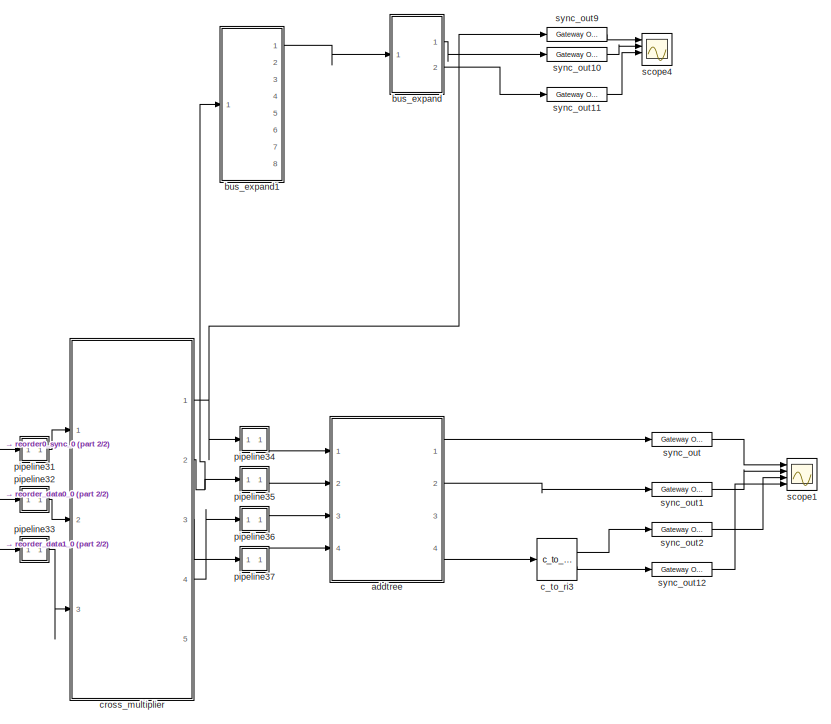
[diagram: root canvas - part 1/2, right side, full height]
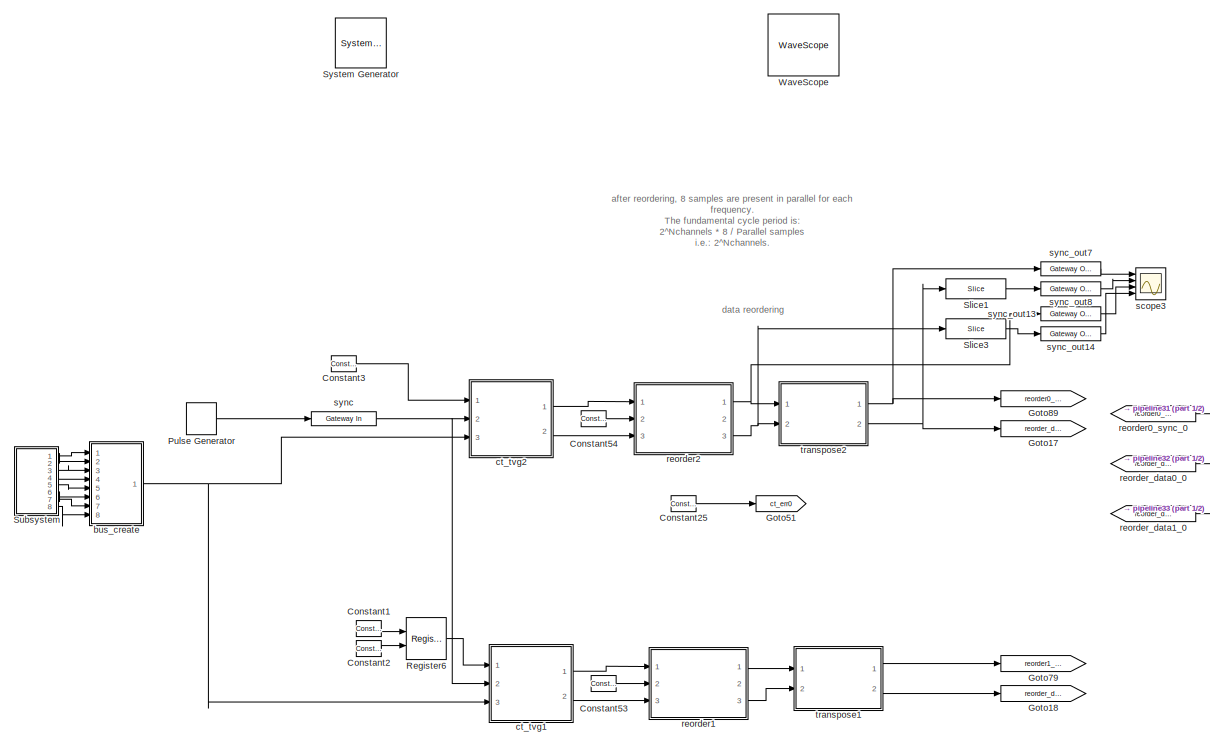
[diagram: root canvas - part 2/2, left side, full height]
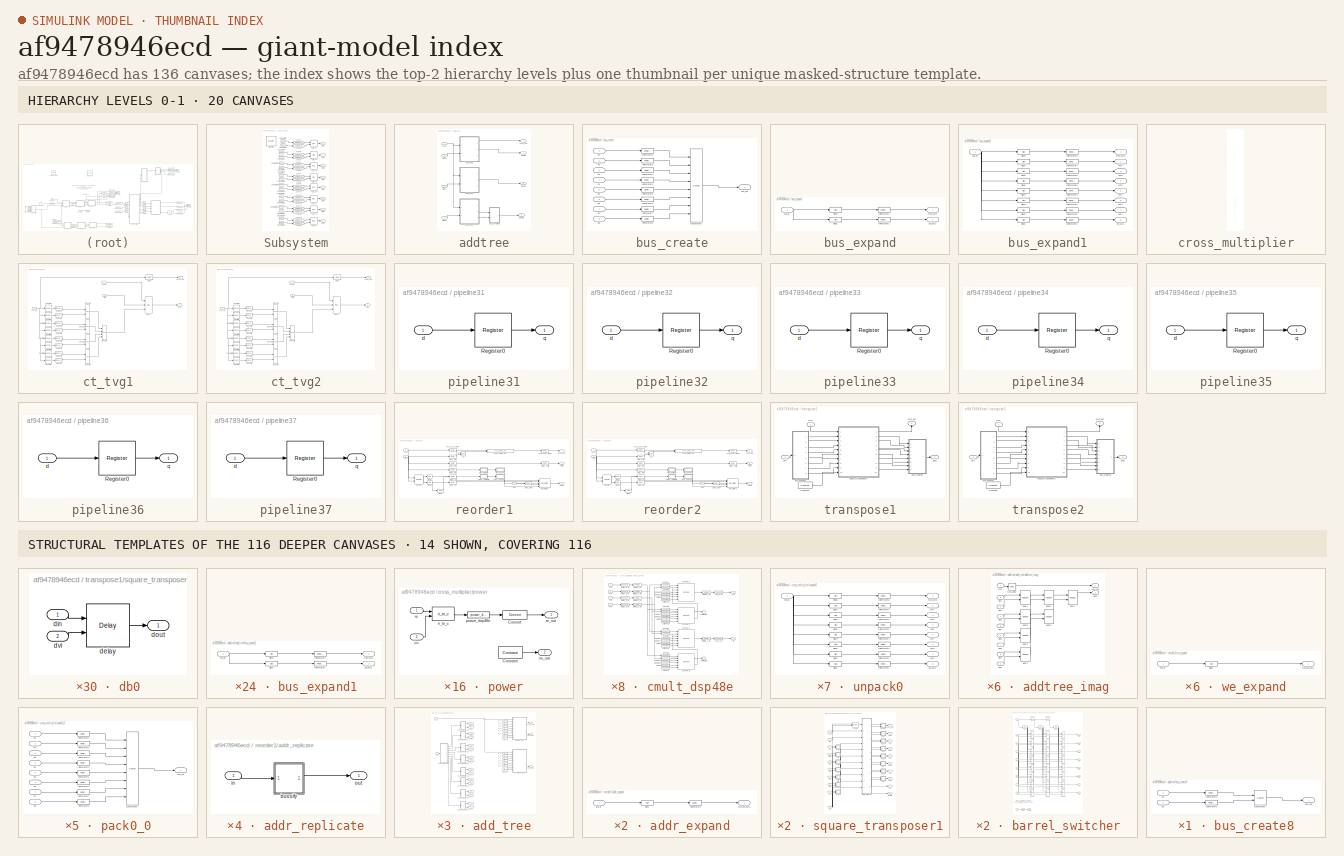
[diagram: thumbnail index - top-2 hierarchy levels (20 canvases) + 14 structural-template representatives of the remaining 116 canvases]
MODEL slx_af9478946ecd
KIND model
BLOCK [Reference]  System Generator  REF=xbsIndex_r4/ System Generator
  AttributesFormatString = System\nGenerator
  Impl_file = ISE Defaults
  Ports = []
  SourceBlock = xbsIndex_r4/ System Generator
  SourceType = Xilinx System Generator Block
  Synth_file = XST Defaults
  Tag = genX
  UserDataPersistent = on
  block_type = sysgen
  block_version = 10.1.3
  clock_wrapper = Clock Enables
  core_generation = According to Block Masks
  dbl_ovrd = According to Block Masks
  dcm_input_clock_period = 100
  deprecated_control = off
  directory = ./ami_fx_sbl_wide/sysgen
  eval_field = 0
  has_advanced_control = 0
  incr_netlist = off
  infoedit = System Generator
  package = ff1759
  part = xc6vsx475t
  proj_type = Project Navigator
  run_coregen = off
  sg_icon_stat = 51,50,0,0,token,white,0,58c5b5770fe5f7c311f53dbc6e73f0f6,right,,[ ],[ ]
  sg_mask_display = fprintf('','COMMENT: begin icon graphics');\npatch([0 51 51 0 0 ],[0 0 50 50 0 ],[1 1 1 ]);\npatch([1.6375 16.81 27.31 37.81 48.31 27.31 12.1375 1.6375 ],[36.655 36.655 47.155 36.655 47.155 47.155 47.155 36.655 ],[0.933333 0.203922 0.141176 ]);\npatch([12.1375 27.31 16.81 1.6375 12.1375 ],[26.155 26.155 36.655 36.655 26.155 ],[0.698039 0.0313725 0.219608 ]);\npatch([1.6375 16.81 27.31 12.1375 1.6375 ]...<+327ch>
  sggui_pos = 329,144,464,470
  simulink_period = 1
  speed = -1
  synthesis_tool = XST
  sysclk_period = 4
  testbench = off
  trim_vbits = Everywhere in SubSystem
  xilinxfamily = virtex6
BLOCK [Reference] Constant1  REF=xbsIndex_r4/Constant
  Ports = [0, 1]
  SourceBlock = xbsIndex_r4/Constant
  SourceType = Xilinx Constant Block Block
  arith_type = Boolean
  bin_pt = 14
  block_type = constant
  carry = CIN
  const = 0
  dbl_ovrd = off
  dsp48_infoedit = The use of this block for DSP48 instructions is deprecated.  Please use the Opmode block.
  equ = P=C
  exp_width = 8
  explicit_period = on
  frac_width = 24
  gui_display_data_type = Boolean
  has_advanced_control = 0
  inp1 = P
  inp2 = PCIN>>17
  n_bits = 16
  opr = +
  opselect = C
  period = 1
  preci_type = Single
  sg_icon_stat = 25,16,0,1,white,blue,0,bf4ddd8b,right,,[ ],[ ]
  sg_mask_display = fprintf('','COMMENT: begin icon graphics');\npatch([0 25 25 0 0 ],[0 0 16 16 0 ],[0.77 0.82 0.91 ]);\nplot([0 25 25 0 0 ],[0 0 16 16 0 ]);\npatch([7.55 10.44 12.44 14.44 16.44 12.44 9.55 7.55 ],[10.22 10.22 12.22 10.22 12.22 12.22 12.22 10.22 ],[1 1 1 ]);\npatch([9.55 12.44 10.44 7.55 9.55 ],[8.22 8.22 10.22 10.22 8.22 ],[0.931 0.946 0.973 ]);\npatch([7.55 10.44 12.44 9.55 7.55 ],[6.22 6.22 8.22 8.22 6...<+288ch>  <repeated x16 — deduplicated; at blocks: Constant1, Constant2, Constant25, Constant3, Constant53, Constant54, Constant10, Constant4, Constant5, Constant6, Constant7, Constant8, Constant9>
  sggui_pos = 20,20,349,491
BLOCK [Reference] Constant2  REF=xbsIndex_r4/Constant
  Ports = [0, 1]
  SourceBlock = xbsIndex_r4/Constant
  SourceType = Xilinx Constant Block Block
  arith_type = Boolean
  bin_pt = 14
  block_type = constant
  carry = CIN
  const = 0
  dbl_ovrd = off
  dsp48_infoedit = The use of this block for DSP48 instructions is deprecated.  Please use the Opmode block.
  equ = P=C
  exp_width = 8
  explicit_period = on
  frac_width = 24
  gui_display_data_type = Boolean
  has_advanced_control = 0
  inp1 = P
  inp2 = PCIN>>17
  n_bits = 16
  opr = +
  opselect = C
  period = 1
  preci_type = Single
  sg_icon_stat = 25,16,0,1,white,blue,0,bf4ddd8b,right,,[ ],[ ]
  sggui_pos = 20,20,349,491
BLOCK [Reference] Constant25  REF=xbsIndex_r4/Constant
  Ports = [0, 1]
  SourceBlock = xbsIndex_r4/Constant
  SourceType = Xilinx Constant Block Block
  arith_type = Boolean
  bin_pt = 14
  block_type = constant
  carry = CIN
  const = 0
  dbl_ovrd = off
  dsp48_infoedit = The use of this block for DSP48 instructions is deprecated.  Please use the Opmode block.
  equ = P=C
  exp_width = 8
  explicit_period = on
  frac_width = 24
  gui_display_data_type = Boolean
  has_advanced_control = 0
  inp1 = P
  inp2 = PCIN>>17
  n_bits = 16
  opr = +
  opselect = C
  period = 1
  preci_type = Single
  sg_icon_stat = 25,16,0,1,white,blue,0,bf4ddd8b,right,,[ ],[ ]
  sggui_pos = 20,20,349,491
BLOCK [Reference] Constant3  REF=xbsIndex_r4/Constant
  Ports = [0, 1]
  SourceBlock = xbsIndex_r4/Constant
  SourceType = Xilinx Constant Block Block
  arith_type = Boolean
  bin_pt = 14
  block_type = constant
  carry = CIN
  const = 1
  dbl_ovrd = off
  dsp48_infoedit = The use of this block for DSP48 instructions is deprecated.  Please use the Opmode block.
  equ = P=C
  exp_width = 8
  explicit_period = on
  frac_width = 24
  gui_display_data_type = Boolean
  has_advanced_control = 0
  inp1 = P
  inp2 = PCIN>>17
  n_bits = 16
  opr = +
  opselect = C
  period = 1
  preci_type = Single
  sg_icon_stat = 25,16,0,1,white,blue,0,1c72b5be,right,,[ ],[ ]
  sggui_pos = 13,24,418,491
BLOCK [Reference] Constant53  REF=xbsIndex_r4/Constant
  Ports = [0, 1]
  SourceBlock = xbsIndex_r4/Constant
  SourceType = Xilinx Constant Block Block
  arith_type = Boolean
  bin_pt = 14
  block_type = constant
  carry = CIN
  const = 1
  dbl_ovrd = off
  dsp48_infoedit = The use of this block for DSP48 instructions is deprecated.  Please use the Opmode block.
  equ = P=C
  exp_width = 8
  explicit_period = on
  frac_width = 24
  gui_display_data_type = Boolean
  has_advanced_control = 0
  inp1 = P
  inp2 = PCIN>>17
  n_bits = 16
  opr = +
  opselect = C
  period = 1
  preci_type = Single
  sg_icon_stat = 25,16,0,1,white,blue,0,1c72b5be,right,,[ ],[ ]
  sggui_pos = 13,24,418,491
BLOCK [Reference] Constant54  REF=xbsIndex_r4/Constant
  Ports = [0, 1]
  SourceBlock = xbsIndex_r4/Constant
  SourceType = Xilinx Constant Block Block
  arith_type = Boolean
  bin_pt = 14
  block_type = constant
  carry = CIN
  const = 1
  dbl_ovrd = off
  dsp48_infoedit = The use of this block for DSP48 instructions is deprecated.  Please use the Opmode block.
  equ = P=C
  exp_width = 8
  explicit_period = on
  frac_width = 24
  gui_display_data_type = Boolean
  has_advanced_control = 0
  inp1 = P
  inp2 = PCIN>>17
  n_bits = 16
  opr = +
  opselect = C
  period = 1
  preci_type = Single
  sg_icon_stat = 25,16,0,1,white,blue,0,1c72b5be,right,,[ ],[ ]
  sggui_pos = 13,24,418,491
BLOCK [Goto] Goto17
  GotoTag = reorder_data0
BLOCK [Goto] Goto18
  GotoTag = reorder_data1
BLOCK [Goto] Goto51
  GotoTag = ct_err0
BLOCK [Goto] Goto79
  GotoTag = reorder1_sync
BLOCK [Goto] Goto89
  GotoTag = reorder0_sync
BLOCK [DiscretePulseGenerator] Pulse Generator
  Period = 2^17
  Ports = [0, 1]
BLOCK [Reference] Register6  REF=xbsIndex_r4/Register
  Ports = [2, 1]
  SourceBlock = xbsIndex_r4/Register
  SourceType = Xilinx Register Block
  block_type = register
  block_version = 11.4
  dbl_ovrd = off
  en = on
  has_advanced_control = 0
  init = 0
  rst = off
  sg_icon_stat = 40,42,2,1,white,blue,0,6bd0930c,right,,[ ],[ ]
  sg_mask_display = fprintf('','COMMENT: begin icon graphics');\npatch([0 40 40 0 0 ],[0 0 42 42 0 ],[0.77 0.82 0.91 ]);\nplot([0 40 40 0 0 ],[0 0 42 42 0 ]);\npatch([8.875 16.1 21.1 26.1 31.1 21.1 13.875 8.875 ],[26.55 26.55 31.55 26.55 31.55 31.55 31.55 26.55 ],[1 1 1 ]);\npatch([13.875 21.1 16.1 8.875 13.875 ],[21.55 21.55 26.55 26.55 21.55 ],[0.931 0.946 0.973 ]);\npatch([8.875 16.1 21.1 13.875 8.875 ],[16.55 16.55 21...<+439ch>
  sggui_pos = 21,71,419,209
  xl_area = [0,0,0,0,0,0,0]
  xl_use_area = off
BLOCK [Reference] Slice1  REF=xbsIndex_r4/Slice
  Ports = [1, 1]
  SourceBlock = xbsIndex_r4/Slice
  SourceType = Xilinx Bit Slice Extractor Block
  base0 = LSB of Input
  base1 = MSB of Input
  bit0 = 0
  bit1 = -18
  block_type = slice
  block_version = 11.4
  boolean_output = off
  dbl_ovrd = off
  has_advanced_control = 0
  infoedit = Extracts a given range of bits from each input sample and presents it at the output.  The output type is ordinarily unsigned with binary point at zero, but can be Boolean when the slice is one bit wide.<br><br>Hardware notes: In hardware this block costs nothing.  <repeated x130 — deduplicated; at blocks: Slice1, Slice3, slice1, slice2, slice3, slice4, slice5, slice6, slice7, slice8, Slice2>
  mode = Upper Bit Location + Width
  nbits = 18
  sg_icon_stat = 60,20,1,1,white,blue,0,1fd851a7,right,,[ ],[ ]
  sg_mask_display = fprintf('','COMMENT: begin icon graphics');\npatch([0 60 60 0 0 ],[0 0 20 20 0 ],[0.77 0.82 0.91 ]);\nplot([0 60 60 0 0 ],[0 0 20 20 0 ]);\npatch([25.55 28.44 30.44 32.44 34.44 30.44 27.55 25.55 ],[12.22 12.22 14.22 12.22 14.22 14.22 14.22 12.22 ],[1 1 1 ]);\npatch([27.55 30.44 28.44 25.55 27.55 ],[10.22 10.22 12.22 12.22 10.22 ],[0.931 0.946 0.973 ]);\npatch([25.55 28.44 30.44 27.55 25.55 ],[8.22 8.22...<+310ch>
  sggui_pos = 13,24,617,509
BLOCK [Reference] Slice3  REF=xbsIndex_r4/Slice
  Ports = [1, 1]
  SourceBlock = xbsIndex_r4/Slice
  SourceType = Xilinx Bit Slice Extractor Block
  base0 = LSB of Input
  base1 = MSB of Input
  bit0 = 0
  bit1 = -18
  block_type = slice
  block_version = 11.4
  boolean_output = off
  dbl_ovrd = off
  has_advanced_control = 0
  mode = Upper Bit Location + Width
  nbits = 18
  sg_icon_stat = 60,20,1,1,white,blue,0,1fd851a7,right,,[ ],[ ]
  sg_mask_display = fprintf('','COMMENT: begin icon graphics');\npatch([0 60 60 0 0 ],[0 0 20 20 0 ],[0.77 0.82 0.91 ]);\nplot([0 60 60 0 0 ],[0 0 20 20 0 ]);\npatch([25.55 28.44 30.44 32.44 34.44 30.44 27.55 25.55 ],[12.22 12.22 14.22 12.22 14.22 14.22 14.22 12.22 ],[1 1 1 ]);\npatch([27.55 30.44 28.44 25.55 27.55 ],[10.22 10.22 12.22 12.22 10.22 ],[0.931 0.946 0.973 ]);\npatch([25.55 28.44 30.44 27.55 25.55 ],[8.22 8.22...<+310ch>
  sggui_pos = -1,24,631,621
BLOCK [SubSystem] Subsystem
  FunctionWithSeparateData = off
  MaskHideContents = off
  MinAlgLoopOccurrences = off
  Opaque = off
  Ports = [0, 8]
  PropExecContextOutsideSubsystem = off
  RTWSystemCode = Auto
  RequestExecContextInheritance = off
BLOCK [Reference] Subsystem/Constant1  REF=xbsIndex_r4/Constant
  Ports = [0, 1]
  SourceBlock = xbsIndex_r4/Constant
  SourceType = Xilinx Constant Block Block
  arith_type = Signed (2's comp)
  bin_pt = 0
  block_type = constant
  carry = CIN
  const = 0
  dbl_ovrd = off
  dsp48_infoedit = The use of this block for DSP48 instructions is deprecated.  Please use the Opmode block.
  equ = P=C
  exp_width = 8
  explicit_period = on
  frac_width = 24
  gui_display_data_type = Fixed-point
  has_advanced_control = 0
  inp1 = P
  inp2 = PCIN>>17
  n_bits = 18
  opr = +
  opselect = C
  period = 1
  preci_type = Single
  sg_icon_stat = 25,16,0,1,white,blue,0,bf4ddd8b,right,,[ ],[ ]
  sggui_pos = 6,24,418,491
BLOCK [Reference] Subsystem/Constant10  REF=xbsIndex_r4/Constant
  Ports = [0, 1]
  SourceBlock = xbsIndex_r4/Constant
  SourceType = Xilinx Constant Block Block
  arith_type = Signed (2's comp)
  bin_pt = 0
  block_type = constant
  carry = CIN
  const = 9
  dbl_ovrd = off
  dsp48_infoedit = The use of this block for DSP48 instructions is deprecated.  Please use the Opmode block.
  equ = P=C
  exp_width = 8
  explicit_period = on
  frac_width = 24
  gui_display_data_type = Fixed-point
  has_advanced_control = 0
  inp1 = P
  inp2 = PCIN>>17
  n_bits = 18
  opr = +
  opselect = C
  period = 1
  preci_type = Single
  sg_icon_stat = 25,16,0,1,white,blue,0,350ae870,right,,[ ],[ ]
  sggui_pos = -1,24,418,491
BLOCK [Reference] Subsystem/Constant11  REF=xbsIndex_r4/Constant
  Ports = [0, 1]
  SourceBlock = xbsIndex_r4/Constant
  SourceType = Xilinx Constant Block Block
  arith_type = Signed (2's comp)
  bin_pt = 0
  block_type = constant
  carry = CIN
  const = 10
  dbl_ovrd = off
  dsp48_infoedit = The use of this block for DSP48 instructions is deprecated.  Please use the Opmode block.
  equ = P=C
  exp_width = 8
  explicit_period = on
  frac_width = 24
  gui_display_data_type = Fixed-point
  has_advanced_control = 0
  inp1 = P
  inp2 = PCIN>>17
  n_bits = 18
  opr = +
  opselect = C
  period = 1
  preci_type = Single
  sg_icon_stat = 25,16,0,1,white,blue,0,46ffeebb,right,,[ ],[ ]
  sg_mask_display = fprintf('','COMMENT: begin icon graphics');\npatch([0 25 25 0 0 ],[0 0 16 16 0 ],[0.77 0.82 0.91 ]);\nplot([0 25 25 0 0 ],[0 0 16 16 0 ]);\npatch([7.55 10.44 12.44 14.44 16.44 12.44 9.55 7.55 ],[10.22 10.22 12.22 10.22 12.22 12.22 12.22 10.22 ],[1 1 1 ]);\npatch([9.55 12.44 10.44 7.55 9.55 ],[8.22 8.22 10.22 10.22 8.22 ],[0.931 0.946 0.973 ]);\npatch([7.55 10.44 12.44 9.55 7.55 ],[6.22 6.22 8.22 8.22 6...<+289ch>  <repeated x6 — deduplicated; at blocks: Constant11, Constant12, Constant13, Constant14, Constant15, Constant16>
  sggui_pos = -1,24,418,491
BLOCK [Reference] Subsystem/Constant12  REF=xbsIndex_r4/Constant
  Ports = [0, 1]
  SourceBlock = xbsIndex_r4/Constant
  SourceType = Xilinx Constant Block Block
  arith_type = Signed (2's comp)
  bin_pt = 0
  block_type = constant
  carry = CIN
  const = 11
  dbl_ovrd = off
  dsp48_infoedit = The use of this block for DSP48 instructions is deprecated.  Please use the Opmode block.
  equ = P=C
  exp_width = 8
  explicit_period = on
  frac_width = 24
  gui_display_data_type = Fixed-point
  has_advanced_control = 0
  inp1 = P
  inp2 = PCIN>>17
  n_bits = 18
  opr = +
  opselect = C
  period = 1
  preci_type = Single
  sg_icon_stat = 25,16,0,1,white,blue,0,997df0ab,right,,[ ],[ ]
  sggui_pos = -1,24,418,491
BLOCK [Reference] Subsystem/Constant13  REF=xbsIndex_r4/Constant
  Ports = [0, 1]
  SourceBlock = xbsIndex_r4/Constant
  SourceType = Xilinx Constant Block Block
  arith_type = Signed (2's comp)
  bin_pt = 0
  block_type = constant
  carry = CIN
  const = 12
  dbl_ovrd = off
  dsp48_infoedit = The use of this block for DSP48 instructions is deprecated.  Please use the Opmode block.
  equ = P=C
  exp_width = 8
  explicit_period = on
  frac_width = 24
  gui_display_data_type = Fixed-point
  has_advanced_control = 0
  inp1 = P
  inp2 = PCIN>>17
  n_bits = 18
  opr = +
  opselect = C
  period = 1
  preci_type = Single
  sg_icon_stat = 25,16,0,1,white,blue,0,9a294e94,right,,[ ],[ ]
  sggui_pos = -1,24,418,491
BLOCK [Reference] Subsystem/Constant14  REF=xbsIndex_r4/Constant
  Ports = [0, 1]
  SourceBlock = xbsIndex_r4/Constant
  SourceType = Xilinx Constant Block Block
  arith_type = Signed (2's comp)
  bin_pt = 0
  block_type = constant
  carry = CIN
  const = 13
  dbl_ovrd = off
  dsp48_infoedit = The use of this block for DSP48 instructions is deprecated.  Please use the Opmode block.
  equ = P=C
  exp_width = 8
  explicit_period = on
  frac_width = 24
  gui_display_data_type = Fixed-point
  has_advanced_control = 0
  inp1 = P
  inp2 = PCIN>>17
  n_bits = 18
  opr = +
  opselect = C
  period = 1
  preci_type = Single
  sg_icon_stat = 25,16,0,1,white,blue,0,e89bb8cb,right,,[ ],[ ]
  sggui_pos = -1,24,418,491
BLOCK [Reference] Subsystem/Constant15  REF=xbsIndex_r4/Constant
  Ports = [0, 1]
  SourceBlock = xbsIndex_r4/Constant
  SourceType = Xilinx Constant Block Block
  arith_type = Signed (2's comp)
  bin_pt = 0
  block_type = constant
  carry = CIN
  const = 14
  dbl_ovrd = off
  dsp48_infoedit = The use of this block for DSP48 instructions is deprecated.  Please use the Opmode block.
  equ = P=C
  exp_width = 8
  explicit_period = on
  frac_width = 24
  gui_display_data_type = Fixed-point
  has_advanced_control = 0
  inp1 = P
  inp2 = PCIN>>17
  n_bits = 18
  opr = +
  opselect = C
  period = 1
  preci_type = Single
  sg_icon_stat = 25,16,0,1,white,blue,0,9e70b1fa,right,,[ ],[ ]
  sggui_pos = 6,24,418,491
BLOCK [Reference] Subsystem/Constant16  REF=xbsIndex_r4/Constant
  Ports = [0, 1]
  SourceBlock = xbsIndex_r4/Constant
  SourceType = Xilinx Constant Block Block
  arith_type = Signed (2's comp)
  bin_pt = 0
  block_type = constant
  carry = CIN
  const = 15
  dbl_ovrd = off
  dsp48_infoedit = The use of this block for DSP48 instructions is deprecated.  Please use the Opmode block.
  equ = P=C
  exp_width = 8
  explicit_period = on
  frac_width = 24
  gui_display_data_type = Fixed-point
  has_advanced_control = 0
  inp1 = P
  inp2 = PCIN>>17
  n_bits = 18
  opr = +
  opselect = C
  period = 1
  preci_type = Single
  sg_icon_stat = 25,16,0,1,white,blue,0,1164c07c,right,,[ ],[ ]
  sggui_pos = 36,87,418,491
BLOCK [Reference] Subsystem/Constant2  REF=xbsIndex_r4/Constant
  Ports = [0, 1]
  SourceBlock = xbsIndex_r4/Constant
  SourceType = Xilinx Constant Block Block
  arith_type = Signed (2's comp)
  bin_pt = 0
  block_type = constant
  carry = CIN
  const = 1
  dbl_ovrd = off
  dsp48_infoedit = The use of this block for DSP48 instructions is deprecated.  Please use the Opmode block.
  equ = P=C
  exp_width = 8
  explicit_period = on
  frac_width = 24
  gui_display_data_type = Fixed-point
  has_advanced_control = 0
  inp1 = P
  inp2 = PCIN>>17
  n_bits = 18
  opr = +
  opselect = C
  period = 1
  preci_type = Single
  sg_icon_stat = 25,16,0,1,white,blue,0,1c72b5be,right,,[ ],[ ]
  sggui_pos = 13,24,418,491
BLOCK [Reference] Subsystem/Constant3  REF=xbsIndex_r4/Constant
  Ports = [0, 1]
  SourceBlock = xbsIndex_r4/Constant
  SourceType = Xilinx Constant Block Block
  arith_type = Signed (2's comp)
  bin_pt = 0
  block_type = constant
  carry = CIN
  const = 2
  dbl_ovrd = off
  dsp48_infoedit = The use of this block for DSP48 instructions is deprecated.  Please use the Opmode block.
  equ = P=C
  exp_width = 8
  explicit_period = on
  frac_width = 24
  gui_display_data_type = Fixed-point
  has_advanced_control = 0
  inp1 = P
  inp2 = PCIN>>17
  n_bits = 18
  opr = +
  opselect = C
  period = 1
  preci_type = Single
  sg_icon_stat = 25,16,0,1,white,blue,0,fca86624,right,,[ ],[ ]
  sggui_pos = 6,24,418,491
BLOCK [Reference] Subsystem/Constant4  REF=xbsIndex_r4/Constant
  Ports = [0, 1]
  SourceBlock = xbsIndex_r4/Constant
  SourceType = Xilinx Constant Block Block
  arith_type = Signed (2's comp)
  bin_pt = 0
  block_type = constant
  carry = CIN
  const = 3
  dbl_ovrd = off
  dsp48_infoedit = The use of this block for DSP48 instructions is deprecated.  Please use the Opmode block.
  equ = P=C
  exp_width = 8
  explicit_period = on
  frac_width = 24
  gui_display_data_type = Fixed-point
  has_advanced_control = 0
  inp1 = P
  inp2 = PCIN>>17
  n_bits = 18
  opr = +
  opselect = C
  period = 1
  preci_type = Single
  sg_icon_stat = 25,16,0,1,white,blue,0,279a71c8,right,,[ ],[ ]
  sggui_pos = 6,24,418,491
BLOCK [Reference] Subsystem/Constant5  REF=xbsIndex_r4/Constant
  Ports = [0, 1]
  SourceBlock = xbsIndex_r4/Constant
  SourceType = Xilinx Constant Block Block
  arith_type = Signed (2's comp)
  bin_pt = 0
  block_type = constant
  carry = CIN
  const = 4
  dbl_ovrd = off
  dsp48_infoedit = The use of this block for DSP48 instructions is deprecated.  Please use the Opmode block.
  equ = P=C
  exp_width = 8
  explicit_period = on
  frac_width = 24
  gui_display_data_type = Fixed-point
  has_advanced_control = 0
  inp1 = P
  inp2 = PCIN>>17
  n_bits = 18
  opr = +
  opselect = C
  period = 1
  preci_type = Single
  sg_icon_stat = 25,16,0,1,white,blue,0,85f36853,right,,[ ],[ ]
  sggui_pos = 6,24,418,491
BLOCK [Reference] Subsystem/Constant6  REF=xbsIndex_r4/Constant
  Ports = [0, 1]
  SourceBlock = xbsIndex_r4/Constant
  SourceType = Xilinx Constant Block Block
  arith_type = Signed (2's comp)
  bin_pt = 0
  block_type = constant
  carry = CIN
  const = 5
  dbl_ovrd = off
  dsp48_infoedit = The use of this block for DSP48 instructions is deprecated.  Please use the Opmode block.
  equ = P=C
  exp_width = 8
  explicit_period = on
  frac_width = 24
  gui_display_data_type = Fixed-point
  has_advanced_control = 0
  inp1 = P
  inp2 = PCIN>>17
  n_bits = 18
  opr = +
  opselect = C
  period = 1
  preci_type = Single
  sg_icon_stat = 25,16,0,1,white,blue,0,98872051,right,,[ ],[ ]
  sggui_pos = 6,24,418,491
BLOCK [Reference] Subsystem/Constant7  REF=xbsIndex_r4/Constant
  Ports = [0, 1]
  SourceBlock = xbsIndex_r4/Constant
  SourceType = Xilinx Constant Block Block
  arith_type = Signed (2's comp)
  bin_pt = 0
  block_type = constant
  carry = CIN
  const = 6
  dbl_ovrd = off
  dsp48_infoedit = The use of this block for DSP48 instructions is deprecated.  Please use the Opmode block.
  equ = P=C
  exp_width = 8
  explicit_period = on
  frac_width = 24
  gui_display_data_type = Fixed-point
  has_advanced_control = 0
  inp1 = P
  inp2 = PCIN>>17
  n_bits = 18
  opr = +
  opselect = C
  period = 1
  preci_type = Single
  sg_icon_stat = 25,16,0,1,white,blue,0,f0403ad7,right,,[ ],[ ]
  sggui_pos = 6,24,418,491
BLOCK [Reference] Subsystem/Constant8  REF=xbsIndex_r4/Constant
  Ports = [0, 1]
  SourceBlock = xbsIndex_r4/Constant
  SourceType = Xilinx Constant Block Block
  arith_type = Signed (2's comp)
  bin_pt = 0
  block_type = constant
  carry = CIN
  const = 7
  dbl_ovrd = off
  dsp48_infoedit = The use of this block for DSP48 instructions is deprecated.  Please use the Opmode block.
  equ = P=C
  exp_width = 8
  explicit_period = on
  frac_width = 24
  gui_display_data_type = Fixed-point
  has_advanced_control = 0
  inp1 = P
  inp2 = PCIN>>17
  n_bits = 18
  opr = +
  opselect = C
  period = 1
  preci_type = Single
  sg_icon_stat = 25,16,0,1,white,blue,0,2a6960a5,right,,[ ],[ ]
  sggui_pos = 6,24,418,491
BLOCK [Reference] Subsystem/Constant9  REF=xbsIndex_r4/Constant
  Ports = [0, 1]
  SourceBlock = xbsIndex_r4/Constant
  SourceType = Xilinx Constant Block Block
  arith_type = Signed (2's comp)
  bin_pt = 0
  block_type = constant
  carry = CIN
  const = 8
  dbl_ovrd = off
  dsp48_infoedit = The use of this block for DSP48 instructions is deprecated.  Please use the Opmode block.
  equ = P=C
  exp_width = 8
  explicit_period = on
  frac_width = 24
  gui_display_data_type = Fixed-point
  has_advanced_control = 0
  inp1 = P
  inp2 = PCIN>>17
  n_bits = 18
  opr = +
  opselect = C
  period = 1
  preci_type = Single
  sg_icon_stat = 25,16,0,1,white,blue,0,7a8c02d8,right,,[ ],[ ]
  sggui_pos = 6,24,418,491
BLOCK [Reference] Subsystem/Counter  REF=xbsIndex_r4/Counter
  Ports = [0, 1]
  SourceBlock = xbsIndex_r4/Counter
  SourceType = Xilinx Counter Block
  arith_type = Signed  (2's comp)
  bin_pt = 0
  block_type = counter
  cnt_by_val = 1
  cnt_to = Inf
  cnt_type = Free Running
  dbl_ovrd = off
  en = off
  explicit_period = on
  has_advanced_control = 0
  implementation = Fabric
  infoedit = Hardware notes: Free running counters are the least expensive in hardware.  A count limited counter is implemented by combining a counter with a comparator.
  load_pin = off
  n_bits = 8
  operation = Up
  period = 1
  rst = off
  sg_icon_stat = 60,60,0,1,white,blue,0,7ac47ef5,right,,[ ],[ ]
  sg_mask_display = fprintf('','COMMENT: begin icon graphics');\npatch([0 60 60 0 0 ],[0 0 60 60 0 ],[0.77 0.82 0.91 ]);\nplot([0 60 60 0 0 ],[0 0 60 60 0 ]);\npatch([12.2 23.76 31.76 39.76 47.76 31.76 20.2 12.2 ],[38.88 38.88 46.88 38.88 46.88 46.88 46.88 38.88 ],[1 1 1 ]);\npatch([20.2 31.76 23.76 12.2 20.2 ],[30.88 30.88 38.88 38.88 30.88 ],[0.931 0.946 0.973 ]);\npatch([12.2 23.76 31.76 20.2 12.2 ],[22.88 22.88 30.88 ...<+321ch>  <repeated x17 — deduplicated; at blocks: Counter, Counter1, Counter2, Counter3, Counter4, Counter5, Counter6, Counter7, Counter8>
  sggui_pos = 6,24,464,773
  start_count = 0
  use_behavioral_HDL = off
  xl_area = [0,0,0,0,0,0,0]
  xl_use_area = off
BLOCK [Outport] Subsystem/Out1
  IconDisplay = Port number
BLOCK [Outport] Subsystem/Out2
  IconDisplay = Port number
  Port = 2
BLOCK [Outport] Subsystem/Out3
  IconDisplay = Port number
  Port = 3
BLOCK [Outport] Subsystem/Out4
  IconDisplay = Port number
  Port = 4
BLOCK [Outport] Subsystem/Out5
  IconDisplay = Port number
  Port = 5
BLOCK [Outport] Subsystem/Out6
  IconDisplay = Port number
  Port = 6
BLOCK [Outport] Subsystem/Out7
  IconDisplay = Port number
  Port = 7
BLOCK [Outport] Subsystem/Out8
  IconDisplay = Port number
  Port = 8
BLOCK [Reference] Subsystem/ri_to_c1  REF=casper_library_misc/ri_to_c  (lib defined in mdl_357510c33b49, mdl_57b5f564ae26, +4 more)
  Ports = [2, 1]
  SourceBlock = casper_library_misc/ri_to_c
  SourceType = ri_to_c
  UserDataPersistent = on
BLOCK [Reference] Subsystem/ri_to_c2  REF=casper_library_misc/ri_to_c  (lib defined in mdl_357510c33b49, mdl_57b5f564ae26, +4 more)
  Ports = [2, 1]
  SourceBlock = casper_library_misc/ri_to_c
  SourceType = ri_to_c
  UserDataPersistent = on
BLOCK [Reference] Subsystem/ri_to_c3  REF=casper_library_misc/ri_to_c  (lib defined in mdl_357510c33b49, mdl_57b5f564ae26, +4 more)
  Ports = [2, 1]
  SourceBlock = casper_library_misc/ri_to_c
  SourceType = ri_to_c
  UserDataPersistent = on
BLOCK [Reference] Subsystem/ri_to_c4  REF=casper_library_misc/ri_to_c  (lib defined in mdl_357510c33b49, mdl_57b5f564ae26, +4 more)
  Ports = [2, 1]
  SourceBlock = casper_library_misc/ri_to_c
  SourceType = ri_to_c
  UserDataPersistent = on
BLOCK [Reference] Subsystem/ri_to_c5  REF=casper_library_misc/ri_to_c  (lib defined in mdl_357510c33b49, mdl_57b5f564ae26, +4 more)
  Ports = [2, 1]
  SourceBlock = casper_library_misc/ri_to_c
  SourceType = ri_to_c
  UserDataPersistent = on
BLOCK [Reference] Subsystem/ri_to_c6  REF=casper_library_misc/ri_to_c  (lib defined in mdl_357510c33b49, mdl_57b5f564ae26, +4 more)
  Ports = [2, 1]
  SourceBlock = casper_library_misc/ri_to_c
  SourceType = ri_to_c
  UserDataPersistent = on
BLOCK [Reference] Subsystem/ri_to_c7  REF=casper_library_misc/ri_to_c  (lib defined in mdl_357510c33b49, mdl_57b5f564ae26, +4 more)
  Ports = [2, 1]
  SourceBlock = casper_library_misc/ri_to_c
  SourceType = ri_to_c
  UserDataPersistent = on
BLOCK [Reference] Subsystem/ri_to_c8  REF=casper_library_misc/ri_to_c  (lib defined in mdl_357510c33b49, mdl_57b5f564ae26, +4 more)
  Ports = [2, 1]
  SourceBlock = casper_library_misc/ri_to_c
  SourceType = ri_to_c
  UserDataPersistent = on
BLOCK [Reference] Subsystem/sync1  REF=xbsIndex_r4/Gateway In
  ADCChannel = '1'
  LOCs = {}
  Ports = [1, 1]
  SourceBlock = xbsIndex_r4/Gateway In
  SourceType = Xilinx Gateway In Block
  UseAsADC = off
  arith_type = Unsigned
  bin_pt = 0
  block_type = gatewayin
  block_version = 11.4
  dbl_ovrd = off
  exp_width = 8
  frac_width = 24
  gui_display_data_type = Fixed-point
  has_advanced_control = 0
  hdl_port = on
  infoedit = Gateway in block.  Converts inputs of type Simulink integer, single, double and fixed-point to  Xilinx fixed-point or floating-point data type.<br><br>Hardware notes:  In hardware these blocks become top level input ports.  <repeated x16 — deduplicated; at blocks: sync1, sync10, sync11, sync12, sync13, sync14, sync15, sync16, sync2, sync3, sync4, sync5, sync6, sync7, sync8, sync9>
  inherit_from_input = off
  locs_specified = off
  n_bits = 18
  overflow = Saturate
  period = 1
  preci_type = Single
  quantization = Round  (unbiased: +/- Inf)
  sg_icon_stat = 65,14,1,1,white,yellow,1,00d3666e,right,,[ ],[ ]
  sg_mask_display = fprintf('','COMMENT: begin icon graphics');\npatch([0 65 65 0 0 ],[0 0 14 14 0 ],[0.95 0.93 0.65 ]);\nplot([0 65 65 0 0 ],[0 0 14 14 0 ]);\npatch([27.55 30.44 32.44 34.44 36.44 32.44 29.55 27.55 ],[9.22 9.22 11.22 9.22 11.22 11.22 11.22 9.22 ],[1 1 1 ]);\npatch([29.55 32.44 30.44 27.55 29.55 ],[7.22 7.22 9.22 9.22 7.22 ],[0.985 0.979 0.895 ]);\npatch([27.55 30.44 32.44 29.55 27.55 ],[5.22 5.22 7.22 7.2...<+372ch>  <repeated x17 — deduplicated; at blocks: sync1, sync10, sync11, sync12, sync13, sync14, sync15, sync16, sync2, sync3, sync4, sync5, sync6, sync7, sync8, sync9, +1 more>
  sggui_pos = 13,46,464,695
  timing_constraint = None
  xl_area = [0,0,0,0,0,0,0]
  xl_use_area = off
BLOCK [Reference] Subsystem/sync10  REF=xbsIndex_r4/Gateway In
  ADCChannel = '1'
  LOCs = {}
  Ports = [1, 1]
  SourceBlock = xbsIndex_r4/Gateway In
  SourceType = Xilinx Gateway In Block
  UseAsADC = off
  arith_type = Unsigned
  bin_pt = 0
  block_type = gatewayin
  block_version = 11.4
  dbl_ovrd = off
  exp_width = 8
  frac_width = 24
  gui_display_data_type = Fixed-point
  has_advanced_control = 0
  hdl_port = on
  inherit_from_input = off
  locs_specified = off
  n_bits = 18
  overflow = Saturate
  period = 1
  preci_type = Single
  quantization = Round  (unbiased: +/- Inf)
  sg_icon_stat = 65,14,1,1,white,yellow,1,00d3666e,right,,[ ],[ ]
  sggui_pos = 13,46,464,695
  timing_constraint = None
  xl_area = [0,0,0,0,0,0,0]
  xl_use_area = off
BLOCK [Reference] Subsystem/sync11  REF=xbsIndex_r4/Gateway In
  ADCChannel = '1'
  LOCs = {}
  Ports = [1, 1]
  SourceBlock = xbsIndex_r4/Gateway In
  SourceType = Xilinx Gateway In Block
  UseAsADC = off
  arith_type = Unsigned
  bin_pt = 0
  block_type = gatewayin
  block_version = 11.4
  dbl_ovrd = off
  exp_width = 8
  frac_width = 24
  gui_display_data_type = Fixed-point
  has_advanced_control = 0
  hdl_port = on
  inherit_from_input = off
  locs_specified = off
  n_bits = 18
  overflow = Saturate
  period = 1
  preci_type = Single
  quantization = Round  (unbiased: +/- Inf)
  sg_icon_stat = 65,14,1,1,white,yellow,1,00d3666e,right,,[ ],[ ]
  sggui_pos = 13,46,464,695
  timing_constraint = None
  xl_area = [0,0,0,0,0,0,0]
  xl_use_area = off
BLOCK [Reference] Subsystem/sync12  REF=xbsIndex_r4/Gateway In
  ADCChannel = '1'
  LOCs = {}
  Ports = [1, 1]
  SourceBlock = xbsIndex_r4/Gateway In
  SourceType = Xilinx Gateway In Block
  UseAsADC = off
  arith_type = Unsigned
  bin_pt = 0
  block_type = gatewayin
  block_version = 11.4
  dbl_ovrd = off
  exp_width = 8
  frac_width = 24
  gui_display_data_type = Fixed-point
  has_advanced_control = 0
  hdl_port = on
  inherit_from_input = off
  locs_specified = off
  n_bits = 18
  overflow = Saturate
  period = 1
  preci_type = Single
  quantization = Round  (unbiased: +/- Inf)
  sg_icon_stat = 65,14,1,1,white,yellow,1,00d3666e,right,,[ ],[ ]
  sggui_pos = 13,46,464,695
  timing_constraint = None
  xl_area = [0,0,0,0,0,0,0]
  xl_use_area = off
BLOCK [Reference] Subsystem/sync13  REF=xbsIndex_r4/Gateway In
  ADCChannel = '1'
  LOCs = {}
  Ports = [1, 1]
  SourceBlock = xbsIndex_r4/Gateway In
  SourceType = Xilinx Gateway In Block
  UseAsADC = off
  arith_type = Unsigned
  bin_pt = 0
  block_type = gatewayin
  block_version = 11.4
  dbl_ovrd = off
  exp_width = 8
  frac_width = 24
  gui_display_data_type = Fixed-point
  has_advanced_control = 0
  hdl_port = on
  inherit_from_input = off
  locs_specified = off
  n_bits = 18
  overflow = Saturate
  period = 1
  preci_type = Single
  quantization = Round  (unbiased: +/- Inf)
  sg_icon_stat = 65,14,1,1,white,yellow,1,00d3666e,right,,[ ],[ ]
  sggui_pos = 13,46,464,695
  timing_constraint = None
  xl_area = [0,0,0,0,0,0,0]
  xl_use_area = off
BLOCK [Reference] Subsystem/sync14  REF=xbsIndex_r4/Gateway In
  ADCChannel = '1'
  LOCs = {}
  Ports = [1, 1]
  SourceBlock = xbsIndex_r4/Gateway In
  SourceType = Xilinx Gateway In Block
  UseAsADC = off
  arith_type = Unsigned
  bin_pt = 0
  block_type = gatewayin
  block_version = 11.4
  dbl_ovrd = off
  exp_width = 8
  frac_width = 24
  gui_display_data_type = Fixed-point
  has_advanced_control = 0
  hdl_port = on
  inherit_from_input = off
  locs_specified = off
  n_bits = 18
  overflow = Saturate
  period = 1
  preci_type = Single
  quantization = Round  (unbiased: +/- Inf)
  sg_icon_stat = 65,14,1,1,white,yellow,1,00d3666e,right,,[ ],[ ]
  sggui_pos = 13,46,464,695
  timing_constraint = None
  xl_area = [0,0,0,0,0,0,0]
  xl_use_area = off
BLOCK [Reference] Subsystem/sync15  REF=xbsIndex_r4/Gateway In
  ADCChannel = '1'
  LOCs = {}
  Ports = [1, 1]
  SourceBlock = xbsIndex_r4/Gateway In
  SourceType = Xilinx Gateway In Block
  UseAsADC = off
  arith_type = Unsigned
  bin_pt = 0
  block_type = gatewayin
  block_version = 11.4
  dbl_ovrd = off
  exp_width = 8
  frac_width = 24
  gui_display_data_type = Fixed-point
  has_advanced_control = 0
  hdl_port = on
  inherit_from_input = off
  locs_specified = off
  n_bits = 18
  overflow = Saturate
  period = 1
  preci_type = Single
  quantization = Round  (unbiased: +/- Inf)
  sg_icon_stat = 65,14,1,1,white,yellow,1,00d3666e,right,,[ ],[ ]
  sggui_pos = 13,46,464,695
  timing_constraint = None
  xl_area = [0,0,0,0,0,0,0]
  xl_use_area = off
BLOCK [Reference] Subsystem/sync16  REF=xbsIndex_r4/Gateway In
  ADCChannel = '1'
  LOCs = {}
  Ports = [1, 1]
  SourceBlock = xbsIndex_r4/Gateway In
  SourceType = Xilinx Gateway In Block
  UseAsADC = off
  arith_type = Unsigned
  bin_pt = 0
  block_type = gatewayin
  block_version = 11.4
  dbl_ovrd = off
  exp_width = 8
  frac_width = 24
  gui_display_data_type = Fixed-point
  has_advanced_control = 0
  hdl_port = on
  inherit_from_input = off
  locs_specified = off
  n_bits = 18
  overflow = Saturate
  period = 1
  preci_type = Single
  quantization = Round  (unbiased: +/- Inf)
  sg_icon_stat = 65,14,1,1,white,yellow,1,00d3666e,right,,[ ],[ ]
  sggui_pos = 13,46,464,695
  timing_constraint = None
  xl_area = [0,0,0,0,0,0,0]
  xl_use_area = off
BLOCK [Reference] Subsystem/sync2  REF=xbsIndex_r4/Gateway In
  ADCChannel = '1'
  LOCs = {}
  Ports = [1, 1]
  SourceBlock = xbsIndex_r4/Gateway In
  SourceType = Xilinx Gateway In Block
  UseAsADC = off
  arith_type = Unsigned
  bin_pt = 0
  block_type = gatewayin
  block_version = 11.4
  dbl_ovrd = off
  exp_width = 8
  frac_width = 24
  gui_display_data_type = Fixed-point
  has_advanced_control = 0
  hdl_port = on
  inherit_from_input = off
  locs_specified = off
  n_bits = 18
  overflow = Saturate
  period = 1
  preci_type = Single
  quantization = Round  (unbiased: +/- Inf)
  sg_icon_stat = 65,14,1,1,white,yellow,1,00d3666e,right,,[ ],[ ]
  sggui_pos = 13,46,464,695
  timing_constraint = None
  xl_area = [0,0,0,0,0,0,0]
  xl_use_area = off
BLOCK [Reference] Subsystem/sync3  REF=xbsIndex_r4/Gateway In
  ADCChannel = '1'
  LOCs = {}
  Ports = [1, 1]
  SourceBlock = xbsIndex_r4/Gateway In
  SourceType = Xilinx Gateway In Block
  UseAsADC = off
  arith_type = Unsigned
  bin_pt = 0
  block_type = gatewayin
  block_version = 11.4
  dbl_ovrd = off
  exp_width = 8
  frac_width = 24
  gui_display_data_type = Fixed-point
  has_advanced_control = 0
  hdl_port = on
  inherit_from_input = off
  locs_specified = off
  n_bits = 18
  overflow = Saturate
  period = 1
  preci_type = Single
  quantization = Round  (unbiased: +/- Inf)
  sg_icon_stat = 65,14,1,1,white,yellow,1,00d3666e,right,,[ ],[ ]
  sggui_pos = 13,46,464,695
  timing_constraint = None
  xl_area = [0,0,0,0,0,0,0]
  xl_use_area = off
BLOCK [Reference] Subsystem/sync4  REF=xbsIndex_r4/Gateway In
  ADCChannel = '1'
  LOCs = {}
  Ports = [1, 1]
  SourceBlock = xbsIndex_r4/Gateway In
  SourceType = Xilinx Gateway In Block
  UseAsADC = off
  arith_type = Unsigned
  bin_pt = 0
  block_type = gatewayin
  block_version = 11.4
  dbl_ovrd = off
  exp_width = 8
  frac_width = 24
  gui_display_data_type = Fixed-point
  has_advanced_control = 0
  hdl_port = on
  inherit_from_input = off
  locs_specified = off
  n_bits = 18
  overflow = Saturate
  period = 1
  preci_type = Single
  quantization = Round  (unbiased: +/- Inf)
  sg_icon_stat = 65,14,1,1,white,yellow,1,00d3666e,right,,[ ],[ ]
  sggui_pos = 13,46,464,695
  timing_constraint = None
  xl_area = [0,0,0,0,0,0,0]
  xl_use_area = off
BLOCK [Reference] Subsystem/sync5  REF=xbsIndex_r4/Gateway In
  ADCChannel = '1'
  LOCs = {}
  Ports = [1, 1]
  SourceBlock = xbsIndex_r4/Gateway In
  SourceType = Xilinx Gateway In Block
  UseAsADC = off
  arith_type = Unsigned
  bin_pt = 0
  block_type = gatewayin
  block_version = 11.4
  dbl_ovrd = off
  exp_width = 8
  frac_width = 24
  gui_display_data_type = Fixed-point
  has_advanced_control = 0
  hdl_port = on
  inherit_from_input = off
  locs_specified = off
  n_bits = 18
  overflow = Saturate
  period = 1
  preci_type = Single
  quantization = Round  (unbiased: +/- Inf)
  sg_icon_stat = 65,14,1,1,white,yellow,1,00d3666e,right,,[ ],[ ]
  sggui_pos = 13,46,464,695
  timing_constraint = None
  xl_area = [0,0,0,0,0,0,0]
  xl_use_area = off
BLOCK [Reference] Subsystem/sync6  REF=xbsIndex_r4/Gateway In
  ADCChannel = '1'
  LOCs = {}
  Ports = [1, 1]
  SourceBlock = xbsIndex_r4/Gateway In
  SourceType = Xilinx Gateway In Block
  UseAsADC = off
  arith_type = Unsigned
  bin_pt = 0
  block_type = gatewayin
  block_version = 11.4
  dbl_ovrd = off
  exp_width = 8
  frac_width = 24
  gui_display_data_type = Fixed-point
  has_advanced_control = 0
  hdl_port = on
  inherit_from_input = off
  locs_specified = off
  n_bits = 18
  overflow = Saturate
  period = 1
  preci_type = Single
  quantization = Round  (unbiased: +/- Inf)
  sg_icon_stat = 65,14,1,1,white,yellow,1,00d3666e,right,,[ ],[ ]
  sggui_pos = 13,46,464,695
  timing_constraint = None
  xl_area = [0,0,0,0,0,0,0]
  xl_use_area = off
BLOCK [Reference] Subsystem/sync7  REF=xbsIndex_r4/Gateway In
  ADCChannel = '1'
  LOCs = {}
  Ports = [1, 1]
  SourceBlock = xbsIndex_r4/Gateway In
  SourceType = Xilinx Gateway In Block
  UseAsADC = off
  arith_type = Unsigned
  bin_pt = 0
  block_type = gatewayin
  block_version = 11.4
  dbl_ovrd = off
  exp_width = 8
  frac_width = 24
  gui_display_data_type = Fixed-point
  has_advanced_control = 0
  hdl_port = on
  inherit_from_input = off
  locs_specified = off
  n_bits = 18
  overflow = Saturate
  period = 1
  preci_type = Single
  quantization = Round  (unbiased: +/- Inf)
  sg_icon_stat = 65,14,1,1,white,yellow,1,00d3666e,right,,[ ],[ ]
  sggui_pos = 13,46,464,695
  timing_constraint = None
  xl_area = [0,0,0,0,0,0,0]
  xl_use_area = off
BLOCK [Reference] Subsystem/sync8  REF=xbsIndex_r4/Gateway In
  ADCChannel = '1'
  LOCs = {}
  Ports = [1, 1]
  SourceBlock = xbsIndex_r4/Gateway In
  SourceType = Xilinx Gateway In Block
  UseAsADC = off
  arith_type = Unsigned
  bin_pt = 0
  block_type = gatewayin
  block_version = 11.4
  dbl_ovrd = off
  exp_width = 8
  frac_width = 24
  gui_display_data_type = Fixed-point
  has_advanced_control = 0
  hdl_port = on
  inherit_from_input = off
  locs_specified = off
  n_bits = 18
  overflow = Saturate
  period = 1
  preci_type = Single
  quantization = Round  (unbiased: +/- Inf)
  sg_icon_stat = 65,14,1,1,white,yellow,1,00d3666e,right,,[ ],[ ]
  sggui_pos = 13,46,464,695
  timing_constraint = None
  xl_area = [0,0,0,0,0,0,0]
  xl_use_area = off
BLOCK [Reference] Subsystem/sync9  REF=xbsIndex_r4/Gateway In
  ADCChannel = '1'
  LOCs = {}
  Ports = [1, 1]
  SourceBlock = xbsIndex_r4/Gateway In
  SourceType = Xilinx Gateway In Block
  UseAsADC = off
  arith_type = Unsigned
  bin_pt = 0
  block_type = gatewayin
  block_version = 11.4
  dbl_ovrd = off
  exp_width = 8
  frac_width = 24
  gui_display_data_type = Fixed-point
  has_advanced_control = 0
  hdl_port = on
  inherit_from_input = off
  locs_specified = off
  n_bits = 18
  overflow = Saturate
  period = 1
  preci_type = Single
  quantization = Round  (unbiased: +/- Inf)
  sg_icon_stat = 65,14,1,1,white,yellow,1,00d3666e,right,,[ ],[ ]
  sggui_pos = 13,46,464,695
  timing_constraint = None
  xl_area = [0,0,0,0,0,0,0]
  xl_use_area = off
BLOCK [Reference] WaveScope  REF=xbsIndex_r4/WaveScope
  Ports = []
  SourceBlock = xbsIndex_r4/WaveScope
  SourceType = Xilinx WaveScope Block
  UserDataPersistent = on
  block_type = wavescope
  has_advanced_control = 0
  infoedit = WaveScope
  sg_icon_stat = 71,62,-1,-1,blue,white,0,07734,right,,[ ],[ ]
  sg_mask_display = fprintf('','COMMENT: begin icon graphics');\npatch([0 71 71 0 0 ],[0 0 62 62 0 ],[1 1 1 ]);\nplot([0 71 71 0 0 ],[0 0 62 62 0 ]);\npatch([17.2 28.76 36.76 44.76 52.76 36.76 25.2 17.2 ],[39.88 39.88 47.88 39.88 47.88 47.88 47.88 39.88 ],[0.839 0.874 0.937 ]);\npatch([25.2 36.76 28.76 17.2 25.2 ],[31.88 31.88 39.88 39.88 31.88 ],[0.77 0.82 0.91 ]);\npatch([17.2 28.76 36.76 25.2 17.2 ],[23.88 23.88 31.88 ...<+536ch>
  sggui_pos = -1,-1,-1,-1
BLOCK [SubSystem] addtree
  FunctionWithSeparateData = off
  MaskHideContents = off
  MinAlgLoopOccurrences = off
  Opaque = off
  Ports = [4, 4]
  PropExecContextOutsideSubsystem = off
  RTWSystemCode = Auto
  RequestExecContextInheritance = off
BLOCK [SubSystem] addtree/add_tree
  FunctionWithSeparateData = off
  MaskHideContents = off
  MinAlgLoopOccurrences = off
  Opaque = off
  Ports = [2, 3]
  PropExecContextOutsideSubsystem = off
  RTWSystemCode = Auto
  RequestExecContextInheritance = off
BLOCK [Goto] addtree/add_tree/Goto1
  GotoTag = r1
BLOCK [Goto] addtree/add_tree/Goto2
  GotoTag = i0
BLOCK [Goto] addtree/add_tree/Goto3
  GotoTag = i1
BLOCK [Goto] addtree/add_tree/Goto89
  GotoTag = r0
BLOCK [SubSystem] addtree/add_tree/addtree_imag
  AncestorBlock = casper_library_misc/adder_tree
  AttributesFormatString = latency 9
  FunctionWithSeparateData = off
  MaskHideContents = off
  MinAlgLoopOccurrences = off
  Opaque = off
  Ports = [9, 2]
  PropExecContextOutsideSubsystem = off
  RTWSystemCode = Auto
  RequestExecContextInheritance = off
  UserDataPersistent = on
BLOCK [Reference] addtree/add_tree/addtree_imag/addr1  REF=xbsIndex_r4/AddSub
  Ports = [2, 1]
  SourceBlock = xbsIndex_r4/AddSub
  SourceType = Xilinx Adder/Subtracter Block
  arith_type = Unsigned
  bin_pt = 14
  block_type = addsub
  block_version = 11.4
  dbl_ovrd = off
  en = off
  has_advanced_control = 0
  hw_selection = DSP48
  latency = 3
  mode = Addition
  n_bits = 16
  overflow = Wrap
  pipelined = on
  precision = Full
  quantization = Truncate
  sg_icon_stat = 40,60,2,1,white,blue,0,6cdeed65,right,,[ ],[ ]
  sg_mask_display = fprintf('','COMMENT: begin icon graphics');\npatch([0 40 40 0 0 ],[0 0 60 60 0 ],[0.77 0.82 0.91 ]);\nplot([0 40 40 0 0 ],[0 0 60 60 0 ]);\npatch([8.875 16.1 21.1 26.1 31.1 21.1 13.875 8.875 ],[35.55 35.55 40.55 35.55 40.55 40.55 40.55 35.55 ],[1 1 1 ]);\npatch([13.875 21.1 16.1 8.875 13.875 ],[30.55 30.55 35.55 35.55 30.55 ],[0.931 0.946 0.973 ]);\npatch([8.875 16.1 21.1 13.875 8.875 ],[25.55 25.55 30...<+525ch>  <repeated x42 — deduplicated; at blocks: addr1, addr2, addr3, addr4, addr5, addr6, addr7>
  sggui_pos = 22,98,419,344
  use_behavioral_HDL = on
  use_carryin = off
  use_carryout = off
  use_rpm = on
  xl_area = [0,0,0,0,0,0,0]
  xl_use_area = off
BLOCK [Reference] addtree/add_tree/addtree_imag/addr2  REF=xbsIndex_r4/AddSub
  Ports = [2, 1]
  SourceBlock = xbsIndex_r4/AddSub
  SourceType = Xilinx Adder/Subtracter Block
  arith_type = Unsigned
  bin_pt = 14
  block_type = addsub
  dbl_ovrd = off
  en = off
  has_advanced_control = 0
  hw_selection = DSP48
  latency = 3
  mode = Addition
  n_bits = 16
  overflow = Wrap
  pipelined = on
  precision = Full
  quantization = Truncate
  sg_icon_stat = 40,60,2,1,white,blue,0,6cdeed65,right,,[ ],[ ]
  sggui_pos = -1,-1,-1,-1
  use_behavioral_HDL = on
  use_carryin = off
  use_carryout = off
  use_rpm = on
  xl_area = [0,0,0,0,0,0,0]
  xl_use_area = off
BLOCK [Reference] addtree/add_tree/addtree_imag/addr3  REF=xbsIndex_r4/AddSub
  Ports = [2, 1]
  SourceBlock = xbsIndex_r4/AddSub
  SourceType = Xilinx Adder/Subtracter Block
  arith_type = Unsigned
  bin_pt = 14
  block_type = addsub
  dbl_ovrd = off
  en = off
  has_advanced_control = 0
  hw_selection = DSP48
  latency = 3
  mode = Addition
  n_bits = 16
  overflow = Wrap
  pipelined = on
  precision = Full
  quantization = Truncate
  sg_icon_stat = 40,60,2,1,white,blue,0,6cdeed65,right,,[ ],[ ]
  sggui_pos = -1,-1,-1,-1
  use_behavioral_HDL = on
  use_carryin = off
  use_carryout = off
  use_rpm = on
  xl_area = [0,0,0,0,0,0,0]
  xl_use_area = off
BLOCK [Reference] addtree/add_tree/addtree_imag/addr4  REF=xbsIndex_r4/AddSub
  Ports = [2, 1]
  SourceBlock = xbsIndex_r4/AddSub
  SourceType = Xilinx Adder/Subtracter Block
  arith_type = Unsigned
  bin_pt = 14
  block_type = addsub
  dbl_ovrd = off
  en = off
  has_advanced_control = 0
  hw_selection = DSP48
  latency = 3
  mode = Addition
  n_bits = 16
  overflow = Wrap
  pipelined = on
  precision = Full
  quantization = Truncate
  sg_icon_stat = 40,60,2,1,white,blue,0,6cdeed65,right,,[ ],[ ]
  sggui_pos = -1,-1,-1,-1
  use_behavioral_HDL = on
  use_carryin = off
  use_carryout = off
  use_rpm = on
  xl_area = [0,0,0,0,0,0,0]
  xl_use_area = off
BLOCK [Reference] addtree/add_tree/addtree_imag/addr5  REF=xbsIndex_r4/AddSub
  Ports = [2, 1]
  SourceBlock = xbsIndex_r4/AddSub
  SourceType = Xilinx Adder/Subtracter Block
  arith_type = Unsigned
  bin_pt = 14
  block_type = addsub
  dbl_ovrd = off
  en = off
  has_advanced_control = 0
  hw_selection = DSP48
  latency = 3
  mode = Addition
  n_bits = 16
  overflow = Wrap
  pipelined = on
  precision = Full
  quantization = Truncate
  sg_icon_stat = 40,60,2,1,white,blue,0,6cdeed65,right,,[ ],[ ]
  sggui_pos = -1,-1,-1,-1
  use_behavioral_HDL = off
  use_carryin = off
  use_carryout = off
  use_rpm = on
  xl_area = [0,0,0,0,0,0,0]
  xl_use_area = off
BLOCK [Reference] addtree/add_tree/addtree_imag/addr6  REF=xbsIndex_r4/AddSub
  Ports = [2, 1]
  SourceBlock = xbsIndex_r4/AddSub
  SourceType = Xilinx Adder/Subtracter Block
  arith_type = Unsigned
  bin_pt = 14
  block_type = addsub
  dbl_ovrd = off
  en = off
  has_advanced_control = 0
  hw_selection = DSP48
  latency = 3
  mode = Addition
  n_bits = 16
  overflow = Wrap
  pipelined = on
  precision = Full
  quantization = Truncate
  sg_icon_stat = 40,60,2,1,white,blue,0,6cdeed65,right,,[ ],[ ]
  sggui_pos = -1,-1,-1,-1
  use_behavioral_HDL = off
  use_carryin = off
  use_carryout = off
  use_rpm = on
  xl_area = [0,0,0,0,0,0,0]
  xl_use_area = off
BLOCK [Reference] addtree/add_tree/addtree_imag/addr7  REF=xbsIndex_r4/AddSub
  Ports = [2, 1]
  SourceBlock = xbsIndex_r4/AddSub
  SourceType = Xilinx Adder/Subtracter Block
  arith_type = Unsigned
  bin_pt = 14
  block_type = addsub
  dbl_ovrd = off
  en = off
  has_advanced_control = 0
  hw_selection = DSP48
  latency = 3
  mode = Addition
  n_bits = 16
  overflow = Wrap
  pipelined = on
  precision = Full
  quantization = Truncate
  sg_icon_stat = 40,60,2,1,white,blue,0,6cdeed65,right,,[ ],[ ]
  sggui_pos = -1,-1,-1,-1
  use_behavioral_HDL = off
  use_carryin = off
  use_carryout = off
  use_rpm = on
  xl_area = [0,0,0,0,0,0,0]
  xl_use_area = off
BLOCK [Inport] addtree/add_tree/addtree_imag/din1
  IconDisplay = Port number
  Port = 2
BLOCK [Inport] addtree/add_tree/addtree_imag/din2
  IconDisplay = Port number
  Port = 3
BLOCK [Inport] addtree/add_tree/addtree_imag/din3
  IconDisplay = Port number
  Port = 4
BLOCK [Inport] addtree/add_tree/addtree_imag/din4
  IconDisplay = Port number
  Port = 5
BLOCK [Inport] addtree/add_tree/addtree_imag/din5
  IconDisplay = Port number
  Port = 6
BLOCK [Inport] addtree/add_tree/addtree_imag/din6
  IconDisplay = Port number
  Port = 7
BLOCK [Inport] addtree/add_tree/addtree_imag/din7
  IconDisplay = Port number
  Port = 8
BLOCK [Inport] addtree/add_tree/addtree_imag/din8
  IconDisplay = Port number
  Port = 9
BLOCK [Outport] addtree/add_tree/addtree_imag/dout
  IconDisplay = Port number
  Port = 2
BLOCK [Inport] addtree/add_tree/addtree_imag/sync
  IconDisplay = Port number
BLOCK [Reference] addtree/add_tree/addtree_imag/sync_delay  REF=xbsIndex_r4/Delay
  Ports = [1, 1]
  SourceBlock = xbsIndex_r4/Delay
  SourceType = Xilinx Delay Block
  block_type = delay
  block_version = 11.4
  dbl_ovrd = off
  en = off
  has_advanced_control = 0
  infoedit = Hardware notes: A delay line is a chain, each link of which is an SRL16 followed by a flip-flop.
  infoeditControl = Selection of Reset will increase slice count due to use of real FFs and instead of SRLs
  latency = 9
  reg_retiming = on
  rst = off
  sg_icon_stat = 30,30,1,1,white,blue,0,c2fef566,right,,[ ],[ ]
  sg_mask_display = fprintf('','COMMENT: begin icon graphics');\npatch([0 30 30 0 0 ],[0 0 30 30 0 ],[0.77 0.82 0.91 ]);\nplot([0 30 30 0 0 ],[0 0 30 30 0 ]);\npatch([6.1 11.88 15.88 19.88 23.88 15.88 10.1 6.1 ],[19.44 19.44 23.44 19.44 23.44 23.44 23.44 19.44 ],[1 1 1 ]);\npatch([10.1 15.88 11.88 6.1 10.1 ],[15.44 15.44 19.44 19.44 15.44 ],[0.931 0.946 0.973 ]);\npatch([6.1 11.88 15.88 10.1 6.1 ],[11.44 11.44 15.44 15.44...<+298ch>  <repeated x10 — deduplicated; at blocks: sync_delay, Delay1, Delay2>
  sggui_pos = 21,71,419,315
  xl_area = [0,0,0,0,0,0,0]
  xl_use_area = off
BLOCK [Outport] addtree/add_tree/addtree_imag/sync_out
  IconDisplay = Port number
BLOCK [SubSystem] addtree/add_tree/addtree_real
  AncestorBlock = casper_library_misc/adder_tree
  AttributesFormatString = latency 9
  FunctionWithSeparateData = off
  MaskHideContents = off
  MinAlgLoopOccurrences = off
  Opaque = off
  Ports = [9, 2]
  PropExecContextOutsideSubsystem = off
  RTWSystemCode = Auto
  RequestExecContextInheritance = off
  UserDataPersistent = on
BLOCK [Reference] addtree/add_tree/addtree_real/addr1  REF=xbsIndex_r4/AddSub
  Ports = [2, 1]
  SourceBlock = xbsIndex_r4/AddSub
  SourceType = Xilinx Adder/Subtracter Block
  arith_type = Unsigned
  bin_pt = 14
  block_type = addsub
  block_version = 11.4
  dbl_ovrd = off
  en = off
  has_advanced_control = 0
  hw_selection = DSP48
  latency = 3
  mode = Addition
  n_bits = 16
  overflow = Wrap
  pipelined = on
  precision = Full
  quantization = Truncate
  sg_icon_stat = 40,60,2,1,white,blue,0,6cdeed65,right,,[ ],[ ]
  sggui_pos = 22,98,419,344
  use_behavioral_HDL = on
  use_carryin = off
  use_carryout = off
  use_rpm = on
  xl_area = [0,0,0,0,0,0,0]
  xl_use_area = off
BLOCK [Reference] addtree/add_tree/addtree_real/addr2  REF=xbsIndex_r4/AddSub
  Ports = [2, 1]
  SourceBlock = xbsIndex_r4/AddSub
  SourceType = Xilinx Adder/Subtracter Block
  arith_type = Unsigned
  bin_pt = 14
  block_type = addsub
  dbl_ovrd = off
  en = off
  has_advanced_control = 0
  hw_selection = DSP48
  latency = 3
  mode = Addition
  n_bits = 16
  overflow = Wrap
  pipelined = on
  precision = Full
  quantization = Truncate
  sg_icon_stat = 40,60,2,1,white,blue,0,6cdeed65,right,,[ ],[ ]
  sggui_pos = -1,-1,-1,-1
  use_behavioral_HDL = on
  use_carryin = off
  use_carryout = off
  use_rpm = on
  xl_area = [0,0,0,0,0,0,0]
  xl_use_area = off
BLOCK [Reference] addtree/add_tree/addtree_real/addr3  REF=xbsIndex_r4/AddSub
  Ports = [2, 1]
  SourceBlock = xbsIndex_r4/AddSub
  SourceType = Xilinx Adder/Subtracter Block
  arith_type = Unsigned
  bin_pt = 14
  block_type = addsub
  dbl_ovrd = off
  en = off
  has_advanced_control = 0
  hw_selection = DSP48
  latency = 3
  mode = Addition
  n_bits = 16
  overflow = Wrap
  pipelined = on
  precision = Full
  quantization = Truncate
  sg_icon_stat = 40,60,2,1,white,blue,0,6cdeed65,right,,[ ],[ ]
  sggui_pos = -1,-1,-1,-1
  use_behavioral_HDL = on
  use_carryin = off
  use_carryout = off
  use_rpm = on
  xl_area = [0,0,0,0,0,0,0]
  xl_use_area = off
BLOCK [Reference] addtree/add_tree/addtree_real/addr4  REF=xbsIndex_r4/AddSub
  Ports = [2, 1]
  SourceBlock = xbsIndex_r4/AddSub
  SourceType = Xilinx Adder/Subtracter Block
  arith_type = Unsigned
  bin_pt = 14
  block_type = addsub
  dbl_ovrd = off
  en = off
  has_advanced_control = 0
  hw_selection = DSP48
  latency = 3
  mode = Addition
  n_bits = 16
  overflow = Wrap
  pipelined = on
  precision = Full
  quantization = Truncate
  sg_icon_stat = 40,60,2,1,white,blue,0,6cdeed65,right,,[ ],[ ]
  sggui_pos = -1,-1,-1,-1
  use_behavioral_HDL = on
  use_carryin = off
  use_carryout = off
  use_rpm = on
  xl_area = [0,0,0,0,0,0,0]
  xl_use_area = off
BLOCK [Reference] addtree/add_tree/addtree_real/addr5  REF=xbsIndex_r4/AddSub
  Ports = [2, 1]
  SourceBlock = xbsIndex_r4/AddSub
  SourceType = Xilinx Adder/Subtracter Block
  arith_type = Unsigned
  bin_pt = 14
  block_type = addsub
  dbl_ovrd = off
  en = off
  has_advanced_control = 0
  hw_selection = DSP48
  latency = 3
  mode = Addition
  n_bits = 16
  overflow = Wrap
  pipelined = on
  precision = Full
  quantization = Truncate
  sg_icon_stat = 40,60,2,1,white,blue,0,6cdeed65,right,,[ ],[ ]
  sggui_pos = -1,-1,-1,-1
  use_behavioral_HDL = off
  use_carryin = off
  use_carryout = off
  use_rpm = on
  xl_area = [0,0,0,0,0,0,0]
  xl_use_area = off
BLOCK [Reference] addtree/add_tree/addtree_real/addr6  REF=xbsIndex_r4/AddSub
  Ports = [2, 1]
  SourceBlock = xbsIndex_r4/AddSub
  SourceType = Xilinx Adder/Subtracter Block
  arith_type = Unsigned
  bin_pt = 14
  block_type = addsub
  dbl_ovrd = off
  en = off
  has_advanced_control = 0
  hw_selection = DSP48
  latency = 3
  mode = Addition
  n_bits = 16
  overflow = Wrap
  pipelined = on
  precision = Full
  quantization = Truncate
  sg_icon_stat = 40,60,2,1,white,blue,0,6cdeed65,right,,[ ],[ ]
  sggui_pos = -1,-1,-1,-1
  use_behavioral_HDL = off
  use_carryin = off
  use_carryout = off
  use_rpm = on
  xl_area = [0,0,0,0,0,0,0]
  xl_use_area = off
BLOCK [Reference] addtree/add_tree/addtree_real/addr7  REF=xbsIndex_r4/AddSub
  Ports = [2, 1]
  SourceBlock = xbsIndex_r4/AddSub
  SourceType = Xilinx Adder/Subtracter Block
  arith_type = Unsigned
  bin_pt = 14
  block_type = addsub
  dbl_ovrd = off
  en = off
  has_advanced_control = 0
  hw_selection = DSP48
  latency = 3
  mode = Addition
  n_bits = 16
  overflow = Wrap
  pipelined = on
  precision = Full
  quantization = Truncate
  sg_icon_stat = 40,60,2,1,white,blue,0,6cdeed65,right,,[ ],[ ]
  sggui_pos = -1,-1,-1,-1
  use_behavioral_HDL = off
  use_carryin = off
  use_carryout = off
  use_rpm = on
  xl_area = [0,0,0,0,0,0,0]
  xl_use_area = off
BLOCK [Inport] addtree/add_tree/addtree_real/din1
  IconDisplay = Port number
  Port = 2
BLOCK [Inport] addtree/add_tree/addtree_real/din2
  IconDisplay = Port number
  Port = 3
BLOCK [Inport] addtree/add_tree/addtree_real/din3
  IconDisplay = Port number
  Port = 4
BLOCK [Inport] addtree/add_tree/addtree_real/din4
  IconDisplay = Port number
  Port = 5
BLOCK [Inport] addtree/add_tree/addtree_real/din5
  IconDisplay = Port number
  Port = 6
BLOCK [Inport] addtree/add_tree/addtree_real/din6
  IconDisplay = Port number
  Port = 7
BLOCK [Inport] addtree/add_tree/addtree_real/din7
  IconDisplay = Port number
  Port = 8
BLOCK [Inport] addtree/add_tree/addtree_real/din8
  IconDisplay = Port number
  Port = 9
BLOCK [Outport] addtree/add_tree/addtree_real/dout
  IconDisplay = Port number
  Port = 2
BLOCK [Inport] addtree/add_tree/addtree_real/sync
  IconDisplay = Port number
BLOCK [Reference] addtree/add_tree/addtree_real/sync_delay  REF=xbsIndex_r4/Delay
  Ports = [1, 1]
  SourceBlock = xbsIndex_r4/Delay
  SourceType = Xilinx Delay Block
  block_type = delay
  block_version = 11.4
  dbl_ovrd = off
  en = off
  has_advanced_control = 0
  infoedit = Hardware notes: A delay line is a chain, each link of which is an SRL16 followed by a flip-flop.
  infoeditControl = Selection of Reset will increase slice count due to use of real FFs and instead of SRLs
  latency = 9
  reg_retiming = on
  rst = off
  sg_icon_stat = 30,30,1,1,white,blue,0,c2fef566,right,,[ ],[ ]
  sggui_pos = 21,71,419,315
  xl_area = [0,0,0,0,0,0,0]
  xl_use_area = off
BLOCK [Outport] addtree/add_tree/addtree_real/sync_out
  IconDisplay = Port number
BLOCK [SubSystem] addtree/add_tree/bus_expand1
  AncestorBlock = casper_library_flow_control/bus_expand
  AttributesFormatString = 2 outputs
  FunctionWithSeparateData = off
  MaskHideContents = off
  MinAlgLoopOccurrences = off
  Opaque = off
  Ports = [1, 2]
  PropExecContextOutsideSubsystem = off
  RTWSystemCode = Auto
  RequestExecContextInheritance = off
  UserDataPersistent = on
BLOCK [Inport] addtree/add_tree/bus_expand1/bus_in
  IconDisplay = Port number
BLOCK [Outport] addtree/add_tree/bus_expand1/lsb_out1
  IconDisplay = Port number
  Port = 2
BLOCK [Outport] addtree/add_tree/bus_expand1/msb_out2
  IconDisplay = Port number
BLOCK [Reference] addtree/add_tree/bus_expand1/reinterpret1  REF=xbsIndex_r4/Reinterpret
  Ports = [1, 1]
  SourceBlock = xbsIndex_r4/Reinterpret
  SourceType = Xilinx Type Reinterpreter Block
  arith_type = Signed  (2's comp)
  bin_pt = 0
  block_type = reinterpret
  force_arith_type = on
  force_bin_pt = on
  has_advanced_control = 0
  infoedit = Changes signal type without altering the binary representation.   You can change the signal between signed and unsigned, and relocate the binary point.<br><br>Hardware notes: In hardware this block costs nothing.<br><br>Example:  Suppose the input is 6 bits wide, signed, with 2 fractional bits, and the output is forced to unsigned with 0 fractional bits.  Then an input of -2.0 (1110.00 in binary 2...<+58ch>  <repeated x152 — deduplicated; at blocks: reinterpret1, reinterpret2, reinterpret3, reinterpret4, reinterpret5, reinterpret6, reinterpret7, reinterpret8>
  sg_icon_stat = 50,20,1,1,white,blue,0,6b04d0b0,right,,[ ],[ ]
  sg_mask_display = fprintf('','COMMENT: begin icon graphics');\npatch([0 50 50 0 0 ],[0 0 20 20 0 ],[0.77 0.82 0.91 ]);\nplot([0 50 50 0 0 ],[0 0 20 20 0 ]);\npatch([20.55 23.44 25.44 27.44 29.44 25.44 22.55 20.55 ],[12.22 12.22 14.22 12.22 14.22 14.22 14.22 12.22 ],[1 1 1 ]);\npatch([22.55 25.44 23.44 20.55 22.55 ],[10.22 10.22 12.22 12.22 10.22 ],[0.931 0.946 0.973 ]);\npatch([20.55 23.44 25.44 22.55 20.55 ],[8.22 8.22...<+300ch>  <repeated x170 — deduplicated; at blocks: reinterpret1, reinterpret2, reinterpret3, reinterpret4, reinterpret5, reinterpret6, reinterpret7, reinterpret8>
  sggui_pos = -1,-1,-1,-1
BLOCK [Reference] addtree/add_tree/bus_expand1/reinterpret2  REF=xbsIndex_r4/Reinterpret
  Ports = [1, 1]
  SourceBlock = xbsIndex_r4/Reinterpret
  SourceType = Xilinx Type Reinterpreter Block
  arith_type = Signed  (2's comp)
  bin_pt = 0
  block_type = reinterpret
  force_arith_type = on
  force_bin_pt = on
  has_advanced_control = 0
  sg_icon_stat = 50,20,1,1,white,blue,0,6b04d0b0,right,,[ ],[ ]
  sggui_pos = -1,-1,-1,-1
BLOCK [Reference] addtree/add_tree/bus_expand1/slice1  REF=xbsIndex_r4/Slice
  Ports = [1, 1]
  SourceBlock = xbsIndex_r4/Slice
  SourceType = Xilinx Bit Slice Extractor Block
  base0 = LSB of Input
  base1 = MSB of Input
  bit0 = 0
  bit1 = -37
  block_type = slice
  boolean_output = off
  dbl_ovrd = off
  has_advanced_control = 0
  mode = Upper Bit Location + Width
  nbits = 37
  sg_icon_stat = 50,20,1,1,white,blue,0,1fd851a7,right,,[ ],[ ]
  sg_mask_display = fprintf('','COMMENT: begin icon graphics');\npatch([0 50 50 0 0 ],[0 0 20 20 0 ],[0.77 0.82 0.91 ]);\nplot([0 50 50 0 0 ],[0 0 20 20 0 ]);\npatch([20.55 23.44 25.44 27.44 29.44 25.44 22.55 20.55 ],[12.22 12.22 14.22 12.22 14.22 14.22 14.22 12.22 ],[1 1 1 ]);\npatch([22.55 25.44 23.44 20.55 22.55 ],[10.22 10.22 12.22 12.22 10.22 ],[0.931 0.946 0.973 ]);\npatch([20.55 23.44 25.44 22.55 20.55 ],[8.22 8.22...<+310ch>  <repeated x118 — deduplicated; at blocks: slice1, slice2, slice3, slice4, slice5, slice6, slice7, slice8>
  sggui_pos = 20,45,543,459
BLOCK [Reference] addtree/add_tree/bus_expand1/slice2  REF=xbsIndex_r4/Slice
  Ports = [1, 1]
  SourceBlock = xbsIndex_r4/Slice
  SourceType = Xilinx Bit Slice Extractor Block
  base0 = LSB of Input
  base1 = MSB of Input
  bit0 = 0
  bit1 = 0
  block_type = slice
  boolean_output = off
  dbl_ovrd = off
  has_advanced_control = 0
  mode = Upper Bit Location + Width
  nbits = 37
  sg_icon_stat = 50,20,1,1,white,blue,0,1fd851a7,right,,[ ],[ ]
  sggui_pos = 20,45,562,500
BLOCK [SubSystem] addtree/add_tree/bus_expand2
  AncestorBlock = casper_library_flow_control/bus_expand
  AttributesFormatString = 2 outputs
  FunctionWithSeparateData = off
  MaskHideContents = off
  MinAlgLoopOccurrences = off
  Opaque = off
  Ports = [1, 2]
  PropExecContextOutsideSubsystem = off
  RTWSystemCode = Auto
  RequestExecContextInheritance = off
  UserDataPersistent = on
BLOCK [Inport] addtree/add_tree/bus_expand2/bus_in
  IconDisplay = Port number
BLOCK [Outport] addtree/add_tree/bus_expand2/lsb_out1
  IconDisplay = Port number
  Port = 2
BLOCK [Outport] addtree/add_tree/bus_expand2/msb_out2
  IconDisplay = Port number
BLOCK [Reference] addtree/add_tree/bus_expand2/reinterpret1  REF=xbsIndex_r4/Reinterpret
  Ports = [1, 1]
  SourceBlock = xbsIndex_r4/Reinterpret
  SourceType = Xilinx Type Reinterpreter Block
  arith_type = Signed  (2's comp)
  bin_pt = 0
  block_type = reinterpret
  force_arith_type = on
  force_bin_pt = on
  has_advanced_control = 0
  sg_icon_stat = 50,20,1,1,white,blue,0,6b04d0b0,right,,[ ],[ ]
  sggui_pos = -1,-1,-1,-1
BLOCK [Reference] addtree/add_tree/bus_expand2/reinterpret2  REF=xbsIndex_r4/Reinterpret
  Ports = [1, 1]
  SourceBlock = xbsIndex_r4/Reinterpret
  SourceType = Xilinx Type Reinterpreter Block
  arith_type = Signed  (2's comp)
  bin_pt = 0
  block_type = reinterpret
  force_arith_type = on
  force_bin_pt = on
  has_advanced_control = 0
  sg_icon_stat = 50,20,1,1,white,blue,0,6b04d0b0,right,,[ ],[ ]
  sggui_pos = -1,-1,-1,-1
BLOCK [Reference] addtree/add_tree/bus_expand2/slice1  REF=xbsIndex_r4/Slice
  Ports = [1, 1]
  SourceBlock = xbsIndex_r4/Slice
  SourceType = Xilinx Bit Slice Extractor Block
  base0 = LSB of Input
  base1 = MSB of Input
  bit0 = 0
  bit1 = -37
  block_type = slice
  boolean_output = off
  dbl_ovrd = off
  has_advanced_control = 0
  mode = Upper Bit Location + Width
  nbits = 37
  sg_icon_stat = 50,20,1,1,white,blue,0,1fd851a7,right,,[ ],[ ]
  sggui_pos = 20,45,543,459
BLOCK [Reference] addtree/add_tree/bus_expand2/slice2  REF=xbsIndex_r4/Slice
  Ports = [1, 1]
  SourceBlock = xbsIndex_r4/Slice
  SourceType = Xilinx Bit Slice Extractor Block
  base0 = LSB of Input
  base1 = MSB of Input
  bit0 = 0
  bit1 = 0
  block_type = slice
  boolean_output = off
  dbl_ovrd = off
  has_advanced_control = 0
  mode = Upper Bit Location + Width
  nbits = 37
  sg_icon_stat = 50,20,1,1,white,blue,0,1fd851a7,right,,[ ],[ ]
  sggui_pos = 20,45,562,500
BLOCK [SubSystem] addtree/add_tree/bus_expand3
  AncestorBlock = casper_library_flow_control/bus_expand
  AttributesFormatString = 2 outputs
  FunctionWithSeparateData = off
  MaskHideContents = off
  MinAlgLoopOccurrences = off
  Opaque = off
  Ports = [1, 2]
  PropExecContextOutsideSubsystem = off
  RTWSystemCode = Auto
  RequestExecContextInheritance = off
  UserDataPersistent = on
BLOCK [Inport] addtree/add_tree/bus_expand3/bus_in
  IconDisplay = Port number
BLOCK [Outport] addtree/add_tree/bus_expand3/lsb_out1
  IconDisplay = Port number
  Port = 2
BLOCK [Outport] addtree/add_tree/bus_expand3/msb_out2
  IconDisplay = Port number
BLOCK [Reference] addtree/add_tree/bus_expand3/reinterpret1  REF=xbsIndex_r4/Reinterpret
  Ports = [1, 1]
  SourceBlock = xbsIndex_r4/Reinterpret
  SourceType = Xilinx Type Reinterpreter Block
  arith_type = Signed  (2's comp)
  bin_pt = 0
  block_type = reinterpret
  force_arith_type = on
  force_bin_pt = on
  has_advanced_control = 0
  sg_icon_stat = 50,20,1,1,white,blue,0,6b04d0b0,right,,[ ],[ ]
  sggui_pos = -1,-1,-1,-1
BLOCK [Reference] addtree/add_tree/bus_expand3/reinterpret2  REF=xbsIndex_r4/Reinterpret
  Ports = [1, 1]
  SourceBlock = xbsIndex_r4/Reinterpret
  SourceType = Xilinx Type Reinterpreter Block
  arith_type = Signed  (2's comp)
  bin_pt = 0
  block_type = reinterpret
  force_arith_type = on
  force_bin_pt = on
  has_advanced_control = 0
  sg_icon_stat = 50,20,1,1,white,blue,0,6b04d0b0,right,,[ ],[ ]
  sggui_pos = -1,-1,-1,-1
BLOCK [Reference] addtree/add_tree/bus_expand3/slice1  REF=xbsIndex_r4/Slice
  Ports = [1, 1]
  SourceBlock = xbsIndex_r4/Slice
  SourceType = Xilinx Bit Slice Extractor Block
  base0 = LSB of Input
  base1 = MSB of Input
  bit0 = 0
  bit1 = -37
  block_type = slice
  boolean_output = off
  dbl_ovrd = off
  has_advanced_control = 0
  mode = Upper Bit Location + Width
  nbits = 37
  sg_icon_stat = 50,20,1,1,white,blue,0,1fd851a7,right,,[ ],[ ]
  sggui_pos = 20,45,543,459
BLOCK [Reference] addtree/add_tree/bus_expand3/slice2  REF=xbsIndex_r4/Slice
  Ports = [1, 1]
  SourceBlock = xbsIndex_r4/Slice
  SourceType = Xilinx Bit Slice Extractor Block
  base0 = LSB of Input
  base1 = MSB of Input
  bit0 = 0
  bit1 = 0
  block_type = slice
  boolean_output = off
  dbl_ovrd = off
  has_advanced_control = 0
  mode = Upper Bit Location + Width
  nbits = 37
  sg_icon_stat = 50,20,1,1,white,blue,0,1fd851a7,right,,[ ],[ ]
  sggui_pos = 20,45,562,500
BLOCK [SubSystem] addtree/add_tree/bus_expand4
  AncestorBlock = casper_library_flow_control/bus_expand
  AttributesFormatString = 8 outputs
  FunctionWithSeparateData = off
  MaskHideContents = off
  MinAlgLoopOccurrences = off
  Opaque = off
  Ports = [1, 8]
  PropExecContextOutsideSubsystem = off
  RTWSystemCode = Auto
  RequestExecContextInheritance = off
  UserDataPersistent = on
BLOCK [Inport] addtree/add_tree/bus_expand4/bus_in
  IconDisplay = Port number
BLOCK [Outport] addtree/add_tree/bus_expand4/lsb_out1
  IconDisplay = Port number
  Port = 8
BLOCK [Outport] addtree/add_tree/bus_expand4/msb_out8
  IconDisplay = Port number
BLOCK [Outport] addtree/add_tree/bus_expand4/out2
  IconDisplay = Port number
  Port = 7
BLOCK [Outport] addtree/add_tree/bus_expand4/out3
  IconDisplay = Port number
  Port = 6
BLOCK [Outport] addtree/add_tree/bus_expand4/out4
  IconDisplay = Port number
  Port = 5
BLOCK [Outport] addtree/add_tree/bus_expand4/out5
  IconDisplay = Port number
  Port = 4
BLOCK [Outport] addtree/add_tree/bus_expand4/out6
  IconDisplay = Port number
  Port = 3
BLOCK [Outport] addtree/add_tree/bus_expand4/out7
  IconDisplay = Port number
  Port = 2
BLOCK [Reference] addtree/add_tree/bus_expand4/reinterpret1  REF=xbsIndex_r4/Reinterpret
  Ports = [1, 1]
  SourceBlock = xbsIndex_r4/Reinterpret
  SourceType = Xilinx Type Reinterpreter Block
  arith_type = Unsigned
  bin_pt = 0
  block_type = reinterpret
  force_arith_type = on
  force_bin_pt = on
  has_advanced_control = 0
  sg_icon_stat = 50,20,1,1,white,blue,0,6b04d0b0,right,,[ ],[ ]
  sggui_pos = -1,-1,-1,-1
BLOCK [Reference] addtree/add_tree/bus_expand4/reinterpret2  REF=xbsIndex_r4/Reinterpret
  Ports = [1, 1]
  SourceBlock = xbsIndex_r4/Reinterpret
  SourceType = Xilinx Type Reinterpreter Block
  arith_type = Unsigned
  bin_pt = 0
  block_type = reinterpret
  force_arith_type = on
  force_bin_pt = on
  has_advanced_control = 0
  sg_icon_stat = 50,20,1,1,white,blue,0,6b04d0b0,right,,[ ],[ ]
  sggui_pos = -1,-1,-1,-1
BLOCK [Reference] addtree/add_tree/bus_expand4/reinterpret3  REF=xbsIndex_r4/Reinterpret
  Ports = [1, 1]
  SourceBlock = xbsIndex_r4/Reinterpret
  SourceType = Xilinx Type Reinterpreter Block
  arith_type = Unsigned
  bin_pt = 0
  block_type = reinterpret
  force_arith_type = on
  force_bin_pt = on
  has_advanced_control = 0
  sg_icon_stat = 50,20,1,1,white,blue,0,6b04d0b0,right,,[ ],[ ]
  sggui_pos = -1,-1,-1,-1
BLOCK [Reference] addtree/add_tree/bus_expand4/reinterpret4  REF=xbsIndex_r4/Reinterpret
  Ports = [1, 1]
  SourceBlock = xbsIndex_r4/Reinterpret
  SourceType = Xilinx Type Reinterpreter Block
  arith_type = Unsigned
  bin_pt = 0
  block_type = reinterpret
  force_arith_type = on
  force_bin_pt = on
  has_advanced_control = 0
  sg_icon_stat = 50,20,1,1,white,blue,0,6b04d0b0,right,,[ ],[ ]
  sggui_pos = -1,-1,-1,-1
BLOCK [Reference] addtree/add_tree/bus_expand4/reinterpret5  REF=xbsIndex_r4/Reinterpret
  Ports = [1, 1]
  SourceBlock = xbsIndex_r4/Reinterpret
  SourceType = Xilinx Type Reinterpreter Block
  arith_type = Unsigned
  bin_pt = 0
  block_type = reinterpret
  force_arith_type = on
  force_bin_pt = on
  has_advanced_control = 0
  sg_icon_stat = 50,20,1,1,white,blue,0,6b04d0b0,right,,[ ],[ ]
  sggui_pos = -1,-1,-1,-1
BLOCK [Reference] addtree/add_tree/bus_expand4/reinterpret6  REF=xbsIndex_r4/Reinterpret
  Ports = [1, 1]
  SourceBlock = xbsIndex_r4/Reinterpret
  SourceType = Xilinx Type Reinterpreter Block
  arith_type = Unsigned
  bin_pt = 0
  block_type = reinterpret
  force_arith_type = on
  force_bin_pt = on
  has_advanced_control = 0
  sg_icon_stat = 50,20,1,1,white,blue,0,6b04d0b0,right,,[ ],[ ]
  sggui_pos = -1,-1,-1,-1
BLOCK [Reference] addtree/add_tree/bus_expand4/reinterpret7  REF=xbsIndex_r4/Reinterpret
  Ports = [1, 1]
  SourceBlock = xbsIndex_r4/Reinterpret
  SourceType = Xilinx Type Reinterpreter Block
  arith_type = Unsigned
  bin_pt = 0
  block_type = reinterpret
  force_arith_type = on
  force_bin_pt = on
  has_advanced_control = 0
  sg_icon_stat = 50,20,1,1,white,blue,0,6b04d0b0,right,,[ ],[ ]
  sggui_pos = -1,-1,-1,-1
BLOCK [Reference] addtree/add_tree/bus_expand4/reinterpret8  REF=xbsIndex_r4/Reinterpret
  Ports = [1, 1]
  SourceBlock = xbsIndex_r4/Reinterpret
  SourceType = Xilinx Type Reinterpreter Block
  arith_type = Unsigned
  bin_pt = 0
  block_type = reinterpret
  force_arith_type = on
  force_bin_pt = on
  has_advanced_control = 0
  sg_icon_stat = 50,20,1,1,white,blue,0,6b04d0b0,right,,[ ],[ ]
  sggui_pos = -1,-1,-1,-1
BLOCK [Reference] addtree/add_tree/bus_expand4/slice1  REF=xbsIndex_r4/Slice
  Ports = [1, 1]
  SourceBlock = xbsIndex_r4/Slice
  SourceType = Xilinx Bit Slice Extractor Block
  base0 = LSB of Input
  base1 = MSB of Input
  bit0 = 0
  bit1 = -518
  block_type = slice
  boolean_output = off
  dbl_ovrd = off
  has_advanced_control = 0
  mode = Upper Bit Location + Width
  nbits = 74
  sg_icon_stat = 50,20,1,1,white,blue,0,1fd851a7,right,,[ ],[ ]
  sggui_pos = 20,45,543,459
BLOCK [Reference] addtree/add_tree/bus_expand4/slice2  REF=xbsIndex_r4/Slice
  Ports = [1, 1]
  SourceBlock = xbsIndex_r4/Slice
  SourceType = Xilinx Bit Slice Extractor Block
  base0 = LSB of Input
  base1 = MSB of Input
  bit0 = 0
  bit1 = -444
  block_type = slice
  boolean_output = off
  dbl_ovrd = off
  has_advanced_control = 0
  mode = Upper Bit Location + Width
  nbits = 74
  sg_icon_stat = 50,20,1,1,white,blue,0,1fd851a7,right,,[ ],[ ]
  sggui_pos = 20,45,543,459
BLOCK [Reference] addtree/add_tree/bus_expand4/slice3  REF=xbsIndex_r4/Slice
  Ports = [1, 1]
  SourceBlock = xbsIndex_r4/Slice
  SourceType = Xilinx Bit Slice Extractor Block
  base0 = LSB of Input
  base1 = MSB of Input
  bit0 = 0
  bit1 = -370
  block_type = slice
  boolean_output = off
  dbl_ovrd = off
  has_advanced_control = 0
  mode = Upper Bit Location + Width
  nbits = 74
  sg_icon_stat = 50,20,1,1,white,blue,0,1fd851a7,right,,[ ],[ ]
  sggui_pos = -1,-1,-1,-1
BLOCK [Reference] addtree/add_tree/bus_expand4/slice4  REF=xbsIndex_r4/Slice
  Ports = [1, 1]
  SourceBlock = xbsIndex_r4/Slice
  SourceType = Xilinx Bit Slice Extractor Block
  base0 = LSB of Input
  base1 = MSB of Input
  bit0 = 0
  bit1 = -296
  block_type = slice
  boolean_output = off
  dbl_ovrd = off
  has_advanced_control = 0
  mode = Upper Bit Location + Width
  nbits = 74
  sg_icon_stat = 50,20,1,1,white,blue,0,1fd851a7,right,,[ ],[ ]
  sggui_pos = -1,-1,-1,-1
BLOCK [Reference] addtree/add_tree/bus_expand4/slice5  REF=xbsIndex_r4/Slice
  Ports = [1, 1]
  SourceBlock = xbsIndex_r4/Slice
  SourceType = Xilinx Bit Slice Extractor Block
  base0 = LSB of Input
  base1 = MSB of Input
  bit0 = 0
  bit1 = -222
  block_type = slice
  boolean_output = off
  dbl_ovrd = off
  has_advanced_control = 0
  mode = Upper Bit Location + Width
  nbits = 74
  sg_icon_stat = 50,20,1,1,white,blue,0,1fd851a7,right,,[ ],[ ]
  sggui_pos = -1,-1,-1,-1
BLOCK [Reference] addtree/add_tree/bus_expand4/slice6  REF=xbsIndex_r4/Slice
  Ports = [1, 1]
  SourceBlock = xbsIndex_r4/Slice
  SourceType = Xilinx Bit Slice Extractor Block
  base0 = LSB of Input
  base1 = MSB of Input
  bit0 = 0
  bit1 = -148
  block_type = slice
  boolean_output = off
  dbl_ovrd = off
  has_advanced_control = 0
  mode = Upper Bit Location + Width
  nbits = 74
  sg_icon_stat = 50,20,1,1,white,blue,0,1fd851a7,right,,[ ],[ ]
  sggui_pos = -1,-1,-1,-1
BLOCK [Reference] addtree/add_tree/bus_expand4/slice7  REF=xbsIndex_r4/Slice
  Ports = [1, 1]
  SourceBlock = xbsIndex_r4/Slice
  SourceType = Xilinx Bit Slice Extractor Block
  base0 = LSB of Input
  base1 = MSB of Input
  bit0 = 0
  bit1 = -74
  block_type = slice
  boolean_output = off
  dbl_ovrd = off
  has_advanced_control = 0
  mode = Upper Bit Location + Width
  nbits = 74
  sg_icon_stat = 50,20,1,1,white,blue,0,1fd851a7,right,,[ ],[ ]
  sggui_pos = -1,-1,-1,-1
BLOCK [Reference] addtree/add_tree/bus_expand4/slice8  REF=xbsIndex_r4/Slice
  Ports = [1, 1]
  SourceBlock = xbsIndex_r4/Slice
  SourceType = Xilinx Bit Slice Extractor Block
  base0 = LSB of Input
  base1 = MSB of Input
  bit0 = 0
  bit1 = 0
  block_type = slice
  boolean_output = off
  dbl_ovrd = off
  has_advanced_control = 0
  mode = Upper Bit Location + Width
  nbits = 74
  sg_icon_stat = 50,20,1,1,white,blue,0,1fd851a7,right,,[ ],[ ]
  sggui_pos = -1,-1,-1,-1
BLOCK [SubSystem] addtree/add_tree/bus_expand5
  AncestorBlock = casper_library_flow_control/bus_expand
  AttributesFormatString = 2 outputs
  FunctionWithSeparateData = off
  MaskHideContents = off
  MinAlgLoopOccurrences = off
  Opaque = off
  Ports = [1, 2]
  PropExecContextOutsideSubsystem = off
  RTWSystemCode = Auto
  RequestExecContextInheritance = off
  UserDataPersistent = on
BLOCK [Inport] addtree/add_tree/bus_expand5/bus_in
  IconDisplay = Port number
BLOCK [Outport] addtree/add_tree/bus_expand5/lsb_out1
  IconDisplay = Port number
  Port = 2
BLOCK [Outport] addtree/add_tree/bus_expand5/msb_out2
  IconDisplay = Port number
BLOCK [Reference] addtree/add_tree/bus_expand5/reinterpret1  REF=xbsIndex_r4/Reinterpret
  Ports = [1, 1]
  SourceBlock = xbsIndex_r4/Reinterpret
  SourceType = Xilinx Type Reinterpreter Block
  arith_type = Signed  (2's comp)
  bin_pt = 0
  block_type = reinterpret
  force_arith_type = on
  force_bin_pt = on
  has_advanced_control = 0
  sg_icon_stat = 50,20,1,1,white,blue,0,6b04d0b0,right,,[ ],[ ]
  sggui_pos = -1,-1,-1,-1
BLOCK [Reference] addtree/add_tree/bus_expand5/reinterpret2  REF=xbsIndex_r4/Reinterpret
  Ports = [1, 1]
  SourceBlock = xbsIndex_r4/Reinterpret
  SourceType = Xilinx Type Reinterpreter Block
  arith_type = Signed  (2's comp)
  bin_pt = 0
  block_type = reinterpret
  force_arith_type = on
  force_bin_pt = on
  has_advanced_control = 0
  sg_icon_stat = 50,20,1,1,white,blue,0,6b04d0b0,right,,[ ],[ ]
  sggui_pos = -1,-1,-1,-1
BLOCK [Reference] addtree/add_tree/bus_expand5/slice1  REF=xbsIndex_r4/Slice
  Ports = [1, 1]
  SourceBlock = xbsIndex_r4/Slice
  SourceType = Xilinx Bit Slice Extractor Block
  base0 = LSB of Input
  base1 = MSB of Input
  bit0 = 0
  bit1 = -37
  block_type = slice
  boolean_output = off
  dbl_ovrd = off
  has_advanced_control = 0
  mode = Upper Bit Location + Width
  nbits = 37
  sg_icon_stat = 50,20,1,1,white,blue,0,1fd851a7,right,,[ ],[ ]
  sggui_pos = 20,45,543,459
BLOCK [Reference] addtree/add_tree/bus_expand5/slice2  REF=xbsIndex_r4/Slice
  Ports = [1, 1]
  SourceBlock = xbsIndex_r4/Slice
  SourceType = Xilinx Bit Slice Extractor Block
  base0 = LSB of Input
  base1 = MSB of Input
  bit0 = 0
  bit1 = 0
  block_type = slice
  boolean_output = off
  dbl_ovrd = off
  has_advanced_control = 0
  mode = Upper Bit Location + Width
  nbits = 37
  sg_icon_stat = 50,20,1,1,white,blue,0,1fd851a7,right,,[ ],[ ]
  sggui_pos = 20,45,562,500
BLOCK [SubSystem] addtree/add_tree/bus_expand6
  AncestorBlock = casper_library_flow_control/bus_expand
  AttributesFormatString = 2 outputs
  FunctionWithSeparateData = off
  MaskHideContents = off
  MinAlgLoopOccurrences = off
  Opaque = off
  Ports = [1, 2]
  PropExecContextOutsideSubsystem = off
  RTWSystemCode = Auto
  RequestExecContextInheritance = off
  UserDataPersistent = on
BLOCK [Inport] addtree/add_tree/bus_expand6/bus_in
  IconDisplay = Port number
BLOCK [Outport] addtree/add_tree/bus_expand6/lsb_out1
  IconDisplay = Port number
  Port = 2
BLOCK [Outport] addtree/add_tree/bus_expand6/msb_out2
  IconDisplay = Port number
BLOCK [Reference] addtree/add_tree/bus_expand6/reinterpret1  REF=xbsIndex_r4/Reinterpret
  Ports = [1, 1]
  SourceBlock = xbsIndex_r4/Reinterpret
  SourceType = Xilinx Type Reinterpreter Block
  arith_type = Signed  (2's comp)
  bin_pt = 0
  block_type = reinterpret
  force_arith_type = on
  force_bin_pt = on
  has_advanced_control = 0
  sg_icon_stat = 50,20,1,1,white,blue,0,6b04d0b0,right,,[ ],[ ]
  sggui_pos = -1,-1,-1,-1
BLOCK [Reference] addtree/add_tree/bus_expand6/reinterpret2  REF=xbsIndex_r4/Reinterpret
  Ports = [1, 1]
  SourceBlock = xbsIndex_r4/Reinterpret
  SourceType = Xilinx Type Reinterpreter Block
  arith_type = Signed  (2's comp)
  bin_pt = 0
  block_type = reinterpret
  force_arith_type = on
  force_bin_pt = on
  has_advanced_control = 0
  sg_icon_stat = 50,20,1,1,white,blue,0,6b04d0b0,right,,[ ],[ ]
  sggui_pos = -1,-1,-1,-1
BLOCK [Reference] addtree/add_tree/bus_expand6/slice1  REF=xbsIndex_r4/Slice
  Ports = [1, 1]
  SourceBlock = xbsIndex_r4/Slice
  SourceType = Xilinx Bit Slice Extractor Block
  base0 = LSB of Input
  base1 = MSB of Input
  bit0 = 0
  bit1 = -37
  block_type = slice
  boolean_output = off
  dbl_ovrd = off
  has_advanced_control = 0
  mode = Upper Bit Location + Width
  nbits = 37
  sg_icon_stat = 50,20,1,1,white,blue,0,1fd851a7,right,,[ ],[ ]
  sggui_pos = 20,45,543,459
BLOCK [Reference] addtree/add_tree/bus_expand6/slice2  REF=xbsIndex_r4/Slice
  Ports = [1, 1]
  SourceBlock = xbsIndex_r4/Slice
  SourceType = Xilinx Bit Slice Extractor Block
  base0 = LSB of Input
  base1 = MSB of Input
  bit0 = 0
  bit1 = 0
  block_type = slice
  boolean_output = off
  dbl_ovrd = off
  has_advanced_control = 0
  mode = Upper Bit Location + Width
  nbits = 37
  sg_icon_stat = 50,20,1,1,white,blue,0,1fd851a7,right,,[ ],[ ]
  sggui_pos = 20,45,562,500
BLOCK [SubSystem] addtree/add_tree/bus_expand7
  AncestorBlock = casper_library_flow_control/bus_expand
  AttributesFormatString = 2 outputs
  FunctionWithSeparateData = off
  MaskHideContents = off
  MinAlgLoopOccurrences = off
  Opaque = off
  Ports = [1, 2]
  PropExecContextOutsideSubsystem = off
  RTWSystemCode = Auto
  RequestExecContextInheritance = off
  UserDataPersistent = on
BLOCK [Inport] addtree/add_tree/bus_expand7/bus_in
  IconDisplay = Port number
BLOCK [Outport] addtree/add_tree/bus_expand7/lsb_out1
  IconDisplay = Port number
  Port = 2
BLOCK [Outport] addtree/add_tree/bus_expand7/msb_out2
  IconDisplay = Port number
BLOCK [Reference] addtree/add_tree/bus_expand7/reinterpret1  REF=xbsIndex_r4/Reinterpret
  Ports = [1, 1]
  SourceBlock = xbsIndex_r4/Reinterpret
  SourceType = Xilinx Type Reinterpreter Block
  arith_type = Signed  (2's comp)
  bin_pt = 0
  block_type = reinterpret
  force_arith_type = on
  force_bin_pt = on
  has_advanced_control = 0
  sg_icon_stat = 50,20,1,1,white,blue,0,6b04d0b0,right,,[ ],[ ]
  sggui_pos = -1,-1,-1,-1
BLOCK [Reference] addtree/add_tree/bus_expand7/reinterpret2  REF=xbsIndex_r4/Reinterpret
  Ports = [1, 1]
  SourceBlock = xbsIndex_r4/Reinterpret
  SourceType = Xilinx Type Reinterpreter Block
  arith_type = Signed  (2's comp)
  bin_pt = 0
  block_type = reinterpret
  force_arith_type = on
  force_bin_pt = on
  has_advanced_control = 0
  sg_icon_stat = 50,20,1,1,white,blue,0,6b04d0b0,right,,[ ],[ ]
  sggui_pos = -1,-1,-1,-1
BLOCK [Reference] addtree/add_tree/bus_expand7/slice1  REF=xbsIndex_r4/Slice
  Ports = [1, 1]
  SourceBlock = xbsIndex_r4/Slice
  SourceType = Xilinx Bit Slice Extractor Block
  base0 = LSB of Input
  base1 = MSB of Input
  bit0 = 0
  bit1 = -37
  block_type = slice
  boolean_output = off
  dbl_ovrd = off
  has_advanced_control = 0
  mode = Upper Bit Location + Width
  nbits = 37
  sg_icon_stat = 50,20,1,1,white,blue,0,1fd851a7,right,,[ ],[ ]
  sggui_pos = 20,45,543,459
BLOCK [Reference] addtree/add_tree/bus_expand7/slice2  REF=xbsIndex_r4/Slice
  Ports = [1, 1]
  SourceBlock = xbsIndex_r4/Slice
  SourceType = Xilinx Bit Slice Extractor Block
  base0 = LSB of Input
  base1 = MSB of Input
  bit0 = 0
  bit1 = 0
  block_type = slice
  boolean_output = off
  dbl_ovrd = off
  has_advanced_control = 0
  mode = Upper Bit Location + Width
  nbits = 37
  sg_icon_stat = 50,20,1,1,white,blue,0,1fd851a7,right,,[ ],[ ]
  sggui_pos = 20,45,562,500
BLOCK [SubSystem] addtree/add_tree/bus_expand8
  AncestorBlock = casper_library_flow_control/bus_expand
  AttributesFormatString = 2 outputs
  FunctionWithSeparateData = off
  MaskHideContents = off
  MinAlgLoopOccurrences = off
  Opaque = off
  Ports = [1, 2]
  PropExecContextOutsideSubsystem = off
  RTWSystemCode = Auto
  RequestExecContextInheritance = off
  UserDataPersistent = on
BLOCK [Inport] addtree/add_tree/bus_expand8/bus_in
  IconDisplay = Port number
BLOCK [Outport] addtree/add_tree/bus_expand8/lsb_out1
  IconDisplay = Port number
  Port = 2
BLOCK [Outport] addtree/add_tree/bus_expand8/msb_out2
  IconDisplay = Port number
BLOCK [Reference] addtree/add_tree/bus_expand8/reinterpret1  REF=xbsIndex_r4/Reinterpret
  Ports = [1, 1]
  SourceBlock = xbsIndex_r4/Reinterpret
  SourceType = Xilinx Type Reinterpreter Block
  arith_type = Signed  (2's comp)
  bin_pt = 0
  block_type = reinterpret
  force_arith_type = on
  force_bin_pt = on
  has_advanced_control = 0
  sg_icon_stat = 50,20,1,1,white,blue,0,6b04d0b0,right,,[ ],[ ]
  sggui_pos = -1,-1,-1,-1
BLOCK [Reference] addtree/add_tree/bus_expand8/reinterpret2  REF=xbsIndex_r4/Reinterpret
  Ports = [1, 1]
  SourceBlock = xbsIndex_r4/Reinterpret
  SourceType = Xilinx Type Reinterpreter Block
  arith_type = Signed  (2's comp)
  bin_pt = 0
  block_type = reinterpret
  force_arith_type = on
  force_bin_pt = on
  has_advanced_control = 0
  sg_icon_stat = 50,20,1,1,white,blue,0,6b04d0b0,right,,[ ],[ ]
  sggui_pos = -1,-1,-1,-1
BLOCK [Reference] addtree/add_tree/bus_expand8/slice1  REF=xbsIndex_r4/Slice
  Ports = [1, 1]
  SourceBlock = xbsIndex_r4/Slice
  SourceType = Xilinx Bit Slice Extractor Block
  base0 = LSB of Input
  base1 = MSB of Input
  bit0 = 0
  bit1 = -37
  block_type = slice
  boolean_output = off
  dbl_ovrd = off
  has_advanced_control = 0
  mode = Upper Bit Location + Width
  nbits = 37
  sg_icon_stat = 50,20,1,1,white,blue,0,1fd851a7,right,,[ ],[ ]
  sggui_pos = 20,45,543,459
BLOCK [Reference] addtree/add_tree/bus_expand8/slice2  REF=xbsIndex_r4/Slice
  Ports = [1, 1]
  SourceBlock = xbsIndex_r4/Slice
  SourceType = Xilinx Bit Slice Extractor Block
  base0 = LSB of Input
  base1 = MSB of Input
  bit0 = 0
  bit1 = 0
  block_type = slice
  boolean_output = off
  dbl_ovrd = off
  has_advanced_control = 0
  mode = Upper Bit Location + Width
  nbits = 37
  sg_icon_stat = 50,20,1,1,white,blue,0,1fd851a7,right,,[ ],[ ]
  sggui_pos = 20,45,562,500
BLOCK [SubSystem] addtree/add_tree/bus_expand9
  AncestorBlock = casper_library_flow_control/bus_expand
  AttributesFormatString = 2 outputs
  FunctionWithSeparateData = off
  MaskHideContents = off
  MinAlgLoopOccurrences = off
  Opaque = off
  Ports = [1, 2]
  PropExecContextOutsideSubsystem = off
  RTWSystemCode = Auto
  RequestExecContextInheritance = off
  UserDataPersistent = on
BLOCK [Inport] addtree/add_tree/bus_expand9/bus_in
  IconDisplay = Port number
BLOCK [Outport] addtree/add_tree/bus_expand9/lsb_out1
  IconDisplay = Port number
  Port = 2
BLOCK [Outport] addtree/add_tree/bus_expand9/msb_out2
  IconDisplay = Port number
BLOCK [Reference] addtree/add_tree/bus_expand9/reinterpret1  REF=xbsIndex_r4/Reinterpret
  Ports = [1, 1]
  SourceBlock = xbsIndex_r4/Reinterpret
  SourceType = Xilinx Type Reinterpreter Block
  arith_type = Signed  (2's comp)
  bin_pt = 0
  block_type = reinterpret
  force_arith_type = on
  force_bin_pt = on
  has_advanced_control = 0
  sg_icon_stat = 50,20,1,1,white,blue,0,6b04d0b0,right,,[ ],[ ]
  sggui_pos = -1,-1,-1,-1
BLOCK [Reference] addtree/add_tree/bus_expand9/reinterpret2  REF=xbsIndex_r4/Reinterpret
  Ports = [1, 1]
  SourceBlock = xbsIndex_r4/Reinterpret
  SourceType = Xilinx Type Reinterpreter Block
  arith_type = Signed  (2's comp)
  bin_pt = 0
  block_type = reinterpret
  force_arith_type = on
  force_bin_pt = on
  has_advanced_control = 0
  sg_icon_stat = 50,20,1,1,white,blue,0,6b04d0b0,right,,[ ],[ ]
  sggui_pos = -1,-1,-1,-1
BLOCK [Reference] addtree/add_tree/bus_expand9/slice1  REF=xbsIndex_r4/Slice
  Ports = [1, 1]
  SourceBlock = xbsIndex_r4/Slice
  SourceType = Xilinx Bit Slice Extractor Block
  base0 = LSB of Input
  base1 = MSB of Input
  bit0 = 0
  bit1 = -37
  block_type = slice
  boolean_output = off
  dbl_ovrd = off
  has_advanced_control = 0
  mode = Upper Bit Location + Width
  nbits = 37
  sg_icon_stat = 50,20,1,1,white,blue,0,1fd851a7,right,,[ ],[ ]
  sggui_pos = 20,45,543,459
BLOCK [Reference] addtree/add_tree/bus_expand9/slice2  REF=xbsIndex_r4/Slice
  Ports = [1, 1]
  SourceBlock = xbsIndex_r4/Slice
  SourceType = Xilinx Bit Slice Extractor Block
  base0 = LSB of Input
  base1 = MSB of Input
  bit0 = 0
  bit1 = 0
  block_type = slice
  boolean_output = off
  dbl_ovrd = off
  has_advanced_control = 0
  mode = Upper Bit Location + Width
  nbits = 37
  sg_icon_stat = 50,20,1,1,white,blue,0,1fd851a7,right,,[ ],[ ]
  sggui_pos = 20,45,562,500
BLOCK [Inport] addtree/add_tree/din
  IconDisplay = Port number
  Port = 2
BLOCK [From] addtree/add_tree/i0_0
  GotoTag = i0
BLOCK [From] addtree/add_tree/i1_0
  GotoTag = i1
BLOCK [Goto] addtree/add_tree/i2_0
  GotoTag = i2
BLOCK [Goto] addtree/add_tree/i2_1
  GotoTag = i3
BLOCK [Goto] addtree/add_tree/i2_2
  GotoTag = i4
BLOCK [Goto] addtree/add_tree/i2_3
  GotoTag = i5
BLOCK [Goto] addtree/add_tree/i2_4
  GotoTag = i6
BLOCK [Goto] addtree/add_tree/i2_5
  GotoTag = i7
BLOCK [From] addtree/add_tree/i2_6
  GotoTag = i2
BLOCK [From] addtree/add_tree/i3_0
  GotoTag = i3
BLOCK [From] addtree/add_tree/i4_0
  GotoTag = i4
BLOCK [From] addtree/add_tree/i5_0
  GotoTag = i5
BLOCK [From] addtree/add_tree/i6_0
  GotoTag = i6
BLOCK [From] addtree/add_tree/i7_0
  GotoTag = i7
BLOCK [From] addtree/add_tree/r0_0
  GotoTag = r0
BLOCK [From] addtree/add_tree/r1_0
  GotoTag = r1
BLOCK [Goto] addtree/add_tree/r2_0
  GotoTag = r2
BLOCK [Goto] addtree/add_tree/r2_1
  GotoTag = r3
BLOCK [Goto] addtree/add_tree/r2_2
  GotoTag = r4
BLOCK [Goto] addtree/add_tree/r2_3
  GotoTag = r5
BLOCK [Goto] addtree/add_tree/r2_4
  GotoTag = r6
BLOCK [Goto] addtree/add_tree/r2_5
  GotoTag = r7
BLOCK [From] addtree/add_tree/r2_6
  GotoTag = r2
BLOCK [From] addtree/add_tree/r3_0
  GotoTag = r3
BLOCK [From] addtree/add_tree/r4_0
  GotoTag = r4
BLOCK [From] addtree/add_tree/r5_0
  GotoTag = r5
BLOCK [From] addtree/add_tree/r6_0
  GotoTag = r6
BLOCK [From] addtree/add_tree/r7_0
  GotoTag = r7
BLOCK [Outport] addtree/add_tree/sum_imag
  IconDisplay = Port number
  Port = 3
BLOCK [Outport] addtree/add_tree/sum_real
  IconDisplay = Port number
  Port = 2
BLOCK [Inport] addtree/add_tree/sync
  IconDisplay = Port number
BLOCK [Outport] addtree/add_tree/sync_out
  IconDisplay = Port number
BLOCK [SubSystem] addtree/add_tree1
  FunctionWithSeparateData = off
  MaskHideContents = off
  MinAlgLoopOccurrences = off
  Opaque = off
  Ports = [2, 3]
  PropExecContextOutsideSubsystem = off
  RTWSystemCode = Auto
  RequestExecContextInheritance = off
BLOCK [Goto] addtree/add_tree1/Goto1
  GotoTag = r1
BLOCK [Goto] addtree/add_tree1/Goto2
  GotoTag = i0
BLOCK [Goto] addtree/add_tree1/Goto3
  GotoTag = i1
BLOCK [Goto] addtree/add_tree1/Goto89
  GotoTag = r0
BLOCK [SubSystem] addtree/add_tree1/addtree_imag
  AncestorBlock = casper_library_misc/adder_tree
  AttributesFormatString = latency 9
  FunctionWithSeparateData = off
  MaskHideContents = off
  MinAlgLoopOccurrences = off
  Opaque = off
  Ports = [9, 2]
  PropExecContextOutsideSubsystem = off
  RTWSystemCode = Auto
  RequestExecContextInheritance = off
  UserDataPersistent = on
BLOCK [Reference] addtree/add_tree1/addtree_imag/addr1  REF=xbsIndex_r4/AddSub
  Ports = [2, 1]
  SourceBlock = xbsIndex_r4/AddSub
  SourceType = Xilinx Adder/Subtracter Block
  arith_type = Unsigned
  bin_pt = 14
  block_type = addsub
  block_version = 11.4
  dbl_ovrd = off
  en = off
  has_advanced_control = 0
  hw_selection = DSP48
  latency = 3
  mode = Addition
  n_bits = 16
  overflow = Wrap
  pipelined = on
  precision = Full
  quantization = Truncate
  sg_icon_stat = 40,60,2,1,white,blue,0,6cdeed65,right,,[ ],[ ]
  sggui_pos = 22,98,419,344
  use_behavioral_HDL = on
  use_carryin = off
  use_carryout = off
  use_rpm = on
  xl_area = [0,0,0,0,0,0,0]
  xl_use_area = off
BLOCK [Reference] addtree/add_tree1/addtree_imag/addr2  REF=xbsIndex_r4/AddSub
  Ports = [2, 1]
  SourceBlock = xbsIndex_r4/AddSub
  SourceType = Xilinx Adder/Subtracter Block
  arith_type = Unsigned
  bin_pt = 14
  block_type = addsub
  dbl_ovrd = off
  en = off
  has_advanced_control = 0
  hw_selection = DSP48
  latency = 3
  mode = Addition
  n_bits = 16
  overflow = Wrap
  pipelined = on
  precision = Full
  quantization = Truncate
  sg_icon_stat = 40,60,2,1,white,blue,0,6cdeed65,right,,[ ],[ ]
  sggui_pos = -1,-1,-1,-1
  use_behavioral_HDL = on
  use_carryin = off
  use_carryout = off
  use_rpm = on
  xl_area = [0,0,0,0,0,0,0]
  xl_use_area = off
BLOCK [Reference] addtree/add_tree1/addtree_imag/addr3  REF=xbsIndex_r4/AddSub
  Ports = [2, 1]
  SourceBlock = xbsIndex_r4/AddSub
  SourceType = Xilinx Adder/Subtracter Block
  arith_type = Unsigned
  bin_pt = 14
  block_type = addsub
  dbl_ovrd = off
  en = off
  has_advanced_control = 0
  hw_selection = DSP48
  latency = 3
  mode = Addition
  n_bits = 16
  overflow = Wrap
  pipelined = on
  precision = Full
  quantization = Truncate
  sg_icon_stat = 40,60,2,1,white,blue,0,6cdeed65,right,,[ ],[ ]
  sggui_pos = -1,-1,-1,-1
  use_behavioral_HDL = on
  use_carryin = off
  use_carryout = off
  use_rpm = on
  xl_area = [0,0,0,0,0,0,0]
  xl_use_area = off
BLOCK [Reference] addtree/add_tree1/addtree_imag/addr4  REF=xbsIndex_r4/AddSub
  Ports = [2, 1]
  SourceBlock = xbsIndex_r4/AddSub
  SourceType = Xilinx Adder/Subtracter Block
  arith_type = Unsigned
  bin_pt = 14
  block_type = addsub
  dbl_ovrd = off
  en = off
  has_advanced_control = 0
  hw_selection = DSP48
  latency = 3
  mode = Addition
  n_bits = 16
  overflow = Wrap
  pipelined = on
  precision = Full
  quantization = Truncate
  sg_icon_stat = 40,60,2,1,white,blue,0,6cdeed65,right,,[ ],[ ]
  sggui_pos = -1,-1,-1,-1
  use_behavioral_HDL = on
  use_carryin = off
  use_carryout = off
  use_rpm = on
  xl_area = [0,0,0,0,0,0,0]
  xl_use_area = off
BLOCK [Reference] addtree/add_tree1/addtree_imag/addr5  REF=xbsIndex_r4/AddSub
  Ports = [2, 1]
  SourceBlock = xbsIndex_r4/AddSub
  SourceType = Xilinx Adder/Subtracter Block
  arith_type = Unsigned
  bin_pt = 14
  block_type = addsub
  dbl_ovrd = off
  en = off
  has_advanced_control = 0
  hw_selection = DSP48
  latency = 3
  mode = Addition
  n_bits = 16
  overflow = Wrap
  pipelined = on
  precision = Full
  quantization = Truncate
  sg_icon_stat = 40,60,2,1,white,blue,0,6cdeed65,right,,[ ],[ ]
  sggui_pos = -1,-1,-1,-1
  use_behavioral_HDL = off
  use_carryin = off
  use_carryout = off
  use_rpm = on
  xl_area = [0,0,0,0,0,0,0]
  xl_use_area = off
BLOCK [Reference] addtree/add_tree1/addtree_imag/addr6  REF=xbsIndex_r4/AddSub
  Ports = [2, 1]
  SourceBlock = xbsIndex_r4/AddSub
  SourceType = Xilinx Adder/Subtracter Block
  arith_type = Unsigned
  bin_pt = 14
  block_type = addsub
  dbl_ovrd = off
  en = off
  has_advanced_control = 0
  hw_selection = DSP48
  latency = 3
  mode = Addition
  n_bits = 16
  overflow = Wrap
  pipelined = on
  precision = Full
  quantization = Truncate
  sg_icon_stat = 40,60,2,1,white,blue,0,6cdeed65,right,,[ ],[ ]
  sggui_pos = -1,-1,-1,-1
  use_behavioral_HDL = off
  use_carryin = off
  use_carryout = off
  use_rpm = on
  xl_area = [0,0,0,0,0,0,0]
  xl_use_area = off
BLOCK [Reference] addtree/add_tree1/addtree_imag/addr7  REF=xbsIndex_r4/AddSub
  Ports = [2, 1]
  SourceBlock = xbsIndex_r4/AddSub
  SourceType = Xilinx Adder/Subtracter Block
  arith_type = Unsigned
  bin_pt = 14
  block_type = addsub
  dbl_ovrd = off
  en = off
  has_advanced_control = 0
  hw_selection = DSP48
  latency = 3
  mode = Addition
  n_bits = 16
  overflow = Wrap
  pipelined = on
  precision = Full
  quantization = Truncate
  sg_icon_stat = 40,60,2,1,white,blue,0,6cdeed65,right,,[ ],[ ]
  sggui_pos = -1,-1,-1,-1
  use_behavioral_HDL = off
  use_carryin = off
  use_carryout = off
  use_rpm = on
  xl_area = [0,0,0,0,0,0,0]
  xl_use_area = off
BLOCK [Inport] addtree/add_tree1/addtree_imag/din1
  IconDisplay = Port number
  Port = 2
BLOCK [Inport] addtree/add_tree1/addtree_imag/din2
  IconDisplay = Port number
  Port = 3
BLOCK [Inport] addtree/add_tree1/addtree_imag/din3
  IconDisplay = Port number
  Port = 4
BLOCK [Inport] addtree/add_tree1/addtree_imag/din4
  IconDisplay = Port number
  Port = 5
BLOCK [Inport] addtree/add_tree1/addtree_imag/din5
  IconDisplay = Port number
  Port = 6
BLOCK [Inport] addtree/add_tree1/addtree_imag/din6
  IconDisplay = Port number
  Port = 7
BLOCK [Inport] addtree/add_tree1/addtree_imag/din7
  IconDisplay = Port number
  Port = 8
BLOCK [Inport] addtree/add_tree1/addtree_imag/din8
  IconDisplay = Port number
  Port = 9
BLOCK [Outport] addtree/add_tree1/addtree_imag/dout
  IconDisplay = Port number
  Port = 2
BLOCK [Inport] addtree/add_tree1/addtree_imag/sync
  IconDisplay = Port number
BLOCK [Reference] addtree/add_tree1/addtree_imag/sync_delay  REF=xbsIndex_r4/Delay
  Ports = [1, 1]
  SourceBlock = xbsIndex_r4/Delay
  SourceType = Xilinx Delay Block
  block_type = delay
  block_version = 11.4
  dbl_ovrd = off
  en = off
  has_advanced_control = 0
  infoedit = Hardware notes: A delay line is a chain, each link of which is an SRL16 followed by a flip-flop.
  infoeditControl = Selection of Reset will increase slice count due to use of real FFs and instead of SRLs
  latency = 9
  reg_retiming = on
  rst = off
  sg_icon_stat = 30,30,1,1,white,blue,0,c2fef566,right,,[ ],[ ]
  sggui_pos = 21,71,419,315
  xl_area = [0,0,0,0,0,0,0]
  xl_use_area = off
BLOCK [Outport] addtree/add_tree1/addtree_imag/sync_out
  IconDisplay = Port number
BLOCK [SubSystem] addtree/add_tree1/addtree_real
  AncestorBlock = casper_library_misc/adder_tree
  AttributesFormatString = latency 9
  FunctionWithSeparateData = off
  MaskHideContents = off
  MinAlgLoopOccurrences = off
  Opaque = off
  Ports = [9, 2]
  PropExecContextOutsideSubsystem = off
  RTWSystemCode = Auto
  RequestExecContextInheritance = off
  UserDataPersistent = on
BLOCK [Reference] addtree/add_tree1/addtree_real/addr1  REF=xbsIndex_r4/AddSub
  Ports = [2, 1]
  SourceBlock = xbsIndex_r4/AddSub
  SourceType = Xilinx Adder/Subtracter Block
  arith_type = Unsigned
  bin_pt = 14
  block_type = addsub
  block_version = 11.4
  dbl_ovrd = off
  en = off
  has_advanced_control = 0
  hw_selection = DSP48
  latency = 3
  mode = Addition
  n_bits = 16
  overflow = Wrap
  pipelined = on
  precision = Full
  quantization = Truncate
  sg_icon_stat = 40,60,2,1,white,blue,0,6cdeed65,right,,[ ],[ ]
  sggui_pos = 22,98,419,344
  use_behavioral_HDL = on
  use_carryin = off
  use_carryout = off
  use_rpm = on
  xl_area = [0,0,0,0,0,0,0]
  xl_use_area = off
BLOCK [Reference] addtree/add_tree1/addtree_real/addr2  REF=xbsIndex_r4/AddSub
  Ports = [2, 1]
  SourceBlock = xbsIndex_r4/AddSub
  SourceType = Xilinx Adder/Subtracter Block
  arith_type = Unsigned
  bin_pt = 14
  block_type = addsub
  dbl_ovrd = off
  en = off
  has_advanced_control = 0
  hw_selection = DSP48
  latency = 3
  mode = Addition
  n_bits = 16
  overflow = Wrap
  pipelined = on
  precision = Full
  quantization = Truncate
  sg_icon_stat = 40,60,2,1,white,blue,0,6cdeed65,right,,[ ],[ ]
  sggui_pos = -1,-1,-1,-1
  use_behavioral_HDL = on
  use_carryin = off
  use_carryout = off
  use_rpm = on
  xl_area = [0,0,0,0,0,0,0]
  xl_use_area = off
BLOCK [Reference] addtree/add_tree1/addtree_real/addr3  REF=xbsIndex_r4/AddSub
  Ports = [2, 1]
  SourceBlock = xbsIndex_r4/AddSub
  SourceType = Xilinx Adder/Subtracter Block
  arith_type = Unsigned
  bin_pt = 14
  block_type = addsub
  dbl_ovrd = off
  en = off
  has_advanced_control = 0
  hw_selection = DSP48
  latency = 3
  mode = Addition
  n_bits = 16
  overflow = Wrap
  pipelined = on
  precision = Full
  quantization = Truncate
  sg_icon_stat = 40,60,2,1,white,blue,0,6cdeed65,right,,[ ],[ ]
  sggui_pos = -1,-1,-1,-1
  use_behavioral_HDL = on
  use_carryin = off
  use_carryout = off
  use_rpm = on
  xl_area = [0,0,0,0,0,0,0]
  xl_use_area = off
BLOCK [Reference] addtree/add_tree1/addtree_real/addr4  REF=xbsIndex_r4/AddSub
  Ports = [2, 1]
  SourceBlock = xbsIndex_r4/AddSub
  SourceType = Xilinx Adder/Subtracter Block
  arith_type = Unsigned
  bin_pt = 14
  block_type = addsub
  dbl_ovrd = off
  en = off
  has_advanced_control = 0
  hw_selection = DSP48
  latency = 3
  mode = Addition
  n_bits = 16
  overflow = Wrap
  pipelined = on
  precision = Full
  quantization = Truncate
  sg_icon_stat = 40,60,2,1,white,blue,0,6cdeed65,right,,[ ],[ ]
  sggui_pos = -1,-1,-1,-1
  use_behavioral_HDL = on
  use_carryin = off
  use_carryout = off
  use_rpm = on
  xl_area = [0,0,0,0,0,0,0]
  xl_use_area = off
BLOCK [Reference] addtree/add_tree1/addtree_real/addr5  REF=xbsIndex_r4/AddSub
  Ports = [2, 1]
  SourceBlock = xbsIndex_r4/AddSub
  SourceType = Xilinx Adder/Subtracter Block
  arith_type = Unsigned
  bin_pt = 14
  block_type = addsub
  dbl_ovrd = off
  en = off
  has_advanced_control = 0
  hw_selection = DSP48
  latency = 3
  mode = Addition
  n_bits = 16
  overflow = Wrap
  pipelined = on
  precision = Full
  quantization = Truncate
  sg_icon_stat = 40,60,2,1,white,blue,0,6cdeed65,right,,[ ],[ ]
  sggui_pos = -1,-1,-1,-1
  use_behavioral_HDL = off
  use_carryin = off
  use_carryout = off
  use_rpm = on
  xl_area = [0,0,0,0,0,0,0]
  xl_use_area = off
BLOCK [Reference] addtree/add_tree1/addtree_real/addr6  REF=xbsIndex_r4/AddSub
  Ports = [2, 1]
  SourceBlock = xbsIndex_r4/AddSub
  SourceType = Xilinx Adder/Subtracter Block
  arith_type = Unsigned
  bin_pt = 14
  block_type = addsub
  dbl_ovrd = off
  en = off
  has_advanced_control = 0
  hw_selection = DSP48
  latency = 3
  mode = Addition
  n_bits = 16
  overflow = Wrap
  pipelined = on
  precision = Full
  quantization = Truncate
  sg_icon_stat = 40,60,2,1,white,blue,0,6cdeed65,right,,[ ],[ ]
  sggui_pos = -1,-1,-1,-1
  use_behavioral_HDL = off
  use_carryin = off
  use_carryout = off
  use_rpm = on
  xl_area = [0,0,0,0,0,0,0]
  xl_use_area = off
BLOCK [Reference] addtree/add_tree1/addtree_real/addr7  REF=xbsIndex_r4/AddSub
  Ports = [2, 1]
  SourceBlock = xbsIndex_r4/AddSub
  SourceType = Xilinx Adder/Subtracter Block
  arith_type = Unsigned
  bin_pt = 14
  block_type = addsub
  dbl_ovrd = off
  en = off
  has_advanced_control = 0
  hw_selection = DSP48
  latency = 3
  mode = Addition
  n_bits = 16
  overflow = Wrap
  pipelined = on
  precision = Full
  quantization = Truncate
  sg_icon_stat = 40,60,2,1,white,blue,0,6cdeed65,right,,[ ],[ ]
  sggui_pos = -1,-1,-1,-1
  use_behavioral_HDL = off
  use_carryin = off
  use_carryout = off
  use_rpm = on
  xl_area = [0,0,0,0,0,0,0]
  xl_use_area = off
BLOCK [Inport] addtree/add_tree1/addtree_real/din1
  IconDisplay = Port number
  Port = 2
BLOCK [Inport] addtree/add_tree1/addtree_real/din2
  IconDisplay = Port number
  Port = 3
BLOCK [Inport] addtree/add_tree1/addtree_real/din3
  IconDisplay = Port number
  Port = 4
BLOCK [Inport] addtree/add_tree1/addtree_real/din4
  IconDisplay = Port number
  Port = 5
BLOCK [Inport] addtree/add_tree1/addtree_real/din5
  IconDisplay = Port number
  Port = 6
BLOCK [Inport] addtree/add_tree1/addtree_real/din6
  IconDisplay = Port number
  Port = 7
BLOCK [Inport] addtree/add_tree1/addtree_real/din7
  IconDisplay = Port number
  Port = 8
BLOCK [Inport] addtree/add_tree1/addtree_real/din8
  IconDisplay = Port number
  Port = 9
BLOCK [Outport] addtree/add_tree1/addtree_real/dout
  IconDisplay = Port number
  Port = 2
BLOCK [Inport] addtree/add_tree1/addtree_real/sync
  IconDisplay = Port number
BLOCK [Reference] addtree/add_tree1/addtree_real/sync_delay  REF=xbsIndex_r4/Delay
  Ports = [1, 1]
  SourceBlock = xbsIndex_r4/Delay
  SourceType = Xilinx Delay Block
  block_type = delay
  block_version = 11.4
  dbl_ovrd = off
  en = off
  has_advanced_control = 0
  infoedit = Hardware notes: A delay line is a chain, each link of which is an SRL16 followed by a flip-flop.
  infoeditControl = Selection of Reset will increase slice count due to use of real FFs and instead of SRLs
  latency = 9
  reg_retiming = on
  rst = off
  sg_icon_stat = 30,30,1,1,white,blue,0,c2fef566,right,,[ ],[ ]
  sggui_pos = 21,71,419,315
  xl_area = [0,0,0,0,0,0,0]
  xl_use_area = off
BLOCK [Outport] addtree/add_tree1/addtree_real/sync_out
  IconDisplay = Port number
BLOCK [SubSystem] addtree/add_tree1/bus_expand1
  AncestorBlock = casper_library_flow_control/bus_expand
  AttributesFormatString = 2 outputs
  FunctionWithSeparateData = off
  MaskHideContents = off
  MinAlgLoopOccurrences = off
  Opaque = off
  Ports = [1, 2]
  PropExecContextOutsideSubsystem = off
  RTWSystemCode = Auto
  RequestExecContextInheritance = off
  UserDataPersistent = on
BLOCK [Inport] addtree/add_tree1/bus_expand1/bus_in
  IconDisplay = Port number
BLOCK [Outport] addtree/add_tree1/bus_expand1/lsb_out1
  IconDisplay = Port number
  Port = 2
BLOCK [Outport] addtree/add_tree1/bus_expand1/msb_out2
  IconDisplay = Port number
BLOCK [Reference] addtree/add_tree1/bus_expand1/reinterpret1  REF=xbsIndex_r4/Reinterpret
  Ports = [1, 1]
  SourceBlock = xbsIndex_r4/Reinterpret
  SourceType = Xilinx Type Reinterpreter Block
  arith_type = Signed  (2's comp)
  bin_pt = 0
  block_type = reinterpret
  force_arith_type = on
  force_bin_pt = on
  has_advanced_control = 0
  sg_icon_stat = 50,20,1,1,white,blue,0,6b04d0b0,right,,[ ],[ ]
  sggui_pos = -1,-1,-1,-1
BLOCK [Reference] addtree/add_tree1/bus_expand1/reinterpret2  REF=xbsIndex_r4/Reinterpret
  Ports = [1, 1]
  SourceBlock = xbsIndex_r4/Reinterpret
  SourceType = Xilinx Type Reinterpreter Block
  arith_type = Signed  (2's comp)
  bin_pt = 0
  block_type = reinterpret
  force_arith_type = on
  force_bin_pt = on
  has_advanced_control = 0
  sg_icon_stat = 50,20,1,1,white,blue,0,6b04d0b0,right,,[ ],[ ]
  sggui_pos = -1,-1,-1,-1
BLOCK [Reference] addtree/add_tree1/bus_expand1/slice1  REF=xbsIndex_r4/Slice
  Ports = [1, 1]
  SourceBlock = xbsIndex_r4/Slice
  SourceType = Xilinx Bit Slice Extractor Block
  base0 = LSB of Input
  base1 = MSB of Input
  bit0 = 0
  bit1 = -37
  block_type = slice
  boolean_output = off
  dbl_ovrd = off
  has_advanced_control = 0
  mode = Upper Bit Location + Width
  nbits = 37
  sg_icon_stat = 50,20,1,1,white,blue,0,1fd851a7,right,,[ ],[ ]
  sggui_pos = 20,45,543,459
BLOCK [Reference] addtree/add_tree1/bus_expand1/slice2  REF=xbsIndex_r4/Slice
  Ports = [1, 1]
  SourceBlock = xbsIndex_r4/Slice
  SourceType = Xilinx Bit Slice Extractor Block
  base0 = LSB of Input
  base1 = MSB of Input
  bit0 = 0
  bit1 = 0
  block_type = slice
  boolean_output = off
  dbl_ovrd = off
  has_advanced_control = 0
  mode = Upper Bit Location + Width
  nbits = 37
  sg_icon_stat = 50,20,1,1,white,blue,0,1fd851a7,right,,[ ],[ ]
  sggui_pos = 20,45,562,500
BLOCK [SubSystem] addtree/add_tree1/bus_expand2
  AncestorBlock = casper_library_flow_control/bus_expand
  AttributesFormatString = 2 outputs
  FunctionWithSeparateData = off
  MaskHideContents = off
  MinAlgLoopOccurrences = off
  Opaque = off
  Ports = [1, 2]
  PropExecContextOutsideSubsystem = off
  RTWSystemCode = Auto
  RequestExecContextInheritance = off
  UserDataPersistent = on
BLOCK [Inport] addtree/add_tree1/bus_expand2/bus_in
  IconDisplay = Port number
BLOCK [Outport] addtree/add_tree1/bus_expand2/lsb_out1
  IconDisplay = Port number
  Port = 2
BLOCK [Outport] addtree/add_tree1/bus_expand2/msb_out2
  IconDisplay = Port number
BLOCK [Reference] addtree/add_tree1/bus_expand2/reinterpret1  REF=xbsIndex_r4/Reinterpret
  Ports = [1, 1]
  SourceBlock = xbsIndex_r4/Reinterpret
  SourceType = Xilinx Type Reinterpreter Block
  arith_type = Signed  (2's comp)
  bin_pt = 0
  block_type = reinterpret
  force_arith_type = on
  force_bin_pt = on
  has_advanced_control = 0
  sg_icon_stat = 50,20,1,1,white,blue,0,6b04d0b0,right,,[ ],[ ]
  sggui_pos = -1,-1,-1,-1
BLOCK [Reference] addtree/add_tree1/bus_expand2/reinterpret2  REF=xbsIndex_r4/Reinterpret
  Ports = [1, 1]
  SourceBlock = xbsIndex_r4/Reinterpret
  SourceType = Xilinx Type Reinterpreter Block
  arith_type = Signed  (2's comp)
  bin_pt = 0
  block_type = reinterpret
  force_arith_type = on
  force_bin_pt = on
  has_advanced_control = 0
  sg_icon_stat = 50,20,1,1,white,blue,0,6b04d0b0,right,,[ ],[ ]
  sggui_pos = -1,-1,-1,-1
BLOCK [Reference] addtree/add_tree1/bus_expand2/slice1  REF=xbsIndex_r4/Slice
  Ports = [1, 1]
  SourceBlock = xbsIndex_r4/Slice
  SourceType = Xilinx Bit Slice Extractor Block
  base0 = LSB of Input
  base1 = MSB of Input
  bit0 = 0
  bit1 = -37
  block_type = slice
  boolean_output = off
  dbl_ovrd = off
  has_advanced_control = 0
  mode = Upper Bit Location + Width
  nbits = 37
  sg_icon_stat = 50,20,1,1,white,blue,0,1fd851a7,right,,[ ],[ ]
  sggui_pos = 20,45,543,459
BLOCK [Reference] addtree/add_tree1/bus_expand2/slice2  REF=xbsIndex_r4/Slice
  Ports = [1, 1]
  SourceBlock = xbsIndex_r4/Slice
  SourceType = Xilinx Bit Slice Extractor Block
  base0 = LSB of Input
  base1 = MSB of Input
  bit0 = 0
  bit1 = 0
  block_type = slice
  boolean_output = off
  dbl_ovrd = off
  has_advanced_control = 0
  mode = Upper Bit Location + Width
  nbits = 37
  sg_icon_stat = 50,20,1,1,white,blue,0,1fd851a7,right,,[ ],[ ]
  sggui_pos = 20,45,562,500
BLOCK [SubSystem] addtree/add_tree1/bus_expand3
  AncestorBlock = casper_library_flow_control/bus_expand
  AttributesFormatString = 2 outputs
  FunctionWithSeparateData = off
  MaskHideContents = off
  MinAlgLoopOccurrences = off
  Opaque = off
  Ports = [1, 2]
  PropExecContextOutsideSubsystem = off
  RTWSystemCode = Auto
  RequestExecContextInheritance = off
  UserDataPersistent = on
BLOCK [Inport] addtree/add_tree1/bus_expand3/bus_in
  IconDisplay = Port number
BLOCK [Outport] addtree/add_tree1/bus_expand3/lsb_out1
  IconDisplay = Port number
  Port = 2
BLOCK [Outport] addtree/add_tree1/bus_expand3/msb_out2
  IconDisplay = Port number
BLOCK [Reference] addtree/add_tree1/bus_expand3/reinterpret1  REF=xbsIndex_r4/Reinterpret
  Ports = [1, 1]
  SourceBlock = xbsIndex_r4/Reinterpret
  SourceType = Xilinx Type Reinterpreter Block
  arith_type = Signed  (2's comp)
  bin_pt = 0
  block_type = reinterpret
  force_arith_type = on
  force_bin_pt = on
  has_advanced_control = 0
  sg_icon_stat = 50,20,1,1,white,blue,0,6b04d0b0,right,,[ ],[ ]
  sggui_pos = -1,-1,-1,-1
BLOCK [Reference] addtree/add_tree1/bus_expand3/reinterpret2  REF=xbsIndex_r4/Reinterpret
  Ports = [1, 1]
  SourceBlock = xbsIndex_r4/Reinterpret
  SourceType = Xilinx Type Reinterpreter Block
  arith_type = Signed  (2's comp)
  bin_pt = 0
  block_type = reinterpret
  force_arith_type = on
  force_bin_pt = on
  has_advanced_control = 0
  sg_icon_stat = 50,20,1,1,white,blue,0,6b04d0b0,right,,[ ],[ ]
  sggui_pos = -1,-1,-1,-1
BLOCK [Reference] addtree/add_tree1/bus_expand3/slice1  REF=xbsIndex_r4/Slice
  Ports = [1, 1]
  SourceBlock = xbsIndex_r4/Slice
  SourceType = Xilinx Bit Slice Extractor Block
  base0 = LSB of Input
  base1 = MSB of Input
  bit0 = 0
  bit1 = -37
  block_type = slice
  boolean_output = off
  dbl_ovrd = off
  has_advanced_control = 0
  mode = Upper Bit Location + Width
  nbits = 37
  sg_icon_stat = 50,20,1,1,white,blue,0,1fd851a7,right,,[ ],[ ]
  sggui_pos = 20,45,543,459
BLOCK [Reference] addtree/add_tree1/bus_expand3/slice2  REF=xbsIndex_r4/Slice
  Ports = [1, 1]
  SourceBlock = xbsIndex_r4/Slice
  SourceType = Xilinx Bit Slice Extractor Block
  base0 = LSB of Input
  base1 = MSB of Input
  bit0 = 0
  bit1 = 0
  block_type = slice
  boolean_output = off
  dbl_ovrd = off
  has_advanced_control = 0
  mode = Upper Bit Location + Width
  nbits = 37
  sg_icon_stat = 50,20,1,1,white,blue,0,1fd851a7,right,,[ ],[ ]
  sggui_pos = 20,45,562,500
BLOCK [SubSystem] addtree/add_tree1/bus_expand4
  AncestorBlock = casper_library_flow_control/bus_expand
  AttributesFormatString = 8 outputs
  FunctionWithSeparateData = off
  MaskHideContents = off
  MinAlgLoopOccurrences = off
  Opaque = off
  Ports = [1, 8]
  PropExecContextOutsideSubsystem = off
  RTWSystemCode = Auto
  RequestExecContextInheritance = off
  UserDataPersistent = on
BLOCK [Inport] addtree/add_tree1/bus_expand4/bus_in
  IconDisplay = Port number
BLOCK [Outport] addtree/add_tree1/bus_expand4/lsb_out1
  IconDisplay = Port number
  Port = 8
BLOCK [Outport] addtree/add_tree1/bus_expand4/msb_out8
  IconDisplay = Port number
BLOCK [Outport] addtree/add_tree1/bus_expand4/out2
  IconDisplay = Port number
  Port = 7
BLOCK [Outport] addtree/add_tree1/bus_expand4/out3
  IconDisplay = Port number
  Port = 6
BLOCK [Outport] addtree/add_tree1/bus_expand4/out4
  IconDisplay = Port number
  Port = 5
BLOCK [Outport] addtree/add_tree1/bus_expand4/out5
  IconDisplay = Port number
  Port = 4
BLOCK [Outport] addtree/add_tree1/bus_expand4/out6
  IconDisplay = Port number
  Port = 3
BLOCK [Outport] addtree/add_tree1/bus_expand4/out7
  IconDisplay = Port number
  Port = 2
BLOCK [Reference] addtree/add_tree1/bus_expand4/reinterpret1  REF=xbsIndex_r4/Reinterpret
  Ports = [1, 1]
  SourceBlock = xbsIndex_r4/Reinterpret
  SourceType = Xilinx Type Reinterpreter Block
  arith_type = Unsigned
  bin_pt = 0
  block_type = reinterpret
  force_arith_type = on
  force_bin_pt = on
  has_advanced_control = 0
  sg_icon_stat = 50,20,1,1,white,blue,0,6b04d0b0,right,,[ ],[ ]
  sggui_pos = -1,-1,-1,-1
BLOCK [Reference] addtree/add_tree1/bus_expand4/reinterpret2  REF=xbsIndex_r4/Reinterpret
  Ports = [1, 1]
  SourceBlock = xbsIndex_r4/Reinterpret
  SourceType = Xilinx Type Reinterpreter Block
  arith_type = Unsigned
  bin_pt = 0
  block_type = reinterpret
  force_arith_type = on
  force_bin_pt = on
  has_advanced_control = 0
  sg_icon_stat = 50,20,1,1,white,blue,0,6b04d0b0,right,,[ ],[ ]
  sggui_pos = -1,-1,-1,-1
BLOCK [Reference] addtree/add_tree1/bus_expand4/reinterpret3  REF=xbsIndex_r4/Reinterpret
  Ports = [1, 1]
  SourceBlock = xbsIndex_r4/Reinterpret
  SourceType = Xilinx Type Reinterpreter Block
  arith_type = Unsigned
  bin_pt = 0
  block_type = reinterpret
  force_arith_type = on
  force_bin_pt = on
  has_advanced_control = 0
  sg_icon_stat = 50,20,1,1,white,blue,0,6b04d0b0,right,,[ ],[ ]
  sggui_pos = -1,-1,-1,-1
BLOCK [Reference] addtree/add_tree1/bus_expand4/reinterpret4  REF=xbsIndex_r4/Reinterpret
  Ports = [1, 1]
  SourceBlock = xbsIndex_r4/Reinterpret
  SourceType = Xilinx Type Reinterpreter Block
  arith_type = Unsigned
  bin_pt = 0
  block_type = reinterpret
  force_arith_type = on
  force_bin_pt = on
  has_advanced_control = 0
  sg_icon_stat = 50,20,1,1,white,blue,0,6b04d0b0,right,,[ ],[ ]
  sggui_pos = -1,-1,-1,-1
BLOCK [Reference] addtree/add_tree1/bus_expand4/reinterpret5  REF=xbsIndex_r4/Reinterpret
  Ports = [1, 1]
  SourceBlock = xbsIndex_r4/Reinterpret
  SourceType = Xilinx Type Reinterpreter Block
  arith_type = Unsigned
  bin_pt = 0
  block_type = reinterpret
  force_arith_type = on
  force_bin_pt = on
  has_advanced_control = 0
  sg_icon_stat = 50,20,1,1,white,blue,0,6b04d0b0,right,,[ ],[ ]
  sggui_pos = -1,-1,-1,-1
BLOCK [Reference] addtree/add_tree1/bus_expand4/reinterpret6  REF=xbsIndex_r4/Reinterpret
  Ports = [1, 1]
  SourceBlock = xbsIndex_r4/Reinterpret
  SourceType = Xilinx Type Reinterpreter Block
  arith_type = Unsigned
  bin_pt = 0
  block_type = reinterpret
  force_arith_type = on
  force_bin_pt = on
  has_advanced_control = 0
  sg_icon_stat = 50,20,1,1,white,blue,0,6b04d0b0,right,,[ ],[ ]
  sggui_pos = -1,-1,-1,-1
BLOCK [Reference] addtree/add_tree1/bus_expand4/reinterpret7  REF=xbsIndex_r4/Reinterpret
  Ports = [1, 1]
  SourceBlock = xbsIndex_r4/Reinterpret
  SourceType = Xilinx Type Reinterpreter Block
  arith_type = Unsigned
  bin_pt = 0
  block_type = reinterpret
  force_arith_type = on
  force_bin_pt = on
  has_advanced_control = 0
  sg_icon_stat = 50,20,1,1,white,blue,0,6b04d0b0,right,,[ ],[ ]
  sggui_pos = -1,-1,-1,-1
BLOCK [Reference] addtree/add_tree1/bus_expand4/reinterpret8  REF=xbsIndex_r4/Reinterpret
  Ports = [1, 1]
  SourceBlock = xbsIndex_r4/Reinterpret
  SourceType = Xilinx Type Reinterpreter Block
  arith_type = Unsigned
  bin_pt = 0
  block_type = reinterpret
  force_arith_type = on
  force_bin_pt = on
  has_advanced_control = 0
  sg_icon_stat = 50,20,1,1,white,blue,0,6b04d0b0,right,,[ ],[ ]
  sggui_pos = -1,-1,-1,-1
BLOCK [Reference] addtree/add_tree1/bus_expand4/slice1  REF=xbsIndex_r4/Slice
  Ports = [1, 1]
  SourceBlock = xbsIndex_r4/Slice
  SourceType = Xilinx Bit Slice Extractor Block
  base0 = LSB of Input
  base1 = MSB of Input
  bit0 = 0
  bit1 = -518
  block_type = slice
  boolean_output = off
  dbl_ovrd = off
  has_advanced_control = 0
  mode = Upper Bit Location + Width
  nbits = 74
  sg_icon_stat = 50,20,1,1,white,blue,0,1fd851a7,right,,[ ],[ ]
  sggui_pos = 20,45,543,459
BLOCK [Reference] addtree/add_tree1/bus_expand4/slice2  REF=xbsIndex_r4/Slice
  Ports = [1, 1]
  SourceBlock = xbsIndex_r4/Slice
  SourceType = Xilinx Bit Slice Extractor Block
  base0 = LSB of Input
  base1 = MSB of Input
  bit0 = 0
  bit1 = -444
  block_type = slice
  boolean_output = off
  dbl_ovrd = off
  has_advanced_control = 0
  mode = Upper Bit Location + Width
  nbits = 74
  sg_icon_stat = 50,20,1,1,white,blue,0,1fd851a7,right,,[ ],[ ]
  sggui_pos = 20,45,543,459
BLOCK [Reference] addtree/add_tree1/bus_expand4/slice3  REF=xbsIndex_r4/Slice
  Ports = [1, 1]
  SourceBlock = xbsIndex_r4/Slice
  SourceType = Xilinx Bit Slice Extractor Block
  base0 = LSB of Input
  base1 = MSB of Input
  bit0 = 0
  bit1 = -370
  block_type = slice
  boolean_output = off
  dbl_ovrd = off
  has_advanced_control = 0
  mode = Upper Bit Location + Width
  nbits = 74
  sg_icon_stat = 50,20,1,1,white,blue,0,1fd851a7,right,,[ ],[ ]
  sggui_pos = -1,-1,-1,-1
BLOCK [Reference] addtree/add_tree1/bus_expand4/slice4  REF=xbsIndex_r4/Slice
  Ports = [1, 1]
  SourceBlock = xbsIndex_r4/Slice
  SourceType = Xilinx Bit Slice Extractor Block
  base0 = LSB of Input
  base1 = MSB of Input
  bit0 = 0
  bit1 = -296
  block_type = slice
  boolean_output = off
  dbl_ovrd = off
  has_advanced_control = 0
  mode = Upper Bit Location + Width
  nbits = 74
  sg_icon_stat = 50,20,1,1,white,blue,0,1fd851a7,right,,[ ],[ ]
  sggui_pos = -1,-1,-1,-1
BLOCK [Reference] addtree/add_tree1/bus_expand4/slice5  REF=xbsIndex_r4/Slice
  Ports = [1, 1]
  SourceBlock = xbsIndex_r4/Slice
  SourceType = Xilinx Bit Slice Extractor Block
  base0 = LSB of Input
  base1 = MSB of Input
  bit0 = 0
  bit1 = -222
  block_type = slice
  boolean_output = off
  dbl_ovrd = off
  has_advanced_control = 0
  mode = Upper Bit Location + Width
  nbits = 74
  sg_icon_stat = 50,20,1,1,white,blue,0,1fd851a7,right,,[ ],[ ]
  sggui_pos = -1,-1,-1,-1
BLOCK [Reference] addtree/add_tree1/bus_expand4/slice6  REF=xbsIndex_r4/Slice
  Ports = [1, 1]
  SourceBlock = xbsIndex_r4/Slice
  SourceType = Xilinx Bit Slice Extractor Block
  base0 = LSB of Input
  base1 = MSB of Input
  bit0 = 0
  bit1 = -148
  block_type = slice
  boolean_output = off
  dbl_ovrd = off
  has_advanced_control = 0
  mode = Upper Bit Location + Width
  nbits = 74
  sg_icon_stat = 50,20,1,1,white,blue,0,1fd851a7,right,,[ ],[ ]
  sggui_pos = -1,-1,-1,-1
BLOCK [Reference] addtree/add_tree1/bus_expand4/slice7  REF=xbsIndex_r4/Slice
  Ports = [1, 1]
  SourceBlock = xbsIndex_r4/Slice
  SourceType = Xilinx Bit Slice Extractor Block
  base0 = LSB of Input
  base1 = MSB of Input
  bit0 = 0
  bit1 = -74
  block_type = slice
  boolean_output = off
  dbl_ovrd = off
  has_advanced_control = 0
  mode = Upper Bit Location + Width
  nbits = 74
  sg_icon_stat = 50,20,1,1,white,blue,0,1fd851a7,right,,[ ],[ ]
  sggui_pos = -1,-1,-1,-1
BLOCK [Reference] addtree/add_tree1/bus_expand4/slice8  REF=xbsIndex_r4/Slice
  Ports = [1, 1]
  SourceBlock = xbsIndex_r4/Slice
  SourceType = Xilinx Bit Slice Extractor Block
  base0 = LSB of Input
  base1 = MSB of Input
  bit0 = 0
  bit1 = 0
  block_type = slice
  boolean_output = off
  dbl_ovrd = off
  has_advanced_control = 0
  mode = Upper Bit Location + Width
  nbits = 74
  sg_icon_stat = 50,20,1,1,white,blue,0,1fd851a7,right,,[ ],[ ]
  sggui_pos = -1,-1,-1,-1
BLOCK [SubSystem] addtree/add_tree1/bus_expand5
  AncestorBlock = casper_library_flow_control/bus_expand
  AttributesFormatString = 2 outputs
  FunctionWithSeparateData = off
  MaskHideContents = off
  MinAlgLoopOccurrences = off
  Opaque = off
  Ports = [1, 2]
  PropExecContextOutsideSubsystem = off
  RTWSystemCode = Auto
  RequestExecContextInheritance = off
  UserDataPersistent = on
BLOCK [Inport] addtree/add_tree1/bus_expand5/bus_in
  IconDisplay = Port number
BLOCK [Outport] addtree/add_tree1/bus_expand5/lsb_out1
  IconDisplay = Port number
  Port = 2
BLOCK [Outport] addtree/add_tree1/bus_expand5/msb_out2
  IconDisplay = Port number
BLOCK [Reference] addtree/add_tree1/bus_expand5/reinterpret1  REF=xbsIndex_r4/Reinterpret
  Ports = [1, 1]
  SourceBlock = xbsIndex_r4/Reinterpret
  SourceType = Xilinx Type Reinterpreter Block
  arith_type = Signed  (2's comp)
  bin_pt = 0
  block_type = reinterpret
  force_arith_type = on
  force_bin_pt = on
  has_advanced_control = 0
  sg_icon_stat = 50,20,1,1,white,blue,0,6b04d0b0,right,,[ ],[ ]
  sggui_pos = -1,-1,-1,-1
BLOCK [Reference] addtree/add_tree1/bus_expand5/reinterpret2  REF=xbsIndex_r4/Reinterpret
  Ports = [1, 1]
  SourceBlock = xbsIndex_r4/Reinterpret
  SourceType = Xilinx Type Reinterpreter Block
  arith_type = Signed  (2's comp)
  bin_pt = 0
  block_type = reinterpret
  force_arith_type = on
  force_bin_pt = on
  has_advanced_control = 0
  sg_icon_stat = 50,20,1,1,white,blue,0,6b04d0b0,right,,[ ],[ ]
  sggui_pos = -1,-1,-1,-1
BLOCK [Reference] addtree/add_tree1/bus_expand5/slice1  REF=xbsIndex_r4/Slice
  Ports = [1, 1]
  SourceBlock = xbsIndex_r4/Slice
  SourceType = Xilinx Bit Slice Extractor Block
  base0 = LSB of Input
  base1 = MSB of Input
  bit0 = 0
  bit1 = -37
  block_type = slice
  boolean_output = off
  dbl_ovrd = off
  has_advanced_control = 0
  mode = Upper Bit Location + Width
  nbits = 37
  sg_icon_stat = 50,20,1,1,white,blue,0,1fd851a7,right,,[ ],[ ]
  sggui_pos = 20,45,543,459
BLOCK [Reference] addtree/add_tree1/bus_expand5/slice2  REF=xbsIndex_r4/Slice
  Ports = [1, 1]
  SourceBlock = xbsIndex_r4/Slice
  SourceType = Xilinx Bit Slice Extractor Block
  base0 = LSB of Input
  base1 = MSB of Input
  bit0 = 0
  bit1 = 0
  block_type = slice
  boolean_output = off
  dbl_ovrd = off
  has_advanced_control = 0
  mode = Upper Bit Location + Width
  nbits = 37
  sg_icon_stat = 50,20,1,1,white,blue,0,1fd851a7,right,,[ ],[ ]
  sggui_pos = 20,45,562,500
BLOCK [SubSystem] addtree/add_tree1/bus_expand6
  AncestorBlock = casper_library_flow_control/bus_expand
  AttributesFormatString = 2 outputs
  FunctionWithSeparateData = off
  MaskHideContents = off
  MinAlgLoopOccurrences = off
  Opaque = off
  Ports = [1, 2]
  PropExecContextOutsideSubsystem = off
  RTWSystemCode = Auto
  RequestExecContextInheritance = off
  UserDataPersistent = on
BLOCK [Inport] addtree/add_tree1/bus_expand6/bus_in
  IconDisplay = Port number
BLOCK [Outport] addtree/add_tree1/bus_expand6/lsb_out1
  IconDisplay = Port number
  Port = 2
BLOCK [Outport] addtree/add_tree1/bus_expand6/msb_out2
  IconDisplay = Port number
BLOCK [Reference] addtree/add_tree1/bus_expand6/reinterpret1  REF=xbsIndex_r4/Reinterpret
  Ports = [1, 1]
  SourceBlock = xbsIndex_r4/Reinterpret
  SourceType = Xilinx Type Reinterpreter Block
  arith_type = Signed  (2's comp)
  bin_pt = 0
  block_type = reinterpret
  force_arith_type = on
  force_bin_pt = on
  has_advanced_control = 0
  sg_icon_stat = 50,20,1,1,white,blue,0,6b04d0b0,right,,[ ],[ ]
  sggui_pos = -1,-1,-1,-1
BLOCK [Reference] addtree/add_tree1/bus_expand6/reinterpret2  REF=xbsIndex_r4/Reinterpret
  Ports = [1, 1]
  SourceBlock = xbsIndex_r4/Reinterpret
  SourceType = Xilinx Type Reinterpreter Block
  arith_type = Signed  (2's comp)
  bin_pt = 0
  block_type = reinterpret
  force_arith_type = on
  force_bin_pt = on
  has_advanced_control = 0
  sg_icon_stat = 50,20,1,1,white,blue,0,6b04d0b0,right,,[ ],[ ]
  sggui_pos = -1,-1,-1,-1
BLOCK [Reference] addtree/add_tree1/bus_expand6/slice1  REF=xbsIndex_r4/Slice
  Ports = [1, 1]
  SourceBlock = xbsIndex_r4/Slice
  SourceType = Xilinx Bit Slice Extractor Block
  base0 = LSB of Input
  base1 = MSB of Input
  bit0 = 0
  bit1 = -37
  block_type = slice
  boolean_output = off
  dbl_ovrd = off
  has_advanced_control = 0
  mode = Upper Bit Location + Width
  nbits = 37
  sg_icon_stat = 50,20,1,1,white,blue,0,1fd851a7,right,,[ ],[ ]
  sggui_pos = 20,45,543,459
BLOCK [Reference] addtree/add_tree1/bus_expand6/slice2  REF=xbsIndex_r4/Slice
  Ports = [1, 1]
  SourceBlock = xbsIndex_r4/Slice
  SourceType = Xilinx Bit Slice Extractor Block
  base0 = LSB of Input
  base1 = MSB of Input
  bit0 = 0
  bit1 = 0
  block_type = slice
  boolean_output = off
  dbl_ovrd = off
  has_advanced_control = 0
  mode = Upper Bit Location + Width
  nbits = 37
  sg_icon_stat = 50,20,1,1,white,blue,0,1fd851a7,right,,[ ],[ ]
  sggui_pos = 20,45,562,500
BLOCK [SubSystem] addtree/add_tree1/bus_expand7
  AncestorBlock = casper_library_flow_control/bus_expand
  AttributesFormatString = 2 outputs
  FunctionWithSeparateData = off
  MaskHideContents = off
  MinAlgLoopOccurrences = off
  Opaque = off
  Ports = [1, 2]
  PropExecContextOutsideSubsystem = off
  RTWSystemCode = Auto
  RequestExecContextInheritance = off
  UserDataPersistent = on
BLOCK [Inport] addtree/add_tree1/bus_expand7/bus_in
  IconDisplay = Port number
BLOCK [Outport] addtree/add_tree1/bus_expand7/lsb_out1
  IconDisplay = Port number
  Port = 2
BLOCK [Outport] addtree/add_tree1/bus_expand7/msb_out2
  IconDisplay = Port number
BLOCK [Reference] addtree/add_tree1/bus_expand7/reinterpret1  REF=xbsIndex_r4/Reinterpret
  Ports = [1, 1]
  SourceBlock = xbsIndex_r4/Reinterpret
  SourceType = Xilinx Type Reinterpreter Block
  arith_type = Signed  (2's comp)
  bin_pt = 0
  block_type = reinterpret
  force_arith_type = on
  force_bin_pt = on
  has_advanced_control = 0
  sg_icon_stat = 50,20,1,1,white,blue,0,6b04d0b0,right,,[ ],[ ]
  sggui_pos = -1,-1,-1,-1
BLOCK [Reference] addtree/add_tree1/bus_expand7/reinterpret2  REF=xbsIndex_r4/Reinterpret
  Ports = [1, 1]
  SourceBlock = xbsIndex_r4/Reinterpret
  SourceType = Xilinx Type Reinterpreter Block
  arith_type = Signed  (2's comp)
  bin_pt = 0
  block_type = reinterpret
  force_arith_type = on
  force_bin_pt = on
  has_advanced_control = 0
  sg_icon_stat = 50,20,1,1,white,blue,0,6b04d0b0,right,,[ ],[ ]
  sggui_pos = -1,-1,-1,-1
BLOCK [Reference] addtree/add_tree1/bus_expand7/slice1  REF=xbsIndex_r4/Slice
  Ports = [1, 1]
  SourceBlock = xbsIndex_r4/Slice
  SourceType = Xilinx Bit Slice Extractor Block
  base0 = LSB of Input
  base1 = MSB of Input
  bit0 = 0
  bit1 = -37
  block_type = slice
  boolean_output = off
  dbl_ovrd = off
  has_advanced_control = 0
  mode = Upper Bit Location + Width
  nbits = 37
  sg_icon_stat = 50,20,1,1,white,blue,0,1fd851a7,right,,[ ],[ ]
  sggui_pos = 20,45,543,459
BLOCK [Reference] addtree/add_tree1/bus_expand7/slice2  REF=xbsIndex_r4/Slice
  Ports = [1, 1]
  SourceBlock = xbsIndex_r4/Slice
  SourceType = Xilinx Bit Slice Extractor Block
  base0 = LSB of Input
  base1 = MSB of Input
  bit0 = 0
  bit1 = 0
  block_type = slice
  boolean_output = off
  dbl_ovrd = off
  has_advanced_control = 0
  mode = Upper Bit Location + Width
  nbits = 37
  sg_icon_stat = 50,20,1,1,white,blue,0,1fd851a7,right,,[ ],[ ]
  sggui_pos = 20,45,562,500
BLOCK [SubSystem] addtree/add_tree1/bus_expand8
  AncestorBlock = casper_library_flow_control/bus_expand
  AttributesFormatString = 2 outputs
  FunctionWithSeparateData = off
  MaskHideContents = off
  MinAlgLoopOccurrences = off
  Opaque = off
  Ports = [1, 2]
  PropExecContextOutsideSubsystem = off
  RTWSystemCode = Auto
  RequestExecContextInheritance = off
  UserDataPersistent = on
BLOCK [Inport] addtree/add_tree1/bus_expand8/bus_in
  IconDisplay = Port number
BLOCK [Outport] addtree/add_tree1/bus_expand8/lsb_out1
  IconDisplay = Port number
  Port = 2
BLOCK [Outport] addtree/add_tree1/bus_expand8/msb_out2
  IconDisplay = Port number
BLOCK [Reference] addtree/add_tree1/bus_expand8/reinterpret1  REF=xbsIndex_r4/Reinterpret
  Ports = [1, 1]
  SourceBlock = xbsIndex_r4/Reinterpret
  SourceType = Xilinx Type Reinterpreter Block
  arith_type = Signed  (2's comp)
  bin_pt = 0
  block_type = reinterpret
  force_arith_type = on
  force_bin_pt = on
  has_advanced_control = 0
  sg_icon_stat = 50,20,1,1,white,blue,0,6b04d0b0,right,,[ ],[ ]
  sggui_pos = -1,-1,-1,-1
BLOCK [Reference] addtree/add_tree1/bus_expand8/reinterpret2  REF=xbsIndex_r4/Reinterpret
  Ports = [1, 1]
  SourceBlock = xbsIndex_r4/Reinterpret
  SourceType = Xilinx Type Reinterpreter Block
  arith_type = Signed  (2's comp)
  bin_pt = 0
  block_type = reinterpret
  force_arith_type = on
  force_bin_pt = on
  has_advanced_control = 0
  sg_icon_stat = 50,20,1,1,white,blue,0,6b04d0b0,right,,[ ],[ ]
  sggui_pos = -1,-1,-1,-1
BLOCK [Reference] addtree/add_tree1/bus_expand8/slice1  REF=xbsIndex_r4/Slice
  Ports = [1, 1]
  SourceBlock = xbsIndex_r4/Slice
  SourceType = Xilinx Bit Slice Extractor Block
  base0 = LSB of Input
  base1 = MSB of Input
  bit0 = 0
  bit1 = -37
  block_type = slice
  boolean_output = off
  dbl_ovrd = off
  has_advanced_control = 0
  mode = Upper Bit Location + Width
  nbits = 37
  sg_icon_stat = 50,20,1,1,white,blue,0,1fd851a7,right,,[ ],[ ]
  sggui_pos = 20,45,543,459
BLOCK [Reference] addtree/add_tree1/bus_expand8/slice2  REF=xbsIndex_r4/Slice
  Ports = [1, 1]
  SourceBlock = xbsIndex_r4/Slice
  SourceType = Xilinx Bit Slice Extractor Block
  base0 = LSB of Input
  base1 = MSB of Input
  bit0 = 0
  bit1 = 0
  block_type = slice
  boolean_output = off
  dbl_ovrd = off
  has_advanced_control = 0
  mode = Upper Bit Location + Width
  nbits = 37
  sg_icon_stat = 50,20,1,1,white,blue,0,1fd851a7,right,,[ ],[ ]
  sggui_pos = 20,45,562,500
BLOCK [SubSystem] addtree/add_tree1/bus_expand9
  AncestorBlock = casper_library_flow_control/bus_expand
  AttributesFormatString = 2 outputs
  FunctionWithSeparateData = off
  MaskHideContents = off
  MinAlgLoopOccurrences = off
  Opaque = off
  Ports = [1, 2]
  PropExecContextOutsideSubsystem = off
  RTWSystemCode = Auto
  RequestExecContextInheritance = off
  UserDataPersistent = on
BLOCK [Inport] addtree/add_tree1/bus_expand9/bus_in
  IconDisplay = Port number
BLOCK [Outport] addtree/add_tree1/bus_expand9/lsb_out1
  IconDisplay = Port number
  Port = 2
BLOCK [Outport] addtree/add_tree1/bus_expand9/msb_out2
  IconDisplay = Port number
BLOCK [Reference] addtree/add_tree1/bus_expand9/reinterpret1  REF=xbsIndex_r4/Reinterpret
  Ports = [1, 1]
  SourceBlock = xbsIndex_r4/Reinterpret
  SourceType = Xilinx Type Reinterpreter Block
  arith_type = Signed  (2's comp)
  bin_pt = 0
  block_type = reinterpret
  force_arith_type = on
  force_bin_pt = on
  has_advanced_control = 0
  sg_icon_stat = 50,20,1,1,white,blue,0,6b04d0b0,right,,[ ],[ ]
  sggui_pos = -1,-1,-1,-1
BLOCK [Reference] addtree/add_tree1/bus_expand9/reinterpret2  REF=xbsIndex_r4/Reinterpret
  Ports = [1, 1]
  SourceBlock = xbsIndex_r4/Reinterpret
  SourceType = Xilinx Type Reinterpreter Block
  arith_type = Signed  (2's comp)
  bin_pt = 0
  block_type = reinterpret
  force_arith_type = on
  force_bin_pt = on
  has_advanced_control = 0
  sg_icon_stat = 50,20,1,1,white,blue,0,6b04d0b0,right,,[ ],[ ]
  sggui_pos = -1,-1,-1,-1
BLOCK [Reference] addtree/add_tree1/bus_expand9/slice1  REF=xbsIndex_r4/Slice
  Ports = [1, 1]
  SourceBlock = xbsIndex_r4/Slice
  SourceType = Xilinx Bit Slice Extractor Block
  base0 = LSB of Input
  base1 = MSB of Input
  bit0 = 0
  bit1 = -37
  block_type = slice
  boolean_output = off
  dbl_ovrd = off
  has_advanced_control = 0
  mode = Upper Bit Location + Width
  nbits = 37
  sg_icon_stat = 50,20,1,1,white,blue,0,1fd851a7,right,,[ ],[ ]
  sggui_pos = 20,45,543,459
BLOCK [Reference] addtree/add_tree1/bus_expand9/slice2  REF=xbsIndex_r4/Slice
  Ports = [1, 1]
  SourceBlock = xbsIndex_r4/Slice
  SourceType = Xilinx Bit Slice Extractor Block
  base0 = LSB of Input
  base1 = MSB of Input
  bit0 = 0
  bit1 = 0
  block_type = slice
  boolean_output = off
  dbl_ovrd = off
  has_advanced_control = 0
  mode = Upper Bit Location + Width
  nbits = 37
  sg_icon_stat = 50,20,1,1,white,blue,0,1fd851a7,right,,[ ],[ ]
  sggui_pos = 20,45,562,500
BLOCK [Inport] addtree/add_tree1/din
  IconDisplay = Port number
  Port = 2
BLOCK [From] addtree/add_tree1/i0_0
  GotoTag = i0
BLOCK [From] addtree/add_tree1/i1_0
  GotoTag = i1
BLOCK [Goto] addtree/add_tree1/i2_0
  GotoTag = i2
BLOCK [Goto] addtree/add_tree1/i2_1
  GotoTag = i3
BLOCK [Goto] addtree/add_tree1/i2_2
  GotoTag = i4
BLOCK [Goto] addtree/add_tree1/i2_3
  GotoTag = i5
BLOCK [Goto] addtree/add_tree1/i2_4
  GotoTag = i6
BLOCK [Goto] addtree/add_tree1/i2_5
  GotoTag = i7
BLOCK [From] addtree/add_tree1/i2_6
  GotoTag = i2
BLOCK [From] addtree/add_tree1/i3_0
  GotoTag = i3
BLOCK [From] addtree/add_tree1/i4_0
  GotoTag = i4
BLOCK [From] addtree/add_tree1/i5_0
  GotoTag = i5
BLOCK [From] addtree/add_tree1/i6_0
  GotoTag = i6
BLOCK [From] addtree/add_tree1/i7_0
  GotoTag = i7
BLOCK [From] addtree/add_tree1/r0_0
  GotoTag = r0
BLOCK [From] addtree/add_tree1/r1_0
  GotoTag = r1
BLOCK [Goto] addtree/add_tree1/r2_0
  GotoTag = r2
BLOCK [Goto] addtree/add_tree1/r2_1
  GotoTag = r3
BLOCK [Goto] addtree/add_tree1/r2_2
  GotoTag = r4
BLOCK [Goto] addtree/add_tree1/r2_3
  GotoTag = r5
BLOCK [Goto] addtree/add_tree1/r2_4
  GotoTag = r6
BLOCK [Goto] addtree/add_tree1/r2_5
  GotoTag = r7
BLOCK [From] addtree/add_tree1/r2_6
  GotoTag = r2
BLOCK [From] addtree/add_tree1/r3_0
  GotoTag = r3
BLOCK [From] addtree/add_tree1/r4_0
  GotoTag = r4
BLOCK [From] addtree/add_tree1/r5_0
  GotoTag = r5
BLOCK [From] addtree/add_tree1/r6_0
  GotoTag = r6
BLOCK [From] addtree/add_tree1/r7_0
  GotoTag = r7
BLOCK [Outport] addtree/add_tree1/sum_imag
  IconDisplay = Port number
  Port = 3
BLOCK [Outport] addtree/add_tree1/sum_real
  IconDisplay = Port number
  Port = 2
BLOCK [Inport] addtree/add_tree1/sync
  IconDisplay = Port number
BLOCK [Outport] addtree/add_tree1/sync_out
  IconDisplay = Port number
BLOCK [SubSystem] addtree/add_tree2
  FunctionWithSeparateData = off
  MaskHideContents = off
  MinAlgLoopOccurrences = off
  Opaque = off
  Ports = [2, 3]
  PropExecContextOutsideSubsystem = off
  RTWSystemCode = Auto
  RequestExecContextInheritance = off
BLOCK [Goto] addtree/add_tree2/Goto1
  GotoTag = r1
BLOCK [Goto] addtree/add_tree2/Goto2
  GotoTag = i0
BLOCK [Goto] addtree/add_tree2/Goto3
  GotoTag = i1
BLOCK [Goto] addtree/add_tree2/Goto89
  GotoTag = r0
BLOCK [SubSystem] addtree/add_tree2/addtree_imag
  AncestorBlock = casper_library_misc/adder_tree
  AttributesFormatString = latency 9
  FunctionWithSeparateData = off
  MaskHideContents = off
  MinAlgLoopOccurrences = off
  Opaque = off
  Ports = [9, 2]
  PropExecContextOutsideSubsystem = off
  RTWSystemCode = Auto
  RequestExecContextInheritance = off
  UserDataPersistent = on
BLOCK [Reference] addtree/add_tree2/addtree_imag/addr1  REF=xbsIndex_r4/AddSub
  Ports = [2, 1]
  SourceBlock = xbsIndex_r4/AddSub
  SourceType = Xilinx Adder/Subtracter Block
  arith_type = Unsigned
  bin_pt = 14
  block_type = addsub
  block_version = 11.4
  dbl_ovrd = off
  en = off
  has_advanced_control = 0
  hw_selection = DSP48
  latency = 3
  mode = Addition
  n_bits = 16
  overflow = Wrap
  pipelined = on
  precision = Full
  quantization = Truncate
  sg_icon_stat = 40,60,2,1,white,blue,0,6cdeed65,right,,[ ],[ ]
  sggui_pos = 22,98,419,344
  use_behavioral_HDL = on
  use_carryin = off
  use_carryout = off
  use_rpm = on
  xl_area = [0,0,0,0,0,0,0]
  xl_use_area = off
BLOCK [Reference] addtree/add_tree2/addtree_imag/addr2  REF=xbsIndex_r4/AddSub
  Ports = [2, 1]
  SourceBlock = xbsIndex_r4/AddSub
  SourceType = Xilinx Adder/Subtracter Block
  arith_type = Unsigned
  bin_pt = 14
  block_type = addsub
  dbl_ovrd = off
  en = off
  has_advanced_control = 0
  hw_selection = DSP48
  latency = 3
  mode = Addition
  n_bits = 16
  overflow = Wrap
  pipelined = on
  precision = Full
  quantization = Truncate
  sg_icon_stat = 40,60,2,1,white,blue,0,6cdeed65,right,,[ ],[ ]
  sggui_pos = -1,-1,-1,-1
  use_behavioral_HDL = on
  use_carryin = off
  use_carryout = off
  use_rpm = on
  xl_area = [0,0,0,0,0,0,0]
  xl_use_area = off
BLOCK [Reference] addtree/add_tree2/addtree_imag/addr3  REF=xbsIndex_r4/AddSub
  Ports = [2, 1]
  SourceBlock = xbsIndex_r4/AddSub
  SourceType = Xilinx Adder/Subtracter Block
  arith_type = Unsigned
  bin_pt = 14
  block_type = addsub
  dbl_ovrd = off
  en = off
  has_advanced_control = 0
  hw_selection = DSP48
  latency = 3
  mode = Addition
  n_bits = 16
  overflow = Wrap
  pipelined = on
  precision = Full
  quantization = Truncate
  sg_icon_stat = 40,60,2,1,white,blue,0,6cdeed65,right,,[ ],[ ]
  sggui_pos = -1,-1,-1,-1
  use_behavioral_HDL = on
  use_carryin = off
  use_carryout = off
  use_rpm = on
  xl_area = [0,0,0,0,0,0,0]
  xl_use_area = off
BLOCK [Reference] addtree/add_tree2/addtree_imag/addr4  REF=xbsIndex_r4/AddSub
  Ports = [2, 1]
  SourceBlock = xbsIndex_r4/AddSub
  SourceType = Xilinx Adder/Subtracter Block
  arith_type = Unsigned
  bin_pt = 14
  block_type = addsub
  dbl_ovrd = off
  en = off
  has_advanced_control = 0
  hw_selection = DSP48
  latency = 3
  mode = Addition
  n_bits = 16
  overflow = Wrap
  pipelined = on
  precision = Full
  quantization = Truncate
  sg_icon_stat = 40,60,2,1,white,blue,0,6cdeed65,right,,[ ],[ ]
  sggui_pos = -1,-1,-1,-1
  use_behavioral_HDL = on
  use_carryin = off
  use_carryout = off
  use_rpm = on
  xl_area = [0,0,0,0,0,0,0]
  xl_use_area = off
BLOCK [Reference] addtree/add_tree2/addtree_imag/addr5  REF=xbsIndex_r4/AddSub
  Ports = [2, 1]
  SourceBlock = xbsIndex_r4/AddSub
  SourceType = Xilinx Adder/Subtracter Block
  arith_type = Unsigned
  bin_pt = 14
  block_type = addsub
  dbl_ovrd = off
  en = off
  has_advanced_control = 0
  hw_selection = DSP48
  latency = 3
  mode = Addition
  n_bits = 16
  overflow = Wrap
  pipelined = on
  precision = Full
  quantization = Truncate
  sg_icon_stat = 40,60,2,1,white,blue,0,6cdeed65,right,,[ ],[ ]
  sggui_pos = -1,-1,-1,-1
  use_behavioral_HDL = off
  use_carryin = off
  use_carryout = off
  use_rpm = on
  xl_area = [0,0,0,0,0,0,0]
  xl_use_area = off
BLOCK [Reference] addtree/add_tree2/addtree_imag/addr6  REF=xbsIndex_r4/AddSub
  Ports = [2, 1]
  SourceBlock = xbsIndex_r4/AddSub
  SourceType = Xilinx Adder/Subtracter Block
  arith_type = Unsigned
  bin_pt = 14
  block_type = addsub
  dbl_ovrd = off
  en = off
  has_advanced_control = 0
  hw_selection = DSP48
  latency = 3
  mode = Addition
  n_bits = 16
  overflow = Wrap
  pipelined = on
  precision = Full
  quantization = Truncate
  sg_icon_stat = 40,60,2,1,white,blue,0,6cdeed65,right,,[ ],[ ]
  sggui_pos = -1,-1,-1,-1
  use_behavioral_HDL = off
  use_carryin = off
  use_carryout = off
  use_rpm = on
  xl_area = [0,0,0,0,0,0,0]
  xl_use_area = off
BLOCK [Reference] addtree/add_tree2/addtree_imag/addr7  REF=xbsIndex_r4/AddSub
  Ports = [2, 1]
  SourceBlock = xbsIndex_r4/AddSub
  SourceType = Xilinx Adder/Subtracter Block
  arith_type = Unsigned
  bin_pt = 14
  block_type = addsub
  dbl_ovrd = off
  en = off
  has_advanced_control = 0
  hw_selection = DSP48
  latency = 3
  mode = Addition
  n_bits = 16
  overflow = Wrap
  pipelined = on
  precision = Full
  quantization = Truncate
  sg_icon_stat = 40,60,2,1,white,blue,0,6cdeed65,right,,[ ],[ ]
  sggui_pos = -1,-1,-1,-1
  use_behavioral_HDL = off
  use_carryin = off
  use_carryout = off
  use_rpm = on
  xl_area = [0,0,0,0,0,0,0]
  xl_use_area = off
BLOCK [Inport] addtree/add_tree2/addtree_imag/din1
  IconDisplay = Port number
  Port = 2
BLOCK [Inport] addtree/add_tree2/addtree_imag/din2
  IconDisplay = Port number
  Port = 3
BLOCK [Inport] addtree/add_tree2/addtree_imag/din3
  IconDisplay = Port number
  Port = 4
BLOCK [Inport] addtree/add_tree2/addtree_imag/din4
  IconDisplay = Port number
  Port = 5
BLOCK [Inport] addtree/add_tree2/addtree_imag/din5
  IconDisplay = Port number
  Port = 6
BLOCK [Inport] addtree/add_tree2/addtree_imag/din6
  IconDisplay = Port number
  Port = 7
BLOCK [Inport] addtree/add_tree2/addtree_imag/din7
  IconDisplay = Port number
  Port = 8
BLOCK [Inport] addtree/add_tree2/addtree_imag/din8
  IconDisplay = Port number
  Port = 9
BLOCK [Outport] addtree/add_tree2/addtree_imag/dout
  IconDisplay = Port number
  Port = 2
BLOCK [Inport] addtree/add_tree2/addtree_imag/sync
  IconDisplay = Port number
BLOCK [Reference] addtree/add_tree2/addtree_imag/sync_delay  REF=xbsIndex_r4/Delay
  Ports = [1, 1]
  SourceBlock = xbsIndex_r4/Delay
  SourceType = Xilinx Delay Block
  block_type = delay
  block_version = 11.4
  dbl_ovrd = off
  en = off
  has_advanced_control = 0
  infoedit = Hardware notes: A delay line is a chain, each link of which is an SRL16 followed by a flip-flop.
  infoeditControl = Selection of Reset will increase slice count due to use of real FFs and instead of SRLs
  latency = 9
  reg_retiming = on
  rst = off
  sg_icon_stat = 30,30,1,1,white,blue,0,c2fef566,right,,[ ],[ ]
  sggui_pos = 21,71,419,315
  xl_area = [0,0,0,0,0,0,0]
  xl_use_area = off
BLOCK [Outport] addtree/add_tree2/addtree_imag/sync_out
  IconDisplay = Port number
BLOCK [SubSystem] addtree/add_tree2/addtree_real
  AncestorBlock = casper_library_misc/adder_tree
  AttributesFormatString = latency 9
  FunctionWithSeparateData = off
  MaskHideContents = off
  MinAlgLoopOccurrences = off
  Opaque = off
  Ports = [9, 2]
  PropExecContextOutsideSubsystem = off
  RTWSystemCode = Auto
  RequestExecContextInheritance = off
  UserDataPersistent = on
BLOCK [Reference] addtree/add_tree2/addtree_real/addr1  REF=xbsIndex_r4/AddSub
  Ports = [2, 1]
  SourceBlock = xbsIndex_r4/AddSub
  SourceType = Xilinx Adder/Subtracter Block
  arith_type = Unsigned
  bin_pt = 14
  block_type = addsub
  block_version = 11.4
  dbl_ovrd = off
  en = off
  has_advanced_control = 0
  hw_selection = DSP48
  latency = 3
  mode = Addition
  n_bits = 16
  overflow = Wrap
  pipelined = on
  precision = Full
  quantization = Truncate
  sg_icon_stat = 40,60,2,1,white,blue,0,6cdeed65,right,,[ ],[ ]
  sggui_pos = 22,98,419,344
  use_behavioral_HDL = on
  use_carryin = off
  use_carryout = off
  use_rpm = on
  xl_area = [0,0,0,0,0,0,0]
  xl_use_area = off
BLOCK [Reference] addtree/add_tree2/addtree_real/addr2  REF=xbsIndex_r4/AddSub
  Ports = [2, 1]
  SourceBlock = xbsIndex_r4/AddSub
  SourceType = Xilinx Adder/Subtracter Block
  arith_type = Unsigned
  bin_pt = 14
  block_type = addsub
  dbl_ovrd = off
  en = off
  has_advanced_control = 0
  hw_selection = DSP48
  latency = 3
  mode = Addition
  n_bits = 16
  overflow = Wrap
  pipelined = on
  precision = Full
  quantization = Truncate
  sg_icon_stat = 40,60,2,1,white,blue,0,6cdeed65,right,,[ ],[ ]
  sggui_pos = -1,-1,-1,-1
  use_behavioral_HDL = on
  use_carryin = off
  use_carryout = off
  use_rpm = on
  xl_area = [0,0,0,0,0,0,0]
  xl_use_area = off
BLOCK [Reference] addtree/add_tree2/addtree_real/addr3  REF=xbsIndex_r4/AddSub
  Ports = [2, 1]
  SourceBlock = xbsIndex_r4/AddSub
  SourceType = Xilinx Adder/Subtracter Block
  arith_type = Unsigned
  bin_pt = 14
  block_type = addsub
  dbl_ovrd = off
  en = off
  has_advanced_control = 0
  hw_selection = DSP48
  latency = 3
  mode = Addition
  n_bits = 16
  overflow = Wrap
  pipelined = on
  precision = Full
  quantization = Truncate
  sg_icon_stat = 40,60,2,1,white,blue,0,6cdeed65,right,,[ ],[ ]
  sggui_pos = -1,-1,-1,-1
  use_behavioral_HDL = on
  use_carryin = off
  use_carryout = off
  use_rpm = on
  xl_area = [0,0,0,0,0,0,0]
  xl_use_area = off
BLOCK [Reference] addtree/add_tree2/addtree_real/addr4  REF=xbsIndex_r4/AddSub
  Ports = [2, 1]
  SourceBlock = xbsIndex_r4/AddSub
  SourceType = Xilinx Adder/Subtracter Block
  arith_type = Unsigned
  bin_pt = 14
  block_type = addsub
  dbl_ovrd = off
  en = off
  has_advanced_control = 0
  hw_selection = DSP48
  latency = 3
  mode = Addition
  n_bits = 16
  overflow = Wrap
  pipelined = on
  precision = Full
  quantization = Truncate
  sg_icon_stat = 40,60,2,1,white,blue,0,6cdeed65,right,,[ ],[ ]
  sggui_pos = -1,-1,-1,-1
  use_behavioral_HDL = on
  use_carryin = off
  use_carryout = off
  use_rpm = on
  xl_area = [0,0,0,0,0,0,0]
  xl_use_area = off
BLOCK [Reference] addtree/add_tree2/addtree_real/addr5  REF=xbsIndex_r4/AddSub
  Ports = [2, 1]
  SourceBlock = xbsIndex_r4/AddSub
  SourceType = Xilinx Adder/Subtracter Block
  arith_type = Unsigned
  bin_pt = 14
  block_type = addsub
  dbl_ovrd = off
  en = off
  has_advanced_control = 0
  hw_selection = DSP48
  latency = 3
  mode = Addition
  n_bits = 16
  overflow = Wrap
  pipelined = on
  precision = Full
  quantization = Truncate
  sg_icon_stat = 40,60,2,1,white,blue,0,6cdeed65,right,,[ ],[ ]
  sggui_pos = -1,-1,-1,-1
  use_behavioral_HDL = off
  use_carryin = off
  use_carryout = off
  use_rpm = on
  xl_area = [0,0,0,0,0,0,0]
  xl_use_area = off
BLOCK [Reference] addtree/add_tree2/addtree_real/addr6  REF=xbsIndex_r4/AddSub
  Ports = [2, 1]
  SourceBlock = xbsIndex_r4/AddSub
  SourceType = Xilinx Adder/Subtracter Block
  arith_type = Unsigned
  bin_pt = 14
  block_type = addsub
  dbl_ovrd = off
  en = off
  has_advanced_control = 0
  hw_selection = DSP48
  latency = 3
  mode = Addition
  n_bits = 16
  overflow = Wrap
  pipelined = on
  precision = Full
  quantization = Truncate
  sg_icon_stat = 40,60,2,1,white,blue,0,6cdeed65,right,,[ ],[ ]
  sggui_pos = -1,-1,-1,-1
  use_behavioral_HDL = off
  use_carryin = off
  use_carryout = off
  use_rpm = on
  xl_area = [0,0,0,0,0,0,0]
  xl_use_area = off
BLOCK [Reference] addtree/add_tree2/addtree_real/addr7  REF=xbsIndex_r4/AddSub
  Ports = [2, 1]
  SourceBlock = xbsIndex_r4/AddSub
  SourceType = Xilinx Adder/Subtracter Block
  arith_type = Unsigned
  bin_pt = 14
  block_type = addsub
  dbl_ovrd = off
  en = off
  has_advanced_control = 0
  hw_selection = DSP48
  latency = 3
  mode = Addition
  n_bits = 16
  overflow = Wrap
  pipelined = on
  precision = Full
  quantization = Truncate
  sg_icon_stat = 40,60,2,1,white,blue,0,6cdeed65,right,,[ ],[ ]
  sggui_pos = -1,-1,-1,-1
  use_behavioral_HDL = off
  use_carryin = off
  use_carryout = off
  use_rpm = on
  xl_area = [0,0,0,0,0,0,0]
  xl_use_area = off
BLOCK [Inport] addtree/add_tree2/addtree_real/din1
  IconDisplay = Port number
  Port = 2
BLOCK [Inport] addtree/add_tree2/addtree_real/din2
  IconDisplay = Port number
  Port = 3
BLOCK [Inport] addtree/add_tree2/addtree_real/din3
  IconDisplay = Port number
  Port = 4
BLOCK [Inport] addtree/add_tree2/addtree_real/din4
  IconDisplay = Port number
  Port = 5
BLOCK [Inport] addtree/add_tree2/addtree_real/din5
  IconDisplay = Port number
  Port = 6
BLOCK [Inport] addtree/add_tree2/addtree_real/din6
  IconDisplay = Port number
  Port = 7
BLOCK [Inport] addtree/add_tree2/addtree_real/din7
  IconDisplay = Port number
  Port = 8
BLOCK [Inport] addtree/add_tree2/addtree_real/din8
  IconDisplay = Port number
  Port = 9
BLOCK [Outport] addtree/add_tree2/addtree_real/dout
  IconDisplay = Port number
  Port = 2
BLOCK [Inport] addtree/add_tree2/addtree_real/sync
  IconDisplay = Port number
BLOCK [Reference] addtree/add_tree2/addtree_real/sync_delay  REF=xbsIndex_r4/Delay
  Ports = [1, 1]
  SourceBlock = xbsIndex_r4/Delay
  SourceType = Xilinx Delay Block
  block_type = delay
  block_version = 11.4
  dbl_ovrd = off
  en = off
  has_advanced_control = 0
  infoedit = Hardware notes: A delay line is a chain, each link of which is an SRL16 followed by a flip-flop.
  infoeditControl = Selection of Reset will increase slice count due to use of real FFs and instead of SRLs
  latency = 9
  reg_retiming = on
  rst = off
  sg_icon_stat = 30,30,1,1,white,blue,0,c2fef566,right,,[ ],[ ]
  sggui_pos = 21,71,419,315
  xl_area = [0,0,0,0,0,0,0]
  xl_use_area = off
BLOCK [Outport] addtree/add_tree2/addtree_real/sync_out
  IconDisplay = Port number
BLOCK [SubSystem] addtree/add_tree2/bus_expand1
  AncestorBlock = casper_library_flow_control/bus_expand
  AttributesFormatString = 2 outputs
  FunctionWithSeparateData = off
  MaskHideContents = off
  MinAlgLoopOccurrences = off
  Opaque = off
  Ports = [1, 2]
  PropExecContextOutsideSubsystem = off
  RTWSystemCode = Auto
  RequestExecContextInheritance = off
  UserDataPersistent = on
BLOCK [Inport] addtree/add_tree2/bus_expand1/bus_in
  IconDisplay = Port number
BLOCK [Outport] addtree/add_tree2/bus_expand1/lsb_out1
  IconDisplay = Port number
  Port = 2
BLOCK [Outport] addtree/add_tree2/bus_expand1/msb_out2
  IconDisplay = Port number
BLOCK [Reference] addtree/add_tree2/bus_expand1/reinterpret1  REF=xbsIndex_r4/Reinterpret
  Ports = [1, 1]
  SourceBlock = xbsIndex_r4/Reinterpret
  SourceType = Xilinx Type Reinterpreter Block
  arith_type = Signed  (2's comp)
  bin_pt = 0
  block_type = reinterpret
  force_arith_type = on
  force_bin_pt = on
  has_advanced_control = 0
  sg_icon_stat = 50,20,1,1,white,blue,0,6b04d0b0,right,,[ ],[ ]
  sggui_pos = -1,-1,-1,-1
BLOCK [Reference] addtree/add_tree2/bus_expand1/reinterpret2  REF=xbsIndex_r4/Reinterpret
  Ports = [1, 1]
  SourceBlock = xbsIndex_r4/Reinterpret
  SourceType = Xilinx Type Reinterpreter Block
  arith_type = Signed  (2's comp)
  bin_pt = 0
  block_type = reinterpret
  force_arith_type = on
  force_bin_pt = on
  has_advanced_control = 0
  sg_icon_stat = 50,20,1,1,white,blue,0,6b04d0b0,right,,[ ],[ ]
  sggui_pos = -1,-1,-1,-1
BLOCK [Reference] addtree/add_tree2/bus_expand1/slice1  REF=xbsIndex_r4/Slice
  Ports = [1, 1]
  SourceBlock = xbsIndex_r4/Slice
  SourceType = Xilinx Bit Slice Extractor Block
  base0 = LSB of Input
  base1 = MSB of Input
  bit0 = 0
  bit1 = -37
  block_type = slice
  boolean_output = off
  dbl_ovrd = off
  has_advanced_control = 0
  mode = Upper Bit Location + Width
  nbits = 37
  sg_icon_stat = 50,20,1,1,white,blue,0,1fd851a7,right,,[ ],[ ]
  sggui_pos = 20,45,543,459
BLOCK [Reference] addtree/add_tree2/bus_expand1/slice2  REF=xbsIndex_r4/Slice
  Ports = [1, 1]
  SourceBlock = xbsIndex_r4/Slice
  SourceType = Xilinx Bit Slice Extractor Block
  base0 = LSB of Input
  base1 = MSB of Input
  bit0 = 0
  bit1 = 0
  block_type = slice
  boolean_output = off
  dbl_ovrd = off
  has_advanced_control = 0
  mode = Upper Bit Location + Width
  nbits = 37
  sg_icon_stat = 50,20,1,1,white,blue,0,1fd851a7,right,,[ ],[ ]
  sggui_pos = 20,45,562,500
BLOCK [SubSystem] addtree/add_tree2/bus_expand2
  AncestorBlock = casper_library_flow_control/bus_expand
  AttributesFormatString = 2 outputs
  FunctionWithSeparateData = off
  MaskHideContents = off
  MinAlgLoopOccurrences = off
  Opaque = off
  Ports = [1, 2]
  PropExecContextOutsideSubsystem = off
  RTWSystemCode = Auto
  RequestExecContextInheritance = off
  UserDataPersistent = on
BLOCK [Inport] addtree/add_tree2/bus_expand2/bus_in
  IconDisplay = Port number
BLOCK [Outport] addtree/add_tree2/bus_expand2/lsb_out1
  IconDisplay = Port number
  Port = 2
BLOCK [Outport] addtree/add_tree2/bus_expand2/msb_out2
  IconDisplay = Port number
BLOCK [Reference] addtree/add_tree2/bus_expand2/reinterpret1  REF=xbsIndex_r4/Reinterpret
  Ports = [1, 1]
  SourceBlock = xbsIndex_r4/Reinterpret
  SourceType = Xilinx Type Reinterpreter Block
  arith_type = Signed  (2's comp)
  bin_pt = 0
  block_type = reinterpret
  force_arith_type = on
  force_bin_pt = on
  has_advanced_control = 0
  sg_icon_stat = 50,20,1,1,white,blue,0,6b04d0b0,right,,[ ],[ ]
  sggui_pos = -1,-1,-1,-1
BLOCK [Reference] addtree/add_tree2/bus_expand2/reinterpret2  REF=xbsIndex_r4/Reinterpret
  Ports = [1, 1]
  SourceBlock = xbsIndex_r4/Reinterpret
  SourceType = Xilinx Type Reinterpreter Block
  arith_type = Signed  (2's comp)
  bin_pt = 0
  block_type = reinterpret
  force_arith_type = on
  force_bin_pt = on
  has_advanced_control = 0
  sg_icon_stat = 50,20,1,1,white,blue,0,6b04d0b0,right,,[ ],[ ]
  sggui_pos = -1,-1,-1,-1
BLOCK [Reference] addtree/add_tree2/bus_expand2/slice1  REF=xbsIndex_r4/Slice
  Ports = [1, 1]
  SourceBlock = xbsIndex_r4/Slice
  SourceType = Xilinx Bit Slice Extractor Block
  base0 = LSB of Input
  base1 = MSB of Input
  bit0 = 0
  bit1 = -37
  block_type = slice
  boolean_output = off
  dbl_ovrd = off
  has_advanced_control = 0
  mode = Upper Bit Location + Width
  nbits = 37
  sg_icon_stat = 50,20,1,1,white,blue,0,1fd851a7,right,,[ ],[ ]
  sggui_pos = 20,45,543,459
BLOCK [Reference] addtree/add_tree2/bus_expand2/slice2  REF=xbsIndex_r4/Slice
  Ports = [1, 1]
  SourceBlock = xbsIndex_r4/Slice
  SourceType = Xilinx Bit Slice Extractor Block
  base0 = LSB of Input
  base1 = MSB of Input
  bit0 = 0
  bit1 = 0
  block_type = slice
  boolean_output = off
  dbl_ovrd = off
  has_advanced_control = 0
  mode = Upper Bit Location + Width
  nbits = 37
  sg_icon_stat = 50,20,1,1,white,blue,0,1fd851a7,right,,[ ],[ ]
  sggui_pos = 20,45,562,500
BLOCK [SubSystem] addtree/add_tree2/bus_expand3
  AncestorBlock = casper_library_flow_control/bus_expand
  AttributesFormatString = 2 outputs
  FunctionWithSeparateData = off
  MaskHideContents = off
  MinAlgLoopOccurrences = off
  Opaque = off
  Ports = [1, 2]
  PropExecContextOutsideSubsystem = off
  RTWSystemCode = Auto
  RequestExecContextInheritance = off
  UserDataPersistent = on
BLOCK [Inport] addtree/add_tree2/bus_expand3/bus_in
  IconDisplay = Port number
BLOCK [Outport] addtree/add_tree2/bus_expand3/lsb_out1
  IconDisplay = Port number
  Port = 2
BLOCK [Outport] addtree/add_tree2/bus_expand3/msb_out2
  IconDisplay = Port number
BLOCK [Reference] addtree/add_tree2/bus_expand3/reinterpret1  REF=xbsIndex_r4/Reinterpret
  Ports = [1, 1]
  SourceBlock = xbsIndex_r4/Reinterpret
  SourceType = Xilinx Type Reinterpreter Block
  arith_type = Signed  (2's comp)
  bin_pt = 0
  block_type = reinterpret
  force_arith_type = on
  force_bin_pt = on
  has_advanced_control = 0
  sg_icon_stat = 50,20,1,1,white,blue,0,6b04d0b0,right,,[ ],[ ]
  sggui_pos = -1,-1,-1,-1
BLOCK [Reference] addtree/add_tree2/bus_expand3/reinterpret2  REF=xbsIndex_r4/Reinterpret
  Ports = [1, 1]
  SourceBlock = xbsIndex_r4/Reinterpret
  SourceType = Xilinx Type Reinterpreter Block
  arith_type = Signed  (2's comp)
  bin_pt = 0
  block_type = reinterpret
  force_arith_type = on
  force_bin_pt = on
  has_advanced_control = 0
  sg_icon_stat = 50,20,1,1,white,blue,0,6b04d0b0,right,,[ ],[ ]
  sggui_pos = -1,-1,-1,-1
BLOCK [Reference] addtree/add_tree2/bus_expand3/slice1  REF=xbsIndex_r4/Slice
  Ports = [1, 1]
  SourceBlock = xbsIndex_r4/Slice
  SourceType = Xilinx Bit Slice Extractor Block
  base0 = LSB of Input
  base1 = MSB of Input
  bit0 = 0
  bit1 = -37
  block_type = slice
  boolean_output = off
  dbl_ovrd = off
  has_advanced_control = 0
  mode = Upper Bit Location + Width
  nbits = 37
  sg_icon_stat = 50,20,1,1,white,blue,0,1fd851a7,right,,[ ],[ ]
  sggui_pos = 20,45,543,459
BLOCK [Reference] addtree/add_tree2/bus_expand3/slice2  REF=xbsIndex_r4/Slice
  Ports = [1, 1]
  SourceBlock = xbsIndex_r4/Slice
  SourceType = Xilinx Bit Slice Extractor Block
  base0 = LSB of Input
  base1 = MSB of Input
  bit0 = 0
  bit1 = 0
  block_type = slice
  boolean_output = off
  dbl_ovrd = off
  has_advanced_control = 0
  mode = Upper Bit Location + Width
  nbits = 37
  sg_icon_stat = 50,20,1,1,white,blue,0,1fd851a7,right,,[ ],[ ]
  sggui_pos = 20,45,562,500
BLOCK [SubSystem] addtree/add_tree2/bus_expand4
  AncestorBlock = casper_library_flow_control/bus_expand
  AttributesFormatString = 8 outputs
  FunctionWithSeparateData = off
  MaskHideContents = off
  MinAlgLoopOccurrences = off
  Opaque = off
  Ports = [1, 8]
  PropExecContextOutsideSubsystem = off
  RTWSystemCode = Auto
  RequestExecContextInheritance = off
  UserDataPersistent = on
BLOCK [Inport] addtree/add_tree2/bus_expand4/bus_in
  IconDisplay = Port number
BLOCK [Outport] addtree/add_tree2/bus_expand4/lsb_out1
  IconDisplay = Port number
  Port = 8
BLOCK [Outport] addtree/add_tree2/bus_expand4/msb_out8
  IconDisplay = Port number
BLOCK [Outport] addtree/add_tree2/bus_expand4/out2
  IconDisplay = Port number
  Port = 7
BLOCK [Outport] addtree/add_tree2/bus_expand4/out3
  IconDisplay = Port number
  Port = 6
BLOCK [Outport] addtree/add_tree2/bus_expand4/out4
  IconDisplay = Port number
  Port = 5
BLOCK [Outport] addtree/add_tree2/bus_expand4/out5
  IconDisplay = Port number
  Port = 4
BLOCK [Outport] addtree/add_tree2/bus_expand4/out6
  IconDisplay = Port number
  Port = 3
BLOCK [Outport] addtree/add_tree2/bus_expand4/out7
  IconDisplay = Port number
  Port = 2
BLOCK [Reference] addtree/add_tree2/bus_expand4/reinterpret1  REF=xbsIndex_r4/Reinterpret
  Ports = [1, 1]
  SourceBlock = xbsIndex_r4/Reinterpret
  SourceType = Xilinx Type Reinterpreter Block
  arith_type = Unsigned
  bin_pt = 0
  block_type = reinterpret
  force_arith_type = on
  force_bin_pt = on
  has_advanced_control = 0
  sg_icon_stat = 50,20,1,1,white,blue,0,6b04d0b0,right,,[ ],[ ]
  sggui_pos = -1,-1,-1,-1
BLOCK [Reference] addtree/add_tree2/bus_expand4/reinterpret2  REF=xbsIndex_r4/Reinterpret
  Ports = [1, 1]
  SourceBlock = xbsIndex_r4/Reinterpret
  SourceType = Xilinx Type Reinterpreter Block
  arith_type = Unsigned
  bin_pt = 0
  block_type = reinterpret
  force_arith_type = on
  force_bin_pt = on
  has_advanced_control = 0
  sg_icon_stat = 50,20,1,1,white,blue,0,6b04d0b0,right,,[ ],[ ]
  sggui_pos = -1,-1,-1,-1
BLOCK [Reference] addtree/add_tree2/bus_expand4/reinterpret3  REF=xbsIndex_r4/Reinterpret
  Ports = [1, 1]
  SourceBlock = xbsIndex_r4/Reinterpret
  SourceType = Xilinx Type Reinterpreter Block
  arith_type = Unsigned
  bin_pt = 0
  block_type = reinterpret
  force_arith_type = on
  force_bin_pt = on
  has_advanced_control = 0
  sg_icon_stat = 50,20,1,1,white,blue,0,6b04d0b0,right,,[ ],[ ]
  sggui_pos = -1,-1,-1,-1
BLOCK [Reference] addtree/add_tree2/bus_expand4/reinterpret4  REF=xbsIndex_r4/Reinterpret
  Ports = [1, 1]
  SourceBlock = xbsIndex_r4/Reinterpret
  SourceType = Xilinx Type Reinterpreter Block
  arith_type = Unsigned
  bin_pt = 0
  block_type = reinterpret
  force_arith_type = on
  force_bin_pt = on
  has_advanced_control = 0
  sg_icon_stat = 50,20,1,1,white,blue,0,6b04d0b0,right,,[ ],[ ]
  sggui_pos = -1,-1,-1,-1
BLOCK [Reference] addtree/add_tree2/bus_expand4/reinterpret5  REF=xbsIndex_r4/Reinterpret
  Ports = [1, 1]
  SourceBlock = xbsIndex_r4/Reinterpret
  SourceType = Xilinx Type Reinterpreter Block
  arith_type = Unsigned
  bin_pt = 0
  block_type = reinterpret
  force_arith_type = on
  force_bin_pt = on
  has_advanced_control = 0
  sg_icon_stat = 50,20,1,1,white,blue,0,6b04d0b0,right,,[ ],[ ]
  sggui_pos = -1,-1,-1,-1
BLOCK [Reference] addtree/add_tree2/bus_expand4/reinterpret6  REF=xbsIndex_r4/Reinterpret
  Ports = [1, 1]
  SourceBlock = xbsIndex_r4/Reinterpret
  SourceType = Xilinx Type Reinterpreter Block
  arith_type = Unsigned
  bin_pt = 0
  block_type = reinterpret
  force_arith_type = on
  force_bin_pt = on
  has_advanced_control = 0
  sg_icon_stat = 50,20,1,1,white,blue,0,6b04d0b0,right,,[ ],[ ]
  sggui_pos = -1,-1,-1,-1
BLOCK [Reference] addtree/add_tree2/bus_expand4/reinterpret7  REF=xbsIndex_r4/Reinterpret
  Ports = [1, 1]
  SourceBlock = xbsIndex_r4/Reinterpret
  SourceType = Xilinx Type Reinterpreter Block
  arith_type = Unsigned
  bin_pt = 0
  block_type = reinterpret
  force_arith_type = on
  force_bin_pt = on
  has_advanced_control = 0
  sg_icon_stat = 50,20,1,1,white,blue,0,6b04d0b0,right,,[ ],[ ]
  sggui_pos = -1,-1,-1,-1
BLOCK [Reference] addtree/add_tree2/bus_expand4/reinterpret8  REF=xbsIndex_r4/Reinterpret
  Ports = [1, 1]
  SourceBlock = xbsIndex_r4/Reinterpret
  SourceType = Xilinx Type Reinterpreter Block
  arith_type = Unsigned
  bin_pt = 0
  block_type = reinterpret
  force_arith_type = on
  force_bin_pt = on
  has_advanced_control = 0
  sg_icon_stat = 50,20,1,1,white,blue,0,6b04d0b0,right,,[ ],[ ]
  sggui_pos = -1,-1,-1,-1
BLOCK [Reference] addtree/add_tree2/bus_expand4/slice1  REF=xbsIndex_r4/Slice
  Ports = [1, 1]
  SourceBlock = xbsIndex_r4/Slice
  SourceType = Xilinx Bit Slice Extractor Block
  base0 = LSB of Input
  base1 = MSB of Input
  bit0 = 0
  bit1 = -518
  block_type = slice
  boolean_output = off
  dbl_ovrd = off
  has_advanced_control = 0
  mode = Upper Bit Location + Width
  nbits = 74
  sg_icon_stat = 50,20,1,1,white,blue,0,1fd851a7,right,,[ ],[ ]
  sggui_pos = 20,45,543,459
BLOCK [Reference] addtree/add_tree2/bus_expand4/slice2  REF=xbsIndex_r4/Slice
  Ports = [1, 1]
  SourceBlock = xbsIndex_r4/Slice
  SourceType = Xilinx Bit Slice Extractor Block
  base0 = LSB of Input
  base1 = MSB of Input
  bit0 = 0
  bit1 = -444
  block_type = slice
  boolean_output = off
  dbl_ovrd = off
  has_advanced_control = 0
  mode = Upper Bit Location + Width
  nbits = 74
  sg_icon_stat = 50,20,1,1,white,blue,0,1fd851a7,right,,[ ],[ ]
  sggui_pos = 20,45,543,459
BLOCK [Reference] addtree/add_tree2/bus_expand4/slice3  REF=xbsIndex_r4/Slice
  Ports = [1, 1]
  SourceBlock = xbsIndex_r4/Slice
  SourceType = Xilinx Bit Slice Extractor Block
  base0 = LSB of Input
  base1 = MSB of Input
  bit0 = 0
  bit1 = -370
  block_type = slice
  boolean_output = off
  dbl_ovrd = off
  has_advanced_control = 0
  mode = Upper Bit Location + Width
  nbits = 74
  sg_icon_stat = 50,20,1,1,white,blue,0,1fd851a7,right,,[ ],[ ]
  sggui_pos = -1,-1,-1,-1
BLOCK [Reference] addtree/add_tree2/bus_expand4/slice4  REF=xbsIndex_r4/Slice
  Ports = [1, 1]
  SourceBlock = xbsIndex_r4/Slice
  SourceType = Xilinx Bit Slice Extractor Block
  base0 = LSB of Input
  base1 = MSB of Input
  bit0 = 0
  bit1 = -296
  block_type = slice
  boolean_output = off
  dbl_ovrd = off
  has_advanced_control = 0
  mode = Upper Bit Location + Width
  nbits = 74
  sg_icon_stat = 50,20,1,1,white,blue,0,1fd851a7,right,,[ ],[ ]
  sggui_pos = -1,-1,-1,-1
BLOCK [Reference] addtree/add_tree2/bus_expand4/slice5  REF=xbsIndex_r4/Slice
  Ports = [1, 1]
  SourceBlock = xbsIndex_r4/Slice
  SourceType = Xilinx Bit Slice Extractor Block
  base0 = LSB of Input
  base1 = MSB of Input
  bit0 = 0
  bit1 = -222
  block_type = slice
  boolean_output = off
  dbl_ovrd = off
  has_advanced_control = 0
  mode = Upper Bit Location + Width
  nbits = 74
  sg_icon_stat = 50,20,1,1,white,blue,0,1fd851a7,right,,[ ],[ ]
  sggui_pos = -1,-1,-1,-1
BLOCK [Reference] addtree/add_tree2/bus_expand4/slice6  REF=xbsIndex_r4/Slice
  Ports = [1, 1]
  SourceBlock = xbsIndex_r4/Slice
  SourceType = Xilinx Bit Slice Extractor Block
  base0 = LSB of Input
  base1 = MSB of Input
  bit0 = 0
  bit1 = -148
  block_type = slice
  boolean_output = off
  dbl_ovrd = off
  has_advanced_control = 0
  mode = Upper Bit Location + Width
  nbits = 74
  sg_icon_stat = 50,20,1,1,white,blue,0,1fd851a7,right,,[ ],[ ]
  sggui_pos = -1,-1,-1,-1
BLOCK [Reference] addtree/add_tree2/bus_expand4/slice7  REF=xbsIndex_r4/Slice
  Ports = [1, 1]
  SourceBlock = xbsIndex_r4/Slice
  SourceType = Xilinx Bit Slice Extractor Block
  base0 = LSB of Input
  base1 = MSB of Input
  bit0 = 0
  bit1 = -74
  block_type = slice
  boolean_output = off
  dbl_ovrd = off
  has_advanced_control = 0
  mode = Upper Bit Location + Width
  nbits = 74
  sg_icon_stat = 50,20,1,1,white,blue,0,1fd851a7,right,,[ ],[ ]
  sggui_pos = -1,-1,-1,-1
BLOCK [Reference] addtree/add_tree2/bus_expand4/slice8  REF=xbsIndex_r4/Slice
  Ports = [1, 1]
  SourceBlock = xbsIndex_r4/Slice
  SourceType = Xilinx Bit Slice Extractor Block
  base0 = LSB of Input
  base1 = MSB of Input
  bit0 = 0
  bit1 = 0
  block_type = slice
  boolean_output = off
  dbl_ovrd = off
  has_advanced_control = 0
  mode = Upper Bit Location + Width
  nbits = 74
  sg_icon_stat = 50,20,1,1,white,blue,0,1fd851a7,right,,[ ],[ ]
  sggui_pos = -1,-1,-1,-1
BLOCK [SubSystem] addtree/add_tree2/bus_expand5
  AncestorBlock = casper_library_flow_control/bus_expand
  AttributesFormatString = 2 outputs
  FunctionWithSeparateData = off
  MaskHideContents = off
  MinAlgLoopOccurrences = off
  Opaque = off
  Ports = [1, 2]
  PropExecContextOutsideSubsystem = off
  RTWSystemCode = Auto
  RequestExecContextInheritance = off
  UserDataPersistent = on
BLOCK [Inport] addtree/add_tree2/bus_expand5/bus_in
  IconDisplay = Port number
BLOCK [Outport] addtree/add_tree2/bus_expand5/lsb_out1
  IconDisplay = Port number
  Port = 2
BLOCK [Outport] addtree/add_tree2/bus_expand5/msb_out2
  IconDisplay = Port number
BLOCK [Reference] addtree/add_tree2/bus_expand5/reinterpret1  REF=xbsIndex_r4/Reinterpret
  Ports = [1, 1]
  SourceBlock = xbsIndex_r4/Reinterpret
  SourceType = Xilinx Type Reinterpreter Block
  arith_type = Signed  (2's comp)
  bin_pt = 0
  block_type = reinterpret
  force_arith_type = on
  force_bin_pt = on
  has_advanced_control = 0
  sg_icon_stat = 50,20,1,1,white,blue,0,6b04d0b0,right,,[ ],[ ]
  sggui_pos = -1,-1,-1,-1
BLOCK [Reference] addtree/add_tree2/bus_expand5/reinterpret2  REF=xbsIndex_r4/Reinterpret
  Ports = [1, 1]
  SourceBlock = xbsIndex_r4/Reinterpret
  SourceType = Xilinx Type Reinterpreter Block
  arith_type = Signed  (2's comp)
  bin_pt = 0
  block_type = reinterpret
  force_arith_type = on
  force_bin_pt = on
  has_advanced_control = 0
  sg_icon_stat = 50,20,1,1,white,blue,0,6b04d0b0,right,,[ ],[ ]
  sggui_pos = -1,-1,-1,-1
BLOCK [Reference] addtree/add_tree2/bus_expand5/slice1  REF=xbsIndex_r4/Slice
  Ports = [1, 1]
  SourceBlock = xbsIndex_r4/Slice
  SourceType = Xilinx Bit Slice Extractor Block
  base0 = LSB of Input
  base1 = MSB of Input
  bit0 = 0
  bit1 = -37
  block_type = slice
  boolean_output = off
  dbl_ovrd = off
  has_advanced_control = 0
  mode = Upper Bit Location + Width
  nbits = 37
  sg_icon_stat = 50,20,1,1,white,blue,0,1fd851a7,right,,[ ],[ ]
  sggui_pos = 20,45,543,459
BLOCK [Reference] addtree/add_tree2/bus_expand5/slice2  REF=xbsIndex_r4/Slice
  Ports = [1, 1]
  SourceBlock = xbsIndex_r4/Slice
  SourceType = Xilinx Bit Slice Extractor Block
  base0 = LSB of Input
  base1 = MSB of Input
  bit0 = 0
  bit1 = 0
  block_type = slice
  boolean_output = off
  dbl_ovrd = off
  has_advanced_control = 0
  mode = Upper Bit Location + Width
  nbits = 37
  sg_icon_stat = 50,20,1,1,white,blue,0,1fd851a7,right,,[ ],[ ]
  sggui_pos = 20,45,562,500
BLOCK [SubSystem] addtree/add_tree2/bus_expand6
  AncestorBlock = casper_library_flow_control/bus_expand
  AttributesFormatString = 2 outputs
  FunctionWithSeparateData = off
  MaskHideContents = off
  MinAlgLoopOccurrences = off
  Opaque = off
  Ports = [1, 2]
  PropExecContextOutsideSubsystem = off
  RTWSystemCode = Auto
  RequestExecContextInheritance = off
  UserDataPersistent = on
BLOCK [Inport] addtree/add_tree2/bus_expand6/bus_in
  IconDisplay = Port number
BLOCK [Outport] addtree/add_tree2/bus_expand6/lsb_out1
  IconDisplay = Port number
  Port = 2
BLOCK [Outport] addtree/add_tree2/bus_expand6/msb_out2
  IconDisplay = Port number
BLOCK [Reference] addtree/add_tree2/bus_expand6/reinterpret1  REF=xbsIndex_r4/Reinterpret
  Ports = [1, 1]
  SourceBlock = xbsIndex_r4/Reinterpret
  SourceType = Xilinx Type Reinterpreter Block
  arith_type = Signed  (2's comp)
  bin_pt = 0
  block_type = reinterpret
  force_arith_type = on
  force_bin_pt = on
  has_advanced_control = 0
  sg_icon_stat = 50,20,1,1,white,blue,0,6b04d0b0,right,,[ ],[ ]
  sggui_pos = -1,-1,-1,-1
BLOCK [Reference] addtree/add_tree2/bus_expand6/reinterpret2  REF=xbsIndex_r4/Reinterpret
  Ports = [1, 1]
  SourceBlock = xbsIndex_r4/Reinterpret
  SourceType = Xilinx Type Reinterpreter Block
  arith_type = Signed  (2's comp)
  bin_pt = 0
  block_type = reinterpret
  force_arith_type = on
  force_bin_pt = on
  has_advanced_control = 0
  sg_icon_stat = 50,20,1,1,white,blue,0,6b04d0b0,right,,[ ],[ ]
  sggui_pos = -1,-1,-1,-1
BLOCK [Reference] addtree/add_tree2/bus_expand6/slice1  REF=xbsIndex_r4/Slice
  Ports = [1, 1]
  SourceBlock = xbsIndex_r4/Slice
  SourceType = Xilinx Bit Slice Extractor Block
  base0 = LSB of Input
  base1 = MSB of Input
  bit0 = 0
  bit1 = -37
  block_type = slice
  boolean_output = off
  dbl_ovrd = off
  has_advanced_control = 0
  mode = Upper Bit Location + Width
  nbits = 37
  sg_icon_stat = 50,20,1,1,white,blue,0,1fd851a7,right,,[ ],[ ]
  sggui_pos = 20,45,543,459
BLOCK [Reference] addtree/add_tree2/bus_expand6/slice2  REF=xbsIndex_r4/Slice
  Ports = [1, 1]
  SourceBlock = xbsIndex_r4/Slice
  SourceType = Xilinx Bit Slice Extractor Block
  base0 = LSB of Input
  base1 = MSB of Input
  bit0 = 0
  bit1 = 0
  block_type = slice
  boolean_output = off
  dbl_ovrd = off
  has_advanced_control = 0
  mode = Upper Bit Location + Width
  nbits = 37
  sg_icon_stat = 50,20,1,1,white,blue,0,1fd851a7,right,,[ ],[ ]
  sggui_pos = 20,45,562,500
BLOCK [SubSystem] addtree/add_tree2/bus_expand7
  AncestorBlock = casper_library_flow_control/bus_expand
  AttributesFormatString = 2 outputs
  FunctionWithSeparateData = off
  MaskHideContents = off
  MinAlgLoopOccurrences = off
  Opaque = off
  Ports = [1, 2]
  PropExecContextOutsideSubsystem = off
  RTWSystemCode = Auto
  RequestExecContextInheritance = off
  UserDataPersistent = on
BLOCK [Inport] addtree/add_tree2/bus_expand7/bus_in
  IconDisplay = Port number
BLOCK [Outport] addtree/add_tree2/bus_expand7/lsb_out1
  IconDisplay = Port number
  Port = 2
BLOCK [Outport] addtree/add_tree2/bus_expand7/msb_out2
  IconDisplay = Port number
BLOCK [Reference] addtree/add_tree2/bus_expand7/reinterpret1  REF=xbsIndex_r4/Reinterpret
  Ports = [1, 1]
  SourceBlock = xbsIndex_r4/Reinterpret
  SourceType = Xilinx Type Reinterpreter Block
  arith_type = Signed  (2's comp)
  bin_pt = 0
  block_type = reinterpret
  force_arith_type = on
  force_bin_pt = on
  has_advanced_control = 0
  sg_icon_stat = 50,20,1,1,white,blue,0,6b04d0b0,right,,[ ],[ ]
  sggui_pos = -1,-1,-1,-1
BLOCK [Reference] addtree/add_tree2/bus_expand7/reinterpret2  REF=xbsIndex_r4/Reinterpret
  Ports = [1, 1]
  SourceBlock = xbsIndex_r4/Reinterpret
  SourceType = Xilinx Type Reinterpreter Block
  arith_type = Signed  (2's comp)
  bin_pt = 0
  block_type = reinterpret
  force_arith_type = on
  force_bin_pt = on
  has_advanced_control = 0
  sg_icon_stat = 50,20,1,1,white,blue,0,6b04d0b0,right,,[ ],[ ]
  sggui_pos = -1,-1,-1,-1
BLOCK [Reference] addtree/add_tree2/bus_expand7/slice1  REF=xbsIndex_r4/Slice
  Ports = [1, 1]
  SourceBlock = xbsIndex_r4/Slice
  SourceType = Xilinx Bit Slice Extractor Block
  base0 = LSB of Input
  base1 = MSB of Input
  bit0 = 0
  bit1 = -37
  block_type = slice
  boolean_output = off
  dbl_ovrd = off
  has_advanced_control = 0
  mode = Upper Bit Location + Width
  nbits = 37
  sg_icon_stat = 50,20,1,1,white,blue,0,1fd851a7,right,,[ ],[ ]
  sggui_pos = 20,45,543,459
BLOCK [Reference] addtree/add_tree2/bus_expand7/slice2  REF=xbsIndex_r4/Slice
  Ports = [1, 1]
  SourceBlock = xbsIndex_r4/Slice
  SourceType = Xilinx Bit Slice Extractor Block
  base0 = LSB of Input
  base1 = MSB of Input
  bit0 = 0
  bit1 = 0
  block_type = slice
  boolean_output = off
  dbl_ovrd = off
  has_advanced_control = 0
  mode = Upper Bit Location + Width
  nbits = 37
  sg_icon_stat = 50,20,1,1,white,blue,0,1fd851a7,right,,[ ],[ ]
  sggui_pos = 20,45,562,500
BLOCK [SubSystem] addtree/add_tree2/bus_expand8
  AncestorBlock = casper_library_flow_control/bus_expand
  AttributesFormatString = 2 outputs
  FunctionWithSeparateData = off
  MaskHideContents = off
  MinAlgLoopOccurrences = off
  Opaque = off
  Ports = [1, 2]
  PropExecContextOutsideSubsystem = off
  RTWSystemCode = Auto
  RequestExecContextInheritance = off
  UserDataPersistent = on
BLOCK [Inport] addtree/add_tree2/bus_expand8/bus_in
  IconDisplay = Port number
BLOCK [Outport] addtree/add_tree2/bus_expand8/lsb_out1
  IconDisplay = Port number
  Port = 2
BLOCK [Outport] addtree/add_tree2/bus_expand8/msb_out2
  IconDisplay = Port number
BLOCK [Reference] addtree/add_tree2/bus_expand8/reinterpret1  REF=xbsIndex_r4/Reinterpret
  Ports = [1, 1]
  SourceBlock = xbsIndex_r4/Reinterpret
  SourceType = Xilinx Type Reinterpreter Block
  arith_type = Signed  (2's comp)
  bin_pt = 0
  block_type = reinterpret
  force_arith_type = on
  force_bin_pt = on
  has_advanced_control = 0
  sg_icon_stat = 50,20,1,1,white,blue,0,6b04d0b0,right,,[ ],[ ]
  sggui_pos = -1,-1,-1,-1
BLOCK [Reference] addtree/add_tree2/bus_expand8/reinterpret2  REF=xbsIndex_r4/Reinterpret
  Ports = [1, 1]
  SourceBlock = xbsIndex_r4/Reinterpret
  SourceType = Xilinx Type Reinterpreter Block
  arith_type = Signed  (2's comp)
  bin_pt = 0
  block_type = reinterpret
  force_arith_type = on
  force_bin_pt = on
  has_advanced_control = 0
  sg_icon_stat = 50,20,1,1,white,blue,0,6b04d0b0,right,,[ ],[ ]
  sggui_pos = -1,-1,-1,-1
BLOCK [Reference] addtree/add_tree2/bus_expand8/slice1  REF=xbsIndex_r4/Slice
  Ports = [1, 1]
  SourceBlock = xbsIndex_r4/Slice
  SourceType = Xilinx Bit Slice Extractor Block
  base0 = LSB of Input
  base1 = MSB of Input
  bit0 = 0
  bit1 = -37
  block_type = slice
  boolean_output = off
  dbl_ovrd = off
  has_advanced_control = 0
  mode = Upper Bit Location + Width
  nbits = 37
  sg_icon_stat = 50,20,1,1,white,blue,0,1fd851a7,right,,[ ],[ ]
  sggui_pos = 20,45,543,459
BLOCK [Reference] addtree/add_tree2/bus_expand8/slice2  REF=xbsIndex_r4/Slice
  Ports = [1, 1]
  SourceBlock = xbsIndex_r4/Slice
  SourceType = Xilinx Bit Slice Extractor Block
  base0 = LSB of Input
  base1 = MSB of Input
  bit0 = 0
  bit1 = 0
  block_type = slice
  boolean_output = off
  dbl_ovrd = off
  has_advanced_control = 0
  mode = Upper Bit Location + Width
  nbits = 37
  sg_icon_stat = 50,20,1,1,white,blue,0,1fd851a7,right,,[ ],[ ]
  sggui_pos = 20,45,562,500
BLOCK [SubSystem] addtree/add_tree2/bus_expand9
  AncestorBlock = casper_library_flow_control/bus_expand
  AttributesFormatString = 2 outputs
  FunctionWithSeparateData = off
  MaskHideContents = off
  MinAlgLoopOccurrences = off
  Opaque = off
  Ports = [1, 2]
  PropExecContextOutsideSubsystem = off
  RTWSystemCode = Auto
  RequestExecContextInheritance = off
  UserDataPersistent = on
BLOCK [Inport] addtree/add_tree2/bus_expand9/bus_in
  IconDisplay = Port number
BLOCK [Outport] addtree/add_tree2/bus_expand9/lsb_out1
  IconDisplay = Port number
  Port = 2
BLOCK [Outport] addtree/add_tree2/bus_expand9/msb_out2
  IconDisplay = Port number
BLOCK [Reference] addtree/add_tree2/bus_expand9/reinterpret1  REF=xbsIndex_r4/Reinterpret
  Ports = [1, 1]
  SourceBlock = xbsIndex_r4/Reinterpret
  SourceType = Xilinx Type Reinterpreter Block
  arith_type = Signed  (2's comp)
  bin_pt = 0
  block_type = reinterpret
  force_arith_type = on
  force_bin_pt = on
  has_advanced_control = 0
  sg_icon_stat = 50,20,1,1,white,blue,0,6b04d0b0,right,,[ ],[ ]
  sggui_pos = -1,-1,-1,-1
BLOCK [Reference] addtree/add_tree2/bus_expand9/reinterpret2  REF=xbsIndex_r4/Reinterpret
  Ports = [1, 1]
  SourceBlock = xbsIndex_r4/Reinterpret
  SourceType = Xilinx Type Reinterpreter Block
  arith_type = Signed  (2's comp)
  bin_pt = 0
  block_type = reinterpret
  force_arith_type = on
  force_bin_pt = on
  has_advanced_control = 0
  sg_icon_stat = 50,20,1,1,white,blue,0,6b04d0b0,right,,[ ],[ ]
  sggui_pos = -1,-1,-1,-1
BLOCK [Reference] addtree/add_tree2/bus_expand9/slice1  REF=xbsIndex_r4/Slice
  Ports = [1, 1]
  SourceBlock = xbsIndex_r4/Slice
  SourceType = Xilinx Bit Slice Extractor Block
  base0 = LSB of Input
  base1 = MSB of Input
  bit0 = 0
  bit1 = -37
  block_type = slice
  boolean_output = off
  dbl_ovrd = off
  has_advanced_control = 0
  mode = Upper Bit Location + Width
  nbits = 37
  sg_icon_stat = 50,20,1,1,white,blue,0,1fd851a7,right,,[ ],[ ]
  sggui_pos = 20,45,543,459
BLOCK [Reference] addtree/add_tree2/bus_expand9/slice2  REF=xbsIndex_r4/Slice
  Ports = [1, 1]
  SourceBlock = xbsIndex_r4/Slice
  SourceType = Xilinx Bit Slice Extractor Block
  base0 = LSB of Input
  base1 = MSB of Input
  bit0 = 0
  bit1 = 0
  block_type = slice
  boolean_output = off
  dbl_ovrd = off
  has_advanced_control = 0
  mode = Upper Bit Location + Width
  nbits = 37
  sg_icon_stat = 50,20,1,1,white,blue,0,1fd851a7,right,,[ ],[ ]
  sggui_pos = 20,45,562,500
BLOCK [Inport] addtree/add_tree2/din
  IconDisplay = Port number
  Port = 2
BLOCK [From] addtree/add_tree2/i0_0
  GotoTag = i0
BLOCK [From] addtree/add_tree2/i1_0
  GotoTag = i1
BLOCK [Goto] addtree/add_tree2/i2_0
  GotoTag = i2
BLOCK [Goto] addtree/add_tree2/i2_1
  GotoTag = i3
BLOCK [Goto] addtree/add_tree2/i2_2
  GotoTag = i4
BLOCK [Goto] addtree/add_tree2/i2_3
  GotoTag = i5
BLOCK [Goto] addtree/add_tree2/i2_4
  GotoTag = i6
BLOCK [Goto] addtree/add_tree2/i2_5
  GotoTag = i7
BLOCK [From] addtree/add_tree2/i2_6
  GotoTag = i2
BLOCK [From] addtree/add_tree2/i3_0
  GotoTag = i3
BLOCK [From] addtree/add_tree2/i4_0
  GotoTag = i4
BLOCK [From] addtree/add_tree2/i5_0
  GotoTag = i5
BLOCK [From] addtree/add_tree2/i6_0
  GotoTag = i6
BLOCK [From] addtree/add_tree2/i7_0
  GotoTag = i7
BLOCK [From] addtree/add_tree2/r0_0
  GotoTag = r0
BLOCK [From] addtree/add_tree2/r1_0
  GotoTag = r1
BLOCK [Goto] addtree/add_tree2/r2_0
  GotoTag = r2
BLOCK [Goto] addtree/add_tree2/r2_1
  GotoTag = r3
BLOCK [Goto] addtree/add_tree2/r2_2
  GotoTag = r4
BLOCK [Goto] addtree/add_tree2/r2_3
  GotoTag = r5
BLOCK [Goto] addtree/add_tree2/r2_4
  GotoTag = r6
BLOCK [Goto] addtree/add_tree2/r2_5
  GotoTag = r7
BLOCK [From] addtree/add_tree2/r2_6
  GotoTag = r2
BLOCK [From] addtree/add_tree2/r3_0
  GotoTag = r3
BLOCK [From] addtree/add_tree2/r4_0
  GotoTag = r4
BLOCK [From] addtree/add_tree2/r5_0
  GotoTag = r5
BLOCK [From] addtree/add_tree2/r6_0
  GotoTag = r6
BLOCK [From] addtree/add_tree2/r7_0
  GotoTag = r7
BLOCK [Outport] addtree/add_tree2/sum_imag
  IconDisplay = Port number
  Port = 3
BLOCK [Outport] addtree/add_tree2/sum_real
  IconDisplay = Port number
  Port = 2
BLOCK [Inport] addtree/add_tree2/sync
  IconDisplay = Port number
BLOCK [Outport] addtree/add_tree2/sync_out
  IconDisplay = Port number
BLOCK [SubSystem] addtree/bus_create8
  AncestorBlock = casper_library_flow_control/bus_create
  FunctionWithSeparateData = off
  MaskHideContents = off
  MinAlgLoopOccurrences = off
  Opaque = off
  Ports = [2, 1]
  PropExecContextOutsideSubsystem = off
  RTWSystemCode = Auto
  RequestExecContextInheritance = off
  UserDataPersistent = on
BLOCK [Outport] addtree/bus_create8/bus_out
  IconDisplay = Port number
BLOCK [Reference] addtree/bus_create8/concatenate  REF=xbsIndex_r4/Concat
  Ports = [2, 1]
  SourceBlock = xbsIndex_r4/Concat
  SourceType = Xilinx Bus Concatenator Block
  block_type = concat
  block_version = 11.4
  dbl_ovrd = off
  has_advanced_control = 0
  infoedit = Concatenates two or more inputs.  Output will be cast to an unsigned value with the binary point at zero.
  num_inputs = 2
  sg_icon_stat = 50,60,2,1,white,blue,0,16398980,right,,[ ],[ ]
  sg_mask_display = fprintf('','COMMENT: begin icon graphics');\npatch([0 50 50 0 0 ],[0 0 60 60 0 ],[0.77 0.82 0.91 ]);\nplot([0 50 50 0 0 ],[0 0 60 60 0 ]);\npatch([9.425 19.54 26.54 33.54 40.54 26.54 16.425 9.425 ],[37.77 37.77 44.77 37.77 44.77 44.77 44.77 37.77 ],[1 1 1 ]);\npatch([16.425 26.54 19.54 9.425 16.425 ],[30.77 30.77 37.77 37.77 30.77 ],[0.931 0.946 0.973 ]);\npatch([9.425 19.54 26.54 16.425 9.425 ],[23.77...<+420ch>
  sggui_pos = -1,-1,-1,-1
BLOCK [Inport] addtree/bus_create8/in1
  IconDisplay = Port number
BLOCK [Inport] addtree/bus_create8/in2
  IconDisplay = Port number
  Port = 2
BLOCK [Reference] addtree/bus_create8/reinterpret1  REF=xbsIndex_r4/Reinterpret
  Ports = [1, 1]
  SourceBlock = xbsIndex_r4/Reinterpret
  SourceType = Xilinx Type Reinterpreter Block
  arith_type = Unsigned
  bin_pt = 0
  block_type = reinterpret
  block_version = 11.4
  force_arith_type = on
  force_bin_pt = on
  has_advanced_control = 0
  infoedit = Changes signal type without altering the binary representation.   You can changed the signal between signed and unsigned, and relocate the binary point.<br><br>Hardware notes: In hardware this block costs nothing.<br><br>Example:  Suppose the input is 6 bits wide, signed, with 2 fractional bits, and the output is forced to unsigned with 0 fractional bits.  Then an input of -2.0 (1110.00 in binary ...<+59ch>  <repeated x66 — deduplicated; at blocks: reinterpret1, reinterpret2, reinterp_a_im, reinterp_a_re, reinterp_b_im, reinterp_b_re, reinterp_c_im, reinterp_c_re>
  sg_icon_stat = 50,20,1,1,white,blue,0,6b04d0b0,right,,[ ],[ ]
  sggui_pos = -1,-1,-1,-1
BLOCK [Reference] addtree/bus_create8/reinterpret2  REF=xbsIndex_r4/Reinterpret
  Ports = [1, 1]
  SourceBlock = xbsIndex_r4/Reinterpret
  SourceType = Xilinx Type Reinterpreter Block
  arith_type = Unsigned
  bin_pt = 0
  block_type = reinterpret
  block_version = 11.4
  force_arith_type = on
  force_bin_pt = on
  has_advanced_control = 0
  sg_icon_stat = 50,20,1,1,white,blue,0,6b04d0b0,right,,[ ],[ ]
  sggui_pos = 281,224,671,460
BLOCK [Inport] addtree/din00
  IconDisplay = Port number
  Port = 2
BLOCK [Inport] addtree/din01
  IconDisplay = Port number
  Port = 4
BLOCK [Inport] addtree/din11
  IconDisplay = Port number
  Port = 3
BLOCK [Outport] addtree/dout00
  IconDisplay = Port number
  Port = 2
BLOCK [Outport] addtree/dout01
  IconDisplay = Port number
  Port = 4
BLOCK [Outport] addtree/dout11
  IconDisplay = Port number
  Port = 3
BLOCK [Inport] addtree/sync
  IconDisplay = Port number
BLOCK [Outport] addtree/sync_out
  IconDisplay = Port number
BLOCK [SubSystem] bus_create
  AncestorBlock = casper_library_flow_control/bus_create
  FunctionWithSeparateData = off
  MaskHideContents = off
  MinAlgLoopOccurrences = off
  Opaque = off
  Ports = [8, 1]
  PropExecContextOutsideSubsystem = off
  RTWSystemCode = Auto
  RequestExecContextInheritance = off
  UserDataPersistent = on
BLOCK [Outport] bus_create/bus_out
  IconDisplay = Port number
BLOCK [Reference] bus_create/concatenate  REF=xbsIndex_r4/Concat
  Ports = [8, 1]
  SourceBlock = xbsIndex_r4/Concat
  SourceType = Xilinx Bus Concatenator Block
  block_type = concat
  block_version = 11.4
  dbl_ovrd = off
  has_advanced_control = 0
  infoedit = Concatenates two or more inputs.  Output will be cast to an unsigned value with the binary point at zero.
  num_inputs = 8
  sg_icon_stat = 50,301,8,1,white,blue,0,6fe74153,right,,[ ],[ ]
  sg_mask_display = fprintf('','COMMENT: begin icon graphics');\npatch([0 50 50 0 0 ],[0 0 301 301 0 ],[0.77 0.82 0.91 ]);\nplot([0 50 50 0 0 ],[0 0 301 301 0 ]);\npatch([9.425 19.54 26.54 33.54 40.54 26.54 16.425 9.425 ],[157.77 157.77 164.77 157.77 164.77 164.77 164.77 157.77 ],[1 1 1 ]);\npatch([16.425 26.54 19.54 9.425 16.425 ],[150.77 150.77 157.77 157.77 150.77 ],[0.931 0.946 0.973 ]);\npatch([9.425 19.54 26.54 16.4...<+455ch>  <repeated x6 — deduplicated; at blocks: concatenate>
  sggui_pos = -1,-1,-1,-1
BLOCK [Inport] bus_create/in1
  IconDisplay = Port number
BLOCK [Inport] bus_create/in2
  IconDisplay = Port number
  Port = 2
BLOCK [Inport] bus_create/in3
  IconDisplay = Port number
  Port = 3
BLOCK [Inport] bus_create/in4
  IconDisplay = Port number
  Port = 4
BLOCK [Inport] bus_create/in5
  IconDisplay = Port number
  Port = 5
BLOCK [Inport] bus_create/in6
  IconDisplay = Port number
  Port = 6
BLOCK [Inport] bus_create/in7
  IconDisplay = Port number
  Port = 7
BLOCK [Inport] bus_create/in8
  IconDisplay = Port number
  Port = 8
BLOCK [Reference] bus_create/reinterpret1  REF=xbsIndex_r4/Reinterpret
  Ports = [1, 1]
  SourceBlock = xbsIndex_r4/Reinterpret
  SourceType = Xilinx Type Reinterpreter Block
  arith_type = Unsigned
  bin_pt = 0
  block_type = reinterpret
  block_version = 11.4
  force_arith_type = on
  force_bin_pt = on
  has_advanced_control = 0
  sg_icon_stat = 50,20,1,1,white,blue,0,6b04d0b0,right,,[ ],[ ]
  sggui_pos = -1,-1,-1,-1
BLOCK [Reference] bus_create/reinterpret2  REF=xbsIndex_r4/Reinterpret
  Ports = [1, 1]
  SourceBlock = xbsIndex_r4/Reinterpret
  SourceType = Xilinx Type Reinterpreter Block
  arith_type = Unsigned
  bin_pt = 0
  block_type = reinterpret
  block_version = 11.4
  force_arith_type = on
  force_bin_pt = on
  has_advanced_control = 0
  sg_icon_stat = 50,20,1,1,white,blue,0,6b04d0b0,right,,[ ],[ ]
  sggui_pos = 281,224,671,460
BLOCK [Reference] bus_create/reinterpret3  REF=xbsIndex_r4/Reinterpret
  Ports = [1, 1]
  SourceBlock = xbsIndex_r4/Reinterpret
  SourceType = Xilinx Type Reinterpreter Block
  arith_type = Unsigned
  bin_pt = 0
  block_type = reinterpret
  force_arith_type = on
  force_bin_pt = on
  has_advanced_control = 0
  sg_icon_stat = 50,20,1,1,white,blue,0,6b04d0b0,right,,[ ],[ ]
  sggui_pos = -1,-1,-1,-1
BLOCK [Reference] bus_create/reinterpret4  REF=xbsIndex_r4/Reinterpret
  Ports = [1, 1]
  SourceBlock = xbsIndex_r4/Reinterpret
  SourceType = Xilinx Type Reinterpreter Block
  arith_type = Unsigned
  bin_pt = 0
  block_type = reinterpret
  force_arith_type = on
  force_bin_pt = on
  has_advanced_control = 0
  sg_icon_stat = 50,20,1,1,white,blue,0,6b04d0b0,right,,[ ],[ ]
  sggui_pos = -1,-1,-1,-1
BLOCK [Reference] bus_create/reinterpret5  REF=xbsIndex_r4/Reinterpret
  Ports = [1, 1]
  SourceBlock = xbsIndex_r4/Reinterpret
  SourceType = Xilinx Type Reinterpreter Block
  arith_type = Unsigned
  bin_pt = 0
  block_type = reinterpret
  force_arith_type = on
  force_bin_pt = on
  has_advanced_control = 0
  sg_icon_stat = 50,20,1,1,white,blue,0,6b04d0b0,right,,[ ],[ ]
  sggui_pos = -1,-1,-1,-1
BLOCK [Reference] bus_create/reinterpret6  REF=xbsIndex_r4/Reinterpret
  Ports = [1, 1]
  SourceBlock = xbsIndex_r4/Reinterpret
  SourceType = Xilinx Type Reinterpreter Block
  arith_type = Unsigned
  bin_pt = 0
  block_type = reinterpret
  force_arith_type = on
  force_bin_pt = on
  has_advanced_control = 0
  sg_icon_stat = 50,20,1,1,white,blue,0,6b04d0b0,right,,[ ],[ ]
  sggui_pos = -1,-1,-1,-1
BLOCK [Reference] bus_create/reinterpret7  REF=xbsIndex_r4/Reinterpret
  Ports = [1, 1]
  SourceBlock = xbsIndex_r4/Reinterpret
  SourceType = Xilinx Type Reinterpreter Block
  arith_type = Unsigned
  bin_pt = 0
  block_type = reinterpret
  force_arith_type = on
  force_bin_pt = on
  has_advanced_control = 0
  sg_icon_stat = 50,20,1,1,white,blue,0,6b04d0b0,right,,[ ],[ ]
  sggui_pos = -1,-1,-1,-1
BLOCK [Reference] bus_create/reinterpret8  REF=xbsIndex_r4/Reinterpret
  Ports = [1, 1]
  SourceBlock = xbsIndex_r4/Reinterpret
  SourceType = Xilinx Type Reinterpreter Block
  arith_type = Unsigned
  bin_pt = 0
  block_type = reinterpret
  force_arith_type = on
  force_bin_pt = on
  has_advanced_control = 0
  sg_icon_stat = 50,20,1,1,white,blue,0,6b04d0b0,right,,[ ],[ ]
  sggui_pos = -1,-1,-1,-1
BLOCK [SubSystem] bus_expand
  AncestorBlock = casper_library_flow_control/bus_expand
  AttributesFormatString = 2 outputs
  FunctionWithSeparateData = off
  MaskHideContents = off
  MinAlgLoopOccurrences = off
  Opaque = off
  Ports = [1, 2]
  PropExecContextOutsideSubsystem = off
  RTWSystemCode = Auto
  RequestExecContextInheritance = off
  UserDataPersistent = on
BLOCK [Inport] bus_expand/bus_in
  IconDisplay = Port number
BLOCK [Outport] bus_expand/lsb_out1
  IconDisplay = Port number
  Port = 2
BLOCK [Outport] bus_expand/msb_out2
  IconDisplay = Port number
BLOCK [Reference] bus_expand/reinterpret1  REF=xbsIndex_r4/Reinterpret
  Ports = [1, 1]
  SourceBlock = xbsIndex_r4/Reinterpret
  SourceType = Xilinx Type Reinterpreter Block
  arith_type = Signed  (2's comp)
  bin_pt = 0
  block_type = reinterpret
  force_arith_type = on
  force_bin_pt = on
  has_advanced_control = 0
  sg_icon_stat = 50,20,1,1,white,blue,0,6b04d0b0,right,,[ ],[ ]
  sggui_pos = -1,-1,-1,-1
BLOCK [Reference] bus_expand/reinterpret2  REF=xbsIndex_r4/Reinterpret
  Ports = [1, 1]
  SourceBlock = xbsIndex_r4/Reinterpret
  SourceType = Xilinx Type Reinterpreter Block
  arith_type = Signed  (2's comp)
  bin_pt = 0
  block_type = reinterpret
  force_arith_type = on
  force_bin_pt = on
  has_advanced_control = 0
  sg_icon_stat = 50,20,1,1,white,blue,0,6b04d0b0,right,,[ ],[ ]
  sggui_pos = -1,-1,-1,-1
BLOCK [Reference] bus_expand/slice1  REF=xbsIndex_r4/Slice
  Ports = [1, 1]
  SourceBlock = xbsIndex_r4/Slice
  SourceType = Xilinx Bit Slice Extractor Block
  base0 = LSB of Input
  base1 = MSB of Input
  bit0 = 0
  bit1 = -37
  block_type = slice
  boolean_output = off
  dbl_ovrd = off
  has_advanced_control = 0
  mode = Upper Bit Location + Width
  nbits = 37
  sg_icon_stat = 50,20,1,1,white,blue,0,1fd851a7,right,,[ ],[ ]
  sggui_pos = 20,45,543,459
BLOCK [Reference] bus_expand/slice2  REF=xbsIndex_r4/Slice
  Ports = [1, 1]
  SourceBlock = xbsIndex_r4/Slice
  SourceType = Xilinx Bit Slice Extractor Block
  base0 = LSB of Input
  base1 = MSB of Input
  bit0 = 0
  bit1 = 0
  block_type = slice
  boolean_output = off
  dbl_ovrd = off
  has_advanced_control = 0
  mode = Upper Bit Location + Width
  nbits = 37
  sg_icon_stat = 50,20,1,1,white,blue,0,1fd851a7,right,,[ ],[ ]
  sggui_pos = 20,45,562,500
BLOCK [SubSystem] bus_expand1
  AncestorBlock = casper_library_flow_control/bus_expand
  AttributesFormatString = 8 outputs
  FunctionWithSeparateData = off
  MaskHideContents = off
  MinAlgLoopOccurrences = off
  Opaque = off
  Ports = [1, 8]
  PropExecContextOutsideSubsystem = off
  RTWSystemCode = Auto
  RequestExecContextInheritance = off
  UserDataPersistent = on
BLOCK [Inport] bus_expand1/bus_in
  IconDisplay = Port number
BLOCK [Outport] bus_expand1/lsb_out1
  IconDisplay = Port number
  Port = 8
BLOCK [Outport] bus_expand1/msb_out8
  IconDisplay = Port number
BLOCK [Outport] bus_expand1/out2
  IconDisplay = Port number
  Port = 7
BLOCK [Outport] bus_expand1/out3
  IconDisplay = Port number
  Port = 6
BLOCK [Outport] bus_expand1/out4
  IconDisplay = Port number
  Port = 5
BLOCK [Outport] bus_expand1/out5
  IconDisplay = Port number
  Port = 4
BLOCK [Outport] bus_expand1/out6
  IconDisplay = Port number
  Port = 3
BLOCK [Outport] bus_expand1/out7
  IconDisplay = Port number
  Port = 2
BLOCK [Reference] bus_expand1/reinterpret1  REF=xbsIndex_r4/Reinterpret
  Ports = [1, 1]
  SourceBlock = xbsIndex_r4/Reinterpret
  SourceType = Xilinx Type Reinterpreter Block
  arith_type = Unsigned
  bin_pt = 0
  block_type = reinterpret
  force_arith_type = on
  force_bin_pt = on
  has_advanced_control = 0
  sg_icon_stat = 50,20,1,1,white,blue,0,6b04d0b0,right,,[ ],[ ]
  sggui_pos = -1,-1,-1,-1
BLOCK [Reference] bus_expand1/reinterpret2  REF=xbsIndex_r4/Reinterpret
  Ports = [1, 1]
  SourceBlock = xbsIndex_r4/Reinterpret
  SourceType = Xilinx Type Reinterpreter Block
  arith_type = Unsigned
  bin_pt = 0
  block_type = reinterpret
  force_arith_type = on
  force_bin_pt = on
  has_advanced_control = 0
  sg_icon_stat = 50,20,1,1,white,blue,0,6b04d0b0,right,,[ ],[ ]
  sggui_pos = -1,-1,-1,-1
BLOCK [Reference] bus_expand1/reinterpret3  REF=xbsIndex_r4/Reinterpret
  Ports = [1, 1]
  SourceBlock = xbsIndex_r4/Reinterpret
  SourceType = Xilinx Type Reinterpreter Block
  arith_type = Unsigned
  bin_pt = 0
  block_type = reinterpret
  force_arith_type = on
  force_bin_pt = on
  has_advanced_control = 0
  sg_icon_stat = 50,20,1,1,white,blue,0,6b04d0b0,right,,[ ],[ ]
  sggui_pos = -1,-1,-1,-1
BLOCK [Reference] bus_expand1/reinterpret4  REF=xbsIndex_r4/Reinterpret
  Ports = [1, 1]
  SourceBlock = xbsIndex_r4/Reinterpret
  SourceType = Xilinx Type Reinterpreter Block
  arith_type = Unsigned
  bin_pt = 0
  block_type = reinterpret
  force_arith_type = on
  force_bin_pt = on
  has_advanced_control = 0
  sg_icon_stat = 50,20,1,1,white,blue,0,6b04d0b0,right,,[ ],[ ]
  sggui_pos = -1,-1,-1,-1
BLOCK [Reference] bus_expand1/reinterpret5  REF=xbsIndex_r4/Reinterpret
  Ports = [1, 1]
  SourceBlock = xbsIndex_r4/Reinterpret
  SourceType = Xilinx Type Reinterpreter Block
  arith_type = Unsigned
  bin_pt = 0
  block_type = reinterpret
  force_arith_type = on
  force_bin_pt = on
  has_advanced_control = 0
  sg_icon_stat = 50,20,1,1,white,blue,0,6b04d0b0,right,,[ ],[ ]
  sggui_pos = -1,-1,-1,-1
BLOCK [Reference] bus_expand1/reinterpret6  REF=xbsIndex_r4/Reinterpret
  Ports = [1, 1]
  SourceBlock = xbsIndex_r4/Reinterpret
  SourceType = Xilinx Type Reinterpreter Block
  arith_type = Unsigned
  bin_pt = 0
  block_type = reinterpret
  force_arith_type = on
  force_bin_pt = on
  has_advanced_control = 0
  sg_icon_stat = 50,20,1,1,white,blue,0,6b04d0b0,right,,[ ],[ ]
  sggui_pos = -1,-1,-1,-1
BLOCK [Reference] bus_expand1/reinterpret7  REF=xbsIndex_r4/Reinterpret
  Ports = [1, 1]
  SourceBlock = xbsIndex_r4/Reinterpret
  SourceType = Xilinx Type Reinterpreter Block
  arith_type = Unsigned
  bin_pt = 0
  block_type = reinterpret
  force_arith_type = on
  force_bin_pt = on
  has_advanced_control = 0
  sg_icon_stat = 50,20,1,1,white,blue,0,6b04d0b0,right,,[ ],[ ]
  sggui_pos = -1,-1,-1,-1
BLOCK [Reference] bus_expand1/reinterpret8  REF=xbsIndex_r4/Reinterpret
  Ports = [1, 1]
  SourceBlock = xbsIndex_r4/Reinterpret
  SourceType = Xilinx Type Reinterpreter Block
  arith_type = Unsigned
  bin_pt = 0
  block_type = reinterpret
  force_arith_type = on
  force_bin_pt = on
  has_advanced_control = 0
  sg_icon_stat = 50,20,1,1,white,blue,0,6b04d0b0,right,,[ ],[ ]
  sggui_pos = -1,-1,-1,-1
BLOCK [Reference] bus_expand1/slice1  REF=xbsIndex_r4/Slice
  Ports = [1, 1]
  SourceBlock = xbsIndex_r4/Slice
  SourceType = Xilinx Bit Slice Extractor Block
  base0 = LSB of Input
  base1 = MSB of Input
  bit0 = 0
  bit1 = -518
  block_type = slice
  boolean_output = off
  dbl_ovrd = off
  has_advanced_control = 0
  mode = Upper Bit Location + Width
  nbits = 74
  sg_icon_stat = 50,20,1,1,white,blue,0,1fd851a7,right,,[ ],[ ]
  sggui_pos = 20,45,543,459
BLOCK [Reference] bus_expand1/slice2  REF=xbsIndex_r4/Slice
  Ports = [1, 1]
  SourceBlock = xbsIndex_r4/Slice
  SourceType = Xilinx Bit Slice Extractor Block
  base0 = LSB of Input
  base1 = MSB of Input
  bit0 = 0
  bit1 = -444
  block_type = slice
  boolean_output = off
  dbl_ovrd = off
  has_advanced_control = 0
  mode = Upper Bit Location + Width
  nbits = 74
  sg_icon_stat = 50,20,1,1,white,blue,0,1fd851a7,right,,[ ],[ ]
  sggui_pos = 20,45,543,459
BLOCK [Reference] bus_expand1/slice3  REF=xbsIndex_r4/Slice
  Ports = [1, 1]
  SourceBlock = xbsIndex_r4/Slice
  SourceType = Xilinx Bit Slice Extractor Block
  base0 = LSB of Input
  base1 = MSB of Input
  bit0 = 0
  bit1 = -370
  block_type = slice
  boolean_output = off
  dbl_ovrd = off
  has_advanced_control = 0
  mode = Upper Bit Location + Width
  nbits = 74
  sg_icon_stat = 50,20,1,1,white,blue,0,1fd851a7,right,,[ ],[ ]
  sggui_pos = -1,-1,-1,-1
BLOCK [Reference] bus_expand1/slice4  REF=xbsIndex_r4/Slice
  Ports = [1, 1]
  SourceBlock = xbsIndex_r4/Slice
  SourceType = Xilinx Bit Slice Extractor Block
  base0 = LSB of Input
  base1 = MSB of Input
  bit0 = 0
  bit1 = -296
  block_type = slice
  boolean_output = off
  dbl_ovrd = off
  has_advanced_control = 0
  mode = Upper Bit Location + Width
  nbits = 74
  sg_icon_stat = 50,20,1,1,white,blue,0,1fd851a7,right,,[ ],[ ]
  sggui_pos = -1,-1,-1,-1
BLOCK [Reference] bus_expand1/slice5  REF=xbsIndex_r4/Slice
  Ports = [1, 1]
  SourceBlock = xbsIndex_r4/Slice
  SourceType = Xilinx Bit Slice Extractor Block
  base0 = LSB of Input
  base1 = MSB of Input
  bit0 = 0
  bit1 = -222
  block_type = slice
  boolean_output = off
  dbl_ovrd = off
  has_advanced_control = 0
  mode = Upper Bit Location + Width
  nbits = 74
  sg_icon_stat = 50,20,1,1,white,blue,0,1fd851a7,right,,[ ],[ ]
  sggui_pos = -1,-1,-1,-1
BLOCK [Reference] bus_expand1/slice6  REF=xbsIndex_r4/Slice
  Ports = [1, 1]
  SourceBlock = xbsIndex_r4/Slice
  SourceType = Xilinx Bit Slice Extractor Block
  base0 = LSB of Input
  base1 = MSB of Input
  bit0 = 0
  bit1 = -148
  block_type = slice
  boolean_output = off
  dbl_ovrd = off
  has_advanced_control = 0
  mode = Upper Bit Location + Width
  nbits = 74
  sg_icon_stat = 50,20,1,1,white,blue,0,1fd851a7,right,,[ ],[ ]
  sggui_pos = -1,-1,-1,-1
BLOCK [Reference] bus_expand1/slice7  REF=xbsIndex_r4/Slice
  Ports = [1, 1]
  SourceBlock = xbsIndex_r4/Slice
  SourceType = Xilinx Bit Slice Extractor Block
  base0 = LSB of Input
  base1 = MSB of Input
  bit0 = 0
  bit1 = -74
  block_type = slice
  boolean_output = off
  dbl_ovrd = off
  has_advanced_control = 0
  mode = Upper Bit Location + Width
  nbits = 74
  sg_icon_stat = 50,20,1,1,white,blue,0,1fd851a7,right,,[ ],[ ]
  sggui_pos = -1,-1,-1,-1
BLOCK [Reference] bus_expand1/slice8  REF=xbsIndex_r4/Slice
  Ports = [1, 1]
  SourceBlock = xbsIndex_r4/Slice
  SourceType = Xilinx Bit Slice Extractor Block
  base0 = LSB of Input
  base1 = MSB of Input
  bit0 = 0
  bit1 = 0
  block_type = slice
  boolean_output = off
  dbl_ovrd = off
  has_advanced_control = 0
  mode = Upper Bit Location + Width
  nbits = 74
  sg_icon_stat = 50,20,1,1,white,blue,0,1fd851a7,right,,[ ],[ ]
  sggui_pos = -1,-1,-1,-1
BLOCK [Reference] c_to_ri3  REF=casper_library_misc/c_to_ri  (lib defined in mdl_357510c33b49, mdl_57b5f564ae26, +4 more)
  AttributesFormatString = 40_0 r/i
  Ports = [1, 2]
  SourceBlock = casper_library_misc/c_to_ri
  SourceType = c_to_ri
  UserDataPersistent = on
  bin_pt = 0
  n_bits = 36+1+3
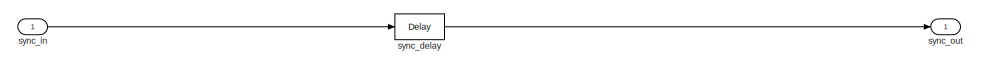
[diagram: cross_multiplier - part 1/6, full width, top band]
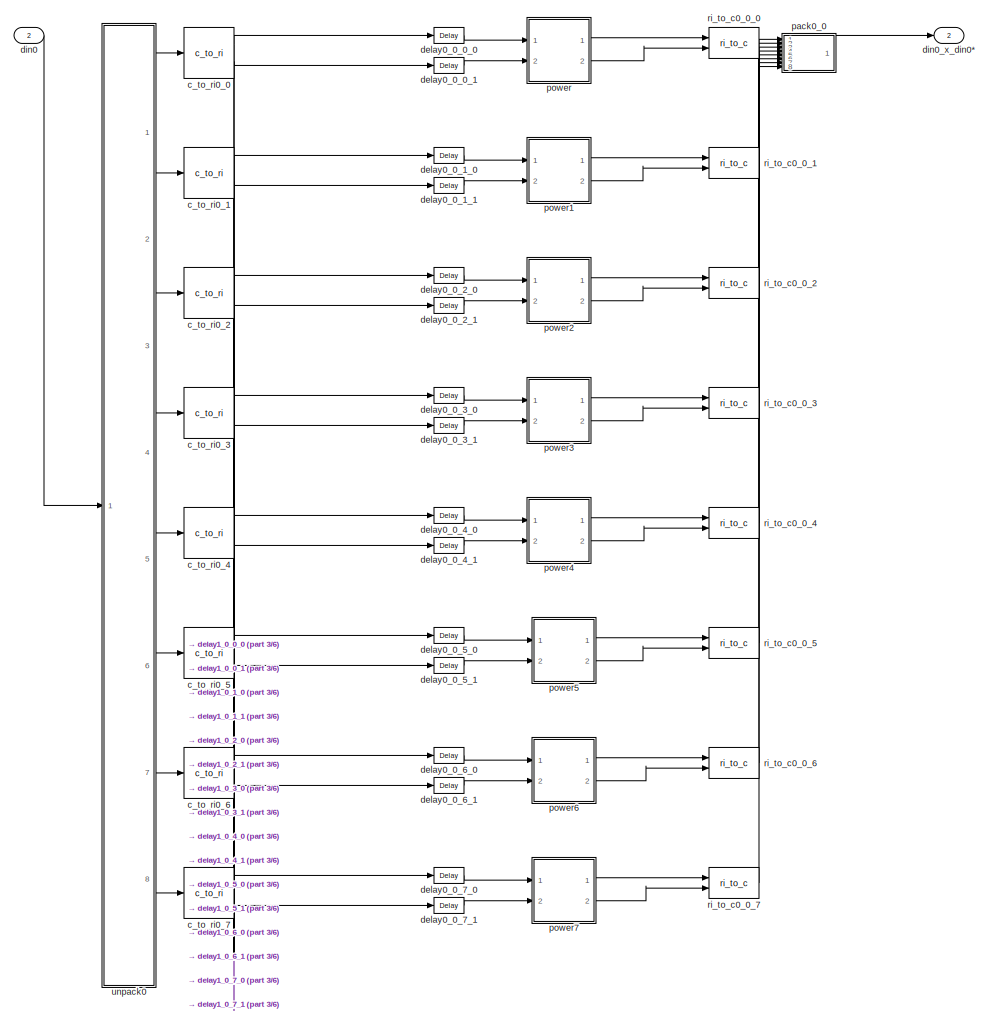
[diagram: cross_multiplier - part 2/6, full width, top band]
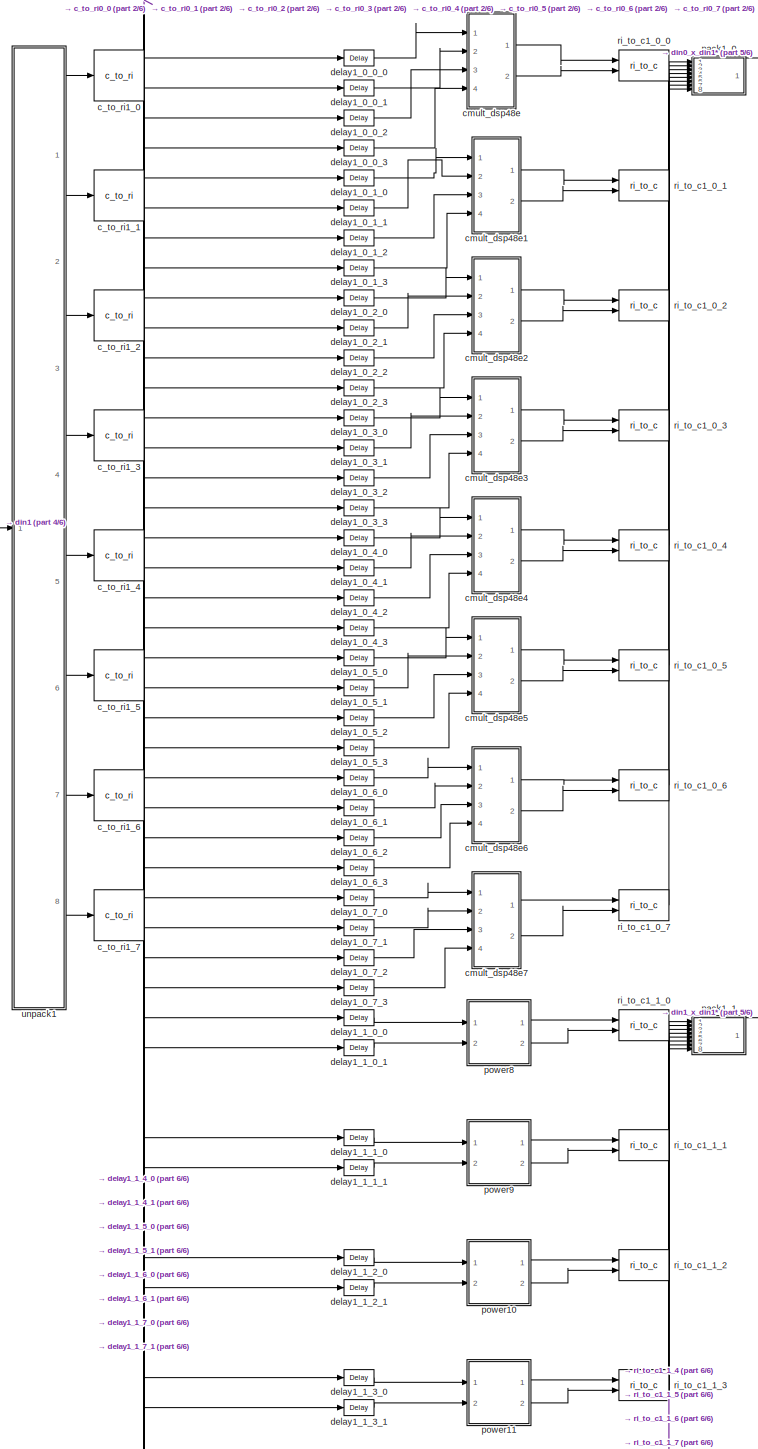
[diagram: cross_multiplier - part 3/6, full width, bottom band]
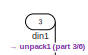
[diagram: cross_multiplier - part 4/6, bottom left region]
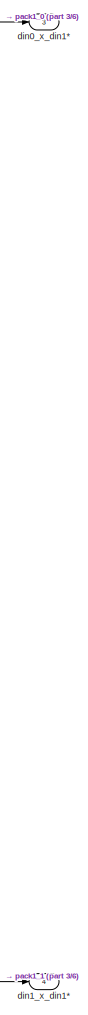
[diagram: cross_multiplier - part 5/6, bottom right region]
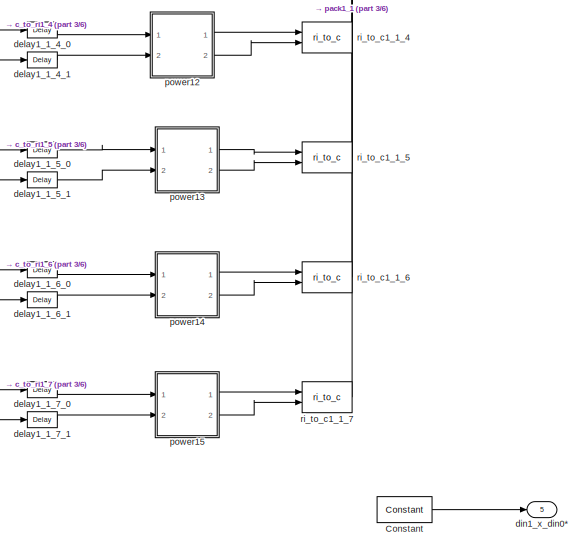
[diagram: cross_multiplier - part 6/6, bottom right region]
BLOCK [SubSystem] cross_multiplier
  FunctionWithSeparateData = off
  MaskHideContents = off
  MinAlgLoopOccurrences = off
  Opaque = off
  Ports = [3, 5]
  PropExecContextOutsideSubsystem = off
  RTWSystemCode = Auto
  RequestExecContextInheritance = off
  UserDataPersistent = on
BLOCK [Reference] cross_multiplier/Constant  REF=xbsIndex_r4/Constant
  Ports = [0, 1]
  SourceBlock = xbsIndex_r4/Constant
  SourceType = Xilinx Constant Block Block
  arith_type = Unsigned
  bin_pt = 0
  block_type = constant
  carry = CIN
  const = 0
  dbl_ovrd = off
  dsp48_infoedit = The use of this block for DSP48 instructions is deprecated.  Please use the Opmode block.
  equ = P=C
  exp_width = 8
  explicit_period = on
  frac_width = 24
  gui_display_data_type = Fixed-point
  has_advanced_control = 0
  inp1 = P
  inp2 = PCIN>>17
  n_bits = 2*(2*bit_width_in+1)*8
  opr = +
  opselect = C
  period = 1
  preci_type = Single
  sg_icon_stat = 55,26,0,1,white,blue,0,bf4ddd8b,right,,[ ],[ ]
  sg_mask_display = fprintf('','COMMENT: begin icon graphics');\npatch([0 55 55 0 0 ],[0 0 26 26 0 ],[0.77 0.82 0.91 ]);\nplot([0 55 55 0 0 ],[0 0 26 26 0 ]);\npatch([20.325 24.66 27.66 30.66 33.66 27.66 23.325 20.325 ],[16.33 16.33 19.33 16.33 19.33 19.33 19.33 16.33 ],[1 1 1 ]);\npatch([23.325 27.66 24.66 20.325 23.325 ],[13.33 13.33 16.33 16.33 13.33 ],[0.931 0.946 0.973 ]);\npatch([20.325 24.66 27.66 23.325 20.325 ],[...<+323ch>  <repeated x19 — deduplicated; at blocks: Constant>
  sggui_pos = 20,20,444,547
BLOCK [Reference] cross_multiplier/c_to_ri0_0  REF=casper_library_misc/c_to_ri  (lib defined in mdl_357510c33b49, mdl_57b5f564ae26, +4 more)
  AttributesFormatString = 18_17 r/i
  Ports = [1, 2]
  SourceBlock = casper_library_misc/c_to_ri
  SourceType = c_to_ri
  UserDataPersistent = on
  bin_pt = binary_point_in
  n_bits = bit_width_in
BLOCK [Reference] cross_multiplier/c_to_ri0_1  REF=casper_library_misc/c_to_ri  (lib defined in mdl_357510c33b49, mdl_57b5f564ae26, +4 more)
  AttributesFormatString = 18_17 r/i
  Ports = [1, 2]
  SourceBlock = casper_library_misc/c_to_ri
  SourceType = c_to_ri
  UserDataPersistent = on
  bin_pt = binary_point_in
  n_bits = bit_width_in
BLOCK [Reference] cross_multiplier/c_to_ri0_2  REF=casper_library_misc/c_to_ri  (lib defined in mdl_357510c33b49, mdl_57b5f564ae26, +4 more)
  AttributesFormatString = 18_17 r/i
  Ports = [1, 2]
  SourceBlock = casper_library_misc/c_to_ri
  SourceType = c_to_ri
  UserDataPersistent = on
  bin_pt = binary_point_in
  n_bits = bit_width_in
BLOCK [Reference] cross_multiplier/c_to_ri0_3  REF=casper_library_misc/c_to_ri  (lib defined in mdl_357510c33b49, mdl_57b5f564ae26, +4 more)
  AttributesFormatString = 18_17 r/i
  Ports = [1, 2]
  SourceBlock = casper_library_misc/c_to_ri
  SourceType = c_to_ri
  UserDataPersistent = on
  bin_pt = binary_point_in
  n_bits = bit_width_in
BLOCK [Reference] cross_multiplier/c_to_ri0_4  REF=casper_library_misc/c_to_ri  (lib defined in mdl_357510c33b49, mdl_57b5f564ae26, +4 more)
  AttributesFormatString = 18_17 r/i
  Ports = [1, 2]
  SourceBlock = casper_library_misc/c_to_ri
  SourceType = c_to_ri
  UserDataPersistent = on
  bin_pt = binary_point_in
  n_bits = bit_width_in
BLOCK [Reference] cross_multiplier/c_to_ri0_5  REF=casper_library_misc/c_to_ri  (lib defined in mdl_357510c33b49, mdl_57b5f564ae26, +4 more)
  AttributesFormatString = 18_17 r/i
  Ports = [1, 2]
  SourceBlock = casper_library_misc/c_to_ri
  SourceType = c_to_ri
  UserDataPersistent = on
  bin_pt = binary_point_in
  n_bits = bit_width_in
BLOCK [Reference] cross_multiplier/c_to_ri0_6  REF=casper_library_misc/c_to_ri  (lib defined in mdl_357510c33b49, mdl_57b5f564ae26, +4 more)
  AttributesFormatString = 18_17 r/i
  Ports = [1, 2]
  SourceBlock = casper_library_misc/c_to_ri
  SourceType = c_to_ri
  UserDataPersistent = on
  bin_pt = binary_point_in
  n_bits = bit_width_in
BLOCK [Reference] cross_multiplier/c_to_ri0_7  REF=casper_library_misc/c_to_ri  (lib defined in mdl_357510c33b49, mdl_57b5f564ae26, +4 more)
  AttributesFormatString = 18_17 r/i
  Ports = [1, 2]
  SourceBlock = casper_library_misc/c_to_ri
  SourceType = c_to_ri
  UserDataPersistent = on
  bin_pt = binary_point_in
  n_bits = bit_width_in
BLOCK [Reference] cross_multiplier/c_to_ri1_0  REF=casper_library_misc/c_to_ri  (lib defined in mdl_357510c33b49, mdl_57b5f564ae26, +4 more)
  AttributesFormatString = 18_17 r/i
  Ports = [1, 2]
  SourceBlock = casper_library_misc/c_to_ri
  SourceType = c_to_ri
  UserDataPersistent = on
  bin_pt = binary_point_in
  n_bits = bit_width_in
BLOCK [Reference] cross_multiplier/c_to_ri1_1  REF=casper_library_misc/c_to_ri  (lib defined in mdl_357510c33b49, mdl_57b5f564ae26, +4 more)
  AttributesFormatString = 18_17 r/i
  Ports = [1, 2]
  SourceBlock = casper_library_misc/c_to_ri
  SourceType = c_to_ri
  UserDataPersistent = on
  bin_pt = binary_point_in
  n_bits = bit_width_in
BLOCK [Reference] cross_multiplier/c_to_ri1_2  REF=casper_library_misc/c_to_ri  (lib defined in mdl_357510c33b49, mdl_57b5f564ae26, +4 more)
  AttributesFormatString = 18_17 r/i
  Ports = [1, 2]
  SourceBlock = casper_library_misc/c_to_ri
  SourceType = c_to_ri
  UserDataPersistent = on
  bin_pt = binary_point_in
  n_bits = bit_width_in
BLOCK [Reference] cross_multiplier/c_to_ri1_3  REF=casper_library_misc/c_to_ri  (lib defined in mdl_357510c33b49, mdl_57b5f564ae26, +4 more)
  AttributesFormatString = 18_17 r/i
  Ports = [1, 2]
  SourceBlock = casper_library_misc/c_to_ri
  SourceType = c_to_ri
  UserDataPersistent = on
  bin_pt = binary_point_in
  n_bits = bit_width_in
BLOCK [Reference] cross_multiplier/c_to_ri1_4  REF=casper_library_misc/c_to_ri  (lib defined in mdl_357510c33b49, mdl_57b5f564ae26, +4 more)
  AttributesFormatString = 18_17 r/i
  Ports = [1, 2]
  SourceBlock = casper_library_misc/c_to_ri
  SourceType = c_to_ri
  UserDataPersistent = on
  bin_pt = binary_point_in
  n_bits = bit_width_in
BLOCK [Reference] cross_multiplier/c_to_ri1_5  REF=casper_library_misc/c_to_ri  (lib defined in mdl_357510c33b49, mdl_57b5f564ae26, +4 more)
  AttributesFormatString = 18_17 r/i
  Ports = [1, 2]
  SourceBlock = casper_library_misc/c_to_ri
  SourceType = c_to_ri
  UserDataPersistent = on
  bin_pt = binary_point_in
  n_bits = bit_width_in
BLOCK [Reference] cross_multiplier/c_to_ri1_6  REF=casper_library_misc/c_to_ri  (lib defined in mdl_357510c33b49, mdl_57b5f564ae26, +4 more)
  AttributesFormatString = 18_17 r/i
  Ports = [1, 2]
  SourceBlock = casper_library_misc/c_to_ri
  SourceType = c_to_ri
  UserDataPersistent = on
  bin_pt = binary_point_in
  n_bits = bit_width_in
BLOCK [Reference] cross_multiplier/c_to_ri1_7  REF=casper_library_misc/c_to_ri  (lib defined in mdl_357510c33b49, mdl_57b5f564ae26, +4 more)
  AttributesFormatString = 18_17 r/i
  Ports = [1, 2]
  SourceBlock = casper_library_misc/c_to_ri
  SourceType = c_to_ri
  UserDataPersistent = on
  bin_pt = binary_point_in
  n_bits = bit_width_in
BLOCK [SubSystem] cross_multiplier/cmult_dsp48e
  AncestorBlock = casper_library_multipliers/cmult_dsp48e
  AttributesFormatString = 18_17 * 18_17 ==> 37_34\nLatency=4
  FunctionWithSeparateData = off
  MaskHideContents = off
  MinAlgLoopOccurrences = off
  Opaque = off
  Ports = [4, 2]
  PropExecContextOutsideSubsystem = off
  RTWSystemCode = Auto
  RequestExecContextInheritance = off
  UserDataPersistent = on
BLOCK [Reference] cross_multiplier/cmult_dsp48e/Convert  REF=xbsIndex_r4/Convert
  Ports = [1, 1]
  SourceBlock = xbsIndex_r4/Convert
  SourceType = Xilinx Type Converter Block
  arith_type = Signed  (2's comp)
  bin_pt = 0
  block_type = convert
  block_version = 10.1.3
  dbl_ovrd = off
  en = off
  exp_bits = 8
  float_type = Single
  fraction_bits = 24
  gui_display_data_type = Fixed-point
  has_advanced_control = 0
  infoedit = Hardware notes: rounding and saturating require hardware resources; truncating and wrapping do not.
  latency = 0
  n_bits = 30
  overflow = Wrap
  pipeline = on
  quantization = Truncate
  sg_icon_stat = 50,16,1,1,white,blue,0,edca21da,right,,[ ],[ ]
  sg_mask_display = fprintf('','COMMENT: begin icon graphics');\npatch([0 50 50 0 0 ],[0 0 16 16 0 ],[0.77 0.82 0.91 ]);\nplot([0 50 50 0 0 ],[0 0 16 16 0 ]);\npatch([20.55 23.44 25.44 27.44 29.44 25.44 22.55 20.55 ],[10.22 10.22 12.22 10.22 12.22 12.22 12.22 10.22 ],[1 1 1 ]);\npatch([22.55 25.44 23.44 20.55 22.55 ],[8.22 8.22 10.22 10.22 8.22 ],[0.931 0.946 0.973 ]);\npatch([20.55 23.44 25.44 22.55 20.55 ],[6.22 6.22 8....<+304ch>  <repeated x112 — deduplicated; at blocks: Convert, Convert1, Convert2, Convert3, Convert4, Convert5, Convert6, Convert7, cast_c_im, cast_c_re, realign_a_im, realign_a_re, realign_b_im, realign_b_re>
  sggui_pos = 20,27,633,525
  xl_area = [0,0,0,0,0,0,0]
  xl_use_area = off
BLOCK [Reference] cross_multiplier/cmult_dsp48e/Convert1  REF=xbsIndex_r4/Convert
  Ports = [1, 1]
  SourceBlock = xbsIndex_r4/Convert
  SourceType = Xilinx Type Converter Block
  arith_type = Signed  (2's comp)
  bin_pt = 0
  block_type = convert
  block_version = 10.1.3
  dbl_ovrd = off
  en = off
  exp_bits = 8
  float_type = Single
  fraction_bits = 24
  gui_display_data_type = Fixed-point
  has_advanced_control = 0
  infoedit = Hardware notes: rounding and saturating require hardware resources; truncating and wrapping do not.
  latency = 0
  n_bits = 30
  overflow = Wrap
  pipeline = on
  quantization = Truncate
  sg_icon_stat = 50,16,1,1,white,blue,0,edca21da,right,,[ ],[ ]
  sggui_pos = 20,27,633,525
  xl_area = [0,0,0,0,0,0,0]
  xl_use_area = off
BLOCK [Reference] cross_multiplier/cmult_dsp48e/Convert2  REF=xbsIndex_r4/Convert
  Ports = [1, 1]
  SourceBlock = xbsIndex_r4/Convert
  SourceType = Xilinx Type Converter Block
  arith_type = Signed  (2's comp)
  bin_pt = 0
  block_type = convert
  block_version = 10.1.3
  dbl_ovrd = off
  en = off
  exp_bits = 8
  float_type = Single
  fraction_bits = 24
  gui_display_data_type = Fixed-point
  has_advanced_control = 0
  infoedit = Hardware notes: rounding and saturating require hardware resources; truncating and wrapping do not.
  latency = 0
  n_bits = 30
  overflow = Wrap
  pipeline = on
  quantization = Truncate
  sg_icon_stat = 50,16,1,1,white,blue,0,edca21da,right,,[ ],[ ]
  sggui_pos = 20,27,633,525
  xl_area = [0,0,0,0,0,0,0]
  xl_use_area = off
BLOCK [Reference] cross_multiplier/cmult_dsp48e/Convert3  REF=xbsIndex_r4/Convert
  Ports = [1, 1]
  SourceBlock = xbsIndex_r4/Convert
  SourceType = Xilinx Type Converter Block
  arith_type = Signed  (2's comp)
  bin_pt = 0
  block_type = convert
  block_version = 10.1.3
  dbl_ovrd = off
  en = off
  exp_bits = 8
  float_type = Single
  fraction_bits = 24
  gui_display_data_type = Fixed-point
  has_advanced_control = 0
  infoedit = Hardware notes: rounding and saturating require hardware resources; truncating and wrapping do not.
  latency = 0
  n_bits = 18
  overflow = Wrap
  pipeline = on
  quantization = Truncate
  sg_icon_stat = 50,16,1,1,white,blue,0,edca21da,right,,[ ],[ ]
  sggui_pos = 20,27,633,525
  xl_area = [0,0,0,0,0,0,0]
  xl_use_area = off
BLOCK [Reference] cross_multiplier/cmult_dsp48e/Convert4  REF=xbsIndex_r4/Convert
  Ports = [1, 1]
  SourceBlock = xbsIndex_r4/Convert
  SourceType = Xilinx Type Converter Block
  arith_type = Signed  (2's comp)
  bin_pt = 0
  block_type = convert
  block_version = 10.1.3
  dbl_ovrd = off
  en = off
  exp_bits = 8
  float_type = Single
  fraction_bits = 24
  gui_display_data_type = Fixed-point
  has_advanced_control = 0
  infoedit = Hardware notes: rounding and saturating require hardware resources; truncating and wrapping do not.
  latency = 0
  n_bits = 18
  overflow = Wrap
  pipeline = on
  quantization = Truncate
  sg_icon_stat = 50,16,1,1,white,blue,0,edca21da,right,,[ ],[ ]
  sggui_pos = 20,27,633,525
  xl_area = [0,0,0,0,0,0,0]
  xl_use_area = off
BLOCK [Reference] cross_multiplier/cmult_dsp48e/Convert5  REF=xbsIndex_r4/Convert
  Ports = [1, 1]
  SourceBlock = xbsIndex_r4/Convert
  SourceType = Xilinx Type Converter Block
  arith_type = Signed  (2's comp)
  bin_pt = 0
  block_type = convert
  block_version = 10.1.3
  dbl_ovrd = off
  en = off
  exp_bits = 8
  float_type = Single
  fraction_bits = 24
  gui_display_data_type = Fixed-point
  has_advanced_control = 0
  infoedit = Hardware notes: rounding and saturating require hardware resources; truncating and wrapping do not.
  latency = 0
  n_bits = 30
  overflow = Wrap
  pipeline = on
  quantization = Truncate
  sg_icon_stat = 50,16,1,1,white,blue,0,edca21da,right,,[ ],[ ]
  sggui_pos = 20,27,633,525
  xl_area = [0,0,0,0,0,0,0]
  xl_use_area = off
BLOCK [Reference] cross_multiplier/cmult_dsp48e/Convert6  REF=xbsIndex_r4/Convert
  Ports = [1, 1]
  SourceBlock = xbsIndex_r4/Convert
  SourceType = Xilinx Type Converter Block
  arith_type = Signed  (2's comp)
  bin_pt = 0
  block_type = convert
  block_version = 10.1.3
  dbl_ovrd = off
  en = off
  exp_bits = 8
  float_type = Single
  fraction_bits = 24
  gui_display_data_type = Fixed-point
  has_advanced_control = 0
  infoedit = Hardware notes: rounding and saturating require hardware resources; truncating and wrapping do not.
  latency = 0
  n_bits = 18
  overflow = Wrap
  pipeline = on
  quantization = Truncate
  sg_icon_stat = 50,16,1,1,white,blue,0,edca21da,right,,[ ],[ ]
  sggui_pos = 20,27,633,525
  xl_area = [0,0,0,0,0,0,0]
  xl_use_area = off
BLOCK [Reference] cross_multiplier/cmult_dsp48e/Convert7  REF=xbsIndex_r4/Convert
  Ports = [1, 1]
  SourceBlock = xbsIndex_r4/Convert
  SourceType = Xilinx Type Converter Block
  arith_type = Signed  (2's comp)
  bin_pt = 0
  block_type = convert
  block_version = 10.1.3
  dbl_ovrd = off
  en = off
  exp_bits = 8
  float_type = Single
  fraction_bits = 24
  gui_display_data_type = Fixed-point
  has_advanced_control = 0
  infoedit = Hardware notes: rounding and saturating require hardware resources; truncating and wrapping do not.
  latency = 0
  n_bits = 18
  overflow = Wrap
  pipeline = on
  quantization = Truncate
  sg_icon_stat = 50,16,1,1,white,blue,0,edca21da,right,,[ ],[ ]
  sggui_pos = 20,27,633,525
  xl_area = [0,0,0,0,0,0,0]
  xl_use_area = off
BLOCK [Reference] cross_multiplier/cmult_dsp48e/DSP48E_0  REF=xbsIndex_r4/DSP48E
  Ports = [6, 2]
  SourceBlock = xbsIndex_r4/DSP48E
  SourceType = Xilinx DSP48E Block
  addsub_mode = ONE48
  block_type = dsp48e
  block_version = 10.1.3
  en_a1 = off
  en_a2 = off
  en_all = off
  en_alumode = off
  en_b1 = off
  en_b2 = off
  en_c = off
  en_carry_in = off
  en_ctrl = off
  en_mult = off
  en_multcarryin = off
  en_p = off
  has_advanced_control = 0
  mask_from_creg = off
  pattern = '000000000000'
  pattern_from_creg = off
  pattern_mask = '3FFFFFFFFFFF'
  pipeline_a = 1
  pipeline_acout = 1
  pipeline_alumode = on
  pipeline_b = 1
  pipeline_bcout = 1
  pipeline_c = on
  pipeline_carryin = on
  pipeline_carryinsel = on
  pipeline_mult = on
  pipeline_opmode = on
  pipeline_p = on
  reset_preg = off
  rst_a = off
  rst_all = off
  rst_alumode = off
  rst_b = off
  rst_c = off
  rst_carry_in = off
  rst_ctrl = off
  rst_mult = off
  rst_p = off
  sel_rounding_mask = Select mask
  sg_icon_stat = 100,97,6,2,white,blue,0,c3facdee,right,,[ ],[ ]
  sg_mask_display = fprintf('','COMMENT: begin icon graphics');\npatch([0 100 100 0 0 ],[0 0 97 97 0 ],[0.77 0.82 0.91 ]);\nplot([0 100 100 0 0 ],[0 0 97 97 0 ]);\npatch([21.075 39.86 52.86 65.86 78.86 52.86 34.075 21.075 ],[62.43 62.43 75.43 62.43 75.43 75.43 75.43 62.43 ],[1 1 1 ]);\npatch([34.075 52.86 39.86 21.075 34.075 ],[49.43 49.43 62.43 62.43 49.43 ],[0.931 0.946 0.973 ]);\npatch([21.075 39.86 52.86 34.075 21.075...<+656ch>  <repeated x16 — deduplicated; at blocks: DSP48E_0, DSP48E_2>
  sggui_pos = 0,0,658,967
  use_a = Direct from A Port
  use_acout = off
  use_b = Direct from B Port
  use_bcout = off
  use_carrycascin = off
  use_carrycascout = off
  use_carryout = off
  use_creg = off
  use_multsignin = off
  use_multsignout = off
  use_op = off
  use_overflow = off
  use_patternbdetect = off
  use_patterndetect = off
  use_pcin = off
  use_pcout = on
  use_synth_model = off
  use_underflow = off
  xl_area = [0,0,0,0,0,0,0]
  xl_use_area = off
  xl_useadderonly = off
BLOCK [Reference] cross_multiplier/cmult_dsp48e/DSP48E_1  REF=xbsIndex_r4/DSP48E
  Ports = [7, 1]
  SourceBlock = xbsIndex_r4/DSP48E
  SourceType = Xilinx DSP48E Block
  addsub_mode = ONE48
  block_type = dsp48e
  block_version = 10.1.3
  en_a1 = off
  en_a2 = off
  en_all = off
  en_alumode = off
  en_b1 = off
  en_b2 = off
  en_c = off
  en_carry_in = off
  en_ctrl = off
  en_mult = off
  en_multcarryin = off
  en_p = off
  has_advanced_control = 0
  mask_from_creg = off
  pattern = '000000000000'
  pattern_from_creg = off
  pattern_mask = '3FFFFFFFFFFF'
  pipeline_a = 2
  pipeline_acout = 1
  pipeline_alumode = on
  pipeline_b = 2
  pipeline_bcout = 1
  pipeline_c = on
  pipeline_carryin = on
  pipeline_carryinsel = on
  pipeline_mult = on
  pipeline_opmode = on
  pipeline_p = on
  reset_preg = off
  rst_a = off
  rst_all = off
  rst_alumode = off
  rst_b = off
  rst_c = off
  rst_carry_in = off
  rst_ctrl = off
  rst_mult = off
  rst_p = off
  sel_rounding_mask = Select mask
  sg_icon_stat = 100,112,7,1,white,blue,0,b41431cb,right,,[ ],[ ]
  sg_mask_display = fprintf('','COMMENT: begin icon graphics');\npatch([0 100 100 0 0 ],[0 0 112 112 0 ],[0.77 0.82 0.91 ]);\nplot([0 100 100 0 0 ],[0 0 112 112 0 ]);\npatch([18.85 39.08 53.08 67.08 81.08 53.08 32.85 18.85 ],[71.54 71.54 85.54 71.54 85.54 85.54 85.54 71.54 ],[1 1 1 ]);\npatch([32.85 53.08 39.08 18.85 32.85 ],[57.54 57.54 71.54 71.54 57.54 ],[0.931 0.946 0.973 ]);\npatch([18.85 39.08 53.08 32.85 18.85 ],[4...<+646ch>  <repeated x16 — deduplicated; at blocks: DSP48E_1, DSP48E_3>
  sggui_pos = 224,37,658,967
  use_a = Direct from A Port
  use_acout = off
  use_b = Direct from B Port
  use_bcout = off
  use_carrycascin = off
  use_carrycascout = off
  use_carryout = off
  use_creg = off
  use_multsignin = off
  use_multsignout = off
  use_op = off
  use_overflow = off
  use_patternbdetect = off
  use_patterndetect = off
  use_pcin = on
  use_pcout = off
  use_synth_model = off
  use_underflow = off
  xl_area = [0,0,0,0,0,0,0]
  xl_use_area = off
  xl_useadderonly = off
BLOCK [Reference] cross_multiplier/cmult_dsp48e/DSP48E_2  REF=xbsIndex_r4/DSP48E
  Ports = [6, 2]
  SourceBlock = xbsIndex_r4/DSP48E
  SourceType = Xilinx DSP48E Block
  addsub_mode = ONE48
  block_type = dsp48e
  block_version = 10.1.3
  en_a1 = off
  en_a2 = off
  en_all = off
  en_alumode = off
  en_b1 = off
  en_b2 = off
  en_c = off
  en_carry_in = off
  en_ctrl = off
  en_mult = off
  en_multcarryin = off
  en_p = off
  has_advanced_control = 0
  mask_from_creg = off
  pattern = '000000000000'
  pattern_from_creg = off
  pattern_mask = '3FFFFFFFFFFF'
  pipeline_a = 1
  pipeline_acout = 1
  pipeline_alumode = on
  pipeline_b = 1
  pipeline_bcout = 1
  pipeline_c = on
  pipeline_carryin = on
  pipeline_carryinsel = on
  pipeline_mult = on
  pipeline_opmode = on
  pipeline_p = on
  reset_preg = off
  rst_a = off
  rst_all = off
  rst_alumode = off
  rst_b = off
  rst_c = off
  rst_carry_in = off
  rst_ctrl = off
  rst_mult = off
  rst_p = off
  sel_rounding_mask = Select mask
  sg_icon_stat = 100,97,6,2,white,blue,0,c3facdee,right,,[ ],[ ]
  sggui_pos = 0,0,658,967
  use_a = Direct from A Port
  use_acout = off
  use_b = Direct from B Port
  use_bcout = off
  use_carrycascin = off
  use_carrycascout = off
  use_carryout = off
  use_creg = off
  use_multsignin = off
  use_multsignout = off
  use_op = off
  use_overflow = off
  use_patternbdetect = off
  use_patterndetect = off
  use_pcin = off
  use_pcout = on
  use_synth_model = off
  use_underflow = off
  xl_area = [0,0,0,0,0,0,0]
  xl_use_area = off
  xl_useadderonly = off
BLOCK [Reference] cross_multiplier/cmult_dsp48e/DSP48E_3  REF=xbsIndex_r4/DSP48E
  Ports = [7, 1]
  SourceBlock = xbsIndex_r4/DSP48E
  SourceType = Xilinx DSP48E Block
  addsub_mode = ONE48
  block_type = dsp48e
  block_version = 10.1.3
  en_a1 = off
  en_a2 = off
  en_all = off
  en_alumode = off
  en_b1 = off
  en_b2 = off
  en_c = off
  en_carry_in = off
  en_ctrl = off
  en_mult = off
  en_multcarryin = off
  en_p = off
  has_advanced_control = 0
  mask_from_creg = off
  pattern = '000000000000'
  pattern_from_creg = off
  pattern_mask = '3FFFFFFFFFFF'
  pipeline_a = 2
  pipeline_acout = 1
  pipeline_alumode = on
  pipeline_b = 2
  pipeline_bcout = 1
  pipeline_c = on
  pipeline_carryin = on
  pipeline_carryinsel = on
  pipeline_mult = on
  pipeline_opmode = on
  pipeline_p = on
  reset_preg = off
  rst_a = off
  rst_all = off
  rst_alumode = off
  rst_b = off
  rst_c = off
  rst_carry_in = off
  rst_ctrl = off
  rst_mult = off
  rst_p = off
  sel_rounding_mask = Select mask
  sg_icon_stat = 100,112,7,1,white,blue,0,b41431cb,right,,[ ],[ ]
  sggui_pos = 224,37,658,967
  use_a = Direct from A Port
  use_acout = off
  use_b = Direct from B Port
  use_bcout = off
  use_carrycascin = off
  use_carrycascout = off
  use_carryout = off
  use_creg = off
  use_multsignin = off
  use_multsignout = off
  use_op = off
  use_overflow = off
  use_patternbdetect = off
  use_patterndetect = off
  use_pcin = on
  use_pcout = off
  use_synth_model = off
  use_underflow = off
  xl_area = [0,0,0,0,0,0,0]
  xl_use_area = off
  xl_useadderonly = off
BLOCK [Terminator] cross_multiplier/cmult_dsp48e/Terminator
BLOCK [Terminator] cross_multiplier/cmult_dsp48e/Terminator1
BLOCK [Inport] cross_multiplier/cmult_dsp48e/a_im
  IconDisplay = Port number
  Port = 2
BLOCK [Inport] cross_multiplier/cmult_dsp48e/a_re
  IconDisplay = Port number
BLOCK [Reference] cross_multiplier/cmult_dsp48e/alumode0  REF=xbsIndex_r4/Constant
  Ports = [0, 1]
  SourceBlock = xbsIndex_r4/Constant
  SourceType = Xilinx Constant Block Block
  arith_type = Unsigned
  bin_pt = 0
  block_type = constant
  block_version = 10.1.3
  carry = CIN
  const = 3
  dbl_ovrd = off
  dsp48_infoedit = The use of this block for DSP48 instructions is deprecated.  Please use the Opmode block.
  equ = P=C
  exp_width = 8
  explicit_period = off
  frac_width = 24
  gui_display_data_type = Fixed-point
  has_advanced_control = 0
  inp1 = P
  inp2 = PCIN>>17
  n_bits = 4
  opr = +
  opselect = C
  period = 1
  preci_type = Single
  sg_icon_stat = 50,16,0,1,white,blue,0,279a71c8,right,,[ ],[ ]
  sg_mask_display = fprintf('','COMMENT: begin icon graphics');\npatch([0 50 50 0 0 ],[0 0 16 16 0 ],[0.77 0.82 0.91 ]);\nplot([0 50 50 0 0 ],[0 0 16 16 0 ]);\npatch([20.55 23.44 25.44 27.44 29.44 25.44 22.55 20.55 ],[10.22 10.22 12.22 10.22 12.22 12.22 12.22 10.22 ],[1 1 1 ]);\npatch([22.55 25.44 23.44 20.55 22.55 ],[8.22 8.22 10.22 10.22 8.22 ],[0.931 0.946 0.973 ]);\npatch([20.55 23.44 25.44 22.55 20.55 ],[6.22 6.22 8....<+300ch>  <repeated x112 — deduplicated; at blocks: alumode0, alumode1, alumode2, alumode3, carryin0, carryin1, carryin2, carryin3, carryinsel0, carryinsel1, carryinsel2, carryinsel3, opmode0, opmode2>
  sggui_pos = 20,20,400,346
BLOCK [Reference] cross_multiplier/cmult_dsp48e/alumode1  REF=xbsIndex_r4/Constant
  Ports = [0, 1]
  SourceBlock = xbsIndex_r4/Constant
  SourceType = Xilinx Constant Block Block
  arith_type = Unsigned
  bin_pt = 0
  block_type = constant
  block_version = 10.1.3
  carry = CIN
  const = 0
  dbl_ovrd = off
  dsp48_infoedit = The use of this block for DSP48 instructions is deprecated.  Please use the Opmode block.
  equ = P=C
  exp_width = 8
  explicit_period = off
  frac_width = 24
  gui_display_data_type = Fixed-point
  has_advanced_control = 0
  inp1 = P
  inp2 = PCIN>>17
  n_bits = 4
  opr = +
  opselect = C
  period = 1
  preci_type = Single
  sg_icon_stat = 50,16,0,1,white,blue,0,bf4ddd8b,right,,[ ],[ ]
  sg_list_contents = {'table'=>{'carry'=>'popup(0|1|CIN|~SIGN(P or PCIN)|~SIGN(A*B or A:B)|~SIGND(A*B or A:B))','inp1'=>'popup(0|P|A:B|A*B|C|P+C|A:B+C)','inp2'=>'popup(0|PCIN|P|C|PCIN>>17|P>>17)','opselect'=>'popup(C + A*B|PCIN + A*B|P + A*B|A * B|C + A:B|C - A:B|C|Custom)','userSelections'=>{'carry'=>'CIN','inp1'=>'P','inp2'=>'PCIN>>17','opselect'=>'C'}}}  <repeated x40 — deduplicated; at blocks: alumode1, opmode0, opmode1, opmode2, opmode3>
  sggui_pos = 20,20,400,346
BLOCK [Reference] cross_multiplier/cmult_dsp48e/alumode2  REF=xbsIndex_r4/Constant
  Ports = [0, 1]
  SourceBlock = xbsIndex_r4/Constant
  SourceType = Xilinx Constant Block Block
  arith_type = Unsigned
  bin_pt = 0
  block_type = constant
  block_version = 10.1.3
  carry = CIN
  const = 0
  dbl_ovrd = off
  dsp48_infoedit = The use of this block for DSP48 instructions is deprecated.  Please use the Opmode block.
  equ = P=C
  exp_width = 8
  explicit_period = off
  frac_width = 24
  gui_display_data_type = Fixed-point
  has_advanced_control = 0
  inp1 = P
  inp2 = PCIN>>17
  n_bits = 4
  opr = +
  opselect = C
  period = 1
  preci_type = Single
  sg_icon_stat = 50,16,0,1,white,blue,0,bf4ddd8b,right,,[ ],[ ]
  sggui_pos = 20,20,400,346
BLOCK [Reference] cross_multiplier/cmult_dsp48e/alumode3  REF=xbsIndex_r4/Constant
  Ports = [0, 1]
  SourceBlock = xbsIndex_r4/Constant
  SourceType = Xilinx Constant Block Block
  arith_type = Unsigned
  bin_pt = 0
  block_type = constant
  block_version = 10.1.3
  carry = CIN
  const = 0
  dbl_ovrd = off
  dsp48_infoedit = The use of this block for DSP48 instructions is deprecated.  Please use the Opmode block.
  equ = P=C
  exp_width = 8
  explicit_period = off
  frac_width = 24
  gui_display_data_type = Fixed-point
  has_advanced_control = 0
  inp1 = P
  inp2 = PCIN>>17
  n_bits = 4
  opr = +
  opselect = C
  period = 1
  preci_type = Single
  sg_icon_stat = 50,16,0,1,white,blue,0,bf4ddd8b,right,,[ ],[ ]
  sggui_pos = 20,20,400,346
BLOCK [Inport] cross_multiplier/cmult_dsp48e/b_im
  IconDisplay = Port number
  Port = 4
BLOCK [Inport] cross_multiplier/cmult_dsp48e/b_re
  IconDisplay = Port number
  Port = 3
BLOCK [Outport] cross_multiplier/cmult_dsp48e/c_im
  IconDisplay = Port number
  Port = 2
BLOCK [Outport] cross_multiplier/cmult_dsp48e/c_re
  IconDisplay = Port number
BLOCK [Reference] cross_multiplier/cmult_dsp48e/carryin0  REF=xbsIndex_r4/Constant
  Ports = [0, 1]
  SourceBlock = xbsIndex_r4/Constant
  SourceType = Xilinx Constant Block Block
  arith_type = Unsigned
  bin_pt = 0
  block_type = constant
  block_version = 10.1.3
  carry = CIN
  const = 0
  dbl_ovrd = off
  dsp48_infoedit = The use of this block for DSP48 instructions is deprecated.  Please use the Opmode block.
  equ = P=C
  exp_width = 8
  explicit_period = off
  frac_width = 24
  gui_display_data_type = Fixed-point
  has_advanced_control = 0
  inp1 = P
  inp2 = PCIN>>17
  n_bits = 1
  opr = +
  opselect = C
  period = 1
  preci_type = Single
  sg_icon_stat = 50,16,0,1,white,blue,0,bf4ddd8b,right,,[ ],[ ]
  sggui_pos = 20,20,400,346
BLOCK [Reference] cross_multiplier/cmult_dsp48e/carryin1  REF=xbsIndex_r4/Constant
  Ports = [0, 1]
  SourceBlock = xbsIndex_r4/Constant
  SourceType = Xilinx Constant Block Block
  arith_type = Unsigned
  bin_pt = 0
  block_type = constant
  block_version = 10.1.3
  carry = CIN
  const = 0
  dbl_ovrd = off
  dsp48_infoedit = The use of this block for DSP48 instructions is deprecated.  Please use the Opmode block.
  equ = P=C
  exp_width = 8
  explicit_period = off
  frac_width = 24
  gui_display_data_type = Fixed-point
  has_advanced_control = 0
  inp1 = P
  inp2 = PCIN>>17
  n_bits = 1
  opr = +
  opselect = C
  period = 1
  preci_type = Single
  sg_icon_stat = 50,16,0,1,white,blue,0,bf4ddd8b,right,,[ ],[ ]
  sggui_pos = 20,20,400,346
BLOCK [Reference] cross_multiplier/cmult_dsp48e/carryin2  REF=xbsIndex_r4/Constant
  Ports = [0, 1]
  SourceBlock = xbsIndex_r4/Constant
  SourceType = Xilinx Constant Block Block
  arith_type = Unsigned
  bin_pt = 0
  block_type = constant
  block_version = 10.1.3
  carry = CIN
  const = 0
  dbl_ovrd = off
  dsp48_infoedit = The use of this block for DSP48 instructions is deprecated.  Please use the Opmode block.
  equ = P=C
  exp_width = 8
  explicit_period = off
  frac_width = 24
  gui_display_data_type = Fixed-point
  has_advanced_control = 0
  inp1 = P
  inp2 = PCIN>>17
  n_bits = 1
  opr = +
  opselect = C
  period = 1
  preci_type = Single
  sg_icon_stat = 50,16,0,1,white,blue,0,bf4ddd8b,right,,[ ],[ ]
  sggui_pos = 20,20,400,346
BLOCK [Reference] cross_multiplier/cmult_dsp48e/carryin3  REF=xbsIndex_r4/Constant
  Ports = [0, 1]
  SourceBlock = xbsIndex_r4/Constant
  SourceType = Xilinx Constant Block Block
  arith_type = Unsigned
  bin_pt = 0
  block_type = constant
  block_version = 10.1.3
  carry = CIN
  const = 0
  dbl_ovrd = off
  dsp48_infoedit = The use of this block for DSP48 instructions is deprecated.  Please use the Opmode block.
  equ = P=C
  exp_width = 8
  explicit_period = off
  frac_width = 24
  gui_display_data_type = Fixed-point
  has_advanced_control = 0
  inp1 = P
  inp2 = PCIN>>17
  n_bits = 1
  opr = +
  opselect = C
  period = 1
  preci_type = Single
  sg_icon_stat = 50,16,0,1,white,blue,0,bf4ddd8b,right,,[ ],[ ]
  sggui_pos = 20,20,400,346
BLOCK [Reference] cross_multiplier/cmult_dsp48e/carryinsel0  REF=xbsIndex_r4/Constant
  Ports = [0, 1]
  SourceBlock = xbsIndex_r4/Constant
  SourceType = Xilinx Constant Block Block
  arith_type = Unsigned
  bin_pt = 0
  block_type = constant
  block_version = 10.1.3
  carry = CIN
  const = 0
  dbl_ovrd = off
  dsp48_infoedit = The use of this block for DSP48 instructions is deprecated.  Please use the Opmode block.
  equ = P=C
  exp_width = 8
  explicit_period = off
  frac_width = 24
  gui_display_data_type = Fixed-point
  has_advanced_control = 0
  inp1 = P
  inp2 = PCIN>>17
  n_bits = 3
  opr = +
  opselect = C
  period = 1
  preci_type = Single
  sg_icon_stat = 50,16,0,1,white,blue,0,bf4ddd8b,right,,[ ],[ ]
  sggui_pos = 20,20,400,346
BLOCK [Reference] cross_multiplier/cmult_dsp48e/carryinsel1  REF=xbsIndex_r4/Constant
  Ports = [0, 1]
  SourceBlock = xbsIndex_r4/Constant
  SourceType = Xilinx Constant Block Block
  arith_type = Unsigned
  bin_pt = 0
  block_type = constant
  block_version = 10.1.3
  carry = CIN
  const = 0
  dbl_ovrd = off
  dsp48_infoedit = The use of this block for DSP48 instructions is deprecated.  Please use the Opmode block.
  equ = P=C
  exp_width = 8
  explicit_period = off
  frac_width = 24
  gui_display_data_type = Fixed-point
  has_advanced_control = 0
  inp1 = P
  inp2 = PCIN>>17
  n_bits = 3
  opr = +
  opselect = C
  period = 1
  preci_type = Single
  sg_icon_stat = 50,16,0,1,white,blue,0,bf4ddd8b,right,,[ ],[ ]
  sggui_pos = 20,20,400,346
BLOCK [Reference] cross_multiplier/cmult_dsp48e/carryinsel2  REF=xbsIndex_r4/Constant
  Ports = [0, 1]
  SourceBlock = xbsIndex_r4/Constant
  SourceType = Xilinx Constant Block Block
  arith_type = Unsigned
  bin_pt = 0
  block_type = constant
  block_version = 10.1.3
  carry = CIN
  const = 0
  dbl_ovrd = off
  dsp48_infoedit = The use of this block for DSP48 instructions is deprecated.  Please use the Opmode block.
  equ = P=C
  exp_width = 8
  explicit_period = off
  frac_width = 24
  gui_display_data_type = Fixed-point
  has_advanced_control = 0
  inp1 = P
  inp2 = PCIN>>17
  n_bits = 3
  opr = +
  opselect = C
  period = 1
  preci_type = Single
  sg_icon_stat = 50,16,0,1,white,blue,0,bf4ddd8b,right,,[ ],[ ]
  sggui_pos = 20,20,400,346
BLOCK [Reference] cross_multiplier/cmult_dsp48e/carryinsel3  REF=xbsIndex_r4/Constant
  Ports = [0, 1]
  SourceBlock = xbsIndex_r4/Constant
  SourceType = Xilinx Constant Block Block
  arith_type = Unsigned
  bin_pt = 0
  block_type = constant
  block_version = 10.1.3
  carry = CIN
  const = 0
  dbl_ovrd = off
  dsp48_infoedit = The use of this block for DSP48 instructions is deprecated.  Please use the Opmode block.
  equ = P=C
  exp_width = 8
  explicit_period = off
  frac_width = 24
  gui_display_data_type = Fixed-point
  has_advanced_control = 0
  inp1 = P
  inp2 = PCIN>>17
  n_bits = 3
  opr = +
  opselect = C
  period = 1
  preci_type = Single
  sg_icon_stat = 50,16,0,1,white,blue,0,bf4ddd8b,right,,[ ],[ ]
  sggui_pos = 20,20,400,346
BLOCK [Reference] cross_multiplier/cmult_dsp48e/cast_c_im  REF=xbsIndex_r4/Convert
  Ports = [1, 1]
  SourceBlock = xbsIndex_r4/Convert
  SourceType = Xilinx Type Converter Block
  arith_type = Signed  (2's comp)
  bin_pt = 34
  block_type = convert
  block_version = 10.1.3
  dbl_ovrd = off
  en = off
  exp_bits = 8
  float_type = Single
  fraction_bits = 24
  gui_display_data_type = Fixed-point
  has_advanced_control = 0
  infoedit = Hardware notes: rounding and saturating require hardware resources; truncating and wrapping do not.
  latency = 0
  n_bits = 37
  overflow = Wrap
  pipeline = on
  quantization = Truncate
  sg_icon_stat = 50,16,1,1,white,blue,0,edca21da,right,,[ ],[ ]
  sggui_pos = 20,27,633,525
  xl_area = [0,0,0,0,0,0,0]
  xl_use_area = off
BLOCK [Reference] cross_multiplier/cmult_dsp48e/cast_c_re  REF=xbsIndex_r4/Convert
  Ports = [1, 1]
  SourceBlock = xbsIndex_r4/Convert
  SourceType = Xilinx Type Converter Block
  arith_type = Signed  (2's comp)
  bin_pt = 34
  block_type = convert
  block_version = 10.1.3
  dbl_ovrd = off
  en = off
  exp_bits = 8
  float_type = Single
  fraction_bits = 24
  gui_display_data_type = Fixed-point
  has_advanced_control = 0
  infoedit = Hardware notes: rounding and saturating require hardware resources; truncating and wrapping do not.
  latency = 0
  n_bits = 37
  overflow = Wrap
  pipeline = on
  quantization = Truncate
  sg_icon_stat = 50,16,1,1,white,blue,0,edca21da,right,,[ ],[ ]
  sggui_pos = 20,27,633,525
  xl_area = [0,0,0,0,0,0,0]
  xl_use_area = off
BLOCK [Reference] cross_multiplier/cmult_dsp48e/opmode0  REF=xbsIndex_r4/Constant
  Ports = [0, 1]
  SourceBlock = xbsIndex_r4/Constant
  SourceType = Xilinx Constant Block Block
  arith_type = Unsigned
  bin_pt = 0
  block_type = constant
  block_version = 10.1.3
  carry = CIN
  const = 5
  dbl_ovrd = off
  dsp48_infoedit = The use of this block for DSP48 instructions is deprecated.  Please use the Opmode block.
  equ = P=C
  exp_width = 8
  explicit_period = off
  frac_width = 24
  gui_display_data_type = Fixed-point
  has_advanced_control = 0
  inp1 = P
  inp2 = PCIN>>17
  n_bits = 7
  opr = +
  opselect = C
  period = 1
  preci_type = Single
  sg_icon_stat = 50,16,0,1,white,blue,0,98872051,right,,[ ],[ ]
  sggui_pos = 0,0,550,547
BLOCK [Reference] cross_multiplier/cmult_dsp48e/opmode1  REF=xbsIndex_r4/Constant
  Ports = [0, 1]
  SourceBlock = xbsIndex_r4/Constant
  SourceType = Xilinx Constant Block Block
  arith_type = Unsigned
  bin_pt = 0
  block_type = constant
  block_version = 10.1.3
  carry = CIN
  const = 21
  dbl_ovrd = off
  dsp48_infoedit = The use of this block for DSP48 instructions is deprecated.  Please use the Opmode block.
  equ = P=C
  exp_width = 8
  explicit_period = off
  frac_width = 24
  gui_display_data_type = Fixed-point
  has_advanced_control = 0
  inp1 = P
  inp2 = PCIN>>17
  n_bits = 7
  opr = +
  opselect = C
  period = 1
  preci_type = Single
  sg_icon_stat = 50,16,0,1,white,blue,0,b02509bd,right,,[ ],[ ]
  sg_mask_display = fprintf('','COMMENT: begin icon graphics');\npatch([0 50 50 0 0 ],[0 0 16 16 0 ],[0.77 0.82 0.91 ]);\nplot([0 50 50 0 0 ],[0 0 16 16 0 ]);\npatch([20.55 23.44 25.44 27.44 29.44 25.44 22.55 20.55 ],[10.22 10.22 12.22 10.22 12.22 12.22 12.22 10.22 ],[1 1 1 ]);\npatch([22.55 25.44 23.44 20.55 22.55 ],[8.22 8.22 10.22 10.22 8.22 ],[0.931 0.946 0.973 ]);\npatch([20.55 23.44 25.44 22.55 20.55 ],[6.22 6.22 8....<+301ch>  <repeated x16 — deduplicated; at blocks: opmode1, opmode3>
  sggui_pos = 0,0,550,547
BLOCK [Reference] cross_multiplier/cmult_dsp48e/opmode2  REF=xbsIndex_r4/Constant
  Ports = [0, 1]
  SourceBlock = xbsIndex_r4/Constant
  SourceType = Xilinx Constant Block Block
  arith_type = Unsigned
  bin_pt = 0
  block_type = constant
  block_version = 10.1.3
  carry = CIN
  const = 5
  dbl_ovrd = off
  dsp48_infoedit = The use of this block for DSP48 instructions is deprecated.  Please use the Opmode block.
  equ = P=C
  exp_width = 8
  explicit_period = off
  frac_width = 24
  gui_display_data_type = Fixed-point
  has_advanced_control = 0
  inp1 = P
  inp2 = PCIN>>17
  n_bits = 7
  opr = +
  opselect = C
  period = 1
  preci_type = Single
  sg_icon_stat = 50,16,0,1,white,blue,0,98872051,right,,[ ],[ ]
  sggui_pos = 0,0,550,547
BLOCK [Reference] cross_multiplier/cmult_dsp48e/opmode3  REF=xbsIndex_r4/Constant
  Ports = [0, 1]
  SourceBlock = xbsIndex_r4/Constant
  SourceType = Xilinx Constant Block Block
  arith_type = Unsigned
  bin_pt = 0
  block_type = constant
  block_version = 10.1.3
  carry = CIN
  const = 21
  dbl_ovrd = off
  dsp48_infoedit = The use of this block for DSP48 instructions is deprecated.  Please use the Opmode block.
  equ = P=C
  exp_width = 8
  explicit_period = off
  frac_width = 24
  gui_display_data_type = Fixed-point
  has_advanced_control = 0
  inp1 = P
  inp2 = PCIN>>17
  n_bits = 7
  opr = +
  opselect = C
  period = 1
  preci_type = Single
  sg_icon_stat = 50,16,0,1,white,blue,0,b02509bd,right,,[ ],[ ]
  sggui_pos = 0,0,550,547
BLOCK [Reference] cross_multiplier/cmult_dsp48e/realign_a_im  REF=xbsIndex_r4/Convert
  Ports = [1, 1]
  SourceBlock = xbsIndex_r4/Convert
  SourceType = Xilinx Type Converter Block
  arith_type = Signed  (2's comp)
  bin_pt = 17
  block_type = convert
  block_version = 10.1.3
  dbl_ovrd = off
  en = off
  exp_bits = 8
  float_type = Single
  fraction_bits = 24
  gui_display_data_type = Fixed-point
  has_advanced_control = 0
  infoedit = Hardware notes: rounding and saturating require hardware resources; truncating and wrapping do not.
  latency = 0
  n_bits = 18
  overflow = Wrap
  pipeline = on
  quantization = Truncate
  sg_icon_stat = 50,16,1,1,white,blue,0,edca21da,right,,[ ],[ ]
  sggui_pos = 20,27,633,525
  xl_area = [0,0,0,0,0,0,0]
  xl_use_area = off
BLOCK [Reference] cross_multiplier/cmult_dsp48e/realign_a_re  REF=xbsIndex_r4/Convert
  Ports = [1, 1]
  SourceBlock = xbsIndex_r4/Convert
  SourceType = Xilinx Type Converter Block
  arith_type = Signed  (2's comp)
  bin_pt = 17
  block_type = convert
  block_version = 10.1.3
  dbl_ovrd = off
  en = off
  exp_bits = 8
  float_type = Single
  fraction_bits = 24
  gui_display_data_type = Fixed-point
  has_advanced_control = 0
  infoedit = Hardware notes: rounding and saturating require hardware resources; truncating and wrapping do not.
  latency = 0
  n_bits = 18
  overflow = Wrap
  pipeline = on
  quantization = Truncate
  sg_icon_stat = 50,16,1,1,white,blue,0,edca21da,right,,[ ],[ ]
  sggui_pos = 20,27,633,525
  xl_area = [0,0,0,0,0,0,0]
  xl_use_area = off
BLOCK [Reference] cross_multiplier/cmult_dsp48e/realign_b_im  REF=xbsIndex_r4/Convert
  Ports = [1, 1]
  SourceBlock = xbsIndex_r4/Convert
  SourceType = Xilinx Type Converter Block
  arith_type = Signed  (2's comp)
  bin_pt = 17
  block_type = convert
  block_version = 10.1.3
  dbl_ovrd = off
  en = off
  exp_bits = 8
  float_type = Single
  fraction_bits = 24
  gui_display_data_type = Fixed-point
  has_advanced_control = 0
  infoedit = Hardware notes: rounding and saturating require hardware resources; truncating and wrapping do not.
  latency = 0
  n_bits = 18
  overflow = Wrap
  pipeline = on
  quantization = Truncate
  sg_icon_stat = 50,16,1,1,white,blue,0,edca21da,right,,[ ],[ ]
  sggui_pos = 20,27,633,525
  xl_area = [0,0,0,0,0,0,0]
  xl_use_area = off
BLOCK [Reference] cross_multiplier/cmult_dsp48e/realign_b_re  REF=xbsIndex_r4/Convert
  Ports = [1, 1]
  SourceBlock = xbsIndex_r4/Convert
  SourceType = Xilinx Type Converter Block
  arith_type = Signed  (2's comp)
  bin_pt = 17
  block_type = convert
  block_version = 10.1.3
  dbl_ovrd = off
  en = off
  exp_bits = 8
  float_type = Single
  fraction_bits = 24
  gui_display_data_type = Fixed-point
  has_advanced_control = 0
  infoedit = Hardware notes: rounding and saturating require hardware resources; truncating and wrapping do not.
  latency = 0
  n_bits = 18
  overflow = Wrap
  pipeline = on
  quantization = Truncate
  sg_icon_stat = 50,16,1,1,white,blue,0,edca21da,right,,[ ],[ ]
  sggui_pos = 20,27,633,525
  xl_area = [0,0,0,0,0,0,0]
  xl_use_area = off
BLOCK [Reference] cross_multiplier/cmult_dsp48e/reinterp_a_im  REF=xbsIndex_r4/Reinterpret
  Ports = [1, 1]
  SourceBlock = xbsIndex_r4/Reinterpret
  SourceType = Xilinx Type Reinterpreter Block
  arith_type = Signed  (2's comp)
  bin_pt = 0
  block_type = reinterpret
  block_version = 10.1.3
  force_arith_type = on
  force_bin_pt = on
  has_advanced_control = 0
  sg_icon_stat = 50,16,1,1,white,blue,0,6b04d0b0,right,,[ ],[ ]
  sg_mask_display = fprintf('','COMMENT: begin icon graphics');\npatch([0 50 50 0 0 ],[0 0 16 16 0 ],[0.77 0.82 0.91 ]);\nplot([0 50 50 0 0 ],[0 0 16 16 0 ]);\npatch([20.55 23.44 25.44 27.44 29.44 25.44 22.55 20.55 ],[10.22 10.22 12.22 10.22 12.22 12.22 12.22 10.22 ],[1 1 1 ]);\npatch([22.55 25.44 23.44 20.55 22.55 ],[8.22 8.22 10.22 10.22 8.22 ],[0.931 0.946 0.973 ]);\npatch([20.55 23.44 25.44 22.55 20.55 ],[6.22 6.22 8....<+295ch>  <repeated x48 — deduplicated; at blocks: reinterp_a_im, reinterp_a_re, reinterp_b_im, reinterp_b_re, reinterp_c_im, reinterp_c_re>
  sggui_pos = 15,25,372,364
BLOCK [Reference] cross_multiplier/cmult_dsp48e/reinterp_a_re  REF=xbsIndex_r4/Reinterpret
  Ports = [1, 1]
  SourceBlock = xbsIndex_r4/Reinterpret
  SourceType = Xilinx Type Reinterpreter Block
  arith_type = Signed  (2's comp)
  bin_pt = 0
  block_type = reinterpret
  block_version = 10.1.3
  force_arith_type = on
  force_bin_pt = on
  has_advanced_control = 0
  sg_icon_stat = 50,16,1,1,white,blue,0,6b04d0b0,right,,[ ],[ ]
  sggui_pos = 15,25,372,364
BLOCK [Reference] cross_multiplier/cmult_dsp48e/reinterp_b_im  REF=xbsIndex_r4/Reinterpret
  Ports = [1, 1]
  SourceBlock = xbsIndex_r4/Reinterpret
  SourceType = Xilinx Type Reinterpreter Block
  arith_type = Signed  (2's comp)
  bin_pt = 0
  block_type = reinterpret
  block_version = 10.1.3
  force_arith_type = on
  force_bin_pt = on
  has_advanced_control = 0
  sg_icon_stat = 50,16,1,1,white,blue,0,6b04d0b0,right,,[ ],[ ]
  sggui_pos = 15,25,372,364
BLOCK [Reference] cross_multiplier/cmult_dsp48e/reinterp_b_re  REF=xbsIndex_r4/Reinterpret
  Ports = [1, 1]
  SourceBlock = xbsIndex_r4/Reinterpret
  SourceType = Xilinx Type Reinterpreter Block
  arith_type = Signed  (2's comp)
  bin_pt = 0
  block_type = reinterpret
  block_version = 10.1.3
  force_arith_type = on
  force_bin_pt = on
  has_advanced_control = 0
  sg_icon_stat = 50,16,1,1,white,blue,0,6b04d0b0,right,,[ ],[ ]
  sggui_pos = 15,25,372,364
BLOCK [Reference] cross_multiplier/cmult_dsp48e/reinterp_c_im  REF=xbsIndex_r4/Reinterpret
  Ports = [1, 1]
  SourceBlock = xbsIndex_r4/Reinterpret
  SourceType = Xilinx Type Reinterpreter Block
  arith_type = Signed  (2's comp)
  bin_pt = 34
  block_type = reinterpret
  block_version = 10.1.3
  force_arith_type = on
  force_bin_pt = on
  has_advanced_control = 0
  sg_icon_stat = 50,16,1,1,white,blue,0,6b04d0b0,right,,[ ],[ ]
  sggui_pos = 15,25,372,364
BLOCK [Reference] cross_multiplier/cmult_dsp48e/reinterp_c_re  REF=xbsIndex_r4/Reinterpret
  Ports = [1, 1]
  SourceBlock = xbsIndex_r4/Reinterpret
  SourceType = Xilinx Type Reinterpreter Block
  arith_type = Signed  (2's comp)
  bin_pt = 34
  block_type = reinterpret
  block_version = 10.1.3
  force_arith_type = on
  force_bin_pt = on
  has_advanced_control = 0
  sg_icon_stat = 50,16,1,1,white,blue,0,6b04d0b0,right,,[ ],[ ]
  sggui_pos = 15,25,372,364
BLOCK [SubSystem] cross_multiplier/cmult_dsp48e1
  AncestorBlock = casper_library_multipliers/cmult_dsp48e
  AttributesFormatString = 18_17 * 18_17 ==> 37_34\nLatency=4
  FunctionWithSeparateData = off
  MaskHideContents = off
  MinAlgLoopOccurrences = off
  Opaque = off
  Ports = [4, 2]
  PropExecContextOutsideSubsystem = off
  RTWSystemCode = Auto
  RequestExecContextInheritance = off
  UserDataPersistent = on
BLOCK [Reference] cross_multiplier/cmult_dsp48e1/Convert  REF=xbsIndex_r4/Convert
  Ports = [1, 1]
  SourceBlock = xbsIndex_r4/Convert
  SourceType = Xilinx Type Converter Block
  arith_type = Signed  (2's comp)
  bin_pt = 0
  block_type = convert
  block_version = 10.1.3
  dbl_ovrd = off
  en = off
  exp_bits = 8
  float_type = Single
  fraction_bits = 24
  gui_display_data_type = Fixed-point
  has_advanced_control = 0
  infoedit = Hardware notes: rounding and saturating require hardware resources; truncating and wrapping do not.
  latency = 0
  n_bits = 30
  overflow = Wrap
  pipeline = on
  quantization = Truncate
  sg_icon_stat = 50,16,1,1,white,blue,0,edca21da,right,,[ ],[ ]
  sggui_pos = 20,27,633,525
  xl_area = [0,0,0,0,0,0,0]
  xl_use_area = off
BLOCK [Reference] cross_multiplier/cmult_dsp48e1/Convert1  REF=xbsIndex_r4/Convert
  Ports = [1, 1]
  SourceBlock = xbsIndex_r4/Convert
  SourceType = Xilinx Type Converter Block
  arith_type = Signed  (2's comp)
  bin_pt = 0
  block_type = convert
  block_version = 10.1.3
  dbl_ovrd = off
  en = off
  exp_bits = 8
  float_type = Single
  fraction_bits = 24
  gui_display_data_type = Fixed-point
  has_advanced_control = 0
  infoedit = Hardware notes: rounding and saturating require hardware resources; truncating and wrapping do not.
  latency = 0
  n_bits = 30
  overflow = Wrap
  pipeline = on
  quantization = Truncate
  sg_icon_stat = 50,16,1,1,white,blue,0,edca21da,right,,[ ],[ ]
  sggui_pos = 20,27,633,525
  xl_area = [0,0,0,0,0,0,0]
  xl_use_area = off
BLOCK [Reference] cross_multiplier/cmult_dsp48e1/Convert2  REF=xbsIndex_r4/Convert
  Ports = [1, 1]
  SourceBlock = xbsIndex_r4/Convert
  SourceType = Xilinx Type Converter Block
  arith_type = Signed  (2's comp)
  bin_pt = 0
  block_type = convert
  block_version = 10.1.3
  dbl_ovrd = off
  en = off
  exp_bits = 8
  float_type = Single
  fraction_bits = 24
  gui_display_data_type = Fixed-point
  has_advanced_control = 0
  infoedit = Hardware notes: rounding and saturating require hardware resources; truncating and wrapping do not.
  latency = 0
  n_bits = 30
  overflow = Wrap
  pipeline = on
  quantization = Truncate
  sg_icon_stat = 50,16,1,1,white,blue,0,edca21da,right,,[ ],[ ]
  sggui_pos = 20,27,633,525
  xl_area = [0,0,0,0,0,0,0]
  xl_use_area = off
BLOCK [Reference] cross_multiplier/cmult_dsp48e1/Convert3  REF=xbsIndex_r4/Convert
  Ports = [1, 1]
  SourceBlock = xbsIndex_r4/Convert
  SourceType = Xilinx Type Converter Block
  arith_type = Signed  (2's comp)
  bin_pt = 0
  block_type = convert
  block_version = 10.1.3
  dbl_ovrd = off
  en = off
  exp_bits = 8
  float_type = Single
  fraction_bits = 24
  gui_display_data_type = Fixed-point
  has_advanced_control = 0
  infoedit = Hardware notes: rounding and saturating require hardware resources; truncating and wrapping do not.
  latency = 0
  n_bits = 18
  overflow = Wrap
  pipeline = on
  quantization = Truncate
  sg_icon_stat = 50,16,1,1,white,blue,0,edca21da,right,,[ ],[ ]
  sggui_pos = 20,27,633,525
  xl_area = [0,0,0,0,0,0,0]
  xl_use_area = off
BLOCK [Reference] cross_multiplier/cmult_dsp48e1/Convert4  REF=xbsIndex_r4/Convert
  Ports = [1, 1]
  SourceBlock = xbsIndex_r4/Convert
  SourceType = Xilinx Type Converter Block
  arith_type = Signed  (2's comp)
  bin_pt = 0
  block_type = convert
  block_version = 10.1.3
  dbl_ovrd = off
  en = off
  exp_bits = 8
  float_type = Single
  fraction_bits = 24
  gui_display_data_type = Fixed-point
  has_advanced_control = 0
  infoedit = Hardware notes: rounding and saturating require hardware resources; truncating and wrapping do not.
  latency = 0
  n_bits = 18
  overflow = Wrap
  pipeline = on
  quantization = Truncate
  sg_icon_stat = 50,16,1,1,white,blue,0,edca21da,right,,[ ],[ ]
  sggui_pos = 20,27,633,525
  xl_area = [0,0,0,0,0,0,0]
  xl_use_area = off
BLOCK [Reference] cross_multiplier/cmult_dsp48e1/Convert5  REF=xbsIndex_r4/Convert
  Ports = [1, 1]
  SourceBlock = xbsIndex_r4/Convert
  SourceType = Xilinx Type Converter Block
  arith_type = Signed  (2's comp)
  bin_pt = 0
  block_type = convert
  block_version = 10.1.3
  dbl_ovrd = off
  en = off
  exp_bits = 8
  float_type = Single
  fraction_bits = 24
  gui_display_data_type = Fixed-point
  has_advanced_control = 0
  infoedit = Hardware notes: rounding and saturating require hardware resources; truncating and wrapping do not.
  latency = 0
  n_bits = 30
  overflow = Wrap
  pipeline = on
  quantization = Truncate
  sg_icon_stat = 50,16,1,1,white,blue,0,edca21da,right,,[ ],[ ]
  sggui_pos = 20,27,633,525
  xl_area = [0,0,0,0,0,0,0]
  xl_use_area = off
BLOCK [Reference] cross_multiplier/cmult_dsp48e1/Convert6  REF=xbsIndex_r4/Convert
  Ports = [1, 1]
  SourceBlock = xbsIndex_r4/Convert
  SourceType = Xilinx Type Converter Block
  arith_type = Signed  (2's comp)
  bin_pt = 0
  block_type = convert
  block_version = 10.1.3
  dbl_ovrd = off
  en = off
  exp_bits = 8
  float_type = Single
  fraction_bits = 24
  gui_display_data_type = Fixed-point
  has_advanced_control = 0
  infoedit = Hardware notes: rounding and saturating require hardware resources; truncating and wrapping do not.
  latency = 0
  n_bits = 18
  overflow = Wrap
  pipeline = on
  quantization = Truncate
  sg_icon_stat = 50,16,1,1,white,blue,0,edca21da,right,,[ ],[ ]
  sggui_pos = 20,27,633,525
  xl_area = [0,0,0,0,0,0,0]
  xl_use_area = off
BLOCK [Reference] cross_multiplier/cmult_dsp48e1/Convert7  REF=xbsIndex_r4/Convert
  Ports = [1, 1]
  SourceBlock = xbsIndex_r4/Convert
  SourceType = Xilinx Type Converter Block
  arith_type = Signed  (2's comp)
  bin_pt = 0
  block_type = convert
  block_version = 10.1.3
  dbl_ovrd = off
  en = off
  exp_bits = 8
  float_type = Single
  fraction_bits = 24
  gui_display_data_type = Fixed-point
  has_advanced_control = 0
  infoedit = Hardware notes: rounding and saturating require hardware resources; truncating and wrapping do not.
  latency = 0
  n_bits = 18
  overflow = Wrap
  pipeline = on
  quantization = Truncate
  sg_icon_stat = 50,16,1,1,white,blue,0,edca21da,right,,[ ],[ ]
  sggui_pos = 20,27,633,525
  xl_area = [0,0,0,0,0,0,0]
  xl_use_area = off
BLOCK [Reference] cross_multiplier/cmult_dsp48e1/DSP48E_0  REF=xbsIndex_r4/DSP48E
  Ports = [6, 2]
  SourceBlock = xbsIndex_r4/DSP48E
  SourceType = Xilinx DSP48E Block
  addsub_mode = ONE48
  block_type = dsp48e
  block_version = 10.1.3
  en_a1 = off
  en_a2 = off
  en_all = off
  en_alumode = off
  en_b1 = off
  en_b2 = off
  en_c = off
  en_carry_in = off
  en_ctrl = off
  en_mult = off
  en_multcarryin = off
  en_p = off
  has_advanced_control = 0
  mask_from_creg = off
  pattern = '000000000000'
  pattern_from_creg = off
  pattern_mask = '3FFFFFFFFFFF'
  pipeline_a = 1
  pipeline_acout = 1
  pipeline_alumode = on
  pipeline_b = 1
  pipeline_bcout = 1
  pipeline_c = on
  pipeline_carryin = on
  pipeline_carryinsel = on
  pipeline_mult = on
  pipeline_opmode = on
  pipeline_p = on
  reset_preg = off
  rst_a = off
  rst_all = off
  rst_alumode = off
  rst_b = off
  rst_c = off
  rst_carry_in = off
  rst_ctrl = off
  rst_mult = off
  rst_p = off
  sel_rounding_mask = Select mask
  sg_icon_stat = 100,97,6,2,white,blue,0,c3facdee,right,,[ ],[ ]
  sggui_pos = 0,0,658,967
  use_a = Direct from A Port
  use_acout = off
  use_b = Direct from B Port
  use_bcout = off
  use_carrycascin = off
  use_carrycascout = off
  use_carryout = off
  use_creg = off
  use_multsignin = off
  use_multsignout = off
  use_op = off
  use_overflow = off
  use_patternbdetect = off
  use_patterndetect = off
  use_pcin = off
  use_pcout = on
  use_synth_model = off
  use_underflow = off
  xl_area = [0,0,0,0,0,0,0]
  xl_use_area = off
  xl_useadderonly = off
BLOCK [Reference] cross_multiplier/cmult_dsp48e1/DSP48E_1  REF=xbsIndex_r4/DSP48E
  Ports = [7, 1]
  SourceBlock = xbsIndex_r4/DSP48E
  SourceType = Xilinx DSP48E Block
  addsub_mode = ONE48
  block_type = dsp48e
  block_version = 10.1.3
  en_a1 = off
  en_a2 = off
  en_all = off
  en_alumode = off
  en_b1 = off
  en_b2 = off
  en_c = off
  en_carry_in = off
  en_ctrl = off
  en_mult = off
  en_multcarryin = off
  en_p = off
  has_advanced_control = 0
  mask_from_creg = off
  pattern = '000000000000'
  pattern_from_creg = off
  pattern_mask = '3FFFFFFFFFFF'
  pipeline_a = 2
  pipeline_acout = 1
  pipeline_alumode = on
  pipeline_b = 2
  pipeline_bcout = 1
  pipeline_c = on
  pipeline_carryin = on
  pipeline_carryinsel = on
  pipeline_mult = on
  pipeline_opmode = on
  pipeline_p = on
  reset_preg = off
  rst_a = off
  rst_all = off
  rst_alumode = off
  rst_b = off
  rst_c = off
  rst_carry_in = off
  rst_ctrl = off
  rst_mult = off
  rst_p = off
  sel_rounding_mask = Select mask
  sg_icon_stat = 100,112,7,1,white,blue,0,b41431cb,right,,[ ],[ ]
  sggui_pos = 224,37,658,967
  use_a = Direct from A Port
  use_acout = off
  use_b = Direct from B Port
  use_bcout = off
  use_carrycascin = off
  use_carrycascout = off
  use_carryout = off
  use_creg = off
  use_multsignin = off
  use_multsignout = off
  use_op = off
  use_overflow = off
  use_patternbdetect = off
  use_patterndetect = off
  use_pcin = on
  use_pcout = off
  use_synth_model = off
  use_underflow = off
  xl_area = [0,0,0,0,0,0,0]
  xl_use_area = off
  xl_useadderonly = off
BLOCK [Reference] cross_multiplier/cmult_dsp48e1/DSP48E_2  REF=xbsIndex_r4/DSP48E
  Ports = [6, 2]
  SourceBlock = xbsIndex_r4/DSP48E
  SourceType = Xilinx DSP48E Block
  addsub_mode = ONE48
  block_type = dsp48e
  block_version = 10.1.3
  en_a1 = off
  en_a2 = off
  en_all = off
  en_alumode = off
  en_b1 = off
  en_b2 = off
  en_c = off
  en_carry_in = off
  en_ctrl = off
  en_mult = off
  en_multcarryin = off
  en_p = off
  has_advanced_control = 0
  mask_from_creg = off
  pattern = '000000000000'
  pattern_from_creg = off
  pattern_mask = '3FFFFFFFFFFF'
  pipeline_a = 1
  pipeline_acout = 1
  pipeline_alumode = on
  pipeline_b = 1
  pipeline_bcout = 1
  pipeline_c = on
  pipeline_carryin = on
  pipeline_carryinsel = on
  pipeline_mult = on
  pipeline_opmode = on
  pipeline_p = on
  reset_preg = off
  rst_a = off
  rst_all = off
  rst_alumode = off
  rst_b = off
  rst_c = off
  rst_carry_in = off
  rst_ctrl = off
  rst_mult = off
  rst_p = off
  sel_rounding_mask = Select mask
  sg_icon_stat = 100,97,6,2,white,blue,0,c3facdee,right,,[ ],[ ]
  sggui_pos = 0,0,658,967
  use_a = Direct from A Port
  use_acout = off
  use_b = Direct from B Port
  use_bcout = off
  use_carrycascin = off
  use_carrycascout = off
  use_carryout = off
  use_creg = off
  use_multsignin = off
  use_multsignout = off
  use_op = off
  use_overflow = off
  use_patternbdetect = off
  use_patterndetect = off
  use_pcin = off
  use_pcout = on
  use_synth_model = off
  use_underflow = off
  xl_area = [0,0,0,0,0,0,0]
  xl_use_area = off
  xl_useadderonly = off
BLOCK [Reference] cross_multiplier/cmult_dsp48e1/DSP48E_3  REF=xbsIndex_r4/DSP48E
  Ports = [7, 1]
  SourceBlock = xbsIndex_r4/DSP48E
  SourceType = Xilinx DSP48E Block
  addsub_mode = ONE48
  block_type = dsp48e
  block_version = 10.1.3
  en_a1 = off
  en_a2 = off
  en_all = off
  en_alumode = off
  en_b1 = off
  en_b2 = off
  en_c = off
  en_carry_in = off
  en_ctrl = off
  en_mult = off
  en_multcarryin = off
  en_p = off
  has_advanced_control = 0
  mask_from_creg = off
  pattern = '000000000000'
  pattern_from_creg = off
  pattern_mask = '3FFFFFFFFFFF'
  pipeline_a = 2
  pipeline_acout = 1
  pipeline_alumode = on
  pipeline_b = 2
  pipeline_bcout = 1
  pipeline_c = on
  pipeline_carryin = on
  pipeline_carryinsel = on
  pipeline_mult = on
  pipeline_opmode = on
  pipeline_p = on
  reset_preg = off
  rst_a = off
  rst_all = off
  rst_alumode = off
  rst_b = off
  rst_c = off
  rst_carry_in = off
  rst_ctrl = off
  rst_mult = off
  rst_p = off
  sel_rounding_mask = Select mask
  sg_icon_stat = 100,112,7,1,white,blue,0,b41431cb,right,,[ ],[ ]
  sggui_pos = 224,37,658,967
  use_a = Direct from A Port
  use_acout = off
  use_b = Direct from B Port
  use_bcout = off
  use_carrycascin = off
  use_carrycascout = off
  use_carryout = off
  use_creg = off
  use_multsignin = off
  use_multsignout = off
  use_op = off
  use_overflow = off
  use_patternbdetect = off
  use_patterndetect = off
  use_pcin = on
  use_pcout = off
  use_synth_model = off
  use_underflow = off
  xl_area = [0,0,0,0,0,0,0]
  xl_use_area = off
  xl_useadderonly = off
BLOCK [Terminator] cross_multiplier/cmult_dsp48e1/Terminator
BLOCK [Terminator] cross_multiplier/cmult_dsp48e1/Terminator1
BLOCK [Inport] cross_multiplier/cmult_dsp48e1/a_im
  IconDisplay = Port number
  Port = 2
BLOCK [Inport] cross_multiplier/cmult_dsp48e1/a_re
  IconDisplay = Port number
BLOCK [Reference] cross_multiplier/cmult_dsp48e1/alumode0  REF=xbsIndex_r4/Constant
  Ports = [0, 1]
  SourceBlock = xbsIndex_r4/Constant
  SourceType = Xilinx Constant Block Block
  arith_type = Unsigned
  bin_pt = 0
  block_type = constant
  block_version = 10.1.3
  carry = CIN
  const = 3
  dbl_ovrd = off
  dsp48_infoedit = The use of this block for DSP48 instructions is deprecated.  Please use the Opmode block.
  equ = P=C
  exp_width = 8
  explicit_period = off
  frac_width = 24
  gui_display_data_type = Fixed-point
  has_advanced_control = 0
  inp1 = P
  inp2 = PCIN>>17
  n_bits = 4
  opr = +
  opselect = C
  period = 1
  preci_type = Single
  sg_icon_stat = 50,16,0,1,white,blue,0,279a71c8,right,,[ ],[ ]
  sggui_pos = 20,20,400,346
BLOCK [Reference] cross_multiplier/cmult_dsp48e1/alumode1  REF=xbsIndex_r4/Constant
  Ports = [0, 1]
  SourceBlock = xbsIndex_r4/Constant
  SourceType = Xilinx Constant Block Block
  arith_type = Unsigned
  bin_pt = 0
  block_type = constant
  block_version = 10.1.3
  carry = CIN
  const = 0
  dbl_ovrd = off
  dsp48_infoedit = The use of this block for DSP48 instructions is deprecated.  Please use the Opmode block.
  equ = P=C
  exp_width = 8
  explicit_period = off
  frac_width = 24
  gui_display_data_type = Fixed-point
  has_advanced_control = 0
  inp1 = P
  inp2 = PCIN>>17
  n_bits = 4
  opr = +
  opselect = C
  period = 1
  preci_type = Single
  sg_icon_stat = 50,16,0,1,white,blue,0,bf4ddd8b,right,,[ ],[ ]
  sggui_pos = 20,20,400,346
BLOCK [Reference] cross_multiplier/cmult_dsp48e1/alumode2  REF=xbsIndex_r4/Constant
  Ports = [0, 1]
  SourceBlock = xbsIndex_r4/Constant
  SourceType = Xilinx Constant Block Block
  arith_type = Unsigned
  bin_pt = 0
  block_type = constant
  block_version = 10.1.3
  carry = CIN
  const = 0
  dbl_ovrd = off
  dsp48_infoedit = The use of this block for DSP48 instructions is deprecated.  Please use the Opmode block.
  equ = P=C
  exp_width = 8
  explicit_period = off
  frac_width = 24
  gui_display_data_type = Fixed-point
  has_advanced_control = 0
  inp1 = P
  inp2 = PCIN>>17
  n_bits = 4
  opr = +
  opselect = C
  period = 1
  preci_type = Single
  sg_icon_stat = 50,16,0,1,white,blue,0,bf4ddd8b,right,,[ ],[ ]
  sggui_pos = 20,20,400,346
BLOCK [Reference] cross_multiplier/cmult_dsp48e1/alumode3  REF=xbsIndex_r4/Constant
  Ports = [0, 1]
  SourceBlock = xbsIndex_r4/Constant
  SourceType = Xilinx Constant Block Block
  arith_type = Unsigned
  bin_pt = 0
  block_type = constant
  block_version = 10.1.3
  carry = CIN
  const = 0
  dbl_ovrd = off
  dsp48_infoedit = The use of this block for DSP48 instructions is deprecated.  Please use the Opmode block.
  equ = P=C
  exp_width = 8
  explicit_period = off
  frac_width = 24
  gui_display_data_type = Fixed-point
  has_advanced_control = 0
  inp1 = P
  inp2 = PCIN>>17
  n_bits = 4
  opr = +
  opselect = C
  period = 1
  preci_type = Single
  sg_icon_stat = 50,16,0,1,white,blue,0,bf4ddd8b,right,,[ ],[ ]
  sggui_pos = 20,20,400,346
BLOCK [Inport] cross_multiplier/cmult_dsp48e1/b_im
  IconDisplay = Port number
  Port = 4
BLOCK [Inport] cross_multiplier/cmult_dsp48e1/b_re
  IconDisplay = Port number
  Port = 3
BLOCK [Outport] cross_multiplier/cmult_dsp48e1/c_im
  IconDisplay = Port number
  Port = 2
BLOCK [Outport] cross_multiplier/cmult_dsp48e1/c_re
  IconDisplay = Port number
BLOCK [Reference] cross_multiplier/cmult_dsp48e1/carryin0  REF=xbsIndex_r4/Constant
  Ports = [0, 1]
  SourceBlock = xbsIndex_r4/Constant
  SourceType = Xilinx Constant Block Block
  arith_type = Unsigned
  bin_pt = 0
  block_type = constant
  block_version = 10.1.3
  carry = CIN
  const = 0
  dbl_ovrd = off
  dsp48_infoedit = The use of this block for DSP48 instructions is deprecated.  Please use the Opmode block.
  equ = P=C
  exp_width = 8
  explicit_period = off
  frac_width = 24
  gui_display_data_type = Fixed-point
  has_advanced_control = 0
  inp1 = P
  inp2 = PCIN>>17
  n_bits = 1
  opr = +
  opselect = C
  period = 1
  preci_type = Single
  sg_icon_stat = 50,16,0,1,white,blue,0,bf4ddd8b,right,,[ ],[ ]
  sggui_pos = 20,20,400,346
BLOCK [Reference] cross_multiplier/cmult_dsp48e1/carryin1  REF=xbsIndex_r4/Constant
  Ports = [0, 1]
  SourceBlock = xbsIndex_r4/Constant
  SourceType = Xilinx Constant Block Block
  arith_type = Unsigned
  bin_pt = 0
  block_type = constant
  block_version = 10.1.3
  carry = CIN
  const = 0
  dbl_ovrd = off
  dsp48_infoedit = The use of this block for DSP48 instructions is deprecated.  Please use the Opmode block.
  equ = P=C
  exp_width = 8
  explicit_period = off
  frac_width = 24
  gui_display_data_type = Fixed-point
  has_advanced_control = 0
  inp1 = P
  inp2 = PCIN>>17
  n_bits = 1
  opr = +
  opselect = C
  period = 1
  preci_type = Single
  sg_icon_stat = 50,16,0,1,white,blue,0,bf4ddd8b,right,,[ ],[ ]
  sggui_pos = 20,20,400,346
BLOCK [Reference] cross_multiplier/cmult_dsp48e1/carryin2  REF=xbsIndex_r4/Constant
  Ports = [0, 1]
  SourceBlock = xbsIndex_r4/Constant
  SourceType = Xilinx Constant Block Block
  arith_type = Unsigned
  bin_pt = 0
  block_type = constant
  block_version = 10.1.3
  carry = CIN
  const = 0
  dbl_ovrd = off
  dsp48_infoedit = The use of this block for DSP48 instructions is deprecated.  Please use the Opmode block.
  equ = P=C
  exp_width = 8
  explicit_period = off
  frac_width = 24
  gui_display_data_type = Fixed-point
  has_advanced_control = 0
  inp1 = P
  inp2 = PCIN>>17
  n_bits = 1
  opr = +
  opselect = C
  period = 1
  preci_type = Single
  sg_icon_stat = 50,16,0,1,white,blue,0,bf4ddd8b,right,,[ ],[ ]
  sggui_pos = 20,20,400,346
BLOCK [Reference] cross_multiplier/cmult_dsp48e1/carryin3  REF=xbsIndex_r4/Constant
  Ports = [0, 1]
  SourceBlock = xbsIndex_r4/Constant
  SourceType = Xilinx Constant Block Block
  arith_type = Unsigned
  bin_pt = 0
  block_type = constant
  block_version = 10.1.3
  carry = CIN
  const = 0
  dbl_ovrd = off
  dsp48_infoedit = The use of this block for DSP48 instructions is deprecated.  Please use the Opmode block.
  equ = P=C
  exp_width = 8
  explicit_period = off
  frac_width = 24
  gui_display_data_type = Fixed-point
  has_advanced_control = 0
  inp1 = P
  inp2 = PCIN>>17
  n_bits = 1
  opr = +
  opselect = C
  period = 1
  preci_type = Single
  sg_icon_stat = 50,16,0,1,white,blue,0,bf4ddd8b,right,,[ ],[ ]
  sggui_pos = 20,20,400,346
BLOCK [Reference] cross_multiplier/cmult_dsp48e1/carryinsel0  REF=xbsIndex_r4/Constant
  Ports = [0, 1]
  SourceBlock = xbsIndex_r4/Constant
  SourceType = Xilinx Constant Block Block
  arith_type = Unsigned
  bin_pt = 0
  block_type = constant
  block_version = 10.1.3
  carry = CIN
  const = 0
  dbl_ovrd = off
  dsp48_infoedit = The use of this block for DSP48 instructions is deprecated.  Please use the Opmode block.
  equ = P=C
  exp_width = 8
  explicit_period = off
  frac_width = 24
  gui_display_data_type = Fixed-point
  has_advanced_control = 0
  inp1 = P
  inp2 = PCIN>>17
  n_bits = 3
  opr = +
  opselect = C
  period = 1
  preci_type = Single
  sg_icon_stat = 50,16,0,1,white,blue,0,bf4ddd8b,right,,[ ],[ ]
  sggui_pos = 20,20,400,346
BLOCK [Reference] cross_multiplier/cmult_dsp48e1/carryinsel1  REF=xbsIndex_r4/Constant
  Ports = [0, 1]
  SourceBlock = xbsIndex_r4/Constant
  SourceType = Xilinx Constant Block Block
  arith_type = Unsigned
  bin_pt = 0
  block_type = constant
  block_version = 10.1.3
  carry = CIN
  const = 0
  dbl_ovrd = off
  dsp48_infoedit = The use of this block for DSP48 instructions is deprecated.  Please use the Opmode block.
  equ = P=C
  exp_width = 8
  explicit_period = off
  frac_width = 24
  gui_display_data_type = Fixed-point
  has_advanced_control = 0
  inp1 = P
  inp2 = PCIN>>17
  n_bits = 3
  opr = +
  opselect = C
  period = 1
  preci_type = Single
  sg_icon_stat = 50,16,0,1,white,blue,0,bf4ddd8b,right,,[ ],[ ]
  sggui_pos = 20,20,400,346
BLOCK [Reference] cross_multiplier/cmult_dsp48e1/carryinsel2  REF=xbsIndex_r4/Constant
  Ports = [0, 1]
  SourceBlock = xbsIndex_r4/Constant
  SourceType = Xilinx Constant Block Block
  arith_type = Unsigned
  bin_pt = 0
  block_type = constant
  block_version = 10.1.3
  carry = CIN
  const = 0
  dbl_ovrd = off
  dsp48_infoedit = The use of this block for DSP48 instructions is deprecated.  Please use the Opmode block.
  equ = P=C
  exp_width = 8
  explicit_period = off
  frac_width = 24
  gui_display_data_type = Fixed-point
  has_advanced_control = 0
  inp1 = P
  inp2 = PCIN>>17
  n_bits = 3
  opr = +
  opselect = C
  period = 1
  preci_type = Single
  sg_icon_stat = 50,16,0,1,white,blue,0,bf4ddd8b,right,,[ ],[ ]
  sggui_pos = 20,20,400,346
BLOCK [Reference] cross_multiplier/cmult_dsp48e1/carryinsel3  REF=xbsIndex_r4/Constant
  Ports = [0, 1]
  SourceBlock = xbsIndex_r4/Constant
  SourceType = Xilinx Constant Block Block
  arith_type = Unsigned
  bin_pt = 0
  block_type = constant
  block_version = 10.1.3
  carry = CIN
  const = 0
  dbl_ovrd = off
  dsp48_infoedit = The use of this block for DSP48 instructions is deprecated.  Please use the Opmode block.
  equ = P=C
  exp_width = 8
  explicit_period = off
  frac_width = 24
  gui_display_data_type = Fixed-point
  has_advanced_control = 0
  inp1 = P
  inp2 = PCIN>>17
  n_bits = 3
  opr = +
  opselect = C
  period = 1
  preci_type = Single
  sg_icon_stat = 50,16,0,1,white,blue,0,bf4ddd8b,right,,[ ],[ ]
  sggui_pos = 20,20,400,346
BLOCK [Reference] cross_multiplier/cmult_dsp48e1/cast_c_im  REF=xbsIndex_r4/Convert
  Ports = [1, 1]
  SourceBlock = xbsIndex_r4/Convert
  SourceType = Xilinx Type Converter Block
  arith_type = Signed  (2's comp)
  bin_pt = 34
  block_type = convert
  block_version = 10.1.3
  dbl_ovrd = off
  en = off
  exp_bits = 8
  float_type = Single
  fraction_bits = 24
  gui_display_data_type = Fixed-point
  has_advanced_control = 0
  infoedit = Hardware notes: rounding and saturating require hardware resources; truncating and wrapping do not.
  latency = 0
  n_bits = 37
  overflow = Wrap
  pipeline = on
  quantization = Truncate
  sg_icon_stat = 50,16,1,1,white,blue,0,edca21da,right,,[ ],[ ]
  sggui_pos = 20,27,633,525
  xl_area = [0,0,0,0,0,0,0]
  xl_use_area = off
BLOCK [Reference] cross_multiplier/cmult_dsp48e1/cast_c_re  REF=xbsIndex_r4/Convert
  Ports = [1, 1]
  SourceBlock = xbsIndex_r4/Convert
  SourceType = Xilinx Type Converter Block
  arith_type = Signed  (2's comp)
  bin_pt = 34
  block_type = convert
  block_version = 10.1.3
  dbl_ovrd = off
  en = off
  exp_bits = 8
  float_type = Single
  fraction_bits = 24
  gui_display_data_type = Fixed-point
  has_advanced_control = 0
  infoedit = Hardware notes: rounding and saturating require hardware resources; truncating and wrapping do not.
  latency = 0
  n_bits = 37
  overflow = Wrap
  pipeline = on
  quantization = Truncate
  sg_icon_stat = 50,16,1,1,white,blue,0,edca21da,right,,[ ],[ ]
  sggui_pos = 20,27,633,525
  xl_area = [0,0,0,0,0,0,0]
  xl_use_area = off
BLOCK [Reference] cross_multiplier/cmult_dsp48e1/opmode0  REF=xbsIndex_r4/Constant
  Ports = [0, 1]
  SourceBlock = xbsIndex_r4/Constant
  SourceType = Xilinx Constant Block Block
  arith_type = Unsigned
  bin_pt = 0
  block_type = constant
  block_version = 10.1.3
  carry = CIN
  const = 5
  dbl_ovrd = off
  dsp48_infoedit = The use of this block for DSP48 instructions is deprecated.  Please use the Opmode block.
  equ = P=C
  exp_width = 8
  explicit_period = off
  frac_width = 24
  gui_display_data_type = Fixed-point
  has_advanced_control = 0
  inp1 = P
  inp2 = PCIN>>17
  n_bits = 7
  opr = +
  opselect = C
  period = 1
  preci_type = Single
  sg_icon_stat = 50,16,0,1,white,blue,0,98872051,right,,[ ],[ ]
  sggui_pos = 0,0,550,547
BLOCK [Reference] cross_multiplier/cmult_dsp48e1/opmode1  REF=xbsIndex_r4/Constant
  Ports = [0, 1]
  SourceBlock = xbsIndex_r4/Constant
  SourceType = Xilinx Constant Block Block
  arith_type = Unsigned
  bin_pt = 0
  block_type = constant
  block_version = 10.1.3
  carry = CIN
  const = 21
  dbl_ovrd = off
  dsp48_infoedit = The use of this block for DSP48 instructions is deprecated.  Please use the Opmode block.
  equ = P=C
  exp_width = 8
  explicit_period = off
  frac_width = 24
  gui_display_data_type = Fixed-point
  has_advanced_control = 0
  inp1 = P
  inp2 = PCIN>>17
  n_bits = 7
  opr = +
  opselect = C
  period = 1
  preci_type = Single
  sg_icon_stat = 50,16,0,1,white,blue,0,b02509bd,right,,[ ],[ ]
  sggui_pos = 0,0,550,547
BLOCK [Reference] cross_multiplier/cmult_dsp48e1/opmode2  REF=xbsIndex_r4/Constant
  Ports = [0, 1]
  SourceBlock = xbsIndex_r4/Constant
  SourceType = Xilinx Constant Block Block
  arith_type = Unsigned
  bin_pt = 0
  block_type = constant
  block_version = 10.1.3
  carry = CIN
  const = 5
  dbl_ovrd = off
  dsp48_infoedit = The use of this block for DSP48 instructions is deprecated.  Please use the Opmode block.
  equ = P=C
  exp_width = 8
  explicit_period = off
  frac_width = 24
  gui_display_data_type = Fixed-point
  has_advanced_control = 0
  inp1 = P
  inp2 = PCIN>>17
  n_bits = 7
  opr = +
  opselect = C
  period = 1
  preci_type = Single
  sg_icon_stat = 50,16,0,1,white,blue,0,98872051,right,,[ ],[ ]
  sggui_pos = 0,0,550,547
BLOCK [Reference] cross_multiplier/cmult_dsp48e1/opmode3  REF=xbsIndex_r4/Constant
  Ports = [0, 1]
  SourceBlock = xbsIndex_r4/Constant
  SourceType = Xilinx Constant Block Block
  arith_type = Unsigned
  bin_pt = 0
  block_type = constant
  block_version = 10.1.3
  carry = CIN
  const = 21
  dbl_ovrd = off
  dsp48_infoedit = The use of this block for DSP48 instructions is deprecated.  Please use the Opmode block.
  equ = P=C
  exp_width = 8
  explicit_period = off
  frac_width = 24
  gui_display_data_type = Fixed-point
  has_advanced_control = 0
  inp1 = P
  inp2 = PCIN>>17
  n_bits = 7
  opr = +
  opselect = C
  period = 1
  preci_type = Single
  sg_icon_stat = 50,16,0,1,white,blue,0,b02509bd,right,,[ ],[ ]
  sggui_pos = 0,0,550,547
BLOCK [Reference] cross_multiplier/cmult_dsp48e1/realign_a_im  REF=xbsIndex_r4/Convert
  Ports = [1, 1]
  SourceBlock = xbsIndex_r4/Convert
  SourceType = Xilinx Type Converter Block
  arith_type = Signed  (2's comp)
  bin_pt = 17
  block_type = convert
  block_version = 10.1.3
  dbl_ovrd = off
  en = off
  exp_bits = 8
  float_type = Single
  fraction_bits = 24
  gui_display_data_type = Fixed-point
  has_advanced_control = 0
  infoedit = Hardware notes: rounding and saturating require hardware resources; truncating and wrapping do not.
  latency = 0
  n_bits = 18
  overflow = Wrap
  pipeline = on
  quantization = Truncate
  sg_icon_stat = 50,16,1,1,white,blue,0,edca21da,right,,[ ],[ ]
  sggui_pos = 20,27,633,525
  xl_area = [0,0,0,0,0,0,0]
  xl_use_area = off
BLOCK [Reference] cross_multiplier/cmult_dsp48e1/realign_a_re  REF=xbsIndex_r4/Convert
  Ports = [1, 1]
  SourceBlock = xbsIndex_r4/Convert
  SourceType = Xilinx Type Converter Block
  arith_type = Signed  (2's comp)
  bin_pt = 17
  block_type = convert
  block_version = 10.1.3
  dbl_ovrd = off
  en = off
  exp_bits = 8
  float_type = Single
  fraction_bits = 24
  gui_display_data_type = Fixed-point
  has_advanced_control = 0
  infoedit = Hardware notes: rounding and saturating require hardware resources; truncating and wrapping do not.
  latency = 0
  n_bits = 18
  overflow = Wrap
  pipeline = on
  quantization = Truncate
  sg_icon_stat = 50,16,1,1,white,blue,0,edca21da,right,,[ ],[ ]
  sggui_pos = 20,27,633,525
  xl_area = [0,0,0,0,0,0,0]
  xl_use_area = off
BLOCK [Reference] cross_multiplier/cmult_dsp48e1/realign_b_im  REF=xbsIndex_r4/Convert
  Ports = [1, 1]
  SourceBlock = xbsIndex_r4/Convert
  SourceType = Xilinx Type Converter Block
  arith_type = Signed  (2's comp)
  bin_pt = 17
  block_type = convert
  block_version = 10.1.3
  dbl_ovrd = off
  en = off
  exp_bits = 8
  float_type = Single
  fraction_bits = 24
  gui_display_data_type = Fixed-point
  has_advanced_control = 0
  infoedit = Hardware notes: rounding and saturating require hardware resources; truncating and wrapping do not.
  latency = 0
  n_bits = 18
  overflow = Wrap
  pipeline = on
  quantization = Truncate
  sg_icon_stat = 50,16,1,1,white,blue,0,edca21da,right,,[ ],[ ]
  sggui_pos = 20,27,633,525
  xl_area = [0,0,0,0,0,0,0]
  xl_use_area = off
BLOCK [Reference] cross_multiplier/cmult_dsp48e1/realign_b_re  REF=xbsIndex_r4/Convert
  Ports = [1, 1]
  SourceBlock = xbsIndex_r4/Convert
  SourceType = Xilinx Type Converter Block
  arith_type = Signed  (2's comp)
  bin_pt = 17
  block_type = convert
  block_version = 10.1.3
  dbl_ovrd = off
  en = off
  exp_bits = 8
  float_type = Single
  fraction_bits = 24
  gui_display_data_type = Fixed-point
  has_advanced_control = 0
  infoedit = Hardware notes: rounding and saturating require hardware resources; truncating and wrapping do not.
  latency = 0
  n_bits = 18
  overflow = Wrap
  pipeline = on
  quantization = Truncate
  sg_icon_stat = 50,16,1,1,white,blue,0,edca21da,right,,[ ],[ ]
  sggui_pos = 20,27,633,525
  xl_area = [0,0,0,0,0,0,0]
  xl_use_area = off
BLOCK [Reference] cross_multiplier/cmult_dsp48e1/reinterp_a_im  REF=xbsIndex_r4/Reinterpret
  Ports = [1, 1]
  SourceBlock = xbsIndex_r4/Reinterpret
  SourceType = Xilinx Type Reinterpreter Block
  arith_type = Signed  (2's comp)
  bin_pt = 0
  block_type = reinterpret
  block_version = 10.1.3
  force_arith_type = on
  force_bin_pt = on
  has_advanced_control = 0
  sg_icon_stat = 50,16,1,1,white,blue,0,6b04d0b0,right,,[ ],[ ]
  sggui_pos = 15,25,372,364
BLOCK [Reference] cross_multiplier/cmult_dsp48e1/reinterp_a_re  REF=xbsIndex_r4/Reinterpret
  Ports = [1, 1]
  SourceBlock = xbsIndex_r4/Reinterpret
  SourceType = Xilinx Type Reinterpreter Block
  arith_type = Signed  (2's comp)
  bin_pt = 0
  block_type = reinterpret
  block_version = 10.1.3
  force_arith_type = on
  force_bin_pt = on
  has_advanced_control = 0
  sg_icon_stat = 50,16,1,1,white,blue,0,6b04d0b0,right,,[ ],[ ]
  sggui_pos = 15,25,372,364
BLOCK [Reference] cross_multiplier/cmult_dsp48e1/reinterp_b_im  REF=xbsIndex_r4/Reinterpret
  Ports = [1, 1]
  SourceBlock = xbsIndex_r4/Reinterpret
  SourceType = Xilinx Type Reinterpreter Block
  arith_type = Signed  (2's comp)
  bin_pt = 0
  block_type = reinterpret
  block_version = 10.1.3
  force_arith_type = on
  force_bin_pt = on
  has_advanced_control = 0
  sg_icon_stat = 50,16,1,1,white,blue,0,6b04d0b0,right,,[ ],[ ]
  sggui_pos = 15,25,372,364
BLOCK [Reference] cross_multiplier/cmult_dsp48e1/reinterp_b_re  REF=xbsIndex_r4/Reinterpret
  Ports = [1, 1]
  SourceBlock = xbsIndex_r4/Reinterpret
  SourceType = Xilinx Type Reinterpreter Block
  arith_type = Signed  (2's comp)
  bin_pt = 0
  block_type = reinterpret
  block_version = 10.1.3
  force_arith_type = on
  force_bin_pt = on
  has_advanced_control = 0
  sg_icon_stat = 50,16,1,1,white,blue,0,6b04d0b0,right,,[ ],[ ]
  sggui_pos = 15,25,372,364
BLOCK [Reference] cross_multiplier/cmult_dsp48e1/reinterp_c_im  REF=xbsIndex_r4/Reinterpret
  Ports = [1, 1]
  SourceBlock = xbsIndex_r4/Reinterpret
  SourceType = Xilinx Type Reinterpreter Block
  arith_type = Signed  (2's comp)
  bin_pt = 34
  block_type = reinterpret
  block_version = 10.1.3
  force_arith_type = on
  force_bin_pt = on
  has_advanced_control = 0
  sg_icon_stat = 50,16,1,1,white,blue,0,6b04d0b0,right,,[ ],[ ]
  sggui_pos = 15,25,372,364
BLOCK [Reference] cross_multiplier/cmult_dsp48e1/reinterp_c_re  REF=xbsIndex_r4/Reinterpret
  Ports = [1, 1]
  SourceBlock = xbsIndex_r4/Reinterpret
  SourceType = Xilinx Type Reinterpreter Block
  arith_type = Signed  (2's comp)
  bin_pt = 34
  block_type = reinterpret
  block_version = 10.1.3
  force_arith_type = on
  force_bin_pt = on
  has_advanced_control = 0
  sg_icon_stat = 50,16,1,1,white,blue,0,6b04d0b0,right,,[ ],[ ]
  sggui_pos = 15,25,372,364
BLOCK [SubSystem] cross_multiplier/cmult_dsp48e2
  AncestorBlock = casper_library_multipliers/cmult_dsp48e
  AttributesFormatString = 18_17 * 18_17 ==> 37_34\nLatency=4
  FunctionWithSeparateData = off
  MaskHideContents = off
  MinAlgLoopOccurrences = off
  Opaque = off
  Ports = [4, 2]
  PropExecContextOutsideSubsystem = off
  RTWSystemCode = Auto
  RequestExecContextInheritance = off
  UserDataPersistent = on
BLOCK [Reference] cross_multiplier/cmult_dsp48e2/Convert  REF=xbsIndex_r4/Convert
  Ports = [1, 1]
  SourceBlock = xbsIndex_r4/Convert
  SourceType = Xilinx Type Converter Block
  arith_type = Signed  (2's comp)
  bin_pt = 0
  block_type = convert
  block_version = 10.1.3
  dbl_ovrd = off
  en = off
  exp_bits = 8
  float_type = Single
  fraction_bits = 24
  gui_display_data_type = Fixed-point
  has_advanced_control = 0
  infoedit = Hardware notes: rounding and saturating require hardware resources; truncating and wrapping do not.
  latency = 0
  n_bits = 30
  overflow = Wrap
  pipeline = on
  quantization = Truncate
  sg_icon_stat = 50,16,1,1,white,blue,0,edca21da,right,,[ ],[ ]
  sggui_pos = 20,27,633,525
  xl_area = [0,0,0,0,0,0,0]
  xl_use_area = off
BLOCK [Reference] cross_multiplier/cmult_dsp48e2/Convert1  REF=xbsIndex_r4/Convert
  Ports = [1, 1]
  SourceBlock = xbsIndex_r4/Convert
  SourceType = Xilinx Type Converter Block
  arith_type = Signed  (2's comp)
  bin_pt = 0
  block_type = convert
  block_version = 10.1.3
  dbl_ovrd = off
  en = off
  exp_bits = 8
  float_type = Single
  fraction_bits = 24
  gui_display_data_type = Fixed-point
  has_advanced_control = 0
  infoedit = Hardware notes: rounding and saturating require hardware resources; truncating and wrapping do not.
  latency = 0
  n_bits = 30
  overflow = Wrap
  pipeline = on
  quantization = Truncate
  sg_icon_stat = 50,16,1,1,white,blue,0,edca21da,right,,[ ],[ ]
  sggui_pos = 20,27,633,525
  xl_area = [0,0,0,0,0,0,0]
  xl_use_area = off
BLOCK [Reference] cross_multiplier/cmult_dsp48e2/Convert2  REF=xbsIndex_r4/Convert
  Ports = [1, 1]
  SourceBlock = xbsIndex_r4/Convert
  SourceType = Xilinx Type Converter Block
  arith_type = Signed  (2's comp)
  bin_pt = 0
  block_type = convert
  block_version = 10.1.3
  dbl_ovrd = off
  en = off
  exp_bits = 8
  float_type = Single
  fraction_bits = 24
  gui_display_data_type = Fixed-point
  has_advanced_control = 0
  infoedit = Hardware notes: rounding and saturating require hardware resources; truncating and wrapping do not.
  latency = 0
  n_bits = 30
  overflow = Wrap
  pipeline = on
  quantization = Truncate
  sg_icon_stat = 50,16,1,1,white,blue,0,edca21da,right,,[ ],[ ]
  sggui_pos = 20,27,633,525
  xl_area = [0,0,0,0,0,0,0]
  xl_use_area = off
BLOCK [Reference] cross_multiplier/cmult_dsp48e2/Convert3  REF=xbsIndex_r4/Convert
  Ports = [1, 1]
  SourceBlock = xbsIndex_r4/Convert
  SourceType = Xilinx Type Converter Block
  arith_type = Signed  (2's comp)
  bin_pt = 0
  block_type = convert
  block_version = 10.1.3
  dbl_ovrd = off
  en = off
  exp_bits = 8
  float_type = Single
  fraction_bits = 24
  gui_display_data_type = Fixed-point
  has_advanced_control = 0
  infoedit = Hardware notes: rounding and saturating require hardware resources; truncating and wrapping do not.
  latency = 0
  n_bits = 18
  overflow = Wrap
  pipeline = on
  quantization = Truncate
  sg_icon_stat = 50,16,1,1,white,blue,0,edca21da,right,,[ ],[ ]
  sggui_pos = 20,27,633,525
  xl_area = [0,0,0,0,0,0,0]
  xl_use_area = off
BLOCK [Reference] cross_multiplier/cmult_dsp48e2/Convert4  REF=xbsIndex_r4/Convert
  Ports = [1, 1]
  SourceBlock = xbsIndex_r4/Convert
  SourceType = Xilinx Type Converter Block
  arith_type = Signed  (2's comp)
  bin_pt = 0
  block_type = convert
  block_version = 10.1.3
  dbl_ovrd = off
  en = off
  exp_bits = 8
  float_type = Single
  fraction_bits = 24
  gui_display_data_type = Fixed-point
  has_advanced_control = 0
  infoedit = Hardware notes: rounding and saturating require hardware resources; truncating and wrapping do not.
  latency = 0
  n_bits = 18
  overflow = Wrap
  pipeline = on
  quantization = Truncate
  sg_icon_stat = 50,16,1,1,white,blue,0,edca21da,right,,[ ],[ ]
  sggui_pos = 20,27,633,525
  xl_area = [0,0,0,0,0,0,0]
  xl_use_area = off
BLOCK [Reference] cross_multiplier/cmult_dsp48e2/Convert5  REF=xbsIndex_r4/Convert
  Ports = [1, 1]
  SourceBlock = xbsIndex_r4/Convert
  SourceType = Xilinx Type Converter Block
  arith_type = Signed  (2's comp)
  bin_pt = 0
  block_type = convert
  block_version = 10.1.3
  dbl_ovrd = off
  en = off
  exp_bits = 8
  float_type = Single
  fraction_bits = 24
  gui_display_data_type = Fixed-point
  has_advanced_control = 0
  infoedit = Hardware notes: rounding and saturating require hardware resources; truncating and wrapping do not.
  latency = 0
  n_bits = 30
  overflow = Wrap
  pipeline = on
  quantization = Truncate
  sg_icon_stat = 50,16,1,1,white,blue,0,edca21da,right,,[ ],[ ]
  sggui_pos = 20,27,633,525
  xl_area = [0,0,0,0,0,0,0]
  xl_use_area = off
BLOCK [Reference] cross_multiplier/cmult_dsp48e2/Convert6  REF=xbsIndex_r4/Convert
  Ports = [1, 1]
  SourceBlock = xbsIndex_r4/Convert
  SourceType = Xilinx Type Converter Block
  arith_type = Signed  (2's comp)
  bin_pt = 0
  block_type = convert
  block_version = 10.1.3
  dbl_ovrd = off
  en = off
  exp_bits = 8
  float_type = Single
  fraction_bits = 24
  gui_display_data_type = Fixed-point
  has_advanced_control = 0
  infoedit = Hardware notes: rounding and saturating require hardware resources; truncating and wrapping do not.
  latency = 0
  n_bits = 18
  overflow = Wrap
  pipeline = on
  quantization = Truncate
  sg_icon_stat = 50,16,1,1,white,blue,0,edca21da,right,,[ ],[ ]
  sggui_pos = 20,27,633,525
  xl_area = [0,0,0,0,0,0,0]
  xl_use_area = off
BLOCK [Reference] cross_multiplier/cmult_dsp48e2/Convert7  REF=xbsIndex_r4/Convert
  Ports = [1, 1]
  SourceBlock = xbsIndex_r4/Convert
  SourceType = Xilinx Type Converter Block
  arith_type = Signed  (2's comp)
  bin_pt = 0
  block_type = convert
  block_version = 10.1.3
  dbl_ovrd = off
  en = off
  exp_bits = 8
  float_type = Single
  fraction_bits = 24
  gui_display_data_type = Fixed-point
  has_advanced_control = 0
  infoedit = Hardware notes: rounding and saturating require hardware resources; truncating and wrapping do not.
  latency = 0
  n_bits = 18
  overflow = Wrap
  pipeline = on
  quantization = Truncate
  sg_icon_stat = 50,16,1,1,white,blue,0,edca21da,right,,[ ],[ ]
  sggui_pos = 20,27,633,525
  xl_area = [0,0,0,0,0,0,0]
  xl_use_area = off
BLOCK [Reference] cross_multiplier/cmult_dsp48e2/DSP48E_0  REF=xbsIndex_r4/DSP48E
  Ports = [6, 2]
  SourceBlock = xbsIndex_r4/DSP48E
  SourceType = Xilinx DSP48E Block
  addsub_mode = ONE48
  block_type = dsp48e
  block_version = 10.1.3
  en_a1 = off
  en_a2 = off
  en_all = off
  en_alumode = off
  en_b1 = off
  en_b2 = off
  en_c = off
  en_carry_in = off
  en_ctrl = off
  en_mult = off
  en_multcarryin = off
  en_p = off
  has_advanced_control = 0
  mask_from_creg = off
  pattern = '000000000000'
  pattern_from_creg = off
  pattern_mask = '3FFFFFFFFFFF'
  pipeline_a = 1
  pipeline_acout = 1
  pipeline_alumode = on
  pipeline_b = 1
  pipeline_bcout = 1
  pipeline_c = on
  pipeline_carryin = on
  pipeline_carryinsel = on
  pipeline_mult = on
  pipeline_opmode = on
  pipeline_p = on
  reset_preg = off
  rst_a = off
  rst_all = off
  rst_alumode = off
  rst_b = off
  rst_c = off
  rst_carry_in = off
  rst_ctrl = off
  rst_mult = off
  rst_p = off
  sel_rounding_mask = Select mask
  sg_icon_stat = 100,97,6,2,white,blue,0,c3facdee,right,,[ ],[ ]
  sggui_pos = 0,0,658,967
  use_a = Direct from A Port
  use_acout = off
  use_b = Direct from B Port
  use_bcout = off
  use_carrycascin = off
  use_carrycascout = off
  use_carryout = off
  use_creg = off
  use_multsignin = off
  use_multsignout = off
  use_op = off
  use_overflow = off
  use_patternbdetect = off
  use_patterndetect = off
  use_pcin = off
  use_pcout = on
  use_synth_model = off
  use_underflow = off
  xl_area = [0,0,0,0,0,0,0]
  xl_use_area = off
  xl_useadderonly = off
BLOCK [Reference] cross_multiplier/cmult_dsp48e2/DSP48E_1  REF=xbsIndex_r4/DSP48E
  Ports = [7, 1]
  SourceBlock = xbsIndex_r4/DSP48E
  SourceType = Xilinx DSP48E Block
  addsub_mode = ONE48
  block_type = dsp48e
  block_version = 10.1.3
  en_a1 = off
  en_a2 = off
  en_all = off
  en_alumode = off
  en_b1 = off
  en_b2 = off
  en_c = off
  en_carry_in = off
  en_ctrl = off
  en_mult = off
  en_multcarryin = off
  en_p = off
  has_advanced_control = 0
  mask_from_creg = off
  pattern = '000000000000'
  pattern_from_creg = off
  pattern_mask = '3FFFFFFFFFFF'
  pipeline_a = 2
  pipeline_acout = 1
  pipeline_alumode = on
  pipeline_b = 2
  pipeline_bcout = 1
  pipeline_c = on
  pipeline_carryin = on
  pipeline_carryinsel = on
  pipeline_mult = on
  pipeline_opmode = on
  pipeline_p = on
  reset_preg = off
  rst_a = off
  rst_all = off
  rst_alumode = off
  rst_b = off
  rst_c = off
  rst_carry_in = off
  rst_ctrl = off
  rst_mult = off
  rst_p = off
  sel_rounding_mask = Select mask
  sg_icon_stat = 100,112,7,1,white,blue,0,b41431cb,right,,[ ],[ ]
  sggui_pos = 224,37,658,967
  use_a = Direct from A Port
  use_acout = off
  use_b = Direct from B Port
  use_bcout = off
  use_carrycascin = off
  use_carrycascout = off
  use_carryout = off
  use_creg = off
  use_multsignin = off
  use_multsignout = off
  use_op = off
  use_overflow = off
  use_patternbdetect = off
  use_patterndetect = off
  use_pcin = on
  use_pcout = off
  use_synth_model = off
  use_underflow = off
  xl_area = [0,0,0,0,0,0,0]
  xl_use_area = off
  xl_useadderonly = off
BLOCK [Reference] cross_multiplier/cmult_dsp48e2/DSP48E_2  REF=xbsIndex_r4/DSP48E
  Ports = [6, 2]
  SourceBlock = xbsIndex_r4/DSP48E
  SourceType = Xilinx DSP48E Block
  addsub_mode = ONE48
  block_type = dsp48e
  block_version = 10.1.3
  en_a1 = off
  en_a2 = off
  en_all = off
  en_alumode = off
  en_b1 = off
  en_b2 = off
  en_c = off
  en_carry_in = off
  en_ctrl = off
  en_mult = off
  en_multcarryin = off
  en_p = off
  has_advanced_control = 0
  mask_from_creg = off
  pattern = '000000000000'
  pattern_from_creg = off
  pattern_mask = '3FFFFFFFFFFF'
  pipeline_a = 1
  pipeline_acout = 1
  pipeline_alumode = on
  pipeline_b = 1
  pipeline_bcout = 1
  pipeline_c = on
  pipeline_carryin = on
  pipeline_carryinsel = on
  pipeline_mult = on
  pipeline_opmode = on
  pipeline_p = on
  reset_preg = off
  rst_a = off
  rst_all = off
  rst_alumode = off
  rst_b = off
  rst_c = off
  rst_carry_in = off
  rst_ctrl = off
  rst_mult = off
  rst_p = off
  sel_rounding_mask = Select mask
  sg_icon_stat = 100,97,6,2,white,blue,0,c3facdee,right,,[ ],[ ]
  sggui_pos = 0,0,658,967
  use_a = Direct from A Port
  use_acout = off
  use_b = Direct from B Port
  use_bcout = off
  use_carrycascin = off
  use_carrycascout = off
  use_carryout = off
  use_creg = off
  use_multsignin = off
  use_multsignout = off
  use_op = off
  use_overflow = off
  use_patternbdetect = off
  use_patterndetect = off
  use_pcin = off
  use_pcout = on
  use_synth_model = off
  use_underflow = off
  xl_area = [0,0,0,0,0,0,0]
  xl_use_area = off
  xl_useadderonly = off
BLOCK [Reference] cross_multiplier/cmult_dsp48e2/DSP48E_3  REF=xbsIndex_r4/DSP48E
  Ports = [7, 1]
  SourceBlock = xbsIndex_r4/DSP48E
  SourceType = Xilinx DSP48E Block
  addsub_mode = ONE48
  block_type = dsp48e
  block_version = 10.1.3
  en_a1 = off
  en_a2 = off
  en_all = off
  en_alumode = off
  en_b1 = off
  en_b2 = off
  en_c = off
  en_carry_in = off
  en_ctrl = off
  en_mult = off
  en_multcarryin = off
  en_p = off
  has_advanced_control = 0
  mask_from_creg = off
  pattern = '000000000000'
  pattern_from_creg = off
  pattern_mask = '3FFFFFFFFFFF'
  pipeline_a = 2
  pipeline_acout = 1
  pipeline_alumode = on
  pipeline_b = 2
  pipeline_bcout = 1
  pipeline_c = on
  pipeline_carryin = on
  pipeline_carryinsel = on
  pipeline_mult = on
  pipeline_opmode = on
  pipeline_p = on
  reset_preg = off
  rst_a = off
  rst_all = off
  rst_alumode = off
  rst_b = off
  rst_c = off
  rst_carry_in = off
  rst_ctrl = off
  rst_mult = off
  rst_p = off
  sel_rounding_mask = Select mask
  sg_icon_stat = 100,112,7,1,white,blue,0,b41431cb,right,,[ ],[ ]
  sggui_pos = 224,37,658,967
  use_a = Direct from A Port
  use_acout = off
  use_b = Direct from B Port
  use_bcout = off
  use_carrycascin = off
  use_carrycascout = off
  use_carryout = off
  use_creg = off
  use_multsignin = off
  use_multsignout = off
  use_op = off
  use_overflow = off
  use_patternbdetect = off
  use_patterndetect = off
  use_pcin = on
  use_pcout = off
  use_synth_model = off
  use_underflow = off
  xl_area = [0,0,0,0,0,0,0]
  xl_use_area = off
  xl_useadderonly = off
BLOCK [Terminator] cross_multiplier/cmult_dsp48e2/Terminator
BLOCK [Terminator] cross_multiplier/cmult_dsp48e2/Terminator1
BLOCK [Inport] cross_multiplier/cmult_dsp48e2/a_im
  IconDisplay = Port number
  Port = 2
BLOCK [Inport] cross_multiplier/cmult_dsp48e2/a_re
  IconDisplay = Port number
BLOCK [Reference] cross_multiplier/cmult_dsp48e2/alumode0  REF=xbsIndex_r4/Constant
  Ports = [0, 1]
  SourceBlock = xbsIndex_r4/Constant
  SourceType = Xilinx Constant Block Block
  arith_type = Unsigned
  bin_pt = 0
  block_type = constant
  block_version = 10.1.3
  carry = CIN
  const = 3
  dbl_ovrd = off
  dsp48_infoedit = The use of this block for DSP48 instructions is deprecated.  Please use the Opmode block.
  equ = P=C
  exp_width = 8
  explicit_period = off
  frac_width = 24
  gui_display_data_type = Fixed-point
  has_advanced_control = 0
  inp1 = P
  inp2 = PCIN>>17
  n_bits = 4
  opr = +
  opselect = C
  period = 1
  preci_type = Single
  sg_icon_stat = 50,16,0,1,white,blue,0,279a71c8,right,,[ ],[ ]
  sggui_pos = 20,20,400,346
BLOCK [Reference] cross_multiplier/cmult_dsp48e2/alumode1  REF=xbsIndex_r4/Constant
  Ports = [0, 1]
  SourceBlock = xbsIndex_r4/Constant
  SourceType = Xilinx Constant Block Block
  arith_type = Unsigned
  bin_pt = 0
  block_type = constant
  block_version = 10.1.3
  carry = CIN
  const = 0
  dbl_ovrd = off
  dsp48_infoedit = The use of this block for DSP48 instructions is deprecated.  Please use the Opmode block.
  equ = P=C
  exp_width = 8
  explicit_period = off
  frac_width = 24
  gui_display_data_type = Fixed-point
  has_advanced_control = 0
  inp1 = P
  inp2 = PCIN>>17
  n_bits = 4
  opr = +
  opselect = C
  period = 1
  preci_type = Single
  sg_icon_stat = 50,16,0,1,white,blue,0,bf4ddd8b,right,,[ ],[ ]
  sggui_pos = 20,20,400,346
BLOCK [Reference] cross_multiplier/cmult_dsp48e2/alumode2  REF=xbsIndex_r4/Constant
  Ports = [0, 1]
  SourceBlock = xbsIndex_r4/Constant
  SourceType = Xilinx Constant Block Block
  arith_type = Unsigned
  bin_pt = 0
  block_type = constant
  block_version = 10.1.3
  carry = CIN
  const = 0
  dbl_ovrd = off
  dsp48_infoedit = The use of this block for DSP48 instructions is deprecated.  Please use the Opmode block.
  equ = P=C
  exp_width = 8
  explicit_period = off
  frac_width = 24
  gui_display_data_type = Fixed-point
  has_advanced_control = 0
  inp1 = P
  inp2 = PCIN>>17
  n_bits = 4
  opr = +
  opselect = C
  period = 1
  preci_type = Single
  sg_icon_stat = 50,16,0,1,white,blue,0,bf4ddd8b,right,,[ ],[ ]
  sggui_pos = 20,20,400,346
BLOCK [Reference] cross_multiplier/cmult_dsp48e2/alumode3  REF=xbsIndex_r4/Constant
  Ports = [0, 1]
  SourceBlock = xbsIndex_r4/Constant
  SourceType = Xilinx Constant Block Block
  arith_type = Unsigned
  bin_pt = 0
  block_type = constant
  block_version = 10.1.3
  carry = CIN
  const = 0
  dbl_ovrd = off
  dsp48_infoedit = The use of this block for DSP48 instructions is deprecated.  Please use the Opmode block.
  equ = P=C
  exp_width = 8
  explicit_period = off
  frac_width = 24
  gui_display_data_type = Fixed-point
  has_advanced_control = 0
  inp1 = P
  inp2 = PCIN>>17
  n_bits = 4
  opr = +
  opselect = C
  period = 1
  preci_type = Single
  sg_icon_stat = 50,16,0,1,white,blue,0,bf4ddd8b,right,,[ ],[ ]
  sggui_pos = 20,20,400,346
BLOCK [Inport] cross_multiplier/cmult_dsp48e2/b_im
  IconDisplay = Port number
  Port = 4
BLOCK [Inport] cross_multiplier/cmult_dsp48e2/b_re
  IconDisplay = Port number
  Port = 3
BLOCK [Outport] cross_multiplier/cmult_dsp48e2/c_im
  IconDisplay = Port number
  Port = 2
BLOCK [Outport] cross_multiplier/cmult_dsp48e2/c_re
  IconDisplay = Port number
BLOCK [Reference] cross_multiplier/cmult_dsp48e2/carryin0  REF=xbsIndex_r4/Constant
  Ports = [0, 1]
  SourceBlock = xbsIndex_r4/Constant
  SourceType = Xilinx Constant Block Block
  arith_type = Unsigned
  bin_pt = 0
  block_type = constant
  block_version = 10.1.3
  carry = CIN
  const = 0
  dbl_ovrd = off
  dsp48_infoedit = The use of this block for DSP48 instructions is deprecated.  Please use the Opmode block.
  equ = P=C
  exp_width = 8
  explicit_period = off
  frac_width = 24
  gui_display_data_type = Fixed-point
  has_advanced_control = 0
  inp1 = P
  inp2 = PCIN>>17
  n_bits = 1
  opr = +
  opselect = C
  period = 1
  preci_type = Single
  sg_icon_stat = 50,16,0,1,white,blue,0,bf4ddd8b,right,,[ ],[ ]
  sggui_pos = 20,20,400,346
BLOCK [Reference] cross_multiplier/cmult_dsp48e2/carryin1  REF=xbsIndex_r4/Constant
  Ports = [0, 1]
  SourceBlock = xbsIndex_r4/Constant
  SourceType = Xilinx Constant Block Block
  arith_type = Unsigned
  bin_pt = 0
  block_type = constant
  block_version = 10.1.3
  carry = CIN
  const = 0
  dbl_ovrd = off
  dsp48_infoedit = The use of this block for DSP48 instructions is deprecated.  Please use the Opmode block.
  equ = P=C
  exp_width = 8
  explicit_period = off
  frac_width = 24
  gui_display_data_type = Fixed-point
  has_advanced_control = 0
  inp1 = P
  inp2 = PCIN>>17
  n_bits = 1
  opr = +
  opselect = C
  period = 1
  preci_type = Single
  sg_icon_stat = 50,16,0,1,white,blue,0,bf4ddd8b,right,,[ ],[ ]
  sggui_pos = 20,20,400,346
BLOCK [Reference] cross_multiplier/cmult_dsp48e2/carryin2  REF=xbsIndex_r4/Constant
  Ports = [0, 1]
  SourceBlock = xbsIndex_r4/Constant
  SourceType = Xilinx Constant Block Block
  arith_type = Unsigned
  bin_pt = 0
  block_type = constant
  block_version = 10.1.3
  carry = CIN
  const = 0
  dbl_ovrd = off
  dsp48_infoedit = The use of this block for DSP48 instructions is deprecated.  Please use the Opmode block.
  equ = P=C
  exp_width = 8
  explicit_period = off
  frac_width = 24
  gui_display_data_type = Fixed-point
  has_advanced_control = 0
  inp1 = P
  inp2 = PCIN>>17
  n_bits = 1
  opr = +
  opselect = C
  period = 1
  preci_type = Single
  sg_icon_stat = 50,16,0,1,white,blue,0,bf4ddd8b,right,,[ ],[ ]
  sggui_pos = 20,20,400,346
BLOCK [Reference] cross_multiplier/cmult_dsp48e2/carryin3  REF=xbsIndex_r4/Constant
  Ports = [0, 1]
  SourceBlock = xbsIndex_r4/Constant
  SourceType = Xilinx Constant Block Block
  arith_type = Unsigned
  bin_pt = 0
  block_type = constant
  block_version = 10.1.3
  carry = CIN
  const = 0
  dbl_ovrd = off
  dsp48_infoedit = The use of this block for DSP48 instructions is deprecated.  Please use the Opmode block.
  equ = P=C
  exp_width = 8
  explicit_period = off
  frac_width = 24
  gui_display_data_type = Fixed-point
  has_advanced_control = 0
  inp1 = P
  inp2 = PCIN>>17
  n_bits = 1
  opr = +
  opselect = C
  period = 1
  preci_type = Single
  sg_icon_stat = 50,16,0,1,white,blue,0,bf4ddd8b,right,,[ ],[ ]
  sggui_pos = 20,20,400,346
BLOCK [Reference] cross_multiplier/cmult_dsp48e2/carryinsel0  REF=xbsIndex_r4/Constant
  Ports = [0, 1]
  SourceBlock = xbsIndex_r4/Constant
  SourceType = Xilinx Constant Block Block
  arith_type = Unsigned
  bin_pt = 0
  block_type = constant
  block_version = 10.1.3
  carry = CIN
  const = 0
  dbl_ovrd = off
  dsp48_infoedit = The use of this block for DSP48 instructions is deprecated.  Please use the Opmode block.
  equ = P=C
  exp_width = 8
  explicit_period = off
  frac_width = 24
  gui_display_data_type = Fixed-point
  has_advanced_control = 0
  inp1 = P
  inp2 = PCIN>>17
  n_bits = 3
  opr = +
  opselect = C
  period = 1
  preci_type = Single
  sg_icon_stat = 50,16,0,1,white,blue,0,bf4ddd8b,right,,[ ],[ ]
  sggui_pos = 20,20,400,346
BLOCK [Reference] cross_multiplier/cmult_dsp48e2/carryinsel1  REF=xbsIndex_r4/Constant
  Ports = [0, 1]
  SourceBlock = xbsIndex_r4/Constant
  SourceType = Xilinx Constant Block Block
  arith_type = Unsigned
  bin_pt = 0
  block_type = constant
  block_version = 10.1.3
  carry = CIN
  const = 0
  dbl_ovrd = off
  dsp48_infoedit = The use of this block for DSP48 instructions is deprecated.  Please use the Opmode block.
  equ = P=C
  exp_width = 8
  explicit_period = off
  frac_width = 24
  gui_display_data_type = Fixed-point
  has_advanced_control = 0
  inp1 = P
  inp2 = PCIN>>17
  n_bits = 3
  opr = +
  opselect = C
  period = 1
  preci_type = Single
  sg_icon_stat = 50,16,0,1,white,blue,0,bf4ddd8b,right,,[ ],[ ]
  sggui_pos = 20,20,400,346
BLOCK [Reference] cross_multiplier/cmult_dsp48e2/carryinsel2  REF=xbsIndex_r4/Constant
  Ports = [0, 1]
  SourceBlock = xbsIndex_r4/Constant
  SourceType = Xilinx Constant Block Block
  arith_type = Unsigned
  bin_pt = 0
  block_type = constant
  block_version = 10.1.3
  carry = CIN
  const = 0
  dbl_ovrd = off
  dsp48_infoedit = The use of this block for DSP48 instructions is deprecated.  Please use the Opmode block.
  equ = P=C
  exp_width = 8
  explicit_period = off
  frac_width = 24
  gui_display_data_type = Fixed-point
  has_advanced_control = 0
  inp1 = P
  inp2 = PCIN>>17
  n_bits = 3
  opr = +
  opselect = C
  period = 1
  preci_type = Single
  sg_icon_stat = 50,16,0,1,white,blue,0,bf4ddd8b,right,,[ ],[ ]
  sggui_pos = 20,20,400,346
BLOCK [Reference] cross_multiplier/cmult_dsp48e2/carryinsel3  REF=xbsIndex_r4/Constant
  Ports = [0, 1]
  SourceBlock = xbsIndex_r4/Constant
  SourceType = Xilinx Constant Block Block
  arith_type = Unsigned
  bin_pt = 0
  block_type = constant
  block_version = 10.1.3
  carry = CIN
  const = 0
  dbl_ovrd = off
  dsp48_infoedit = The use of this block for DSP48 instructions is deprecated.  Please use the Opmode block.
  equ = P=C
  exp_width = 8
  explicit_period = off
  frac_width = 24
  gui_display_data_type = Fixed-point
  has_advanced_control = 0
  inp1 = P
  inp2 = PCIN>>17
  n_bits = 3
  opr = +
  opselect = C
  period = 1
  preci_type = Single
  sg_icon_stat = 50,16,0,1,white,blue,0,bf4ddd8b,right,,[ ],[ ]
  sggui_pos = 20,20,400,346
BLOCK [Reference] cross_multiplier/cmult_dsp48e2/cast_c_im  REF=xbsIndex_r4/Convert
  Ports = [1, 1]
  SourceBlock = xbsIndex_r4/Convert
  SourceType = Xilinx Type Converter Block
  arith_type = Signed  (2's comp)
  bin_pt = 34
  block_type = convert
  block_version = 10.1.3
  dbl_ovrd = off
  en = off
  exp_bits = 8
  float_type = Single
  fraction_bits = 24
  gui_display_data_type = Fixed-point
  has_advanced_control = 0
  infoedit = Hardware notes: rounding and saturating require hardware resources; truncating and wrapping do not.
  latency = 0
  n_bits = 37
  overflow = Wrap
  pipeline = on
  quantization = Truncate
  sg_icon_stat = 50,16,1,1,white,blue,0,edca21da,right,,[ ],[ ]
  sggui_pos = 20,27,633,525
  xl_area = [0,0,0,0,0,0,0]
  xl_use_area = off
BLOCK [Reference] cross_multiplier/cmult_dsp48e2/cast_c_re  REF=xbsIndex_r4/Convert
  Ports = [1, 1]
  SourceBlock = xbsIndex_r4/Convert
  SourceType = Xilinx Type Converter Block
  arith_type = Signed  (2's comp)
  bin_pt = 34
  block_type = convert
  block_version = 10.1.3
  dbl_ovrd = off
  en = off
  exp_bits = 8
  float_type = Single
  fraction_bits = 24
  gui_display_data_type = Fixed-point
  has_advanced_control = 0
  infoedit = Hardware notes: rounding and saturating require hardware resources; truncating and wrapping do not.
  latency = 0
  n_bits = 37
  overflow = Wrap
  pipeline = on
  quantization = Truncate
  sg_icon_stat = 50,16,1,1,white,blue,0,edca21da,right,,[ ],[ ]
  sggui_pos = 20,27,633,525
  xl_area = [0,0,0,0,0,0,0]
  xl_use_area = off
BLOCK [Reference] cross_multiplier/cmult_dsp48e2/opmode0  REF=xbsIndex_r4/Constant
  Ports = [0, 1]
  SourceBlock = xbsIndex_r4/Constant
  SourceType = Xilinx Constant Block Block
  arith_type = Unsigned
  bin_pt = 0
  block_type = constant
  block_version = 10.1.3
  carry = CIN
  const = 5
  dbl_ovrd = off
  dsp48_infoedit = The use of this block for DSP48 instructions is deprecated.  Please use the Opmode block.
  equ = P=C
  exp_width = 8
  explicit_period = off
  frac_width = 24
  gui_display_data_type = Fixed-point
  has_advanced_control = 0
  inp1 = P
  inp2 = PCIN>>17
  n_bits = 7
  opr = +
  opselect = C
  period = 1
  preci_type = Single
  sg_icon_stat = 50,16,0,1,white,blue,0,98872051,right,,[ ],[ ]
  sggui_pos = 0,0,550,547
BLOCK [Reference] cross_multiplier/cmult_dsp48e2/opmode1  REF=xbsIndex_r4/Constant
  Ports = [0, 1]
  SourceBlock = xbsIndex_r4/Constant
  SourceType = Xilinx Constant Block Block
  arith_type = Unsigned
  bin_pt = 0
  block_type = constant
  block_version = 10.1.3
  carry = CIN
  const = 21
  dbl_ovrd = off
  dsp48_infoedit = The use of this block for DSP48 instructions is deprecated.  Please use the Opmode block.
  equ = P=C
  exp_width = 8
  explicit_period = off
  frac_width = 24
  gui_display_data_type = Fixed-point
  has_advanced_control = 0
  inp1 = P
  inp2 = PCIN>>17
  n_bits = 7
  opr = +
  opselect = C
  period = 1
  preci_type = Single
  sg_icon_stat = 50,16,0,1,white,blue,0,b02509bd,right,,[ ],[ ]
  sggui_pos = 0,0,550,547
BLOCK [Reference] cross_multiplier/cmult_dsp48e2/opmode2  REF=xbsIndex_r4/Constant
  Ports = [0, 1]
  SourceBlock = xbsIndex_r4/Constant
  SourceType = Xilinx Constant Block Block
  arith_type = Unsigned
  bin_pt = 0
  block_type = constant
  block_version = 10.1.3
  carry = CIN
  const = 5
  dbl_ovrd = off
  dsp48_infoedit = The use of this block for DSP48 instructions is deprecated.  Please use the Opmode block.
  equ = P=C
  exp_width = 8
  explicit_period = off
  frac_width = 24
  gui_display_data_type = Fixed-point
  has_advanced_control = 0
  inp1 = P
  inp2 = PCIN>>17
  n_bits = 7
  opr = +
  opselect = C
  period = 1
  preci_type = Single
  sg_icon_stat = 50,16,0,1,white,blue,0,98872051,right,,[ ],[ ]
  sggui_pos = 0,0,550,547
BLOCK [Reference] cross_multiplier/cmult_dsp48e2/opmode3  REF=xbsIndex_r4/Constant
  Ports = [0, 1]
  SourceBlock = xbsIndex_r4/Constant
  SourceType = Xilinx Constant Block Block
  arith_type = Unsigned
  bin_pt = 0
  block_type = constant
  block_version = 10.1.3
  carry = CIN
  const = 21
  dbl_ovrd = off
  dsp48_infoedit = The use of this block for DSP48 instructions is deprecated.  Please use the Opmode block.
  equ = P=C
  exp_width = 8
  explicit_period = off
  frac_width = 24
  gui_display_data_type = Fixed-point
  has_advanced_control = 0
  inp1 = P
  inp2 = PCIN>>17
  n_bits = 7
  opr = +
  opselect = C
  period = 1
  preci_type = Single
  sg_icon_stat = 50,16,0,1,white,blue,0,b02509bd,right,,[ ],[ ]
  sggui_pos = 0,0,550,547
BLOCK [Reference] cross_multiplier/cmult_dsp48e2/realign_a_im  REF=xbsIndex_r4/Convert
  Ports = [1, 1]
  SourceBlock = xbsIndex_r4/Convert
  SourceType = Xilinx Type Converter Block
  arith_type = Signed  (2's comp)
  bin_pt = 17
  block_type = convert
  block_version = 10.1.3
  dbl_ovrd = off
  en = off
  exp_bits = 8
  float_type = Single
  fraction_bits = 24
  gui_display_data_type = Fixed-point
  has_advanced_control = 0
  infoedit = Hardware notes: rounding and saturating require hardware resources; truncating and wrapping do not.
  latency = 0
  n_bits = 18
  overflow = Wrap
  pipeline = on
  quantization = Truncate
  sg_icon_stat = 50,16,1,1,white,blue,0,edca21da,right,,[ ],[ ]
  sggui_pos = 20,27,633,525
  xl_area = [0,0,0,0,0,0,0]
  xl_use_area = off
BLOCK [Reference] cross_multiplier/cmult_dsp48e2/realign_a_re  REF=xbsIndex_r4/Convert
  Ports = [1, 1]
  SourceBlock = xbsIndex_r4/Convert
  SourceType = Xilinx Type Converter Block
  arith_type = Signed  (2's comp)
  bin_pt = 17
  block_type = convert
  block_version = 10.1.3
  dbl_ovrd = off
  en = off
  exp_bits = 8
  float_type = Single
  fraction_bits = 24
  gui_display_data_type = Fixed-point
  has_advanced_control = 0
  infoedit = Hardware notes: rounding and saturating require hardware resources; truncating and wrapping do not.
  latency = 0
  n_bits = 18
  overflow = Wrap
  pipeline = on
  quantization = Truncate
  sg_icon_stat = 50,16,1,1,white,blue,0,edca21da,right,,[ ],[ ]
  sggui_pos = 20,27,633,525
  xl_area = [0,0,0,0,0,0,0]
  xl_use_area = off
BLOCK [Reference] cross_multiplier/cmult_dsp48e2/realign_b_im  REF=xbsIndex_r4/Convert
  Ports = [1, 1]
  SourceBlock = xbsIndex_r4/Convert
  SourceType = Xilinx Type Converter Block
  arith_type = Signed  (2's comp)
  bin_pt = 17
  block_type = convert
  block_version = 10.1.3
  dbl_ovrd = off
  en = off
  exp_bits = 8
  float_type = Single
  fraction_bits = 24
  gui_display_data_type = Fixed-point
  has_advanced_control = 0
  infoedit = Hardware notes: rounding and saturating require hardware resources; truncating and wrapping do not.
  latency = 0
  n_bits = 18
  overflow = Wrap
  pipeline = on
  quantization = Truncate
  sg_icon_stat = 50,16,1,1,white,blue,0,edca21da,right,,[ ],[ ]
  sggui_pos = 20,27,633,525
  xl_area = [0,0,0,0,0,0,0]
  xl_use_area = off
BLOCK [Reference] cross_multiplier/cmult_dsp48e2/realign_b_re  REF=xbsIndex_r4/Convert
  Ports = [1, 1]
  SourceBlock = xbsIndex_r4/Convert
  SourceType = Xilinx Type Converter Block
  arith_type = Signed  (2's comp)
  bin_pt = 17
  block_type = convert
  block_version = 10.1.3
  dbl_ovrd = off
  en = off
  exp_bits = 8
  float_type = Single
  fraction_bits = 24
  gui_display_data_type = Fixed-point
  has_advanced_control = 0
  infoedit = Hardware notes: rounding and saturating require hardware resources; truncating and wrapping do not.
  latency = 0
  n_bits = 18
  overflow = Wrap
  pipeline = on
  quantization = Truncate
  sg_icon_stat = 50,16,1,1,white,blue,0,edca21da,right,,[ ],[ ]
  sggui_pos = 20,27,633,525
  xl_area = [0,0,0,0,0,0,0]
  xl_use_area = off
BLOCK [Reference] cross_multiplier/cmult_dsp48e2/reinterp_a_im  REF=xbsIndex_r4/Reinterpret
  Ports = [1, 1]
  SourceBlock = xbsIndex_r4/Reinterpret
  SourceType = Xilinx Type Reinterpreter Block
  arith_type = Signed  (2's comp)
  bin_pt = 0
  block_type = reinterpret
  block_version = 10.1.3
  force_arith_type = on
  force_bin_pt = on
  has_advanced_control = 0
  sg_icon_stat = 50,16,1,1,white,blue,0,6b04d0b0,right,,[ ],[ ]
  sggui_pos = 15,25,372,364
BLOCK [Reference] cross_multiplier/cmult_dsp48e2/reinterp_a_re  REF=xbsIndex_r4/Reinterpret
  Ports = [1, 1]
  SourceBlock = xbsIndex_r4/Reinterpret
  SourceType = Xilinx Type Reinterpreter Block
  arith_type = Signed  (2's comp)
  bin_pt = 0
  block_type = reinterpret
  block_version = 10.1.3
  force_arith_type = on
  force_bin_pt = on
  has_advanced_control = 0
  sg_icon_stat = 50,16,1,1,white,blue,0,6b04d0b0,right,,[ ],[ ]
  sggui_pos = 15,25,372,364
BLOCK [Reference] cross_multiplier/cmult_dsp48e2/reinterp_b_im  REF=xbsIndex_r4/Reinterpret
  Ports = [1, 1]
  SourceBlock = xbsIndex_r4/Reinterpret
  SourceType = Xilinx Type Reinterpreter Block
  arith_type = Signed  (2's comp)
  bin_pt = 0
  block_type = reinterpret
  block_version = 10.1.3
  force_arith_type = on
  force_bin_pt = on
  has_advanced_control = 0
  sg_icon_stat = 50,16,1,1,white,blue,0,6b04d0b0,right,,[ ],[ ]
  sggui_pos = 15,25,372,364
BLOCK [Reference] cross_multiplier/cmult_dsp48e2/reinterp_b_re  REF=xbsIndex_r4/Reinterpret
  Ports = [1, 1]
  SourceBlock = xbsIndex_r4/Reinterpret
  SourceType = Xilinx Type Reinterpreter Block
  arith_type = Signed  (2's comp)
  bin_pt = 0
  block_type = reinterpret
  block_version = 10.1.3
  force_arith_type = on
  force_bin_pt = on
  has_advanced_control = 0
  sg_icon_stat = 50,16,1,1,white,blue,0,6b04d0b0,right,,[ ],[ ]
  sggui_pos = 15,25,372,364
BLOCK [Reference] cross_multiplier/cmult_dsp48e2/reinterp_c_im  REF=xbsIndex_r4/Reinterpret
  Ports = [1, 1]
  SourceBlock = xbsIndex_r4/Reinterpret
  SourceType = Xilinx Type Reinterpreter Block
  arith_type = Signed  (2's comp)
  bin_pt = 34
  block_type = reinterpret
  block_version = 10.1.3
  force_arith_type = on
  force_bin_pt = on
  has_advanced_control = 0
  sg_icon_stat = 50,16,1,1,white,blue,0,6b04d0b0,right,,[ ],[ ]
  sggui_pos = 15,25,372,364
BLOCK [Reference] cross_multiplier/cmult_dsp48e2/reinterp_c_re  REF=xbsIndex_r4/Reinterpret
  Ports = [1, 1]
  SourceBlock = xbsIndex_r4/Reinterpret
  SourceType = Xilinx Type Reinterpreter Block
  arith_type = Signed  (2's comp)
  bin_pt = 34
  block_type = reinterpret
  block_version = 10.1.3
  force_arith_type = on
  force_bin_pt = on
  has_advanced_control = 0
  sg_icon_stat = 50,16,1,1,white,blue,0,6b04d0b0,right,,[ ],[ ]
  sggui_pos = 15,25,372,364
BLOCK [SubSystem] cross_multiplier/cmult_dsp48e3
  AncestorBlock = casper_library_multipliers/cmult_dsp48e
  AttributesFormatString = 18_17 * 18_17 ==> 37_34\nLatency=4
  FunctionWithSeparateData = off
  MaskHideContents = off
  MinAlgLoopOccurrences = off
  Opaque = off
  Ports = [4, 2]
  PropExecContextOutsideSubsystem = off
  RTWSystemCode = Auto
  RequestExecContextInheritance = off
  UserDataPersistent = on
BLOCK [Reference] cross_multiplier/cmult_dsp48e3/Convert  REF=xbsIndex_r4/Convert
  Ports = [1, 1]
  SourceBlock = xbsIndex_r4/Convert
  SourceType = Xilinx Type Converter Block
  arith_type = Signed  (2's comp)
  bin_pt = 0
  block_type = convert
  block_version = 10.1.3
  dbl_ovrd = off
  en = off
  exp_bits = 8
  float_type = Single
  fraction_bits = 24
  gui_display_data_type = Fixed-point
  has_advanced_control = 0
  infoedit = Hardware notes: rounding and saturating require hardware resources; truncating and wrapping do not.
  latency = 0
  n_bits = 30
  overflow = Wrap
  pipeline = on
  quantization = Truncate
  sg_icon_stat = 50,16,1,1,white,blue,0,edca21da,right,,[ ],[ ]
  sggui_pos = 20,27,633,525
  xl_area = [0,0,0,0,0,0,0]
  xl_use_area = off
BLOCK [Reference] cross_multiplier/cmult_dsp48e3/Convert1  REF=xbsIndex_r4/Convert
  Ports = [1, 1]
  SourceBlock = xbsIndex_r4/Convert
  SourceType = Xilinx Type Converter Block
  arith_type = Signed  (2's comp)
  bin_pt = 0
  block_type = convert
  block_version = 10.1.3
  dbl_ovrd = off
  en = off
  exp_bits = 8
  float_type = Single
  fraction_bits = 24
  gui_display_data_type = Fixed-point
  has_advanced_control = 0
  infoedit = Hardware notes: rounding and saturating require hardware resources; truncating and wrapping do not.
  latency = 0
  n_bits = 30
  overflow = Wrap
  pipeline = on
  quantization = Truncate
  sg_icon_stat = 50,16,1,1,white,blue,0,edca21da,right,,[ ],[ ]
  sggui_pos = 20,27,633,525
  xl_area = [0,0,0,0,0,0,0]
  xl_use_area = off
BLOCK [Reference] cross_multiplier/cmult_dsp48e3/Convert2  REF=xbsIndex_r4/Convert
  Ports = [1, 1]
  SourceBlock = xbsIndex_r4/Convert
  SourceType = Xilinx Type Converter Block
  arith_type = Signed  (2's comp)
  bin_pt = 0
  block_type = convert
  block_version = 10.1.3
  dbl_ovrd = off
  en = off
  exp_bits = 8
  float_type = Single
  fraction_bits = 24
  gui_display_data_type = Fixed-point
  has_advanced_control = 0
  infoedit = Hardware notes: rounding and saturating require hardware resources; truncating and wrapping do not.
  latency = 0
  n_bits = 30
  overflow = Wrap
  pipeline = on
  quantization = Truncate
  sg_icon_stat = 50,16,1,1,white,blue,0,edca21da,right,,[ ],[ ]
  sggui_pos = 20,27,633,525
  xl_area = [0,0,0,0,0,0,0]
  xl_use_area = off
BLOCK [Reference] cross_multiplier/cmult_dsp48e3/Convert3  REF=xbsIndex_r4/Convert
  Ports = [1, 1]
  SourceBlock = xbsIndex_r4/Convert
  SourceType = Xilinx Type Converter Block
  arith_type = Signed  (2's comp)
  bin_pt = 0
  block_type = convert
  block_version = 10.1.3
  dbl_ovrd = off
  en = off
  exp_bits = 8
  float_type = Single
  fraction_bits = 24
  gui_display_data_type = Fixed-point
  has_advanced_control = 0
  infoedit = Hardware notes: rounding and saturating require hardware resources; truncating and wrapping do not.
  latency = 0
  n_bits = 18
  overflow = Wrap
  pipeline = on
  quantization = Truncate
  sg_icon_stat = 50,16,1,1,white,blue,0,edca21da,right,,[ ],[ ]
  sggui_pos = 20,27,633,525
  xl_area = [0,0,0,0,0,0,0]
  xl_use_area = off
BLOCK [Reference] cross_multiplier/cmult_dsp48e3/Convert4  REF=xbsIndex_r4/Convert
  Ports = [1, 1]
  SourceBlock = xbsIndex_r4/Convert
  SourceType = Xilinx Type Converter Block
  arith_type = Signed  (2's comp)
  bin_pt = 0
  block_type = convert
  block_version = 10.1.3
  dbl_ovrd = off
  en = off
  exp_bits = 8
  float_type = Single
  fraction_bits = 24
  gui_display_data_type = Fixed-point
  has_advanced_control = 0
  infoedit = Hardware notes: rounding and saturating require hardware resources; truncating and wrapping do not.
  latency = 0
  n_bits = 18
  overflow = Wrap
  pipeline = on
  quantization = Truncate
  sg_icon_stat = 50,16,1,1,white,blue,0,edca21da,right,,[ ],[ ]
  sggui_pos = 20,27,633,525
  xl_area = [0,0,0,0,0,0,0]
  xl_use_area = off
BLOCK [Reference] cross_multiplier/cmult_dsp48e3/Convert5  REF=xbsIndex_r4/Convert
  Ports = [1, 1]
  SourceBlock = xbsIndex_r4/Convert
  SourceType = Xilinx Type Converter Block
  arith_type = Signed  (2's comp)
  bin_pt = 0
  block_type = convert
  block_version = 10.1.3
  dbl_ovrd = off
  en = off
  exp_bits = 8
  float_type = Single
  fraction_bits = 24
  gui_display_data_type = Fixed-point
  has_advanced_control = 0
  infoedit = Hardware notes: rounding and saturating require hardware resources; truncating and wrapping do not.
  latency = 0
  n_bits = 30
  overflow = Wrap
  pipeline = on
  quantization = Truncate
  sg_icon_stat = 50,16,1,1,white,blue,0,edca21da,right,,[ ],[ ]
  sggui_pos = 20,27,633,525
  xl_area = [0,0,0,0,0,0,0]
  xl_use_area = off
BLOCK [Reference] cross_multiplier/cmult_dsp48e3/Convert6  REF=xbsIndex_r4/Convert
  Ports = [1, 1]
  SourceBlock = xbsIndex_r4/Convert
  SourceType = Xilinx Type Converter Block
  arith_type = Signed  (2's comp)
  bin_pt = 0
  block_type = convert
  block_version = 10.1.3
  dbl_ovrd = off
  en = off
  exp_bits = 8
  float_type = Single
  fraction_bits = 24
  gui_display_data_type = Fixed-point
  has_advanced_control = 0
  infoedit = Hardware notes: rounding and saturating require hardware resources; truncating and wrapping do not.
  latency = 0
  n_bits = 18
  overflow = Wrap
  pipeline = on
  quantization = Truncate
  sg_icon_stat = 50,16,1,1,white,blue,0,edca21da,right,,[ ],[ ]
  sggui_pos = 20,27,633,525
  xl_area = [0,0,0,0,0,0,0]
  xl_use_area = off
BLOCK [Reference] cross_multiplier/cmult_dsp48e3/Convert7  REF=xbsIndex_r4/Convert
  Ports = [1, 1]
  SourceBlock = xbsIndex_r4/Convert
  SourceType = Xilinx Type Converter Block
  arith_type = Signed  (2's comp)
  bin_pt = 0
  block_type = convert
  block_version = 10.1.3
  dbl_ovrd = off
  en = off
  exp_bits = 8
  float_type = Single
  fraction_bits = 24
  gui_display_data_type = Fixed-point
  has_advanced_control = 0
  infoedit = Hardware notes: rounding and saturating require hardware resources; truncating and wrapping do not.
  latency = 0
  n_bits = 18
  overflow = Wrap
  pipeline = on
  quantization = Truncate
  sg_icon_stat = 50,16,1,1,white,blue,0,edca21da,right,,[ ],[ ]
  sggui_pos = 20,27,633,525
  xl_area = [0,0,0,0,0,0,0]
  xl_use_area = off
BLOCK [Reference] cross_multiplier/cmult_dsp48e3/DSP48E_0  REF=xbsIndex_r4/DSP48E
  Ports = [6, 2]
  SourceBlock = xbsIndex_r4/DSP48E
  SourceType = Xilinx DSP48E Block
  addsub_mode = ONE48
  block_type = dsp48e
  block_version = 10.1.3
  en_a1 = off
  en_a2 = off
  en_all = off
  en_alumode = off
  en_b1 = off
  en_b2 = off
  en_c = off
  en_carry_in = off
  en_ctrl = off
  en_mult = off
  en_multcarryin = off
  en_p = off
  has_advanced_control = 0
  mask_from_creg = off
  pattern = '000000000000'
  pattern_from_creg = off
  pattern_mask = '3FFFFFFFFFFF'
  pipeline_a = 1
  pipeline_acout = 1
  pipeline_alumode = on
  pipeline_b = 1
  pipeline_bcout = 1
  pipeline_c = on
  pipeline_carryin = on
  pipeline_carryinsel = on
  pipeline_mult = on
  pipeline_opmode = on
  pipeline_p = on
  reset_preg = off
  rst_a = off
  rst_all = off
  rst_alumode = off
  rst_b = off
  rst_c = off
  rst_carry_in = off
  rst_ctrl = off
  rst_mult = off
  rst_p = off
  sel_rounding_mask = Select mask
  sg_icon_stat = 100,97,6,2,white,blue,0,c3facdee,right,,[ ],[ ]
  sggui_pos = 0,0,658,967
  use_a = Direct from A Port
  use_acout = off
  use_b = Direct from B Port
  use_bcout = off
  use_carrycascin = off
  use_carrycascout = off
  use_carryout = off
  use_creg = off
  use_multsignin = off
  use_multsignout = off
  use_op = off
  use_overflow = off
  use_patternbdetect = off
  use_patterndetect = off
  use_pcin = off
  use_pcout = on
  use_synth_model = off
  use_underflow = off
  xl_area = [0,0,0,0,0,0,0]
  xl_use_area = off
  xl_useadderonly = off
BLOCK [Reference] cross_multiplier/cmult_dsp48e3/DSP48E_1  REF=xbsIndex_r4/DSP48E
  Ports = [7, 1]
  SourceBlock = xbsIndex_r4/DSP48E
  SourceType = Xilinx DSP48E Block
  addsub_mode = ONE48
  block_type = dsp48e
  block_version = 10.1.3
  en_a1 = off
  en_a2 = off
  en_all = off
  en_alumode = off
  en_b1 = off
  en_b2 = off
  en_c = off
  en_carry_in = off
  en_ctrl = off
  en_mult = off
  en_multcarryin = off
  en_p = off
  has_advanced_control = 0
  mask_from_creg = off
  pattern = '000000000000'
  pattern_from_creg = off
  pattern_mask = '3FFFFFFFFFFF'
  pipeline_a = 2
  pipeline_acout = 1
  pipeline_alumode = on
  pipeline_b = 2
  pipeline_bcout = 1
  pipeline_c = on
  pipeline_carryin = on
  pipeline_carryinsel = on
  pipeline_mult = on
  pipeline_opmode = on
  pipeline_p = on
  reset_preg = off
  rst_a = off
  rst_all = off
  rst_alumode = off
  rst_b = off
  rst_c = off
  rst_carry_in = off
  rst_ctrl = off
  rst_mult = off
  rst_p = off
  sel_rounding_mask = Select mask
  sg_icon_stat = 100,112,7,1,white,blue,0,b41431cb,right,,[ ],[ ]
  sggui_pos = 224,37,658,967
  use_a = Direct from A Port
  use_acout = off
  use_b = Direct from B Port
  use_bcout = off
  use_carrycascin = off
  use_carrycascout = off
  use_carryout = off
  use_creg = off
  use_multsignin = off
  use_multsignout = off
  use_op = off
  use_overflow = off
  use_patternbdetect = off
  use_patterndetect = off
  use_pcin = on
  use_pcout = off
  use_synth_model = off
  use_underflow = off
  xl_area = [0,0,0,0,0,0,0]
  xl_use_area = off
  xl_useadderonly = off
BLOCK [Reference] cross_multiplier/cmult_dsp48e3/DSP48E_2  REF=xbsIndex_r4/DSP48E
  Ports = [6, 2]
  SourceBlock = xbsIndex_r4/DSP48E
  SourceType = Xilinx DSP48E Block
  addsub_mode = ONE48
  block_type = dsp48e
  block_version = 10.1.3
  en_a1 = off
  en_a2 = off
  en_all = off
  en_alumode = off
  en_b1 = off
  en_b2 = off
  en_c = off
  en_carry_in = off
  en_ctrl = off
  en_mult = off
  en_multcarryin = off
  en_p = off
  has_advanced_control = 0
  mask_from_creg = off
  pattern = '000000000000'
  pattern_from_creg = off
  pattern_mask = '3FFFFFFFFFFF'
  pipeline_a = 1
  pipeline_acout = 1
  pipeline_alumode = on
  pipeline_b = 1
  pipeline_bcout = 1
  pipeline_c = on
  pipeline_carryin = on
  pipeline_carryinsel = on
  pipeline_mult = on
  pipeline_opmode = on
  pipeline_p = on
  reset_preg = off
  rst_a = off
  rst_all = off
  rst_alumode = off
  rst_b = off
  rst_c = off
  rst_carry_in = off
  rst_ctrl = off
  rst_mult = off
  rst_p = off
  sel_rounding_mask = Select mask
  sg_icon_stat = 100,97,6,2,white,blue,0,c3facdee,right,,[ ],[ ]
  sggui_pos = 0,0,658,967
  use_a = Direct from A Port
  use_acout = off
  use_b = Direct from B Port
  use_bcout = off
  use_carrycascin = off
  use_carrycascout = off
  use_carryout = off
  use_creg = off
  use_multsignin = off
  use_multsignout = off
  use_op = off
  use_overflow = off
  use_patternbdetect = off
  use_patterndetect = off
  use_pcin = off
  use_pcout = on
  use_synth_model = off
  use_underflow = off
  xl_area = [0,0,0,0,0,0,0]
  xl_use_area = off
  xl_useadderonly = off
BLOCK [Reference] cross_multiplier/cmult_dsp48e3/DSP48E_3  REF=xbsIndex_r4/DSP48E
  Ports = [7, 1]
  SourceBlock = xbsIndex_r4/DSP48E
  SourceType = Xilinx DSP48E Block
  addsub_mode = ONE48
  block_type = dsp48e
  block_version = 10.1.3
  en_a1 = off
  en_a2 = off
  en_all = off
  en_alumode = off
  en_b1 = off
  en_b2 = off
  en_c = off
  en_carry_in = off
  en_ctrl = off
  en_mult = off
  en_multcarryin = off
  en_p = off
  has_advanced_control = 0
  mask_from_creg = off
  pattern = '000000000000'
  pattern_from_creg = off
  pattern_mask = '3FFFFFFFFFFF'
  pipeline_a = 2
  pipeline_acout = 1
  pipeline_alumode = on
  pipeline_b = 2
  pipeline_bcout = 1
  pipeline_c = on
  pipeline_carryin = on
  pipeline_carryinsel = on
  pipeline_mult = on
  pipeline_opmode = on
  pipeline_p = on
  reset_preg = off
  rst_a = off
  rst_all = off
  rst_alumode = off
  rst_b = off
  rst_c = off
  rst_carry_in = off
  rst_ctrl = off
  rst_mult = off
  rst_p = off
  sel_rounding_mask = Select mask
  sg_icon_stat = 100,112,7,1,white,blue,0,b41431cb,right,,[ ],[ ]
  sggui_pos = 224,37,658,967
  use_a = Direct from A Port
  use_acout = off
  use_b = Direct from B Port
  use_bcout = off
  use_carrycascin = off
  use_carrycascout = off
  use_carryout = off
  use_creg = off
  use_multsignin = off
  use_multsignout = off
  use_op = off
  use_overflow = off
  use_patternbdetect = off
  use_patterndetect = off
  use_pcin = on
  use_pcout = off
  use_synth_model = off
  use_underflow = off
  xl_area = [0,0,0,0,0,0,0]
  xl_use_area = off
  xl_useadderonly = off
BLOCK [Terminator] cross_multiplier/cmult_dsp48e3/Terminator
BLOCK [Terminator] cross_multiplier/cmult_dsp48e3/Terminator1
BLOCK [Inport] cross_multiplier/cmult_dsp48e3/a_im
  IconDisplay = Port number
  Port = 2
BLOCK [Inport] cross_multiplier/cmult_dsp48e3/a_re
  IconDisplay = Port number
BLOCK [Reference] cross_multiplier/cmult_dsp48e3/alumode0  REF=xbsIndex_r4/Constant
  Ports = [0, 1]
  SourceBlock = xbsIndex_r4/Constant
  SourceType = Xilinx Constant Block Block
  arith_type = Unsigned
  bin_pt = 0
  block_type = constant
  block_version = 10.1.3
  carry = CIN
  const = 3
  dbl_ovrd = off
  dsp48_infoedit = The use of this block for DSP48 instructions is deprecated.  Please use the Opmode block.
  equ = P=C
  exp_width = 8
  explicit_period = off
  frac_width = 24
  gui_display_data_type = Fixed-point
  has_advanced_control = 0
  inp1 = P
  inp2 = PCIN>>17
  n_bits = 4
  opr = +
  opselect = C
  period = 1
  preci_type = Single
  sg_icon_stat = 50,16,0,1,white,blue,0,279a71c8,right,,[ ],[ ]
  sggui_pos = 20,20,400,346
BLOCK [Reference] cross_multiplier/cmult_dsp48e3/alumode1  REF=xbsIndex_r4/Constant
  Ports = [0, 1]
  SourceBlock = xbsIndex_r4/Constant
  SourceType = Xilinx Constant Block Block
  arith_type = Unsigned
  bin_pt = 0
  block_type = constant
  block_version = 10.1.3
  carry = CIN
  const = 0
  dbl_ovrd = off
  dsp48_infoedit = The use of this block for DSP48 instructions is deprecated.  Please use the Opmode block.
  equ = P=C
  exp_width = 8
  explicit_period = off
  frac_width = 24
  gui_display_data_type = Fixed-point
  has_advanced_control = 0
  inp1 = P
  inp2 = PCIN>>17
  n_bits = 4
  opr = +
  opselect = C
  period = 1
  preci_type = Single
  sg_icon_stat = 50,16,0,1,white,blue,0,bf4ddd8b,right,,[ ],[ ]
  sggui_pos = 20,20,400,346
BLOCK [Reference] cross_multiplier/cmult_dsp48e3/alumode2  REF=xbsIndex_r4/Constant
  Ports = [0, 1]
  SourceBlock = xbsIndex_r4/Constant
  SourceType = Xilinx Constant Block Block
  arith_type = Unsigned
  bin_pt = 0
  block_type = constant
  block_version = 10.1.3
  carry = CIN
  const = 0
  dbl_ovrd = off
  dsp48_infoedit = The use of this block for DSP48 instructions is deprecated.  Please use the Opmode block.
  equ = P=C
  exp_width = 8
  explicit_period = off
  frac_width = 24
  gui_display_data_type = Fixed-point
  has_advanced_control = 0
  inp1 = P
  inp2 = PCIN>>17
  n_bits = 4
  opr = +
  opselect = C
  period = 1
  preci_type = Single
  sg_icon_stat = 50,16,0,1,white,blue,0,bf4ddd8b,right,,[ ],[ ]
  sggui_pos = 20,20,400,346
BLOCK [Reference] cross_multiplier/cmult_dsp48e3/alumode3  REF=xbsIndex_r4/Constant
  Ports = [0, 1]
  SourceBlock = xbsIndex_r4/Constant
  SourceType = Xilinx Constant Block Block
  arith_type = Unsigned
  bin_pt = 0
  block_type = constant
  block_version = 10.1.3
  carry = CIN
  const = 0
  dbl_ovrd = off
  dsp48_infoedit = The use of this block for DSP48 instructions is deprecated.  Please use the Opmode block.
  equ = P=C
  exp_width = 8
  explicit_period = off
  frac_width = 24
  gui_display_data_type = Fixed-point
  has_advanced_control = 0
  inp1 = P
  inp2 = PCIN>>17
  n_bits = 4
  opr = +
  opselect = C
  period = 1
  preci_type = Single
  sg_icon_stat = 50,16,0,1,white,blue,0,bf4ddd8b,right,,[ ],[ ]
  sggui_pos = 20,20,400,346
BLOCK [Inport] cross_multiplier/cmult_dsp48e3/b_im
  IconDisplay = Port number
  Port = 4
BLOCK [Inport] cross_multiplier/cmult_dsp48e3/b_re
  IconDisplay = Port number
  Port = 3
BLOCK [Outport] cross_multiplier/cmult_dsp48e3/c_im
  IconDisplay = Port number
  Port = 2
BLOCK [Outport] cross_multiplier/cmult_dsp48e3/c_re
  IconDisplay = Port number
BLOCK [Reference] cross_multiplier/cmult_dsp48e3/carryin0  REF=xbsIndex_r4/Constant
  Ports = [0, 1]
  SourceBlock = xbsIndex_r4/Constant
  SourceType = Xilinx Constant Block Block
  arith_type = Unsigned
  bin_pt = 0
  block_type = constant
  block_version = 10.1.3
  carry = CIN
  const = 0
  dbl_ovrd = off
  dsp48_infoedit = The use of this block for DSP48 instructions is deprecated.  Please use the Opmode block.
  equ = P=C
  exp_width = 8
  explicit_period = off
  frac_width = 24
  gui_display_data_type = Fixed-point
  has_advanced_control = 0
  inp1 = P
  inp2 = PCIN>>17
  n_bits = 1
  opr = +
  opselect = C
  period = 1
  preci_type = Single
  sg_icon_stat = 50,16,0,1,white,blue,0,bf4ddd8b,right,,[ ],[ ]
  sggui_pos = 20,20,400,346
BLOCK [Reference] cross_multiplier/cmult_dsp48e3/carryin1  REF=xbsIndex_r4/Constant
  Ports = [0, 1]
  SourceBlock = xbsIndex_r4/Constant
  SourceType = Xilinx Constant Block Block
  arith_type = Unsigned
  bin_pt = 0
  block_type = constant
  block_version = 10.1.3
  carry = CIN
  const = 0
  dbl_ovrd = off
  dsp48_infoedit = The use of this block for DSP48 instructions is deprecated.  Please use the Opmode block.
  equ = P=C
  exp_width = 8
  explicit_period = off
  frac_width = 24
  gui_display_data_type = Fixed-point
  has_advanced_control = 0
  inp1 = P
  inp2 = PCIN>>17
  n_bits = 1
  opr = +
  opselect = C
  period = 1
  preci_type = Single
  sg_icon_stat = 50,16,0,1,white,blue,0,bf4ddd8b,right,,[ ],[ ]
  sggui_pos = 20,20,400,346
BLOCK [Reference] cross_multiplier/cmult_dsp48e3/carryin2  REF=xbsIndex_r4/Constant
  Ports = [0, 1]
  SourceBlock = xbsIndex_r4/Constant
  SourceType = Xilinx Constant Block Block
  arith_type = Unsigned
  bin_pt = 0
  block_type = constant
  block_version = 10.1.3
  carry = CIN
  const = 0
  dbl_ovrd = off
  dsp48_infoedit = The use of this block for DSP48 instructions is deprecated.  Please use the Opmode block.
  equ = P=C
  exp_width = 8
  explicit_period = off
  frac_width = 24
  gui_display_data_type = Fixed-point
  has_advanced_control = 0
  inp1 = P
  inp2 = PCIN>>17
  n_bits = 1
  opr = +
  opselect = C
  period = 1
  preci_type = Single
  sg_icon_stat = 50,16,0,1,white,blue,0,bf4ddd8b,right,,[ ],[ ]
  sggui_pos = 20,20,400,346
BLOCK [Reference] cross_multiplier/cmult_dsp48e3/carryin3  REF=xbsIndex_r4/Constant
  Ports = [0, 1]
  SourceBlock = xbsIndex_r4/Constant
  SourceType = Xilinx Constant Block Block
  arith_type = Unsigned
  bin_pt = 0
  block_type = constant
  block_version = 10.1.3
  carry = CIN
  const = 0
  dbl_ovrd = off
  dsp48_infoedit = The use of this block for DSP48 instructions is deprecated.  Please use the Opmode block.
  equ = P=C
  exp_width = 8
  explicit_period = off
  frac_width = 24
  gui_display_data_type = Fixed-point
  has_advanced_control = 0
  inp1 = P
  inp2 = PCIN>>17
  n_bits = 1
  opr = +
  opselect = C
  period = 1
  preci_type = Single
  sg_icon_stat = 50,16,0,1,white,blue,0,bf4ddd8b,right,,[ ],[ ]
  sggui_pos = 20,20,400,346
BLOCK [Reference] cross_multiplier/cmult_dsp48e3/carryinsel0  REF=xbsIndex_r4/Constant
  Ports = [0, 1]
  SourceBlock = xbsIndex_r4/Constant
  SourceType = Xilinx Constant Block Block
  arith_type = Unsigned
  bin_pt = 0
  block_type = constant
  block_version = 10.1.3
  carry = CIN
  const = 0
  dbl_ovrd = off
  dsp48_infoedit = The use of this block for DSP48 instructions is deprecated.  Please use the Opmode block.
  equ = P=C
  exp_width = 8
  explicit_period = off
  frac_width = 24
  gui_display_data_type = Fixed-point
  has_advanced_control = 0
  inp1 = P
  inp2 = PCIN>>17
  n_bits = 3
  opr = +
  opselect = C
  period = 1
  preci_type = Single
  sg_icon_stat = 50,16,0,1,white,blue,0,bf4ddd8b,right,,[ ],[ ]
  sggui_pos = 20,20,400,346
BLOCK [Reference] cross_multiplier/cmult_dsp48e3/carryinsel1  REF=xbsIndex_r4/Constant
  Ports = [0, 1]
  SourceBlock = xbsIndex_r4/Constant
  SourceType = Xilinx Constant Block Block
  arith_type = Unsigned
  bin_pt = 0
  block_type = constant
  block_version = 10.1.3
  carry = CIN
  const = 0
  dbl_ovrd = off
  dsp48_infoedit = The use of this block for DSP48 instructions is deprecated.  Please use the Opmode block.
  equ = P=C
  exp_width = 8
  explicit_period = off
  frac_width = 24
  gui_display_data_type = Fixed-point
  has_advanced_control = 0
  inp1 = P
  inp2 = PCIN>>17
  n_bits = 3
  opr = +
  opselect = C
  period = 1
  preci_type = Single
  sg_icon_stat = 50,16,0,1,white,blue,0,bf4ddd8b,right,,[ ],[ ]
  sggui_pos = 20,20,400,346
BLOCK [Reference] cross_multiplier/cmult_dsp48e3/carryinsel2  REF=xbsIndex_r4/Constant
  Ports = [0, 1]
  SourceBlock = xbsIndex_r4/Constant
  SourceType = Xilinx Constant Block Block
  arith_type = Unsigned
  bin_pt = 0
  block_type = constant
  block_version = 10.1.3
  carry = CIN
  const = 0
  dbl_ovrd = off
  dsp48_infoedit = The use of this block for DSP48 instructions is deprecated.  Please use the Opmode block.
  equ = P=C
  exp_width = 8
  explicit_period = off
  frac_width = 24
  gui_display_data_type = Fixed-point
  has_advanced_control = 0
  inp1 = P
  inp2 = PCIN>>17
  n_bits = 3
  opr = +
  opselect = C
  period = 1
  preci_type = Single
  sg_icon_stat = 50,16,0,1,white,blue,0,bf4ddd8b,right,,[ ],[ ]
  sggui_pos = 20,20,400,346
BLOCK [Reference] cross_multiplier/cmult_dsp48e3/carryinsel3  REF=xbsIndex_r4/Constant
  Ports = [0, 1]
  SourceBlock = xbsIndex_r4/Constant
  SourceType = Xilinx Constant Block Block
  arith_type = Unsigned
  bin_pt = 0
  block_type = constant
  block_version = 10.1.3
  carry = CIN
  const = 0
  dbl_ovrd = off
  dsp48_infoedit = The use of this block for DSP48 instructions is deprecated.  Please use the Opmode block.
  equ = P=C
  exp_width = 8
  explicit_period = off
  frac_width = 24
  gui_display_data_type = Fixed-point
  has_advanced_control = 0
  inp1 = P
  inp2 = PCIN>>17
  n_bits = 3
  opr = +
  opselect = C
  period = 1
  preci_type = Single
  sg_icon_stat = 50,16,0,1,white,blue,0,bf4ddd8b,right,,[ ],[ ]
  sggui_pos = 20,20,400,346
BLOCK [Reference] cross_multiplier/cmult_dsp48e3/cast_c_im  REF=xbsIndex_r4/Convert
  Ports = [1, 1]
  SourceBlock = xbsIndex_r4/Convert
  SourceType = Xilinx Type Converter Block
  arith_type = Signed  (2's comp)
  bin_pt = 34
  block_type = convert
  block_version = 10.1.3
  dbl_ovrd = off
  en = off
  exp_bits = 8
  float_type = Single
  fraction_bits = 24
  gui_display_data_type = Fixed-point
  has_advanced_control = 0
  infoedit = Hardware notes: rounding and saturating require hardware resources; truncating and wrapping do not.
  latency = 0
  n_bits = 37
  overflow = Wrap
  pipeline = on
  quantization = Truncate
  sg_icon_stat = 50,16,1,1,white,blue,0,edca21da,right,,[ ],[ ]
  sggui_pos = 20,27,633,525
  xl_area = [0,0,0,0,0,0,0]
  xl_use_area = off
BLOCK [Reference] cross_multiplier/cmult_dsp48e3/cast_c_re  REF=xbsIndex_r4/Convert
  Ports = [1, 1]
  SourceBlock = xbsIndex_r4/Convert
  SourceType = Xilinx Type Converter Block
  arith_type = Signed  (2's comp)
  bin_pt = 34
  block_type = convert
  block_version = 10.1.3
  dbl_ovrd = off
  en = off
  exp_bits = 8
  float_type = Single
  fraction_bits = 24
  gui_display_data_type = Fixed-point
  has_advanced_control = 0
  infoedit = Hardware notes: rounding and saturating require hardware resources; truncating and wrapping do not.
  latency = 0
  n_bits = 37
  overflow = Wrap
  pipeline = on
  quantization = Truncate
  sg_icon_stat = 50,16,1,1,white,blue,0,edca21da,right,,[ ],[ ]
  sggui_pos = 20,27,633,525
  xl_area = [0,0,0,0,0,0,0]
  xl_use_area = off
BLOCK [Reference] cross_multiplier/cmult_dsp48e3/opmode0  REF=xbsIndex_r4/Constant
  Ports = [0, 1]
  SourceBlock = xbsIndex_r4/Constant
  SourceType = Xilinx Constant Block Block
  arith_type = Unsigned
  bin_pt = 0
  block_type = constant
  block_version = 10.1.3
  carry = CIN
  const = 5
  dbl_ovrd = off
  dsp48_infoedit = The use of this block for DSP48 instructions is deprecated.  Please use the Opmode block.
  equ = P=C
  exp_width = 8
  explicit_period = off
  frac_width = 24
  gui_display_data_type = Fixed-point
  has_advanced_control = 0
  inp1 = P
  inp2 = PCIN>>17
  n_bits = 7
  opr = +
  opselect = C
  period = 1
  preci_type = Single
  sg_icon_stat = 50,16,0,1,white,blue,0,98872051,right,,[ ],[ ]
  sggui_pos = 0,0,550,547
BLOCK [Reference] cross_multiplier/cmult_dsp48e3/opmode1  REF=xbsIndex_r4/Constant
  Ports = [0, 1]
  SourceBlock = xbsIndex_r4/Constant
  SourceType = Xilinx Constant Block Block
  arith_type = Unsigned
  bin_pt = 0
  block_type = constant
  block_version = 10.1.3
  carry = CIN
  const = 21
  dbl_ovrd = off
  dsp48_infoedit = The use of this block for DSP48 instructions is deprecated.  Please use the Opmode block.
  equ = P=C
  exp_width = 8
  explicit_period = off
  frac_width = 24
  gui_display_data_type = Fixed-point
  has_advanced_control = 0
  inp1 = P
  inp2 = PCIN>>17
  n_bits = 7
  opr = +
  opselect = C
  period = 1
  preci_type = Single
  sg_icon_stat = 50,16,0,1,white,blue,0,b02509bd,right,,[ ],[ ]
  sggui_pos = 0,0,550,547
BLOCK [Reference] cross_multiplier/cmult_dsp48e3/opmode2  REF=xbsIndex_r4/Constant
  Ports = [0, 1]
  SourceBlock = xbsIndex_r4/Constant
  SourceType = Xilinx Constant Block Block
  arith_type = Unsigned
  bin_pt = 0
  block_type = constant
  block_version = 10.1.3
  carry = CIN
  const = 5
  dbl_ovrd = off
  dsp48_infoedit = The use of this block for DSP48 instructions is deprecated.  Please use the Opmode block.
  equ = P=C
  exp_width = 8
  explicit_period = off
  frac_width = 24
  gui_display_data_type = Fixed-point
  has_advanced_control = 0
  inp1 = P
  inp2 = PCIN>>17
  n_bits = 7
  opr = +
  opselect = C
  period = 1
  preci_type = Single
  sg_icon_stat = 50,16,0,1,white,blue,0,98872051,right,,[ ],[ ]
  sggui_pos = 0,0,550,547
BLOCK [Reference] cross_multiplier/cmult_dsp48e3/opmode3  REF=xbsIndex_r4/Constant
  Ports = [0, 1]
  SourceBlock = xbsIndex_r4/Constant
  SourceType = Xilinx Constant Block Block
  arith_type = Unsigned
  bin_pt = 0
  block_type = constant
  block_version = 10.1.3
  carry = CIN
  const = 21
  dbl_ovrd = off
  dsp48_infoedit = The use of this block for DSP48 instructions is deprecated.  Please use the Opmode block.
  equ = P=C
  exp_width = 8
  explicit_period = off
  frac_width = 24
  gui_display_data_type = Fixed-point
  has_advanced_control = 0
  inp1 = P
  inp2 = PCIN>>17
  n_bits = 7
  opr = +
  opselect = C
  period = 1
  preci_type = Single
  sg_icon_stat = 50,16,0,1,white,blue,0,b02509bd,right,,[ ],[ ]
  sggui_pos = 0,0,550,547
BLOCK [Reference] cross_multiplier/cmult_dsp48e3/realign_a_im  REF=xbsIndex_r4/Convert
  Ports = [1, 1]
  SourceBlock = xbsIndex_r4/Convert
  SourceType = Xilinx Type Converter Block
  arith_type = Signed  (2's comp)
  bin_pt = 17
  block_type = convert
  block_version = 10.1.3
  dbl_ovrd = off
  en = off
  exp_bits = 8
  float_type = Single
  fraction_bits = 24
  gui_display_data_type = Fixed-point
  has_advanced_control = 0
  infoedit = Hardware notes: rounding and saturating require hardware resources; truncating and wrapping do not.
  latency = 0
  n_bits = 18
  overflow = Wrap
  pipeline = on
  quantization = Truncate
  sg_icon_stat = 50,16,1,1,white,blue,0,edca21da,right,,[ ],[ ]
  sggui_pos = 20,27,633,525
  xl_area = [0,0,0,0,0,0,0]
  xl_use_area = off
BLOCK [Reference] cross_multiplier/cmult_dsp48e3/realign_a_re  REF=xbsIndex_r4/Convert
  Ports = [1, 1]
  SourceBlock = xbsIndex_r4/Convert
  SourceType = Xilinx Type Converter Block
  arith_type = Signed  (2's comp)
  bin_pt = 17
  block_type = convert
  block_version = 10.1.3
  dbl_ovrd = off
  en = off
  exp_bits = 8
  float_type = Single
  fraction_bits = 24
  gui_display_data_type = Fixed-point
  has_advanced_control = 0
  infoedit = Hardware notes: rounding and saturating require hardware resources; truncating and wrapping do not.
  latency = 0
  n_bits = 18
  overflow = Wrap
  pipeline = on
  quantization = Truncate
  sg_icon_stat = 50,16,1,1,white,blue,0,edca21da,right,,[ ],[ ]
  sggui_pos = 20,27,633,525
  xl_area = [0,0,0,0,0,0,0]
  xl_use_area = off
BLOCK [Reference] cross_multiplier/cmult_dsp48e3/realign_b_im  REF=xbsIndex_r4/Convert
  Ports = [1, 1]
  SourceBlock = xbsIndex_r4/Convert
  SourceType = Xilinx Type Converter Block
  arith_type = Signed  (2's comp)
  bin_pt = 17
  block_type = convert
  block_version = 10.1.3
  dbl_ovrd = off
  en = off
  exp_bits = 8
  float_type = Single
  fraction_bits = 24
  gui_display_data_type = Fixed-point
  has_advanced_control = 0
  infoedit = Hardware notes: rounding and saturating require hardware resources; truncating and wrapping do not.
  latency = 0
  n_bits = 18
  overflow = Wrap
  pipeline = on
  quantization = Truncate
  sg_icon_stat = 50,16,1,1,white,blue,0,edca21da,right,,[ ],[ ]
  sggui_pos = 20,27,633,525
  xl_area = [0,0,0,0,0,0,0]
  xl_use_area = off
BLOCK [Reference] cross_multiplier/cmult_dsp48e3/realign_b_re  REF=xbsIndex_r4/Convert
  Ports = [1, 1]
  SourceBlock = xbsIndex_r4/Convert
  SourceType = Xilinx Type Converter Block
  arith_type = Signed  (2's comp)
  bin_pt = 17
  block_type = convert
  block_version = 10.1.3
  dbl_ovrd = off
  en = off
  exp_bits = 8
  float_type = Single
  fraction_bits = 24
  gui_display_data_type = Fixed-point
  has_advanced_control = 0
  infoedit = Hardware notes: rounding and saturating require hardware resources; truncating and wrapping do not.
  latency = 0
  n_bits = 18
  overflow = Wrap
  pipeline = on
  quantization = Truncate
  sg_icon_stat = 50,16,1,1,white,blue,0,edca21da,right,,[ ],[ ]
  sggui_pos = 20,27,633,525
  xl_area = [0,0,0,0,0,0,0]
  xl_use_area = off
BLOCK [Reference] cross_multiplier/cmult_dsp48e3/reinterp_a_im  REF=xbsIndex_r4/Reinterpret
  Ports = [1, 1]
  SourceBlock = xbsIndex_r4/Reinterpret
  SourceType = Xilinx Type Reinterpreter Block
  arith_type = Signed  (2's comp)
  bin_pt = 0
  block_type = reinterpret
  block_version = 10.1.3
  force_arith_type = on
  force_bin_pt = on
  has_advanced_control = 0
  sg_icon_stat = 50,16,1,1,white,blue,0,6b04d0b0,right,,[ ],[ ]
  sggui_pos = 15,25,372,364
BLOCK [Reference] cross_multiplier/cmult_dsp48e3/reinterp_a_re  REF=xbsIndex_r4/Reinterpret
  Ports = [1, 1]
  SourceBlock = xbsIndex_r4/Reinterpret
  SourceType = Xilinx Type Reinterpreter Block
  arith_type = Signed  (2's comp)
  bin_pt = 0
  block_type = reinterpret
  block_version = 10.1.3
  force_arith_type = on
  force_bin_pt = on
  has_advanced_control = 0
  sg_icon_stat = 50,16,1,1,white,blue,0,6b04d0b0,right,,[ ],[ ]
  sggui_pos = 15,25,372,364
BLOCK [Reference] cross_multiplier/cmult_dsp48e3/reinterp_b_im  REF=xbsIndex_r4/Reinterpret
  Ports = [1, 1]
  SourceBlock = xbsIndex_r4/Reinterpret
  SourceType = Xilinx Type Reinterpreter Block
  arith_type = Signed  (2's comp)
  bin_pt = 0
  block_type = reinterpret
  block_version = 10.1.3
  force_arith_type = on
  force_bin_pt = on
  has_advanced_control = 0
  sg_icon_stat = 50,16,1,1,white,blue,0,6b04d0b0,right,,[ ],[ ]
  sggui_pos = 15,25,372,364
BLOCK [Reference] cross_multiplier/cmult_dsp48e3/reinterp_b_re  REF=xbsIndex_r4/Reinterpret
  Ports = [1, 1]
  SourceBlock = xbsIndex_r4/Reinterpret
  SourceType = Xilinx Type Reinterpreter Block
  arith_type = Signed  (2's comp)
  bin_pt = 0
  block_type = reinterpret
  block_version = 10.1.3
  force_arith_type = on
  force_bin_pt = on
  has_advanced_control = 0
  sg_icon_stat = 50,16,1,1,white,blue,0,6b04d0b0,right,,[ ],[ ]
  sggui_pos = 15,25,372,364
BLOCK [Reference] cross_multiplier/cmult_dsp48e3/reinterp_c_im  REF=xbsIndex_r4/Reinterpret
  Ports = [1, 1]
  SourceBlock = xbsIndex_r4/Reinterpret
  SourceType = Xilinx Type Reinterpreter Block
  arith_type = Signed  (2's comp)
  bin_pt = 34
  block_type = reinterpret
  block_version = 10.1.3
  force_arith_type = on
  force_bin_pt = on
  has_advanced_control = 0
  sg_icon_stat = 50,16,1,1,white,blue,0,6b04d0b0,right,,[ ],[ ]
  sggui_pos = 15,25,372,364
BLOCK [Reference] cross_multiplier/cmult_dsp48e3/reinterp_c_re  REF=xbsIndex_r4/Reinterpret
  Ports = [1, 1]
  SourceBlock = xbsIndex_r4/Reinterpret
  SourceType = Xilinx Type Reinterpreter Block
  arith_type = Signed  (2's comp)
  bin_pt = 34
  block_type = reinterpret
  block_version = 10.1.3
  force_arith_type = on
  force_bin_pt = on
  has_advanced_control = 0
  sg_icon_stat = 50,16,1,1,white,blue,0,6b04d0b0,right,,[ ],[ ]
  sggui_pos = 15,25,372,364
BLOCK [SubSystem] cross_multiplier/cmult_dsp48e4
  AncestorBlock = casper_library_multipliers/cmult_dsp48e
  AttributesFormatString = 18_17 * 18_17 ==> 37_34\nLatency=4
  FunctionWithSeparateData = off
  MaskHideContents = off
  MinAlgLoopOccurrences = off
  Opaque = off
  Ports = [4, 2]
  PropExecContextOutsideSubsystem = off
  RTWSystemCode = Auto
  RequestExecContextInheritance = off
  UserDataPersistent = on
BLOCK [Reference] cross_multiplier/cmult_dsp48e4/Convert  REF=xbsIndex_r4/Convert
  Ports = [1, 1]
  SourceBlock = xbsIndex_r4/Convert
  SourceType = Xilinx Type Converter Block
  arith_type = Signed  (2's comp)
  bin_pt = 0
  block_type = convert
  block_version = 10.1.3
  dbl_ovrd = off
  en = off
  exp_bits = 8
  float_type = Single
  fraction_bits = 24
  gui_display_data_type = Fixed-point
  has_advanced_control = 0
  infoedit = Hardware notes: rounding and saturating require hardware resources; truncating and wrapping do not.
  latency = 0
  n_bits = 30
  overflow = Wrap
  pipeline = on
  quantization = Truncate
  sg_icon_stat = 50,16,1,1,white,blue,0,edca21da,right,,[ ],[ ]
  sggui_pos = 20,27,633,525
  xl_area = [0,0,0,0,0,0,0]
  xl_use_area = off
BLOCK [Reference] cross_multiplier/cmult_dsp48e4/Convert1  REF=xbsIndex_r4/Convert
  Ports = [1, 1]
  SourceBlock = xbsIndex_r4/Convert
  SourceType = Xilinx Type Converter Block
  arith_type = Signed  (2's comp)
  bin_pt = 0
  block_type = convert
  block_version = 10.1.3
  dbl_ovrd = off
  en = off
  exp_bits = 8
  float_type = Single
  fraction_bits = 24
  gui_display_data_type = Fixed-point
  has_advanced_control = 0
  infoedit = Hardware notes: rounding and saturating require hardware resources; truncating and wrapping do not.
  latency = 0
  n_bits = 30
  overflow = Wrap
  pipeline = on
  quantization = Truncate
  sg_icon_stat = 50,16,1,1,white,blue,0,edca21da,right,,[ ],[ ]
  sggui_pos = 20,27,633,525
  xl_area = [0,0,0,0,0,0,0]
  xl_use_area = off
BLOCK [Reference] cross_multiplier/cmult_dsp48e4/Convert2  REF=xbsIndex_r4/Convert
  Ports = [1, 1]
  SourceBlock = xbsIndex_r4/Convert
  SourceType = Xilinx Type Converter Block
  arith_type = Signed  (2's comp)
  bin_pt = 0
  block_type = convert
  block_version = 10.1.3
  dbl_ovrd = off
  en = off
  exp_bits = 8
  float_type = Single
  fraction_bits = 24
  gui_display_data_type = Fixed-point
  has_advanced_control = 0
  infoedit = Hardware notes: rounding and saturating require hardware resources; truncating and wrapping do not.
  latency = 0
  n_bits = 30
  overflow = Wrap
  pipeline = on
  quantization = Truncate
  sg_icon_stat = 50,16,1,1,white,blue,0,edca21da,right,,[ ],[ ]
  sggui_pos = 20,27,633,525
  xl_area = [0,0,0,0,0,0,0]
  xl_use_area = off
BLOCK [Reference] cross_multiplier/cmult_dsp48e4/Convert3  REF=xbsIndex_r4/Convert
  Ports = [1, 1]
  SourceBlock = xbsIndex_r4/Convert
  SourceType = Xilinx Type Converter Block
  arith_type = Signed  (2's comp)
  bin_pt = 0
  block_type = convert
  block_version = 10.1.3
  dbl_ovrd = off
  en = off
  exp_bits = 8
  float_type = Single
  fraction_bits = 24
  gui_display_data_type = Fixed-point
  has_advanced_control = 0
  infoedit = Hardware notes: rounding and saturating require hardware resources; truncating and wrapping do not.
  latency = 0
  n_bits = 18
  overflow = Wrap
  pipeline = on
  quantization = Truncate
  sg_icon_stat = 50,16,1,1,white,blue,0,edca21da,right,,[ ],[ ]
  sggui_pos = 20,27,633,525
  xl_area = [0,0,0,0,0,0,0]
  xl_use_area = off
BLOCK [Reference] cross_multiplier/cmult_dsp48e4/Convert4  REF=xbsIndex_r4/Convert
  Ports = [1, 1]
  SourceBlock = xbsIndex_r4/Convert
  SourceType = Xilinx Type Converter Block
  arith_type = Signed  (2's comp)
  bin_pt = 0
  block_type = convert
  block_version = 10.1.3
  dbl_ovrd = off
  en = off
  exp_bits = 8
  float_type = Single
  fraction_bits = 24
  gui_display_data_type = Fixed-point
  has_advanced_control = 0
  infoedit = Hardware notes: rounding and saturating require hardware resources; truncating and wrapping do not.
  latency = 0
  n_bits = 18
  overflow = Wrap
  pipeline = on
  quantization = Truncate
  sg_icon_stat = 50,16,1,1,white,blue,0,edca21da,right,,[ ],[ ]
  sggui_pos = 20,27,633,525
  xl_area = [0,0,0,0,0,0,0]
  xl_use_area = off
BLOCK [Reference] cross_multiplier/cmult_dsp48e4/Convert5  REF=xbsIndex_r4/Convert
  Ports = [1, 1]
  SourceBlock = xbsIndex_r4/Convert
  SourceType = Xilinx Type Converter Block
  arith_type = Signed  (2's comp)
  bin_pt = 0
  block_type = convert
  block_version = 10.1.3
  dbl_ovrd = off
  en = off
  exp_bits = 8
  float_type = Single
  fraction_bits = 24
  gui_display_data_type = Fixed-point
  has_advanced_control = 0
  infoedit = Hardware notes: rounding and saturating require hardware resources; truncating and wrapping do not.
  latency = 0
  n_bits = 30
  overflow = Wrap
  pipeline = on
  quantization = Truncate
  sg_icon_stat = 50,16,1,1,white,blue,0,edca21da,right,,[ ],[ ]
  sggui_pos = 20,27,633,525
  xl_area = [0,0,0,0,0,0,0]
  xl_use_area = off
BLOCK [Reference] cross_multiplier/cmult_dsp48e4/Convert6  REF=xbsIndex_r4/Convert
  Ports = [1, 1]
  SourceBlock = xbsIndex_r4/Convert
  SourceType = Xilinx Type Converter Block
  arith_type = Signed  (2's comp)
  bin_pt = 0
  block_type = convert
  block_version = 10.1.3
  dbl_ovrd = off
  en = off
  exp_bits = 8
  float_type = Single
  fraction_bits = 24
  gui_display_data_type = Fixed-point
  has_advanced_control = 0
  infoedit = Hardware notes: rounding and saturating require hardware resources; truncating and wrapping do not.
  latency = 0
  n_bits = 18
  overflow = Wrap
  pipeline = on
  quantization = Truncate
  sg_icon_stat = 50,16,1,1,white,blue,0,edca21da,right,,[ ],[ ]
  sggui_pos = 20,27,633,525
  xl_area = [0,0,0,0,0,0,0]
  xl_use_area = off
BLOCK [Reference] cross_multiplier/cmult_dsp48e4/Convert7  REF=xbsIndex_r4/Convert
  Ports = [1, 1]
  SourceBlock = xbsIndex_r4/Convert
  SourceType = Xilinx Type Converter Block
  arith_type = Signed  (2's comp)
  bin_pt = 0
  block_type = convert
  block_version = 10.1.3
  dbl_ovrd = off
  en = off
  exp_bits = 8
  float_type = Single
  fraction_bits = 24
  gui_display_data_type = Fixed-point
  has_advanced_control = 0
  infoedit = Hardware notes: rounding and saturating require hardware resources; truncating and wrapping do not.
  latency = 0
  n_bits = 18
  overflow = Wrap
  pipeline = on
  quantization = Truncate
  sg_icon_stat = 50,16,1,1,white,blue,0,edca21da,right,,[ ],[ ]
  sggui_pos = 20,27,633,525
  xl_area = [0,0,0,0,0,0,0]
  xl_use_area = off
BLOCK [Reference] cross_multiplier/cmult_dsp48e4/DSP48E_0  REF=xbsIndex_r4/DSP48E
  Ports = [6, 2]
  SourceBlock = xbsIndex_r4/DSP48E
  SourceType = Xilinx DSP48E Block
  addsub_mode = ONE48
  block_type = dsp48e
  block_version = 10.1.3
  en_a1 = off
  en_a2 = off
  en_all = off
  en_alumode = off
  en_b1 = off
  en_b2 = off
  en_c = off
  en_carry_in = off
  en_ctrl = off
  en_mult = off
  en_multcarryin = off
  en_p = off
  has_advanced_control = 0
  mask_from_creg = off
  pattern = '000000000000'
  pattern_from_creg = off
  pattern_mask = '3FFFFFFFFFFF'
  pipeline_a = 1
  pipeline_acout = 1
  pipeline_alumode = on
  pipeline_b = 1
  pipeline_bcout = 1
  pipeline_c = on
  pipeline_carryin = on
  pipeline_carryinsel = on
  pipeline_mult = on
  pipeline_opmode = on
  pipeline_p = on
  reset_preg = off
  rst_a = off
  rst_all = off
  rst_alumode = off
  rst_b = off
  rst_c = off
  rst_carry_in = off
  rst_ctrl = off
  rst_mult = off
  rst_p = off
  sel_rounding_mask = Select mask
  sg_icon_stat = 100,97,6,2,white,blue,0,c3facdee,right,,[ ],[ ]
  sggui_pos = 0,0,658,967
  use_a = Direct from A Port
  use_acout = off
  use_b = Direct from B Port
  use_bcout = off
  use_carrycascin = off
  use_carrycascout = off
  use_carryout = off
  use_creg = off
  use_multsignin = off
  use_multsignout = off
  use_op = off
  use_overflow = off
  use_patternbdetect = off
  use_patterndetect = off
  use_pcin = off
  use_pcout = on
  use_synth_model = off
  use_underflow = off
  xl_area = [0,0,0,0,0,0,0]
  xl_use_area = off
  xl_useadderonly = off
BLOCK [Reference] cross_multiplier/cmult_dsp48e4/DSP48E_1  REF=xbsIndex_r4/DSP48E
  Ports = [7, 1]
  SourceBlock = xbsIndex_r4/DSP48E
  SourceType = Xilinx DSP48E Block
  addsub_mode = ONE48
  block_type = dsp48e
  block_version = 10.1.3
  en_a1 = off
  en_a2 = off
  en_all = off
  en_alumode = off
  en_b1 = off
  en_b2 = off
  en_c = off
  en_carry_in = off
  en_ctrl = off
  en_mult = off
  en_multcarryin = off
  en_p = off
  has_advanced_control = 0
  mask_from_creg = off
  pattern = '000000000000'
  pattern_from_creg = off
  pattern_mask = '3FFFFFFFFFFF'
  pipeline_a = 2
  pipeline_acout = 1
  pipeline_alumode = on
  pipeline_b = 2
  pipeline_bcout = 1
  pipeline_c = on
  pipeline_carryin = on
  pipeline_carryinsel = on
  pipeline_mult = on
  pipeline_opmode = on
  pipeline_p = on
  reset_preg = off
  rst_a = off
  rst_all = off
  rst_alumode = off
  rst_b = off
  rst_c = off
  rst_carry_in = off
  rst_ctrl = off
  rst_mult = off
  rst_p = off
  sel_rounding_mask = Select mask
  sg_icon_stat = 100,112,7,1,white,blue,0,b41431cb,right,,[ ],[ ]
  sggui_pos = 224,37,658,967
  use_a = Direct from A Port
  use_acout = off
  use_b = Direct from B Port
  use_bcout = off
  use_carrycascin = off
  use_carrycascout = off
  use_carryout = off
  use_creg = off
  use_multsignin = off
  use_multsignout = off
  use_op = off
  use_overflow = off
  use_patternbdetect = off
  use_patterndetect = off
  use_pcin = on
  use_pcout = off
  use_synth_model = off
  use_underflow = off
  xl_area = [0,0,0,0,0,0,0]
  xl_use_area = off
  xl_useadderonly = off
BLOCK [Reference] cross_multiplier/cmult_dsp48e4/DSP48E_2  REF=xbsIndex_r4/DSP48E
  Ports = [6, 2]
  SourceBlock = xbsIndex_r4/DSP48E
  SourceType = Xilinx DSP48E Block
  addsub_mode = ONE48
  block_type = dsp48e
  block_version = 10.1.3
  en_a1 = off
  en_a2 = off
  en_all = off
  en_alumode = off
  en_b1 = off
  en_b2 = off
  en_c = off
  en_carry_in = off
  en_ctrl = off
  en_mult = off
  en_multcarryin = off
  en_p = off
  has_advanced_control = 0
  mask_from_creg = off
  pattern = '000000000000'
  pattern_from_creg = off
  pattern_mask = '3FFFFFFFFFFF'
  pipeline_a = 1
  pipeline_acout = 1
  pipeline_alumode = on
  pipeline_b = 1
  pipeline_bcout = 1
  pipeline_c = on
  pipeline_carryin = on
  pipeline_carryinsel = on
  pipeline_mult = on
  pipeline_opmode = on
  pipeline_p = on
  reset_preg = off
  rst_a = off
  rst_all = off
  rst_alumode = off
  rst_b = off
  rst_c = off
  rst_carry_in = off
  rst_ctrl = off
  rst_mult = off
  rst_p = off
  sel_rounding_mask = Select mask
  sg_icon_stat = 100,97,6,2,white,blue,0,c3facdee,right,,[ ],[ ]
  sggui_pos = 0,0,658,967
  use_a = Direct from A Port
  use_acout = off
  use_b = Direct from B Port
  use_bcout = off
  use_carrycascin = off
  use_carrycascout = off
  use_carryout = off
  use_creg = off
  use_multsignin = off
  use_multsignout = off
  use_op = off
  use_overflow = off
  use_patternbdetect = off
  use_patterndetect = off
  use_pcin = off
  use_pcout = on
  use_synth_model = off
  use_underflow = off
  xl_area = [0,0,0,0,0,0,0]
  xl_use_area = off
  xl_useadderonly = off
BLOCK [Reference] cross_multiplier/cmult_dsp48e4/DSP48E_3  REF=xbsIndex_r4/DSP48E
  Ports = [7, 1]
  SourceBlock = xbsIndex_r4/DSP48E
  SourceType = Xilinx DSP48E Block
  addsub_mode = ONE48
  block_type = dsp48e
  block_version = 10.1.3
  en_a1 = off
  en_a2 = off
  en_all = off
  en_alumode = off
  en_b1 = off
  en_b2 = off
  en_c = off
  en_carry_in = off
  en_ctrl = off
  en_mult = off
  en_multcarryin = off
  en_p = off
  has_advanced_control = 0
  mask_from_creg = off
  pattern = '000000000000'
  pattern_from_creg = off
  pattern_mask = '3FFFFFFFFFFF'
  pipeline_a = 2
  pipeline_acout = 1
  pipeline_alumode = on
  pipeline_b = 2
  pipeline_bcout = 1
  pipeline_c = on
  pipeline_carryin = on
  pipeline_carryinsel = on
  pipeline_mult = on
  pipeline_opmode = on
  pipeline_p = on
  reset_preg = off
  rst_a = off
  rst_all = off
  rst_alumode = off
  rst_b = off
  rst_c = off
  rst_carry_in = off
  rst_ctrl = off
  rst_mult = off
  rst_p = off
  sel_rounding_mask = Select mask
  sg_icon_stat = 100,112,7,1,white,blue,0,b41431cb,right,,[ ],[ ]
  sggui_pos = 224,37,658,967
  use_a = Direct from A Port
  use_acout = off
  use_b = Direct from B Port
  use_bcout = off
  use_carrycascin = off
  use_carrycascout = off
  use_carryout = off
  use_creg = off
  use_multsignin = off
  use_multsignout = off
  use_op = off
  use_overflow = off
  use_patternbdetect = off
  use_patterndetect = off
  use_pcin = on
  use_pcout = off
  use_synth_model = off
  use_underflow = off
  xl_area = [0,0,0,0,0,0,0]
  xl_use_area = off
  xl_useadderonly = off
BLOCK [Terminator] cross_multiplier/cmult_dsp48e4/Terminator
BLOCK [Terminator] cross_multiplier/cmult_dsp48e4/Terminator1
BLOCK [Inport] cross_multiplier/cmult_dsp48e4/a_im
  IconDisplay = Port number
  Port = 2
BLOCK [Inport] cross_multiplier/cmult_dsp48e4/a_re
  IconDisplay = Port number
BLOCK [Reference] cross_multiplier/cmult_dsp48e4/alumode0  REF=xbsIndex_r4/Constant
  Ports = [0, 1]
  SourceBlock = xbsIndex_r4/Constant
  SourceType = Xilinx Constant Block Block
  arith_type = Unsigned
  bin_pt = 0
  block_type = constant
  block_version = 10.1.3
  carry = CIN
  const = 3
  dbl_ovrd = off
  dsp48_infoedit = The use of this block for DSP48 instructions is deprecated.  Please use the Opmode block.
  equ = P=C
  exp_width = 8
  explicit_period = off
  frac_width = 24
  gui_display_data_type = Fixed-point
  has_advanced_control = 0
  inp1 = P
  inp2 = PCIN>>17
  n_bits = 4
  opr = +
  opselect = C
  period = 1
  preci_type = Single
  sg_icon_stat = 50,16,0,1,white,blue,0,279a71c8,right,,[ ],[ ]
  sggui_pos = 20,20,400,346
BLOCK [Reference] cross_multiplier/cmult_dsp48e4/alumode1  REF=xbsIndex_r4/Constant
  Ports = [0, 1]
  SourceBlock = xbsIndex_r4/Constant
  SourceType = Xilinx Constant Block Block
  arith_type = Unsigned
  bin_pt = 0
  block_type = constant
  block_version = 10.1.3
  carry = CIN
  const = 0
  dbl_ovrd = off
  dsp48_infoedit = The use of this block for DSP48 instructions is deprecated.  Please use the Opmode block.
  equ = P=C
  exp_width = 8
  explicit_period = off
  frac_width = 24
  gui_display_data_type = Fixed-point
  has_advanced_control = 0
  inp1 = P
  inp2 = PCIN>>17
  n_bits = 4
  opr = +
  opselect = C
  period = 1
  preci_type = Single
  sg_icon_stat = 50,16,0,1,white,blue,0,bf4ddd8b,right,,[ ],[ ]
  sggui_pos = 20,20,400,346
BLOCK [Reference] cross_multiplier/cmult_dsp48e4/alumode2  REF=xbsIndex_r4/Constant
  Ports = [0, 1]
  SourceBlock = xbsIndex_r4/Constant
  SourceType = Xilinx Constant Block Block
  arith_type = Unsigned
  bin_pt = 0
  block_type = constant
  block_version = 10.1.3
  carry = CIN
  const = 0
  dbl_ovrd = off
  dsp48_infoedit = The use of this block for DSP48 instructions is deprecated.  Please use the Opmode block.
  equ = P=C
  exp_width = 8
  explicit_period = off
  frac_width = 24
  gui_display_data_type = Fixed-point
  has_advanced_control = 0
  inp1 = P
  inp2 = PCIN>>17
  n_bits = 4
  opr = +
  opselect = C
  period = 1
  preci_type = Single
  sg_icon_stat = 50,16,0,1,white,blue,0,bf4ddd8b,right,,[ ],[ ]
  sggui_pos = 20,20,400,346
BLOCK [Reference] cross_multiplier/cmult_dsp48e4/alumode3  REF=xbsIndex_r4/Constant
  Ports = [0, 1]
  SourceBlock = xbsIndex_r4/Constant
  SourceType = Xilinx Constant Block Block
  arith_type = Unsigned
  bin_pt = 0
  block_type = constant
  block_version = 10.1.3
  carry = CIN
  const = 0
  dbl_ovrd = off
  dsp48_infoedit = The use of this block for DSP48 instructions is deprecated.  Please use the Opmode block.
  equ = P=C
  exp_width = 8
  explicit_period = off
  frac_width = 24
  gui_display_data_type = Fixed-point
  has_advanced_control = 0
  inp1 = P
  inp2 = PCIN>>17
  n_bits = 4
  opr = +
  opselect = C
  period = 1
  preci_type = Single
  sg_icon_stat = 50,16,0,1,white,blue,0,bf4ddd8b,right,,[ ],[ ]
  sggui_pos = 20,20,400,346
BLOCK [Inport] cross_multiplier/cmult_dsp48e4/b_im
  IconDisplay = Port number
  Port = 4
BLOCK [Inport] cross_multiplier/cmult_dsp48e4/b_re
  IconDisplay = Port number
  Port = 3
BLOCK [Outport] cross_multiplier/cmult_dsp48e4/c_im
  IconDisplay = Port number
  Port = 2
BLOCK [Outport] cross_multiplier/cmult_dsp48e4/c_re
  IconDisplay = Port number
BLOCK [Reference] cross_multiplier/cmult_dsp48e4/carryin0  REF=xbsIndex_r4/Constant
  Ports = [0, 1]
  SourceBlock = xbsIndex_r4/Constant
  SourceType = Xilinx Constant Block Block
  arith_type = Unsigned
  bin_pt = 0
  block_type = constant
  block_version = 10.1.3
  carry = CIN
  const = 0
  dbl_ovrd = off
  dsp48_infoedit = The use of this block for DSP48 instructions is deprecated.  Please use the Opmode block.
  equ = P=C
  exp_width = 8
  explicit_period = off
  frac_width = 24
  gui_display_data_type = Fixed-point
  has_advanced_control = 0
  inp1 = P
  inp2 = PCIN>>17
  n_bits = 1
  opr = +
  opselect = C
  period = 1
  preci_type = Single
  sg_icon_stat = 50,16,0,1,white,blue,0,bf4ddd8b,right,,[ ],[ ]
  sggui_pos = 20,20,400,346
BLOCK [Reference] cross_multiplier/cmult_dsp48e4/carryin1  REF=xbsIndex_r4/Constant
  Ports = [0, 1]
  SourceBlock = xbsIndex_r4/Constant
  SourceType = Xilinx Constant Block Block
  arith_type = Unsigned
  bin_pt = 0
  block_type = constant
  block_version = 10.1.3
  carry = CIN
  const = 0
  dbl_ovrd = off
  dsp48_infoedit = The use of this block for DSP48 instructions is deprecated.  Please use the Opmode block.
  equ = P=C
  exp_width = 8
  explicit_period = off
  frac_width = 24
  gui_display_data_type = Fixed-point
  has_advanced_control = 0
  inp1 = P
  inp2 = PCIN>>17
  n_bits = 1
  opr = +
  opselect = C
  period = 1
  preci_type = Single
  sg_icon_stat = 50,16,0,1,white,blue,0,bf4ddd8b,right,,[ ],[ ]
  sggui_pos = 20,20,400,346
BLOCK [Reference] cross_multiplier/cmult_dsp48e4/carryin2  REF=xbsIndex_r4/Constant
  Ports = [0, 1]
  SourceBlock = xbsIndex_r4/Constant
  SourceType = Xilinx Constant Block Block
  arith_type = Unsigned
  bin_pt = 0
  block_type = constant
  block_version = 10.1.3
  carry = CIN
  const = 0
  dbl_ovrd = off
  dsp48_infoedit = The use of this block for DSP48 instructions is deprecated.  Please use the Opmode block.
  equ = P=C
  exp_width = 8
  explicit_period = off
  frac_width = 24
  gui_display_data_type = Fixed-point
  has_advanced_control = 0
  inp1 = P
  inp2 = PCIN>>17
  n_bits = 1
  opr = +
  opselect = C
  period = 1
  preci_type = Single
  sg_icon_stat = 50,16,0,1,white,blue,0,bf4ddd8b,right,,[ ],[ ]
  sggui_pos = 20,20,400,346
BLOCK [Reference] cross_multiplier/cmult_dsp48e4/carryin3  REF=xbsIndex_r4/Constant
  Ports = [0, 1]
  SourceBlock = xbsIndex_r4/Constant
  SourceType = Xilinx Constant Block Block
  arith_type = Unsigned
  bin_pt = 0
  block_type = constant
  block_version = 10.1.3
  carry = CIN
  const = 0
  dbl_ovrd = off
  dsp48_infoedit = The use of this block for DSP48 instructions is deprecated.  Please use the Opmode block.
  equ = P=C
  exp_width = 8
  explicit_period = off
  frac_width = 24
  gui_display_data_type = Fixed-point
  has_advanced_control = 0
  inp1 = P
  inp2 = PCIN>>17
  n_bits = 1
  opr = +
  opselect = C
  period = 1
  preci_type = Single
  sg_icon_stat = 50,16,0,1,white,blue,0,bf4ddd8b,right,,[ ],[ ]
  sggui_pos = 20,20,400,346
BLOCK [Reference] cross_multiplier/cmult_dsp48e4/carryinsel0  REF=xbsIndex_r4/Constant
  Ports = [0, 1]
  SourceBlock = xbsIndex_r4/Constant
  SourceType = Xilinx Constant Block Block
  arith_type = Unsigned
  bin_pt = 0
  block_type = constant
  block_version = 10.1.3
  carry = CIN
  const = 0
  dbl_ovrd = off
  dsp48_infoedit = The use of this block for DSP48 instructions is deprecated.  Please use the Opmode block.
  equ = P=C
  exp_width = 8
  explicit_period = off
  frac_width = 24
  gui_display_data_type = Fixed-point
  has_advanced_control = 0
  inp1 = P
  inp2 = PCIN>>17
  n_bits = 3
  opr = +
  opselect = C
  period = 1
  preci_type = Single
  sg_icon_stat = 50,16,0,1,white,blue,0,bf4ddd8b,right,,[ ],[ ]
  sggui_pos = 20,20,400,346
BLOCK [Reference] cross_multiplier/cmult_dsp48e4/carryinsel1  REF=xbsIndex_r4/Constant
  Ports = [0, 1]
  SourceBlock = xbsIndex_r4/Constant
  SourceType = Xilinx Constant Block Block
  arith_type = Unsigned
  bin_pt = 0
  block_type = constant
  block_version = 10.1.3
  carry = CIN
  const = 0
  dbl_ovrd = off
  dsp48_infoedit = The use of this block for DSP48 instructions is deprecated.  Please use the Opmode block.
  equ = P=C
  exp_width = 8
  explicit_period = off
  frac_width = 24
  gui_display_data_type = Fixed-point
  has_advanced_control = 0
  inp1 = P
  inp2 = PCIN>>17
  n_bits = 3
  opr = +
  opselect = C
  period = 1
  preci_type = Single
  sg_icon_stat = 50,16,0,1,white,blue,0,bf4ddd8b,right,,[ ],[ ]
  sggui_pos = 20,20,400,346
BLOCK [Reference] cross_multiplier/cmult_dsp48e4/carryinsel2  REF=xbsIndex_r4/Constant
  Ports = [0, 1]
  SourceBlock = xbsIndex_r4/Constant
  SourceType = Xilinx Constant Block Block
  arith_type = Unsigned
  bin_pt = 0
  block_type = constant
  block_version = 10.1.3
  carry = CIN
  const = 0
  dbl_ovrd = off
  dsp48_infoedit = The use of this block for DSP48 instructions is deprecated.  Please use the Opmode block.
  equ = P=C
  exp_width = 8
  explicit_period = off
  frac_width = 24
  gui_display_data_type = Fixed-point
  has_advanced_control = 0
  inp1 = P
  inp2 = PCIN>>17
  n_bits = 3
  opr = +
  opselect = C
  period = 1
  preci_type = Single
  sg_icon_stat = 50,16,0,1,white,blue,0,bf4ddd8b,right,,[ ],[ ]
  sggui_pos = 20,20,400,346
BLOCK [Reference] cross_multiplier/cmult_dsp48e4/carryinsel3  REF=xbsIndex_r4/Constant
  Ports = [0, 1]
  SourceBlock = xbsIndex_r4/Constant
  SourceType = Xilinx Constant Block Block
  arith_type = Unsigned
  bin_pt = 0
  block_type = constant
  block_version = 10.1.3
  carry = CIN
  const = 0
  dbl_ovrd = off
  dsp48_infoedit = The use of this block for DSP48 instructions is deprecated.  Please use the Opmode block.
  equ = P=C
  exp_width = 8
  explicit_period = off
  frac_width = 24
  gui_display_data_type = Fixed-point
  has_advanced_control = 0
  inp1 = P
  inp2 = PCIN>>17
  n_bits = 3
  opr = +
  opselect = C
  period = 1
  preci_type = Single
  sg_icon_stat = 50,16,0,1,white,blue,0,bf4ddd8b,right,,[ ],[ ]
  sggui_pos = 20,20,400,346
BLOCK [Reference] cross_multiplier/cmult_dsp48e4/cast_c_im  REF=xbsIndex_r4/Convert
  Ports = [1, 1]
  SourceBlock = xbsIndex_r4/Convert
  SourceType = Xilinx Type Converter Block
  arith_type = Signed  (2's comp)
  bin_pt = 34
  block_type = convert
  block_version = 10.1.3
  dbl_ovrd = off
  en = off
  exp_bits = 8
  float_type = Single
  fraction_bits = 24
  gui_display_data_type = Fixed-point
  has_advanced_control = 0
  infoedit = Hardware notes: rounding and saturating require hardware resources; truncating and wrapping do not.
  latency = 0
  n_bits = 37
  overflow = Wrap
  pipeline = on
  quantization = Truncate
  sg_icon_stat = 50,16,1,1,white,blue,0,edca21da,right,,[ ],[ ]
  sggui_pos = 20,27,633,525
  xl_area = [0,0,0,0,0,0,0]
  xl_use_area = off
BLOCK [Reference] cross_multiplier/cmult_dsp48e4/cast_c_re  REF=xbsIndex_r4/Convert
  Ports = [1, 1]
  SourceBlock = xbsIndex_r4/Convert
  SourceType = Xilinx Type Converter Block
  arith_type = Signed  (2's comp)
  bin_pt = 34
  block_type = convert
  block_version = 10.1.3
  dbl_ovrd = off
  en = off
  exp_bits = 8
  float_type = Single
  fraction_bits = 24
  gui_display_data_type = Fixed-point
  has_advanced_control = 0
  infoedit = Hardware notes: rounding and saturating require hardware resources; truncating and wrapping do not.
  latency = 0
  n_bits = 37
  overflow = Wrap
  pipeline = on
  quantization = Truncate
  sg_icon_stat = 50,16,1,1,white,blue,0,edca21da,right,,[ ],[ ]
  sggui_pos = 20,27,633,525
  xl_area = [0,0,0,0,0,0,0]
  xl_use_area = off
BLOCK [Reference] cross_multiplier/cmult_dsp48e4/opmode0  REF=xbsIndex_r4/Constant
  Ports = [0, 1]
  SourceBlock = xbsIndex_r4/Constant
  SourceType = Xilinx Constant Block Block
  arith_type = Unsigned
  bin_pt = 0
  block_type = constant
  block_version = 10.1.3
  carry = CIN
  const = 5
  dbl_ovrd = off
  dsp48_infoedit = The use of this block for DSP48 instructions is deprecated.  Please use the Opmode block.
  equ = P=C
  exp_width = 8
  explicit_period = off
  frac_width = 24
  gui_display_data_type = Fixed-point
  has_advanced_control = 0
  inp1 = P
  inp2 = PCIN>>17
  n_bits = 7
  opr = +
  opselect = C
  period = 1
  preci_type = Single
  sg_icon_stat = 50,16,0,1,white,blue,0,98872051,right,,[ ],[ ]
  sggui_pos = 0,0,550,547
BLOCK [Reference] cross_multiplier/cmult_dsp48e4/opmode1  REF=xbsIndex_r4/Constant
  Ports = [0, 1]
  SourceBlock = xbsIndex_r4/Constant
  SourceType = Xilinx Constant Block Block
  arith_type = Unsigned
  bin_pt = 0
  block_type = constant
  block_version = 10.1.3
  carry = CIN
  const = 21
  dbl_ovrd = off
  dsp48_infoedit = The use of this block for DSP48 instructions is deprecated.  Please use the Opmode block.
  equ = P=C
  exp_width = 8
  explicit_period = off
  frac_width = 24
  gui_display_data_type = Fixed-point
  has_advanced_control = 0
  inp1 = P
  inp2 = PCIN>>17
  n_bits = 7
  opr = +
  opselect = C
  period = 1
  preci_type = Single
  sg_icon_stat = 50,16,0,1,white,blue,0,b02509bd,right,,[ ],[ ]
  sggui_pos = 0,0,550,547
BLOCK [Reference] cross_multiplier/cmult_dsp48e4/opmode2  REF=xbsIndex_r4/Constant
  Ports = [0, 1]
  SourceBlock = xbsIndex_r4/Constant
  SourceType = Xilinx Constant Block Block
  arith_type = Unsigned
  bin_pt = 0
  block_type = constant
  block_version = 10.1.3
  carry = CIN
  const = 5
  dbl_ovrd = off
  dsp48_infoedit = The use of this block for DSP48 instructions is deprecated.  Please use the Opmode block.
  equ = P=C
  exp_width = 8
  explicit_period = off
  frac_width = 24
  gui_display_data_type = Fixed-point
  has_advanced_control = 0
  inp1 = P
  inp2 = PCIN>>17
  n_bits = 7
  opr = +
  opselect = C
  period = 1
  preci_type = Single
  sg_icon_stat = 50,16,0,1,white,blue,0,98872051,right,,[ ],[ ]
  sggui_pos = 0,0,550,547
BLOCK [Reference] cross_multiplier/cmult_dsp48e4/opmode3  REF=xbsIndex_r4/Constant
  Ports = [0, 1]
  SourceBlock = xbsIndex_r4/Constant
  SourceType = Xilinx Constant Block Block
  arith_type = Unsigned
  bin_pt = 0
  block_type = constant
  block_version = 10.1.3
  carry = CIN
  const = 21
  dbl_ovrd = off
  dsp48_infoedit = The use of this block for DSP48 instructions is deprecated.  Please use the Opmode block.
  equ = P=C
  exp_width = 8
  explicit_period = off
  frac_width = 24
  gui_display_data_type = Fixed-point
  has_advanced_control = 0
  inp1 = P
  inp2 = PCIN>>17
  n_bits = 7
  opr = +
  opselect = C
  period = 1
  preci_type = Single
  sg_icon_stat = 50,16,0,1,white,blue,0,b02509bd,right,,[ ],[ ]
  sggui_pos = 0,0,550,547
BLOCK [Reference] cross_multiplier/cmult_dsp48e4/realign_a_im  REF=xbsIndex_r4/Convert
  Ports = [1, 1]
  SourceBlock = xbsIndex_r4/Convert
  SourceType = Xilinx Type Converter Block
  arith_type = Signed  (2's comp)
  bin_pt = 17
  block_type = convert
  block_version = 10.1.3
  dbl_ovrd = off
  en = off
  exp_bits = 8
  float_type = Single
  fraction_bits = 24
  gui_display_data_type = Fixed-point
  has_advanced_control = 0
  infoedit = Hardware notes: rounding and saturating require hardware resources; truncating and wrapping do not.
  latency = 0
  n_bits = 18
  overflow = Wrap
  pipeline = on
  quantization = Truncate
  sg_icon_stat = 50,16,1,1,white,blue,0,edca21da,right,,[ ],[ ]
  sggui_pos = 20,27,633,525
  xl_area = [0,0,0,0,0,0,0]
  xl_use_area = off
BLOCK [Reference] cross_multiplier/cmult_dsp48e4/realign_a_re  REF=xbsIndex_r4/Convert
  Ports = [1, 1]
  SourceBlock = xbsIndex_r4/Convert
  SourceType = Xilinx Type Converter Block
  arith_type = Signed  (2's comp)
  bin_pt = 17
  block_type = convert
  block_version = 10.1.3
  dbl_ovrd = off
  en = off
  exp_bits = 8
  float_type = Single
  fraction_bits = 24
  gui_display_data_type = Fixed-point
  has_advanced_control = 0
  infoedit = Hardware notes: rounding and saturating require hardware resources; truncating and wrapping do not.
  latency = 0
  n_bits = 18
  overflow = Wrap
  pipeline = on
  quantization = Truncate
  sg_icon_stat = 50,16,1,1,white,blue,0,edca21da,right,,[ ],[ ]
  sggui_pos = 20,27,633,525
  xl_area = [0,0,0,0,0,0,0]
  xl_use_area = off
BLOCK [Reference] cross_multiplier/cmult_dsp48e4/realign_b_im  REF=xbsIndex_r4/Convert
  Ports = [1, 1]
  SourceBlock = xbsIndex_r4/Convert
  SourceType = Xilinx Type Converter Block
  arith_type = Signed  (2's comp)
  bin_pt = 17
  block_type = convert
  block_version = 10.1.3
  dbl_ovrd = off
  en = off
  exp_bits = 8
  float_type = Single
  fraction_bits = 24
  gui_display_data_type = Fixed-point
  has_advanced_control = 0
  infoedit = Hardware notes: rounding and saturating require hardware resources; truncating and wrapping do not.
  latency = 0
  n_bits = 18
  overflow = Wrap
  pipeline = on
  quantization = Truncate
  sg_icon_stat = 50,16,1,1,white,blue,0,edca21da,right,,[ ],[ ]
  sggui_pos = 20,27,633,525
  xl_area = [0,0,0,0,0,0,0]
  xl_use_area = off
BLOCK [Reference] cross_multiplier/cmult_dsp48e4/realign_b_re  REF=xbsIndex_r4/Convert
  Ports = [1, 1]
  SourceBlock = xbsIndex_r4/Convert
  SourceType = Xilinx Type Converter Block
  arith_type = Signed  (2's comp)
  bin_pt = 17
  block_type = convert
  block_version = 10.1.3
  dbl_ovrd = off
  en = off
  exp_bits = 8
  float_type = Single
  fraction_bits = 24
  gui_display_data_type = Fixed-point
  has_advanced_control = 0
  infoedit = Hardware notes: rounding and saturating require hardware resources; truncating and wrapping do not.
  latency = 0
  n_bits = 18
  overflow = Wrap
  pipeline = on
  quantization = Truncate
  sg_icon_stat = 50,16,1,1,white,blue,0,edca21da,right,,[ ],[ ]
  sggui_pos = 20,27,633,525
  xl_area = [0,0,0,0,0,0,0]
  xl_use_area = off
BLOCK [Reference] cross_multiplier/cmult_dsp48e4/reinterp_a_im  REF=xbsIndex_r4/Reinterpret
  Ports = [1, 1]
  SourceBlock = xbsIndex_r4/Reinterpret
  SourceType = Xilinx Type Reinterpreter Block
  arith_type = Signed  (2's comp)
  bin_pt = 0
  block_type = reinterpret
  block_version = 10.1.3
  force_arith_type = on
  force_bin_pt = on
  has_advanced_control = 0
  sg_icon_stat = 50,16,1,1,white,blue,0,6b04d0b0,right,,[ ],[ ]
  sggui_pos = 15,25,372,364
BLOCK [Reference] cross_multiplier/cmult_dsp48e4/reinterp_a_re  REF=xbsIndex_r4/Reinterpret
  Ports = [1, 1]
  SourceBlock = xbsIndex_r4/Reinterpret
  SourceType = Xilinx Type Reinterpreter Block
  arith_type = Signed  (2's comp)
  bin_pt = 0
  block_type = reinterpret
  block_version = 10.1.3
  force_arith_type = on
  force_bin_pt = on
  has_advanced_control = 0
  sg_icon_stat = 50,16,1,1,white,blue,0,6b04d0b0,right,,[ ],[ ]
  sggui_pos = 15,25,372,364
BLOCK [Reference] cross_multiplier/cmult_dsp48e4/reinterp_b_im  REF=xbsIndex_r4/Reinterpret
  Ports = [1, 1]
  SourceBlock = xbsIndex_r4/Reinterpret
  SourceType = Xilinx Type Reinterpreter Block
  arith_type = Signed  (2's comp)
  bin_pt = 0
  block_type = reinterpret
  block_version = 10.1.3
  force_arith_type = on
  force_bin_pt = on
  has_advanced_control = 0
  sg_icon_stat = 50,16,1,1,white,blue,0,6b04d0b0,right,,[ ],[ ]
  sggui_pos = 15,25,372,364
BLOCK [Reference] cross_multiplier/cmult_dsp48e4/reinterp_b_re  REF=xbsIndex_r4/Reinterpret
  Ports = [1, 1]
  SourceBlock = xbsIndex_r4/Reinterpret
  SourceType = Xilinx Type Reinterpreter Block
  arith_type = Signed  (2's comp)
  bin_pt = 0
  block_type = reinterpret
  block_version = 10.1.3
  force_arith_type = on
  force_bin_pt = on
  has_advanced_control = 0
  sg_icon_stat = 50,16,1,1,white,blue,0,6b04d0b0,right,,[ ],[ ]
  sggui_pos = 15,25,372,364
BLOCK [Reference] cross_multiplier/cmult_dsp48e4/reinterp_c_im  REF=xbsIndex_r4/Reinterpret
  Ports = [1, 1]
  SourceBlock = xbsIndex_r4/Reinterpret
  SourceType = Xilinx Type Reinterpreter Block
  arith_type = Signed  (2's comp)
  bin_pt = 34
  block_type = reinterpret
  block_version = 10.1.3
  force_arith_type = on
  force_bin_pt = on
  has_advanced_control = 0
  sg_icon_stat = 50,16,1,1,white,blue,0,6b04d0b0,right,,[ ],[ ]
  sggui_pos = 15,25,372,364
BLOCK [Reference] cross_multiplier/cmult_dsp48e4/reinterp_c_re  REF=xbsIndex_r4/Reinterpret
  Ports = [1, 1]
  SourceBlock = xbsIndex_r4/Reinterpret
  SourceType = Xilinx Type Reinterpreter Block
  arith_type = Signed  (2's comp)
  bin_pt = 34
  block_type = reinterpret
  block_version = 10.1.3
  force_arith_type = on
  force_bin_pt = on
  has_advanced_control = 0
  sg_icon_stat = 50,16,1,1,white,blue,0,6b04d0b0,right,,[ ],[ ]
  sggui_pos = 15,25,372,364
BLOCK [SubSystem] cross_multiplier/cmult_dsp48e5
  AncestorBlock = casper_library_multipliers/cmult_dsp48e
  AttributesFormatString = 18_17 * 18_17 ==> 37_34\nLatency=4
  FunctionWithSeparateData = off
  MaskHideContents = off
  MinAlgLoopOccurrences = off
  Opaque = off
  Ports = [4, 2]
  PropExecContextOutsideSubsystem = off
  RTWSystemCode = Auto
  RequestExecContextInheritance = off
  UserDataPersistent = on
BLOCK [Reference] cross_multiplier/cmult_dsp48e5/Convert  REF=xbsIndex_r4/Convert
  Ports = [1, 1]
  SourceBlock = xbsIndex_r4/Convert
  SourceType = Xilinx Type Converter Block
  arith_type = Signed  (2's comp)
  bin_pt = 0
  block_type = convert
  block_version = 10.1.3
  dbl_ovrd = off
  en = off
  exp_bits = 8
  float_type = Single
  fraction_bits = 24
  gui_display_data_type = Fixed-point
  has_advanced_control = 0
  infoedit = Hardware notes: rounding and saturating require hardware resources; truncating and wrapping do not.
  latency = 0
  n_bits = 30
  overflow = Wrap
  pipeline = on
  quantization = Truncate
  sg_icon_stat = 50,16,1,1,white,blue,0,edca21da,right,,[ ],[ ]
  sggui_pos = 20,27,633,525
  xl_area = [0,0,0,0,0,0,0]
  xl_use_area = off
BLOCK [Reference] cross_multiplier/cmult_dsp48e5/Convert1  REF=xbsIndex_r4/Convert
  Ports = [1, 1]
  SourceBlock = xbsIndex_r4/Convert
  SourceType = Xilinx Type Converter Block
  arith_type = Signed  (2's comp)
  bin_pt = 0
  block_type = convert
  block_version = 10.1.3
  dbl_ovrd = off
  en = off
  exp_bits = 8
  float_type = Single
  fraction_bits = 24
  gui_display_data_type = Fixed-point
  has_advanced_control = 0
  infoedit = Hardware notes: rounding and saturating require hardware resources; truncating and wrapping do not.
  latency = 0
  n_bits = 30
  overflow = Wrap
  pipeline = on
  quantization = Truncate
  sg_icon_stat = 50,16,1,1,white,blue,0,edca21da,right,,[ ],[ ]
  sggui_pos = 20,27,633,525
  xl_area = [0,0,0,0,0,0,0]
  xl_use_area = off
BLOCK [Reference] cross_multiplier/cmult_dsp48e5/Convert2  REF=xbsIndex_r4/Convert
  Ports = [1, 1]
  SourceBlock = xbsIndex_r4/Convert
  SourceType = Xilinx Type Converter Block
  arith_type = Signed  (2's comp)
  bin_pt = 0
  block_type = convert
  block_version = 10.1.3
  dbl_ovrd = off
  en = off
  exp_bits = 8
  float_type = Single
  fraction_bits = 24
  gui_display_data_type = Fixed-point
  has_advanced_control = 0
  infoedit = Hardware notes: rounding and saturating require hardware resources; truncating and wrapping do not.
  latency = 0
  n_bits = 30
  overflow = Wrap
  pipeline = on
  quantization = Truncate
  sg_icon_stat = 50,16,1,1,white,blue,0,edca21da,right,,[ ],[ ]
  sggui_pos = 20,27,633,525
  xl_area = [0,0,0,0,0,0,0]
  xl_use_area = off
BLOCK [Reference] cross_multiplier/cmult_dsp48e5/Convert3  REF=xbsIndex_r4/Convert
  Ports = [1, 1]
  SourceBlock = xbsIndex_r4/Convert
  SourceType = Xilinx Type Converter Block
  arith_type = Signed  (2's comp)
  bin_pt = 0
  block_type = convert
  block_version = 10.1.3
  dbl_ovrd = off
  en = off
  exp_bits = 8
  float_type = Single
  fraction_bits = 24
  gui_display_data_type = Fixed-point
  has_advanced_control = 0
  infoedit = Hardware notes: rounding and saturating require hardware resources; truncating and wrapping do not.
  latency = 0
  n_bits = 18
  overflow = Wrap
  pipeline = on
  quantization = Truncate
  sg_icon_stat = 50,16,1,1,white,blue,0,edca21da,right,,[ ],[ ]
  sggui_pos = 20,27,633,525
  xl_area = [0,0,0,0,0,0,0]
  xl_use_area = off
BLOCK [Reference] cross_multiplier/cmult_dsp48e5/Convert4  REF=xbsIndex_r4/Convert
  Ports = [1, 1]
  SourceBlock = xbsIndex_r4/Convert
  SourceType = Xilinx Type Converter Block
  arith_type = Signed  (2's comp)
  bin_pt = 0
  block_type = convert
  block_version = 10.1.3
  dbl_ovrd = off
  en = off
  exp_bits = 8
  float_type = Single
  fraction_bits = 24
  gui_display_data_type = Fixed-point
  has_advanced_control = 0
  infoedit = Hardware notes: rounding and saturating require hardware resources; truncating and wrapping do not.
  latency = 0
  n_bits = 18
  overflow = Wrap
  pipeline = on
  quantization = Truncate
  sg_icon_stat = 50,16,1,1,white,blue,0,edca21da,right,,[ ],[ ]
  sggui_pos = 20,27,633,525
  xl_area = [0,0,0,0,0,0,0]
  xl_use_area = off
BLOCK [Reference] cross_multiplier/cmult_dsp48e5/Convert5  REF=xbsIndex_r4/Convert
  Ports = [1, 1]
  SourceBlock = xbsIndex_r4/Convert
  SourceType = Xilinx Type Converter Block
  arith_type = Signed  (2's comp)
  bin_pt = 0
  block_type = convert
  block_version = 10.1.3
  dbl_ovrd = off
  en = off
  exp_bits = 8
  float_type = Single
  fraction_bits = 24
  gui_display_data_type = Fixed-point
  has_advanced_control = 0
  infoedit = Hardware notes: rounding and saturating require hardware resources; truncating and wrapping do not.
  latency = 0
  n_bits = 30
  overflow = Wrap
  pipeline = on
  quantization = Truncate
  sg_icon_stat = 50,16,1,1,white,blue,0,edca21da,right,,[ ],[ ]
  sggui_pos = 20,27,633,525
  xl_area = [0,0,0,0,0,0,0]
  xl_use_area = off
BLOCK [Reference] cross_multiplier/cmult_dsp48e5/Convert6  REF=xbsIndex_r4/Convert
  Ports = [1, 1]
  SourceBlock = xbsIndex_r4/Convert
  SourceType = Xilinx Type Converter Block
  arith_type = Signed  (2's comp)
  bin_pt = 0
  block_type = convert
  block_version = 10.1.3
  dbl_ovrd = off
  en = off
  exp_bits = 8
  float_type = Single
  fraction_bits = 24
  gui_display_data_type = Fixed-point
  has_advanced_control = 0
  infoedit = Hardware notes: rounding and saturating require hardware resources; truncating and wrapping do not.
  latency = 0
  n_bits = 18
  overflow = Wrap
  pipeline = on
  quantization = Truncate
  sg_icon_stat = 50,16,1,1,white,blue,0,edca21da,right,,[ ],[ ]
  sggui_pos = 20,27,633,525
  xl_area = [0,0,0,0,0,0,0]
  xl_use_area = off
BLOCK [Reference] cross_multiplier/cmult_dsp48e5/Convert7  REF=xbsIndex_r4/Convert
  Ports = [1, 1]
  SourceBlock = xbsIndex_r4/Convert
  SourceType = Xilinx Type Converter Block
  arith_type = Signed  (2's comp)
  bin_pt = 0
  block_type = convert
  block_version = 10.1.3
  dbl_ovrd = off
  en = off
  exp_bits = 8
  float_type = Single
  fraction_bits = 24
  gui_display_data_type = Fixed-point
  has_advanced_control = 0
  infoedit = Hardware notes: rounding and saturating require hardware resources; truncating and wrapping do not.
  latency = 0
  n_bits = 18
  overflow = Wrap
  pipeline = on
  quantization = Truncate
  sg_icon_stat = 50,16,1,1,white,blue,0,edca21da,right,,[ ],[ ]
  sggui_pos = 20,27,633,525
  xl_area = [0,0,0,0,0,0,0]
  xl_use_area = off
BLOCK [Reference] cross_multiplier/cmult_dsp48e5/DSP48E_0  REF=xbsIndex_r4/DSP48E
  Ports = [6, 2]
  SourceBlock = xbsIndex_r4/DSP48E
  SourceType = Xilinx DSP48E Block
  addsub_mode = ONE48
  block_type = dsp48e
  block_version = 10.1.3
  en_a1 = off
  en_a2 = off
  en_all = off
  en_alumode = off
  en_b1 = off
  en_b2 = off
  en_c = off
  en_carry_in = off
  en_ctrl = off
  en_mult = off
  en_multcarryin = off
  en_p = off
  has_advanced_control = 0
  mask_from_creg = off
  pattern = '000000000000'
  pattern_from_creg = off
  pattern_mask = '3FFFFFFFFFFF'
  pipeline_a = 1
  pipeline_acout = 1
  pipeline_alumode = on
  pipeline_b = 1
  pipeline_bcout = 1
  pipeline_c = on
  pipeline_carryin = on
  pipeline_carryinsel = on
  pipeline_mult = on
  pipeline_opmode = on
  pipeline_p = on
  reset_preg = off
  rst_a = off
  rst_all = off
  rst_alumode = off
  rst_b = off
  rst_c = off
  rst_carry_in = off
  rst_ctrl = off
  rst_mult = off
  rst_p = off
  sel_rounding_mask = Select mask
  sg_icon_stat = 100,97,6,2,white,blue,0,c3facdee,right,,[ ],[ ]
  sggui_pos = 0,0,658,967
  use_a = Direct from A Port
  use_acout = off
  use_b = Direct from B Port
  use_bcout = off
  use_carrycascin = off
  use_carrycascout = off
  use_carryout = off
  use_creg = off
  use_multsignin = off
  use_multsignout = off
  use_op = off
  use_overflow = off
  use_patternbdetect = off
  use_patterndetect = off
  use_pcin = off
  use_pcout = on
  use_synth_model = off
  use_underflow = off
  xl_area = [0,0,0,0,0,0,0]
  xl_use_area = off
  xl_useadderonly = off
BLOCK [Reference] cross_multiplier/cmult_dsp48e5/DSP48E_1  REF=xbsIndex_r4/DSP48E
  Ports = [7, 1]
  SourceBlock = xbsIndex_r4/DSP48E
  SourceType = Xilinx DSP48E Block
  addsub_mode = ONE48
  block_type = dsp48e
  block_version = 10.1.3
  en_a1 = off
  en_a2 = off
  en_all = off
  en_alumode = off
  en_b1 = off
  en_b2 = off
  en_c = off
  en_carry_in = off
  en_ctrl = off
  en_mult = off
  en_multcarryin = off
  en_p = off
  has_advanced_control = 0
  mask_from_creg = off
  pattern = '000000000000'
  pattern_from_creg = off
  pattern_mask = '3FFFFFFFFFFF'
  pipeline_a = 2
  pipeline_acout = 1
  pipeline_alumode = on
  pipeline_b = 2
  pipeline_bcout = 1
  pipeline_c = on
  pipeline_carryin = on
  pipeline_carryinsel = on
  pipeline_mult = on
  pipeline_opmode = on
  pipeline_p = on
  reset_preg = off
  rst_a = off
  rst_all = off
  rst_alumode = off
  rst_b = off
  rst_c = off
  rst_carry_in = off
  rst_ctrl = off
  rst_mult = off
  rst_p = off
  sel_rounding_mask = Select mask
  sg_icon_stat = 100,112,7,1,white,blue,0,b41431cb,right,,[ ],[ ]
  sggui_pos = 224,37,658,967
  use_a = Direct from A Port
  use_acout = off
  use_b = Direct from B Port
  use_bcout = off
  use_carrycascin = off
  use_carrycascout = off
  use_carryout = off
  use_creg = off
  use_multsignin = off
  use_multsignout = off
  use_op = off
  use_overflow = off
  use_patternbdetect = off
  use_patterndetect = off
  use_pcin = on
  use_pcout = off
  use_synth_model = off
  use_underflow = off
  xl_area = [0,0,0,0,0,0,0]
  xl_use_area = off
  xl_useadderonly = off
BLOCK [Reference] cross_multiplier/cmult_dsp48e5/DSP48E_2  REF=xbsIndex_r4/DSP48E
  Ports = [6, 2]
  SourceBlock = xbsIndex_r4/DSP48E
  SourceType = Xilinx DSP48E Block
  addsub_mode = ONE48
  block_type = dsp48e
  block_version = 10.1.3
  en_a1 = off
  en_a2 = off
  en_all = off
  en_alumode = off
  en_b1 = off
  en_b2 = off
  en_c = off
  en_carry_in = off
  en_ctrl = off
  en_mult = off
  en_multcarryin = off
  en_p = off
  has_advanced_control = 0
  mask_from_creg = off
  pattern = '000000000000'
  pattern_from_creg = off
  pattern_mask = '3FFFFFFFFFFF'
  pipeline_a = 1
  pipeline_acout = 1
  pipeline_alumode = on
  pipeline_b = 1
  pipeline_bcout = 1
  pipeline_c = on
  pipeline_carryin = on
  pipeline_carryinsel = on
  pipeline_mult = on
  pipeline_opmode = on
  pipeline_p = on
  reset_preg = off
  rst_a = off
  rst_all = off
  rst_alumode = off
  rst_b = off
  rst_c = off
  rst_carry_in = off
  rst_ctrl = off
  rst_mult = off
  rst_p = off
  sel_rounding_mask = Select mask
  sg_icon_stat = 100,97,6,2,white,blue,0,c3facdee,right,,[ ],[ ]
  sggui_pos = 0,0,658,967
  use_a = Direct from A Port
  use_acout = off
  use_b = Direct from B Port
  use_bcout = off
  use_carrycascin = off
  use_carrycascout = off
  use_carryout = off
  use_creg = off
  use_multsignin = off
  use_multsignout = off
  use_op = off
  use_overflow = off
  use_patternbdetect = off
  use_patterndetect = off
  use_pcin = off
  use_pcout = on
  use_synth_model = off
  use_underflow = off
  xl_area = [0,0,0,0,0,0,0]
  xl_use_area = off
  xl_useadderonly = off
BLOCK [Reference] cross_multiplier/cmult_dsp48e5/DSP48E_3  REF=xbsIndex_r4/DSP48E
  Ports = [7, 1]
  SourceBlock = xbsIndex_r4/DSP48E
  SourceType = Xilinx DSP48E Block
  addsub_mode = ONE48
  block_type = dsp48e
  block_version = 10.1.3
  en_a1 = off
  en_a2 = off
  en_all = off
  en_alumode = off
  en_b1 = off
  en_b2 = off
  en_c = off
  en_carry_in = off
  en_ctrl = off
  en_mult = off
  en_multcarryin = off
  en_p = off
  has_advanced_control = 0
  mask_from_creg = off
  pattern = '000000000000'
  pattern_from_creg = off
  pattern_mask = '3FFFFFFFFFFF'
  pipeline_a = 2
  pipeline_acout = 1
  pipeline_alumode = on
  pipeline_b = 2
  pipeline_bcout = 1
  pipeline_c = on
  pipeline_carryin = on
  pipeline_carryinsel = on
  pipeline_mult = on
  pipeline_opmode = on
  pipeline_p = on
  reset_preg = off
  rst_a = off
  rst_all = off
  rst_alumode = off
  rst_b = off
  rst_c = off
  rst_carry_in = off
  rst_ctrl = off
  rst_mult = off
  rst_p = off
  sel_rounding_mask = Select mask
  sg_icon_stat = 100,112,7,1,white,blue,0,b41431cb,right,,[ ],[ ]
  sggui_pos = 224,37,658,967
  use_a = Direct from A Port
  use_acout = off
  use_b = Direct from B Port
  use_bcout = off
  use_carrycascin = off
  use_carrycascout = off
  use_carryout = off
  use_creg = off
  use_multsignin = off
  use_multsignout = off
  use_op = off
  use_overflow = off
  use_patternbdetect = off
  use_patterndetect = off
  use_pcin = on
  use_pcout = off
  use_synth_model = off
  use_underflow = off
  xl_area = [0,0,0,0,0,0,0]
  xl_use_area = off
  xl_useadderonly = off
BLOCK [Terminator] cross_multiplier/cmult_dsp48e5/Terminator
BLOCK [Terminator] cross_multiplier/cmult_dsp48e5/Terminator1
BLOCK [Inport] cross_multiplier/cmult_dsp48e5/a_im
  IconDisplay = Port number
  Port = 2
BLOCK [Inport] cross_multiplier/cmult_dsp48e5/a_re
  IconDisplay = Port number
BLOCK [Reference] cross_multiplier/cmult_dsp48e5/alumode0  REF=xbsIndex_r4/Constant
  Ports = [0, 1]
  SourceBlock = xbsIndex_r4/Constant
  SourceType = Xilinx Constant Block Block
  arith_type = Unsigned
  bin_pt = 0
  block_type = constant
  block_version = 10.1.3
  carry = CIN
  const = 3
  dbl_ovrd = off
  dsp48_infoedit = The use of this block for DSP48 instructions is deprecated.  Please use the Opmode block.
  equ = P=C
  exp_width = 8
  explicit_period = off
  frac_width = 24
  gui_display_data_type = Fixed-point
  has_advanced_control = 0
  inp1 = P
  inp2 = PCIN>>17
  n_bits = 4
  opr = +
  opselect = C
  period = 1
  preci_type = Single
  sg_icon_stat = 50,16,0,1,white,blue,0,279a71c8,right,,[ ],[ ]
  sggui_pos = 20,20,400,346
BLOCK [Reference] cross_multiplier/cmult_dsp48e5/alumode1  REF=xbsIndex_r4/Constant
  Ports = [0, 1]
  SourceBlock = xbsIndex_r4/Constant
  SourceType = Xilinx Constant Block Block
  arith_type = Unsigned
  bin_pt = 0
  block_type = constant
  block_version = 10.1.3
  carry = CIN
  const = 0
  dbl_ovrd = off
  dsp48_infoedit = The use of this block for DSP48 instructions is deprecated.  Please use the Opmode block.
  equ = P=C
  exp_width = 8
  explicit_period = off
  frac_width = 24
  gui_display_data_type = Fixed-point
  has_advanced_control = 0
  inp1 = P
  inp2 = PCIN>>17
  n_bits = 4
  opr = +
  opselect = C
  period = 1
  preci_type = Single
  sg_icon_stat = 50,16,0,1,white,blue,0,bf4ddd8b,right,,[ ],[ ]
  sggui_pos = 20,20,400,346
BLOCK [Reference] cross_multiplier/cmult_dsp48e5/alumode2  REF=xbsIndex_r4/Constant
  Ports = [0, 1]
  SourceBlock = xbsIndex_r4/Constant
  SourceType = Xilinx Constant Block Block
  arith_type = Unsigned
  bin_pt = 0
  block_type = constant
  block_version = 10.1.3
  carry = CIN
  const = 0
  dbl_ovrd = off
  dsp48_infoedit = The use of this block for DSP48 instructions is deprecated.  Please use the Opmode block.
  equ = P=C
  exp_width = 8
  explicit_period = off
  frac_width = 24
  gui_display_data_type = Fixed-point
  has_advanced_control = 0
  inp1 = P
  inp2 = PCIN>>17
  n_bits = 4
  opr = +
  opselect = C
  period = 1
  preci_type = Single
  sg_icon_stat = 50,16,0,1,white,blue,0,bf4ddd8b,right,,[ ],[ ]
  sggui_pos = 20,20,400,346
BLOCK [Reference] cross_multiplier/cmult_dsp48e5/alumode3  REF=xbsIndex_r4/Constant
  Ports = [0, 1]
  SourceBlock = xbsIndex_r4/Constant
  SourceType = Xilinx Constant Block Block
  arith_type = Unsigned
  bin_pt = 0
  block_type = constant
  block_version = 10.1.3
  carry = CIN
  const = 0
  dbl_ovrd = off
  dsp48_infoedit = The use of this block for DSP48 instructions is deprecated.  Please use the Opmode block.
  equ = P=C
  exp_width = 8
  explicit_period = off
  frac_width = 24
  gui_display_data_type = Fixed-point
  has_advanced_control = 0
  inp1 = P
  inp2 = PCIN>>17
  n_bits = 4
  opr = +
  opselect = C
  period = 1
  preci_type = Single
  sg_icon_stat = 50,16,0,1,white,blue,0,bf4ddd8b,right,,[ ],[ ]
  sggui_pos = 20,20,400,346
BLOCK [Inport] cross_multiplier/cmult_dsp48e5/b_im
  IconDisplay = Port number
  Port = 4
BLOCK [Inport] cross_multiplier/cmult_dsp48e5/b_re
  IconDisplay = Port number
  Port = 3
BLOCK [Outport] cross_multiplier/cmult_dsp48e5/c_im
  IconDisplay = Port number
  Port = 2
BLOCK [Outport] cross_multiplier/cmult_dsp48e5/c_re
  IconDisplay = Port number
BLOCK [Reference] cross_multiplier/cmult_dsp48e5/carryin0  REF=xbsIndex_r4/Constant
  Ports = [0, 1]
  SourceBlock = xbsIndex_r4/Constant
  SourceType = Xilinx Constant Block Block
  arith_type = Unsigned
  bin_pt = 0
  block_type = constant
  block_version = 10.1.3
  carry = CIN
  const = 0
  dbl_ovrd = off
  dsp48_infoedit = The use of this block for DSP48 instructions is deprecated.  Please use the Opmode block.
  equ = P=C
  exp_width = 8
  explicit_period = off
  frac_width = 24
  gui_display_data_type = Fixed-point
  has_advanced_control = 0
  inp1 = P
  inp2 = PCIN>>17
  n_bits = 1
  opr = +
  opselect = C
  period = 1
  preci_type = Single
  sg_icon_stat = 50,16,0,1,white,blue,0,bf4ddd8b,right,,[ ],[ ]
  sggui_pos = 20,20,400,346
BLOCK [Reference] cross_multiplier/cmult_dsp48e5/carryin1  REF=xbsIndex_r4/Constant
  Ports = [0, 1]
  SourceBlock = xbsIndex_r4/Constant
  SourceType = Xilinx Constant Block Block
  arith_type = Unsigned
  bin_pt = 0
  block_type = constant
  block_version = 10.1.3
  carry = CIN
  const = 0
  dbl_ovrd = off
  dsp48_infoedit = The use of this block for DSP48 instructions is deprecated.  Please use the Opmode block.
  equ = P=C
  exp_width = 8
  explicit_period = off
  frac_width = 24
  gui_display_data_type = Fixed-point
  has_advanced_control = 0
  inp1 = P
  inp2 = PCIN>>17
  n_bits = 1
  opr = +
  opselect = C
  period = 1
  preci_type = Single
  sg_icon_stat = 50,16,0,1,white,blue,0,bf4ddd8b,right,,[ ],[ ]
  sggui_pos = 20,20,400,346
BLOCK [Reference] cross_multiplier/cmult_dsp48e5/carryin2  REF=xbsIndex_r4/Constant
  Ports = [0, 1]
  SourceBlock = xbsIndex_r4/Constant
  SourceType = Xilinx Constant Block Block
  arith_type = Unsigned
  bin_pt = 0
  block_type = constant
  block_version = 10.1.3
  carry = CIN
  const = 0
  dbl_ovrd = off
  dsp48_infoedit = The use of this block for DSP48 instructions is deprecated.  Please use the Opmode block.
  equ = P=C
  exp_width = 8
  explicit_period = off
  frac_width = 24
  gui_display_data_type = Fixed-point
  has_advanced_control = 0
  inp1 = P
  inp2 = PCIN>>17
  n_bits = 1
  opr = +
  opselect = C
  period = 1
  preci_type = Single
  sg_icon_stat = 50,16,0,1,white,blue,0,bf4ddd8b,right,,[ ],[ ]
  sggui_pos = 20,20,400,346
BLOCK [Reference] cross_multiplier/cmult_dsp48e5/carryin3  REF=xbsIndex_r4/Constant
  Ports = [0, 1]
  SourceBlock = xbsIndex_r4/Constant
  SourceType = Xilinx Constant Block Block
  arith_type = Unsigned
  bin_pt = 0
  block_type = constant
  block_version = 10.1.3
  carry = CIN
  const = 0
  dbl_ovrd = off
  dsp48_infoedit = The use of this block for DSP48 instructions is deprecated.  Please use the Opmode block.
  equ = P=C
  exp_width = 8
  explicit_period = off
  frac_width = 24
  gui_display_data_type = Fixed-point
  has_advanced_control = 0
  inp1 = P
  inp2 = PCIN>>17
  n_bits = 1
  opr = +
  opselect = C
  period = 1
  preci_type = Single
  sg_icon_stat = 50,16,0,1,white,blue,0,bf4ddd8b,right,,[ ],[ ]
  sggui_pos = 20,20,400,346
BLOCK [Reference] cross_multiplier/cmult_dsp48e5/carryinsel0  REF=xbsIndex_r4/Constant
  Ports = [0, 1]
  SourceBlock = xbsIndex_r4/Constant
  SourceType = Xilinx Constant Block Block
  arith_type = Unsigned
  bin_pt = 0
  block_type = constant
  block_version = 10.1.3
  carry = CIN
  const = 0
  dbl_ovrd = off
  dsp48_infoedit = The use of this block for DSP48 instructions is deprecated.  Please use the Opmode block.
  equ = P=C
  exp_width = 8
  explicit_period = off
  frac_width = 24
  gui_display_data_type = Fixed-point
  has_advanced_control = 0
  inp1 = P
  inp2 = PCIN>>17
  n_bits = 3
  opr = +
  opselect = C
  period = 1
  preci_type = Single
  sg_icon_stat = 50,16,0,1,white,blue,0,bf4ddd8b,right,,[ ],[ ]
  sggui_pos = 20,20,400,346
BLOCK [Reference] cross_multiplier/cmult_dsp48e5/carryinsel1  REF=xbsIndex_r4/Constant
  Ports = [0, 1]
  SourceBlock = xbsIndex_r4/Constant
  SourceType = Xilinx Constant Block Block
  arith_type = Unsigned
  bin_pt = 0
  block_type = constant
  block_version = 10.1.3
  carry = CIN
  const = 0
  dbl_ovrd = off
  dsp48_infoedit = The use of this block for DSP48 instructions is deprecated.  Please use the Opmode block.
  equ = P=C
  exp_width = 8
  explicit_period = off
  frac_width = 24
  gui_display_data_type = Fixed-point
  has_advanced_control = 0
  inp1 = P
  inp2 = PCIN>>17
  n_bits = 3
  opr = +
  opselect = C
  period = 1
  preci_type = Single
  sg_icon_stat = 50,16,0,1,white,blue,0,bf4ddd8b,right,,[ ],[ ]
  sggui_pos = 20,20,400,346
BLOCK [Reference] cross_multiplier/cmult_dsp48e5/carryinsel2  REF=xbsIndex_r4/Constant
  Ports = [0, 1]
  SourceBlock = xbsIndex_r4/Constant
  SourceType = Xilinx Constant Block Block
  arith_type = Unsigned
  bin_pt = 0
  block_type = constant
  block_version = 10.1.3
  carry = CIN
  const = 0
  dbl_ovrd = off
  dsp48_infoedit = The use of this block for DSP48 instructions is deprecated.  Please use the Opmode block.
  equ = P=C
  exp_width = 8
  explicit_period = off
  frac_width = 24
  gui_display_data_type = Fixed-point
  has_advanced_control = 0
  inp1 = P
  inp2 = PCIN>>17
  n_bits = 3
  opr = +
  opselect = C
  period = 1
  preci_type = Single
  sg_icon_stat = 50,16,0,1,white,blue,0,bf4ddd8b,right,,[ ],[ ]
  sggui_pos = 20,20,400,346
BLOCK [Reference] cross_multiplier/cmult_dsp48e5/carryinsel3  REF=xbsIndex_r4/Constant
  Ports = [0, 1]
  SourceBlock = xbsIndex_r4/Constant
  SourceType = Xilinx Constant Block Block
  arith_type = Unsigned
  bin_pt = 0
  block_type = constant
  block_version = 10.1.3
  carry = CIN
  const = 0
  dbl_ovrd = off
  dsp48_infoedit = The use of this block for DSP48 instructions is deprecated.  Please use the Opmode block.
  equ = P=C
  exp_width = 8
  explicit_period = off
  frac_width = 24
  gui_display_data_type = Fixed-point
  has_advanced_control = 0
  inp1 = P
  inp2 = PCIN>>17
  n_bits = 3
  opr = +
  opselect = C
  period = 1
  preci_type = Single
  sg_icon_stat = 50,16,0,1,white,blue,0,bf4ddd8b,right,,[ ],[ ]
  sggui_pos = 20,20,400,346
BLOCK [Reference] cross_multiplier/cmult_dsp48e5/cast_c_im  REF=xbsIndex_r4/Convert
  Ports = [1, 1]
  SourceBlock = xbsIndex_r4/Convert
  SourceType = Xilinx Type Converter Block
  arith_type = Signed  (2's comp)
  bin_pt = 34
  block_type = convert
  block_version = 10.1.3
  dbl_ovrd = off
  en = off
  exp_bits = 8
  float_type = Single
  fraction_bits = 24
  gui_display_data_type = Fixed-point
  has_advanced_control = 0
  infoedit = Hardware notes: rounding and saturating require hardware resources; truncating and wrapping do not.
  latency = 0
  n_bits = 37
  overflow = Wrap
  pipeline = on
  quantization = Truncate
  sg_icon_stat = 50,16,1,1,white,blue,0,edca21da,right,,[ ],[ ]
  sggui_pos = 20,27,633,525
  xl_area = [0,0,0,0,0,0,0]
  xl_use_area = off
BLOCK [Reference] cross_multiplier/cmult_dsp48e5/cast_c_re  REF=xbsIndex_r4/Convert
  Ports = [1, 1]
  SourceBlock = xbsIndex_r4/Convert
  SourceType = Xilinx Type Converter Block
  arith_type = Signed  (2's comp)
  bin_pt = 34
  block_type = convert
  block_version = 10.1.3
  dbl_ovrd = off
  en = off
  exp_bits = 8
  float_type = Single
  fraction_bits = 24
  gui_display_data_type = Fixed-point
  has_advanced_control = 0
  infoedit = Hardware notes: rounding and saturating require hardware resources; truncating and wrapping do not.
  latency = 0
  n_bits = 37
  overflow = Wrap
  pipeline = on
  quantization = Truncate
  sg_icon_stat = 50,16,1,1,white,blue,0,edca21da,right,,[ ],[ ]
  sggui_pos = 20,27,633,525
  xl_area = [0,0,0,0,0,0,0]
  xl_use_area = off
BLOCK [Reference] cross_multiplier/cmult_dsp48e5/opmode0  REF=xbsIndex_r4/Constant
  Ports = [0, 1]
  SourceBlock = xbsIndex_r4/Constant
  SourceType = Xilinx Constant Block Block
  arith_type = Unsigned
  bin_pt = 0
  block_type = constant
  block_version = 10.1.3
  carry = CIN
  const = 5
  dbl_ovrd = off
  dsp48_infoedit = The use of this block for DSP48 instructions is deprecated.  Please use the Opmode block.
  equ = P=C
  exp_width = 8
  explicit_period = off
  frac_width = 24
  gui_display_data_type = Fixed-point
  has_advanced_control = 0
  inp1 = P
  inp2 = PCIN>>17
  n_bits = 7
  opr = +
  opselect = C
  period = 1
  preci_type = Single
  sg_icon_stat = 50,16,0,1,white,blue,0,98872051,right,,[ ],[ ]
  sggui_pos = 0,0,550,547
BLOCK [Reference] cross_multiplier/cmult_dsp48e5/opmode1  REF=xbsIndex_r4/Constant
  Ports = [0, 1]
  SourceBlock = xbsIndex_r4/Constant
  SourceType = Xilinx Constant Block Block
  arith_type = Unsigned
  bin_pt = 0
  block_type = constant
  block_version = 10.1.3
  carry = CIN
  const = 21
  dbl_ovrd = off
  dsp48_infoedit = The use of this block for DSP48 instructions is deprecated.  Please use the Opmode block.
  equ = P=C
  exp_width = 8
  explicit_period = off
  frac_width = 24
  gui_display_data_type = Fixed-point
  has_advanced_control = 0
  inp1 = P
  inp2 = PCIN>>17
  n_bits = 7
  opr = +
  opselect = C
  period = 1
  preci_type = Single
  sg_icon_stat = 50,16,0,1,white,blue,0,b02509bd,right,,[ ],[ ]
  sggui_pos = 0,0,550,547
BLOCK [Reference] cross_multiplier/cmult_dsp48e5/opmode2  REF=xbsIndex_r4/Constant
  Ports = [0, 1]
  SourceBlock = xbsIndex_r4/Constant
  SourceType = Xilinx Constant Block Block
  arith_type = Unsigned
  bin_pt = 0
  block_type = constant
  block_version = 10.1.3
  carry = CIN
  const = 5
  dbl_ovrd = off
  dsp48_infoedit = The use of this block for DSP48 instructions is deprecated.  Please use the Opmode block.
  equ = P=C
  exp_width = 8
  explicit_period = off
  frac_width = 24
  gui_display_data_type = Fixed-point
  has_advanced_control = 0
  inp1 = P
  inp2 = PCIN>>17
  n_bits = 7
  opr = +
  opselect = C
  period = 1
  preci_type = Single
  sg_icon_stat = 50,16,0,1,white,blue,0,98872051,right,,[ ],[ ]
  sggui_pos = 0,0,550,547
BLOCK [Reference] cross_multiplier/cmult_dsp48e5/opmode3  REF=xbsIndex_r4/Constant
  Ports = [0, 1]
  SourceBlock = xbsIndex_r4/Constant
  SourceType = Xilinx Constant Block Block
  arith_type = Unsigned
  bin_pt = 0
  block_type = constant
  block_version = 10.1.3
  carry = CIN
  const = 21
  dbl_ovrd = off
  dsp48_infoedit = The use of this block for DSP48 instructions is deprecated.  Please use the Opmode block.
  equ = P=C
  exp_width = 8
  explicit_period = off
  frac_width = 24
  gui_display_data_type = Fixed-point
  has_advanced_control = 0
  inp1 = P
  inp2 = PCIN>>17
  n_bits = 7
  opr = +
  opselect = C
  period = 1
  preci_type = Single
  sg_icon_stat = 50,16,0,1,white,blue,0,b02509bd,right,,[ ],[ ]
  sggui_pos = 0,0,550,547
BLOCK [Reference] cross_multiplier/cmult_dsp48e5/realign_a_im  REF=xbsIndex_r4/Convert
  Ports = [1, 1]
  SourceBlock = xbsIndex_r4/Convert
  SourceType = Xilinx Type Converter Block
  arith_type = Signed  (2's comp)
  bin_pt = 17
  block_type = convert
  block_version = 10.1.3
  dbl_ovrd = off
  en = off
  exp_bits = 8
  float_type = Single
  fraction_bits = 24
  gui_display_data_type = Fixed-point
  has_advanced_control = 0
  infoedit = Hardware notes: rounding and saturating require hardware resources; truncating and wrapping do not.
  latency = 0
  n_bits = 18
  overflow = Wrap
  pipeline = on
  quantization = Truncate
  sg_icon_stat = 50,16,1,1,white,blue,0,edca21da,right,,[ ],[ ]
  sggui_pos = 20,27,633,525
  xl_area = [0,0,0,0,0,0,0]
  xl_use_area = off
BLOCK [Reference] cross_multiplier/cmult_dsp48e5/realign_a_re  REF=xbsIndex_r4/Convert
  Ports = [1, 1]
  SourceBlock = xbsIndex_r4/Convert
  SourceType = Xilinx Type Converter Block
  arith_type = Signed  (2's comp)
  bin_pt = 17
  block_type = convert
  block_version = 10.1.3
  dbl_ovrd = off
  en = off
  exp_bits = 8
  float_type = Single
  fraction_bits = 24
  gui_display_data_type = Fixed-point
  has_advanced_control = 0
  infoedit = Hardware notes: rounding and saturating require hardware resources; truncating and wrapping do not.
  latency = 0
  n_bits = 18
  overflow = Wrap
  pipeline = on
  quantization = Truncate
  sg_icon_stat = 50,16,1,1,white,blue,0,edca21da,right,,[ ],[ ]
  sggui_pos = 20,27,633,525
  xl_area = [0,0,0,0,0,0,0]
  xl_use_area = off
BLOCK [Reference] cross_multiplier/cmult_dsp48e5/realign_b_im  REF=xbsIndex_r4/Convert
  Ports = [1, 1]
  SourceBlock = xbsIndex_r4/Convert
  SourceType = Xilinx Type Converter Block
  arith_type = Signed  (2's comp)
  bin_pt = 17
  block_type = convert
  block_version = 10.1.3
  dbl_ovrd = off
  en = off
  exp_bits = 8
  float_type = Single
  fraction_bits = 24
  gui_display_data_type = Fixed-point
  has_advanced_control = 0
  infoedit = Hardware notes: rounding and saturating require hardware resources; truncating and wrapping do not.
  latency = 0
  n_bits = 18
  overflow = Wrap
  pipeline = on
  quantization = Truncate
  sg_icon_stat = 50,16,1,1,white,blue,0,edca21da,right,,[ ],[ ]
  sggui_pos = 20,27,633,525
  xl_area = [0,0,0,0,0,0,0]
  xl_use_area = off
BLOCK [Reference] cross_multiplier/cmult_dsp48e5/realign_b_re  REF=xbsIndex_r4/Convert
  Ports = [1, 1]
  SourceBlock = xbsIndex_r4/Convert
  SourceType = Xilinx Type Converter Block
  arith_type = Signed  (2's comp)
  bin_pt = 17
  block_type = convert
  block_version = 10.1.3
  dbl_ovrd = off
  en = off
  exp_bits = 8
  float_type = Single
  fraction_bits = 24
  gui_display_data_type = Fixed-point
  has_advanced_control = 0
  infoedit = Hardware notes: rounding and saturating require hardware resources; truncating and wrapping do not.
  latency = 0
  n_bits = 18
  overflow = Wrap
  pipeline = on
  quantization = Truncate
  sg_icon_stat = 50,16,1,1,white,blue,0,edca21da,right,,[ ],[ ]
  sggui_pos = 20,27,633,525
  xl_area = [0,0,0,0,0,0,0]
  xl_use_area = off
BLOCK [Reference] cross_multiplier/cmult_dsp48e5/reinterp_a_im  REF=xbsIndex_r4/Reinterpret
  Ports = [1, 1]
  SourceBlock = xbsIndex_r4/Reinterpret
  SourceType = Xilinx Type Reinterpreter Block
  arith_type = Signed  (2's comp)
  bin_pt = 0
  block_type = reinterpret
  block_version = 10.1.3
  force_arith_type = on
  force_bin_pt = on
  has_advanced_control = 0
  sg_icon_stat = 50,16,1,1,white,blue,0,6b04d0b0,right,,[ ],[ ]
  sggui_pos = 15,25,372,364
BLOCK [Reference] cross_multiplier/cmult_dsp48e5/reinterp_a_re  REF=xbsIndex_r4/Reinterpret
  Ports = [1, 1]
  SourceBlock = xbsIndex_r4/Reinterpret
  SourceType = Xilinx Type Reinterpreter Block
  arith_type = Signed  (2's comp)
  bin_pt = 0
  block_type = reinterpret
  block_version = 10.1.3
  force_arith_type = on
  force_bin_pt = on
  has_advanced_control = 0
  sg_icon_stat = 50,16,1,1,white,blue,0,6b04d0b0,right,,[ ],[ ]
  sggui_pos = 15,25,372,364
BLOCK [Reference] cross_multiplier/cmult_dsp48e5/reinterp_b_im  REF=xbsIndex_r4/Reinterpret
  Ports = [1, 1]
  SourceBlock = xbsIndex_r4/Reinterpret
  SourceType = Xilinx Type Reinterpreter Block
  arith_type = Signed  (2's comp)
  bin_pt = 0
  block_type = reinterpret
  block_version = 10.1.3
  force_arith_type = on
  force_bin_pt = on
  has_advanced_control = 0
  sg_icon_stat = 50,16,1,1,white,blue,0,6b04d0b0,right,,[ ],[ ]
  sggui_pos = 15,25,372,364
BLOCK [Reference] cross_multiplier/cmult_dsp48e5/reinterp_b_re  REF=xbsIndex_r4/Reinterpret
  Ports = [1, 1]
  SourceBlock = xbsIndex_r4/Reinterpret
  SourceType = Xilinx Type Reinterpreter Block
  arith_type = Signed  (2's comp)
  bin_pt = 0
  block_type = reinterpret
  block_version = 10.1.3
  force_arith_type = on
  force_bin_pt = on
  has_advanced_control = 0
  sg_icon_stat = 50,16,1,1,white,blue,0,6b04d0b0,right,,[ ],[ ]
  sggui_pos = 15,25,372,364
BLOCK [Reference] cross_multiplier/cmult_dsp48e5/reinterp_c_im  REF=xbsIndex_r4/Reinterpret
  Ports = [1, 1]
  SourceBlock = xbsIndex_r4/Reinterpret
  SourceType = Xilinx Type Reinterpreter Block
  arith_type = Signed  (2's comp)
  bin_pt = 34
  block_type = reinterpret
  block_version = 10.1.3
  force_arith_type = on
  force_bin_pt = on
  has_advanced_control = 0
  sg_icon_stat = 50,16,1,1,white,blue,0,6b04d0b0,right,,[ ],[ ]
  sggui_pos = 15,25,372,364
BLOCK [Reference] cross_multiplier/cmult_dsp48e5/reinterp_c_re  REF=xbsIndex_r4/Reinterpret
  Ports = [1, 1]
  SourceBlock = xbsIndex_r4/Reinterpret
  SourceType = Xilinx Type Reinterpreter Block
  arith_type = Signed  (2's comp)
  bin_pt = 34
  block_type = reinterpret
  block_version = 10.1.3
  force_arith_type = on
  force_bin_pt = on
  has_advanced_control = 0
  sg_icon_stat = 50,16,1,1,white,blue,0,6b04d0b0,right,,[ ],[ ]
  sggui_pos = 15,25,372,364
BLOCK [SubSystem] cross_multiplier/cmult_dsp48e6
  AncestorBlock = casper_library_multipliers/cmult_dsp48e
  AttributesFormatString = 18_17 * 18_17 ==> 37_34\nLatency=4
  FunctionWithSeparateData = off
  MaskHideContents = off
  MinAlgLoopOccurrences = off
  Opaque = off
  Ports = [4, 2]
  PropExecContextOutsideSubsystem = off
  RTWSystemCode = Auto
  RequestExecContextInheritance = off
  UserDataPersistent = on
BLOCK [Reference] cross_multiplier/cmult_dsp48e6/Convert  REF=xbsIndex_r4/Convert
  Ports = [1, 1]
  SourceBlock = xbsIndex_r4/Convert
  SourceType = Xilinx Type Converter Block
  arith_type = Signed  (2's comp)
  bin_pt = 0
  block_type = convert
  block_version = 10.1.3
  dbl_ovrd = off
  en = off
  exp_bits = 8
  float_type = Single
  fraction_bits = 24
  gui_display_data_type = Fixed-point
  has_advanced_control = 0
  infoedit = Hardware notes: rounding and saturating require hardware resources; truncating and wrapping do not.
  latency = 0
  n_bits = 30
  overflow = Wrap
  pipeline = on
  quantization = Truncate
  sg_icon_stat = 50,16,1,1,white,blue,0,edca21da,right,,[ ],[ ]
  sggui_pos = 20,27,633,525
  xl_area = [0,0,0,0,0,0,0]
  xl_use_area = off
BLOCK [Reference] cross_multiplier/cmult_dsp48e6/Convert1  REF=xbsIndex_r4/Convert
  Ports = [1, 1]
  SourceBlock = xbsIndex_r4/Convert
  SourceType = Xilinx Type Converter Block
  arith_type = Signed  (2's comp)
  bin_pt = 0
  block_type = convert
  block_version = 10.1.3
  dbl_ovrd = off
  en = off
  exp_bits = 8
  float_type = Single
  fraction_bits = 24
  gui_display_data_type = Fixed-point
  has_advanced_control = 0
  infoedit = Hardware notes: rounding and saturating require hardware resources; truncating and wrapping do not.
  latency = 0
  n_bits = 30
  overflow = Wrap
  pipeline = on
  quantization = Truncate
  sg_icon_stat = 50,16,1,1,white,blue,0,edca21da,right,,[ ],[ ]
  sggui_pos = 20,27,633,525
  xl_area = [0,0,0,0,0,0,0]
  xl_use_area = off
BLOCK [Reference] cross_multiplier/cmult_dsp48e6/Convert2  REF=xbsIndex_r4/Convert
  Ports = [1, 1]
  SourceBlock = xbsIndex_r4/Convert
  SourceType = Xilinx Type Converter Block
  arith_type = Signed  (2's comp)
  bin_pt = 0
  block_type = convert
  block_version = 10.1.3
  dbl_ovrd = off
  en = off
  exp_bits = 8
  float_type = Single
  fraction_bits = 24
  gui_display_data_type = Fixed-point
  has_advanced_control = 0
  infoedit = Hardware notes: rounding and saturating require hardware resources; truncating and wrapping do not.
  latency = 0
  n_bits = 30
  overflow = Wrap
  pipeline = on
  quantization = Truncate
  sg_icon_stat = 50,16,1,1,white,blue,0,edca21da,right,,[ ],[ ]
  sggui_pos = 20,27,633,525
  xl_area = [0,0,0,0,0,0,0]
  xl_use_area = off
BLOCK [Reference] cross_multiplier/cmult_dsp48e6/Convert3  REF=xbsIndex_r4/Convert
  Ports = [1, 1]
  SourceBlock = xbsIndex_r4/Convert
  SourceType = Xilinx Type Converter Block
  arith_type = Signed  (2's comp)
  bin_pt = 0
  block_type = convert
  block_version = 10.1.3
  dbl_ovrd = off
  en = off
  exp_bits = 8
  float_type = Single
  fraction_bits = 24
  gui_display_data_type = Fixed-point
  has_advanced_control = 0
  infoedit = Hardware notes: rounding and saturating require hardware resources; truncating and wrapping do not.
  latency = 0
  n_bits = 18
  overflow = Wrap
  pipeline = on
  quantization = Truncate
  sg_icon_stat = 50,16,1,1,white,blue,0,edca21da,right,,[ ],[ ]
  sggui_pos = 20,27,633,525
  xl_area = [0,0,0,0,0,0,0]
  xl_use_area = off
BLOCK [Reference] cross_multiplier/cmult_dsp48e6/Convert4  REF=xbsIndex_r4/Convert
  Ports = [1, 1]
  SourceBlock = xbsIndex_r4/Convert
  SourceType = Xilinx Type Converter Block
  arith_type = Signed  (2's comp)
  bin_pt = 0
  block_type = convert
  block_version = 10.1.3
  dbl_ovrd = off
  en = off
  exp_bits = 8
  float_type = Single
  fraction_bits = 24
  gui_display_data_type = Fixed-point
  has_advanced_control = 0
  infoedit = Hardware notes: rounding and saturating require hardware resources; truncating and wrapping do not.
  latency = 0
  n_bits = 18
  overflow = Wrap
  pipeline = on
  quantization = Truncate
  sg_icon_stat = 50,16,1,1,white,blue,0,edca21da,right,,[ ],[ ]
  sggui_pos = 20,27,633,525
  xl_area = [0,0,0,0,0,0,0]
  xl_use_area = off
BLOCK [Reference] cross_multiplier/cmult_dsp48e6/Convert5  REF=xbsIndex_r4/Convert
  Ports = [1, 1]
  SourceBlock = xbsIndex_r4/Convert
  SourceType = Xilinx Type Converter Block
  arith_type = Signed  (2's comp)
  bin_pt = 0
  block_type = convert
  block_version = 10.1.3
  dbl_ovrd = off
  en = off
  exp_bits = 8
  float_type = Single
  fraction_bits = 24
  gui_display_data_type = Fixed-point
  has_advanced_control = 0
  infoedit = Hardware notes: rounding and saturating require hardware resources; truncating and wrapping do not.
  latency = 0
  n_bits = 30
  overflow = Wrap
  pipeline = on
  quantization = Truncate
  sg_icon_stat = 50,16,1,1,white,blue,0,edca21da,right,,[ ],[ ]
  sggui_pos = 20,27,633,525
  xl_area = [0,0,0,0,0,0,0]
  xl_use_area = off
BLOCK [Reference] cross_multiplier/cmult_dsp48e6/Convert6  REF=xbsIndex_r4/Convert
  Ports = [1, 1]
  SourceBlock = xbsIndex_r4/Convert
  SourceType = Xilinx Type Converter Block
  arith_type = Signed  (2's comp)
  bin_pt = 0
  block_type = convert
  block_version = 10.1.3
  dbl_ovrd = off
  en = off
  exp_bits = 8
  float_type = Single
  fraction_bits = 24
  gui_display_data_type = Fixed-point
  has_advanced_control = 0
  infoedit = Hardware notes: rounding and saturating require hardware resources; truncating and wrapping do not.
  latency = 0
  n_bits = 18
  overflow = Wrap
  pipeline = on
  quantization = Truncate
  sg_icon_stat = 50,16,1,1,white,blue,0,edca21da,right,,[ ],[ ]
  sggui_pos = 20,27,633,525
  xl_area = [0,0,0,0,0,0,0]
  xl_use_area = off
BLOCK [Reference] cross_multiplier/cmult_dsp48e6/Convert7  REF=xbsIndex_r4/Convert
  Ports = [1, 1]
  SourceBlock = xbsIndex_r4/Convert
  SourceType = Xilinx Type Converter Block
  arith_type = Signed  (2's comp)
  bin_pt = 0
  block_type = convert
  block_version = 10.1.3
  dbl_ovrd = off
  en = off
  exp_bits = 8
  float_type = Single
  fraction_bits = 24
  gui_display_data_type = Fixed-point
  has_advanced_control = 0
  infoedit = Hardware notes: rounding and saturating require hardware resources; truncating and wrapping do not.
  latency = 0
  n_bits = 18
  overflow = Wrap
  pipeline = on
  quantization = Truncate
  sg_icon_stat = 50,16,1,1,white,blue,0,edca21da,right,,[ ],[ ]
  sggui_pos = 20,27,633,525
  xl_area = [0,0,0,0,0,0,0]
  xl_use_area = off
BLOCK [Reference] cross_multiplier/cmult_dsp48e6/DSP48E_0  REF=xbsIndex_r4/DSP48E
  Ports = [6, 2]
  SourceBlock = xbsIndex_r4/DSP48E
  SourceType = Xilinx DSP48E Block
  addsub_mode = ONE48
  block_type = dsp48e
  block_version = 10.1.3
  en_a1 = off
  en_a2 = off
  en_all = off
  en_alumode = off
  en_b1 = off
  en_b2 = off
  en_c = off
  en_carry_in = off
  en_ctrl = off
  en_mult = off
  en_multcarryin = off
  en_p = off
  has_advanced_control = 0
  mask_from_creg = off
  pattern = '000000000000'
  pattern_from_creg = off
  pattern_mask = '3FFFFFFFFFFF'
  pipeline_a = 1
  pipeline_acout = 1
  pipeline_alumode = on
  pipeline_b = 1
  pipeline_bcout = 1
  pipeline_c = on
  pipeline_carryin = on
  pipeline_carryinsel = on
  pipeline_mult = on
  pipeline_opmode = on
  pipeline_p = on
  reset_preg = off
  rst_a = off
  rst_all = off
  rst_alumode = off
  rst_b = off
  rst_c = off
  rst_carry_in = off
  rst_ctrl = off
  rst_mult = off
  rst_p = off
  sel_rounding_mask = Select mask
  sg_icon_stat = 100,97,6,2,white,blue,0,c3facdee,right,,[ ],[ ]
  sggui_pos = 0,0,658,967
  use_a = Direct from A Port
  use_acout = off
  use_b = Direct from B Port
  use_bcout = off
  use_carrycascin = off
  use_carrycascout = off
  use_carryout = off
  use_creg = off
  use_multsignin = off
  use_multsignout = off
  use_op = off
  use_overflow = off
  use_patternbdetect = off
  use_patterndetect = off
  use_pcin = off
  use_pcout = on
  use_synth_model = off
  use_underflow = off
  xl_area = [0,0,0,0,0,0,0]
  xl_use_area = off
  xl_useadderonly = off
BLOCK [Reference] cross_multiplier/cmult_dsp48e6/DSP48E_1  REF=xbsIndex_r4/DSP48E
  Ports = [7, 1]
  SourceBlock = xbsIndex_r4/DSP48E
  SourceType = Xilinx DSP48E Block
  addsub_mode = ONE48
  block_type = dsp48e
  block_version = 10.1.3
  en_a1 = off
  en_a2 = off
  en_all = off
  en_alumode = off
  en_b1 = off
  en_b2 = off
  en_c = off
  en_carry_in = off
  en_ctrl = off
  en_mult = off
  en_multcarryin = off
  en_p = off
  has_advanced_control = 0
  mask_from_creg = off
  pattern = '000000000000'
  pattern_from_creg = off
  pattern_mask = '3FFFFFFFFFFF'
  pipeline_a = 2
  pipeline_acout = 1
  pipeline_alumode = on
  pipeline_b = 2
  pipeline_bcout = 1
  pipeline_c = on
  pipeline_carryin = on
  pipeline_carryinsel = on
  pipeline_mult = on
  pipeline_opmode = on
  pipeline_p = on
  reset_preg = off
  rst_a = off
  rst_all = off
  rst_alumode = off
  rst_b = off
  rst_c = off
  rst_carry_in = off
  rst_ctrl = off
  rst_mult = off
  rst_p = off
  sel_rounding_mask = Select mask
  sg_icon_stat = 100,112,7,1,white,blue,0,b41431cb,right,,[ ],[ ]
  sggui_pos = 224,37,658,967
  use_a = Direct from A Port
  use_acout = off
  use_b = Direct from B Port
  use_bcout = off
  use_carrycascin = off
  use_carrycascout = off
  use_carryout = off
  use_creg = off
  use_multsignin = off
  use_multsignout = off
  use_op = off
  use_overflow = off
  use_patternbdetect = off
  use_patterndetect = off
  use_pcin = on
  use_pcout = off
  use_synth_model = off
  use_underflow = off
  xl_area = [0,0,0,0,0,0,0]
  xl_use_area = off
  xl_useadderonly = off
BLOCK [Reference] cross_multiplier/cmult_dsp48e6/DSP48E_2  REF=xbsIndex_r4/DSP48E
  Ports = [6, 2]
  SourceBlock = xbsIndex_r4/DSP48E
  SourceType = Xilinx DSP48E Block
  addsub_mode = ONE48
  block_type = dsp48e
  block_version = 10.1.3
  en_a1 = off
  en_a2 = off
  en_all = off
  en_alumode = off
  en_b1 = off
  en_b2 = off
  en_c = off
  en_carry_in = off
  en_ctrl = off
  en_mult = off
  en_multcarryin = off
  en_p = off
  has_advanced_control = 0
  mask_from_creg = off
  pattern = '000000000000'
  pattern_from_creg = off
  pattern_mask = '3FFFFFFFFFFF'
  pipeline_a = 1
  pipeline_acout = 1
  pipeline_alumode = on
  pipeline_b = 1
  pipeline_bcout = 1
  pipeline_c = on
  pipeline_carryin = on
  pipeline_carryinsel = on
  pipeline_mult = on
  pipeline_opmode = on
  pipeline_p = on
  reset_preg = off
  rst_a = off
  rst_all = off
  rst_alumode = off
  rst_b = off
  rst_c = off
  rst_carry_in = off
  rst_ctrl = off
  rst_mult = off
  rst_p = off
  sel_rounding_mask = Select mask
  sg_icon_stat = 100,97,6,2,white,blue,0,c3facdee,right,,[ ],[ ]
  sggui_pos = 0,0,658,967
  use_a = Direct from A Port
  use_acout = off
  use_b = Direct from B Port
  use_bcout = off
  use_carrycascin = off
  use_carrycascout = off
  use_carryout = off
  use_creg = off
  use_multsignin = off
  use_multsignout = off
  use_op = off
  use_overflow = off
  use_patternbdetect = off
  use_patterndetect = off
  use_pcin = off
  use_pcout = on
  use_synth_model = off
  use_underflow = off
  xl_area = [0,0,0,0,0,0,0]
  xl_use_area = off
  xl_useadderonly = off
BLOCK [Reference] cross_multiplier/cmult_dsp48e6/DSP48E_3  REF=xbsIndex_r4/DSP48E
  Ports = [7, 1]
  SourceBlock = xbsIndex_r4/DSP48E
  SourceType = Xilinx DSP48E Block
  addsub_mode = ONE48
  block_type = dsp48e
  block_version = 10.1.3
  en_a1 = off
  en_a2 = off
  en_all = off
  en_alumode = off
  en_b1 = off
  en_b2 = off
  en_c = off
  en_carry_in = off
  en_ctrl = off
  en_mult = off
  en_multcarryin = off
  en_p = off
  has_advanced_control = 0
  mask_from_creg = off
  pattern = '000000000000'
  pattern_from_creg = off
  pattern_mask = '3FFFFFFFFFFF'
  pipeline_a = 2
  pipeline_acout = 1
  pipeline_alumode = on
  pipeline_b = 2
  pipeline_bcout = 1
  pipeline_c = on
  pipeline_carryin = on
  pipeline_carryinsel = on
  pipeline_mult = on
  pipeline_opmode = on
  pipeline_p = on
  reset_preg = off
  rst_a = off
  rst_all = off
  rst_alumode = off
  rst_b = off
  rst_c = off
  rst_carry_in = off
  rst_ctrl = off
  rst_mult = off
  rst_p = off
  sel_rounding_mask = Select mask
  sg_icon_stat = 100,112,7,1,white,blue,0,b41431cb,right,,[ ],[ ]
  sggui_pos = 224,37,658,967
  use_a = Direct from A Port
  use_acout = off
  use_b = Direct from B Port
  use_bcout = off
  use_carrycascin = off
  use_carrycascout = off
  use_carryout = off
  use_creg = off
  use_multsignin = off
  use_multsignout = off
  use_op = off
  use_overflow = off
  use_patternbdetect = off
  use_patterndetect = off
  use_pcin = on
  use_pcout = off
  use_synth_model = off
  use_underflow = off
  xl_area = [0,0,0,0,0,0,0]
  xl_use_area = off
  xl_useadderonly = off
BLOCK [Terminator] cross_multiplier/cmult_dsp48e6/Terminator
BLOCK [Terminator] cross_multiplier/cmult_dsp48e6/Terminator1
BLOCK [Inport] cross_multiplier/cmult_dsp48e6/a_im
  IconDisplay = Port number
  Port = 2
BLOCK [Inport] cross_multiplier/cmult_dsp48e6/a_re
  IconDisplay = Port number
BLOCK [Reference] cross_multiplier/cmult_dsp48e6/alumode0  REF=xbsIndex_r4/Constant
  Ports = [0, 1]
  SourceBlock = xbsIndex_r4/Constant
  SourceType = Xilinx Constant Block Block
  arith_type = Unsigned
  bin_pt = 0
  block_type = constant
  block_version = 10.1.3
  carry = CIN
  const = 3
  dbl_ovrd = off
  dsp48_infoedit = The use of this block for DSP48 instructions is deprecated.  Please use the Opmode block.
  equ = P=C
  exp_width = 8
  explicit_period = off
  frac_width = 24
  gui_display_data_type = Fixed-point
  has_advanced_control = 0
  inp1 = P
  inp2 = PCIN>>17
  n_bits = 4
  opr = +
  opselect = C
  period = 1
  preci_type = Single
  sg_icon_stat = 50,16,0,1,white,blue,0,279a71c8,right,,[ ],[ ]
  sggui_pos = 20,20,400,346
BLOCK [Reference] cross_multiplier/cmult_dsp48e6/alumode1  REF=xbsIndex_r4/Constant
  Ports = [0, 1]
  SourceBlock = xbsIndex_r4/Constant
  SourceType = Xilinx Constant Block Block
  arith_type = Unsigned
  bin_pt = 0
  block_type = constant
  block_version = 10.1.3
  carry = CIN
  const = 0
  dbl_ovrd = off
  dsp48_infoedit = The use of this block for DSP48 instructions is deprecated.  Please use the Opmode block.
  equ = P=C
  exp_width = 8
  explicit_period = off
  frac_width = 24
  gui_display_data_type = Fixed-point
  has_advanced_control = 0
  inp1 = P
  inp2 = PCIN>>17
  n_bits = 4
  opr = +
  opselect = C
  period = 1
  preci_type = Single
  sg_icon_stat = 50,16,0,1,white,blue,0,bf4ddd8b,right,,[ ],[ ]
  sggui_pos = 20,20,400,346
BLOCK [Reference] cross_multiplier/cmult_dsp48e6/alumode2  REF=xbsIndex_r4/Constant
  Ports = [0, 1]
  SourceBlock = xbsIndex_r4/Constant
  SourceType = Xilinx Constant Block Block
  arith_type = Unsigned
  bin_pt = 0
  block_type = constant
  block_version = 10.1.3
  carry = CIN
  const = 0
  dbl_ovrd = off
  dsp48_infoedit = The use of this block for DSP48 instructions is deprecated.  Please use the Opmode block.
  equ = P=C
  exp_width = 8
  explicit_period = off
  frac_width = 24
  gui_display_data_type = Fixed-point
  has_advanced_control = 0
  inp1 = P
  inp2 = PCIN>>17
  n_bits = 4
  opr = +
  opselect = C
  period = 1
  preci_type = Single
  sg_icon_stat = 50,16,0,1,white,blue,0,bf4ddd8b,right,,[ ],[ ]
  sggui_pos = 20,20,400,346
BLOCK [Reference] cross_multiplier/cmult_dsp48e6/alumode3  REF=xbsIndex_r4/Constant
  Ports = [0, 1]
  SourceBlock = xbsIndex_r4/Constant
  SourceType = Xilinx Constant Block Block
  arith_type = Unsigned
  bin_pt = 0
  block_type = constant
  block_version = 10.1.3
  carry = CIN
  const = 0
  dbl_ovrd = off
  dsp48_infoedit = The use of this block for DSP48 instructions is deprecated.  Please use the Opmode block.
  equ = P=C
  exp_width = 8
  explicit_period = off
  frac_width = 24
  gui_display_data_type = Fixed-point
  has_advanced_control = 0
  inp1 = P
  inp2 = PCIN>>17
  n_bits = 4
  opr = +
  opselect = C
  period = 1
  preci_type = Single
  sg_icon_stat = 50,16,0,1,white,blue,0,bf4ddd8b,right,,[ ],[ ]
  sggui_pos = 20,20,400,346
BLOCK [Inport] cross_multiplier/cmult_dsp48e6/b_im
  IconDisplay = Port number
  Port = 4
BLOCK [Inport] cross_multiplier/cmult_dsp48e6/b_re
  IconDisplay = Port number
  Port = 3
BLOCK [Outport] cross_multiplier/cmult_dsp48e6/c_im
  IconDisplay = Port number
  Port = 2
BLOCK [Outport] cross_multiplier/cmult_dsp48e6/c_re
  IconDisplay = Port number
BLOCK [Reference] cross_multiplier/cmult_dsp48e6/carryin0  REF=xbsIndex_r4/Constant
  Ports = [0, 1]
  SourceBlock = xbsIndex_r4/Constant
  SourceType = Xilinx Constant Block Block
  arith_type = Unsigned
  bin_pt = 0
  block_type = constant
  block_version = 10.1.3
  carry = CIN
  const = 0
  dbl_ovrd = off
  dsp48_infoedit = The use of this block for DSP48 instructions is deprecated.  Please use the Opmode block.
  equ = P=C
  exp_width = 8
  explicit_period = off
  frac_width = 24
  gui_display_data_type = Fixed-point
  has_advanced_control = 0
  inp1 = P
  inp2 = PCIN>>17
  n_bits = 1
  opr = +
  opselect = C
  period = 1
  preci_type = Single
  sg_icon_stat = 50,16,0,1,white,blue,0,bf4ddd8b,right,,[ ],[ ]
  sggui_pos = 20,20,400,346
BLOCK [Reference] cross_multiplier/cmult_dsp48e6/carryin1  REF=xbsIndex_r4/Constant
  Ports = [0, 1]
  SourceBlock = xbsIndex_r4/Constant
  SourceType = Xilinx Constant Block Block
  arith_type = Unsigned
  bin_pt = 0
  block_type = constant
  block_version = 10.1.3
  carry = CIN
  const = 0
  dbl_ovrd = off
  dsp48_infoedit = The use of this block for DSP48 instructions is deprecated.  Please use the Opmode block.
  equ = P=C
  exp_width = 8
  explicit_period = off
  frac_width = 24
  gui_display_data_type = Fixed-point
  has_advanced_control = 0
  inp1 = P
  inp2 = PCIN>>17
  n_bits = 1
  opr = +
  opselect = C
  period = 1
  preci_type = Single
  sg_icon_stat = 50,16,0,1,white,blue,0,bf4ddd8b,right,,[ ],[ ]
  sggui_pos = 20,20,400,346
BLOCK [Reference] cross_multiplier/cmult_dsp48e6/carryin2  REF=xbsIndex_r4/Constant
  Ports = [0, 1]
  SourceBlock = xbsIndex_r4/Constant
  SourceType = Xilinx Constant Block Block
  arith_type = Unsigned
  bin_pt = 0
  block_type = constant
  block_version = 10.1.3
  carry = CIN
  const = 0
  dbl_ovrd = off
  dsp48_infoedit = The use of this block for DSP48 instructions is deprecated.  Please use the Opmode block.
  equ = P=C
  exp_width = 8
  explicit_period = off
  frac_width = 24
  gui_display_data_type = Fixed-point
  has_advanced_control = 0
  inp1 = P
  inp2 = PCIN>>17
  n_bits = 1
  opr = +
  opselect = C
  period = 1
  preci_type = Single
  sg_icon_stat = 50,16,0,1,white,blue,0,bf4ddd8b,right,,[ ],[ ]
  sggui_pos = 20,20,400,346
BLOCK [Reference] cross_multiplier/cmult_dsp48e6/carryin3  REF=xbsIndex_r4/Constant
  Ports = [0, 1]
  SourceBlock = xbsIndex_r4/Constant
  SourceType = Xilinx Constant Block Block
  arith_type = Unsigned
  bin_pt = 0
  block_type = constant
  block_version = 10.1.3
  carry = CIN
  const = 0
  dbl_ovrd = off
  dsp48_infoedit = The use of this block for DSP48 instructions is deprecated.  Please use the Opmode block.
  equ = P=C
  exp_width = 8
  explicit_period = off
  frac_width = 24
  gui_display_data_type = Fixed-point
  has_advanced_control = 0
  inp1 = P
  inp2 = PCIN>>17
  n_bits = 1
  opr = +
  opselect = C
  period = 1
  preci_type = Single
  sg_icon_stat = 50,16,0,1,white,blue,0,bf4ddd8b,right,,[ ],[ ]
  sggui_pos = 20,20,400,346
BLOCK [Reference] cross_multiplier/cmult_dsp48e6/carryinsel0  REF=xbsIndex_r4/Constant
  Ports = [0, 1]
  SourceBlock = xbsIndex_r4/Constant
  SourceType = Xilinx Constant Block Block
  arith_type = Unsigned
  bin_pt = 0
  block_type = constant
  block_version = 10.1.3
  carry = CIN
  const = 0
  dbl_ovrd = off
  dsp48_infoedit = The use of this block for DSP48 instructions is deprecated.  Please use the Opmode block.
  equ = P=C
  exp_width = 8
  explicit_period = off
  frac_width = 24
  gui_display_data_type = Fixed-point
  has_advanced_control = 0
  inp1 = P
  inp2 = PCIN>>17
  n_bits = 3
  opr = +
  opselect = C
  period = 1
  preci_type = Single
  sg_icon_stat = 50,16,0,1,white,blue,0,bf4ddd8b,right,,[ ],[ ]
  sggui_pos = 20,20,400,346
BLOCK [Reference] cross_multiplier/cmult_dsp48e6/carryinsel1  REF=xbsIndex_r4/Constant
  Ports = [0, 1]
  SourceBlock = xbsIndex_r4/Constant
  SourceType = Xilinx Constant Block Block
  arith_type = Unsigned
  bin_pt = 0
  block_type = constant
  block_version = 10.1.3
  carry = CIN
  const = 0
  dbl_ovrd = off
  dsp48_infoedit = The use of this block for DSP48 instructions is deprecated.  Please use the Opmode block.
  equ = P=C
  exp_width = 8
  explicit_period = off
  frac_width = 24
  gui_display_data_type = Fixed-point
  has_advanced_control = 0
  inp1 = P
  inp2 = PCIN>>17
  n_bits = 3
  opr = +
  opselect = C
  period = 1
  preci_type = Single
  sg_icon_stat = 50,16,0,1,white,blue,0,bf4ddd8b,right,,[ ],[ ]
  sggui_pos = 20,20,400,346
BLOCK [Reference] cross_multiplier/cmult_dsp48e6/carryinsel2  REF=xbsIndex_r4/Constant
  Ports = [0, 1]
  SourceBlock = xbsIndex_r4/Constant
  SourceType = Xilinx Constant Block Block
  arith_type = Unsigned
  bin_pt = 0
  block_type = constant
  block_version = 10.1.3
  carry = CIN
  const = 0
  dbl_ovrd = off
  dsp48_infoedit = The use of this block for DSP48 instructions is deprecated.  Please use the Opmode block.
  equ = P=C
  exp_width = 8
  explicit_period = off
  frac_width = 24
  gui_display_data_type = Fixed-point
  has_advanced_control = 0
  inp1 = P
  inp2 = PCIN>>17
  n_bits = 3
  opr = +
  opselect = C
  period = 1
  preci_type = Single
  sg_icon_stat = 50,16,0,1,white,blue,0,bf4ddd8b,right,,[ ],[ ]
  sggui_pos = 20,20,400,346
BLOCK [Reference] cross_multiplier/cmult_dsp48e6/carryinsel3  REF=xbsIndex_r4/Constant
  Ports = [0, 1]
  SourceBlock = xbsIndex_r4/Constant
  SourceType = Xilinx Constant Block Block
  arith_type = Unsigned
  bin_pt = 0
  block_type = constant
  block_version = 10.1.3
  carry = CIN
  const = 0
  dbl_ovrd = off
  dsp48_infoedit = The use of this block for DSP48 instructions is deprecated.  Please use the Opmode block.
  equ = P=C
  exp_width = 8
  explicit_period = off
  frac_width = 24
  gui_display_data_type = Fixed-point
  has_advanced_control = 0
  inp1 = P
  inp2 = PCIN>>17
  n_bits = 3
  opr = +
  opselect = C
  period = 1
  preci_type = Single
  sg_icon_stat = 50,16,0,1,white,blue,0,bf4ddd8b,right,,[ ],[ ]
  sggui_pos = 20,20,400,346
BLOCK [Reference] cross_multiplier/cmult_dsp48e6/cast_c_im  REF=xbsIndex_r4/Convert
  Ports = [1, 1]
  SourceBlock = xbsIndex_r4/Convert
  SourceType = Xilinx Type Converter Block
  arith_type = Signed  (2's comp)
  bin_pt = 34
  block_type = convert
  block_version = 10.1.3
  dbl_ovrd = off
  en = off
  exp_bits = 8
  float_type = Single
  fraction_bits = 24
  gui_display_data_type = Fixed-point
  has_advanced_control = 0
  infoedit = Hardware notes: rounding and saturating require hardware resources; truncating and wrapping do not.
  latency = 0
  n_bits = 37
  overflow = Wrap
  pipeline = on
  quantization = Truncate
  sg_icon_stat = 50,16,1,1,white,blue,0,edca21da,right,,[ ],[ ]
  sggui_pos = 20,27,633,525
  xl_area = [0,0,0,0,0,0,0]
  xl_use_area = off
BLOCK [Reference] cross_multiplier/cmult_dsp48e6/cast_c_re  REF=xbsIndex_r4/Convert
  Ports = [1, 1]
  SourceBlock = xbsIndex_r4/Convert
  SourceType = Xilinx Type Converter Block
  arith_type = Signed  (2's comp)
  bin_pt = 34
  block_type = convert
  block_version = 10.1.3
  dbl_ovrd = off
  en = off
  exp_bits = 8
  float_type = Single
  fraction_bits = 24
  gui_display_data_type = Fixed-point
  has_advanced_control = 0
  infoedit = Hardware notes: rounding and saturating require hardware resources; truncating and wrapping do not.
  latency = 0
  n_bits = 37
  overflow = Wrap
  pipeline = on
  quantization = Truncate
  sg_icon_stat = 50,16,1,1,white,blue,0,edca21da,right,,[ ],[ ]
  sggui_pos = 20,27,633,525
  xl_area = [0,0,0,0,0,0,0]
  xl_use_area = off
BLOCK [Reference] cross_multiplier/cmult_dsp48e6/opmode0  REF=xbsIndex_r4/Constant
  Ports = [0, 1]
  SourceBlock = xbsIndex_r4/Constant
  SourceType = Xilinx Constant Block Block
  arith_type = Unsigned
  bin_pt = 0
  block_type = constant
  block_version = 10.1.3
  carry = CIN
  const = 5
  dbl_ovrd = off
  dsp48_infoedit = The use of this block for DSP48 instructions is deprecated.  Please use the Opmode block.
  equ = P=C
  exp_width = 8
  explicit_period = off
  frac_width = 24
  gui_display_data_type = Fixed-point
  has_advanced_control = 0
  inp1 = P
  inp2 = PCIN>>17
  n_bits = 7
  opr = +
  opselect = C
  period = 1
  preci_type = Single
  sg_icon_stat = 50,16,0,1,white,blue,0,98872051,right,,[ ],[ ]
  sggui_pos = 0,0,550,547
BLOCK [Reference] cross_multiplier/cmult_dsp48e6/opmode1  REF=xbsIndex_r4/Constant
  Ports = [0, 1]
  SourceBlock = xbsIndex_r4/Constant
  SourceType = Xilinx Constant Block Block
  arith_type = Unsigned
  bin_pt = 0
  block_type = constant
  block_version = 10.1.3
  carry = CIN
  const = 21
  dbl_ovrd = off
  dsp48_infoedit = The use of this block for DSP48 instructions is deprecated.  Please use the Opmode block.
  equ = P=C
  exp_width = 8
  explicit_period = off
  frac_width = 24
  gui_display_data_type = Fixed-point
  has_advanced_control = 0
  inp1 = P
  inp2 = PCIN>>17
  n_bits = 7
  opr = +
  opselect = C
  period = 1
  preci_type = Single
  sg_icon_stat = 50,16,0,1,white,blue,0,b02509bd,right,,[ ],[ ]
  sggui_pos = 0,0,550,547
BLOCK [Reference] cross_multiplier/cmult_dsp48e6/opmode2  REF=xbsIndex_r4/Constant
  Ports = [0, 1]
  SourceBlock = xbsIndex_r4/Constant
  SourceType = Xilinx Constant Block Block
  arith_type = Unsigned
  bin_pt = 0
  block_type = constant
  block_version = 10.1.3
  carry = CIN
  const = 5
  dbl_ovrd = off
  dsp48_infoedit = The use of this block for DSP48 instructions is deprecated.  Please use the Opmode block.
  equ = P=C
  exp_width = 8
  explicit_period = off
  frac_width = 24
  gui_display_data_type = Fixed-point
  has_advanced_control = 0
  inp1 = P
  inp2 = PCIN>>17
  n_bits = 7
  opr = +
  opselect = C
  period = 1
  preci_type = Single
  sg_icon_stat = 50,16,0,1,white,blue,0,98872051,right,,[ ],[ ]
  sggui_pos = 0,0,550,547
BLOCK [Reference] cross_multiplier/cmult_dsp48e6/opmode3  REF=xbsIndex_r4/Constant
  Ports = [0, 1]
  SourceBlock = xbsIndex_r4/Constant
  SourceType = Xilinx Constant Block Block
  arith_type = Unsigned
  bin_pt = 0
  block_type = constant
  block_version = 10.1.3
  carry = CIN
  const = 21
  dbl_ovrd = off
  dsp48_infoedit = The use of this block for DSP48 instructions is deprecated.  Please use the Opmode block.
  equ = P=C
  exp_width = 8
  explicit_period = off
  frac_width = 24
  gui_display_data_type = Fixed-point
  has_advanced_control = 0
  inp1 = P
  inp2 = PCIN>>17
  n_bits = 7
  opr = +
  opselect = C
  period = 1
  preci_type = Single
  sg_icon_stat = 50,16,0,1,white,blue,0,b02509bd,right,,[ ],[ ]
  sggui_pos = 0,0,550,547
BLOCK [Reference] cross_multiplier/cmult_dsp48e6/realign_a_im  REF=xbsIndex_r4/Convert
  Ports = [1, 1]
  SourceBlock = xbsIndex_r4/Convert
  SourceType = Xilinx Type Converter Block
  arith_type = Signed  (2's comp)
  bin_pt = 17
  block_type = convert
  block_version = 10.1.3
  dbl_ovrd = off
  en = off
  exp_bits = 8
  float_type = Single
  fraction_bits = 24
  gui_display_data_type = Fixed-point
  has_advanced_control = 0
  infoedit = Hardware notes: rounding and saturating require hardware resources; truncating and wrapping do not.
  latency = 0
  n_bits = 18
  overflow = Wrap
  pipeline = on
  quantization = Truncate
  sg_icon_stat = 50,16,1,1,white,blue,0,edca21da,right,,[ ],[ ]
  sggui_pos = 20,27,633,525
  xl_area = [0,0,0,0,0,0,0]
  xl_use_area = off
BLOCK [Reference] cross_multiplier/cmult_dsp48e6/realign_a_re  REF=xbsIndex_r4/Convert
  Ports = [1, 1]
  SourceBlock = xbsIndex_r4/Convert
  SourceType = Xilinx Type Converter Block
  arith_type = Signed  (2's comp)
  bin_pt = 17
  block_type = convert
  block_version = 10.1.3
  dbl_ovrd = off
  en = off
  exp_bits = 8
  float_type = Single
  fraction_bits = 24
  gui_display_data_type = Fixed-point
  has_advanced_control = 0
  infoedit = Hardware notes: rounding and saturating require hardware resources; truncating and wrapping do not.
  latency = 0
  n_bits = 18
  overflow = Wrap
  pipeline = on
  quantization = Truncate
  sg_icon_stat = 50,16,1,1,white,blue,0,edca21da,right,,[ ],[ ]
  sggui_pos = 20,27,633,525
  xl_area = [0,0,0,0,0,0,0]
  xl_use_area = off
BLOCK [Reference] cross_multiplier/cmult_dsp48e6/realign_b_im  REF=xbsIndex_r4/Convert
  Ports = [1, 1]
  SourceBlock = xbsIndex_r4/Convert
  SourceType = Xilinx Type Converter Block
  arith_type = Signed  (2's comp)
  bin_pt = 17
  block_type = convert
  block_version = 10.1.3
  dbl_ovrd = off
  en = off
  exp_bits = 8
  float_type = Single
  fraction_bits = 24
  gui_display_data_type = Fixed-point
  has_advanced_control = 0
  infoedit = Hardware notes: rounding and saturating require hardware resources; truncating and wrapping do not.
  latency = 0
  n_bits = 18
  overflow = Wrap
  pipeline = on
  quantization = Truncate
  sg_icon_stat = 50,16,1,1,white,blue,0,edca21da,right,,[ ],[ ]
  sggui_pos = 20,27,633,525
  xl_area = [0,0,0,0,0,0,0]
  xl_use_area = off
BLOCK [Reference] cross_multiplier/cmult_dsp48e6/realign_b_re  REF=xbsIndex_r4/Convert
  Ports = [1, 1]
  SourceBlock = xbsIndex_r4/Convert
  SourceType = Xilinx Type Converter Block
  arith_type = Signed  (2's comp)
  bin_pt = 17
  block_type = convert
  block_version = 10.1.3
  dbl_ovrd = off
  en = off
  exp_bits = 8
  float_type = Single
  fraction_bits = 24
  gui_display_data_type = Fixed-point
  has_advanced_control = 0
  infoedit = Hardware notes: rounding and saturating require hardware resources; truncating and wrapping do not.
  latency = 0
  n_bits = 18
  overflow = Wrap
  pipeline = on
  quantization = Truncate
  sg_icon_stat = 50,16,1,1,white,blue,0,edca21da,right,,[ ],[ ]
  sggui_pos = 20,27,633,525
  xl_area = [0,0,0,0,0,0,0]
  xl_use_area = off
BLOCK [Reference] cross_multiplier/cmult_dsp48e6/reinterp_a_im  REF=xbsIndex_r4/Reinterpret
  Ports = [1, 1]
  SourceBlock = xbsIndex_r4/Reinterpret
  SourceType = Xilinx Type Reinterpreter Block
  arith_type = Signed  (2's comp)
  bin_pt = 0
  block_type = reinterpret
  block_version = 10.1.3
  force_arith_type = on
  force_bin_pt = on
  has_advanced_control = 0
  sg_icon_stat = 50,16,1,1,white,blue,0,6b04d0b0,right,,[ ],[ ]
  sggui_pos = 15,25,372,364
BLOCK [Reference] cross_multiplier/cmult_dsp48e6/reinterp_a_re  REF=xbsIndex_r4/Reinterpret
  Ports = [1, 1]
  SourceBlock = xbsIndex_r4/Reinterpret
  SourceType = Xilinx Type Reinterpreter Block
  arith_type = Signed  (2's comp)
  bin_pt = 0
  block_type = reinterpret
  block_version = 10.1.3
  force_arith_type = on
  force_bin_pt = on
  has_advanced_control = 0
  sg_icon_stat = 50,16,1,1,white,blue,0,6b04d0b0,right,,[ ],[ ]
  sggui_pos = 15,25,372,364
BLOCK [Reference] cross_multiplier/cmult_dsp48e6/reinterp_b_im  REF=xbsIndex_r4/Reinterpret
  Ports = [1, 1]
  SourceBlock = xbsIndex_r4/Reinterpret
  SourceType = Xilinx Type Reinterpreter Block
  arith_type = Signed  (2's comp)
  bin_pt = 0
  block_type = reinterpret
  block_version = 10.1.3
  force_arith_type = on
  force_bin_pt = on
  has_advanced_control = 0
  sg_icon_stat = 50,16,1,1,white,blue,0,6b04d0b0,right,,[ ],[ ]
  sggui_pos = 15,25,372,364
BLOCK [Reference] cross_multiplier/cmult_dsp48e6/reinterp_b_re  REF=xbsIndex_r4/Reinterpret
  Ports = [1, 1]
  SourceBlock = xbsIndex_r4/Reinterpret
  SourceType = Xilinx Type Reinterpreter Block
  arith_type = Signed  (2's comp)
  bin_pt = 0
  block_type = reinterpret
  block_version = 10.1.3
  force_arith_type = on
  force_bin_pt = on
  has_advanced_control = 0
  sg_icon_stat = 50,16,1,1,white,blue,0,6b04d0b0,right,,[ ],[ ]
  sggui_pos = 15,25,372,364
BLOCK [Reference] cross_multiplier/cmult_dsp48e6/reinterp_c_im  REF=xbsIndex_r4/Reinterpret
  Ports = [1, 1]
  SourceBlock = xbsIndex_r4/Reinterpret
  SourceType = Xilinx Type Reinterpreter Block
  arith_type = Signed  (2's comp)
  bin_pt = 34
  block_type = reinterpret
  block_version = 10.1.3
  force_arith_type = on
  force_bin_pt = on
  has_advanced_control = 0
  sg_icon_stat = 50,16,1,1,white,blue,0,6b04d0b0,right,,[ ],[ ]
  sggui_pos = 15,25,372,364
BLOCK [Reference] cross_multiplier/cmult_dsp48e6/reinterp_c_re  REF=xbsIndex_r4/Reinterpret
  Ports = [1, 1]
  SourceBlock = xbsIndex_r4/Reinterpret
  SourceType = Xilinx Type Reinterpreter Block
  arith_type = Signed  (2's comp)
  bin_pt = 34
  block_type = reinterpret
  block_version = 10.1.3
  force_arith_type = on
  force_bin_pt = on
  has_advanced_control = 0
  sg_icon_stat = 50,16,1,1,white,blue,0,6b04d0b0,right,,[ ],[ ]
  sggui_pos = 15,25,372,364
BLOCK [SubSystem] cross_multiplier/cmult_dsp48e7
  AncestorBlock = casper_library_multipliers/cmult_dsp48e
  AttributesFormatString = 18_17 * 18_17 ==> 37_34\nLatency=4
  FunctionWithSeparateData = off
  MaskHideContents = off
  MinAlgLoopOccurrences = off
  Opaque = off
  Ports = [4, 2]
  PropExecContextOutsideSubsystem = off
  RTWSystemCode = Auto
  RequestExecContextInheritance = off
  UserDataPersistent = on
BLOCK [Reference] cross_multiplier/cmult_dsp48e7/Convert  REF=xbsIndex_r4/Convert
  Ports = [1, 1]
  SourceBlock = xbsIndex_r4/Convert
  SourceType = Xilinx Type Converter Block
  arith_type = Signed  (2's comp)
  bin_pt = 0
  block_type = convert
  block_version = 10.1.3
  dbl_ovrd = off
  en = off
  exp_bits = 8
  float_type = Single
  fraction_bits = 24
  gui_display_data_type = Fixed-point
  has_advanced_control = 0
  infoedit = Hardware notes: rounding and saturating require hardware resources; truncating and wrapping do not.
  latency = 0
  n_bits = 30
  overflow = Wrap
  pipeline = on
  quantization = Truncate
  sg_icon_stat = 50,16,1,1,white,blue,0,edca21da,right,,[ ],[ ]
  sggui_pos = 20,27,633,525
  xl_area = [0,0,0,0,0,0,0]
  xl_use_area = off
BLOCK [Reference] cross_multiplier/cmult_dsp48e7/Convert1  REF=xbsIndex_r4/Convert
  Ports = [1, 1]
  SourceBlock = xbsIndex_r4/Convert
  SourceType = Xilinx Type Converter Block
  arith_type = Signed  (2's comp)
  bin_pt = 0
  block_type = convert
  block_version = 10.1.3
  dbl_ovrd = off
  en = off
  exp_bits = 8
  float_type = Single
  fraction_bits = 24
  gui_display_data_type = Fixed-point
  has_advanced_control = 0
  infoedit = Hardware notes: rounding and saturating require hardware resources; truncating and wrapping do not.
  latency = 0
  n_bits = 30
  overflow = Wrap
  pipeline = on
  quantization = Truncate
  sg_icon_stat = 50,16,1,1,white,blue,0,edca21da,right,,[ ],[ ]
  sggui_pos = 20,27,633,525
  xl_area = [0,0,0,0,0,0,0]
  xl_use_area = off
BLOCK [Reference] cross_multiplier/cmult_dsp48e7/Convert2  REF=xbsIndex_r4/Convert
  Ports = [1, 1]
  SourceBlock = xbsIndex_r4/Convert
  SourceType = Xilinx Type Converter Block
  arith_type = Signed  (2's comp)
  bin_pt = 0
  block_type = convert
  block_version = 10.1.3
  dbl_ovrd = off
  en = off
  exp_bits = 8
  float_type = Single
  fraction_bits = 24
  gui_display_data_type = Fixed-point
  has_advanced_control = 0
  infoedit = Hardware notes: rounding and saturating require hardware resources; truncating and wrapping do not.
  latency = 0
  n_bits = 30
  overflow = Wrap
  pipeline = on
  quantization = Truncate
  sg_icon_stat = 50,16,1,1,white,blue,0,edca21da,right,,[ ],[ ]
  sggui_pos = 20,27,633,525
  xl_area = [0,0,0,0,0,0,0]
  xl_use_area = off
BLOCK [Reference] cross_multiplier/cmult_dsp48e7/Convert3  REF=xbsIndex_r4/Convert
  Ports = [1, 1]
  SourceBlock = xbsIndex_r4/Convert
  SourceType = Xilinx Type Converter Block
  arith_type = Signed  (2's comp)
  bin_pt = 0
  block_type = convert
  block_version = 10.1.3
  dbl_ovrd = off
  en = off
  exp_bits = 8
  float_type = Single
  fraction_bits = 24
  gui_display_data_type = Fixed-point
  has_advanced_control = 0
  infoedit = Hardware notes: rounding and saturating require hardware resources; truncating and wrapping do not.
  latency = 0
  n_bits = 18
  overflow = Wrap
  pipeline = on
  quantization = Truncate
  sg_icon_stat = 50,16,1,1,white,blue,0,edca21da,right,,[ ],[ ]
  sggui_pos = 20,27,633,525
  xl_area = [0,0,0,0,0,0,0]
  xl_use_area = off
BLOCK [Reference] cross_multiplier/cmult_dsp48e7/Convert4  REF=xbsIndex_r4/Convert
  Ports = [1, 1]
  SourceBlock = xbsIndex_r4/Convert
  SourceType = Xilinx Type Converter Block
  arith_type = Signed  (2's comp)
  bin_pt = 0
  block_type = convert
  block_version = 10.1.3
  dbl_ovrd = off
  en = off
  exp_bits = 8
  float_type = Single
  fraction_bits = 24
  gui_display_data_type = Fixed-point
  has_advanced_control = 0
  infoedit = Hardware notes: rounding and saturating require hardware resources; truncating and wrapping do not.
  latency = 0
  n_bits = 18
  overflow = Wrap
  pipeline = on
  quantization = Truncate
  sg_icon_stat = 50,16,1,1,white,blue,0,edca21da,right,,[ ],[ ]
  sggui_pos = 20,27,633,525
  xl_area = [0,0,0,0,0,0,0]
  xl_use_area = off
BLOCK [Reference] cross_multiplier/cmult_dsp48e7/Convert5  REF=xbsIndex_r4/Convert
  Ports = [1, 1]
  SourceBlock = xbsIndex_r4/Convert
  SourceType = Xilinx Type Converter Block
  arith_type = Signed  (2's comp)
  bin_pt = 0
  block_type = convert
  block_version = 10.1.3
  dbl_ovrd = off
  en = off
  exp_bits = 8
  float_type = Single
  fraction_bits = 24
  gui_display_data_type = Fixed-point
  has_advanced_control = 0
  infoedit = Hardware notes: rounding and saturating require hardware resources; truncating and wrapping do not.
  latency = 0
  n_bits = 30
  overflow = Wrap
  pipeline = on
  quantization = Truncate
  sg_icon_stat = 50,16,1,1,white,blue,0,edca21da,right,,[ ],[ ]
  sggui_pos = 20,27,633,525
  xl_area = [0,0,0,0,0,0,0]
  xl_use_area = off
BLOCK [Reference] cross_multiplier/cmult_dsp48e7/Convert6  REF=xbsIndex_r4/Convert
  Ports = [1, 1]
  SourceBlock = xbsIndex_r4/Convert
  SourceType = Xilinx Type Converter Block
  arith_type = Signed  (2's comp)
  bin_pt = 0
  block_type = convert
  block_version = 10.1.3
  dbl_ovrd = off
  en = off
  exp_bits = 8
  float_type = Single
  fraction_bits = 24
  gui_display_data_type = Fixed-point
  has_advanced_control = 0
  infoedit = Hardware notes: rounding and saturating require hardware resources; truncating and wrapping do not.
  latency = 0
  n_bits = 18
  overflow = Wrap
  pipeline = on
  quantization = Truncate
  sg_icon_stat = 50,16,1,1,white,blue,0,edca21da,right,,[ ],[ ]
  sggui_pos = 20,27,633,525
  xl_area = [0,0,0,0,0,0,0]
  xl_use_area = off
BLOCK [Reference] cross_multiplier/cmult_dsp48e7/Convert7  REF=xbsIndex_r4/Convert
  Ports = [1, 1]
  SourceBlock = xbsIndex_r4/Convert
  SourceType = Xilinx Type Converter Block
  arith_type = Signed  (2's comp)
  bin_pt = 0
  block_type = convert
  block_version = 10.1.3
  dbl_ovrd = off
  en = off
  exp_bits = 8
  float_type = Single
  fraction_bits = 24
  gui_display_data_type = Fixed-point
  has_advanced_control = 0
  infoedit = Hardware notes: rounding and saturating require hardware resources; truncating and wrapping do not.
  latency = 0
  n_bits = 18
  overflow = Wrap
  pipeline = on
  quantization = Truncate
  sg_icon_stat = 50,16,1,1,white,blue,0,edca21da,right,,[ ],[ ]
  sggui_pos = 20,27,633,525
  xl_area = [0,0,0,0,0,0,0]
  xl_use_area = off
BLOCK [Reference] cross_multiplier/cmult_dsp48e7/DSP48E_0  REF=xbsIndex_r4/DSP48E
  Ports = [6, 2]
  SourceBlock = xbsIndex_r4/DSP48E
  SourceType = Xilinx DSP48E Block
  addsub_mode = ONE48
  block_type = dsp48e
  block_version = 10.1.3
  en_a1 = off
  en_a2 = off
  en_all = off
  en_alumode = off
  en_b1 = off
  en_b2 = off
  en_c = off
  en_carry_in = off
  en_ctrl = off
  en_mult = off
  en_multcarryin = off
  en_p = off
  has_advanced_control = 0
  mask_from_creg = off
  pattern = '000000000000'
  pattern_from_creg = off
  pattern_mask = '3FFFFFFFFFFF'
  pipeline_a = 1
  pipeline_acout = 1
  pipeline_alumode = on
  pipeline_b = 1
  pipeline_bcout = 1
  pipeline_c = on
  pipeline_carryin = on
  pipeline_carryinsel = on
  pipeline_mult = on
  pipeline_opmode = on
  pipeline_p = on
  reset_preg = off
  rst_a = off
  rst_all = off
  rst_alumode = off
  rst_b = off
  rst_c = off
  rst_carry_in = off
  rst_ctrl = off
  rst_mult = off
  rst_p = off
  sel_rounding_mask = Select mask
  sg_icon_stat = 100,97,6,2,white,blue,0,c3facdee,right,,[ ],[ ]
  sggui_pos = 0,0,658,967
  use_a = Direct from A Port
  use_acout = off
  use_b = Direct from B Port
  use_bcout = off
  use_carrycascin = off
  use_carrycascout = off
  use_carryout = off
  use_creg = off
  use_multsignin = off
  use_multsignout = off
  use_op = off
  use_overflow = off
  use_patternbdetect = off
  use_patterndetect = off
  use_pcin = off
  use_pcout = on
  use_synth_model = off
  use_underflow = off
  xl_area = [0,0,0,0,0,0,0]
  xl_use_area = off
  xl_useadderonly = off
BLOCK [Reference] cross_multiplier/cmult_dsp48e7/DSP48E_1  REF=xbsIndex_r4/DSP48E
  Ports = [7, 1]
  SourceBlock = xbsIndex_r4/DSP48E
  SourceType = Xilinx DSP48E Block
  addsub_mode = ONE48
  block_type = dsp48e
  block_version = 10.1.3
  en_a1 = off
  en_a2 = off
  en_all = off
  en_alumode = off
  en_b1 = off
  en_b2 = off
  en_c = off
  en_carry_in = off
  en_ctrl = off
  en_mult = off
  en_multcarryin = off
  en_p = off
  has_advanced_control = 0
  mask_from_creg = off
  pattern = '000000000000'
  pattern_from_creg = off
  pattern_mask = '3FFFFFFFFFFF'
  pipeline_a = 2
  pipeline_acout = 1
  pipeline_alumode = on
  pipeline_b = 2
  pipeline_bcout = 1
  pipeline_c = on
  pipeline_carryin = on
  pipeline_carryinsel = on
  pipeline_mult = on
  pipeline_opmode = on
  pipeline_p = on
  reset_preg = off
  rst_a = off
  rst_all = off
  rst_alumode = off
  rst_b = off
  rst_c = off
  rst_carry_in = off
  rst_ctrl = off
  rst_mult = off
  rst_p = off
  sel_rounding_mask = Select mask
  sg_icon_stat = 100,112,7,1,white,blue,0,b41431cb,right,,[ ],[ ]
  sggui_pos = 224,37,658,967
  use_a = Direct from A Port
  use_acout = off
  use_b = Direct from B Port
  use_bcout = off
  use_carrycascin = off
  use_carrycascout = off
  use_carryout = off
  use_creg = off
  use_multsignin = off
  use_multsignout = off
  use_op = off
  use_overflow = off
  use_patternbdetect = off
  use_patterndetect = off
  use_pcin = on
  use_pcout = off
  use_synth_model = off
  use_underflow = off
  xl_area = [0,0,0,0,0,0,0]
  xl_use_area = off
  xl_useadderonly = off
BLOCK [Reference] cross_multiplier/cmult_dsp48e7/DSP48E_2  REF=xbsIndex_r4/DSP48E
  Ports = [6, 2]
  SourceBlock = xbsIndex_r4/DSP48E
  SourceType = Xilinx DSP48E Block
  addsub_mode = ONE48
  block_type = dsp48e
  block_version = 10.1.3
  en_a1 = off
  en_a2 = off
  en_all = off
  en_alumode = off
  en_b1 = off
  en_b2 = off
  en_c = off
  en_carry_in = off
  en_ctrl = off
  en_mult = off
  en_multcarryin = off
  en_p = off
  has_advanced_control = 0
  mask_from_creg = off
  pattern = '000000000000'
  pattern_from_creg = off
  pattern_mask = '3FFFFFFFFFFF'
  pipeline_a = 1
  pipeline_acout = 1
  pipeline_alumode = on
  pipeline_b = 1
  pipeline_bcout = 1
  pipeline_c = on
  pipeline_carryin = on
  pipeline_carryinsel = on
  pipeline_mult = on
  pipeline_opmode = on
  pipeline_p = on
  reset_preg = off
  rst_a = off
  rst_all = off
  rst_alumode = off
  rst_b = off
  rst_c = off
  rst_carry_in = off
  rst_ctrl = off
  rst_mult = off
  rst_p = off
  sel_rounding_mask = Select mask
  sg_icon_stat = 100,97,6,2,white,blue,0,c3facdee,right,,[ ],[ ]
  sggui_pos = 0,0,658,967
  use_a = Direct from A Port
  use_acout = off
  use_b = Direct from B Port
  use_bcout = off
  use_carrycascin = off
  use_carrycascout = off
  use_carryout = off
  use_creg = off
  use_multsignin = off
  use_multsignout = off
  use_op = off
  use_overflow = off
  use_patternbdetect = off
  use_patterndetect = off
  use_pcin = off
  use_pcout = on
  use_synth_model = off
  use_underflow = off
  xl_area = [0,0,0,0,0,0,0]
  xl_use_area = off
  xl_useadderonly = off
BLOCK [Reference] cross_multiplier/cmult_dsp48e7/DSP48E_3  REF=xbsIndex_r4/DSP48E
  Ports = [7, 1]
  SourceBlock = xbsIndex_r4/DSP48E
  SourceType = Xilinx DSP48E Block
  addsub_mode = ONE48
  block_type = dsp48e
  block_version = 10.1.3
  en_a1 = off
  en_a2 = off
  en_all = off
  en_alumode = off
  en_b1 = off
  en_b2 = off
  en_c = off
  en_carry_in = off
  en_ctrl = off
  en_mult = off
  en_multcarryin = off
  en_p = off
  has_advanced_control = 0
  mask_from_creg = off
  pattern = '000000000000'
  pattern_from_creg = off
  pattern_mask = '3FFFFFFFFFFF'
  pipeline_a = 2
  pipeline_acout = 1
  pipeline_alumode = on
  pipeline_b = 2
  pipeline_bcout = 1
  pipeline_c = on
  pipeline_carryin = on
  pipeline_carryinsel = on
  pipeline_mult = on
  pipeline_opmode = on
  pipeline_p = on
  reset_preg = off
  rst_a = off
  rst_all = off
  rst_alumode = off
  rst_b = off
  rst_c = off
  rst_carry_in = off
  rst_ctrl = off
  rst_mult = off
  rst_p = off
  sel_rounding_mask = Select mask
  sg_icon_stat = 100,112,7,1,white,blue,0,b41431cb,right,,[ ],[ ]
  sggui_pos = 224,37,658,967
  use_a = Direct from A Port
  use_acout = off
  use_b = Direct from B Port
  use_bcout = off
  use_carrycascin = off
  use_carrycascout = off
  use_carryout = off
  use_creg = off
  use_multsignin = off
  use_multsignout = off
  use_op = off
  use_overflow = off
  use_patternbdetect = off
  use_patterndetect = off
  use_pcin = on
  use_pcout = off
  use_synth_model = off
  use_underflow = off
  xl_area = [0,0,0,0,0,0,0]
  xl_use_area = off
  xl_useadderonly = off
BLOCK [Terminator] cross_multiplier/cmult_dsp48e7/Terminator
BLOCK [Terminator] cross_multiplier/cmult_dsp48e7/Terminator1
BLOCK [Inport] cross_multiplier/cmult_dsp48e7/a_im
  IconDisplay = Port number
  Port = 2
BLOCK [Inport] cross_multiplier/cmult_dsp48e7/a_re
  IconDisplay = Port number
BLOCK [Reference] cross_multiplier/cmult_dsp48e7/alumode0  REF=xbsIndex_r4/Constant
  Ports = [0, 1]
  SourceBlock = xbsIndex_r4/Constant
  SourceType = Xilinx Constant Block Block
  arith_type = Unsigned
  bin_pt = 0
  block_type = constant
  block_version = 10.1.3
  carry = CIN
  const = 3
  dbl_ovrd = off
  dsp48_infoedit = The use of this block for DSP48 instructions is deprecated.  Please use the Opmode block.
  equ = P=C
  exp_width = 8
  explicit_period = off
  frac_width = 24
  gui_display_data_type = Fixed-point
  has_advanced_control = 0
  inp1 = P
  inp2 = PCIN>>17
  n_bits = 4
  opr = +
  opselect = C
  period = 1
  preci_type = Single
  sg_icon_stat = 50,16,0,1,white,blue,0,279a71c8,right,,[ ],[ ]
  sggui_pos = 20,20,400,346
BLOCK [Reference] cross_multiplier/cmult_dsp48e7/alumode1  REF=xbsIndex_r4/Constant
  Ports = [0, 1]
  SourceBlock = xbsIndex_r4/Constant
  SourceType = Xilinx Constant Block Block
  arith_type = Unsigned
  bin_pt = 0
  block_type = constant
  block_version = 10.1.3
  carry = CIN
  const = 0
  dbl_ovrd = off
  dsp48_infoedit = The use of this block for DSP48 instructions is deprecated.  Please use the Opmode block.
  equ = P=C
  exp_width = 8
  explicit_period = off
  frac_width = 24
  gui_display_data_type = Fixed-point
  has_advanced_control = 0
  inp1 = P
  inp2 = PCIN>>17
  n_bits = 4
  opr = +
  opselect = C
  period = 1
  preci_type = Single
  sg_icon_stat = 50,16,0,1,white,blue,0,bf4ddd8b,right,,[ ],[ ]
  sggui_pos = 20,20,400,346
BLOCK [Reference] cross_multiplier/cmult_dsp48e7/alumode2  REF=xbsIndex_r4/Constant
  Ports = [0, 1]
  SourceBlock = xbsIndex_r4/Constant
  SourceType = Xilinx Constant Block Block
  arith_type = Unsigned
  bin_pt = 0
  block_type = constant
  block_version = 10.1.3
  carry = CIN
  const = 0
  dbl_ovrd = off
  dsp48_infoedit = The use of this block for DSP48 instructions is deprecated.  Please use the Opmode block.
  equ = P=C
  exp_width = 8
  explicit_period = off
  frac_width = 24
  gui_display_data_type = Fixed-point
  has_advanced_control = 0
  inp1 = P
  inp2 = PCIN>>17
  n_bits = 4
  opr = +
  opselect = C
  period = 1
  preci_type = Single
  sg_icon_stat = 50,16,0,1,white,blue,0,bf4ddd8b,right,,[ ],[ ]
  sggui_pos = 20,20,400,346
BLOCK [Reference] cross_multiplier/cmult_dsp48e7/alumode3  REF=xbsIndex_r4/Constant
  Ports = [0, 1]
  SourceBlock = xbsIndex_r4/Constant
  SourceType = Xilinx Constant Block Block
  arith_type = Unsigned
  bin_pt = 0
  block_type = constant
  block_version = 10.1.3
  carry = CIN
  const = 0
  dbl_ovrd = off
  dsp48_infoedit = The use of this block for DSP48 instructions is deprecated.  Please use the Opmode block.
  equ = P=C
  exp_width = 8
  explicit_period = off
  frac_width = 24
  gui_display_data_type = Fixed-point
  has_advanced_control = 0
  inp1 = P
  inp2 = PCIN>>17
  n_bits = 4
  opr = +
  opselect = C
  period = 1
  preci_type = Single
  sg_icon_stat = 50,16,0,1,white,blue,0,bf4ddd8b,right,,[ ],[ ]
  sggui_pos = 20,20,400,346
BLOCK [Inport] cross_multiplier/cmult_dsp48e7/b_im
  IconDisplay = Port number
  Port = 4
BLOCK [Inport] cross_multiplier/cmult_dsp48e7/b_re
  IconDisplay = Port number
  Port = 3
BLOCK [Outport] cross_multiplier/cmult_dsp48e7/c_im
  IconDisplay = Port number
  Port = 2
BLOCK [Outport] cross_multiplier/cmult_dsp48e7/c_re
  IconDisplay = Port number
BLOCK [Reference] cross_multiplier/cmult_dsp48e7/carryin0  REF=xbsIndex_r4/Constant
  Ports = [0, 1]
  SourceBlock = xbsIndex_r4/Constant
  SourceType = Xilinx Constant Block Block
  arith_type = Unsigned
  bin_pt = 0
  block_type = constant
  block_version = 10.1.3
  carry = CIN
  const = 0
  dbl_ovrd = off
  dsp48_infoedit = The use of this block for DSP48 instructions is deprecated.  Please use the Opmode block.
  equ = P=C
  exp_width = 8
  explicit_period = off
  frac_width = 24
  gui_display_data_type = Fixed-point
  has_advanced_control = 0
  inp1 = P
  inp2 = PCIN>>17
  n_bits = 1
  opr = +
  opselect = C
  period = 1
  preci_type = Single
  sg_icon_stat = 50,16,0,1,white,blue,0,bf4ddd8b,right,,[ ],[ ]
  sggui_pos = 20,20,400,346
BLOCK [Reference] cross_multiplier/cmult_dsp48e7/carryin1  REF=xbsIndex_r4/Constant
  Ports = [0, 1]
  SourceBlock = xbsIndex_r4/Constant
  SourceType = Xilinx Constant Block Block
  arith_type = Unsigned
  bin_pt = 0
  block_type = constant
  block_version = 10.1.3
  carry = CIN
  const = 0
  dbl_ovrd = off
  dsp48_infoedit = The use of this block for DSP48 instructions is deprecated.  Please use the Opmode block.
  equ = P=C
  exp_width = 8
  explicit_period = off
  frac_width = 24
  gui_display_data_type = Fixed-point
  has_advanced_control = 0
  inp1 = P
  inp2 = PCIN>>17
  n_bits = 1
  opr = +
  opselect = C
  period = 1
  preci_type = Single
  sg_icon_stat = 50,16,0,1,white,blue,0,bf4ddd8b,right,,[ ],[ ]
  sggui_pos = 20,20,400,346
BLOCK [Reference] cross_multiplier/cmult_dsp48e7/carryin2  REF=xbsIndex_r4/Constant
  Ports = [0, 1]
  SourceBlock = xbsIndex_r4/Constant
  SourceType = Xilinx Constant Block Block
  arith_type = Unsigned
  bin_pt = 0
  block_type = constant
  block_version = 10.1.3
  carry = CIN
  const = 0
  dbl_ovrd = off
  dsp48_infoedit = The use of this block for DSP48 instructions is deprecated.  Please use the Opmode block.
  equ = P=C
  exp_width = 8
  explicit_period = off
  frac_width = 24
  gui_display_data_type = Fixed-point
  has_advanced_control = 0
  inp1 = P
  inp2 = PCIN>>17
  n_bits = 1
  opr = +
  opselect = C
  period = 1
  preci_type = Single
  sg_icon_stat = 50,16,0,1,white,blue,0,bf4ddd8b,right,,[ ],[ ]
  sggui_pos = 20,20,400,346
BLOCK [Reference] cross_multiplier/cmult_dsp48e7/carryin3  REF=xbsIndex_r4/Constant
  Ports = [0, 1]
  SourceBlock = xbsIndex_r4/Constant
  SourceType = Xilinx Constant Block Block
  arith_type = Unsigned
  bin_pt = 0
  block_type = constant
  block_version = 10.1.3
  carry = CIN
  const = 0
  dbl_ovrd = off
  dsp48_infoedit = The use of this block for DSP48 instructions is deprecated.  Please use the Opmode block.
  equ = P=C
  exp_width = 8
  explicit_period = off
  frac_width = 24
  gui_display_data_type = Fixed-point
  has_advanced_control = 0
  inp1 = P
  inp2 = PCIN>>17
  n_bits = 1
  opr = +
  opselect = C
  period = 1
  preci_type = Single
  sg_icon_stat = 50,16,0,1,white,blue,0,bf4ddd8b,right,,[ ],[ ]
  sggui_pos = 20,20,400,346
BLOCK [Reference] cross_multiplier/cmult_dsp48e7/carryinsel0  REF=xbsIndex_r4/Constant
  Ports = [0, 1]
  SourceBlock = xbsIndex_r4/Constant
  SourceType = Xilinx Constant Block Block
  arith_type = Unsigned
  bin_pt = 0
  block_type = constant
  block_version = 10.1.3
  carry = CIN
  const = 0
  dbl_ovrd = off
  dsp48_infoedit = The use of this block for DSP48 instructions is deprecated.  Please use the Opmode block.
  equ = P=C
  exp_width = 8
  explicit_period = off
  frac_width = 24
  gui_display_data_type = Fixed-point
  has_advanced_control = 0
  inp1 = P
  inp2 = PCIN>>17
  n_bits = 3
  opr = +
  opselect = C
  period = 1
  preci_type = Single
  sg_icon_stat = 50,16,0,1,white,blue,0,bf4ddd8b,right,,[ ],[ ]
  sggui_pos = 20,20,400,346
BLOCK [Reference] cross_multiplier/cmult_dsp48e7/carryinsel1  REF=xbsIndex_r4/Constant
  Ports = [0, 1]
  SourceBlock = xbsIndex_r4/Constant
  SourceType = Xilinx Constant Block Block
  arith_type = Unsigned
  bin_pt = 0
  block_type = constant
  block_version = 10.1.3
  carry = CIN
  const = 0
  dbl_ovrd = off
  dsp48_infoedit = The use of this block for DSP48 instructions is deprecated.  Please use the Opmode block.
  equ = P=C
  exp_width = 8
  explicit_period = off
  frac_width = 24
  gui_display_data_type = Fixed-point
  has_advanced_control = 0
  inp1 = P
  inp2 = PCIN>>17
  n_bits = 3
  opr = +
  opselect = C
  period = 1
  preci_type = Single
  sg_icon_stat = 50,16,0,1,white,blue,0,bf4ddd8b,right,,[ ],[ ]
  sggui_pos = 20,20,400,346
BLOCK [Reference] cross_multiplier/cmult_dsp48e7/carryinsel2  REF=xbsIndex_r4/Constant
  Ports = [0, 1]
  SourceBlock = xbsIndex_r4/Constant
  SourceType = Xilinx Constant Block Block
  arith_type = Unsigned
  bin_pt = 0
  block_type = constant
  block_version = 10.1.3
  carry = CIN
  const = 0
  dbl_ovrd = off
  dsp48_infoedit = The use of this block for DSP48 instructions is deprecated.  Please use the Opmode block.
  equ = P=C
  exp_width = 8
  explicit_period = off
  frac_width = 24
  gui_display_data_type = Fixed-point
  has_advanced_control = 0
  inp1 = P
  inp2 = PCIN>>17
  n_bits = 3
  opr = +
  opselect = C
  period = 1
  preci_type = Single
  sg_icon_stat = 50,16,0,1,white,blue,0,bf4ddd8b,right,,[ ],[ ]
  sggui_pos = 20,20,400,346
BLOCK [Reference] cross_multiplier/cmult_dsp48e7/carryinsel3  REF=xbsIndex_r4/Constant
  Ports = [0, 1]
  SourceBlock = xbsIndex_r4/Constant
  SourceType = Xilinx Constant Block Block
  arith_type = Unsigned
  bin_pt = 0
  block_type = constant
  block_version = 10.1.3
  carry = CIN
  const = 0
  dbl_ovrd = off
  dsp48_infoedit = The use of this block for DSP48 instructions is deprecated.  Please use the Opmode block.
  equ = P=C
  exp_width = 8
  explicit_period = off
  frac_width = 24
  gui_display_data_type = Fixed-point
  has_advanced_control = 0
  inp1 = P
  inp2 = PCIN>>17
  n_bits = 3
  opr = +
  opselect = C
  period = 1
  preci_type = Single
  sg_icon_stat = 50,16,0,1,white,blue,0,bf4ddd8b,right,,[ ],[ ]
  sggui_pos = 20,20,400,346
BLOCK [Reference] cross_multiplier/cmult_dsp48e7/cast_c_im  REF=xbsIndex_r4/Convert
  Ports = [1, 1]
  SourceBlock = xbsIndex_r4/Convert
  SourceType = Xilinx Type Converter Block
  arith_type = Signed  (2's comp)
  bin_pt = 34
  block_type = convert
  block_version = 10.1.3
  dbl_ovrd = off
  en = off
  exp_bits = 8
  float_type = Single
  fraction_bits = 24
  gui_display_data_type = Fixed-point
  has_advanced_control = 0
  infoedit = Hardware notes: rounding and saturating require hardware resources; truncating and wrapping do not.
  latency = 0
  n_bits = 37
  overflow = Wrap
  pipeline = on
  quantization = Truncate
  sg_icon_stat = 50,16,1,1,white,blue,0,edca21da,right,,[ ],[ ]
  sggui_pos = 20,27,633,525
  xl_area = [0,0,0,0,0,0,0]
  xl_use_area = off
BLOCK [Reference] cross_multiplier/cmult_dsp48e7/cast_c_re  REF=xbsIndex_r4/Convert
  Ports = [1, 1]
  SourceBlock = xbsIndex_r4/Convert
  SourceType = Xilinx Type Converter Block
  arith_type = Signed  (2's comp)
  bin_pt = 34
  block_type = convert
  block_version = 10.1.3
  dbl_ovrd = off
  en = off
  exp_bits = 8
  float_type = Single
  fraction_bits = 24
  gui_display_data_type = Fixed-point
  has_advanced_control = 0
  infoedit = Hardware notes: rounding and saturating require hardware resources; truncating and wrapping do not.
  latency = 0
  n_bits = 37
  overflow = Wrap
  pipeline = on
  quantization = Truncate
  sg_icon_stat = 50,16,1,1,white,blue,0,edca21da,right,,[ ],[ ]
  sggui_pos = 20,27,633,525
  xl_area = [0,0,0,0,0,0,0]
  xl_use_area = off
BLOCK [Reference] cross_multiplier/cmult_dsp48e7/opmode0  REF=xbsIndex_r4/Constant
  Ports = [0, 1]
  SourceBlock = xbsIndex_r4/Constant
  SourceType = Xilinx Constant Block Block
  arith_type = Unsigned
  bin_pt = 0
  block_type = constant
  block_version = 10.1.3
  carry = CIN
  const = 5
  dbl_ovrd = off
  dsp48_infoedit = The use of this block for DSP48 instructions is deprecated.  Please use the Opmode block.
  equ = P=C
  exp_width = 8
  explicit_period = off
  frac_width = 24
  gui_display_data_type = Fixed-point
  has_advanced_control = 0
  inp1 = P
  inp2 = PCIN>>17
  n_bits = 7
  opr = +
  opselect = C
  period = 1
  preci_type = Single
  sg_icon_stat = 50,16,0,1,white,blue,0,98872051,right,,[ ],[ ]
  sggui_pos = 0,0,550,547
BLOCK [Reference] cross_multiplier/cmult_dsp48e7/opmode1  REF=xbsIndex_r4/Constant
  Ports = [0, 1]
  SourceBlock = xbsIndex_r4/Constant
  SourceType = Xilinx Constant Block Block
  arith_type = Unsigned
  bin_pt = 0
  block_type = constant
  block_version = 10.1.3
  carry = CIN
  const = 21
  dbl_ovrd = off
  dsp48_infoedit = The use of this block for DSP48 instructions is deprecated.  Please use the Opmode block.
  equ = P=C
  exp_width = 8
  explicit_period = off
  frac_width = 24
  gui_display_data_type = Fixed-point
  has_advanced_control = 0
  inp1 = P
  inp2 = PCIN>>17
  n_bits = 7
  opr = +
  opselect = C
  period = 1
  preci_type = Single
  sg_icon_stat = 50,16,0,1,white,blue,0,b02509bd,right,,[ ],[ ]
  sggui_pos = 0,0,550,547
BLOCK [Reference] cross_multiplier/cmult_dsp48e7/opmode2  REF=xbsIndex_r4/Constant
  Ports = [0, 1]
  SourceBlock = xbsIndex_r4/Constant
  SourceType = Xilinx Constant Block Block
  arith_type = Unsigned
  bin_pt = 0
  block_type = constant
  block_version = 10.1.3
  carry = CIN
  const = 5
  dbl_ovrd = off
  dsp48_infoedit = The use of this block for DSP48 instructions is deprecated.  Please use the Opmode block.
  equ = P=C
  exp_width = 8
  explicit_period = off
  frac_width = 24
  gui_display_data_type = Fixed-point
  has_advanced_control = 0
  inp1 = P
  inp2 = PCIN>>17
  n_bits = 7
  opr = +
  opselect = C
  period = 1
  preci_type = Single
  sg_icon_stat = 50,16,0,1,white,blue,0,98872051,right,,[ ],[ ]
  sggui_pos = 0,0,550,547
BLOCK [Reference] cross_multiplier/cmult_dsp48e7/opmode3  REF=xbsIndex_r4/Constant
  Ports = [0, 1]
  SourceBlock = xbsIndex_r4/Constant
  SourceType = Xilinx Constant Block Block
  arith_type = Unsigned
  bin_pt = 0
  block_type = constant
  block_version = 10.1.3
  carry = CIN
  const = 21
  dbl_ovrd = off
  dsp48_infoedit = The use of this block for DSP48 instructions is deprecated.  Please use the Opmode block.
  equ = P=C
  exp_width = 8
  explicit_period = off
  frac_width = 24
  gui_display_data_type = Fixed-point
  has_advanced_control = 0
  inp1 = P
  inp2 = PCIN>>17
  n_bits = 7
  opr = +
  opselect = C
  period = 1
  preci_type = Single
  sg_icon_stat = 50,16,0,1,white,blue,0,b02509bd,right,,[ ],[ ]
  sggui_pos = 0,0,550,547
BLOCK [Reference] cross_multiplier/cmult_dsp48e7/realign_a_im  REF=xbsIndex_r4/Convert
  Ports = [1, 1]
  SourceBlock = xbsIndex_r4/Convert
  SourceType = Xilinx Type Converter Block
  arith_type = Signed  (2's comp)
  bin_pt = 17
  block_type = convert
  block_version = 10.1.3
  dbl_ovrd = off
  en = off
  exp_bits = 8
  float_type = Single
  fraction_bits = 24
  gui_display_data_type = Fixed-point
  has_advanced_control = 0
  infoedit = Hardware notes: rounding and saturating require hardware resources; truncating and wrapping do not.
  latency = 0
  n_bits = 18
  overflow = Wrap
  pipeline = on
  quantization = Truncate
  sg_icon_stat = 50,16,1,1,white,blue,0,edca21da,right,,[ ],[ ]
  sggui_pos = 20,27,633,525
  xl_area = [0,0,0,0,0,0,0]
  xl_use_area = off
BLOCK [Reference] cross_multiplier/cmult_dsp48e7/realign_a_re  REF=xbsIndex_r4/Convert
  Ports = [1, 1]
  SourceBlock = xbsIndex_r4/Convert
  SourceType = Xilinx Type Converter Block
  arith_type = Signed  (2's comp)
  bin_pt = 17
  block_type = convert
  block_version = 10.1.3
  dbl_ovrd = off
  en = off
  exp_bits = 8
  float_type = Single
  fraction_bits = 24
  gui_display_data_type = Fixed-point
  has_advanced_control = 0
  infoedit = Hardware notes: rounding and saturating require hardware resources; truncating and wrapping do not.
  latency = 0
  n_bits = 18
  overflow = Wrap
  pipeline = on
  quantization = Truncate
  sg_icon_stat = 50,16,1,1,white,blue,0,edca21da,right,,[ ],[ ]
  sggui_pos = 20,27,633,525
  xl_area = [0,0,0,0,0,0,0]
  xl_use_area = off
BLOCK [Reference] cross_multiplier/cmult_dsp48e7/realign_b_im  REF=xbsIndex_r4/Convert
  Ports = [1, 1]
  SourceBlock = xbsIndex_r4/Convert
  SourceType = Xilinx Type Converter Block
  arith_type = Signed  (2's comp)
  bin_pt = 17
  block_type = convert
  block_version = 10.1.3
  dbl_ovrd = off
  en = off
  exp_bits = 8
  float_type = Single
  fraction_bits = 24
  gui_display_data_type = Fixed-point
  has_advanced_control = 0
  infoedit = Hardware notes: rounding and saturating require hardware resources; truncating and wrapping do not.
  latency = 0
  n_bits = 18
  overflow = Wrap
  pipeline = on
  quantization = Truncate
  sg_icon_stat = 50,16,1,1,white,blue,0,edca21da,right,,[ ],[ ]
  sggui_pos = 20,27,633,525
  xl_area = [0,0,0,0,0,0,0]
  xl_use_area = off
BLOCK [Reference] cross_multiplier/cmult_dsp48e7/realign_b_re  REF=xbsIndex_r4/Convert
  Ports = [1, 1]
  SourceBlock = xbsIndex_r4/Convert
  SourceType = Xilinx Type Converter Block
  arith_type = Signed  (2's comp)
  bin_pt = 17
  block_type = convert
  block_version = 10.1.3
  dbl_ovrd = off
  en = off
  exp_bits = 8
  float_type = Single
  fraction_bits = 24
  gui_display_data_type = Fixed-point
  has_advanced_control = 0
  infoedit = Hardware notes: rounding and saturating require hardware resources; truncating and wrapping do not.
  latency = 0
  n_bits = 18
  overflow = Wrap
  pipeline = on
  quantization = Truncate
  sg_icon_stat = 50,16,1,1,white,blue,0,edca21da,right,,[ ],[ ]
  sggui_pos = 20,27,633,525
  xl_area = [0,0,0,0,0,0,0]
  xl_use_area = off
BLOCK [Reference] cross_multiplier/cmult_dsp48e7/reinterp_a_im  REF=xbsIndex_r4/Reinterpret
  Ports = [1, 1]
  SourceBlock = xbsIndex_r4/Reinterpret
  SourceType = Xilinx Type Reinterpreter Block
  arith_type = Signed  (2's comp)
  bin_pt = 0
  block_type = reinterpret
  block_version = 10.1.3
  force_arith_type = on
  force_bin_pt = on
  has_advanced_control = 0
  sg_icon_stat = 50,16,1,1,white,blue,0,6b04d0b0,right,,[ ],[ ]
  sggui_pos = 15,25,372,364
BLOCK [Reference] cross_multiplier/cmult_dsp48e7/reinterp_a_re  REF=xbsIndex_r4/Reinterpret
  Ports = [1, 1]
  SourceBlock = xbsIndex_r4/Reinterpret
  SourceType = Xilinx Type Reinterpreter Block
  arith_type = Signed  (2's comp)
  bin_pt = 0
  block_type = reinterpret
  block_version = 10.1.3
  force_arith_type = on
  force_bin_pt = on
  has_advanced_control = 0
  sg_icon_stat = 50,16,1,1,white,blue,0,6b04d0b0,right,,[ ],[ ]
  sggui_pos = 15,25,372,364
BLOCK [Reference] cross_multiplier/cmult_dsp48e7/reinterp_b_im  REF=xbsIndex_r4/Reinterpret
  Ports = [1, 1]
  SourceBlock = xbsIndex_r4/Reinterpret
  SourceType = Xilinx Type Reinterpreter Block
  arith_type = Signed  (2's comp)
  bin_pt = 0
  block_type = reinterpret
  block_version = 10.1.3
  force_arith_type = on
  force_bin_pt = on
  has_advanced_control = 0
  sg_icon_stat = 50,16,1,1,white,blue,0,6b04d0b0,right,,[ ],[ ]
  sggui_pos = 15,25,372,364
BLOCK [Reference] cross_multiplier/cmult_dsp48e7/reinterp_b_re  REF=xbsIndex_r4/Reinterpret
  Ports = [1, 1]
  SourceBlock = xbsIndex_r4/Reinterpret
  SourceType = Xilinx Type Reinterpreter Block
  arith_type = Signed  (2's comp)
  bin_pt = 0
  block_type = reinterpret
  block_version = 10.1.3
  force_arith_type = on
  force_bin_pt = on
  has_advanced_control = 0
  sg_icon_stat = 50,16,1,1,white,blue,0,6b04d0b0,right,,[ ],[ ]
  sggui_pos = 15,25,372,364
BLOCK [Reference] cross_multiplier/cmult_dsp48e7/reinterp_c_im  REF=xbsIndex_r4/Reinterpret
  Ports = [1, 1]
  SourceBlock = xbsIndex_r4/Reinterpret
  SourceType = Xilinx Type Reinterpreter Block
  arith_type = Signed  (2's comp)
  bin_pt = 34
  block_type = reinterpret
  block_version = 10.1.3
  force_arith_type = on
  force_bin_pt = on
  has_advanced_control = 0
  sg_icon_stat = 50,16,1,1,white,blue,0,6b04d0b0,right,,[ ],[ ]
  sggui_pos = 15,25,372,364
BLOCK [Reference] cross_multiplier/cmult_dsp48e7/reinterp_c_re  REF=xbsIndex_r4/Reinterpret
  Ports = [1, 1]
  SourceBlock = xbsIndex_r4/Reinterpret
  SourceType = Xilinx Type Reinterpreter Block
  arith_type = Signed  (2's comp)
  bin_pt = 34
  block_type = reinterpret
  block_version = 10.1.3
  force_arith_type = on
  force_bin_pt = on
  has_advanced_control = 0
  sg_icon_stat = 50,16,1,1,white,blue,0,6b04d0b0,right,,[ ],[ ]
  sggui_pos = 15,25,372,364
BLOCK [Reference] cross_multiplier/delay0_0_0_0  REF=xbsIndex_r4/Delay
  Ports = [1, 1]
  SourceBlock = xbsIndex_r4/Delay
  SourceType = Xilinx Delay Block
  block_type = delay
  block_version = 10.1.3
  dbl_ovrd = off
  en = off
  has_advanced_control = 0
  infoedit = Hardware notes: A delay line is a chain, each link of which is an SRL16 followed by a flip-flop.
  infoeditControl = Selection of Reset will increase slice count due to use of real FFs and instead of SRLs
  latency = 1
  reg_retiming = off
  rst = off
  sg_icon_stat = 30,16,1,1,white,blue,0,07b98262,right,,[ ],[ ]
  sg_mask_display = fprintf('','COMMENT: begin icon graphics');\npatch([0 30 30 0 0 ],[0 0 16 16 0 ],[0.77 0.82 0.91 ]);\nplot([0 30 30 0 0 ],[0 0 16 16 0 ]);\npatch([10.55 13.44 15.44 17.44 19.44 15.44 12.55 10.55 ],[10.22 10.22 12.22 10.22 12.22 12.22 12.22 10.22 ],[1 1 1 ]);\npatch([12.55 15.44 13.44 10.55 12.55 ],[8.22 8.22 10.22 10.22 8.22 ],[0.931 0.946 0.973 ]);\npatch([10.55 13.44 15.44 12.55 10.55 ],[6.22 6.22 8....<+305ch>  <repeated x64 — deduplicated; at blocks: delay0_0_0_0, delay0_0_0_1, delay0_0_1_0, delay0_0_1_1, delay0_0_2_0, delay0_0_2_1, delay0_0_3_0, delay0_0_3_1, delay0_0_4_0, delay0_0_4_1, delay0_0_5_0, delay0_0_5_1, delay0_0_6_0, delay0_0_6_1, delay0_0_7_0, delay0_0_7_1, +48 more>
  sggui_pos = -1,-1,-1,-1
  xl_area = [0,0,0,0,0,0,0]
  xl_use_area = off
BLOCK [Reference] cross_multiplier/delay0_0_0_1  REF=xbsIndex_r4/Delay
  Ports = [1, 1]
  SourceBlock = xbsIndex_r4/Delay
  SourceType = Xilinx Delay Block
  block_type = delay
  block_version = 10.1.3
  dbl_ovrd = off
  en = off
  has_advanced_control = 0
  infoedit = Hardware notes: A delay line is a chain, each link of which is an SRL16 followed by a flip-flop.
  infoeditControl = Selection of Reset will increase slice count due to use of real FFs and instead of SRLs
  latency = 1
  reg_retiming = off
  rst = off
  sg_icon_stat = 30,16,1,1,white,blue,0,07b98262,right,,[ ],[ ]
  sggui_pos = -1,-1,-1,-1
  xl_area = [0,0,0,0,0,0,0]
  xl_use_area = off
BLOCK [Reference] cross_multiplier/delay0_0_1_0  REF=xbsIndex_r4/Delay
  Ports = [1, 1]
  SourceBlock = xbsIndex_r4/Delay
  SourceType = Xilinx Delay Block
  block_type = delay
  block_version = 10.1.3
  dbl_ovrd = off
  en = off
  has_advanced_control = 0
  infoedit = Hardware notes: A delay line is a chain, each link of which is an SRL16 followed by a flip-flop.
  infoeditControl = Selection of Reset will increase slice count due to use of real FFs and instead of SRLs
  latency = 1
  reg_retiming = off
  rst = off
  sg_icon_stat = 30,16,1,1,white,blue,0,07b98262,right,,[ ],[ ]
  sggui_pos = -1,-1,-1,-1
  xl_area = [0,0,0,0,0,0,0]
  xl_use_area = off
BLOCK [Reference] cross_multiplier/delay0_0_1_1  REF=xbsIndex_r4/Delay
  Ports = [1, 1]
  SourceBlock = xbsIndex_r4/Delay
  SourceType = Xilinx Delay Block
  block_type = delay
  block_version = 10.1.3
  dbl_ovrd = off
  en = off
  has_advanced_control = 0
  infoedit = Hardware notes: A delay line is a chain, each link of which is an SRL16 followed by a flip-flop.
  infoeditControl = Selection of Reset will increase slice count due to use of real FFs and instead of SRLs
  latency = 1
  reg_retiming = off
  rst = off
  sg_icon_stat = 30,16,1,1,white,blue,0,07b98262,right,,[ ],[ ]
  sggui_pos = -1,-1,-1,-1
  xl_area = [0,0,0,0,0,0,0]
  xl_use_area = off
BLOCK [Reference] cross_multiplier/delay0_0_2_0  REF=xbsIndex_r4/Delay
  Ports = [1, 1]
  SourceBlock = xbsIndex_r4/Delay
  SourceType = Xilinx Delay Block
  block_type = delay
  dbl_ovrd = off
  en = off
  has_advanced_control = 0
  infoedit = Hardware notes: A delay line is a chain, each link of which is an SRL16 followed by a flip-flop.
  infoeditControl = Selection of Reset will increase slice count due to use of real FFs and instead of SRLs
  latency = 1
  reg_retiming = off
  rst = off
  sg_icon_stat = 30,16,1,1,white,blue,0,07b98262,right,,[ ],[ ]
  sggui_pos = -1,-1,-1,-1
  xl_area = [0,0,0,0,0,0,0]
  xl_use_area = off
BLOCK [Reference] cross_multiplier/delay0_0_2_1  REF=xbsIndex_r4/Delay
  Ports = [1, 1]
  SourceBlock = xbsIndex_r4/Delay
  SourceType = Xilinx Delay Block
  block_type = delay
  dbl_ovrd = off
  en = off
  has_advanced_control = 0
  infoedit = Hardware notes: A delay line is a chain, each link of which is an SRL16 followed by a flip-flop.
  infoeditControl = Selection of Reset will increase slice count due to use of real FFs and instead of SRLs
  latency = 1
  reg_retiming = off
  rst = off
  sg_icon_stat = 30,16,1,1,white,blue,0,07b98262,right,,[ ],[ ]
  sggui_pos = -1,-1,-1,-1
  xl_area = [0,0,0,0,0,0,0]
  xl_use_area = off
BLOCK [Reference] cross_multiplier/delay0_0_3_0  REF=xbsIndex_r4/Delay
  Ports = [1, 1]
  SourceBlock = xbsIndex_r4/Delay
  SourceType = Xilinx Delay Block
  block_type = delay
  dbl_ovrd = off
  en = off
  has_advanced_control = 0
  infoedit = Hardware notes: A delay line is a chain, each link of which is an SRL16 followed by a flip-flop.
  infoeditControl = Selection of Reset will increase slice count due to use of real FFs and instead of SRLs
  latency = 1
  reg_retiming = off
  rst = off
  sg_icon_stat = 30,16,1,1,white,blue,0,07b98262,right,,[ ],[ ]
  sggui_pos = -1,-1,-1,-1
  xl_area = [0,0,0,0,0,0,0]
  xl_use_area = off
BLOCK [Reference] cross_multiplier/delay0_0_3_1  REF=xbsIndex_r4/Delay
  Ports = [1, 1]
  SourceBlock = xbsIndex_r4/Delay
  SourceType = Xilinx Delay Block
  block_type = delay
  dbl_ovrd = off
  en = off
  has_advanced_control = 0
  infoedit = Hardware notes: A delay line is a chain, each link of which is an SRL16 followed by a flip-flop.
  infoeditControl = Selection of Reset will increase slice count due to use of real FFs and instead of SRLs
  latency = 1
  reg_retiming = off
  rst = off
  sg_icon_stat = 30,16,1,1,white,blue,0,07b98262,right,,[ ],[ ]
  sggui_pos = -1,-1,-1,-1
  xl_area = [0,0,0,0,0,0,0]
  xl_use_area = off
BLOCK [Reference] cross_multiplier/delay0_0_4_0  REF=xbsIndex_r4/Delay
  Ports = [1, 1]
  SourceBlock = xbsIndex_r4/Delay
  SourceType = Xilinx Delay Block
  block_type = delay
  dbl_ovrd = off
  en = off
  has_advanced_control = 0
  infoedit = Hardware notes: A delay line is a chain, each link of which is an SRL16 followed by a flip-flop.
  infoeditControl = Selection of Reset will increase slice count due to use of real FFs and instead of SRLs
  latency = 1
  reg_retiming = off
  rst = off
  sg_icon_stat = 30,16,1,1,white,blue,0,07b98262,right,,[ ],[ ]
  sggui_pos = -1,-1,-1,-1
  xl_area = [0,0,0,0,0,0,0]
  xl_use_area = off
BLOCK [Reference] cross_multiplier/delay0_0_4_1  REF=xbsIndex_r4/Delay
  Ports = [1, 1]
  SourceBlock = xbsIndex_r4/Delay
  SourceType = Xilinx Delay Block
  block_type = delay
  dbl_ovrd = off
  en = off
  has_advanced_control = 0
  infoedit = Hardware notes: A delay line is a chain, each link of which is an SRL16 followed by a flip-flop.
  infoeditControl = Selection of Reset will increase slice count due to use of real FFs and instead of SRLs
  latency = 1
  reg_retiming = off
  rst = off
  sg_icon_stat = 30,16,1,1,white,blue,0,07b98262,right,,[ ],[ ]
  sggui_pos = -1,-1,-1,-1
  xl_area = [0,0,0,0,0,0,0]
  xl_use_area = off
BLOCK [Reference] cross_multiplier/delay0_0_5_0  REF=xbsIndex_r4/Delay
  Ports = [1, 1]
  SourceBlock = xbsIndex_r4/Delay
  SourceType = Xilinx Delay Block
  block_type = delay
  dbl_ovrd = off
  en = off
  has_advanced_control = 0
  infoedit = Hardware notes: A delay line is a chain, each link of which is an SRL16 followed by a flip-flop.
  infoeditControl = Selection of Reset will increase slice count due to use of real FFs and instead of SRLs
  latency = 1
  reg_retiming = off
  rst = off
  sg_icon_stat = 30,16,1,1,white,blue,0,07b98262,right,,[ ],[ ]
  sggui_pos = -1,-1,-1,-1
  xl_area = [0,0,0,0,0,0,0]
  xl_use_area = off
BLOCK [Reference] cross_multiplier/delay0_0_5_1  REF=xbsIndex_r4/Delay
  Ports = [1, 1]
  SourceBlock = xbsIndex_r4/Delay
  SourceType = Xilinx Delay Block
  block_type = delay
  dbl_ovrd = off
  en = off
  has_advanced_control = 0
  infoedit = Hardware notes: A delay line is a chain, each link of which is an SRL16 followed by a flip-flop.
  infoeditControl = Selection of Reset will increase slice count due to use of real FFs and instead of SRLs
  latency = 1
  reg_retiming = off
  rst = off
  sg_icon_stat = 30,16,1,1,white,blue,0,07b98262,right,,[ ],[ ]
  sggui_pos = -1,-1,-1,-1
  xl_area = [0,0,0,0,0,0,0]
  xl_use_area = off
BLOCK [Reference] cross_multiplier/delay0_0_6_0  REF=xbsIndex_r4/Delay
  Ports = [1, 1]
  SourceBlock = xbsIndex_r4/Delay
  SourceType = Xilinx Delay Block
  block_type = delay
  dbl_ovrd = off
  en = off
  has_advanced_control = 0
  infoedit = Hardware notes: A delay line is a chain, each link of which is an SRL16 followed by a flip-flop.
  infoeditControl = Selection of Reset will increase slice count due to use of real FFs and instead of SRLs
  latency = 1
  reg_retiming = off
  rst = off
  sg_icon_stat = 30,16,1,1,white,blue,0,07b98262,right,,[ ],[ ]
  sggui_pos = -1,-1,-1,-1
  xl_area = [0,0,0,0,0,0,0]
  xl_use_area = off
BLOCK [Reference] cross_multiplier/delay0_0_6_1  REF=xbsIndex_r4/Delay
  Ports = [1, 1]
  SourceBlock = xbsIndex_r4/Delay
  SourceType = Xilinx Delay Block
  block_type = delay
  dbl_ovrd = off
  en = off
  has_advanced_control = 0
  infoedit = Hardware notes: A delay line is a chain, each link of which is an SRL16 followed by a flip-flop.
  infoeditControl = Selection of Reset will increase slice count due to use of real FFs and instead of SRLs
  latency = 1
  reg_retiming = off
  rst = off
  sg_icon_stat = 30,16,1,1,white,blue,0,07b98262,right,,[ ],[ ]
  sggui_pos = -1,-1,-1,-1
  xl_area = [0,0,0,0,0,0,0]
  xl_use_area = off
BLOCK [Reference] cross_multiplier/delay0_0_7_0  REF=xbsIndex_r4/Delay
  Ports = [1, 1]
  SourceBlock = xbsIndex_r4/Delay
  SourceType = Xilinx Delay Block
  block_type = delay
  dbl_ovrd = off
  en = off
  has_advanced_control = 0
  infoedit = Hardware notes: A delay line is a chain, each link of which is an SRL16 followed by a flip-flop.
  infoeditControl = Selection of Reset will increase slice count due to use of real FFs and instead of SRLs
  latency = 1
  reg_retiming = off
  rst = off
  sg_icon_stat = 30,16,1,1,white,blue,0,07b98262,right,,[ ],[ ]
  sggui_pos = -1,-1,-1,-1
  xl_area = [0,0,0,0,0,0,0]
  xl_use_area = off
BLOCK [Reference] cross_multiplier/delay0_0_7_1  REF=xbsIndex_r4/Delay
  Ports = [1, 1]
  SourceBlock = xbsIndex_r4/Delay
  SourceType = Xilinx Delay Block
  block_type = delay
  dbl_ovrd = off
  en = off
  has_advanced_control = 0
  infoedit = Hardware notes: A delay line is a chain, each link of which is an SRL16 followed by a flip-flop.
  infoeditControl = Selection of Reset will increase slice count due to use of real FFs and instead of SRLs
  latency = 1
  reg_retiming = off
  rst = off
  sg_icon_stat = 30,16,1,1,white,blue,0,07b98262,right,,[ ],[ ]
  sggui_pos = -1,-1,-1,-1
  xl_area = [0,0,0,0,0,0,0]
  xl_use_area = off
BLOCK [Reference] cross_multiplier/delay1_0_0_0  REF=xbsIndex_r4/Delay
  Ports = [1, 1]
  SourceBlock = xbsIndex_r4/Delay
  SourceType = Xilinx Delay Block
  block_type = delay
  block_version = 10.1.3
  dbl_ovrd = off
  en = off
  has_advanced_control = 0
  infoedit = Hardware notes: A delay line is a chain, each link of which is an SRL16 followed by a flip-flop.
  infoeditControl = Selection of Reset will increase slice count due to use of real FFs and instead of SRLs
  latency = 1
  reg_retiming = off
  rst = off
  sg_icon_stat = 30,16,1,1,white,blue,0,07b98262,right,,[ ],[ ]
  sggui_pos = -1,-1,-1,-1
  xl_area = [0,0,0,0,0,0,0]
  xl_use_area = off
BLOCK [Reference] cross_multiplier/delay1_0_0_1  REF=xbsIndex_r4/Delay
  Ports = [1, 1]
  SourceBlock = xbsIndex_r4/Delay
  SourceType = Xilinx Delay Block
  block_type = delay
  block_version = 10.1.3
  dbl_ovrd = off
  en = off
  has_advanced_control = 0
  infoedit = Hardware notes: A delay line is a chain, each link of which is an SRL16 followed by a flip-flop.
  infoeditControl = Selection of Reset will increase slice count due to use of real FFs and instead of SRLs
  latency = 1
  reg_retiming = off
  rst = off
  sg_icon_stat = 30,16,1,1,white,blue,0,07b98262,right,,[ ],[ ]
  sggui_pos = -1,-1,-1,-1
  xl_area = [0,0,0,0,0,0,0]
  xl_use_area = off
BLOCK [Reference] cross_multiplier/delay1_0_0_2  REF=xbsIndex_r4/Delay
  Ports = [1, 1]
  SourceBlock = xbsIndex_r4/Delay
  SourceType = Xilinx Delay Block
  block_type = delay
  block_version = 10.1.3
  dbl_ovrd = off
  en = off
  has_advanced_control = 0
  infoedit = Hardware notes: A delay line is a chain, each link of which is an SRL16 followed by a flip-flop.
  infoeditControl = Selection of Reset will increase slice count due to use of real FFs and instead of SRLs
  latency = 1
  reg_retiming = off
  rst = off
  sg_icon_stat = 30,16,1,1,white,blue,0,07b98262,right,,[ ],[ ]
  sggui_pos = -1,-1,-1,-1
  xl_area = [0,0,0,0,0,0,0]
  xl_use_area = off
BLOCK [Reference] cross_multiplier/delay1_0_0_3  REF=xbsIndex_r4/Delay
  Ports = [1, 1]
  SourceBlock = xbsIndex_r4/Delay
  SourceType = Xilinx Delay Block
  block_type = delay
  block_version = 10.1.3
  dbl_ovrd = off
  en = off
  has_advanced_control = 0
  infoedit = Hardware notes: A delay line is a chain, each link of which is an SRL16 followed by a flip-flop.
  infoeditControl = Selection of Reset will increase slice count due to use of real FFs and instead of SRLs
  latency = 1
  reg_retiming = off
  rst = off
  sg_icon_stat = 30,16,1,1,white,blue,0,07b98262,right,,[ ],[ ]
  sggui_pos = -1,-1,-1,-1
  xl_area = [0,0,0,0,0,0,0]
  xl_use_area = off
BLOCK [Reference] cross_multiplier/delay1_0_1_0  REF=xbsIndex_r4/Delay
  Ports = [1, 1]
  SourceBlock = xbsIndex_r4/Delay
  SourceType = Xilinx Delay Block
  block_type = delay
  block_version = 10.1.3
  dbl_ovrd = off
  en = off
  has_advanced_control = 0
  infoedit = Hardware notes: A delay line is a chain, each link of which is an SRL16 followed by a flip-flop.
  infoeditControl = Selection of Reset will increase slice count due to use of real FFs and instead of SRLs
  latency = 1
  reg_retiming = off
  rst = off
  sg_icon_stat = 30,16,1,1,white,blue,0,07b98262,right,,[ ],[ ]
  sggui_pos = -1,-1,-1,-1
  xl_area = [0,0,0,0,0,0,0]
  xl_use_area = off
BLOCK [Reference] cross_multiplier/delay1_0_1_1  REF=xbsIndex_r4/Delay
  Ports = [1, 1]
  SourceBlock = xbsIndex_r4/Delay
  SourceType = Xilinx Delay Block
  block_type = delay
  block_version = 10.1.3
  dbl_ovrd = off
  en = off
  has_advanced_control = 0
  infoedit = Hardware notes: A delay line is a chain, each link of which is an SRL16 followed by a flip-flop.
  infoeditControl = Selection of Reset will increase slice count due to use of real FFs and instead of SRLs
  latency = 1
  reg_retiming = off
  rst = off
  sg_icon_stat = 30,16,1,1,white,blue,0,07b98262,right,,[ ],[ ]
  sggui_pos = -1,-1,-1,-1
  xl_area = [0,0,0,0,0,0,0]
  xl_use_area = off
BLOCK [Reference] cross_multiplier/delay1_0_1_2  REF=xbsIndex_r4/Delay
  Ports = [1, 1]
  SourceBlock = xbsIndex_r4/Delay
  SourceType = Xilinx Delay Block
  block_type = delay
  block_version = 10.1.3
  dbl_ovrd = off
  en = off
  has_advanced_control = 0
  infoedit = Hardware notes: A delay line is a chain, each link of which is an SRL16 followed by a flip-flop.
  infoeditControl = Selection of Reset will increase slice count due to use of real FFs and instead of SRLs
  latency = 1
  reg_retiming = off
  rst = off
  sg_icon_stat = 30,16,1,1,white,blue,0,07b98262,right,,[ ],[ ]
  sggui_pos = -1,-1,-1,-1
  xl_area = [0,0,0,0,0,0,0]
  xl_use_area = off
BLOCK [Reference] cross_multiplier/delay1_0_1_3  REF=xbsIndex_r4/Delay
  Ports = [1, 1]
  SourceBlock = xbsIndex_r4/Delay
  SourceType = Xilinx Delay Block
  block_type = delay
  block_version = 10.1.3
  dbl_ovrd = off
  en = off
  has_advanced_control = 0
  infoedit = Hardware notes: A delay line is a chain, each link of which is an SRL16 followed by a flip-flop.
  infoeditControl = Selection of Reset will increase slice count due to use of real FFs and instead of SRLs
  latency = 1
  reg_retiming = off
  rst = off
  sg_icon_stat = 30,16,1,1,white,blue,0,07b98262,right,,[ ],[ ]
  sggui_pos = -1,-1,-1,-1
  xl_area = [0,0,0,0,0,0,0]
  xl_use_area = off
BLOCK [Reference] cross_multiplier/delay1_0_2_0  REF=xbsIndex_r4/Delay
  Ports = [1, 1]
  SourceBlock = xbsIndex_r4/Delay
  SourceType = Xilinx Delay Block
  block_type = delay
  dbl_ovrd = off
  en = off
  has_advanced_control = 0
  infoedit = Hardware notes: A delay line is a chain, each link of which is an SRL16 followed by a flip-flop.
  infoeditControl = Selection of Reset will increase slice count due to use of real FFs and instead of SRLs
  latency = 1
  reg_retiming = off
  rst = off
  sg_icon_stat = 30,16,1,1,white,blue,0,07b98262,right,,[ ],[ ]
  sggui_pos = -1,-1,-1,-1
  xl_area = [0,0,0,0,0,0,0]
  xl_use_area = off
BLOCK [Reference] cross_multiplier/delay1_0_2_1  REF=xbsIndex_r4/Delay
  Ports = [1, 1]
  SourceBlock = xbsIndex_r4/Delay
  SourceType = Xilinx Delay Block
  block_type = delay
  dbl_ovrd = off
  en = off
  has_advanced_control = 0
  infoedit = Hardware notes: A delay line is a chain, each link of which is an SRL16 followed by a flip-flop.
  infoeditControl = Selection of Reset will increase slice count due to use of real FFs and instead of SRLs
  latency = 1
  reg_retiming = off
  rst = off
  sg_icon_stat = 30,16,1,1,white,blue,0,07b98262,right,,[ ],[ ]
  sggui_pos = -1,-1,-1,-1
  xl_area = [0,0,0,0,0,0,0]
  xl_use_area = off
BLOCK [Reference] cross_multiplier/delay1_0_2_2  REF=xbsIndex_r4/Delay
  Ports = [1, 1]
  SourceBlock = xbsIndex_r4/Delay
  SourceType = Xilinx Delay Block
  block_type = delay
  dbl_ovrd = off
  en = off
  has_advanced_control = 0
  infoedit = Hardware notes: A delay line is a chain, each link of which is an SRL16 followed by a flip-flop.
  infoeditControl = Selection of Reset will increase slice count due to use of real FFs and instead of SRLs
  latency = 1
  reg_retiming = off
  rst = off
  sg_icon_stat = 30,16,1,1,white,blue,0,07b98262,right,,[ ],[ ]
  sggui_pos = -1,-1,-1,-1
  xl_area = [0,0,0,0,0,0,0]
  xl_use_area = off
BLOCK [Reference] cross_multiplier/delay1_0_2_3  REF=xbsIndex_r4/Delay
  Ports = [1, 1]
  SourceBlock = xbsIndex_r4/Delay
  SourceType = Xilinx Delay Block
  block_type = delay
  dbl_ovrd = off
  en = off
  has_advanced_control = 0
  infoedit = Hardware notes: A delay line is a chain, each link of which is an SRL16 followed by a flip-flop.
  infoeditControl = Selection of Reset will increase slice count due to use of real FFs and instead of SRLs
  latency = 1
  reg_retiming = off
  rst = off
  sg_icon_stat = 30,16,1,1,white,blue,0,07b98262,right,,[ ],[ ]
  sggui_pos = -1,-1,-1,-1
  xl_area = [0,0,0,0,0,0,0]
  xl_use_area = off
BLOCK [Reference] cross_multiplier/delay1_0_3_0  REF=xbsIndex_r4/Delay
  Ports = [1, 1]
  SourceBlock = xbsIndex_r4/Delay
  SourceType = Xilinx Delay Block
  block_type = delay
  dbl_ovrd = off
  en = off
  has_advanced_control = 0
  infoedit = Hardware notes: A delay line is a chain, each link of which is an SRL16 followed by a flip-flop.
  infoeditControl = Selection of Reset will increase slice count due to use of real FFs and instead of SRLs
  latency = 1
  reg_retiming = off
  rst = off
  sg_icon_stat = 30,16,1,1,white,blue,0,07b98262,right,,[ ],[ ]
  sggui_pos = -1,-1,-1,-1
  xl_area = [0,0,0,0,0,0,0]
  xl_use_area = off
BLOCK [Reference] cross_multiplier/delay1_0_3_1  REF=xbsIndex_r4/Delay
  Ports = [1, 1]
  SourceBlock = xbsIndex_r4/Delay
  SourceType = Xilinx Delay Block
  block_type = delay
  dbl_ovrd = off
  en = off
  has_advanced_control = 0
  infoedit = Hardware notes: A delay line is a chain, each link of which is an SRL16 followed by a flip-flop.
  infoeditControl = Selection of Reset will increase slice count due to use of real FFs and instead of SRLs
  latency = 1
  reg_retiming = off
  rst = off
  sg_icon_stat = 30,16,1,1,white,blue,0,07b98262,right,,[ ],[ ]
  sggui_pos = -1,-1,-1,-1
  xl_area = [0,0,0,0,0,0,0]
  xl_use_area = off
BLOCK [Reference] cross_multiplier/delay1_0_3_2  REF=xbsIndex_r4/Delay
  Ports = [1, 1]
  SourceBlock = xbsIndex_r4/Delay
  SourceType = Xilinx Delay Block
  block_type = delay
  dbl_ovrd = off
  en = off
  has_advanced_control = 0
  infoedit = Hardware notes: A delay line is a chain, each link of which is an SRL16 followed by a flip-flop.
  infoeditControl = Selection of Reset will increase slice count due to use of real FFs and instead of SRLs
  latency = 1
  reg_retiming = off
  rst = off
  sg_icon_stat = 30,16,1,1,white,blue,0,07b98262,right,,[ ],[ ]
  sggui_pos = -1,-1,-1,-1
  xl_area = [0,0,0,0,0,0,0]
  xl_use_area = off
BLOCK [Reference] cross_multiplier/delay1_0_3_3  REF=xbsIndex_r4/Delay
  Ports = [1, 1]
  SourceBlock = xbsIndex_r4/Delay
  SourceType = Xilinx Delay Block
  block_type = delay
  dbl_ovrd = off
  en = off
  has_advanced_control = 0
  infoedit = Hardware notes: A delay line is a chain, each link of which is an SRL16 followed by a flip-flop.
  infoeditControl = Selection of Reset will increase slice count due to use of real FFs and instead of SRLs
  latency = 1
  reg_retiming = off
  rst = off
  sg_icon_stat = 30,16,1,1,white,blue,0,07b98262,right,,[ ],[ ]
  sggui_pos = -1,-1,-1,-1
  xl_area = [0,0,0,0,0,0,0]
  xl_use_area = off
BLOCK [Reference] cross_multiplier/delay1_0_4_0  REF=xbsIndex_r4/Delay
  Ports = [1, 1]
  SourceBlock = xbsIndex_r4/Delay
  SourceType = Xilinx Delay Block
  block_type = delay
  dbl_ovrd = off
  en = off
  has_advanced_control = 0
  infoedit = Hardware notes: A delay line is a chain, each link of which is an SRL16 followed by a flip-flop.
  infoeditControl = Selection of Reset will increase slice count due to use of real FFs and instead of SRLs
  latency = 1
  reg_retiming = off
  rst = off
  sg_icon_stat = 30,16,1,1,white,blue,0,07b98262,right,,[ ],[ ]
  sggui_pos = -1,-1,-1,-1
  xl_area = [0,0,0,0,0,0,0]
  xl_use_area = off
BLOCK [Reference] cross_multiplier/delay1_0_4_1  REF=xbsIndex_r4/Delay
  Ports = [1, 1]
  SourceBlock = xbsIndex_r4/Delay
  SourceType = Xilinx Delay Block
  block_type = delay
  dbl_ovrd = off
  en = off
  has_advanced_control = 0
  infoedit = Hardware notes: A delay line is a chain, each link of which is an SRL16 followed by a flip-flop.
  infoeditControl = Selection of Reset will increase slice count due to use of real FFs and instead of SRLs
  latency = 1
  reg_retiming = off
  rst = off
  sg_icon_stat = 30,16,1,1,white,blue,0,07b98262,right,,[ ],[ ]
  sggui_pos = -1,-1,-1,-1
  xl_area = [0,0,0,0,0,0,0]
  xl_use_area = off
BLOCK [Reference] cross_multiplier/delay1_0_4_2  REF=xbsIndex_r4/Delay
  Ports = [1, 1]
  SourceBlock = xbsIndex_r4/Delay
  SourceType = Xilinx Delay Block
  block_type = delay
  dbl_ovrd = off
  en = off
  has_advanced_control = 0
  infoedit = Hardware notes: A delay line is a chain, each link of which is an SRL16 followed by a flip-flop.
  infoeditControl = Selection of Reset will increase slice count due to use of real FFs and instead of SRLs
  latency = 1
  reg_retiming = off
  rst = off
  sg_icon_stat = 30,16,1,1,white,blue,0,07b98262,right,,[ ],[ ]
  sggui_pos = -1,-1,-1,-1
  xl_area = [0,0,0,0,0,0,0]
  xl_use_area = off
BLOCK [Reference] cross_multiplier/delay1_0_4_3  REF=xbsIndex_r4/Delay
  Ports = [1, 1]
  SourceBlock = xbsIndex_r4/Delay
  SourceType = Xilinx Delay Block
  block_type = delay
  dbl_ovrd = off
  en = off
  has_advanced_control = 0
  infoedit = Hardware notes: A delay line is a chain, each link of which is an SRL16 followed by a flip-flop.
  infoeditControl = Selection of Reset will increase slice count due to use of real FFs and instead of SRLs
  latency = 1
  reg_retiming = off
  rst = off
  sg_icon_stat = 30,16,1,1,white,blue,0,07b98262,right,,[ ],[ ]
  sggui_pos = -1,-1,-1,-1
  xl_area = [0,0,0,0,0,0,0]
  xl_use_area = off
BLOCK [Reference] cross_multiplier/delay1_0_5_0  REF=xbsIndex_r4/Delay
  Ports = [1, 1]
  SourceBlock = xbsIndex_r4/Delay
  SourceType = Xilinx Delay Block
  block_type = delay
  dbl_ovrd = off
  en = off
  has_advanced_control = 0
  infoedit = Hardware notes: A delay line is a chain, each link of which is an SRL16 followed by a flip-flop.
  infoeditControl = Selection of Reset will increase slice count due to use of real FFs and instead of SRLs
  latency = 1
  reg_retiming = off
  rst = off
  sg_icon_stat = 30,16,1,1,white,blue,0,07b98262,right,,[ ],[ ]
  sggui_pos = -1,-1,-1,-1
  xl_area = [0,0,0,0,0,0,0]
  xl_use_area = off
BLOCK [Reference] cross_multiplier/delay1_0_5_1  REF=xbsIndex_r4/Delay
  Ports = [1, 1]
  SourceBlock = xbsIndex_r4/Delay
  SourceType = Xilinx Delay Block
  block_type = delay
  dbl_ovrd = off
  en = off
  has_advanced_control = 0
  infoedit = Hardware notes: A delay line is a chain, each link of which is an SRL16 followed by a flip-flop.
  infoeditControl = Selection of Reset will increase slice count due to use of real FFs and instead of SRLs
  latency = 1
  reg_retiming = off
  rst = off
  sg_icon_stat = 30,16,1,1,white,blue,0,07b98262,right,,[ ],[ ]
  sggui_pos = -1,-1,-1,-1
  xl_area = [0,0,0,0,0,0,0]
  xl_use_area = off
BLOCK [Reference] cross_multiplier/delay1_0_5_2  REF=xbsIndex_r4/Delay
  Ports = [1, 1]
  SourceBlock = xbsIndex_r4/Delay
  SourceType = Xilinx Delay Block
  block_type = delay
  dbl_ovrd = off
  en = off
  has_advanced_control = 0
  infoedit = Hardware notes: A delay line is a chain, each link of which is an SRL16 followed by a flip-flop.
  infoeditControl = Selection of Reset will increase slice count due to use of real FFs and instead of SRLs
  latency = 1
  reg_retiming = off
  rst = off
  sg_icon_stat = 30,16,1,1,white,blue,0,07b98262,right,,[ ],[ ]
  sggui_pos = -1,-1,-1,-1
  xl_area = [0,0,0,0,0,0,0]
  xl_use_area = off
BLOCK [Reference] cross_multiplier/delay1_0_5_3  REF=xbsIndex_r4/Delay
  Ports = [1, 1]
  SourceBlock = xbsIndex_r4/Delay
  SourceType = Xilinx Delay Block
  block_type = delay
  dbl_ovrd = off
  en = off
  has_advanced_control = 0
  infoedit = Hardware notes: A delay line is a chain, each link of which is an SRL16 followed by a flip-flop.
  infoeditControl = Selection of Reset will increase slice count due to use of real FFs and instead of SRLs
  latency = 1
  reg_retiming = off
  rst = off
  sg_icon_stat = 30,16,1,1,white,blue,0,07b98262,right,,[ ],[ ]
  sggui_pos = -1,-1,-1,-1
  xl_area = [0,0,0,0,0,0,0]
  xl_use_area = off
BLOCK [Reference] cross_multiplier/delay1_0_6_0  REF=xbsIndex_r4/Delay
  Ports = [1, 1]
  SourceBlock = xbsIndex_r4/Delay
  SourceType = Xilinx Delay Block
  block_type = delay
  dbl_ovrd = off
  en = off
  has_advanced_control = 0
  infoedit = Hardware notes: A delay line is a chain, each link of which is an SRL16 followed by a flip-flop.
  infoeditControl = Selection of Reset will increase slice count due to use of real FFs and instead of SRLs
  latency = 1
  reg_retiming = off
  rst = off
  sg_icon_stat = 30,16,1,1,white,blue,0,07b98262,right,,[ ],[ ]
  sggui_pos = -1,-1,-1,-1
  xl_area = [0,0,0,0,0,0,0]
  xl_use_area = off
BLOCK [Reference] cross_multiplier/delay1_0_6_1  REF=xbsIndex_r4/Delay
  Ports = [1, 1]
  SourceBlock = xbsIndex_r4/Delay
  SourceType = Xilinx Delay Block
  block_type = delay
  dbl_ovrd = off
  en = off
  has_advanced_control = 0
  infoedit = Hardware notes: A delay line is a chain, each link of which is an SRL16 followed by a flip-flop.
  infoeditControl = Selection of Reset will increase slice count due to use of real FFs and instead of SRLs
  latency = 1
  reg_retiming = off
  rst = off
  sg_icon_stat = 30,16,1,1,white,blue,0,07b98262,right,,[ ],[ ]
  sggui_pos = -1,-1,-1,-1
  xl_area = [0,0,0,0,0,0,0]
  xl_use_area = off
BLOCK [Reference] cross_multiplier/delay1_0_6_2  REF=xbsIndex_r4/Delay
  Ports = [1, 1]
  SourceBlock = xbsIndex_r4/Delay
  SourceType = Xilinx Delay Block
  block_type = delay
  dbl_ovrd = off
  en = off
  has_advanced_control = 0
  infoedit = Hardware notes: A delay line is a chain, each link of which is an SRL16 followed by a flip-flop.
  infoeditControl = Selection of Reset will increase slice count due to use of real FFs and instead of SRLs
  latency = 1
  reg_retiming = off
  rst = off
  sg_icon_stat = 30,16,1,1,white,blue,0,07b98262,right,,[ ],[ ]
  sggui_pos = -1,-1,-1,-1
  xl_area = [0,0,0,0,0,0,0]
  xl_use_area = off
BLOCK [Reference] cross_multiplier/delay1_0_6_3  REF=xbsIndex_r4/Delay
  Ports = [1, 1]
  SourceBlock = xbsIndex_r4/Delay
  SourceType = Xilinx Delay Block
  block_type = delay
  dbl_ovrd = off
  en = off
  has_advanced_control = 0
  infoedit = Hardware notes: A delay line is a chain, each link of which is an SRL16 followed by a flip-flop.
  infoeditControl = Selection of Reset will increase slice count due to use of real FFs and instead of SRLs
  latency = 1
  reg_retiming = off
  rst = off
  sg_icon_stat = 30,16,1,1,white,blue,0,07b98262,right,,[ ],[ ]
  sggui_pos = -1,-1,-1,-1
  xl_area = [0,0,0,0,0,0,0]
  xl_use_area = off
BLOCK [Reference] cross_multiplier/delay1_0_7_0  REF=xbsIndex_r4/Delay
  Ports = [1, 1]
  SourceBlock = xbsIndex_r4/Delay
  SourceType = Xilinx Delay Block
  block_type = delay
  dbl_ovrd = off
  en = off
  has_advanced_control = 0
  infoedit = Hardware notes: A delay line is a chain, each link of which is an SRL16 followed by a flip-flop.
  infoeditControl = Selection of Reset will increase slice count due to use of real FFs and instead of SRLs
  latency = 1
  reg_retiming = off
  rst = off
  sg_icon_stat = 30,16,1,1,white,blue,0,07b98262,right,,[ ],[ ]
  sggui_pos = -1,-1,-1,-1
  xl_area = [0,0,0,0,0,0,0]
  xl_use_area = off
BLOCK [Reference] cross_multiplier/delay1_0_7_1  REF=xbsIndex_r4/Delay
  Ports = [1, 1]
  SourceBlock = xbsIndex_r4/Delay
  SourceType = Xilinx Delay Block
  block_type = delay
  dbl_ovrd = off
  en = off
  has_advanced_control = 0
  infoedit = Hardware notes: A delay line is a chain, each link of which is an SRL16 followed by a flip-flop.
  infoeditControl = Selection of Reset will increase slice count due to use of real FFs and instead of SRLs
  latency = 1
  reg_retiming = off
  rst = off
  sg_icon_stat = 30,16,1,1,white,blue,0,07b98262,right,,[ ],[ ]
  sggui_pos = -1,-1,-1,-1
  xl_area = [0,0,0,0,0,0,0]
  xl_use_area = off
BLOCK [Reference] cross_multiplier/delay1_0_7_2  REF=xbsIndex_r4/Delay
  Ports = [1, 1]
  SourceBlock = xbsIndex_r4/Delay
  SourceType = Xilinx Delay Block
  block_type = delay
  dbl_ovrd = off
  en = off
  has_advanced_control = 0
  infoedit = Hardware notes: A delay line is a chain, each link of which is an SRL16 followed by a flip-flop.
  infoeditControl = Selection of Reset will increase slice count due to use of real FFs and instead of SRLs
  latency = 1
  reg_retiming = off
  rst = off
  sg_icon_stat = 30,16,1,1,white,blue,0,07b98262,right,,[ ],[ ]
  sggui_pos = -1,-1,-1,-1
  xl_area = [0,0,0,0,0,0,0]
  xl_use_area = off
BLOCK [Reference] cross_multiplier/delay1_0_7_3  REF=xbsIndex_r4/Delay
  Ports = [1, 1]
  SourceBlock = xbsIndex_r4/Delay
  SourceType = Xilinx Delay Block
  block_type = delay
  dbl_ovrd = off
  en = off
  has_advanced_control = 0
  infoedit = Hardware notes: A delay line is a chain, each link of which is an SRL16 followed by a flip-flop.
  infoeditControl = Selection of Reset will increase slice count due to use of real FFs and instead of SRLs
  latency = 1
  reg_retiming = off
  rst = off
  sg_icon_stat = 30,16,1,1,white,blue,0,07b98262,right,,[ ],[ ]
  sggui_pos = -1,-1,-1,-1
  xl_area = [0,0,0,0,0,0,0]
  xl_use_area = off
BLOCK [Reference] cross_multiplier/delay1_1_0_0  REF=xbsIndex_r4/Delay
  Ports = [1, 1]
  SourceBlock = xbsIndex_r4/Delay
  SourceType = Xilinx Delay Block
  block_type = delay
  block_version = 10.1.3
  dbl_ovrd = off
  en = off
  has_advanced_control = 0
  infoedit = Hardware notes: A delay line is a chain, each link of which is an SRL16 followed by a flip-flop.
  infoeditControl = Selection of Reset will increase slice count due to use of real FFs and instead of SRLs
  latency = 1
  reg_retiming = off
  rst = off
  sg_icon_stat = 30,16,1,1,white,blue,0,07b98262,right,,[ ],[ ]
  sggui_pos = -1,-1,-1,-1
  xl_area = [0,0,0,0,0,0,0]
  xl_use_area = off
BLOCK [Reference] cross_multiplier/delay1_1_0_1  REF=xbsIndex_r4/Delay
  Ports = [1, 1]
  SourceBlock = xbsIndex_r4/Delay
  SourceType = Xilinx Delay Block
  block_type = delay
  block_version = 10.1.3
  dbl_ovrd = off
  en = off
  has_advanced_control = 0
  infoedit = Hardware notes: A delay line is a chain, each link of which is an SRL16 followed by a flip-flop.
  infoeditControl = Selection of Reset will increase slice count due to use of real FFs and instead of SRLs
  latency = 1
  reg_retiming = off
  rst = off
  sg_icon_stat = 30,16,1,1,white,blue,0,07b98262,right,,[ ],[ ]
  sggui_pos = -1,-1,-1,-1
  xl_area = [0,0,0,0,0,0,0]
  xl_use_area = off
BLOCK [Reference] cross_multiplier/delay1_1_1_0  REF=xbsIndex_r4/Delay
  Ports = [1, 1]
  SourceBlock = xbsIndex_r4/Delay
  SourceType = Xilinx Delay Block
  block_type = delay
  block_version = 10.1.3
  dbl_ovrd = off
  en = off
  has_advanced_control = 0
  infoedit = Hardware notes: A delay line is a chain, each link of which is an SRL16 followed by a flip-flop.
  infoeditControl = Selection of Reset will increase slice count due to use of real FFs and instead of SRLs
  latency = 1
  reg_retiming = off
  rst = off
  sg_icon_stat = 30,16,1,1,white,blue,0,07b98262,right,,[ ],[ ]
  sggui_pos = -1,-1,-1,-1
  xl_area = [0,0,0,0,0,0,0]
  xl_use_area = off
BLOCK [Reference] cross_multiplier/delay1_1_1_1  REF=xbsIndex_r4/Delay
  Ports = [1, 1]
  SourceBlock = xbsIndex_r4/Delay
  SourceType = Xilinx Delay Block
  block_type = delay
  block_version = 10.1.3
  dbl_ovrd = off
  en = off
  has_advanced_control = 0
  infoedit = Hardware notes: A delay line is a chain, each link of which is an SRL16 followed by a flip-flop.
  infoeditControl = Selection of Reset will increase slice count due to use of real FFs and instead of SRLs
  latency = 1
  reg_retiming = off
  rst = off
  sg_icon_stat = 30,16,1,1,white,blue,0,07b98262,right,,[ ],[ ]
  sggui_pos = -1,-1,-1,-1
  xl_area = [0,0,0,0,0,0,0]
  xl_use_area = off
BLOCK [Reference] cross_multiplier/delay1_1_2_0  REF=xbsIndex_r4/Delay
  Ports = [1, 1]
  SourceBlock = xbsIndex_r4/Delay
  SourceType = Xilinx Delay Block
  block_type = delay
  dbl_ovrd = off
  en = off
  has_advanced_control = 0
  infoedit = Hardware notes: A delay line is a chain, each link of which is an SRL16 followed by a flip-flop.
  infoeditControl = Selection of Reset will increase slice count due to use of real FFs and instead of SRLs
  latency = 1
  reg_retiming = off
  rst = off
  sg_icon_stat = 30,16,1,1,white,blue,0,07b98262,right,,[ ],[ ]
  sggui_pos = -1,-1,-1,-1
  xl_area = [0,0,0,0,0,0,0]
  xl_use_area = off
BLOCK [Reference] cross_multiplier/delay1_1_2_1  REF=xbsIndex_r4/Delay
  Ports = [1, 1]
  SourceBlock = xbsIndex_r4/Delay
  SourceType = Xilinx Delay Block
  block_type = delay
  dbl_ovrd = off
  en = off
  has_advanced_control = 0
  infoedit = Hardware notes: A delay line is a chain, each link of which is an SRL16 followed by a flip-flop.
  infoeditControl = Selection of Reset will increase slice count due to use of real FFs and instead of SRLs
  latency = 1
  reg_retiming = off
  rst = off
  sg_icon_stat = 30,16,1,1,white,blue,0,07b98262,right,,[ ],[ ]
  sggui_pos = -1,-1,-1,-1
  xl_area = [0,0,0,0,0,0,0]
  xl_use_area = off
BLOCK [Reference] cross_multiplier/delay1_1_3_0  REF=xbsIndex_r4/Delay
  Ports = [1, 1]
  SourceBlock = xbsIndex_r4/Delay
  SourceType = Xilinx Delay Block
  block_type = delay
  dbl_ovrd = off
  en = off
  has_advanced_control = 0
  infoedit = Hardware notes: A delay line is a chain, each link of which is an SRL16 followed by a flip-flop.
  infoeditControl = Selection of Reset will increase slice count due to use of real FFs and instead of SRLs
  latency = 1
  reg_retiming = off
  rst = off
  sg_icon_stat = 30,16,1,1,white,blue,0,07b98262,right,,[ ],[ ]
  sggui_pos = -1,-1,-1,-1
  xl_area = [0,0,0,0,0,0,0]
  xl_use_area = off
BLOCK [Reference] cross_multiplier/delay1_1_3_1  REF=xbsIndex_r4/Delay
  Ports = [1, 1]
  SourceBlock = xbsIndex_r4/Delay
  SourceType = Xilinx Delay Block
  block_type = delay
  dbl_ovrd = off
  en = off
  has_advanced_control = 0
  infoedit = Hardware notes: A delay line is a chain, each link of which is an SRL16 followed by a flip-flop.
  infoeditControl = Selection of Reset will increase slice count due to use of real FFs and instead of SRLs
  latency = 1
  reg_retiming = off
  rst = off
  sg_icon_stat = 30,16,1,1,white,blue,0,07b98262,right,,[ ],[ ]
  sggui_pos = -1,-1,-1,-1
  xl_area = [0,0,0,0,0,0,0]
  xl_use_area = off
BLOCK [Reference] cross_multiplier/delay1_1_4_0  REF=xbsIndex_r4/Delay
  Ports = [1, 1]
  SourceBlock = xbsIndex_r4/Delay
  SourceType = Xilinx Delay Block
  block_type = delay
  dbl_ovrd = off
  en = off
  has_advanced_control = 0
  infoedit = Hardware notes: A delay line is a chain, each link of which is an SRL16 followed by a flip-flop.
  infoeditControl = Selection of Reset will increase slice count due to use of real FFs and instead of SRLs
  latency = 1
  reg_retiming = off
  rst = off
  sg_icon_stat = 30,16,1,1,white,blue,0,07b98262,right,,[ ],[ ]
  sggui_pos = -1,-1,-1,-1
  xl_area = [0,0,0,0,0,0,0]
  xl_use_area = off
BLOCK [Reference] cross_multiplier/delay1_1_4_1  REF=xbsIndex_r4/Delay
  Ports = [1, 1]
  SourceBlock = xbsIndex_r4/Delay
  SourceType = Xilinx Delay Block
  block_type = delay
  dbl_ovrd = off
  en = off
  has_advanced_control = 0
  infoedit = Hardware notes: A delay line is a chain, each link of which is an SRL16 followed by a flip-flop.
  infoeditControl = Selection of Reset will increase slice count due to use of real FFs and instead of SRLs
  latency = 1
  reg_retiming = off
  rst = off
  sg_icon_stat = 30,16,1,1,white,blue,0,07b98262,right,,[ ],[ ]
  sggui_pos = -1,-1,-1,-1
  xl_area = [0,0,0,0,0,0,0]
  xl_use_area = off
BLOCK [Reference] cross_multiplier/delay1_1_5_0  REF=xbsIndex_r4/Delay
  Ports = [1, 1]
  SourceBlock = xbsIndex_r4/Delay
  SourceType = Xilinx Delay Block
  block_type = delay
  dbl_ovrd = off
  en = off
  has_advanced_control = 0
  infoedit = Hardware notes: A delay line is a chain, each link of which is an SRL16 followed by a flip-flop.
  infoeditControl = Selection of Reset will increase slice count due to use of real FFs and instead of SRLs
  latency = 1
  reg_retiming = off
  rst = off
  sg_icon_stat = 30,16,1,1,white,blue,0,07b98262,right,,[ ],[ ]
  sggui_pos = -1,-1,-1,-1
  xl_area = [0,0,0,0,0,0,0]
  xl_use_area = off
BLOCK [Reference] cross_multiplier/delay1_1_5_1  REF=xbsIndex_r4/Delay
  Ports = [1, 1]
  SourceBlock = xbsIndex_r4/Delay
  SourceType = Xilinx Delay Block
  block_type = delay
  dbl_ovrd = off
  en = off
  has_advanced_control = 0
  infoedit = Hardware notes: A delay line is a chain, each link of which is an SRL16 followed by a flip-flop.
  infoeditControl = Selection of Reset will increase slice count due to use of real FFs and instead of SRLs
  latency = 1
  reg_retiming = off
  rst = off
  sg_icon_stat = 30,16,1,1,white,blue,0,07b98262,right,,[ ],[ ]
  sggui_pos = -1,-1,-1,-1
  xl_area = [0,0,0,0,0,0,0]
  xl_use_area = off
BLOCK [Reference] cross_multiplier/delay1_1_6_0  REF=xbsIndex_r4/Delay
  Ports = [1, 1]
  SourceBlock = xbsIndex_r4/Delay
  SourceType = Xilinx Delay Block
  block_type = delay
  dbl_ovrd = off
  en = off
  has_advanced_control = 0
  infoedit = Hardware notes: A delay line is a chain, each link of which is an SRL16 followed by a flip-flop.
  infoeditControl = Selection of Reset will increase slice count due to use of real FFs and instead of SRLs
  latency = 1
  reg_retiming = off
  rst = off
  sg_icon_stat = 30,16,1,1,white,blue,0,07b98262,right,,[ ],[ ]
  sggui_pos = -1,-1,-1,-1
  xl_area = [0,0,0,0,0,0,0]
  xl_use_area = off
BLOCK [Reference] cross_multiplier/delay1_1_6_1  REF=xbsIndex_r4/Delay
  Ports = [1, 1]
  SourceBlock = xbsIndex_r4/Delay
  SourceType = Xilinx Delay Block
  block_type = delay
  dbl_ovrd = off
  en = off
  has_advanced_control = 0
  infoedit = Hardware notes: A delay line is a chain, each link of which is an SRL16 followed by a flip-flop.
  infoeditControl = Selection of Reset will increase slice count due to use of real FFs and instead of SRLs
  latency = 1
  reg_retiming = off
  rst = off
  sg_icon_stat = 30,16,1,1,white,blue,0,07b98262,right,,[ ],[ ]
  sggui_pos = -1,-1,-1,-1
  xl_area = [0,0,0,0,0,0,0]
  xl_use_area = off
BLOCK [Reference] cross_multiplier/delay1_1_7_0  REF=xbsIndex_r4/Delay
  Ports = [1, 1]
  SourceBlock = xbsIndex_r4/Delay
  SourceType = Xilinx Delay Block
  block_type = delay
  dbl_ovrd = off
  en = off
  has_advanced_control = 0
  infoedit = Hardware notes: A delay line is a chain, each link of which is an SRL16 followed by a flip-flop.
  infoeditControl = Selection of Reset will increase slice count due to use of real FFs and instead of SRLs
  latency = 1
  reg_retiming = off
  rst = off
  sg_icon_stat = 30,16,1,1,white,blue,0,07b98262,right,,[ ],[ ]
  sggui_pos = -1,-1,-1,-1
  xl_area = [0,0,0,0,0,0,0]
  xl_use_area = off
BLOCK [Reference] cross_multiplier/delay1_1_7_1  REF=xbsIndex_r4/Delay
  Ports = [1, 1]
  SourceBlock = xbsIndex_r4/Delay
  SourceType = Xilinx Delay Block
  block_type = delay
  dbl_ovrd = off
  en = off
  has_advanced_control = 0
  infoedit = Hardware notes: A delay line is a chain, each link of which is an SRL16 followed by a flip-flop.
  infoeditControl = Selection of Reset will increase slice count due to use of real FFs and instead of SRLs
  latency = 1
  reg_retiming = off
  rst = off
  sg_icon_stat = 30,16,1,1,white,blue,0,07b98262,right,,[ ],[ ]
  sggui_pos = -1,-1,-1,-1
  xl_area = [0,0,0,0,0,0,0]
  xl_use_area = off
BLOCK [Inport] cross_multiplier/din0
  IconDisplay = Port number
  Port = 2
BLOCK [Outport] cross_multiplier/din0_x_din0*
  IconDisplay = Port number
  Port = 2
BLOCK [Outport] cross_multiplier/din0_x_din1*
  IconDisplay = Port number
  Port = 3
BLOCK [Inport] cross_multiplier/din1
  IconDisplay = Port number
  Port = 3
BLOCK [Outport] cross_multiplier/din1_x_din0*
  IconDisplay = Port number
  Port = 5
BLOCK [Outport] cross_multiplier/din1_x_din1*
  IconDisplay = Port number
  Port = 4
BLOCK [SubSystem] cross_multiplier/pack0_0
  AncestorBlock = casper_library_flow_control/bus_create
  FunctionWithSeparateData = off
  MaskHideContents = off
  MinAlgLoopOccurrences = off
  Opaque = off
  Ports = [8, 1]
  PropExecContextOutsideSubsystem = off
  RTWSystemCode = Auto
  RequestExecContextInheritance = off
  UserDataPersistent = on
BLOCK [Outport] cross_multiplier/pack0_0/bus_out
  IconDisplay = Port number
BLOCK [Reference] cross_multiplier/pack0_0/concatenate  REF=xbsIndex_r4/Concat
  Ports = [8, 1]
  SourceBlock = xbsIndex_r4/Concat
  SourceType = Xilinx Bus Concatenator Block
  block_type = concat
  block_version = 11.4
  dbl_ovrd = off
  has_advanced_control = 0
  infoedit = Concatenates two or more inputs.  Output will be cast to an unsigned value with the binary point at zero.
  num_inputs = 8
  sg_icon_stat = 50,301,8,1,white,blue,0,6fe74153,right,,[ ],[ ]
  sggui_pos = -1,-1,-1,-1
BLOCK [Inport] cross_multiplier/pack0_0/in1
  IconDisplay = Port number
BLOCK [Inport] cross_multiplier/pack0_0/in2
  IconDisplay = Port number
  Port = 2
BLOCK [Inport] cross_multiplier/pack0_0/in3
  IconDisplay = Port number
  Port = 3
BLOCK [Inport] cross_multiplier/pack0_0/in4
  IconDisplay = Port number
  Port = 4
BLOCK [Inport] cross_multiplier/pack0_0/in5
  IconDisplay = Port number
  Port = 5
BLOCK [Inport] cross_multiplier/pack0_0/in6
  IconDisplay = Port number
  Port = 6
BLOCK [Inport] cross_multiplier/pack0_0/in7
  IconDisplay = Port number
  Port = 7
BLOCK [Inport] cross_multiplier/pack0_0/in8
  IconDisplay = Port number
  Port = 8
BLOCK [Reference] cross_multiplier/pack0_0/reinterpret1  REF=xbsIndex_r4/Reinterpret
  Ports = [1, 1]
  SourceBlock = xbsIndex_r4/Reinterpret
  SourceType = Xilinx Type Reinterpreter Block
  arith_type = Unsigned
  bin_pt = 0
  block_type = reinterpret
  block_version = 11.4
  force_arith_type = on
  force_bin_pt = on
  has_advanced_control = 0
  sg_icon_stat = 50,20,1,1,white,blue,0,6b04d0b0,right,,[ ],[ ]
  sggui_pos = -1,-1,-1,-1
BLOCK [Reference] cross_multiplier/pack0_0/reinterpret2  REF=xbsIndex_r4/Reinterpret
  Ports = [1, 1]
  SourceBlock = xbsIndex_r4/Reinterpret
  SourceType = Xilinx Type Reinterpreter Block
  arith_type = Unsigned
  bin_pt = 0
  block_type = reinterpret
  block_version = 11.4
  force_arith_type = on
  force_bin_pt = on
  has_advanced_control = 0
  sg_icon_stat = 50,20,1,1,white,blue,0,6b04d0b0,right,,[ ],[ ]
  sggui_pos = 281,224,671,460
BLOCK [Reference] cross_multiplier/pack0_0/reinterpret3  REF=xbsIndex_r4/Reinterpret
  Ports = [1, 1]
  SourceBlock = xbsIndex_r4/Reinterpret
  SourceType = Xilinx Type Reinterpreter Block
  arith_type = Unsigned
  bin_pt = 0
  block_type = reinterpret
  force_arith_type = on
  force_bin_pt = on
  has_advanced_control = 0
  sg_icon_stat = 50,20,1,1,white,blue,0,6b04d0b0,right,,[ ],[ ]
  sggui_pos = -1,-1,-1,-1
BLOCK [Reference] cross_multiplier/pack0_0/reinterpret4  REF=xbsIndex_r4/Reinterpret
  Ports = [1, 1]
  SourceBlock = xbsIndex_r4/Reinterpret
  SourceType = Xilinx Type Reinterpreter Block
  arith_type = Unsigned
  bin_pt = 0
  block_type = reinterpret
  force_arith_type = on
  force_bin_pt = on
  has_advanced_control = 0
  sg_icon_stat = 50,20,1,1,white,blue,0,6b04d0b0,right,,[ ],[ ]
  sggui_pos = -1,-1,-1,-1
BLOCK [Reference] cross_multiplier/pack0_0/reinterpret5  REF=xbsIndex_r4/Reinterpret
  Ports = [1, 1]
  SourceBlock = xbsIndex_r4/Reinterpret
  SourceType = Xilinx Type Reinterpreter Block
  arith_type = Unsigned
  bin_pt = 0
  block_type = reinterpret
  force_arith_type = on
  force_bin_pt = on
  has_advanced_control = 0
  sg_icon_stat = 50,20,1,1,white,blue,0,6b04d0b0,right,,[ ],[ ]
  sggui_pos = -1,-1,-1,-1
BLOCK [Reference] cross_multiplier/pack0_0/reinterpret6  REF=xbsIndex_r4/Reinterpret
  Ports = [1, 1]
  SourceBlock = xbsIndex_r4/Reinterpret
  SourceType = Xilinx Type Reinterpreter Block
  arith_type = Unsigned
  bin_pt = 0
  block_type = reinterpret
  force_arith_type = on
  force_bin_pt = on
  has_advanced_control = 0
  sg_icon_stat = 50,20,1,1,white,blue,0,6b04d0b0,right,,[ ],[ ]
  sggui_pos = -1,-1,-1,-1
BLOCK [Reference] cross_multiplier/pack0_0/reinterpret7  REF=xbsIndex_r4/Reinterpret
  Ports = [1, 1]
  SourceBlock = xbsIndex_r4/Reinterpret
  SourceType = Xilinx Type Reinterpreter Block
  arith_type = Unsigned
  bin_pt = 0
  block_type = reinterpret
  force_arith_type = on
  force_bin_pt = on
  has_advanced_control = 0
  sg_icon_stat = 50,20,1,1,white,blue,0,6b04d0b0,right,,[ ],[ ]
  sggui_pos = -1,-1,-1,-1
BLOCK [Reference] cross_multiplier/pack0_0/reinterpret8  REF=xbsIndex_r4/Reinterpret
  Ports = [1, 1]
  SourceBlock = xbsIndex_r4/Reinterpret
  SourceType = Xilinx Type Reinterpreter Block
  arith_type = Unsigned
  bin_pt = 0
  block_type = reinterpret
  force_arith_type = on
  force_bin_pt = on
  has_advanced_control = 0
  sg_icon_stat = 50,20,1,1,white,blue,0,6b04d0b0,right,,[ ],[ ]
  sggui_pos = -1,-1,-1,-1
BLOCK [SubSystem] cross_multiplier/pack1_0
  AncestorBlock = casper_library_flow_control/bus_create
  FunctionWithSeparateData = off
  MaskHideContents = off
  MinAlgLoopOccurrences = off
  Opaque = off
  Ports = [8, 1]
  PropExecContextOutsideSubsystem = off
  RTWSystemCode = Auto
  RequestExecContextInheritance = off
  UserDataPersistent = on
BLOCK [Outport] cross_multiplier/pack1_0/bus_out
  IconDisplay = Port number
BLOCK [Reference] cross_multiplier/pack1_0/concatenate  REF=xbsIndex_r4/Concat
  Ports = [8, 1]
  SourceBlock = xbsIndex_r4/Concat
  SourceType = Xilinx Bus Concatenator Block
  block_type = concat
  block_version = 11.4
  dbl_ovrd = off
  has_advanced_control = 0
  infoedit = Concatenates two or more inputs.  Output will be cast to an unsigned value with the binary point at zero.
  num_inputs = 8
  sg_icon_stat = 50,301,8,1,white,blue,0,6fe74153,right,,[ ],[ ]
  sggui_pos = -1,-1,-1,-1
BLOCK [Inport] cross_multiplier/pack1_0/in1
  IconDisplay = Port number
BLOCK [Inport] cross_multiplier/pack1_0/in2
  IconDisplay = Port number
  Port = 2
BLOCK [Inport] cross_multiplier/pack1_0/in3
  IconDisplay = Port number
  Port = 3
BLOCK [Inport] cross_multiplier/pack1_0/in4
  IconDisplay = Port number
  Port = 4
BLOCK [Inport] cross_multiplier/pack1_0/in5
  IconDisplay = Port number
  Port = 5
BLOCK [Inport] cross_multiplier/pack1_0/in6
  IconDisplay = Port number
  Port = 6
BLOCK [Inport] cross_multiplier/pack1_0/in7
  IconDisplay = Port number
  Port = 7
BLOCK [Inport] cross_multiplier/pack1_0/in8
  IconDisplay = Port number
  Port = 8
BLOCK [Reference] cross_multiplier/pack1_0/reinterpret1  REF=xbsIndex_r4/Reinterpret
  Ports = [1, 1]
  SourceBlock = xbsIndex_r4/Reinterpret
  SourceType = Xilinx Type Reinterpreter Block
  arith_type = Unsigned
  bin_pt = 0
  block_type = reinterpret
  block_version = 11.4
  force_arith_type = on
  force_bin_pt = on
  has_advanced_control = 0
  sg_icon_stat = 50,20,1,1,white,blue,0,6b04d0b0,right,,[ ],[ ]
  sggui_pos = -1,-1,-1,-1
BLOCK [Reference] cross_multiplier/pack1_0/reinterpret2  REF=xbsIndex_r4/Reinterpret
  Ports = [1, 1]
  SourceBlock = xbsIndex_r4/Reinterpret
  SourceType = Xilinx Type Reinterpreter Block
  arith_type = Unsigned
  bin_pt = 0
  block_type = reinterpret
  block_version = 11.4
  force_arith_type = on
  force_bin_pt = on
  has_advanced_control = 0
  sg_icon_stat = 50,20,1,1,white,blue,0,6b04d0b0,right,,[ ],[ ]
  sggui_pos = 281,224,671,460
BLOCK [Reference] cross_multiplier/pack1_0/reinterpret3  REF=xbsIndex_r4/Reinterpret
  Ports = [1, 1]
  SourceBlock = xbsIndex_r4/Reinterpret
  SourceType = Xilinx Type Reinterpreter Block
  arith_type = Unsigned
  bin_pt = 0
  block_type = reinterpret
  force_arith_type = on
  force_bin_pt = on
  has_advanced_control = 0
  sg_icon_stat = 50,20,1,1,white,blue,0,6b04d0b0,right,,[ ],[ ]
  sggui_pos = -1,-1,-1,-1
BLOCK [Reference] cross_multiplier/pack1_0/reinterpret4  REF=xbsIndex_r4/Reinterpret
  Ports = [1, 1]
  SourceBlock = xbsIndex_r4/Reinterpret
  SourceType = Xilinx Type Reinterpreter Block
  arith_type = Unsigned
  bin_pt = 0
  block_type = reinterpret
  force_arith_type = on
  force_bin_pt = on
  has_advanced_control = 0
  sg_icon_stat = 50,20,1,1,white,blue,0,6b04d0b0,right,,[ ],[ ]
  sggui_pos = -1,-1,-1,-1
BLOCK [Reference] cross_multiplier/pack1_0/reinterpret5  REF=xbsIndex_r4/Reinterpret
  Ports = [1, 1]
  SourceBlock = xbsIndex_r4/Reinterpret
  SourceType = Xilinx Type Reinterpreter Block
  arith_type = Unsigned
  bin_pt = 0
  block_type = reinterpret
  force_arith_type = on
  force_bin_pt = on
  has_advanced_control = 0
  sg_icon_stat = 50,20,1,1,white,blue,0,6b04d0b0,right,,[ ],[ ]
  sggui_pos = -1,-1,-1,-1
BLOCK [Reference] cross_multiplier/pack1_0/reinterpret6  REF=xbsIndex_r4/Reinterpret
  Ports = [1, 1]
  SourceBlock = xbsIndex_r4/Reinterpret
  SourceType = Xilinx Type Reinterpreter Block
  arith_type = Unsigned
  bin_pt = 0
  block_type = reinterpret
  force_arith_type = on
  force_bin_pt = on
  has_advanced_control = 0
  sg_icon_stat = 50,20,1,1,white,blue,0,6b04d0b0,right,,[ ],[ ]
  sggui_pos = -1,-1,-1,-1
BLOCK [Reference] cross_multiplier/pack1_0/reinterpret7  REF=xbsIndex_r4/Reinterpret
  Ports = [1, 1]
  SourceBlock = xbsIndex_r4/Reinterpret
  SourceType = Xilinx Type Reinterpreter Block
  arith_type = Unsigned
  bin_pt = 0
  block_type = reinterpret
  force_arith_type = on
  force_bin_pt = on
  has_advanced_control = 0
  sg_icon_stat = 50,20,1,1,white,blue,0,6b04d0b0,right,,[ ],[ ]
  sggui_pos = -1,-1,-1,-1
BLOCK [Reference] cross_multiplier/pack1_0/reinterpret8  REF=xbsIndex_r4/Reinterpret
  Ports = [1, 1]
  SourceBlock = xbsIndex_r4/Reinterpret
  SourceType = Xilinx Type Reinterpreter Block
  arith_type = Unsigned
  bin_pt = 0
  block_type = reinterpret
  force_arith_type = on
  force_bin_pt = on
  has_advanced_control = 0
  sg_icon_stat = 50,20,1,1,white,blue,0,6b04d0b0,right,,[ ],[ ]
  sggui_pos = -1,-1,-1,-1
BLOCK [SubSystem] cross_multiplier/pack1_1
  AncestorBlock = casper_library_flow_control/bus_create
  FunctionWithSeparateData = off
  MaskHideContents = off
  MinAlgLoopOccurrences = off
  Opaque = off
  Ports = [8, 1]
  PropExecContextOutsideSubsystem = off
  RTWSystemCode = Auto
  RequestExecContextInheritance = off
  UserDataPersistent = on
BLOCK [Outport] cross_multiplier/pack1_1/bus_out
  IconDisplay = Port number
BLOCK [Reference] cross_multiplier/pack1_1/concatenate  REF=xbsIndex_r4/Concat
  Ports = [8, 1]
  SourceBlock = xbsIndex_r4/Concat
  SourceType = Xilinx Bus Concatenator Block
  block_type = concat
  block_version = 11.4
  dbl_ovrd = off
  has_advanced_control = 0
  infoedit = Concatenates two or more inputs.  Output will be cast to an unsigned value with the binary point at zero.
  num_inputs = 8
  sg_icon_stat = 50,301,8,1,white,blue,0,6fe74153,right,,[ ],[ ]
  sggui_pos = -1,-1,-1,-1
BLOCK [Inport] cross_multiplier/pack1_1/in1
  IconDisplay = Port number
BLOCK [Inport] cross_multiplier/pack1_1/in2
  IconDisplay = Port number
  Port = 2
BLOCK [Inport] cross_multiplier/pack1_1/in3
  IconDisplay = Port number
  Port = 3
BLOCK [Inport] cross_multiplier/pack1_1/in4
  IconDisplay = Port number
  Port = 4
BLOCK [Inport] cross_multiplier/pack1_1/in5
  IconDisplay = Port number
  Port = 5
BLOCK [Inport] cross_multiplier/pack1_1/in6
  IconDisplay = Port number
  Port = 6
BLOCK [Inport] cross_multiplier/pack1_1/in7
  IconDisplay = Port number
  Port = 7
BLOCK [Inport] cross_multiplier/pack1_1/in8
  IconDisplay = Port number
  Port = 8
BLOCK [Reference] cross_multiplier/pack1_1/reinterpret1  REF=xbsIndex_r4/Reinterpret
  Ports = [1, 1]
  SourceBlock = xbsIndex_r4/Reinterpret
  SourceType = Xilinx Type Reinterpreter Block
  arith_type = Unsigned
  bin_pt = 0
  block_type = reinterpret
  block_version = 11.4
  force_arith_type = on
  force_bin_pt = on
  has_advanced_control = 0
  sg_icon_stat = 50,20,1,1,white,blue,0,6b04d0b0,right,,[ ],[ ]
  sggui_pos = -1,-1,-1,-1
BLOCK [Reference] cross_multiplier/pack1_1/reinterpret2  REF=xbsIndex_r4/Reinterpret
  Ports = [1, 1]
  SourceBlock = xbsIndex_r4/Reinterpret
  SourceType = Xilinx Type Reinterpreter Block
  arith_type = Unsigned
  bin_pt = 0
  block_type = reinterpret
  block_version = 11.4
  force_arith_type = on
  force_bin_pt = on
  has_advanced_control = 0
  sg_icon_stat = 50,20,1,1,white,blue,0,6b04d0b0,right,,[ ],[ ]
  sggui_pos = 281,224,671,460
BLOCK [Reference] cross_multiplier/pack1_1/reinterpret3  REF=xbsIndex_r4/Reinterpret
  Ports = [1, 1]
  SourceBlock = xbsIndex_r4/Reinterpret
  SourceType = Xilinx Type Reinterpreter Block
  arith_type = Unsigned
  bin_pt = 0
  block_type = reinterpret
  force_arith_type = on
  force_bin_pt = on
  has_advanced_control = 0
  sg_icon_stat = 50,20,1,1,white,blue,0,6b04d0b0,right,,[ ],[ ]
  sggui_pos = -1,-1,-1,-1
BLOCK [Reference] cross_multiplier/pack1_1/reinterpret4  REF=xbsIndex_r4/Reinterpret
  Ports = [1, 1]
  SourceBlock = xbsIndex_r4/Reinterpret
  SourceType = Xilinx Type Reinterpreter Block
  arith_type = Unsigned
  bin_pt = 0
  block_type = reinterpret
  force_arith_type = on
  force_bin_pt = on
  has_advanced_control = 0
  sg_icon_stat = 50,20,1,1,white,blue,0,6b04d0b0,right,,[ ],[ ]
  sggui_pos = -1,-1,-1,-1
BLOCK [Reference] cross_multiplier/pack1_1/reinterpret5  REF=xbsIndex_r4/Reinterpret
  Ports = [1, 1]
  SourceBlock = xbsIndex_r4/Reinterpret
  SourceType = Xilinx Type Reinterpreter Block
  arith_type = Unsigned
  bin_pt = 0
  block_type = reinterpret
  force_arith_type = on
  force_bin_pt = on
  has_advanced_control = 0
  sg_icon_stat = 50,20,1,1,white,blue,0,6b04d0b0,right,,[ ],[ ]
  sggui_pos = -1,-1,-1,-1
BLOCK [Reference] cross_multiplier/pack1_1/reinterpret6  REF=xbsIndex_r4/Reinterpret
  Ports = [1, 1]
  SourceBlock = xbsIndex_r4/Reinterpret
  SourceType = Xilinx Type Reinterpreter Block
  arith_type = Unsigned
  bin_pt = 0
  block_type = reinterpret
  force_arith_type = on
  force_bin_pt = on
  has_advanced_control = 0
  sg_icon_stat = 50,20,1,1,white,blue,0,6b04d0b0,right,,[ ],[ ]
  sggui_pos = -1,-1,-1,-1
BLOCK [Reference] cross_multiplier/pack1_1/reinterpret7  REF=xbsIndex_r4/Reinterpret
  Ports = [1, 1]
  SourceBlock = xbsIndex_r4/Reinterpret
  SourceType = Xilinx Type Reinterpreter Block
  arith_type = Unsigned
  bin_pt = 0
  block_type = reinterpret
  force_arith_type = on
  force_bin_pt = on
  has_advanced_control = 0
  sg_icon_stat = 50,20,1,1,white,blue,0,6b04d0b0,right,,[ ],[ ]
  sggui_pos = -1,-1,-1,-1
BLOCK [Reference] cross_multiplier/pack1_1/reinterpret8  REF=xbsIndex_r4/Reinterpret
  Ports = [1, 1]
  SourceBlock = xbsIndex_r4/Reinterpret
  SourceType = Xilinx Type Reinterpreter Block
  arith_type = Unsigned
  bin_pt = 0
  block_type = reinterpret
  force_arith_type = on
  force_bin_pt = on
  has_advanced_control = 0
  sg_icon_stat = 50,20,1,1,white,blue,0,6b04d0b0,right,,[ ],[ ]
  sggui_pos = -1,-1,-1,-1
BLOCK [SubSystem] cross_multiplier/power
  FunctionWithSeparateData = off
  MaskHideContents = off
  MinAlgLoopOccurrences = off
  Opaque = off
  Ports = [2, 2]
  PropExecContextOutsideSubsystem = off
  RTWSystemCode = Auto
  RequestExecContextInheritance = off
BLOCK [Reference] cross_multiplier/power/Constant  REF=xbsIndex_r4/Constant
  Ports = [0, 1]
  SourceBlock = xbsIndex_r4/Constant
  SourceType = Xilinx Constant Block Block
  arith_type = Signed (2's comp)
  bin_pt = 2*binary_pt_in
  block_type = constant
  carry = CIN
  const = 0
  dbl_ovrd = off
  dsp48_infoedit = The use of this block for DSP48 instructions is deprecated.  Please use the Opmode block.
  equ = P=C
  exp_width = 8
  explicit_period = on
  frac_width = 24
  gui_display_data_type = Fixed-point
  has_advanced_control = 0
  inp1 = P
  inp2 = PCIN>>17
  n_bits = 2*bit_width_in+1
  opr = +
  opselect = C
  period = 1
  preci_type = Single
  sg_icon_stat = 55,26,0,1,white,blue,0,bf4ddd8b,right,,[ ],[ ]
  sggui_pos = 20,20,444,547
BLOCK [Reference] cross_multiplier/power/Convert  REF=xbsIndex_r4/Convert
  Ports = [1, 1]
  SourceBlock = xbsIndex_r4/Convert
  SourceType = Xilinx Type Converter Block
  arith_type = Signed  (2's comp)
  bin_pt = 2*binary_pt_in
  block_type = convert
  block_version = 11.4
  dbl_ovrd = off
  en = off
  exp_bits = 8
  float_type = Single
  fraction_bits = 24
  gui_display_data_type = Fixed-point
  has_advanced_control = 0
  infoedit = Hardware notes: rounding and saturating require hardware resources; truncating and wrapping do not.
  latency = 0
  n_bits = 2*bit_width_in+1
  overflow = Wrap
  pipeline = off
  quantization = Truncate
  sg_icon_stat = 55,20,1,1,white,blue,0,edca21da,right,,[ ],[ ]
  sg_mask_display = fprintf('','COMMENT: begin icon graphics');\npatch([0 55 55 0 0 ],[0 0 20 20 0 ],[0.77 0.82 0.91 ]);\nplot([0 55 55 0 0 ],[0 0 20 20 0 ]);\npatch([22.55 25.44 27.44 29.44 31.44 27.44 24.55 22.55 ],[12.22 12.22 14.22 12.22 14.22 14.22 14.22 12.22 ],[1 1 1 ]);\npatch([24.55 27.44 25.44 22.55 24.55 ],[10.22 10.22 12.22 12.22 10.22 ],[0.931 0.946 0.973 ]);\npatch([22.55 25.44 27.44 24.55 22.55 ],[8.22 8.22...<+309ch>  <repeated x16 — deduplicated; at blocks: Convert>
  sggui_pos = 68,-4,713,759
  xl_area = [0,0,0,0,0,0,0]
  xl_use_area = off
BLOCK [Inport] cross_multiplier/power/im
  IconDisplay = Port number
  Port = 2
BLOCK [Outport] cross_multiplier/power/im_out
  IconDisplay = Port number
  Port = 2
BLOCK [Reference] cross_multiplier/power/power_dsp48e  REF=casper_library_misc/power_dsp48e  (lib defined in mdl_357510c33b49, mdl_57b5f564ae26, +4 more)
  Ports = [1, 1]
  SourceBlock = casper_library_misc/power_dsp48e
  SourceType = power_dsp48e
  bitwidth = bit_width_in
BLOCK [Inport] cross_multiplier/power/re
  IconDisplay = Port number
BLOCK [Outport] cross_multiplier/power/re_out
  IconDisplay = Port number
BLOCK [Reference] cross_multiplier/power/ri_to_c  REF=casper_library_misc/ri_to_c  (lib defined in mdl_357510c33b49, mdl_57b5f564ae26, +4 more)
  Ports = [2, 1]
  SourceBlock = casper_library_misc/ri_to_c
  SourceType = ri_to_c
  UserDataPersistent = on
BLOCK [SubSystem] cross_multiplier/power1
  FunctionWithSeparateData = off
  MaskHideContents = off
  MinAlgLoopOccurrences = off
  Opaque = off
  Ports = [2, 2]
  PropExecContextOutsideSubsystem = off
  RTWSystemCode = Auto
  RequestExecContextInheritance = off
BLOCK [Reference] cross_multiplier/power1/Constant  REF=xbsIndex_r4/Constant
  Ports = [0, 1]
  SourceBlock = xbsIndex_r4/Constant
  SourceType = Xilinx Constant Block Block
  arith_type = Signed (2's comp)
  bin_pt = 2*binary_pt_in
  block_type = constant
  carry = CIN
  const = 0
  dbl_ovrd = off
  dsp48_infoedit = The use of this block for DSP48 instructions is deprecated.  Please use the Opmode block.
  equ = P=C
  exp_width = 8
  explicit_period = on
  frac_width = 24
  gui_display_data_type = Fixed-point
  has_advanced_control = 0
  inp1 = P
  inp2 = PCIN>>17
  n_bits = 2*bit_width_in+1
  opr = +
  opselect = C
  period = 1
  preci_type = Single
  sg_icon_stat = 55,26,0,1,white,blue,0,bf4ddd8b,right,,[ ],[ ]
  sggui_pos = 20,20,444,547
BLOCK [Reference] cross_multiplier/power1/Convert  REF=xbsIndex_r4/Convert
  Ports = [1, 1]
  SourceBlock = xbsIndex_r4/Convert
  SourceType = Xilinx Type Converter Block
  arith_type = Signed  (2's comp)
  bin_pt = 2*binary_pt_in
  block_type = convert
  block_version = 11.4
  dbl_ovrd = off
  en = off
  exp_bits = 8
  float_type = Single
  fraction_bits = 24
  gui_display_data_type = Fixed-point
  has_advanced_control = 0
  infoedit = Hardware notes: rounding and saturating require hardware resources; truncating and wrapping do not.
  latency = 0
  n_bits = 2*bit_width_in+1
  overflow = Wrap
  pipeline = off
  quantization = Truncate
  sg_icon_stat = 55,20,1,1,white,blue,0,edca21da,right,,[ ],[ ]
  sggui_pos = 68,-4,713,759
  xl_area = [0,0,0,0,0,0,0]
  xl_use_area = off
BLOCK [Inport] cross_multiplier/power1/im
  IconDisplay = Port number
  Port = 2
BLOCK [Outport] cross_multiplier/power1/im_out
  IconDisplay = Port number
  Port = 2
BLOCK [Reference] cross_multiplier/power1/power_dsp48e  REF=casper_library_misc/power_dsp48e  (lib defined in mdl_357510c33b49, mdl_57b5f564ae26, +4 more)
  Ports = [1, 1]
  SourceBlock = casper_library_misc/power_dsp48e
  SourceType = power_dsp48e
  bitwidth = bit_width_in
BLOCK [Inport] cross_multiplier/power1/re
  IconDisplay = Port number
BLOCK [Outport] cross_multiplier/power1/re_out
  IconDisplay = Port number
BLOCK [Reference] cross_multiplier/power1/ri_to_c  REF=casper_library_misc/ri_to_c  (lib defined in mdl_357510c33b49, mdl_57b5f564ae26, +4 more)
  Ports = [2, 1]
  SourceBlock = casper_library_misc/ri_to_c
  SourceType = ri_to_c
  UserDataPersistent = on
BLOCK [SubSystem] cross_multiplier/power10
  FunctionWithSeparateData = off
  MaskHideContents = off
  MinAlgLoopOccurrences = off
  Opaque = off
  Ports = [2, 2]
  PropExecContextOutsideSubsystem = off
  RTWSystemCode = Auto
  RequestExecContextInheritance = off
BLOCK [Reference] cross_multiplier/power10/Constant  REF=xbsIndex_r4/Constant
  Ports = [0, 1]
  SourceBlock = xbsIndex_r4/Constant
  SourceType = Xilinx Constant Block Block
  arith_type = Signed (2's comp)
  bin_pt = 2*binary_pt_in
  block_type = constant
  carry = CIN
  const = 0
  dbl_ovrd = off
  dsp48_infoedit = The use of this block for DSP48 instructions is deprecated.  Please use the Opmode block.
  equ = P=C
  exp_width = 8
  explicit_period = on
  frac_width = 24
  gui_display_data_type = Fixed-point
  has_advanced_control = 0
  inp1 = P
  inp2 = PCIN>>17
  n_bits = 2*bit_width_in+1
  opr = +
  opselect = C
  period = 1
  preci_type = Single
  sg_icon_stat = 55,26,0,1,white,blue,0,bf4ddd8b,right,,[ ],[ ]
  sggui_pos = 20,20,444,547
BLOCK [Reference] cross_multiplier/power10/Convert  REF=xbsIndex_r4/Convert
  Ports = [1, 1]
  SourceBlock = xbsIndex_r4/Convert
  SourceType = Xilinx Type Converter Block
  arith_type = Signed  (2's comp)
  bin_pt = 2*binary_pt_in
  block_type = convert
  block_version = 11.4
  dbl_ovrd = off
  en = off
  exp_bits = 8
  float_type = Single
  fraction_bits = 24
  gui_display_data_type = Fixed-point
  has_advanced_control = 0
  infoedit = Hardware notes: rounding and saturating require hardware resources; truncating and wrapping do not.
  latency = 0
  n_bits = 2*bit_width_in+1
  overflow = Wrap
  pipeline = off
  quantization = Truncate
  sg_icon_stat = 55,20,1,1,white,blue,0,edca21da,right,,[ ],[ ]
  sggui_pos = 68,-4,713,759
  xl_area = [0,0,0,0,0,0,0]
  xl_use_area = off
BLOCK [Inport] cross_multiplier/power10/im
  IconDisplay = Port number
  Port = 2
BLOCK [Outport] cross_multiplier/power10/im_out
  IconDisplay = Port number
  Port = 2
BLOCK [Reference] cross_multiplier/power10/power_dsp48e  REF=casper_library_misc/power_dsp48e  (lib defined in mdl_357510c33b49, mdl_57b5f564ae26, +4 more)
  Ports = [1, 1]
  SourceBlock = casper_library_misc/power_dsp48e
  SourceType = power_dsp48e
  bitwidth = bit_width_in
BLOCK [Inport] cross_multiplier/power10/re
  IconDisplay = Port number
BLOCK [Outport] cross_multiplier/power10/re_out
  IconDisplay = Port number
BLOCK [Reference] cross_multiplier/power10/ri_to_c  REF=casper_library_misc/ri_to_c  (lib defined in mdl_357510c33b49, mdl_57b5f564ae26, +4 more)
  Ports = [2, 1]
  SourceBlock = casper_library_misc/ri_to_c
  SourceType = ri_to_c
  UserDataPersistent = on
BLOCK [SubSystem] cross_multiplier/power11
  FunctionWithSeparateData = off
  MaskHideContents = off
  MinAlgLoopOccurrences = off
  Opaque = off
  Ports = [2, 2]
  PropExecContextOutsideSubsystem = off
  RTWSystemCode = Auto
  RequestExecContextInheritance = off
BLOCK [Reference] cross_multiplier/power11/Constant  REF=xbsIndex_r4/Constant
  Ports = [0, 1]
  SourceBlock = xbsIndex_r4/Constant
  SourceType = Xilinx Constant Block Block
  arith_type = Signed (2's comp)
  bin_pt = 2*binary_pt_in
  block_type = constant
  carry = CIN
  const = 0
  dbl_ovrd = off
  dsp48_infoedit = The use of this block for DSP48 instructions is deprecated.  Please use the Opmode block.
  equ = P=C
  exp_width = 8
  explicit_period = on
  frac_width = 24
  gui_display_data_type = Fixed-point
  has_advanced_control = 0
  inp1 = P
  inp2 = PCIN>>17
  n_bits = 2*bit_width_in+1
  opr = +
  opselect = C
  period = 1
  preci_type = Single
  sg_icon_stat = 55,26,0,1,white,blue,0,bf4ddd8b,right,,[ ],[ ]
  sggui_pos = 20,20,444,547
BLOCK [Reference] cross_multiplier/power11/Convert  REF=xbsIndex_r4/Convert
  Ports = [1, 1]
  SourceBlock = xbsIndex_r4/Convert
  SourceType = Xilinx Type Converter Block
  arith_type = Signed  (2's comp)
  bin_pt = 2*binary_pt_in
  block_type = convert
  block_version = 11.4
  dbl_ovrd = off
  en = off
  exp_bits = 8
  float_type = Single
  fraction_bits = 24
  gui_display_data_type = Fixed-point
  has_advanced_control = 0
  infoedit = Hardware notes: rounding and saturating require hardware resources; truncating and wrapping do not.
  latency = 0
  n_bits = 2*bit_width_in+1
  overflow = Wrap
  pipeline = off
  quantization = Truncate
  sg_icon_stat = 55,20,1,1,white,blue,0,edca21da,right,,[ ],[ ]
  sggui_pos = 68,-4,713,759
  xl_area = [0,0,0,0,0,0,0]
  xl_use_area = off
BLOCK [Inport] cross_multiplier/power11/im
  IconDisplay = Port number
  Port = 2
BLOCK [Outport] cross_multiplier/power11/im_out
  IconDisplay = Port number
  Port = 2
BLOCK [Reference] cross_multiplier/power11/power_dsp48e  REF=casper_library_misc/power_dsp48e  (lib defined in mdl_357510c33b49, mdl_57b5f564ae26, +4 more)
  Ports = [1, 1]
  SourceBlock = casper_library_misc/power_dsp48e
  SourceType = power_dsp48e
  bitwidth = bit_width_in
BLOCK [Inport] cross_multiplier/power11/re
  IconDisplay = Port number
BLOCK [Outport] cross_multiplier/power11/re_out
  IconDisplay = Port number
BLOCK [Reference] cross_multiplier/power11/ri_to_c  REF=casper_library_misc/ri_to_c  (lib defined in mdl_357510c33b49, mdl_57b5f564ae26, +4 more)
  Ports = [2, 1]
  SourceBlock = casper_library_misc/ri_to_c
  SourceType = ri_to_c
  UserDataPersistent = on
BLOCK [SubSystem] cross_multiplier/power12
  FunctionWithSeparateData = off
  MaskHideContents = off
  MinAlgLoopOccurrences = off
  Opaque = off
  Ports = [2, 2]
  PropExecContextOutsideSubsystem = off
  RTWSystemCode = Auto
  RequestExecContextInheritance = off
BLOCK [Reference] cross_multiplier/power12/Constant  REF=xbsIndex_r4/Constant
  Ports = [0, 1]
  SourceBlock = xbsIndex_r4/Constant
  SourceType = Xilinx Constant Block Block
  arith_type = Signed (2's comp)
  bin_pt = 2*binary_pt_in
  block_type = constant
  carry = CIN
  const = 0
  dbl_ovrd = off
  dsp48_infoedit = The use of this block for DSP48 instructions is deprecated.  Please use the Opmode block.
  equ = P=C
  exp_width = 8
  explicit_period = on
  frac_width = 24
  gui_display_data_type = Fixed-point
  has_advanced_control = 0
  inp1 = P
  inp2 = PCIN>>17
  n_bits = 2*bit_width_in+1
  opr = +
  opselect = C
  period = 1
  preci_type = Single
  sg_icon_stat = 55,26,0,1,white,blue,0,bf4ddd8b,right,,[ ],[ ]
  sggui_pos = 20,20,444,547
BLOCK [Reference] cross_multiplier/power12/Convert  REF=xbsIndex_r4/Convert
  Ports = [1, 1]
  SourceBlock = xbsIndex_r4/Convert
  SourceType = Xilinx Type Converter Block
  arith_type = Signed  (2's comp)
  bin_pt = 2*binary_pt_in
  block_type = convert
  block_version = 11.4
  dbl_ovrd = off
  en = off
  exp_bits = 8
  float_type = Single
  fraction_bits = 24
  gui_display_data_type = Fixed-point
  has_advanced_control = 0
  infoedit = Hardware notes: rounding and saturating require hardware resources; truncating and wrapping do not.
  latency = 0
  n_bits = 2*bit_width_in+1
  overflow = Wrap
  pipeline = off
  quantization = Truncate
  sg_icon_stat = 55,20,1,1,white,blue,0,edca21da,right,,[ ],[ ]
  sggui_pos = 68,-4,713,759
  xl_area = [0,0,0,0,0,0,0]
  xl_use_area = off
BLOCK [Inport] cross_multiplier/power12/im
  IconDisplay = Port number
  Port = 2
BLOCK [Outport] cross_multiplier/power12/im_out
  IconDisplay = Port number
  Port = 2
BLOCK [Reference] cross_multiplier/power12/power_dsp48e  REF=casper_library_misc/power_dsp48e  (lib defined in mdl_357510c33b49, mdl_57b5f564ae26, +4 more)
  Ports = [1, 1]
  SourceBlock = casper_library_misc/power_dsp48e
  SourceType = power_dsp48e
  bitwidth = bit_width_in
BLOCK [Inport] cross_multiplier/power12/re
  IconDisplay = Port number
BLOCK [Outport] cross_multiplier/power12/re_out
  IconDisplay = Port number
BLOCK [Reference] cross_multiplier/power12/ri_to_c  REF=casper_library_misc/ri_to_c  (lib defined in mdl_357510c33b49, mdl_57b5f564ae26, +4 more)
  Ports = [2, 1]
  SourceBlock = casper_library_misc/ri_to_c
  SourceType = ri_to_c
  UserDataPersistent = on
BLOCK [SubSystem] cross_multiplier/power13
  FunctionWithSeparateData = off
  MaskHideContents = off
  MinAlgLoopOccurrences = off
  Opaque = off
  Ports = [2, 2]
  PropExecContextOutsideSubsystem = off
  RTWSystemCode = Auto
  RequestExecContextInheritance = off
BLOCK [Reference] cross_multiplier/power13/Constant  REF=xbsIndex_r4/Constant
  Ports = [0, 1]
  SourceBlock = xbsIndex_r4/Constant
  SourceType = Xilinx Constant Block Block
  arith_type = Signed (2's comp)
  bin_pt = 2*binary_pt_in
  block_type = constant
  carry = CIN
  const = 0
  dbl_ovrd = off
  dsp48_infoedit = The use of this block for DSP48 instructions is deprecated.  Please use the Opmode block.
  equ = P=C
  exp_width = 8
  explicit_period = on
  frac_width = 24
  gui_display_data_type = Fixed-point
  has_advanced_control = 0
  inp1 = P
  inp2 = PCIN>>17
  n_bits = 2*bit_width_in+1
  opr = +
  opselect = C
  period = 1
  preci_type = Single
  sg_icon_stat = 55,26,0,1,white,blue,0,bf4ddd8b,right,,[ ],[ ]
  sggui_pos = 20,20,444,547
BLOCK [Reference] cross_multiplier/power13/Convert  REF=xbsIndex_r4/Convert
  Ports = [1, 1]
  SourceBlock = xbsIndex_r4/Convert
  SourceType = Xilinx Type Converter Block
  arith_type = Signed  (2's comp)
  bin_pt = 2*binary_pt_in
  block_type = convert
  block_version = 11.4
  dbl_ovrd = off
  en = off
  exp_bits = 8
  float_type = Single
  fraction_bits = 24
  gui_display_data_type = Fixed-point
  has_advanced_control = 0
  infoedit = Hardware notes: rounding and saturating require hardware resources; truncating and wrapping do not.
  latency = 0
  n_bits = 2*bit_width_in+1
  overflow = Wrap
  pipeline = off
  quantization = Truncate
  sg_icon_stat = 55,20,1,1,white,blue,0,edca21da,right,,[ ],[ ]
  sggui_pos = 68,-4,713,759
  xl_area = [0,0,0,0,0,0,0]
  xl_use_area = off
BLOCK [Inport] cross_multiplier/power13/im
  IconDisplay = Port number
  Port = 2
BLOCK [Outport] cross_multiplier/power13/im_out
  IconDisplay = Port number
  Port = 2
BLOCK [Reference] cross_multiplier/power13/power_dsp48e  REF=casper_library_misc/power_dsp48e  (lib defined in mdl_357510c33b49, mdl_57b5f564ae26, +4 more)
  Ports = [1, 1]
  SourceBlock = casper_library_misc/power_dsp48e
  SourceType = power_dsp48e
  bitwidth = bit_width_in
BLOCK [Inport] cross_multiplier/power13/re
  IconDisplay = Port number
BLOCK [Outport] cross_multiplier/power13/re_out
  IconDisplay = Port number
BLOCK [Reference] cross_multiplier/power13/ri_to_c  REF=casper_library_misc/ri_to_c  (lib defined in mdl_357510c33b49, mdl_57b5f564ae26, +4 more)
  Ports = [2, 1]
  SourceBlock = casper_library_misc/ri_to_c
  SourceType = ri_to_c
  UserDataPersistent = on
BLOCK [SubSystem] cross_multiplier/power14
  FunctionWithSeparateData = off
  MaskHideContents = off
  MinAlgLoopOccurrences = off
  Opaque = off
  Ports = [2, 2]
  PropExecContextOutsideSubsystem = off
  RTWSystemCode = Auto
  RequestExecContextInheritance = off
BLOCK [Reference] cross_multiplier/power14/Constant  REF=xbsIndex_r4/Constant
  Ports = [0, 1]
  SourceBlock = xbsIndex_r4/Constant
  SourceType = Xilinx Constant Block Block
  arith_type = Signed (2's comp)
  bin_pt = 2*binary_pt_in
  block_type = constant
  carry = CIN
  const = 0
  dbl_ovrd = off
  dsp48_infoedit = The use of this block for DSP48 instructions is deprecated.  Please use the Opmode block.
  equ = P=C
  exp_width = 8
  explicit_period = on
  frac_width = 24
  gui_display_data_type = Fixed-point
  has_advanced_control = 0
  inp1 = P
  inp2 = PCIN>>17
  n_bits = 2*bit_width_in+1
  opr = +
  opselect = C
  period = 1
  preci_type = Single
  sg_icon_stat = 55,26,0,1,white,blue,0,bf4ddd8b,right,,[ ],[ ]
  sggui_pos = 20,20,444,547
BLOCK [Reference] cross_multiplier/power14/Convert  REF=xbsIndex_r4/Convert
  Ports = [1, 1]
  SourceBlock = xbsIndex_r4/Convert
  SourceType = Xilinx Type Converter Block
  arith_type = Signed  (2's comp)
  bin_pt = 2*binary_pt_in
  block_type = convert
  block_version = 11.4
  dbl_ovrd = off
  en = off
  exp_bits = 8
  float_type = Single
  fraction_bits = 24
  gui_display_data_type = Fixed-point
  has_advanced_control = 0
  infoedit = Hardware notes: rounding and saturating require hardware resources; truncating and wrapping do not.
  latency = 0
  n_bits = 2*bit_width_in+1
  overflow = Wrap
  pipeline = off
  quantization = Truncate
  sg_icon_stat = 55,20,1,1,white,blue,0,edca21da,right,,[ ],[ ]
  sggui_pos = 68,-4,713,759
  xl_area = [0,0,0,0,0,0,0]
  xl_use_area = off
BLOCK [Inport] cross_multiplier/power14/im
  IconDisplay = Port number
  Port = 2
BLOCK [Outport] cross_multiplier/power14/im_out
  IconDisplay = Port number
  Port = 2
BLOCK [Reference] cross_multiplier/power14/power_dsp48e  REF=casper_library_misc/power_dsp48e  (lib defined in mdl_357510c33b49, mdl_57b5f564ae26, +4 more)
  Ports = [1, 1]
  SourceBlock = casper_library_misc/power_dsp48e
  SourceType = power_dsp48e
  bitwidth = bit_width_in
BLOCK [Inport] cross_multiplier/power14/re
  IconDisplay = Port number
BLOCK [Outport] cross_multiplier/power14/re_out
  IconDisplay = Port number
BLOCK [Reference] cross_multiplier/power14/ri_to_c  REF=casper_library_misc/ri_to_c  (lib defined in mdl_357510c33b49, mdl_57b5f564ae26, +4 more)
  Ports = [2, 1]
  SourceBlock = casper_library_misc/ri_to_c
  SourceType = ri_to_c
  UserDataPersistent = on
BLOCK [SubSystem] cross_multiplier/power15
  FunctionWithSeparateData = off
  MaskHideContents = off
  MinAlgLoopOccurrences = off
  Opaque = off
  Ports = [2, 2]
  PropExecContextOutsideSubsystem = off
  RTWSystemCode = Auto
  RequestExecContextInheritance = off
BLOCK [Reference] cross_multiplier/power15/Constant  REF=xbsIndex_r4/Constant
  Ports = [0, 1]
  SourceBlock = xbsIndex_r4/Constant
  SourceType = Xilinx Constant Block Block
  arith_type = Signed (2's comp)
  bin_pt = 2*binary_pt_in
  block_type = constant
  carry = CIN
  const = 0
  dbl_ovrd = off
  dsp48_infoedit = The use of this block for DSP48 instructions is deprecated.  Please use the Opmode block.
  equ = P=C
  exp_width = 8
  explicit_period = on
  frac_width = 24
  gui_display_data_type = Fixed-point
  has_advanced_control = 0
  inp1 = P
  inp2 = PCIN>>17
  n_bits = 2*bit_width_in+1
  opr = +
  opselect = C
  period = 1
  preci_type = Single
  sg_icon_stat = 55,26,0,1,white,blue,0,bf4ddd8b,right,,[ ],[ ]
  sggui_pos = 20,20,444,547
BLOCK [Reference] cross_multiplier/power15/Convert  REF=xbsIndex_r4/Convert
  Ports = [1, 1]
  SourceBlock = xbsIndex_r4/Convert
  SourceType = Xilinx Type Converter Block
  arith_type = Signed  (2's comp)
  bin_pt = 2*binary_pt_in
  block_type = convert
  block_version = 11.4
  dbl_ovrd = off
  en = off
  exp_bits = 8
  float_type = Single
  fraction_bits = 24
  gui_display_data_type = Fixed-point
  has_advanced_control = 0
  infoedit = Hardware notes: rounding and saturating require hardware resources; truncating and wrapping do not.
  latency = 0
  n_bits = 2*bit_width_in+1
  overflow = Wrap
  pipeline = off
  quantization = Truncate
  sg_icon_stat = 55,20,1,1,white,blue,0,edca21da,right,,[ ],[ ]
  sggui_pos = 68,-4,713,759
  xl_area = [0,0,0,0,0,0,0]
  xl_use_area = off
BLOCK [Inport] cross_multiplier/power15/im
  IconDisplay = Port number
  Port = 2
BLOCK [Outport] cross_multiplier/power15/im_out
  IconDisplay = Port number
  Port = 2
BLOCK [Reference] cross_multiplier/power15/power_dsp48e  REF=casper_library_misc/power_dsp48e  (lib defined in mdl_357510c33b49, mdl_57b5f564ae26, +4 more)
  Ports = [1, 1]
  SourceBlock = casper_library_misc/power_dsp48e
  SourceType = power_dsp48e
  bitwidth = bit_width_in
BLOCK [Inport] cross_multiplier/power15/re
  IconDisplay = Port number
BLOCK [Outport] cross_multiplier/power15/re_out
  IconDisplay = Port number
BLOCK [Reference] cross_multiplier/power15/ri_to_c  REF=casper_library_misc/ri_to_c  (lib defined in mdl_357510c33b49, mdl_57b5f564ae26, +4 more)
  Ports = [2, 1]
  SourceBlock = casper_library_misc/ri_to_c
  SourceType = ri_to_c
  UserDataPersistent = on
BLOCK [SubSystem] cross_multiplier/power2
  FunctionWithSeparateData = off
  MaskHideContents = off
  MinAlgLoopOccurrences = off
  Opaque = off
  Ports = [2, 2]
  PropExecContextOutsideSubsystem = off
  RTWSystemCode = Auto
  RequestExecContextInheritance = off
BLOCK [Reference] cross_multiplier/power2/Constant  REF=xbsIndex_r4/Constant
  Ports = [0, 1]
  SourceBlock = xbsIndex_r4/Constant
  SourceType = Xilinx Constant Block Block
  arith_type = Signed (2's comp)
  bin_pt = 2*binary_pt_in
  block_type = constant
  carry = CIN
  const = 0
  dbl_ovrd = off
  dsp48_infoedit = The use of this block for DSP48 instructions is deprecated.  Please use the Opmode block.
  equ = P=C
  exp_width = 8
  explicit_period = on
  frac_width = 24
  gui_display_data_type = Fixed-point
  has_advanced_control = 0
  inp1 = P
  inp2 = PCIN>>17
  n_bits = 2*bit_width_in+1
  opr = +
  opselect = C
  period = 1
  preci_type = Single
  sg_icon_stat = 55,26,0,1,white,blue,0,bf4ddd8b,right,,[ ],[ ]
  sggui_pos = 20,20,444,547
BLOCK [Reference] cross_multiplier/power2/Convert  REF=xbsIndex_r4/Convert
  Ports = [1, 1]
  SourceBlock = xbsIndex_r4/Convert
  SourceType = Xilinx Type Converter Block
  arith_type = Signed  (2's comp)
  bin_pt = 2*binary_pt_in
  block_type = convert
  block_version = 11.4
  dbl_ovrd = off
  en = off
  exp_bits = 8
  float_type = Single
  fraction_bits = 24
  gui_display_data_type = Fixed-point
  has_advanced_control = 0
  infoedit = Hardware notes: rounding and saturating require hardware resources; truncating and wrapping do not.
  latency = 0
  n_bits = 2*bit_width_in+1
  overflow = Wrap
  pipeline = off
  quantization = Truncate
  sg_icon_stat = 55,20,1,1,white,blue,0,edca21da,right,,[ ],[ ]
  sggui_pos = 68,-4,713,759
  xl_area = [0,0,0,0,0,0,0]
  xl_use_area = off
BLOCK [Inport] cross_multiplier/power2/im
  IconDisplay = Port number
  Port = 2
BLOCK [Outport] cross_multiplier/power2/im_out
  IconDisplay = Port number
  Port = 2
BLOCK [Reference] cross_multiplier/power2/power_dsp48e  REF=casper_library_misc/power_dsp48e  (lib defined in mdl_357510c33b49, mdl_57b5f564ae26, +4 more)
  Ports = [1, 1]
  SourceBlock = casper_library_misc/power_dsp48e
  SourceType = power_dsp48e
  bitwidth = bit_width_in
BLOCK [Inport] cross_multiplier/power2/re
  IconDisplay = Port number
BLOCK [Outport] cross_multiplier/power2/re_out
  IconDisplay = Port number
BLOCK [Reference] cross_multiplier/power2/ri_to_c  REF=casper_library_misc/ri_to_c  (lib defined in mdl_357510c33b49, mdl_57b5f564ae26, +4 more)
  Ports = [2, 1]
  SourceBlock = casper_library_misc/ri_to_c
  SourceType = ri_to_c
  UserDataPersistent = on
BLOCK [SubSystem] cross_multiplier/power3
  FunctionWithSeparateData = off
  MaskHideContents = off
  MinAlgLoopOccurrences = off
  Opaque = off
  Ports = [2, 2]
  PropExecContextOutsideSubsystem = off
  RTWSystemCode = Auto
  RequestExecContextInheritance = off
BLOCK [Reference] cross_multiplier/power3/Constant  REF=xbsIndex_r4/Constant
  Ports = [0, 1]
  SourceBlock = xbsIndex_r4/Constant
  SourceType = Xilinx Constant Block Block
  arith_type = Signed (2's comp)
  bin_pt = 2*binary_pt_in
  block_type = constant
  carry = CIN
  const = 0
  dbl_ovrd = off
  dsp48_infoedit = The use of this block for DSP48 instructions is deprecated.  Please use the Opmode block.
  equ = P=C
  exp_width = 8
  explicit_period = on
  frac_width = 24
  gui_display_data_type = Fixed-point
  has_advanced_control = 0
  inp1 = P
  inp2 = PCIN>>17
  n_bits = 2*bit_width_in+1
  opr = +
  opselect = C
  period = 1
  preci_type = Single
  sg_icon_stat = 55,26,0,1,white,blue,0,bf4ddd8b,right,,[ ],[ ]
  sggui_pos = 20,20,444,547
BLOCK [Reference] cross_multiplier/power3/Convert  REF=xbsIndex_r4/Convert
  Ports = [1, 1]
  SourceBlock = xbsIndex_r4/Convert
  SourceType = Xilinx Type Converter Block
  arith_type = Signed  (2's comp)
  bin_pt = 2*binary_pt_in
  block_type = convert
  block_version = 11.4
  dbl_ovrd = off
  en = off
  exp_bits = 8
  float_type = Single
  fraction_bits = 24
  gui_display_data_type = Fixed-point
  has_advanced_control = 0
  infoedit = Hardware notes: rounding and saturating require hardware resources; truncating and wrapping do not.
  latency = 0
  n_bits = 2*bit_width_in+1
  overflow = Wrap
  pipeline = off
  quantization = Truncate
  sg_icon_stat = 55,20,1,1,white,blue,0,edca21da,right,,[ ],[ ]
  sggui_pos = 68,-4,713,759
  xl_area = [0,0,0,0,0,0,0]
  xl_use_area = off
BLOCK [Inport] cross_multiplier/power3/im
  IconDisplay = Port number
  Port = 2
BLOCK [Outport] cross_multiplier/power3/im_out
  IconDisplay = Port number
  Port = 2
BLOCK [Reference] cross_multiplier/power3/power_dsp48e  REF=casper_library_misc/power_dsp48e  (lib defined in mdl_357510c33b49, mdl_57b5f564ae26, +4 more)
  Ports = [1, 1]
  SourceBlock = casper_library_misc/power_dsp48e
  SourceType = power_dsp48e
  bitwidth = bit_width_in
BLOCK [Inport] cross_multiplier/power3/re
  IconDisplay = Port number
BLOCK [Outport] cross_multiplier/power3/re_out
  IconDisplay = Port number
BLOCK [Reference] cross_multiplier/power3/ri_to_c  REF=casper_library_misc/ri_to_c  (lib defined in mdl_357510c33b49, mdl_57b5f564ae26, +4 more)
  Ports = [2, 1]
  SourceBlock = casper_library_misc/ri_to_c
  SourceType = ri_to_c
  UserDataPersistent = on
BLOCK [SubSystem] cross_multiplier/power4
  FunctionWithSeparateData = off
  MaskHideContents = off
  MinAlgLoopOccurrences = off
  Opaque = off
  Ports = [2, 2]
  PropExecContextOutsideSubsystem = off
  RTWSystemCode = Auto
  RequestExecContextInheritance = off
BLOCK [Reference] cross_multiplier/power4/Constant  REF=xbsIndex_r4/Constant
  Ports = [0, 1]
  SourceBlock = xbsIndex_r4/Constant
  SourceType = Xilinx Constant Block Block
  arith_type = Signed (2's comp)
  bin_pt = 2*binary_pt_in
  block_type = constant
  carry = CIN
  const = 0
  dbl_ovrd = off
  dsp48_infoedit = The use of this block for DSP48 instructions is deprecated.  Please use the Opmode block.
  equ = P=C
  exp_width = 8
  explicit_period = on
  frac_width = 24
  gui_display_data_type = Fixed-point
  has_advanced_control = 0
  inp1 = P
  inp2 = PCIN>>17
  n_bits = 2*bit_width_in+1
  opr = +
  opselect = C
  period = 1
  preci_type = Single
  sg_icon_stat = 55,26,0,1,white,blue,0,bf4ddd8b,right,,[ ],[ ]
  sggui_pos = 20,20,444,547
BLOCK [Reference] cross_multiplier/power4/Convert  REF=xbsIndex_r4/Convert
  Ports = [1, 1]
  SourceBlock = xbsIndex_r4/Convert
  SourceType = Xilinx Type Converter Block
  arith_type = Signed  (2's comp)
  bin_pt = 2*binary_pt_in
  block_type = convert
  block_version = 11.4
  dbl_ovrd = off
  en = off
  exp_bits = 8
  float_type = Single
  fraction_bits = 24
  gui_display_data_type = Fixed-point
  has_advanced_control = 0
  infoedit = Hardware notes: rounding and saturating require hardware resources; truncating and wrapping do not.
  latency = 0
  n_bits = 2*bit_width_in+1
  overflow = Wrap
  pipeline = off
  quantization = Truncate
  sg_icon_stat = 55,20,1,1,white,blue,0,edca21da,right,,[ ],[ ]
  sggui_pos = 68,-4,713,759
  xl_area = [0,0,0,0,0,0,0]
  xl_use_area = off
BLOCK [Inport] cross_multiplier/power4/im
  IconDisplay = Port number
  Port = 2
BLOCK [Outport] cross_multiplier/power4/im_out
  IconDisplay = Port number
  Port = 2
BLOCK [Reference] cross_multiplier/power4/power_dsp48e  REF=casper_library_misc/power_dsp48e  (lib defined in mdl_357510c33b49, mdl_57b5f564ae26, +4 more)
  Ports = [1, 1]
  SourceBlock = casper_library_misc/power_dsp48e
  SourceType = power_dsp48e
  bitwidth = bit_width_in
BLOCK [Inport] cross_multiplier/power4/re
  IconDisplay = Port number
BLOCK [Outport] cross_multiplier/power4/re_out
  IconDisplay = Port number
BLOCK [Reference] cross_multiplier/power4/ri_to_c  REF=casper_library_misc/ri_to_c  (lib defined in mdl_357510c33b49, mdl_57b5f564ae26, +4 more)
  Ports = [2, 1]
  SourceBlock = casper_library_misc/ri_to_c
  SourceType = ri_to_c
  UserDataPersistent = on
BLOCK [SubSystem] cross_multiplier/power5
  FunctionWithSeparateData = off
  MaskHideContents = off
  MinAlgLoopOccurrences = off
  Opaque = off
  Ports = [2, 2]
  PropExecContextOutsideSubsystem = off
  RTWSystemCode = Auto
  RequestExecContextInheritance = off
BLOCK [Reference] cross_multiplier/power5/Constant  REF=xbsIndex_r4/Constant
  Ports = [0, 1]
  SourceBlock = xbsIndex_r4/Constant
  SourceType = Xilinx Constant Block Block
  arith_type = Signed (2's comp)
  bin_pt = 2*binary_pt_in
  block_type = constant
  carry = CIN
  const = 0
  dbl_ovrd = off
  dsp48_infoedit = The use of this block for DSP48 instructions is deprecated.  Please use the Opmode block.
  equ = P=C
  exp_width = 8
  explicit_period = on
  frac_width = 24
  gui_display_data_type = Fixed-point
  has_advanced_control = 0
  inp1 = P
  inp2 = PCIN>>17
  n_bits = 2*bit_width_in+1
  opr = +
  opselect = C
  period = 1
  preci_type = Single
  sg_icon_stat = 55,26,0,1,white,blue,0,bf4ddd8b,right,,[ ],[ ]
  sggui_pos = 20,20,444,547
BLOCK [Reference] cross_multiplier/power5/Convert  REF=xbsIndex_r4/Convert
  Ports = [1, 1]
  SourceBlock = xbsIndex_r4/Convert
  SourceType = Xilinx Type Converter Block
  arith_type = Signed  (2's comp)
  bin_pt = 2*binary_pt_in
  block_type = convert
  block_version = 11.4
  dbl_ovrd = off
  en = off
  exp_bits = 8
  float_type = Single
  fraction_bits = 24
  gui_display_data_type = Fixed-point
  has_advanced_control = 0
  infoedit = Hardware notes: rounding and saturating require hardware resources; truncating and wrapping do not.
  latency = 0
  n_bits = 2*bit_width_in+1
  overflow = Wrap
  pipeline = off
  quantization = Truncate
  sg_icon_stat = 55,20,1,1,white,blue,0,edca21da,right,,[ ],[ ]
  sggui_pos = 68,100,713,759
  xl_area = [0,0,0,0,0,0,0]
  xl_use_area = off
BLOCK [Inport] cross_multiplier/power5/im
  IconDisplay = Port number
  Port = 2
BLOCK [Outport] cross_multiplier/power5/im_out
  IconDisplay = Port number
  Port = 2
BLOCK [Reference] cross_multiplier/power5/power_dsp48e  REF=casper_library_misc/power_dsp48e  (lib defined in mdl_357510c33b49, mdl_57b5f564ae26, +4 more)
  Ports = [1, 1]
  SourceBlock = casper_library_misc/power_dsp48e
  SourceType = power_dsp48e
  bitwidth = bit_width_in
BLOCK [Inport] cross_multiplier/power5/re
  IconDisplay = Port number
BLOCK [Outport] cross_multiplier/power5/re_out
  IconDisplay = Port number
BLOCK [Reference] cross_multiplier/power5/ri_to_c  REF=casper_library_misc/ri_to_c  (lib defined in mdl_357510c33b49, mdl_57b5f564ae26, +4 more)
  Ports = [2, 1]
  SourceBlock = casper_library_misc/ri_to_c
  SourceType = ri_to_c
  UserDataPersistent = on
BLOCK [SubSystem] cross_multiplier/power6
  FunctionWithSeparateData = off
  MaskHideContents = off
  MinAlgLoopOccurrences = off
  Opaque = off
  Ports = [2, 2]
  PropExecContextOutsideSubsystem = off
  RTWSystemCode = Auto
  RequestExecContextInheritance = off
BLOCK [Reference] cross_multiplier/power6/Constant  REF=xbsIndex_r4/Constant
  Ports = [0, 1]
  SourceBlock = xbsIndex_r4/Constant
  SourceType = Xilinx Constant Block Block
  arith_type = Signed (2's comp)
  bin_pt = 2*binary_pt_in
  block_type = constant
  carry = CIN
  const = 0
  dbl_ovrd = off
  dsp48_infoedit = The use of this block for DSP48 instructions is deprecated.  Please use the Opmode block.
  equ = P=C
  exp_width = 8
  explicit_period = on
  frac_width = 24
  gui_display_data_type = Fixed-point
  has_advanced_control = 0
  inp1 = P
  inp2 = PCIN>>17
  n_bits = 2*bit_width_in+1
  opr = +
  opselect = C
  period = 1
  preci_type = Single
  sg_icon_stat = 55,26,0,1,white,blue,0,bf4ddd8b,right,,[ ],[ ]
  sggui_pos = 20,20,444,547
BLOCK [Reference] cross_multiplier/power6/Convert  REF=xbsIndex_r4/Convert
  Ports = [1, 1]
  SourceBlock = xbsIndex_r4/Convert
  SourceType = Xilinx Type Converter Block
  arith_type = Signed  (2's comp)
  bin_pt = 2*binary_pt_in
  block_type = convert
  block_version = 11.4
  dbl_ovrd = off
  en = off
  exp_bits = 8
  float_type = Single
  fraction_bits = 24
  gui_display_data_type = Fixed-point
  has_advanced_control = 0
  infoedit = Hardware notes: rounding and saturating require hardware resources; truncating and wrapping do not.
  latency = 0
  n_bits = 2*bit_width_in+1
  overflow = Wrap
  pipeline = off
  quantization = Truncate
  sg_icon_stat = 55,20,1,1,white,blue,0,edca21da,right,,[ ],[ ]
  sggui_pos = 68,-4,713,759
  xl_area = [0,0,0,0,0,0,0]
  xl_use_area = off
BLOCK [Inport] cross_multiplier/power6/im
  IconDisplay = Port number
  Port = 2
BLOCK [Outport] cross_multiplier/power6/im_out
  IconDisplay = Port number
  Port = 2
BLOCK [Reference] cross_multiplier/power6/power_dsp48e  REF=casper_library_misc/power_dsp48e  (lib defined in mdl_357510c33b49, mdl_57b5f564ae26, +4 more)
  Ports = [1, 1]
  SourceBlock = casper_library_misc/power_dsp48e
  SourceType = power_dsp48e
  bitwidth = bit_width_in
BLOCK [Inport] cross_multiplier/power6/re
  IconDisplay = Port number
BLOCK [Outport] cross_multiplier/power6/re_out
  IconDisplay = Port number
BLOCK [Reference] cross_multiplier/power6/ri_to_c  REF=casper_library_misc/ri_to_c  (lib defined in mdl_357510c33b49, mdl_57b5f564ae26, +4 more)
  Ports = [2, 1]
  SourceBlock = casper_library_misc/ri_to_c
  SourceType = ri_to_c
  UserDataPersistent = on
BLOCK [SubSystem] cross_multiplier/power7
  FunctionWithSeparateData = off
  MaskHideContents = off
  MinAlgLoopOccurrences = off
  Opaque = off
  Ports = [2, 2]
  PropExecContextOutsideSubsystem = off
  RTWSystemCode = Auto
  RequestExecContextInheritance = off
BLOCK [Reference] cross_multiplier/power7/Constant  REF=xbsIndex_r4/Constant
  Ports = [0, 1]
  SourceBlock = xbsIndex_r4/Constant
  SourceType = Xilinx Constant Block Block
  arith_type = Signed (2's comp)
  bin_pt = 2*binary_pt_in
  block_type = constant
  carry = CIN
  const = 0
  dbl_ovrd = off
  dsp48_infoedit = The use of this block for DSP48 instructions is deprecated.  Please use the Opmode block.
  equ = P=C
  exp_width = 8
  explicit_period = on
  frac_width = 24
  gui_display_data_type = Fixed-point
  has_advanced_control = 0
  inp1 = P
  inp2 = PCIN>>17
  n_bits = 2*bit_width_in+1
  opr = +
  opselect = C
  period = 1
  preci_type = Single
  sg_icon_stat = 55,26,0,1,white,blue,0,bf4ddd8b,right,,[ ],[ ]
  sggui_pos = 20,20,444,547
BLOCK [Reference] cross_multiplier/power7/Convert  REF=xbsIndex_r4/Convert
  Ports = [1, 1]
  SourceBlock = xbsIndex_r4/Convert
  SourceType = Xilinx Type Converter Block
  arith_type = Signed  (2's comp)
  bin_pt = 2*binary_pt_in
  block_type = convert
  block_version = 11.4
  dbl_ovrd = off
  en = off
  exp_bits = 8
  float_type = Single
  fraction_bits = 24
  gui_display_data_type = Fixed-point
  has_advanced_control = 0
  infoedit = Hardware notes: rounding and saturating require hardware resources; truncating and wrapping do not.
  latency = 0
  n_bits = 2*bit_width_in+1
  overflow = Wrap
  pipeline = off
  quantization = Truncate
  sg_icon_stat = 55,20,1,1,white,blue,0,edca21da,right,,[ ],[ ]
  sggui_pos = 68,-4,713,759
  xl_area = [0,0,0,0,0,0,0]
  xl_use_area = off
BLOCK [Inport] cross_multiplier/power7/im
  IconDisplay = Port number
  Port = 2
BLOCK [Outport] cross_multiplier/power7/im_out
  IconDisplay = Port number
  Port = 2
BLOCK [Reference] cross_multiplier/power7/power_dsp48e  REF=casper_library_misc/power_dsp48e  (lib defined in mdl_357510c33b49, mdl_57b5f564ae26, +4 more)
  Ports = [1, 1]
  SourceBlock = casper_library_misc/power_dsp48e
  SourceType = power_dsp48e
  bitwidth = bit_width_in
BLOCK [Inport] cross_multiplier/power7/re
  IconDisplay = Port number
BLOCK [Outport] cross_multiplier/power7/re_out
  IconDisplay = Port number
BLOCK [Reference] cross_multiplier/power7/ri_to_c  REF=casper_library_misc/ri_to_c  (lib defined in mdl_357510c33b49, mdl_57b5f564ae26, +4 more)
  Ports = [2, 1]
  SourceBlock = casper_library_misc/ri_to_c
  SourceType = ri_to_c
  UserDataPersistent = on
BLOCK [SubSystem] cross_multiplier/power8
  FunctionWithSeparateData = off
  MaskHideContents = off
  MinAlgLoopOccurrences = off
  Opaque = off
  Ports = [2, 2]
  PropExecContextOutsideSubsystem = off
  RTWSystemCode = Auto
  RequestExecContextInheritance = off
BLOCK [Reference] cross_multiplier/power8/Constant  REF=xbsIndex_r4/Constant
  Ports = [0, 1]
  SourceBlock = xbsIndex_r4/Constant
  SourceType = Xilinx Constant Block Block
  arith_type = Signed (2's comp)
  bin_pt = 2*binary_pt_in
  block_type = constant
  carry = CIN
  const = 0
  dbl_ovrd = off
  dsp48_infoedit = The use of this block for DSP48 instructions is deprecated.  Please use the Opmode block.
  equ = P=C
  exp_width = 8
  explicit_period = on
  frac_width = 24
  gui_display_data_type = Fixed-point
  has_advanced_control = 0
  inp1 = P
  inp2 = PCIN>>17
  n_bits = 2*bit_width_in+1
  opr = +
  opselect = C
  period = 1
  preci_type = Single
  sg_icon_stat = 55,26,0,1,white,blue,0,bf4ddd8b,right,,[ ],[ ]
  sggui_pos = 20,20,444,547
BLOCK [Reference] cross_multiplier/power8/Convert  REF=xbsIndex_r4/Convert
  Ports = [1, 1]
  SourceBlock = xbsIndex_r4/Convert
  SourceType = Xilinx Type Converter Block
  arith_type = Signed  (2's comp)
  bin_pt = 2*binary_pt_in
  block_type = convert
  block_version = 11.4
  dbl_ovrd = off
  en = off
  exp_bits = 8
  float_type = Single
  fraction_bits = 24
  gui_display_data_type = Fixed-point
  has_advanced_control = 0
  infoedit = Hardware notes: rounding and saturating require hardware resources; truncating and wrapping do not.
  latency = 0
  n_bits = 2*bit_width_in+1
  overflow = Wrap
  pipeline = off
  quantization = Truncate
  sg_icon_stat = 55,20,1,1,white,blue,0,edca21da,right,,[ ],[ ]
  sggui_pos = 68,-4,713,759
  xl_area = [0,0,0,0,0,0,0]
  xl_use_area = off
BLOCK [Inport] cross_multiplier/power8/im
  IconDisplay = Port number
  Port = 2
BLOCK [Outport] cross_multiplier/power8/im_out
  IconDisplay = Port number
  Port = 2
BLOCK [Reference] cross_multiplier/power8/power_dsp48e  REF=casper_library_misc/power_dsp48e  (lib defined in mdl_357510c33b49, mdl_57b5f564ae26, +4 more)
  Ports = [1, 1]
  SourceBlock = casper_library_misc/power_dsp48e
  SourceType = power_dsp48e
  bitwidth = bit_width_in
BLOCK [Inport] cross_multiplier/power8/re
  IconDisplay = Port number
BLOCK [Outport] cross_multiplier/power8/re_out
  IconDisplay = Port number
BLOCK [Reference] cross_multiplier/power8/ri_to_c  REF=casper_library_misc/ri_to_c  (lib defined in mdl_357510c33b49, mdl_57b5f564ae26, +4 more)
  Ports = [2, 1]
  SourceBlock = casper_library_misc/ri_to_c
  SourceType = ri_to_c
  UserDataPersistent = on
BLOCK [SubSystem] cross_multiplier/power9
  FunctionWithSeparateData = off
  MaskHideContents = off
  MinAlgLoopOccurrences = off
  Opaque = off
  Ports = [2, 2]
  PropExecContextOutsideSubsystem = off
  RTWSystemCode = Auto
  RequestExecContextInheritance = off
BLOCK [Reference] cross_multiplier/power9/Constant  REF=xbsIndex_r4/Constant
  Ports = [0, 1]
  SourceBlock = xbsIndex_r4/Constant
  SourceType = Xilinx Constant Block Block
  arith_type = Signed (2's comp)
  bin_pt = 2*binary_pt_in
  block_type = constant
  carry = CIN
  const = 0
  dbl_ovrd = off
  dsp48_infoedit = The use of this block for DSP48 instructions is deprecated.  Please use the Opmode block.
  equ = P=C
  exp_width = 8
  explicit_period = on
  frac_width = 24
  gui_display_data_type = Fixed-point
  has_advanced_control = 0
  inp1 = P
  inp2 = PCIN>>17
  n_bits = 2*bit_width_in+1
  opr = +
  opselect = C
  period = 1
  preci_type = Single
  sg_icon_stat = 55,26,0,1,white,blue,0,bf4ddd8b,right,,[ ],[ ]
  sggui_pos = 20,20,444,547
BLOCK [Reference] cross_multiplier/power9/Convert  REF=xbsIndex_r4/Convert
  Ports = [1, 1]
  SourceBlock = xbsIndex_r4/Convert
  SourceType = Xilinx Type Converter Block
  arith_type = Signed  (2's comp)
  bin_pt = 2*binary_pt_in
  block_type = convert
  block_version = 11.4
  dbl_ovrd = off
  en = off
  exp_bits = 8
  float_type = Single
  fraction_bits = 24
  gui_display_data_type = Fixed-point
  has_advanced_control = 0
  infoedit = Hardware notes: rounding and saturating require hardware resources; truncating and wrapping do not.
  latency = 0
  n_bits = 2*bit_width_in+1
  overflow = Wrap
  pipeline = off
  quantization = Truncate
  sg_icon_stat = 55,20,1,1,white,blue,0,edca21da,right,,[ ],[ ]
  sggui_pos = 68,-4,713,759
  xl_area = [0,0,0,0,0,0,0]
  xl_use_area = off
BLOCK [Inport] cross_multiplier/power9/im
  IconDisplay = Port number
  Port = 2
BLOCK [Outport] cross_multiplier/power9/im_out
  IconDisplay = Port number
  Port = 2
BLOCK [Reference] cross_multiplier/power9/power_dsp48e  REF=casper_library_misc/power_dsp48e  (lib defined in mdl_357510c33b49, mdl_57b5f564ae26, +4 more)
  Ports = [1, 1]
  SourceBlock = casper_library_misc/power_dsp48e
  SourceType = power_dsp48e
  bitwidth = bit_width_in
BLOCK [Inport] cross_multiplier/power9/re
  IconDisplay = Port number
BLOCK [Outport] cross_multiplier/power9/re_out
  IconDisplay = Port number
BLOCK [Reference] cross_multiplier/power9/ri_to_c  REF=casper_library_misc/ri_to_c  (lib defined in mdl_357510c33b49, mdl_57b5f564ae26, +4 more)
  Ports = [2, 1]
  SourceBlock = casper_library_misc/ri_to_c
  SourceType = ri_to_c
  UserDataPersistent = on
BLOCK [Reference] cross_multiplier/ri_to_c0_0_0  REF=casper_library_misc/ri_to_c  (lib defined in mdl_357510c33b49, mdl_57b5f564ae26, +4 more)
  Ports = [2, 1]
  SourceBlock = casper_library_misc/ri_to_c
  SourceType = ri_to_c
  UserDataPersistent = on
BLOCK [Reference] cross_multiplier/ri_to_c0_0_1  REF=casper_library_misc/ri_to_c  (lib defined in mdl_357510c33b49, mdl_57b5f564ae26, +4 more)
  Ports = [2, 1]
  SourceBlock = casper_library_misc/ri_to_c
  SourceType = ri_to_c
  UserDataPersistent = on
BLOCK [Reference] cross_multiplier/ri_to_c0_0_2  REF=casper_library_misc/ri_to_c  (lib defined in mdl_357510c33b49, mdl_57b5f564ae26, +4 more)
  Ports = [2, 1]
  SourceBlock = casper_library_misc/ri_to_c
  SourceType = ri_to_c
  UserDataPersistent = on
BLOCK [Reference] cross_multiplier/ri_to_c0_0_3  REF=casper_library_misc/ri_to_c  (lib defined in mdl_357510c33b49, mdl_57b5f564ae26, +4 more)
  Ports = [2, 1]
  SourceBlock = casper_library_misc/ri_to_c
  SourceType = ri_to_c
  UserDataPersistent = on
BLOCK [Reference] cross_multiplier/ri_to_c0_0_4  REF=casper_library_misc/ri_to_c  (lib defined in mdl_357510c33b49, mdl_57b5f564ae26, +4 more)
  Ports = [2, 1]
  SourceBlock = casper_library_misc/ri_to_c
  SourceType = ri_to_c
  UserDataPersistent = on
BLOCK [Reference] cross_multiplier/ri_to_c0_0_5  REF=casper_library_misc/ri_to_c  (lib defined in mdl_357510c33b49, mdl_57b5f564ae26, +4 more)
  Ports = [2, 1]
  SourceBlock = casper_library_misc/ri_to_c
  SourceType = ri_to_c
  UserDataPersistent = on
BLOCK [Reference] cross_multiplier/ri_to_c0_0_6  REF=casper_library_misc/ri_to_c  (lib defined in mdl_357510c33b49, mdl_57b5f564ae26, +4 more)
  Ports = [2, 1]
  SourceBlock = casper_library_misc/ri_to_c
  SourceType = ri_to_c
  UserDataPersistent = on
BLOCK [Reference] cross_multiplier/ri_to_c0_0_7  REF=casper_library_misc/ri_to_c  (lib defined in mdl_357510c33b49, mdl_57b5f564ae26, +4 more)
  Ports = [2, 1]
  SourceBlock = casper_library_misc/ri_to_c
  SourceType = ri_to_c
  UserDataPersistent = on
BLOCK [Reference] cross_multiplier/ri_to_c1_0_0  REF=casper_library_misc/ri_to_c  (lib defined in mdl_357510c33b49, mdl_57b5f564ae26, +4 more)
  Ports = [2, 1]
  SourceBlock = casper_library_misc/ri_to_c
  SourceType = ri_to_c
  UserDataPersistent = on
BLOCK [Reference] cross_multiplier/ri_to_c1_0_1  REF=casper_library_misc/ri_to_c  (lib defined in mdl_357510c33b49, mdl_57b5f564ae26, +4 more)
  Ports = [2, 1]
  SourceBlock = casper_library_misc/ri_to_c
  SourceType = ri_to_c
  UserDataPersistent = on
BLOCK [Reference] cross_multiplier/ri_to_c1_0_2  REF=casper_library_misc/ri_to_c  (lib defined in mdl_357510c33b49, mdl_57b5f564ae26, +4 more)
  Ports = [2, 1]
  SourceBlock = casper_library_misc/ri_to_c
  SourceType = ri_to_c
  UserDataPersistent = on
BLOCK [Reference] cross_multiplier/ri_to_c1_0_3  REF=casper_library_misc/ri_to_c  (lib defined in mdl_357510c33b49, mdl_57b5f564ae26, +4 more)
  Ports = [2, 1]
  SourceBlock = casper_library_misc/ri_to_c
  SourceType = ri_to_c
  UserDataPersistent = on
BLOCK [Reference] cross_multiplier/ri_to_c1_0_4  REF=casper_library_misc/ri_to_c  (lib defined in mdl_357510c33b49, mdl_57b5f564ae26, +4 more)
  Ports = [2, 1]
  SourceBlock = casper_library_misc/ri_to_c
  SourceType = ri_to_c
  UserDataPersistent = on
BLOCK [Reference] cross_multiplier/ri_to_c1_0_5  REF=casper_library_misc/ri_to_c  (lib defined in mdl_357510c33b49, mdl_57b5f564ae26, +4 more)
  Ports = [2, 1]
  SourceBlock = casper_library_misc/ri_to_c
  SourceType = ri_to_c
  UserDataPersistent = on
BLOCK [Reference] cross_multiplier/ri_to_c1_0_6  REF=casper_library_misc/ri_to_c  (lib defined in mdl_357510c33b49, mdl_57b5f564ae26, +4 more)
  Ports = [2, 1]
  SourceBlock = casper_library_misc/ri_to_c
  SourceType = ri_to_c
  UserDataPersistent = on
BLOCK [Reference] cross_multiplier/ri_to_c1_0_7  REF=casper_library_misc/ri_to_c  (lib defined in mdl_357510c33b49, mdl_57b5f564ae26, +4 more)
  Ports = [2, 1]
  SourceBlock = casper_library_misc/ri_to_c
  SourceType = ri_to_c
  UserDataPersistent = on
BLOCK [Reference] cross_multiplier/ri_to_c1_1_0  REF=casper_library_misc/ri_to_c  (lib defined in mdl_357510c33b49, mdl_57b5f564ae26, +4 more)
  Ports = [2, 1]
  SourceBlock = casper_library_misc/ri_to_c
  SourceType = ri_to_c
  UserDataPersistent = on
BLOCK [Reference] cross_multiplier/ri_to_c1_1_1  REF=casper_library_misc/ri_to_c  (lib defined in mdl_357510c33b49, mdl_57b5f564ae26, +4 more)
  Ports = [2, 1]
  SourceBlock = casper_library_misc/ri_to_c
  SourceType = ri_to_c
  UserDataPersistent = on
BLOCK [Reference] cross_multiplier/ri_to_c1_1_2  REF=casper_library_misc/ri_to_c  (lib defined in mdl_357510c33b49, mdl_57b5f564ae26, +4 more)
  Ports = [2, 1]
  SourceBlock = casper_library_misc/ri_to_c
  SourceType = ri_to_c
  UserDataPersistent = on
BLOCK [Reference] cross_multiplier/ri_to_c1_1_3  REF=casper_library_misc/ri_to_c  (lib defined in mdl_357510c33b49, mdl_57b5f564ae26, +4 more)
  Ports = [2, 1]
  SourceBlock = casper_library_misc/ri_to_c
  SourceType = ri_to_c
  UserDataPersistent = on
BLOCK [Reference] cross_multiplier/ri_to_c1_1_4  REF=casper_library_misc/ri_to_c  (lib defined in mdl_357510c33b49, mdl_57b5f564ae26, +4 more)
  Ports = [2, 1]
  SourceBlock = casper_library_misc/ri_to_c
  SourceType = ri_to_c
  UserDataPersistent = on
BLOCK [Reference] cross_multiplier/ri_to_c1_1_5  REF=casper_library_misc/ri_to_c  (lib defined in mdl_357510c33b49, mdl_57b5f564ae26, +4 more)
  Ports = [2, 1]
  SourceBlock = casper_library_misc/ri_to_c
  SourceType = ri_to_c
  UserDataPersistent = on
BLOCK [Reference] cross_multiplier/ri_to_c1_1_6  REF=casper_library_misc/ri_to_c  (lib defined in mdl_357510c33b49, mdl_57b5f564ae26, +4 more)
  Ports = [2, 1]
  SourceBlock = casper_library_misc/ri_to_c
  SourceType = ri_to_c
  UserDataPersistent = on
BLOCK [Reference] cross_multiplier/ri_to_c1_1_7  REF=casper_library_misc/ri_to_c  (lib defined in mdl_357510c33b49, mdl_57b5f564ae26, +4 more)
  Ports = [2, 1]
  SourceBlock = casper_library_misc/ri_to_c
  SourceType = ri_to_c
  UserDataPersistent = on
BLOCK [Reference] cross_multiplier/sync_delay  REF=xbsIndex_r4/Delay
  Ports = [1, 1]
  SourceBlock = xbsIndex_r4/Delay
  SourceType = Xilinx Delay Block
  block_type = delay
  block_version = 10.1.3
  dbl_ovrd = off
  en = off
  has_advanced_control = 0
  infoedit = Hardware notes: A delay line is a chain, each link of which is an SRL16 followed by a flip-flop.
  infoeditControl = Selection of Reset will increase slice count due to use of real FFs and instead of SRLs
  latency = mult_latency+add_latency+1+conv_latency
  reg_retiming = off
  rst = off
  sg_icon_stat = 50,26,1,1,white,blue,0,ec356abf,right,,[ ],[ ]
  sg_mask_display = fprintf('','COMMENT: begin icon graphics');\npatch([0 50 50 0 0 ],[0 0 26 26 0 ],[0.77 0.82 0.91 ]);\nplot([0 50 50 0 0 ],[0 0 26 26 0 ]);\npatch([18.325 22.66 25.66 28.66 31.66 25.66 21.325 18.325 ],[16.33 16.33 19.33 16.33 19.33 19.33 19.33 16.33 ],[1 1 1 ]);\npatch([21.325 25.66 22.66 18.325 21.325 ],[13.33 13.33 16.33 16.33 13.33 ],[0.931 0.946 0.973 ]);\npatch([18.325 22.66 25.66 21.325 18.325 ],[...<+328ch>
  sggui_pos = 20,20,437,409
  xl_area = [0,0,0,0,0,0,0]
  xl_use_area = off
BLOCK [Inport] cross_multiplier/sync_in
  IconDisplay = Port number
BLOCK [Outport] cross_multiplier/sync_out
  IconDisplay = Port number
BLOCK [SubSystem] cross_multiplier/unpack0
  AncestorBlock = casper_library_flow_control/bus_expand
  AttributesFormatString = 8 outputs
  FunctionWithSeparateData = off
  MaskHideContents = off
  MinAlgLoopOccurrences = off
  Opaque = off
  Ports = [1, 8]
  PropExecContextOutsideSubsystem = off
  RTWSystemCode = Auto
  RequestExecContextInheritance = off
  UserDataPersistent = on
BLOCK [Inport] cross_multiplier/unpack0/bus_in
  IconDisplay = Port number
BLOCK [Outport] cross_multiplier/unpack0/lsb_out1
  IconDisplay = Port number
  Port = 8
BLOCK [Outport] cross_multiplier/unpack0/msb_out8
  IconDisplay = Port number
BLOCK [Outport] cross_multiplier/unpack0/out2
  IconDisplay = Port number
  Port = 7
BLOCK [Outport] cross_multiplier/unpack0/out3
  IconDisplay = Port number
  Port = 6
BLOCK [Outport] cross_multiplier/unpack0/out4
  IconDisplay = Port number
  Port = 5
BLOCK [Outport] cross_multiplier/unpack0/out5
  IconDisplay = Port number
  Port = 4
BLOCK [Outport] cross_multiplier/unpack0/out6
  IconDisplay = Port number
  Port = 3
BLOCK [Outport] cross_multiplier/unpack0/out7
  IconDisplay = Port number
  Port = 2
BLOCK [Reference] cross_multiplier/unpack0/reinterpret1  REF=xbsIndex_r4/Reinterpret
  Ports = [1, 1]
  SourceBlock = xbsIndex_r4/Reinterpret
  SourceType = Xilinx Type Reinterpreter Block
  arith_type = Unsigned
  bin_pt = 0
  block_type = reinterpret
  force_arith_type = on
  force_bin_pt = on
  has_advanced_control = 0
  sg_icon_stat = 50,20,1,1,white,blue,0,6b04d0b0,right,,[ ],[ ]
  sggui_pos = -1,-1,-1,-1
BLOCK [Reference] cross_multiplier/unpack0/reinterpret2  REF=xbsIndex_r4/Reinterpret
  Ports = [1, 1]
  SourceBlock = xbsIndex_r4/Reinterpret
  SourceType = Xilinx Type Reinterpreter Block
  arith_type = Unsigned
  bin_pt = 0
  block_type = reinterpret
  force_arith_type = on
  force_bin_pt = on
  has_advanced_control = 0
  sg_icon_stat = 50,20,1,1,white,blue,0,6b04d0b0,right,,[ ],[ ]
  sggui_pos = -1,-1,-1,-1
BLOCK [Reference] cross_multiplier/unpack0/reinterpret3  REF=xbsIndex_r4/Reinterpret
  Ports = [1, 1]
  SourceBlock = xbsIndex_r4/Reinterpret
  SourceType = Xilinx Type Reinterpreter Block
  arith_type = Unsigned
  bin_pt = 0
  block_type = reinterpret
  force_arith_type = on
  force_bin_pt = on
  has_advanced_control = 0
  sg_icon_stat = 50,20,1,1,white,blue,0,6b04d0b0,right,,[ ],[ ]
  sggui_pos = -1,-1,-1,-1
BLOCK [Reference] cross_multiplier/unpack0/reinterpret4  REF=xbsIndex_r4/Reinterpret
  Ports = [1, 1]
  SourceBlock = xbsIndex_r4/Reinterpret
  SourceType = Xilinx Type Reinterpreter Block
  arith_type = Unsigned
  bin_pt = 0
  block_type = reinterpret
  force_arith_type = on
  force_bin_pt = on
  has_advanced_control = 0
  sg_icon_stat = 50,20,1,1,white,blue,0,6b04d0b0,right,,[ ],[ ]
  sggui_pos = -1,-1,-1,-1
BLOCK [Reference] cross_multiplier/unpack0/reinterpret5  REF=xbsIndex_r4/Reinterpret
  Ports = [1, 1]
  SourceBlock = xbsIndex_r4/Reinterpret
  SourceType = Xilinx Type Reinterpreter Block
  arith_type = Unsigned
  bin_pt = 0
  block_type = reinterpret
  force_arith_type = on
  force_bin_pt = on
  has_advanced_control = 0
  sg_icon_stat = 50,20,1,1,white,blue,0,6b04d0b0,right,,[ ],[ ]
  sggui_pos = -1,-1,-1,-1
BLOCK [Reference] cross_multiplier/unpack0/reinterpret6  REF=xbsIndex_r4/Reinterpret
  Ports = [1, 1]
  SourceBlock = xbsIndex_r4/Reinterpret
  SourceType = Xilinx Type Reinterpreter Block
  arith_type = Unsigned
  bin_pt = 0
  block_type = reinterpret
  force_arith_type = on
  force_bin_pt = on
  has_advanced_control = 0
  sg_icon_stat = 50,20,1,1,white,blue,0,6b04d0b0,right,,[ ],[ ]
  sggui_pos = -1,-1,-1,-1
BLOCK [Reference] cross_multiplier/unpack0/reinterpret7  REF=xbsIndex_r4/Reinterpret
  Ports = [1, 1]
  SourceBlock = xbsIndex_r4/Reinterpret
  SourceType = Xilinx Type Reinterpreter Block
  arith_type = Unsigned
  bin_pt = 0
  block_type = reinterpret
  force_arith_type = on
  force_bin_pt = on
  has_advanced_control = 0
  sg_icon_stat = 50,20,1,1,white,blue,0,6b04d0b0,right,,[ ],[ ]
  sggui_pos = -1,-1,-1,-1
BLOCK [Reference] cross_multiplier/unpack0/reinterpret8  REF=xbsIndex_r4/Reinterpret
  Ports = [1, 1]
  SourceBlock = xbsIndex_r4/Reinterpret
  SourceType = Xilinx Type Reinterpreter Block
  arith_type = Unsigned
  bin_pt = 0
  block_type = reinterpret
  force_arith_type = on
  force_bin_pt = on
  has_advanced_control = 0
  sg_icon_stat = 50,20,1,1,white,blue,0,6b04d0b0,right,,[ ],[ ]
  sggui_pos = -1,-1,-1,-1
BLOCK [Reference] cross_multiplier/unpack0/slice1  REF=xbsIndex_r4/Slice
  Ports = [1, 1]
  SourceBlock = xbsIndex_r4/Slice
  SourceType = Xilinx Bit Slice Extractor Block
  base0 = LSB of Input
  base1 = MSB of Input
  bit0 = 0
  bit1 = -252
  block_type = slice
  boolean_output = off
  dbl_ovrd = off
  has_advanced_control = 0
  mode = Upper Bit Location + Width
  nbits = 36
  sg_icon_stat = 50,20,1,1,white,blue,0,1fd851a7,right,,[ ],[ ]
  sggui_pos = 20,45,543,459
BLOCK [Reference] cross_multiplier/unpack0/slice2  REF=xbsIndex_r4/Slice
  Ports = [1, 1]
  SourceBlock = xbsIndex_r4/Slice
  SourceType = Xilinx Bit Slice Extractor Block
  base0 = LSB of Input
  base1 = MSB of Input
  bit0 = 0
  bit1 = -216
  block_type = slice
  boolean_output = off
  dbl_ovrd = off
  has_advanced_control = 0
  mode = Upper Bit Location + Width
  nbits = 36
  sg_icon_stat = 50,20,1,1,white,blue,0,1fd851a7,right,,[ ],[ ]
  sggui_pos = 20,45,543,459
BLOCK [Reference] cross_multiplier/unpack0/slice3  REF=xbsIndex_r4/Slice
  Ports = [1, 1]
  SourceBlock = xbsIndex_r4/Slice
  SourceType = Xilinx Bit Slice Extractor Block
  base0 = LSB of Input
  base1 = MSB of Input
  bit0 = 0
  bit1 = -180
  block_type = slice
  boolean_output = off
  dbl_ovrd = off
  has_advanced_control = 0
  mode = Upper Bit Location + Width
  nbits = 36
  sg_icon_stat = 50,20,1,1,white,blue,0,1fd851a7,right,,[ ],[ ]
  sggui_pos = -1,-1,-1,-1
BLOCK [Reference] cross_multiplier/unpack0/slice4  REF=xbsIndex_r4/Slice
  Ports = [1, 1]
  SourceBlock = xbsIndex_r4/Slice
  SourceType = Xilinx Bit Slice Extractor Block
  base0 = LSB of Input
  base1 = MSB of Input
  bit0 = 0
  bit1 = -144
  block_type = slice
  boolean_output = off
  dbl_ovrd = off
  has_advanced_control = 0
  mode = Upper Bit Location + Width
  nbits = 36
  sg_icon_stat = 50,20,1,1,white,blue,0,1fd851a7,right,,[ ],[ ]
  sggui_pos = -1,-1,-1,-1
BLOCK [Reference] cross_multiplier/unpack0/slice5  REF=xbsIndex_r4/Slice
  Ports = [1, 1]
  SourceBlock = xbsIndex_r4/Slice
  SourceType = Xilinx Bit Slice Extractor Block
  base0 = LSB of Input
  base1 = MSB of Input
  bit0 = 0
  bit1 = -108
  block_type = slice
  boolean_output = off
  dbl_ovrd = off
  has_advanced_control = 0
  mode = Upper Bit Location + Width
  nbits = 36
  sg_icon_stat = 50,20,1,1,white,blue,0,1fd851a7,right,,[ ],[ ]
  sggui_pos = -1,-1,-1,-1
BLOCK [Reference] cross_multiplier/unpack0/slice6  REF=xbsIndex_r4/Slice
  Ports = [1, 1]
  SourceBlock = xbsIndex_r4/Slice
  SourceType = Xilinx Bit Slice Extractor Block
  base0 = LSB of Input
  base1 = MSB of Input
  bit0 = 0
  bit1 = -72
  block_type = slice
  boolean_output = off
  dbl_ovrd = off
  has_advanced_control = 0
  mode = Upper Bit Location + Width
  nbits = 36
  sg_icon_stat = 50,20,1,1,white,blue,0,1fd851a7,right,,[ ],[ ]
  sggui_pos = -1,-1,-1,-1
BLOCK [Reference] cross_multiplier/unpack0/slice7  REF=xbsIndex_r4/Slice
  Ports = [1, 1]
  SourceBlock = xbsIndex_r4/Slice
  SourceType = Xilinx Bit Slice Extractor Block
  base0 = LSB of Input
  base1 = MSB of Input
  bit0 = 0
  bit1 = -36
  block_type = slice
  boolean_output = off
  dbl_ovrd = off
  has_advanced_control = 0
  mode = Upper Bit Location + Width
  nbits = 36
  sg_icon_stat = 50,20,1,1,white,blue,0,1fd851a7,right,,[ ],[ ]
  sggui_pos = -1,-1,-1,-1
BLOCK [Reference] cross_multiplier/unpack0/slice8  REF=xbsIndex_r4/Slice
  Ports = [1, 1]
  SourceBlock = xbsIndex_r4/Slice
  SourceType = Xilinx Bit Slice Extractor Block
  base0 = LSB of Input
  base1 = MSB of Input
  bit0 = 0
  bit1 = 0
  block_type = slice
  boolean_output = off
  dbl_ovrd = off
  has_advanced_control = 0
  mode = Upper Bit Location + Width
  nbits = 36
  sg_icon_stat = 50,20,1,1,white,blue,0,1fd851a7,right,,[ ],[ ]
  sggui_pos = -1,-1,-1,-1
BLOCK [SubSystem] cross_multiplier/unpack1
  AncestorBlock = casper_library_flow_control/bus_expand
  AttributesFormatString = 8 outputs
  FunctionWithSeparateData = off
  MaskHideContents = off
  MinAlgLoopOccurrences = off
  Opaque = off
  Ports = [1, 8]
  PropExecContextOutsideSubsystem = off
  RTWSystemCode = Auto
  RequestExecContextInheritance = off
  UserDataPersistent = on
BLOCK [Inport] cross_multiplier/unpack1/bus_in
  IconDisplay = Port number
BLOCK [Outport] cross_multiplier/unpack1/lsb_out1
  IconDisplay = Port number
  Port = 8
BLOCK [Outport] cross_multiplier/unpack1/msb_out8
  IconDisplay = Port number
BLOCK [Outport] cross_multiplier/unpack1/out2
  IconDisplay = Port number
  Port = 7
BLOCK [Outport] cross_multiplier/unpack1/out3
  IconDisplay = Port number
  Port = 6
BLOCK [Outport] cross_multiplier/unpack1/out4
  IconDisplay = Port number
  Port = 5
BLOCK [Outport] cross_multiplier/unpack1/out5
  IconDisplay = Port number
  Port = 4
BLOCK [Outport] cross_multiplier/unpack1/out6
  IconDisplay = Port number
  Port = 3
BLOCK [Outport] cross_multiplier/unpack1/out7
  IconDisplay = Port number
  Port = 2
BLOCK [Reference] cross_multiplier/unpack1/reinterpret1  REF=xbsIndex_r4/Reinterpret
  Ports = [1, 1]
  SourceBlock = xbsIndex_r4/Reinterpret
  SourceType = Xilinx Type Reinterpreter Block
  arith_type = Unsigned
  bin_pt = 0
  block_type = reinterpret
  force_arith_type = on
  force_bin_pt = on
  has_advanced_control = 0
  sg_icon_stat = 50,20,1,1,white,blue,0,6b04d0b0,right,,[ ],[ ]
  sggui_pos = -1,-1,-1,-1
BLOCK [Reference] cross_multiplier/unpack1/reinterpret2  REF=xbsIndex_r4/Reinterpret
  Ports = [1, 1]
  SourceBlock = xbsIndex_r4/Reinterpret
  SourceType = Xilinx Type Reinterpreter Block
  arith_type = Unsigned
  bin_pt = 0
  block_type = reinterpret
  force_arith_type = on
  force_bin_pt = on
  has_advanced_control = 0
  sg_icon_stat = 50,20,1,1,white,blue,0,6b04d0b0,right,,[ ],[ ]
  sggui_pos = -1,-1,-1,-1
BLOCK [Reference] cross_multiplier/unpack1/reinterpret3  REF=xbsIndex_r4/Reinterpret
  Ports = [1, 1]
  SourceBlock = xbsIndex_r4/Reinterpret
  SourceType = Xilinx Type Reinterpreter Block
  arith_type = Unsigned
  bin_pt = 0
  block_type = reinterpret
  force_arith_type = on
  force_bin_pt = on
  has_advanced_control = 0
  sg_icon_stat = 50,20,1,1,white,blue,0,6b04d0b0,right,,[ ],[ ]
  sggui_pos = -1,-1,-1,-1
BLOCK [Reference] cross_multiplier/unpack1/reinterpret4  REF=xbsIndex_r4/Reinterpret
  Ports = [1, 1]
  SourceBlock = xbsIndex_r4/Reinterpret
  SourceType = Xilinx Type Reinterpreter Block
  arith_type = Unsigned
  bin_pt = 0
  block_type = reinterpret
  force_arith_type = on
  force_bin_pt = on
  has_advanced_control = 0
  sg_icon_stat = 50,20,1,1,white,blue,0,6b04d0b0,right,,[ ],[ ]
  sggui_pos = -1,-1,-1,-1
BLOCK [Reference] cross_multiplier/unpack1/reinterpret5  REF=xbsIndex_r4/Reinterpret
  Ports = [1, 1]
  SourceBlock = xbsIndex_r4/Reinterpret
  SourceType = Xilinx Type Reinterpreter Block
  arith_type = Unsigned
  bin_pt = 0
  block_type = reinterpret
  force_arith_type = on
  force_bin_pt = on
  has_advanced_control = 0
  sg_icon_stat = 50,20,1,1,white,blue,0,6b04d0b0,right,,[ ],[ ]
  sggui_pos = -1,-1,-1,-1
BLOCK [Reference] cross_multiplier/unpack1/reinterpret6  REF=xbsIndex_r4/Reinterpret
  Ports = [1, 1]
  SourceBlock = xbsIndex_r4/Reinterpret
  SourceType = Xilinx Type Reinterpreter Block
  arith_type = Unsigned
  bin_pt = 0
  block_type = reinterpret
  force_arith_type = on
  force_bin_pt = on
  has_advanced_control = 0
  sg_icon_stat = 50,20,1,1,white,blue,0,6b04d0b0,right,,[ ],[ ]
  sggui_pos = -1,-1,-1,-1
BLOCK [Reference] cross_multiplier/unpack1/reinterpret7  REF=xbsIndex_r4/Reinterpret
  Ports = [1, 1]
  SourceBlock = xbsIndex_r4/Reinterpret
  SourceType = Xilinx Type Reinterpreter Block
  arith_type = Unsigned
  bin_pt = 0
  block_type = reinterpret
  force_arith_type = on
  force_bin_pt = on
  has_advanced_control = 0
  sg_icon_stat = 50,20,1,1,white,blue,0,6b04d0b0,right,,[ ],[ ]
  sggui_pos = -1,-1,-1,-1
BLOCK [Reference] cross_multiplier/unpack1/reinterpret8  REF=xbsIndex_r4/Reinterpret
  Ports = [1, 1]
  SourceBlock = xbsIndex_r4/Reinterpret
  SourceType = Xilinx Type Reinterpreter Block
  arith_type = Unsigned
  bin_pt = 0
  block_type = reinterpret
  force_arith_type = on
  force_bin_pt = on
  has_advanced_control = 0
  sg_icon_stat = 50,20,1,1,white,blue,0,6b04d0b0,right,,[ ],[ ]
  sggui_pos = -1,-1,-1,-1
BLOCK [Reference] cross_multiplier/unpack1/slice1  REF=xbsIndex_r4/Slice
  Ports = [1, 1]
  SourceBlock = xbsIndex_r4/Slice
  SourceType = Xilinx Bit Slice Extractor Block
  base0 = LSB of Input
  base1 = MSB of Input
  bit0 = 0
  bit1 = -252
  block_type = slice
  boolean_output = off
  dbl_ovrd = off
  has_advanced_control = 0
  mode = Upper Bit Location + Width
  nbits = 36
  sg_icon_stat = 50,20,1,1,white,blue,0,1fd851a7,right,,[ ],[ ]
  sggui_pos = 20,45,543,459
BLOCK [Reference] cross_multiplier/unpack1/slice2  REF=xbsIndex_r4/Slice
  Ports = [1, 1]
  SourceBlock = xbsIndex_r4/Slice
  SourceType = Xilinx Bit Slice Extractor Block
  base0 = LSB of Input
  base1 = MSB of Input
  bit0 = 0
  bit1 = -216
  block_type = slice
  boolean_output = off
  dbl_ovrd = off
  has_advanced_control = 0
  mode = Upper Bit Location + Width
  nbits = 36
  sg_icon_stat = 50,20,1,1,white,blue,0,1fd851a7,right,,[ ],[ ]
  sggui_pos = 20,45,543,459
BLOCK [Reference] cross_multiplier/unpack1/slice3  REF=xbsIndex_r4/Slice
  Ports = [1, 1]
  SourceBlock = xbsIndex_r4/Slice
  SourceType = Xilinx Bit Slice Extractor Block
  base0 = LSB of Input
  base1 = MSB of Input
  bit0 = 0
  bit1 = -180
  block_type = slice
  boolean_output = off
  dbl_ovrd = off
  has_advanced_control = 0
  mode = Upper Bit Location + Width
  nbits = 36
  sg_icon_stat = 50,20,1,1,white,blue,0,1fd851a7,right,,[ ],[ ]
  sggui_pos = -1,-1,-1,-1
BLOCK [Reference] cross_multiplier/unpack1/slice4  REF=xbsIndex_r4/Slice
  Ports = [1, 1]
  SourceBlock = xbsIndex_r4/Slice
  SourceType = Xilinx Bit Slice Extractor Block
  base0 = LSB of Input
  base1 = MSB of Input
  bit0 = 0
  bit1 = -144
  block_type = slice
  boolean_output = off
  dbl_ovrd = off
  has_advanced_control = 0
  mode = Upper Bit Location + Width
  nbits = 36
  sg_icon_stat = 50,20,1,1,white,blue,0,1fd851a7,right,,[ ],[ ]
  sggui_pos = -1,-1,-1,-1
BLOCK [Reference] cross_multiplier/unpack1/slice5  REF=xbsIndex_r4/Slice
  Ports = [1, 1]
  SourceBlock = xbsIndex_r4/Slice
  SourceType = Xilinx Bit Slice Extractor Block
  base0 = LSB of Input
  base1 = MSB of Input
  bit0 = 0
  bit1 = -108
  block_type = slice
  boolean_output = off
  dbl_ovrd = off
  has_advanced_control = 0
  mode = Upper Bit Location + Width
  nbits = 36
  sg_icon_stat = 50,20,1,1,white,blue,0,1fd851a7,right,,[ ],[ ]
  sggui_pos = -1,-1,-1,-1
BLOCK [Reference] cross_multiplier/unpack1/slice6  REF=xbsIndex_r4/Slice
  Ports = [1, 1]
  SourceBlock = xbsIndex_r4/Slice
  SourceType = Xilinx Bit Slice Extractor Block
  base0 = LSB of Input
  base1 = MSB of Input
  bit0 = 0
  bit1 = -72
  block_type = slice
  boolean_output = off
  dbl_ovrd = off
  has_advanced_control = 0
  mode = Upper Bit Location + Width
  nbits = 36
  sg_icon_stat = 50,20,1,1,white,blue,0,1fd851a7,right,,[ ],[ ]
  sggui_pos = -1,-1,-1,-1
BLOCK [Reference] cross_multiplier/unpack1/slice7  REF=xbsIndex_r4/Slice
  Ports = [1, 1]
  SourceBlock = xbsIndex_r4/Slice
  SourceType = Xilinx Bit Slice Extractor Block
  base0 = LSB of Input
  base1 = MSB of Input
  bit0 = 0
  bit1 = -36
  block_type = slice
  boolean_output = off
  dbl_ovrd = off
  has_advanced_control = 0
  mode = Upper Bit Location + Width
  nbits = 36
  sg_icon_stat = 50,20,1,1,white,blue,0,1fd851a7,right,,[ ],[ ]
  sggui_pos = -1,-1,-1,-1
BLOCK [Reference] cross_multiplier/unpack1/slice8  REF=xbsIndex_r4/Slice
  Ports = [1, 1]
  SourceBlock = xbsIndex_r4/Slice
  SourceType = Xilinx Bit Slice Extractor Block
  base0 = LSB of Input
  base1 = MSB of Input
  bit0 = 0
  bit1 = 0
  block_type = slice
  boolean_output = off
  dbl_ovrd = off
  has_advanced_control = 0
  mode = Upper Bit Location + Width
  nbits = 36
  sg_icon_stat = 50,20,1,1,white,blue,0,1fd851a7,right,,[ ],[ ]
  sggui_pos = -1,-1,-1,-1
BLOCK [SubSystem] ct_tvg1
  FunctionWithSeparateData = off
  MaskHideContents = off
  MinAlgLoopOccurrences = off
  Opaque = off
  Ports = [3, 2]
  PropExecContextOutsideSubsystem = off
  RTWSystemCode = Auto
  RequestExecContextInheritance = off
BLOCK [Reference] ct_tvg1/Concat1  REF=xbsIndex_r4/Concat
  Ports = [2, 1]
  SourceBlock = xbsIndex_r4/Concat
  SourceType = Xilinx Bus Concatenator Block
  block_type = concat
  block_version = 11.4
  dbl_ovrd = off
  has_advanced_control = 0
  infoedit = Concatenates two or more inputs.  Output will be cast to an unsigned value with the binary point at zero.
  num_inputs = 2
  sg_icon_stat = 25,89,2,1,white,blue,0,16398980,right,,[ ],[ ]
  sg_mask_display = fprintf('','COMMENT: begin icon graphics');\npatch([0 25 25 0 0 ],[0 0 89 89 0 ],[0.77 0.82 0.91 ]);\nplot([0 25 25 0 0 ],[0 0 89 89 0 ]);\npatch([5.325 9.66 12.66 15.66 18.66 12.66 8.325 5.325 ],[47.33 47.33 50.33 47.33 50.33 50.33 50.33 47.33 ],[1 1 1 ]);\npatch([8.325 12.66 9.66 5.325 8.325 ],[44.33 44.33 47.33 47.33 44.33 ],[0.931 0.946 0.973 ]);\npatch([5.325 9.66 12.66 8.325 5.325 ],[41.33 41.33 ...<+410ch>  <repeated x8 — deduplicated; at blocks: Concat1, Concat2, Concat3, Concat4>
  sggui_pos = 22,98,328,214
BLOCK [Reference] ct_tvg1/Concat2  REF=xbsIndex_r4/Concat
  Ports = [2, 1]
  SourceBlock = xbsIndex_r4/Concat
  SourceType = Xilinx Bus Concatenator Block
  block_type = concat
  block_version = 11.4
  dbl_ovrd = off
  has_advanced_control = 0
  infoedit = Concatenates two or more inputs.  Output will be cast to an unsigned value with the binary point at zero.
  num_inputs = 2
  sg_icon_stat = 25,89,2,1,white,blue,0,16398980,right,,[ ],[ ]
  sggui_pos = 22,98,328,214
BLOCK [Reference] ct_tvg1/Concat3  REF=xbsIndex_r4/Concat
  Ports = [2, 1]
  SourceBlock = xbsIndex_r4/Concat
  SourceType = Xilinx Bus Concatenator Block
  block_type = concat
  block_version = 11.4
  dbl_ovrd = off
  has_advanced_control = 0
  infoedit = Concatenates two or more inputs.  Output will be cast to an unsigned value with the binary point at zero.
  num_inputs = 2
  sg_icon_stat = 25,89,2,1,white,blue,0,16398980,right,,[ ],[ ]
  sggui_pos = 22,98,328,214
BLOCK [Reference] ct_tvg1/Concat4  REF=xbsIndex_r4/Concat
  Ports = [2, 1]
  SourceBlock = xbsIndex_r4/Concat
  SourceType = Xilinx Bus Concatenator Block
  block_type = concat
  block_version = 11.4
  dbl_ovrd = off
  has_advanced_control = 0
  infoedit = Concatenates two or more inputs.  Output will be cast to an unsigned value with the binary point at zero.
  num_inputs = 2
  sg_icon_stat = 25,89,2,1,white,blue,0,16398980,right,,[ ],[ ]
  sggui_pos = 22,98,328,214
BLOCK [Reference] ct_tvg1/Concat5  REF=xbsIndex_r4/Concat
  Ports = [4, 1]
  SourceBlock = xbsIndex_r4/Concat
  SourceType = Xilinx Bus Concatenator Block
  block_type = concat
  block_version = 11.4
  dbl_ovrd = off
  has_advanced_control = 0
  infoedit = Concatenates two or more inputs.  Output will be cast to an unsigned value with the binary point at zero.
  num_inputs = 4
  sg_icon_stat = 25,90,4,1,white,blue,0,47d3d416,right,,[ ],[ ]
  sg_mask_display = fprintf('','COMMENT: begin icon graphics');\npatch([0 25 25 0 0 ],[0 0 90 90 0 ],[0.77 0.82 0.91 ]);\nplot([0 25 25 0 0 ],[0 0 90 90 0 ]);\npatch([5.325 9.66 12.66 15.66 18.66 12.66 8.325 5.325 ],[48.33 48.33 51.33 48.33 51.33 51.33 51.33 48.33 ],[1 1 1 ]);\npatch([8.325 12.66 9.66 5.325 8.325 ],[45.33 45.33 48.33 48.33 45.33 ],[0.931 0.946 0.973 ]);\npatch([5.325 9.66 12.66 8.325 5.325 ],[42.33 42.33 ...<+412ch>
  sggui_pos = 22,98,328,225
BLOCK [Reference] ct_tvg1/Convert  REF=xbsIndex_r4/Convert
  Ports = [1, 1]
  SourceBlock = xbsIndex_r4/Convert
  SourceType = Xilinx Type Converter Block
  arith_type = Unsigned
  bin_pt = 0
  block_type = convert
  block_version = 11.4
  dbl_ovrd = off
  en = off
  exp_bits = 8
  float_type = Single
  fraction_bits = 24
  gui_display_data_type = Fixed-point
  has_advanced_control = 0
  infoedit = Hardware notes: rounding and saturating require hardware resources; truncating and wrapping do not.
  latency = 0
  n_bits = channel_bits*2
  overflow = Wrap
  pipeline = off
  quantization = Truncate
  sg_icon_stat = 40,24,1,1,white,blue,0,edca21da,right,,[ ],[ ]
  sg_mask_display = fprintf('','COMMENT: begin icon graphics');\npatch([0 45 45 0 0 ],[0 0 30 30 0 ],[0.77 0.82 0.91 ]);\nplot([0 45 45 0 0 ],[0 0 30 30 0 ]);\npatch([13.1 18.88 22.88 26.88 30.88 22.88 17.1 13.1 ],[19.44 19.44 23.44 19.44 23.44 23.44 23.44 19.44 ],[1 1 1 ]);\npatch([17.1 22.88 18.88 13.1 17.1 ],[15.44 15.44 19.44 19.44 15.44 ],[0.931 0.946 0.973 ]);\npatch([13.1 18.88 22.88 17.1 13.1 ],[11.44 11.44 15.44 ...<+303ch>  <repeated x16 — deduplicated; at blocks: Convert, Convert1, Convert2, Convert3, Convert4, Convert5, Convert6, Convert7>
  sggui_pos = 5,206,589,659
  xl_area = [0,0,0,0,0,0,0]
  xl_use_area = off
BLOCK [Reference] ct_tvg1/Convert1  REF=xbsIndex_r4/Convert
  Ports = [1, 1]
  SourceBlock = xbsIndex_r4/Convert
  SourceType = Xilinx Type Converter Block
  arith_type = Unsigned
  bin_pt = 0
  block_type = convert
  block_version = 11.4
  dbl_ovrd = off
  en = off
  exp_bits = 8
  float_type = Single
  fraction_bits = 24
  gui_display_data_type = Fixed-point
  has_advanced_control = 0
  infoedit = Hardware notes: rounding and saturating require hardware resources; truncating and wrapping do not.
  latency = 0
  n_bits = channel_bits*2
  overflow = Wrap
  pipeline = off
  quantization = Truncate
  sg_icon_stat = 40,24,1,1,white,blue,0,edca21da,right,,[ ],[ ]
  sggui_pos = 23,125,538,429
  xl_area = [0,0,0,0,0,0,0]
  xl_use_area = off
BLOCK [Reference] ct_tvg1/Convert2  REF=xbsIndex_r4/Convert
  Ports = [1, 1]
  SourceBlock = xbsIndex_r4/Convert
  SourceType = Xilinx Type Converter Block
  arith_type = Unsigned
  bin_pt = 0
  block_type = convert
  block_version = 11.4
  dbl_ovrd = off
  en = off
  exp_bits = 8
  float_type = Single
  fraction_bits = 24
  gui_display_data_type = Fixed-point
  has_advanced_control = 0
  infoedit = Hardware notes: rounding and saturating require hardware resources; truncating and wrapping do not.
  latency = 0
  n_bits = channel_bits*2
  overflow = Wrap
  pipeline = off
  quantization = Truncate
  sg_icon_stat = 40,24,1,1,white,blue,0,edca21da,right,,[ ],[ ]
  sggui_pos = 26,206,547,651
  xl_area = [0,0,0,0,0,0,0]
  xl_use_area = off
BLOCK [Reference] ct_tvg1/Convert3  REF=xbsIndex_r4/Convert
  Ports = [1, 1]
  SourceBlock = xbsIndex_r4/Convert
  SourceType = Xilinx Type Converter Block
  arith_type = Unsigned
  bin_pt = 0
  block_type = convert
  block_version = 11.4
  dbl_ovrd = off
  en = off
  exp_bits = 8
  float_type = Single
  fraction_bits = 24
  gui_display_data_type = Fixed-point
  has_advanced_control = 0
  infoedit = Hardware notes: rounding and saturating require hardware resources; truncating and wrapping do not.
  latency = 0
  n_bits = channel_bits*2
  overflow = Wrap
  pipeline = off
  quantization = Truncate
  sg_icon_stat = 40,24,1,1,white,blue,0,edca21da,right,,[ ],[ ]
  sggui_pos = 23,125,538,429
  xl_area = [0,0,0,0,0,0,0]
  xl_use_area = off
BLOCK [Reference] ct_tvg1/Convert4  REF=xbsIndex_r4/Convert
  Ports = [1, 1]
  SourceBlock = xbsIndex_r4/Convert
  SourceType = Xilinx Type Converter Block
  arith_type = Unsigned
  bin_pt = 0
  block_type = convert
  block_version = 11.4
  dbl_ovrd = off
  en = off
  exp_bits = 8
  float_type = Single
  fraction_bits = 24
  gui_display_data_type = Fixed-point
  has_advanced_control = 0
  infoedit = Hardware notes: rounding and saturating require hardware resources; truncating and wrapping do not.
  latency = 0
  n_bits = channel_bits*2
  overflow = Wrap
  pipeline = off
  quantization = Truncate
  sg_icon_stat = 40,24,1,1,white,blue,0,edca21da,right,,[ ],[ ]
  sggui_pos = 26,206,547,651
  xl_area = [0,0,0,0,0,0,0]
  xl_use_area = off
BLOCK [Reference] ct_tvg1/Convert5  REF=xbsIndex_r4/Convert
  Ports = [1, 1]
  SourceBlock = xbsIndex_r4/Convert
  SourceType = Xilinx Type Converter Block
  arith_type = Unsigned
  bin_pt = 0
  block_type = convert
  block_version = 11.4
  dbl_ovrd = off
  en = off
  exp_bits = 8
  float_type = Single
  fraction_bits = 24
  gui_display_data_type = Fixed-point
  has_advanced_control = 0
  infoedit = Hardware notes: rounding and saturating require hardware resources; truncating and wrapping do not.
  latency = 0
  n_bits = channel_bits*2
  overflow = Wrap
  pipeline = off
  quantization = Truncate
  sg_icon_stat = 40,24,1,1,white,blue,0,edca21da,right,,[ ],[ ]
  sggui_pos = 23,125,538,429
  xl_area = [0,0,0,0,0,0,0]
  xl_use_area = off
BLOCK [Reference] ct_tvg1/Convert6  REF=xbsIndex_r4/Convert
  Ports = [1, 1]
  SourceBlock = xbsIndex_r4/Convert
  SourceType = Xilinx Type Converter Block
  arith_type = Unsigned
  bin_pt = 0
  block_type = convert
  block_version = 11.4
  dbl_ovrd = off
  en = off
  exp_bits = 8
  float_type = Single
  fraction_bits = 24
  gui_display_data_type = Fixed-point
  has_advanced_control = 0
  infoedit = Hardware notes: rounding and saturating require hardware resources; truncating and wrapping do not.
  latency = 0
  n_bits = channel_bits*2
  overflow = Wrap
  pipeline = off
  quantization = Truncate
  sg_icon_stat = 40,24,1,1,white,blue,0,edca21da,right,,[ ],[ ]
  sggui_pos = 26,206,547,651
  xl_area = [0,0,0,0,0,0,0]
  xl_use_area = off
BLOCK [Reference] ct_tvg1/Convert7  REF=xbsIndex_r4/Convert
  Ports = [1, 1]
  SourceBlock = xbsIndex_r4/Convert
  SourceType = Xilinx Type Converter Block
  arith_type = Unsigned
  bin_pt = 0
  block_type = convert
  block_version = 11.4
  dbl_ovrd = off
  en = off
  exp_bits = 8
  float_type = Single
  fraction_bits = 24
  gui_display_data_type = Fixed-point
  has_advanced_control = 0
  infoedit = Hardware notes: rounding and saturating require hardware resources; truncating and wrapping do not.
  latency = 0
  n_bits = channel_bits*2
  overflow = Wrap
  pipeline = off
  quantization = Truncate
  sg_icon_stat = 40,24,1,1,white,blue,0,edca21da,right,,[ ],[ ]
  sggui_pos = 23,125,538,429
  xl_area = [0,0,0,0,0,0,0]
  xl_use_area = off
BLOCK [Reference] ct_tvg1/Counter1  REF=xbsIndex_r4/Counter
  Ports = [1, 1]
  SourceBlock = xbsIndex_r4/Counter
  SourceType = Xilinx Counter Block
  arith_type = Unsigned
  bin_pt = 0
  block_type = counter
  block_version = 11.4
  cnt_by_val = 8
  cnt_to = 10
  cnt_type = Free Running
  dbl_ovrd = off
  en = off
  explicit_period = on
  has_advanced_control = 0
  implementation = Fabric
  infoedit = Hardware notes: Free running counters are the least expensive in hardware.  A count limited counter is implemented by combining a counter with a comparator.
  load_pin = off
  n_bits = num_channels_bits
  operation = Up
  period = 1
  rst = on
  sg_icon_stat = 40,40,1,1,white,blue,0,803eba70,right,,[ ],[ ]
  sggui_pos = 866,124,464,773
  start_count = 2
  use_behavioral_HDL = off
  xl_area = [0,0,0,0,0,0,0]
  xl_use_area = off
BLOCK [Reference] ct_tvg1/Counter2  REF=xbsIndex_r4/Counter
  Ports = [1, 1]
  SourceBlock = xbsIndex_r4/Counter
  SourceType = Xilinx Counter Block
  arith_type = Unsigned
  bin_pt = 0
  block_type = counter
  block_version = 11.4
  cnt_by_val = 8
  cnt_to = 10
  cnt_type = Free Running
  dbl_ovrd = off
  en = off
  explicit_period = on
  has_advanced_control = 0
  implementation = Fabric
  infoedit = Hardware notes: Free running counters are the least expensive in hardware.  A count limited counter is implemented by combining a counter with a comparator.
  load_pin = off
  n_bits = num_channels_bits
  operation = Up
  period = 1
  rst = on
  sg_icon_stat = 40,40,1,1,white,blue,0,803eba70,right,,[ ],[ ]
  sggui_pos = 831,124,464,773
  start_count = 0
  use_behavioral_HDL = off
  xl_area = [0,0,0,0,0,0,0]
  xl_use_area = off
BLOCK [Reference] ct_tvg1/Counter3  REF=xbsIndex_r4/Counter
  Ports = [1, 1]
  SourceBlock = xbsIndex_r4/Counter
  SourceType = Xilinx Counter Block
  arith_type = Unsigned
  bin_pt = 0
  block_type = counter
  block_version = 11.4
  cnt_by_val = 8
  cnt_to = 10
  cnt_type = Free Running
  dbl_ovrd = off
  en = off
  explicit_period = on
  has_advanced_control = 0
  implementation = Fabric
  infoedit = Hardware notes: Free running counters are the least expensive in hardware.  A count limited counter is implemented by combining a counter with a comparator.
  load_pin = off
  n_bits = num_channels_bits
  operation = Up
  period = 1
  rst = on
  sg_icon_stat = 40,40,1,1,white,blue,0,803eba70,right,,[ ],[ ]
  sggui_pos = 514,124,464,773
  start_count = 3
  use_behavioral_HDL = off
  xl_area = [0,0,0,0,0,0,0]
  xl_use_area = off
BLOCK [Reference] ct_tvg1/Counter4  REF=xbsIndex_r4/Counter
  Ports = [1, 1]
  SourceBlock = xbsIndex_r4/Counter
  SourceType = Xilinx Counter Block
  arith_type = Unsigned
  bin_pt = 0
  block_type = counter
  block_version = 11.4
  cnt_by_val = 8
  cnt_to = 10
  cnt_type = Free Running
  dbl_ovrd = off
  en = off
  explicit_period = on
  has_advanced_control = 0
  implementation = Fabric
  infoedit = Hardware notes: Free running counters are the least expensive in hardware.  A count limited counter is implemented by combining a counter with a comparator.
  load_pin = off
  n_bits = num_channels_bits
  operation = Up
  period = 1
  rst = on
  sg_icon_stat = 40,40,1,1,white,blue,0,803eba70,right,,[ ],[ ]
  sggui_pos = 511,128,464,773
  start_count = 1
  use_behavioral_HDL = off
  xl_area = [0,0,0,0,0,0,0]
  xl_use_area = off
BLOCK [Reference] ct_tvg1/Counter5  REF=xbsIndex_r4/Counter
  Ports = [1, 1]
  SourceBlock = xbsIndex_r4/Counter
  SourceType = Xilinx Counter Block
  arith_type = Unsigned
  bin_pt = 0
  block_type = counter
  block_version = 11.4
  cnt_by_val = 8
  cnt_to = 10
  cnt_type = Free Running
  dbl_ovrd = off
  en = off
  explicit_period = on
  has_advanced_control = 0
  implementation = Fabric
  infoedit = Hardware notes: Free running counters are the least expensive in hardware.  A count limited counter is implemented by combining a counter with a comparator.
  load_pin = off
  n_bits = num_channels_bits
  operation = Up
  period = 1
  rst = on
  sg_icon_stat = 40,40,1,1,white,blue,0,803eba70,right,,[ ],[ ]
  sggui_pos = 866,124,464,773
  start_count = 6
  use_behavioral_HDL = off
  xl_area = [0,0,0,0,0,0,0]
  xl_use_area = off
BLOCK [Reference] ct_tvg1/Counter6  REF=xbsIndex_r4/Counter
  Ports = [1, 1]
  SourceBlock = xbsIndex_r4/Counter
  SourceType = Xilinx Counter Block
  arith_type = Unsigned
  bin_pt = 0
  block_type = counter
  block_version = 11.4
  cnt_by_val = 8
  cnt_to = 10
  cnt_type = Free Running
  dbl_ovrd = off
  en = off
  explicit_period = on
  has_advanced_control = 0
  implementation = Fabric
  infoedit = Hardware notes: Free running counters are the least expensive in hardware.  A count limited counter is implemented by combining a counter with a comparator.
  load_pin = off
  n_bits = num_channels_bits
  operation = Up
  period = 1
  rst = on
  sg_icon_stat = 40,40,1,1,white,blue,0,803eba70,right,,[ ],[ ]
  sggui_pos = 866,124,464,773
  start_count = 4
  use_behavioral_HDL = off
  xl_area = [0,0,0,0,0,0,0]
  xl_use_area = off
BLOCK [Reference] ct_tvg1/Counter7  REF=xbsIndex_r4/Counter
  Ports = [1, 1]
  SourceBlock = xbsIndex_r4/Counter
  SourceType = Xilinx Counter Block
  arith_type = Unsigned
  bin_pt = 0
  block_type = counter
  block_version = 11.4
  cnt_by_val = 8
  cnt_to = 10
  cnt_type = Free Running
  dbl_ovrd = off
  en = off
  explicit_period = on
  has_advanced_control = 0
  implementation = Fabric
  infoedit = Hardware notes: Free running counters are the least expensive in hardware.  A count limited counter is implemented by combining a counter with a comparator.
  load_pin = off
  n_bits = num_channels_bits
  operation = Up
  period = 1
  rst = on
  sg_icon_stat = 40,40,1,1,white,blue,0,803eba70,right,,[ ],[ ]
  sggui_pos = 497,128,464,773
  start_count = 7
  use_behavioral_HDL = off
  xl_area = [0,0,0,0,0,0,0]
  xl_use_area = off
BLOCK [Reference] ct_tvg1/Counter8  REF=xbsIndex_r4/Counter
  Ports = [1, 1]
  SourceBlock = xbsIndex_r4/Counter
  SourceType = Xilinx Counter Block
  arith_type = Unsigned
  bin_pt = 0
  block_type = counter
  block_version = 11.4
  cnt_by_val = 8
  cnt_to = 10
  cnt_type = Free Running
  dbl_ovrd = off
  en = off
  explicit_period = on
  has_advanced_control = 0
  implementation = Fabric
  infoedit = Hardware notes: Free running counters are the least expensive in hardware.  A count limited counter is implemented by combining a counter with a comparator.
  load_pin = off
  n_bits = num_channels_bits
  operation = Up
  period = 1
  rst = on
  sg_icon_stat = 40,40,1,1,white,blue,0,803eba70,right,,[ ],[ ]
  sggui_pos = 520,128,464,773
  start_count = 5
  use_behavioral_HDL = off
  xl_area = [0,0,0,0,0,0,0]
  xl_use_area = off
BLOCK [Reference] ct_tvg1/Delay  REF=xbsIndex_r4/Delay
  Ports = [1, 1]
  SourceBlock = xbsIndex_r4/Delay
  SourceType = Xilinx Delay Block
  block_type = delay
  block_version = 11.4
  dbl_ovrd = off
  en = off
  has_advanced_control = 0
  infoedit = Hardware notes: A delay line is a chain, each link of which is an SRL16 followed by a flip-flop.
  infoeditControl = Selection of Reset will increase slice count due to use of real FFs and instead of SRLs
  latency = 1
  reg_retiming = off
  rst = off
  sg_icon_stat = 45,32,1,1,white,blue,0,07b98262,right,,[ ],[ ]
  sg_mask_display = fprintf('','COMMENT: begin icon graphics');\npatch([0 45 45 0 0 ],[0 0 32 32 0 ],[0.77 0.82 0.91 ]);\nplot([0 45 45 0 0 ],[0 0 32 32 0 ]);\npatch([13.1 18.88 22.88 26.88 30.88 22.88 17.1 13.1 ],[20.44 20.44 24.44 20.44 24.44 24.44 24.44 20.44 ],[1 1 1 ]);\npatch([17.1 22.88 18.88 13.1 17.1 ],[16.44 16.44 20.44 20.44 16.44 ],[0.931 0.946 0.973 ]);\npatch([13.1 18.88 22.88 17.1 13.1 ],[12.44 12.44 16.44 ...<+304ch>
  sggui_pos = -1,-1,-1,-1
  xl_area = [0,0,0,0,0,0,0]
  xl_use_area = off
BLOCK [Reference] ct_tvg1/Mux1  REF=xbsIndex_r4/Mux
  Ports = [3, 1]
  SourceBlock = xbsIndex_r4/Mux
  SourceType = Xilinx Bus Multiplexer Block
  arith_type = Unsigned
  bin_pt = 14
  block_type = mux
  block_version = 11.4
  dbl_ovrd = off
  en = off
  has_advanced_control = 0
  inputs = 2
  latency = 1
  n_bits = 16
  overflow = Wrap
  precision = Full
  quantization = Truncate
  sg_icon_stat = 45,104,3,1,white,blue,3,a150fb03,right,,[ ],[ ]
  sg_list_contents = {'table'=>{'inputs'=>'popup(2|3|4|5|6|7|8|9|10|11|12|13|14|15|16|17|18|19|20|21|22|23|24|25|26|27|28|29|30|31|32)','userSelections'=>{'inputs'=>'2'}}}
  sg_mask_display = fprintf('','COMMENT: begin icon graphics');\npatch([0 45 45 0 0 ],[0 14.8571 89.1429 104 0 ],[0.77 0.82 0.91 ]);\nplot([0 45 45 0 0 ],[0 14.8571 89.1429 104 0 ]);\npatch([8.65 17.32 23.32 29.32 35.32 23.32 14.65 8.65 ],[58.66 58.66 64.66 58.66 64.66 64.66 64.66 58.66 ],[1 1 1 ]);\npatch([14.65 23.32 17.32 8.65 14.65 ],[52.66 52.66 58.66 58.66 52.66 ],[0.931 0.946 0.973 ]);\npatch([8.65 17.32 23.32 14.6...<+474ch>
  sggui_pos = 22,98,419,344
  xl_area = [0,0,0,0,0,0,0]
  xl_use_area = off
BLOCK [Inport] ct_tvg1/din
  IconDisplay = Port number
  Port = 3
BLOCK [Outport] ct_tvg1/dout
  IconDisplay = Port number
  Port = 2
BLOCK [Inport] ct_tvg1/enable
  IconDisplay = Port number
BLOCK [Inport] ct_tvg1/sync_in
  IconDisplay = Port number
  Port = 2
BLOCK [Outport] ct_tvg1/sync_out
  IconDisplay = Port number
BLOCK [SubSystem] ct_tvg2
  FunctionWithSeparateData = off
  MaskHideContents = off
  MinAlgLoopOccurrences = off
  Opaque = off
  Ports = [3, 2]
  PropExecContextOutsideSubsystem = off
  RTWSystemCode = Auto
  RequestExecContextInheritance = off
BLOCK [Reference] ct_tvg2/Concat1  REF=xbsIndex_r4/Concat
  Ports = [2, 1]
  SourceBlock = xbsIndex_r4/Concat
  SourceType = Xilinx Bus Concatenator Block
  block_type = concat
  block_version = 11.4
  dbl_ovrd = off
  has_advanced_control = 0
  infoedit = Concatenates two or more inputs.  Output will be cast to an unsigned value with the binary point at zero.
  num_inputs = 2
  sg_icon_stat = 25,89,2,1,white,blue,0,16398980,right,,[ ],[ ]
  sggui_pos = 22,98,328,214
BLOCK [Reference] ct_tvg2/Concat2  REF=xbsIndex_r4/Concat
  Ports = [2, 1]
  SourceBlock = xbsIndex_r4/Concat
  SourceType = Xilinx Bus Concatenator Block
  block_type = concat
  block_version = 11.4
  dbl_ovrd = off
  has_advanced_control = 0
  infoedit = Concatenates two or more inputs.  Output will be cast to an unsigned value with the binary point at zero.
  num_inputs = 2
  sg_icon_stat = 25,89,2,1,white,blue,0,16398980,right,,[ ],[ ]
  sggui_pos = 22,98,328,214
BLOCK [Reference] ct_tvg2/Concat3  REF=xbsIndex_r4/Concat
  Ports = [2, 1]
  SourceBlock = xbsIndex_r4/Concat
  SourceType = Xilinx Bus Concatenator Block
  block_type = concat
  block_version = 11.4
  dbl_ovrd = off
  has_advanced_control = 0
  infoedit = Concatenates two or more inputs.  Output will be cast to an unsigned value with the binary point at zero.
  num_inputs = 2
  sg_icon_stat = 25,89,2,1,white,blue,0,16398980,right,,[ ],[ ]
  sggui_pos = 22,98,328,214
BLOCK [Reference] ct_tvg2/Concat4  REF=xbsIndex_r4/Concat
  Ports = [2, 1]
  SourceBlock = xbsIndex_r4/Concat
  SourceType = Xilinx Bus Concatenator Block
  block_type = concat
  block_version = 11.4
  dbl_ovrd = off
  has_advanced_control = 0
  infoedit = Concatenates two or more inputs.  Output will be cast to an unsigned value with the binary point at zero.
  num_inputs = 2
  sg_icon_stat = 25,89,2,1,white,blue,0,16398980,right,,[ ],[ ]
  sggui_pos = 22,98,328,214
BLOCK [Reference] ct_tvg2/Concat5  REF=xbsIndex_r4/Concat
  Ports = [4, 1]
  SourceBlock = xbsIndex_r4/Concat
  SourceType = Xilinx Bus Concatenator Block
  block_type = concat
  block_version = 11.4
  dbl_ovrd = off
  has_advanced_control = 0
  infoedit = Concatenates two or more inputs.  Output will be cast to an unsigned value with the binary point at zero.
  num_inputs = 4
  sg_icon_stat = 25,90,4,1,white,blue,0,47d3d416,right,,[ ],[ ]
  sg_mask_display = fprintf('','COMMENT: begin icon graphics');\npatch([0 25 25 0 0 ],[0 0 90 90 0 ],[0.77 0.82 0.91 ]);\nplot([0 25 25 0 0 ],[0 0 90 90 0 ]);\npatch([5.325 9.66 12.66 15.66 18.66 12.66 8.325 5.325 ],[48.33 48.33 51.33 48.33 51.33 51.33 51.33 48.33 ],[1 1 1 ]);\npatch([8.325 12.66 9.66 5.325 8.325 ],[45.33 45.33 48.33 48.33 45.33 ],[0.931 0.946 0.973 ]);\npatch([5.325 9.66 12.66 8.325 5.325 ],[42.33 42.33 ...<+412ch>
  sggui_pos = 22,98,328,225
BLOCK [Reference] ct_tvg2/Convert  REF=xbsIndex_r4/Convert
  Ports = [1, 1]
  SourceBlock = xbsIndex_r4/Convert
  SourceType = Xilinx Type Converter Block
  arith_type = Unsigned
  bin_pt = 0
  block_type = convert
  block_version = 11.4
  dbl_ovrd = off
  en = off
  exp_bits = 8
  float_type = Single
  fraction_bits = 24
  gui_display_data_type = Fixed-point
  has_advanced_control = 0
  infoedit = Hardware notes: rounding and saturating require hardware resources; truncating and wrapping do not.
  latency = 0
  n_bits = channel_bits*2
  overflow = Wrap
  pipeline = off
  quantization = Truncate
  sg_icon_stat = 40,24,1,1,white,blue,0,edca21da,right,,[ ],[ ]
  sggui_pos = 5,206,589,659
  xl_area = [0,0,0,0,0,0,0]
  xl_use_area = off
BLOCK [Reference] ct_tvg2/Convert1  REF=xbsIndex_r4/Convert
  Ports = [1, 1]
  SourceBlock = xbsIndex_r4/Convert
  SourceType = Xilinx Type Converter Block
  arith_type = Unsigned
  bin_pt = 0
  block_type = convert
  block_version = 11.4
  dbl_ovrd = off
  en = off
  exp_bits = 8
  float_type = Single
  fraction_bits = 24
  gui_display_data_type = Fixed-point
  has_advanced_control = 0
  infoedit = Hardware notes: rounding and saturating require hardware resources; truncating and wrapping do not.
  latency = 0
  n_bits = channel_bits*2
  overflow = Wrap
  pipeline = off
  quantization = Truncate
  sg_icon_stat = 40,24,1,1,white,blue,0,edca21da,right,,[ ],[ ]
  sggui_pos = 23,125,538,429
  xl_area = [0,0,0,0,0,0,0]
  xl_use_area = off
BLOCK [Reference] ct_tvg2/Convert2  REF=xbsIndex_r4/Convert
  Ports = [1, 1]
  SourceBlock = xbsIndex_r4/Convert
  SourceType = Xilinx Type Converter Block
  arith_type = Unsigned
  bin_pt = 0
  block_type = convert
  block_version = 11.4
  dbl_ovrd = off
  en = off
  exp_bits = 8
  float_type = Single
  fraction_bits = 24
  gui_display_data_type = Fixed-point
  has_advanced_control = 0
  infoedit = Hardware notes: rounding and saturating require hardware resources; truncating and wrapping do not.
  latency = 0
  n_bits = channel_bits*2
  overflow = Wrap
  pipeline = off
  quantization = Truncate
  sg_icon_stat = 40,24,1,1,white,blue,0,edca21da,right,,[ ],[ ]
  sggui_pos = 26,206,547,651
  xl_area = [0,0,0,0,0,0,0]
  xl_use_area = off
BLOCK [Reference] ct_tvg2/Convert3  REF=xbsIndex_r4/Convert
  Ports = [1, 1]
  SourceBlock = xbsIndex_r4/Convert
  SourceType = Xilinx Type Converter Block
  arith_type = Unsigned
  bin_pt = 0
  block_type = convert
  block_version = 11.4
  dbl_ovrd = off
  en = off
  exp_bits = 8
  float_type = Single
  fraction_bits = 24
  gui_display_data_type = Fixed-point
  has_advanced_control = 0
  infoedit = Hardware notes: rounding and saturating require hardware resources; truncating and wrapping do not.
  latency = 0
  n_bits = channel_bits*2
  overflow = Wrap
  pipeline = off
  quantization = Truncate
  sg_icon_stat = 40,24,1,1,white,blue,0,edca21da,right,,[ ],[ ]
  sggui_pos = 23,125,538,429
  xl_area = [0,0,0,0,0,0,0]
  xl_use_area = off
BLOCK [Reference] ct_tvg2/Convert4  REF=xbsIndex_r4/Convert
  Ports = [1, 1]
  SourceBlock = xbsIndex_r4/Convert
  SourceType = Xilinx Type Converter Block
  arith_type = Unsigned
  bin_pt = 0
  block_type = convert
  block_version = 11.4
  dbl_ovrd = off
  en = off
  exp_bits = 8
  float_type = Single
  fraction_bits = 24
  gui_display_data_type = Fixed-point
  has_advanced_control = 0
  infoedit = Hardware notes: rounding and saturating require hardware resources; truncating and wrapping do not.
  latency = 0
  n_bits = channel_bits*2
  overflow = Wrap
  pipeline = off
  quantization = Truncate
  sg_icon_stat = 40,24,1,1,white,blue,0,edca21da,right,,[ ],[ ]
  sggui_pos = 26,206,547,651
  xl_area = [0,0,0,0,0,0,0]
  xl_use_area = off
BLOCK [Reference] ct_tvg2/Convert5  REF=xbsIndex_r4/Convert
  Ports = [1, 1]
  SourceBlock = xbsIndex_r4/Convert
  SourceType = Xilinx Type Converter Block
  arith_type = Unsigned
  bin_pt = 0
  block_type = convert
  block_version = 11.4
  dbl_ovrd = off
  en = off
  exp_bits = 8
  float_type = Single
  fraction_bits = 24
  gui_display_data_type = Fixed-point
  has_advanced_control = 0
  infoedit = Hardware notes: rounding and saturating require hardware resources; truncating and wrapping do not.
  latency = 0
  n_bits = channel_bits*2
  overflow = Wrap
  pipeline = off
  quantization = Truncate
  sg_icon_stat = 40,24,1,1,white,blue,0,edca21da,right,,[ ],[ ]
  sggui_pos = 23,125,538,429
  xl_area = [0,0,0,0,0,0,0]
  xl_use_area = off
BLOCK [Reference] ct_tvg2/Convert6  REF=xbsIndex_r4/Convert
  Ports = [1, 1]
  SourceBlock = xbsIndex_r4/Convert
  SourceType = Xilinx Type Converter Block
  arith_type = Unsigned
  bin_pt = 0
  block_type = convert
  block_version = 11.4
  dbl_ovrd = off
  en = off
  exp_bits = 8
  float_type = Single
  fraction_bits = 24
  gui_display_data_type = Fixed-point
  has_advanced_control = 0
  infoedit = Hardware notes: rounding and saturating require hardware resources; truncating and wrapping do not.
  latency = 0
  n_bits = channel_bits*2
  overflow = Wrap
  pipeline = off
  quantization = Truncate
  sg_icon_stat = 40,24,1,1,white,blue,0,edca21da,right,,[ ],[ ]
  sggui_pos = 26,206,547,651
  xl_area = [0,0,0,0,0,0,0]
  xl_use_area = off
BLOCK [Reference] ct_tvg2/Convert7  REF=xbsIndex_r4/Convert
  Ports = [1, 1]
  SourceBlock = xbsIndex_r4/Convert
  SourceType = Xilinx Type Converter Block
  arith_type = Unsigned
  bin_pt = 0
  block_type = convert
  block_version = 11.4
  dbl_ovrd = off
  en = off
  exp_bits = 8
  float_type = Single
  fraction_bits = 24
  gui_display_data_type = Fixed-point
  has_advanced_control = 0
  infoedit = Hardware notes: rounding and saturating require hardware resources; truncating and wrapping do not.
  latency = 0
  n_bits = channel_bits*2
  overflow = Wrap
  pipeline = off
  quantization = Truncate
  sg_icon_stat = 40,24,1,1,white,blue,0,edca21da,right,,[ ],[ ]
  sggui_pos = 23,125,538,429
  xl_area = [0,0,0,0,0,0,0]
  xl_use_area = off
BLOCK [Reference] ct_tvg2/Counter1  REF=xbsIndex_r4/Counter
  Ports = [1, 1]
  SourceBlock = xbsIndex_r4/Counter
  SourceType = Xilinx Counter Block
  arith_type = Unsigned
  bin_pt = 0
  block_type = counter
  block_version = 11.4
  cnt_by_val = 8
  cnt_to = 10
  cnt_type = Free Running
  dbl_ovrd = off
  en = off
  explicit_period = on
  has_advanced_control = 0
  implementation = Fabric
  infoedit = Hardware notes: Free running counters are the least expensive in hardware.  A count limited counter is implemented by combining a counter with a comparator.
  load_pin = off
  n_bits = num_channels_bits
  operation = Up
  period = 1
  rst = on
  sg_icon_stat = 40,40,1,1,white,blue,0,803eba70,right,,[ ],[ ]
  sggui_pos = 866,124,464,773
  start_count = 2
  use_behavioral_HDL = off
  xl_area = [0,0,0,0,0,0,0]
  xl_use_area = off
BLOCK [Reference] ct_tvg2/Counter2  REF=xbsIndex_r4/Counter
  Ports = [1, 1]
  SourceBlock = xbsIndex_r4/Counter
  SourceType = Xilinx Counter Block
  arith_type = Unsigned
  bin_pt = 0
  block_type = counter
  block_version = 11.4
  cnt_by_val = 8
  cnt_to = 10
  cnt_type = Free Running
  dbl_ovrd = off
  en = off
  explicit_period = on
  has_advanced_control = 0
  implementation = Fabric
  infoedit = Hardware notes: Free running counters are the least expensive in hardware.  A count limited counter is implemented by combining a counter with a comparator.
  load_pin = off
  n_bits = num_channels_bits
  operation = Up
  period = 1
  rst = on
  sg_icon_stat = 40,40,1,1,white,blue,0,803eba70,right,,[ ],[ ]
  sggui_pos = 824,124,464,773
  start_count = 0
  use_behavioral_HDL = off
  xl_area = [0,0,0,0,0,0,0]
  xl_use_area = off
BLOCK [Reference] ct_tvg2/Counter3  REF=xbsIndex_r4/Counter
  Ports = [1, 1]
  SourceBlock = xbsIndex_r4/Counter
  SourceType = Xilinx Counter Block
  arith_type = Unsigned
  bin_pt = 0
  block_type = counter
  block_version = 11.4
  cnt_by_val = 8
  cnt_to = 10
  cnt_type = Free Running
  dbl_ovrd = off
  en = off
  explicit_period = on
  has_advanced_control = 0
  implementation = Fabric
  infoedit = Hardware notes: Free running counters are the least expensive in hardware.  A count limited counter is implemented by combining a counter with a comparator.
  load_pin = off
  n_bits = num_channels_bits
  operation = Up
  period = 1
  rst = on
  sg_icon_stat = 40,40,1,1,white,blue,0,803eba70,right,,[ ],[ ]
  sggui_pos = 514,124,464,773
  start_count = 3
  use_behavioral_HDL = off
  xl_area = [0,0,0,0,0,0,0]
  xl_use_area = off
BLOCK [Reference] ct_tvg2/Counter4  REF=xbsIndex_r4/Counter
  Ports = [1, 1]
  SourceBlock = xbsIndex_r4/Counter
  SourceType = Xilinx Counter Block
  arith_type = Unsigned
  bin_pt = 0
  block_type = counter
  block_version = 11.4
  cnt_by_val = 8
  cnt_to = 10
  cnt_type = Free Running
  dbl_ovrd = off
  en = off
  explicit_period = on
  has_advanced_control = 0
  implementation = Fabric
  infoedit = Hardware notes: Free running counters are the least expensive in hardware.  A count limited counter is implemented by combining a counter with a comparator.
  load_pin = off
  n_bits = num_channels_bits
  operation = Up
  period = 1
  rst = on
  sg_icon_stat = 40,40,1,1,white,blue,0,803eba70,right,,[ ],[ ]
  sggui_pos = 511,128,464,773
  start_count = 1
  use_behavioral_HDL = off
  xl_area = [0,0,0,0,0,0,0]
  xl_use_area = off
BLOCK [Reference] ct_tvg2/Counter5  REF=xbsIndex_r4/Counter
  Ports = [1, 1]
  SourceBlock = xbsIndex_r4/Counter
  SourceType = Xilinx Counter Block
  arith_type = Unsigned
  bin_pt = 0
  block_type = counter
  block_version = 11.4
  cnt_by_val = 8
  cnt_to = 10
  cnt_type = Free Running
  dbl_ovrd = off
  en = off
  explicit_period = on
  has_advanced_control = 0
  implementation = Fabric
  infoedit = Hardware notes: Free running counters are the least expensive in hardware.  A count limited counter is implemented by combining a counter with a comparator.
  load_pin = off
  n_bits = num_channels_bits
  operation = Up
  period = 1
  rst = on
  sg_icon_stat = 40,40,1,1,white,blue,0,803eba70,right,,[ ],[ ]
  sggui_pos = 866,124,464,773
  start_count = 6
  use_behavioral_HDL = off
  xl_area = [0,0,0,0,0,0,0]
  xl_use_area = off
BLOCK [Reference] ct_tvg2/Counter6  REF=xbsIndex_r4/Counter
  Ports = [1, 1]
  SourceBlock = xbsIndex_r4/Counter
  SourceType = Xilinx Counter Block
  arith_type = Unsigned
  bin_pt = 0
  block_type = counter
  block_version = 11.4
  cnt_by_val = 8
  cnt_to = 10
  cnt_type = Free Running
  dbl_ovrd = off
  en = off
  explicit_period = on
  has_advanced_control = 0
  implementation = Fabric
  infoedit = Hardware notes: Free running counters are the least expensive in hardware.  A count limited counter is implemented by combining a counter with a comparator.
  load_pin = off
  n_bits = num_channels_bits
  operation = Up
  period = 1
  rst = on
  sg_icon_stat = 40,40,1,1,white,blue,0,803eba70,right,,[ ],[ ]
  sggui_pos = 866,124,464,773
  start_count = 4
  use_behavioral_HDL = off
  xl_area = [0,0,0,0,0,0,0]
  xl_use_area = off
BLOCK [Reference] ct_tvg2/Counter7  REF=xbsIndex_r4/Counter
  Ports = [1, 1]
  SourceBlock = xbsIndex_r4/Counter
  SourceType = Xilinx Counter Block
  arith_type = Unsigned
  bin_pt = 0
  block_type = counter
  block_version = 11.4
  cnt_by_val = 8
  cnt_to = 10
  cnt_type = Free Running
  dbl_ovrd = off
  en = off
  explicit_period = on
  has_advanced_control = 0
  implementation = Fabric
  infoedit = Hardware notes: Free running counters are the least expensive in hardware.  A count limited counter is implemented by combining a counter with a comparator.
  load_pin = off
  n_bits = num_channels_bits
  operation = Up
  period = 1
  rst = on
  sg_icon_stat = 40,40,1,1,white,blue,0,803eba70,right,,[ ],[ ]
  sggui_pos = 497,128,464,773
  start_count = 7
  use_behavioral_HDL = off
  xl_area = [0,0,0,0,0,0,0]
  xl_use_area = off
BLOCK [Reference] ct_tvg2/Counter8  REF=xbsIndex_r4/Counter
  Ports = [1, 1]
  SourceBlock = xbsIndex_r4/Counter
  SourceType = Xilinx Counter Block
  arith_type = Unsigned
  bin_pt = 0
  block_type = counter
  block_version = 11.4
  cnt_by_val = 8
  cnt_to = 10
  cnt_type = Free Running
  dbl_ovrd = off
  en = off
  explicit_period = on
  has_advanced_control = 0
  implementation = Fabric
  infoedit = Hardware notes: Free running counters are the least expensive in hardware.  A count limited counter is implemented by combining a counter with a comparator.
  load_pin = off
  n_bits = num_channels_bits
  operation = Up
  period = 1
  rst = on
  sg_icon_stat = 40,40,1,1,white,blue,0,803eba70,right,,[ ],[ ]
  sggui_pos = 520,128,464,773
  start_count = 5
  use_behavioral_HDL = off
  xl_area = [0,0,0,0,0,0,0]
  xl_use_area = off
BLOCK [Reference] ct_tvg2/Delay  REF=xbsIndex_r4/Delay
  Ports = [1, 1]
  SourceBlock = xbsIndex_r4/Delay
  SourceType = Xilinx Delay Block
  block_type = delay
  block_version = 11.4
  dbl_ovrd = off
  en = off
  has_advanced_control = 0
  infoedit = Hardware notes: A delay line is a chain, each link of which is an SRL16 followed by a flip-flop.
  infoeditControl = Selection of Reset will increase slice count due to use of real FFs and instead of SRLs
  latency = 1
  reg_retiming = off
  rst = off
  sg_icon_stat = 45,32,1,1,white,blue,0,07b98262,right,,[ ],[ ]
  sg_mask_display = fprintf('','COMMENT: begin icon graphics');\npatch([0 45 45 0 0 ],[0 0 32 32 0 ],[0.77 0.82 0.91 ]);\nplot([0 45 45 0 0 ],[0 0 32 32 0 ]);\npatch([13.1 18.88 22.88 26.88 30.88 22.88 17.1 13.1 ],[20.44 20.44 24.44 20.44 24.44 24.44 24.44 20.44 ],[1 1 1 ]);\npatch([17.1 22.88 18.88 13.1 17.1 ],[16.44 16.44 20.44 20.44 16.44 ],[0.931 0.946 0.973 ]);\npatch([13.1 18.88 22.88 17.1 13.1 ],[12.44 12.44 16.44 ...<+304ch>
  sggui_pos = -1,-1,-1,-1
  xl_area = [0,0,0,0,0,0,0]
  xl_use_area = off
BLOCK [Reference] ct_tvg2/Mux1  REF=xbsIndex_r4/Mux
  Ports = [3, 1]
  SourceBlock = xbsIndex_r4/Mux
  SourceType = Xilinx Bus Multiplexer Block
  arith_type = Unsigned
  bin_pt = 14
  block_type = mux
  block_version = 11.4
  dbl_ovrd = off
  en = off
  has_advanced_control = 0
  inputs = 2
  latency = 1
  n_bits = 16
  overflow = Wrap
  precision = Full
  quantization = Truncate
  sg_icon_stat = 45,104,3,1,white,blue,3,a150fb03,right,,[ ],[ ]
  sg_list_contents = {'table'=>{'inputs'=>'popup(2|3|4|5|6|7|8|9|10|11|12|13|14|15|16|17|18|19|20|21|22|23|24|25|26|27|28|29|30|31|32)','userSelections'=>{'inputs'=>'2'}}}
  sg_mask_display = fprintf('','COMMENT: begin icon graphics');\npatch([0 45 45 0 0 ],[0 14.8571 89.1429 104 0 ],[0.77 0.82 0.91 ]);\nplot([0 45 45 0 0 ],[0 14.8571 89.1429 104 0 ]);\npatch([8.65 17.32 23.32 29.32 35.32 23.32 14.65 8.65 ],[58.66 58.66 64.66 58.66 64.66 64.66 64.66 58.66 ],[1 1 1 ]);\npatch([14.65 23.32 17.32 8.65 14.65 ],[52.66 52.66 58.66 58.66 52.66 ],[0.931 0.946 0.973 ]);\npatch([8.65 17.32 23.32 14.6...<+474ch>
  sggui_pos = 22,98,419,344
  xl_area = [0,0,0,0,0,0,0]
  xl_use_area = off
BLOCK [Inport] ct_tvg2/din
  IconDisplay = Port number
  Port = 3
BLOCK [Outport] ct_tvg2/dout
  IconDisplay = Port number
  Port = 2
BLOCK [Inport] ct_tvg2/enable
  IconDisplay = Port number
BLOCK [Inport] ct_tvg2/sync_in
  IconDisplay = Port number
  Port = 2
BLOCK [Outport] ct_tvg2/sync_out
  IconDisplay = Port number
BLOCK [SubSystem] pipeline31
  AncestorBlock = casper_library_delays/pipeline
  AttributesFormatString = Latency = %<latency>
  FunctionWithSeparateData = off
  MaskHideContents = off
  MinAlgLoopOccurrences = off
  Opaque = off
  Ports = [1, 1]
  PropExecContextOutsideSubsystem = off
  RTWSystemCode = Auto
  RequestExecContextInheritance = off
  UserDataPersistent = on
BLOCK [Reference] pipeline31/Register0  REF=xbsIndex_r4/Register
  Ports = [1, 1]
  SourceBlock = xbsIndex_r4/Register
  SourceType = Xilinx Register Block
  block_type = register
  block_version = 11.4
  dbl_ovrd = off
  en = off
  has_advanced_control = 0
  init = 0
  rst = off
  sg_icon_stat = 60,56,1,1,white,blue,0,c80657c5,right,,[ ],[ ]
  sg_mask_display = fprintf('','COMMENT: begin icon graphics');\npatch([0 60 60 0 0 ],[0 0 56 56 0 ],[0.77 0.82 0.91 ]);\nplot([0 60 60 0 0 ],[0 0 56 56 0 ]);\npatch([12.2 23.76 31.76 39.76 47.76 31.76 20.2 12.2 ],[36.88 36.88 44.88 36.88 44.88 44.88 44.88 36.88 ],[1 1 1 ]);\npatch([20.2 31.76 23.76 12.2 20.2 ],[28.88 28.88 36.88 36.88 28.88 ],[0.931 0.946 0.973 ]);\npatch([12.2 23.76 31.76 20.2 12.2 ],[20.88 20.88 28.88 ...<+391ch>  <repeated x7 — deduplicated; at blocks: Register0>
  sggui_pos = -1,-1,-1,-1
  xl_area = [0,0,0,0,0,0,0]
  xl_use_area = off
BLOCK [Inport] pipeline31/d
  IconDisplay = Port number
BLOCK [Outport] pipeline31/q
  IconDisplay = Port number
BLOCK [SubSystem] pipeline32
  AncestorBlock = casper_library_delays/pipeline
  AttributesFormatString = Latency = %<latency>
  FunctionWithSeparateData = off
  MaskHideContents = off
  MinAlgLoopOccurrences = off
  Opaque = off
  Ports = [1, 1]
  PropExecContextOutsideSubsystem = off
  RTWSystemCode = Auto
  RequestExecContextInheritance = off
  UserDataPersistent = on
BLOCK [Reference] pipeline32/Register0  REF=xbsIndex_r4/Register
  Ports = [1, 1]
  SourceBlock = xbsIndex_r4/Register
  SourceType = Xilinx Register Block
  block_type = register
  block_version = 11.4
  dbl_ovrd = off
  en = off
  has_advanced_control = 0
  init = 0
  rst = off
  sg_icon_stat = 60,56,1,1,white,blue,0,c80657c5,right,,[ ],[ ]
  sggui_pos = -1,-1,-1,-1
  xl_area = [0,0,0,0,0,0,0]
  xl_use_area = off
BLOCK [Inport] pipeline32/d
  IconDisplay = Port number
BLOCK [Outport] pipeline32/q
  IconDisplay = Port number
BLOCK [SubSystem] pipeline33
  AncestorBlock = casper_library_delays/pipeline
  AttributesFormatString = Latency = %<latency>
  FunctionWithSeparateData = off
  MaskHideContents = off
  MinAlgLoopOccurrences = off
  Opaque = off
  Ports = [1, 1]
  PropExecContextOutsideSubsystem = off
  RTWSystemCode = Auto
  RequestExecContextInheritance = off
  UserDataPersistent = on
BLOCK [Reference] pipeline33/Register0  REF=xbsIndex_r4/Register
  Ports = [1, 1]
  SourceBlock = xbsIndex_r4/Register
  SourceType = Xilinx Register Block
  block_type = register
  block_version = 11.4
  dbl_ovrd = off
  en = off
  has_advanced_control = 0
  init = 0
  rst = off
  sg_icon_stat = 60,56,1,1,white,blue,0,c80657c5,right,,[ ],[ ]
  sggui_pos = -1,-1,-1,-1
  xl_area = [0,0,0,0,0,0,0]
  xl_use_area = off
BLOCK [Inport] pipeline33/d
  IconDisplay = Port number
BLOCK [Outport] pipeline33/q
  IconDisplay = Port number
BLOCK [SubSystem] pipeline34
  AncestorBlock = casper_library_delays/pipeline
  AttributesFormatString = Latency = %<latency>
  FunctionWithSeparateData = off
  MaskHideContents = off
  MinAlgLoopOccurrences = off
  Opaque = off
  Ports = [1, 1]
  PropExecContextOutsideSubsystem = off
  RTWSystemCode = Auto
  RequestExecContextInheritance = off
  UserDataPersistent = on
BLOCK [Reference] pipeline34/Register0  REF=xbsIndex_r4/Register
  Ports = [1, 1]
  SourceBlock = xbsIndex_r4/Register
  SourceType = Xilinx Register Block
  block_type = register
  block_version = 11.4
  dbl_ovrd = off
  en = off
  has_advanced_control = 0
  init = 0
  rst = off
  sg_icon_stat = 60,56,1,1,white,blue,0,c80657c5,right,,[ ],[ ]
  sggui_pos = -1,-1,-1,-1
  xl_area = [0,0,0,0,0,0,0]
  xl_use_area = off
BLOCK [Inport] pipeline34/d
  IconDisplay = Port number
BLOCK [Outport] pipeline34/q
  IconDisplay = Port number
BLOCK [SubSystem] pipeline35
  AncestorBlock = casper_library_delays/pipeline
  AttributesFormatString = Latency = %<latency>
  FunctionWithSeparateData = off
  MaskHideContents = off
  MinAlgLoopOccurrences = off
  Opaque = off
  Ports = [1, 1]
  PropExecContextOutsideSubsystem = off
  RTWSystemCode = Auto
  RequestExecContextInheritance = off
  UserDataPersistent = on
BLOCK [Reference] pipeline35/Register0  REF=xbsIndex_r4/Register
  Ports = [1, 1]
  SourceBlock = xbsIndex_r4/Register
  SourceType = Xilinx Register Block
  block_type = register
  block_version = 11.4
  dbl_ovrd = off
  en = off
  has_advanced_control = 0
  init = 0
  rst = off
  sg_icon_stat = 60,56,1,1,white,blue,0,c80657c5,right,,[ ],[ ]
  sggui_pos = -1,-1,-1,-1
  xl_area = [0,0,0,0,0,0,0]
  xl_use_area = off
BLOCK [Inport] pipeline35/d
  IconDisplay = Port number
BLOCK [Outport] pipeline35/q
  IconDisplay = Port number
BLOCK [SubSystem] pipeline36
  AncestorBlock = casper_library_delays/pipeline
  AttributesFormatString = Latency = %<latency>
  FunctionWithSeparateData = off
  MaskHideContents = off
  MinAlgLoopOccurrences = off
  Opaque = off
  Ports = [1, 1]
  PropExecContextOutsideSubsystem = off
  RTWSystemCode = Auto
  RequestExecContextInheritance = off
  UserDataPersistent = on
BLOCK [Reference] pipeline36/Register0  REF=xbsIndex_r4/Register
  Ports = [1, 1]
  SourceBlock = xbsIndex_r4/Register
  SourceType = Xilinx Register Block
  block_type = register
  block_version = 11.4
  dbl_ovrd = off
  en = off
  has_advanced_control = 0
  init = 0
  rst = off
  sg_icon_stat = 60,56,1,1,white,blue,0,c80657c5,right,,[ ],[ ]
  sggui_pos = -1,-1,-1,-1
  xl_area = [0,0,0,0,0,0,0]
  xl_use_area = off
BLOCK [Inport] pipeline36/d
  IconDisplay = Port number
BLOCK [Outport] pipeline36/q
  IconDisplay = Port number
BLOCK [SubSystem] pipeline37
  AncestorBlock = casper_library_delays/pipeline
  AttributesFormatString = Latency = %<latency>
  FunctionWithSeparateData = off
  MaskHideContents = off
  MinAlgLoopOccurrences = off
  Opaque = off
  Ports = [1, 1]
  PropExecContextOutsideSubsystem = off
  RTWSystemCode = Auto
  RequestExecContextInheritance = off
  UserDataPersistent = on
BLOCK [Reference] pipeline37/Register0  REF=xbsIndex_r4/Register
  Ports = [1, 1]
  SourceBlock = xbsIndex_r4/Register
  SourceType = Xilinx Register Block
  block_type = register
  block_version = 11.4
  dbl_ovrd = off
  en = off
  has_advanced_control = 0
  init = 0
  rst = off
  sg_icon_stat = 60,56,1,1,white,blue,0,c80657c5,right,,[ ],[ ]
  sggui_pos = -1,-1,-1,-1
  xl_area = [0,0,0,0,0,0,0]
  xl_use_area = off
BLOCK [Inport] pipeline37/d
  IconDisplay = Port number
BLOCK [Outport] pipeline37/q
  IconDisplay = Port number
BLOCK [From] reorder0_sync_0
  GotoTag = reorder0_sync
BLOCK [SubSystem] reorder1
  AncestorBlock = casper_library_reorder/reorder
  AttributesFormatString = order=2
  FunctionWithSeparateData = off
  MaskHideContents = off
  MinAlgLoopOccurrences = off
  Opaque = off
  Ports = [3, 3]
  PropExecContextOutsideSubsystem = off
  RTWSystemCode = Auto
  RequestExecContextInheritance = off
  UserDataPersistent = on
BLOCK [Reference] reorder1/Counter  REF=xbsIndex_r4/Counter
  Ports = [2, 1]
  SourceBlock = xbsIndex_r4/Counter
  SourceType = Xilinx Counter Block
  arith_type = Unsigned
  bin_pt = 0
  block_type = counter
  cnt_by_val = 1
  cnt_to = 4095
  cnt_type = Free Running
  dbl_ovrd = off
  en = on
  explicit_period = on
  has_advanced_control = 0
  implementation = Fabric
  infoedit = Hardware notes: Free running counters are the least expensive in hardware.  A count limited counter is implemented by combining a counter with a comparator.
  load_pin = off
  n_bits = 12
  operation = Up
  period = 1
  rst = on
  sg_icon_stat = 50,55,2,1,white,blue,0,ae3608d6,right,,[ ],[ ]
  sg_mask_display = fprintf('','COMMENT: begin icon graphics');\npatch([0 50 50 0 0 ],[0 0 55 55 0 ],[0.77 0.82 0.91 ]);\nplot([0 50 50 0 0 ],[0 0 55 55 0 ]);\npatch([9.425 19.54 26.54 33.54 40.54 26.54 16.425 9.425 ],[34.77 34.77 41.77 34.77 41.77 41.77 41.77 34.77 ],[1 1 1 ]);\npatch([16.425 26.54 19.54 9.425 16.425 ],[27.77 27.77 34.77 34.77 27.77 ],[0.931 0.946 0.973 ]);\npatch([9.425 19.54 26.54 16.425 9.425 ],[20.77...<+426ch>
  sggui_pos = -1,-1,-1,-1
  start_count = 0
  use_behavioral_HDL = off
  xl_area = [0,0,0,0,0,0,0]
  xl_use_area = off
BLOCK [Reference] reorder1/Slice1  REF=xbsIndex_r4/Slice
  Ports = [1, 1]
  SourceBlock = xbsIndex_r4/Slice
  SourceType = Xilinx Bit Slice Extractor Block
  base0 = LSB of Input
  base1 = MSB of Input
  bit0 = 0
  bit1 = 0
  block_type = slice
  boolean_output = off
  dbl_ovrd = off
  has_advanced_control = 0
  mode = Upper Bit Location + Width
  nbits = 1
  sg_icon_stat = 30,20,1,1,white,blue,0,1fd851a7,right,,[ ],[ ]
  sg_mask_display = fprintf('','COMMENT: begin icon graphics');\npatch([0 30 30 0 0 ],[0 0 20 20 0 ],[0.77 0.82 0.91 ]);\nplot([0 30 30 0 0 ],[0 0 20 20 0 ]);\npatch([10.55 13.44 15.44 17.44 19.44 15.44 12.55 10.55 ],[12.22 12.22 14.22 12.22 14.22 14.22 14.22 12.22 ],[1 1 1 ]);\npatch([12.55 15.44 13.44 10.55 12.55 ],[10.22 10.22 12.22 12.22 10.22 ],[0.931 0.946 0.973 ]);\npatch([10.55 13.44 15.44 12.55 10.55 ],[8.22 8.22...<+310ch>  <repeated x4 — deduplicated; at blocks: Slice1, Slice2>
  sggui_pos = -1,-1,-1,-1
BLOCK [Reference] reorder1/Slice2  REF=xbsIndex_r4/Slice
  Ports = [1, 1]
  SourceBlock = xbsIndex_r4/Slice
  SourceType = Xilinx Bit Slice Extractor Block
  base0 = LSB of Input
  base1 = MSB of Input
  bit0 = 0
  bit1 = 0
  block_type = slice
  boolean_output = off
  dbl_ovrd = off
  has_advanced_control = 0
  mode = Lower Bit Location + Width
  nbits = 11
  sg_icon_stat = 30,20,1,1,white,blue,0,1fd851a7,right,,[ ],[ ]
  sggui_pos = -1,-1,-1,-1
BLOCK [SubSystem] reorder1/addr_expand
  AncestorBlock = casper_library_flow_control/bus_expand
  AttributesFormatString = 1 outputs
  FunctionWithSeparateData = off
  MaskHideContents = off
  MinAlgLoopOccurrences = off
  Opaque = off
  Ports = [1, 1]
  PropExecContextOutsideSubsystem = off
  RTWSystemCode = Auto
  RequestExecContextInheritance = off
  UserDataPersistent = on
BLOCK [Inport] reorder1/addr_expand/bus_in
  IconDisplay = Port number
BLOCK [Outport] reorder1/addr_expand/msb_lsb_out1
  IconDisplay = Port number
BLOCK [Reference] reorder1/addr_expand/reinterpret1  REF=xbsIndex_r4/Reinterpret
  Ports = [1, 1]
  SourceBlock = xbsIndex_r4/Reinterpret
  SourceType = Xilinx Type Reinterpreter Block
  arith_type = Unsigned
  bin_pt = 0
  block_type = reinterpret
  force_arith_type = on
  force_bin_pt = on
  has_advanced_control = 0
  sg_icon_stat = 50,20,1,1,white,blue,0,6b04d0b0,right,,[ ],[ ]
  sggui_pos = -1,-1,-1,-1
BLOCK [Reference] reorder1/addr_expand/slice1  REF=xbsIndex_r4/Slice
  Ports = [1, 1]
  SourceBlock = xbsIndex_r4/Slice
  SourceType = Xilinx Bit Slice Extractor Block
  base0 = LSB of Input
  base1 = MSB of Input
  bit0 = 0
  bit1 = 0
  block_type = slice
  boolean_output = off
  dbl_ovrd = off
  has_advanced_control = 0
  mode = Upper Bit Location + Width
  nbits = 11
  sg_icon_stat = 50,20,1,1,white,blue,0,1fd851a7,right,,[ ],[ ]
  sggui_pos = 20,45,543,459
BLOCK [SubSystem] reorder1/addr_replicate
  AncestorBlock = casper_library_bus/bus_replicate
  FunctionWithSeparateData = off
  MaskHideContents = off
  MinAlgLoopOccurrences = off
  Opaque = off
  Ports = [1, 1]
  PropExecContextOutsideSubsystem = off
  RTWSystemCode = Auto
  RequestExecContextInheritance = off
  UserDataPersistent = on
BLOCK [SubSystem] reorder1/addr_replicate/bussify
  AncestorBlock = casper_library_flow_control/bus_create
  FunctionWithSeparateData = off
  MaskHideContents = off
  MinAlgLoopOccurrences = off
  Opaque = off
  Ports = [1, 1]
  PropExecContextOutsideSubsystem = off
  RTWSystemCode = Auto
  RequestExecContextInheritance = off
  UserDataPersistent = on
BLOCK [Outport] reorder1/addr_replicate/bussify/bus_out
  IconDisplay = Port number
BLOCK [Inport] reorder1/addr_replicate/bussify/in1
  IconDisplay = Port number
BLOCK [Reference] reorder1/addr_replicate/bussify/reinterpret1  REF=xbsIndex_r4/Reinterpret
  Ports = [1, 1]
  SourceBlock = xbsIndex_r4/Reinterpret
  SourceType = Xilinx Type Reinterpreter Block
  arith_type = Unsigned
  bin_pt = 0
  block_type = reinterpret
  block_version = 11.4
  force_arith_type = on
  force_bin_pt = on
  has_advanced_control = 0
  sg_icon_stat = 50,20,1,1,white,blue,0,6b04d0b0,right,,[ ],[ ]
  sggui_pos = -1,-1,-1,-1
BLOCK [Inport] reorder1/addr_replicate/in
  IconDisplay = Port number
BLOCK [Outport] reorder1/addr_replicate/out
  IconDisplay = Port number
BLOCK [Reference] reorder1/dbl_buffer0  REF=casper_library_reorder/dbl_buffer  (lib defined in mdl_5689982e332f, mdl_a083f2517144, +1 more)
  Ports = [5, 1]
  SourceBlock = casper_library_reorder/dbl_buffer
  SourceType = dbl_buffer
  depth = 2048
  latency = 3
BLOCK [Reference] reorder1/delay_d0  REF=xbsIndex_r4/Delay
  Ports = [1, 1]
  SourceBlock = xbsIndex_r4/Delay
  SourceType = Xilinx Delay Block
  block_type = delay
  dbl_ovrd = off
  en = off
  has_advanced_control = 0
  infoedit = Hardware notes: A delay line is a chain, each link of which is an SRL16 followed by a flip-flop.
  infoeditControl = Selection of Reset will increase slice count due to use of real FFs and instead of SRLs
  latency = 3
  reg_retiming = on
  rst = off
  sg_icon_stat = 40,20,1,1,white,blue,0,83e6bb61,right,,[ ],[ ]
  sg_mask_display = fprintf('','COMMENT: begin icon graphics');\npatch([0 40 40 0 0 ],[0 0 20 20 0 ],[0.77 0.82 0.91 ]);\nplot([0 40 40 0 0 ],[0 0 20 20 0 ]);\npatch([15.55 18.44 20.44 22.44 24.44 20.44 17.55 15.55 ],[12.22 12.22 14.22 12.22 14.22 14.22 14.22 12.22 ],[1 1 1 ]);\npatch([17.55 20.44 18.44 15.55 17.55 ],[10.22 10.22 12.22 12.22 10.22 ],[0.931 0.946 0.973 ]);\npatch([15.55 18.44 20.44 17.55 15.55 ],[8.22 8.22...<+310ch>  <repeated x18 — deduplicated; at blocks: delay_d0, delay_din0, delay_sel, delay_valid, delay_we0, delay_we1, delay_we2, post_sync_delay, pre_sync_delay>
  sggui_pos = -1,-1,-1,-1
  xl_area = [0,0,0,0,0,0,0]
  xl_use_area = off
BLOCK [Reference] reorder1/delay_din0  REF=xbsIndex_r4/Delay
  Ports = [1, 1]
  SourceBlock = xbsIndex_r4/Delay
  SourceType = Xilinx Delay Block
  block_type = delay
  dbl_ovrd = off
  en = off
  has_advanced_control = 0
  infoedit = Hardware notes: A delay line is a chain, each link of which is an SRL16 followed by a flip-flop.
  infoeditControl = Selection of Reset will increase slice count due to use of real FFs and instead of SRLs
  latency = 3
  reg_retiming = on
  rst = off
  sg_icon_stat = 40,20,1,1,white,blue,0,83e6bb61,right,,[ ],[ ]
  sggui_pos = -1,-1,-1,-1
  xl_area = [0,0,0,0,0,0,0]
  xl_use_area = off
BLOCK [Reference] reorder1/delay_sel  REF=xbsIndex_r4/Delay
  Ports = [1, 1]
  SourceBlock = xbsIndex_r4/Delay
  SourceType = Xilinx Delay Block
  block_type = delay
  dbl_ovrd = off
  en = off
  has_advanced_control = 0
  infoedit = Hardware notes: A delay line is a chain, each link of which is an SRL16 followed by a flip-flop.
  infoeditControl = Selection of Reset will increase slice count due to use of real FFs and instead of SRLs
  latency = 3
  reg_retiming = on
  rst = off
  sg_icon_stat = 40,20,1,1,white,blue,0,83e6bb61,right,,[ ],[ ]
  sggui_pos = -1,-1,-1,-1
  xl_area = [0,0,0,0,0,0,0]
  xl_use_area = off
BLOCK [Reference] reorder1/delay_valid  REF=xbsIndex_r4/Delay
  Ports = [1, 1]
  SourceBlock = xbsIndex_r4/Delay
  SourceType = Xilinx Delay Block
  block_type = delay
  dbl_ovrd = off
  en = off
  has_advanced_control = 0
  infoedit = Hardware notes: A delay line is a chain, each link of which is an SRL16 followed by a flip-flop.
  infoeditControl = Selection of Reset will increase slice count due to use of real FFs and instead of SRLs
  latency = 5
  reg_retiming = on
  rst = off
  sg_icon_stat = 40,20,1,1,white,blue,0,ec356abf,right,,[ ],[ ]
  sggui_pos = -1,-1,-1,-1
  xl_area = [0,0,0,0,0,0,0]
  xl_use_area = off
BLOCK [Reference] reorder1/delay_we0  REF=xbsIndex_r4/Delay
  Ports = [1, 1]
  SourceBlock = xbsIndex_r4/Delay
  SourceType = Xilinx Delay Block
  block_type = delay
  dbl_ovrd = off
  en = off
  has_advanced_control = 0
  infoedit = Hardware notes: A delay line is a chain, each link of which is an SRL16 followed by a flip-flop.
  infoeditControl = Selection of Reset will increase slice count due to use of real FFs and instead of SRLs
  latency = 3
  reg_retiming = off
  rst = off
  sg_icon_stat = 40,20,1,1,white,blue,0,83e6bb61,right,,[ ],[ ]
  sggui_pos = -1,-1,-1,-1
  xl_area = [0,0,0,0,0,0,0]
  xl_use_area = off
BLOCK [Reference] reorder1/delay_we1  REF=xbsIndex_r4/Delay
  Ports = [1, 1]
  SourceBlock = xbsIndex_r4/Delay
  SourceType = Xilinx Delay Block
  block_type = delay
  dbl_ovrd = off
  en = off
  has_advanced_control = 0
  infoedit = Hardware notes: A delay line is a chain, each link of which is an SRL16 followed by a flip-flop.
  infoeditControl = Selection of Reset will increase slice count due to use of real FFs and instead of SRLs
  latency = 3
  reg_retiming = off
  rst = off
  sg_icon_stat = 40,20,1,1,white,blue,0,83e6bb61,right,,[ ],[ ]
  sggui_pos = -1,-1,-1,-1
  xl_area = [0,0,0,0,0,0,0]
  xl_use_area = off
BLOCK [Reference] reorder1/delay_we2  REF=xbsIndex_r4/Delay
  Ports = [1, 1]
  SourceBlock = xbsIndex_r4/Delay
  SourceType = Xilinx Delay Block
  block_type = delay
  dbl_ovrd = off
  en = off
  has_advanced_control = 0
  infoedit = Hardware notes: A delay line is a chain, each link of which is an SRL16 followed by a flip-flop.
  infoeditControl = Selection of Reset will increase slice count due to use of real FFs and instead of SRLs
  latency = 3
  reg_retiming = off
  rst = off
  sg_icon_stat = 40,20,1,1,white,blue,0,83e6bb61,right,,[ ],[ ]
  sggui_pos = -1,-1,-1,-1
  xl_area = [0,0,0,0,0,0,0]
  xl_use_area = off
BLOCK [Inport] reorder1/din0
  IconDisplay = Port number
  Port = 3
BLOCK [Outport] reorder1/dout0
  IconDisplay = Port number
  Port = 3
BLOCK [Inport] reorder1/en
  IconDisplay = Port number
  Port = 2
BLOCK [Reference] reorder1/map1  REF=xbsIndex_r4/ROM
  Ports = [1, 1]
  SourceBlock = xbsIndex_r4/ROM
  SourceType = Xilinx Single Port Read-Only Memory Block
  arith_type = Unsigned
  bin_pt = 0
  block_type = sprom
  dbl_ovrd = off
  depth = 2048
  distributed_mem = Block RAM
  en = off
  exp_width = 8
  frac_width = 24
  gui_display_data_type = Fixed-point
  has_advanced_control = 0
  initVector = map
  init_reg = 0
  latency = 3
  n_bits = 11
  optimize = Area
  preci_type = Single
  rst = off
  sg_icon_stat = 40,20,1,1,white,blue,0,f667b64a,right,,[ ],[ ]
  sg_mask_display = fprintf('','COMMENT: begin icon graphics');\npatch([0 40 40 0 0 ],[0 0 20 20 0 ],[0.77 0.82 0.91 ]);\nplot([0 40 40 0 0 ],[0 0 20 20 0 ]);\npatch([15.55 18.44 20.44 22.44 24.44 20.44 17.55 15.55 ],[12.22 12.22 14.22 12.22 14.22 14.22 14.22 12.22 ],[1 1 1 ]);\npatch([17.55 20.44 18.44 15.55 17.55 ],[10.22 10.22 12.22 12.22 10.22 ],[0.931 0.946 0.973 ]);\npatch([15.55 18.44 20.44 17.55 15.55 ],[8.22 8.22...<+354ch>
  sggui_pos = 13,24,464,361
  use_rpm = on
  xl_area = [0,0,0,0,0,0,0]
  xl_use_area = off
BLOCK [Reference] reorder1/or  REF=xbsIndex_r4/Logical
  Ports = [2, 1]
  SourceBlock = xbsIndex_r4/Logical
  SourceType = Xilinx Logical Block Block
  align_bp = on
  arith_type = Unsigned
  bin_pt = 0
  block_type = logical
  dbl_ovrd = off
  en = off
  has_advanced_control = 0
  inputs = 2
  latency = 0
  logical_function = OR
  n_bits = 16
  precision = Full
  sg_icon_stat = 25,27,2,1,white,blue,0,7ede7d88,right,,[ ],[ ]
  sg_mask_display = fprintf('','COMMENT: begin icon graphics');\npatch([0 25 25 0 0 ],[0 0 27 27 0 ],[0.77 0.82 0.91 ]);\nplot([0 25 25 0 0 ],[0 0 27 27 0 ]);\npatch([5.325 9.66 12.66 15.66 18.66 12.66 8.325 5.325 ],[16.33 16.33 19.33 16.33 19.33 19.33 19.33 16.33 ],[1 1 1 ]);\npatch([8.325 12.66 9.66 5.325 8.325 ],[13.33 13.33 16.33 16.33 13.33 ],[0.931 0.946 0.973 ]);\npatch([5.325 9.66 12.66 8.325 5.325 ],[10.33 10.33 ...<+294ch>
  sggui_pos = -1,-1,-1,-1
  xl_area = [0,0,0,0,0,0,0]
  xl_use_area = off
BLOCK [Reference] reorder1/post_sync_delay  REF=xbsIndex_r4/Delay
  Ports = [1, 1]
  SourceBlock = xbsIndex_r4/Delay
  SourceType = Xilinx Delay Block
  block_type = delay
  dbl_ovrd = off
  en = off
  has_advanced_control = 0
  infoedit = Hardware notes: A delay line is a chain, each link of which is an SRL16 followed by a flip-flop.
  infoeditControl = Selection of Reset will increase slice count due to use of real FFs and instead of SRLs
  latency = 5
  reg_retiming = on
  rst = off
  sg_icon_stat = 40,20,1,1,white,blue,0,ec356abf,right,,[ ],[ ]
  sggui_pos = -1,-1,-1,-1
  xl_area = [0,0,0,0,0,0,0]
  xl_use_area = off
BLOCK [Reference] reorder1/pre_sync_delay  REF=xbsIndex_r4/Delay
  Ports = [1, 1]
  SourceBlock = xbsIndex_r4/Delay
  SourceType = Xilinx Delay Block
  block_type = delay
  dbl_ovrd = off
  en = off
  has_advanced_control = 0
  infoedit = Hardware notes: A delay line is a chain, each link of which is an SRL16 followed by a flip-flop.
  infoeditControl = Selection of Reset will increase slice count due to use of real FFs and instead of SRLs
  latency = 3
  reg_retiming = off
  rst = off
  sg_icon_stat = 40,20,1,1,white,blue,0,83e6bb61,right,,[ ],[ ]
  sggui_pos = -1,-1,-1,-1
  xl_area = [0,0,0,0,0,0,0]
  xl_use_area = off
BLOCK [Inport] reorder1/sync
  IconDisplay = Port number
BLOCK [Reference] reorder1/sync_delay_en  REF=casper_library_delays/sync_delay_en  (lib defined in mdl_259a08a3fac5, mdl_65009615caaa, +5 more)
  DelayLen = 2048
  Ports = [2, 1]
  SourceBlock = casper_library_delays/sync_delay_en
  SourceType = sync_delay_en
BLOCK [Outport] reorder1/sync_out
  IconDisplay = Port number
BLOCK [Outport] reorder1/valid
  IconDisplay = Port number
  Port = 2
BLOCK [SubSystem] reorder1/we_expand
  AncestorBlock = casper_library_flow_control/bus_expand
  AttributesFormatString = 1 outputs
  FunctionWithSeparateData = off
  MaskHideContents = off
  MinAlgLoopOccurrences = off
  Opaque = off
  Ports = [1, 1]
  PropExecContextOutsideSubsystem = off
  RTWSystemCode = Auto
  RequestExecContextInheritance = off
  UserDataPersistent = on
BLOCK [Inport] reorder1/we_expand/bus_in
  IconDisplay = Port number
BLOCK [Outport] reorder1/we_expand/msb_lsb_out1
  IconDisplay = Port number
BLOCK [Reference] reorder1/we_expand/slice1  REF=xbsIndex_r4/Slice
  Ports = [1, 1]
  SourceBlock = xbsIndex_r4/Slice
  SourceType = Xilinx Bit Slice Extractor Block
  base0 = LSB of Input
  base1 = MSB of Input
  bit0 = 0
  bit1 = 0
  block_type = slice
  boolean_output = on
  dbl_ovrd = off
  has_advanced_control = 0
  mode = Upper Bit Location + Width
  nbits = 1
  sg_icon_stat = 50,20,1,1,white,blue,0,1fd851a7,right,,[ ],[ ]
  sggui_pos = 20,45,543,459
BLOCK [SubSystem] reorder1/we_replicate
  AncestorBlock = casper_library_bus/bus_replicate
  FunctionWithSeparateData = off
  MaskHideContents = off
  MinAlgLoopOccurrences = off
  Opaque = off
  Ports = [1, 1]
  PropExecContextOutsideSubsystem = off
  RTWSystemCode = Auto
  RequestExecContextInheritance = off
  UserDataPersistent = on
BLOCK [SubSystem] reorder1/we_replicate/bussify
  AncestorBlock = casper_library_flow_control/bus_create
  FunctionWithSeparateData = off
  MaskHideContents = off
  MinAlgLoopOccurrences = off
  Opaque = off
  Ports = [1, 1]
  PropExecContextOutsideSubsystem = off
  RTWSystemCode = Auto
  RequestExecContextInheritance = off
  UserDataPersistent = on
BLOCK [Outport] reorder1/we_replicate/bussify/bus_out
  IconDisplay = Port number
BLOCK [Inport] reorder1/we_replicate/bussify/in1
  IconDisplay = Port number
BLOCK [Reference] reorder1/we_replicate/bussify/reinterpret1  REF=xbsIndex_r4/Reinterpret
  Ports = [1, 1]
  SourceBlock = xbsIndex_r4/Reinterpret
  SourceType = Xilinx Type Reinterpreter Block
  arith_type = Unsigned
  bin_pt = 0
  block_type = reinterpret
  block_version = 11.4
  force_arith_type = on
  force_bin_pt = on
  has_advanced_control = 0
  sg_icon_stat = 50,20,1,1,white,blue,0,6b04d0b0,right,,[ ],[ ]
  sggui_pos = -1,-1,-1,-1
BLOCK [Inport] reorder1/we_replicate/in
  IconDisplay = Port number
BLOCK [Outport] reorder1/we_replicate/out
  IconDisplay = Port number
BLOCK [SubSystem] reorder2
  AncestorBlock = casper_library_reorder/reorder
  AttributesFormatString = order=2
  FunctionWithSeparateData = off
  MaskHideContents = off
  MinAlgLoopOccurrences = off
  Opaque = off
  Ports = [3, 3]
  PropExecContextOutsideSubsystem = off
  RTWSystemCode = Auto
  RequestExecContextInheritance = off
  UserDataPersistent = on
BLOCK [Reference] reorder2/Counter  REF=xbsIndex_r4/Counter
  Ports = [2, 1]
  SourceBlock = xbsIndex_r4/Counter
  SourceType = Xilinx Counter Block
  arith_type = Unsigned
  bin_pt = 0
  block_type = counter
  cnt_by_val = 1
  cnt_to = 4095
  cnt_type = Free Running
  dbl_ovrd = off
  en = on
  explicit_period = on
  has_advanced_control = 0
  implementation = Fabric
  infoedit = Hardware notes: Free running counters are the least expensive in hardware.  A count limited counter is implemented by combining a counter with a comparator.
  load_pin = off
  n_bits = 12
  operation = Up
  period = 1
  rst = on
  sg_icon_stat = 50,55,2,1,white,blue,0,ae3608d6,right,,[ ],[ ]
  sg_mask_display = fprintf('','COMMENT: begin icon graphics');\npatch([0 50 50 0 0 ],[0 0 55 55 0 ],[0.77 0.82 0.91 ]);\nplot([0 50 50 0 0 ],[0 0 55 55 0 ]);\npatch([9.425 19.54 26.54 33.54 40.54 26.54 16.425 9.425 ],[34.77 34.77 41.77 34.77 41.77 41.77 41.77 34.77 ],[1 1 1 ]);\npatch([16.425 26.54 19.54 9.425 16.425 ],[27.77 27.77 34.77 34.77 27.77 ],[0.931 0.946 0.973 ]);\npatch([9.425 19.54 26.54 16.425 9.425 ],[20.77...<+426ch>
  sggui_pos = 13,24,464,773
  start_count = 0
  use_behavioral_HDL = off
  xl_area = [0,0,0,0,0,0,0]
  xl_use_area = off
BLOCK [Reference] reorder2/Slice1  REF=xbsIndex_r4/Slice
  Ports = [1, 1]
  SourceBlock = xbsIndex_r4/Slice
  SourceType = Xilinx Bit Slice Extractor Block
  base0 = LSB of Input
  base1 = MSB of Input
  bit0 = 0
  bit1 = 0
  block_type = slice
  boolean_output = off
  dbl_ovrd = off
  has_advanced_control = 0
  mode = Upper Bit Location + Width
  nbits = 1
  sg_icon_stat = 30,20,1,1,white,blue,0,1fd851a7,right,,[ ],[ ]
  sggui_pos = -1,-1,-1,-1
BLOCK [Reference] reorder2/Slice2  REF=xbsIndex_r4/Slice
  Ports = [1, 1]
  SourceBlock = xbsIndex_r4/Slice
  SourceType = Xilinx Bit Slice Extractor Block
  base0 = LSB of Input
  base1 = MSB of Input
  bit0 = 0
  bit1 = 0
  block_type = slice
  boolean_output = off
  dbl_ovrd = off
  has_advanced_control = 0
  mode = Lower Bit Location + Width
  nbits = 11
  sg_icon_stat = 30,20,1,1,white,blue,0,1fd851a7,right,,[ ],[ ]
  sggui_pos = -1,-1,-1,-1
BLOCK [SubSystem] reorder2/addr_expand
  AncestorBlock = casper_library_flow_control/bus_expand
  AttributesFormatString = 1 outputs
  FunctionWithSeparateData = off
  MaskHideContents = off
  MinAlgLoopOccurrences = off
  Opaque = off
  Ports = [1, 1]
  PropExecContextOutsideSubsystem = off
  RTWSystemCode = Auto
  RequestExecContextInheritance = off
  UserDataPersistent = on
BLOCK [Inport] reorder2/addr_expand/bus_in
  IconDisplay = Port number
BLOCK [Outport] reorder2/addr_expand/msb_lsb_out1
  IconDisplay = Port number
BLOCK [Reference] reorder2/addr_expand/reinterpret1  REF=xbsIndex_r4/Reinterpret
  Ports = [1, 1]
  SourceBlock = xbsIndex_r4/Reinterpret
  SourceType = Xilinx Type Reinterpreter Block
  arith_type = Unsigned
  bin_pt = 0
  block_type = reinterpret
  force_arith_type = on
  force_bin_pt = on
  has_advanced_control = 0
  sg_icon_stat = 50,20,1,1,white,blue,0,6b04d0b0,right,,[ ],[ ]
  sggui_pos = -1,-1,-1,-1
BLOCK [Reference] reorder2/addr_expand/slice1  REF=xbsIndex_r4/Slice
  Ports = [1, 1]
  SourceBlock = xbsIndex_r4/Slice
  SourceType = Xilinx Bit Slice Extractor Block
  base0 = LSB of Input
  base1 = MSB of Input
  bit0 = 0
  bit1 = 0
  block_type = slice
  boolean_output = off
  dbl_ovrd = off
  has_advanced_control = 0
  mode = Upper Bit Location + Width
  nbits = 11
  sg_icon_stat = 50,20,1,1,white,blue,0,1fd851a7,right,,[ ],[ ]
  sggui_pos = 20,45,543,459
BLOCK [SubSystem] reorder2/addr_replicate
  AncestorBlock = casper_library_bus/bus_replicate
  FunctionWithSeparateData = off
  MaskHideContents = off
  MinAlgLoopOccurrences = off
  Opaque = off
  Ports = [1, 1]
  PropExecContextOutsideSubsystem = off
  RTWSystemCode = Auto
  RequestExecContextInheritance = off
  UserDataPersistent = on
BLOCK [SubSystem] reorder2/addr_replicate/bussify
  AncestorBlock = casper_library_flow_control/bus_create
  FunctionWithSeparateData = off
  MaskHideContents = off
  MinAlgLoopOccurrences = off
  Opaque = off
  Ports = [1, 1]
  PropExecContextOutsideSubsystem = off
  RTWSystemCode = Auto
  RequestExecContextInheritance = off
  UserDataPersistent = on
BLOCK [Outport] reorder2/addr_replicate/bussify/bus_out
  IconDisplay = Port number
BLOCK [Inport] reorder2/addr_replicate/bussify/in1
  IconDisplay = Port number
BLOCK [Reference] reorder2/addr_replicate/bussify/reinterpret1  REF=xbsIndex_r4/Reinterpret
  Ports = [1, 1]
  SourceBlock = xbsIndex_r4/Reinterpret
  SourceType = Xilinx Type Reinterpreter Block
  arith_type = Unsigned
  bin_pt = 0
  block_type = reinterpret
  block_version = 11.4
  force_arith_type = on
  force_bin_pt = on
  has_advanced_control = 0
  sg_icon_stat = 50,20,1,1,white,blue,0,6b04d0b0,right,,[ ],[ ]
  sggui_pos = -1,-1,-1,-1
BLOCK [Inport] reorder2/addr_replicate/in
  IconDisplay = Port number
BLOCK [Outport] reorder2/addr_replicate/out
  IconDisplay = Port number
BLOCK [Reference] reorder2/dbl_buffer0  REF=casper_library_reorder/dbl_buffer  (lib defined in mdl_5689982e332f, mdl_a083f2517144, +1 more)
  Ports = [5, 1]
  SourceBlock = casper_library_reorder/dbl_buffer
  SourceType = dbl_buffer
  depth = 2048
  latency = 3
BLOCK [Reference] reorder2/delay_d0  REF=xbsIndex_r4/Delay
  Ports = [1, 1]
  SourceBlock = xbsIndex_r4/Delay
  SourceType = Xilinx Delay Block
  block_type = delay
  dbl_ovrd = off
  en = off
  has_advanced_control = 0
  infoedit = Hardware notes: A delay line is a chain, each link of which is an SRL16 followed by a flip-flop.
  infoeditControl = Selection of Reset will increase slice count due to use of real FFs and instead of SRLs
  latency = 3
  reg_retiming = on
  rst = off
  sg_icon_stat = 40,20,1,1,white,blue,0,83e6bb61,right,,[ ],[ ]
  sggui_pos = -1,-1,-1,-1
  xl_area = [0,0,0,0,0,0,0]
  xl_use_area = off
BLOCK [Reference] reorder2/delay_din0  REF=xbsIndex_r4/Delay
  Ports = [1, 1]
  SourceBlock = xbsIndex_r4/Delay
  SourceType = Xilinx Delay Block
  block_type = delay
  dbl_ovrd = off
  en = off
  has_advanced_control = 0
  infoedit = Hardware notes: A delay line is a chain, each link of which is an SRL16 followed by a flip-flop.
  infoeditControl = Selection of Reset will increase slice count due to use of real FFs and instead of SRLs
  latency = 3
  reg_retiming = on
  rst = off
  sg_icon_stat = 40,20,1,1,white,blue,0,83e6bb61,right,,[ ],[ ]
  sggui_pos = -1,-1,-1,-1
  xl_area = [0,0,0,0,0,0,0]
  xl_use_area = off
BLOCK [Reference] reorder2/delay_sel  REF=xbsIndex_r4/Delay
  Ports = [1, 1]
  SourceBlock = xbsIndex_r4/Delay
  SourceType = Xilinx Delay Block
  block_type = delay
  dbl_ovrd = off
  en = off
  has_advanced_control = 0
  infoedit = Hardware notes: A delay line is a chain, each link of which is an SRL16 followed by a flip-flop.
  infoeditControl = Selection of Reset will increase slice count due to use of real FFs and instead of SRLs
  latency = 3
  reg_retiming = on
  rst = off
  sg_icon_stat = 40,20,1,1,white,blue,0,83e6bb61,right,,[ ],[ ]
  sggui_pos = -1,-1,-1,-1
  xl_area = [0,0,0,0,0,0,0]
  xl_use_area = off
BLOCK [Reference] reorder2/delay_valid  REF=xbsIndex_r4/Delay
  Ports = [1, 1]
  SourceBlock = xbsIndex_r4/Delay
  SourceType = Xilinx Delay Block
  block_type = delay
  dbl_ovrd = off
  en = off
  has_advanced_control = 0
  infoedit = Hardware notes: A delay line is a chain, each link of which is an SRL16 followed by a flip-flop.
  infoeditControl = Selection of Reset will increase slice count due to use of real FFs and instead of SRLs
  latency = 5
  reg_retiming = on
  rst = off
  sg_icon_stat = 40,20,1,1,white,blue,0,ec356abf,right,,[ ],[ ]
  sggui_pos = -1,-1,-1,-1
  xl_area = [0,0,0,0,0,0,0]
  xl_use_area = off
BLOCK [Reference] reorder2/delay_we0  REF=xbsIndex_r4/Delay
  Ports = [1, 1]
  SourceBlock = xbsIndex_r4/Delay
  SourceType = Xilinx Delay Block
  block_type = delay
  dbl_ovrd = off
  en = off
  has_advanced_control = 0
  infoedit = Hardware notes: A delay line is a chain, each link of which is an SRL16 followed by a flip-flop.
  infoeditControl = Selection of Reset will increase slice count due to use of real FFs and instead of SRLs
  latency = 3
  reg_retiming = off
  rst = off
  sg_icon_stat = 40,20,1,1,white,blue,0,83e6bb61,right,,[ ],[ ]
  sggui_pos = -1,-1,-1,-1
  xl_area = [0,0,0,0,0,0,0]
  xl_use_area = off
BLOCK [Reference] reorder2/delay_we1  REF=xbsIndex_r4/Delay
  Ports = [1, 1]
  SourceBlock = xbsIndex_r4/Delay
  SourceType = Xilinx Delay Block
  block_type = delay
  dbl_ovrd = off
  en = off
  has_advanced_control = 0
  infoedit = Hardware notes: A delay line is a chain, each link of which is an SRL16 followed by a flip-flop.
  infoeditControl = Selection of Reset will increase slice count due to use of real FFs and instead of SRLs
  latency = 3
  reg_retiming = off
  rst = off
  sg_icon_stat = 40,20,1,1,white,blue,0,83e6bb61,right,,[ ],[ ]
  sggui_pos = -1,-1,-1,-1
  xl_area = [0,0,0,0,0,0,0]
  xl_use_area = off
BLOCK [Reference] reorder2/delay_we2  REF=xbsIndex_r4/Delay
  Ports = [1, 1]
  SourceBlock = xbsIndex_r4/Delay
  SourceType = Xilinx Delay Block
  block_type = delay
  dbl_ovrd = off
  en = off
  has_advanced_control = 0
  infoedit = Hardware notes: A delay line is a chain, each link of which is an SRL16 followed by a flip-flop.
  infoeditControl = Selection of Reset will increase slice count due to use of real FFs and instead of SRLs
  latency = 3
  reg_retiming = off
  rst = off
  sg_icon_stat = 40,20,1,1,white,blue,0,83e6bb61,right,,[ ],[ ]
  sggui_pos = -1,-1,-1,-1
  xl_area = [0,0,0,0,0,0,0]
  xl_use_area = off
BLOCK [Inport] reorder2/din0
  IconDisplay = Port number
  Port = 3
BLOCK [Outport] reorder2/dout0
  IconDisplay = Port number
  Port = 3
BLOCK [Inport] reorder2/en
  IconDisplay = Port number
  Port = 2
BLOCK [Reference] reorder2/map1  REF=xbsIndex_r4/ROM
  Ports = [1, 1]
  SourceBlock = xbsIndex_r4/ROM
  SourceType = Xilinx Single Port Read-Only Memory Block
  arith_type = Unsigned
  bin_pt = 0
  block_type = sprom
  dbl_ovrd = off
  depth = 2048
  distributed_mem = Block RAM
  en = off
  exp_width = 8
  frac_width = 24
  gui_display_data_type = Fixed-point
  has_advanced_control = 0
  initVector = map
  init_reg = 0
  latency = 3
  n_bits = 11
  optimize = Area
  preci_type = Single
  rst = off
  sg_icon_stat = 40,20,1,1,white,blue,0,f667b64a,right,,[ ],[ ]
  sg_mask_display = fprintf('','COMMENT: begin icon graphics');\npatch([0 40 40 0 0 ],[0 0 20 20 0 ],[0.77 0.82 0.91 ]);\nplot([0 40 40 0 0 ],[0 0 20 20 0 ]);\npatch([15.55 18.44 20.44 22.44 24.44 20.44 17.55 15.55 ],[12.22 12.22 14.22 12.22 14.22 14.22 14.22 12.22 ],[1 1 1 ]);\npatch([17.55 20.44 18.44 15.55 17.55 ],[10.22 10.22 12.22 12.22 10.22 ],[0.931 0.946 0.973 ]);\npatch([15.55 18.44 20.44 17.55 15.55 ],[8.22 8.22...<+354ch>
  sggui_pos = 6,24,464,361
  use_rpm = on
  xl_area = [0,0,0,0,0,0,0]
  xl_use_area = off
BLOCK [Reference] reorder2/or  REF=xbsIndex_r4/Logical
  Ports = [2, 1]
  SourceBlock = xbsIndex_r4/Logical
  SourceType = Xilinx Logical Block Block
  align_bp = on
  arith_type = Unsigned
  bin_pt = 0
  block_type = logical
  dbl_ovrd = off
  en = off
  has_advanced_control = 0
  inputs = 2
  latency = 0
  logical_function = OR
  n_bits = 16
  precision = Full
  sg_icon_stat = 25,27,2,1,white,blue,0,7ede7d88,right,,[ ],[ ]
  sg_mask_display = fprintf('','COMMENT: begin icon graphics');\npatch([0 25 25 0 0 ],[0 0 27 27 0 ],[0.77 0.82 0.91 ]);\nplot([0 25 25 0 0 ],[0 0 27 27 0 ]);\npatch([5.325 9.66 12.66 15.66 18.66 12.66 8.325 5.325 ],[16.33 16.33 19.33 16.33 19.33 19.33 19.33 16.33 ],[1 1 1 ]);\npatch([8.325 12.66 9.66 5.325 8.325 ],[13.33 13.33 16.33 16.33 13.33 ],[0.931 0.946 0.973 ]);\npatch([5.325 9.66 12.66 8.325 5.325 ],[10.33 10.33 ...<+294ch>
  sggui_pos = -1,-1,-1,-1
  xl_area = [0,0,0,0,0,0,0]
  xl_use_area = off
BLOCK [Reference] reorder2/post_sync_delay  REF=xbsIndex_r4/Delay
  Ports = [1, 1]
  SourceBlock = xbsIndex_r4/Delay
  SourceType = Xilinx Delay Block
  block_type = delay
  dbl_ovrd = off
  en = off
  has_advanced_control = 0
  infoedit = Hardware notes: A delay line is a chain, each link of which is an SRL16 followed by a flip-flop.
  infoeditControl = Selection of Reset will increase slice count due to use of real FFs and instead of SRLs
  latency = 5
  reg_retiming = on
  rst = off
  sg_icon_stat = 40,20,1,1,white,blue,0,ec356abf,right,,[ ],[ ]
  sggui_pos = -1,-1,-1,-1
  xl_area = [0,0,0,0,0,0,0]
  xl_use_area = off
BLOCK [Reference] reorder2/pre_sync_delay  REF=xbsIndex_r4/Delay
  Ports = [1, 1]
  SourceBlock = xbsIndex_r4/Delay
  SourceType = Xilinx Delay Block
  block_type = delay
  dbl_ovrd = off
  en = off
  has_advanced_control = 0
  infoedit = Hardware notes: A delay line is a chain, each link of which is an SRL16 followed by a flip-flop.
  infoeditControl = Selection of Reset will increase slice count due to use of real FFs and instead of SRLs
  latency = 3
  reg_retiming = off
  rst = off
  sg_icon_stat = 40,20,1,1,white,blue,0,83e6bb61,right,,[ ],[ ]
  sggui_pos = -1,-1,-1,-1
  xl_area = [0,0,0,0,0,0,0]
  xl_use_area = off
BLOCK [Inport] reorder2/sync
  IconDisplay = Port number
BLOCK [Reference] reorder2/sync_delay_en  REF=casper_library_delays/sync_delay_en  (lib defined in mdl_259a08a3fac5, mdl_65009615caaa, +5 more)
  DelayLen = 2048
  Ports = [2, 1]
  SourceBlock = casper_library_delays/sync_delay_en
  SourceType = sync_delay_en
BLOCK [Outport] reorder2/sync_out
  IconDisplay = Port number
BLOCK [Outport] reorder2/valid
  IconDisplay = Port number
  Port = 2
BLOCK [SubSystem] reorder2/we_expand
  AncestorBlock = casper_library_flow_control/bus_expand
  AttributesFormatString = 1 outputs
  FunctionWithSeparateData = off
  MaskHideContents = off
  MinAlgLoopOccurrences = off
  Opaque = off
  Ports = [1, 1]
  PropExecContextOutsideSubsystem = off
  RTWSystemCode = Auto
  RequestExecContextInheritance = off
  UserDataPersistent = on
BLOCK [Inport] reorder2/we_expand/bus_in
  IconDisplay = Port number
BLOCK [Outport] reorder2/we_expand/msb_lsb_out1
  IconDisplay = Port number
BLOCK [Reference] reorder2/we_expand/slice1  REF=xbsIndex_r4/Slice
  Ports = [1, 1]
  SourceBlock = xbsIndex_r4/Slice
  SourceType = Xilinx Bit Slice Extractor Block
  base0 = LSB of Input
  base1 = MSB of Input
  bit0 = 0
  bit1 = 0
  block_type = slice
  boolean_output = on
  dbl_ovrd = off
  has_advanced_control = 0
  mode = Upper Bit Location + Width
  nbits = 1
  sg_icon_stat = 50,20,1,1,white,blue,0,1fd851a7,right,,[ ],[ ]
  sggui_pos = 20,45,543,459
BLOCK [SubSystem] reorder2/we_replicate
  AncestorBlock = casper_library_bus/bus_replicate
  FunctionWithSeparateData = off
  MaskHideContents = off
  MinAlgLoopOccurrences = off
  Opaque = off
  Ports = [1, 1]
  PropExecContextOutsideSubsystem = off
  RTWSystemCode = Auto
  RequestExecContextInheritance = off
  UserDataPersistent = on
BLOCK [SubSystem] reorder2/we_replicate/bussify
  AncestorBlock = casper_library_flow_control/bus_create
  FunctionWithSeparateData = off
  MaskHideContents = off
  MinAlgLoopOccurrences = off
  Opaque = off
  Ports = [1, 1]
  PropExecContextOutsideSubsystem = off
  RTWSystemCode = Auto
  RequestExecContextInheritance = off
  UserDataPersistent = on
BLOCK [Outport] reorder2/we_replicate/bussify/bus_out
  IconDisplay = Port number
BLOCK [Inport] reorder2/we_replicate/bussify/in1
  IconDisplay = Port number
BLOCK [Reference] reorder2/we_replicate/bussify/reinterpret1  REF=xbsIndex_r4/Reinterpret
  Ports = [1, 1]
  SourceBlock = xbsIndex_r4/Reinterpret
  SourceType = Xilinx Type Reinterpreter Block
  arith_type = Unsigned
  bin_pt = 0
  block_type = reinterpret
  block_version = 11.4
  force_arith_type = on
  force_bin_pt = on
  has_advanced_control = 0
  sg_icon_stat = 50,20,1,1,white,blue,0,6b04d0b0,right,,[ ],[ ]
  sggui_pos = -1,-1,-1,-1
BLOCK [Inport] reorder2/we_replicate/in
  IconDisplay = Port number
BLOCK [Outport] reorder2/we_replicate/out
  IconDisplay = Port number
BLOCK [From] reorder_data0_0
  GotoTag = reorder_data0
BLOCK [From] reorder_data1_0
  GotoTag = reorder_data1
BLOCK [Scope] scope1
  DataFormat = StructureWithTime
  Floating = off
  LimitDataPoints = off
  NumInputPorts = 4
  Ports = [4]
  SampleTime = 0
  ShowLegends = off
  YMax = 275~5~5~5
  YMin = 0~-5~-5~-5
  ZoomMode = yonly
BLOCK [Scope] scope3
  DataFormat = StructureWithTime
  Floating = off
  LimitDataPoints = off
  NumInputPorts = 4
  Ports = [4]
  SampleTime = 0
  SaveName = ScopeData2
  ShowLegends = off
  YMax = 275~5~5~5
  YMin = 0~-5~-5~-5
  ZoomMode = yonly
BLOCK [Scope] scope4
  DataFormat = StructureWithTime
  Floating = off
  LimitDataPoints = off
  NumInputPorts = 4
  Ports = [4]
  SampleTime = 0
  SaveName = ScopeData3
  ShowLegends = off
  YMax = 275~5~5~5
  YMin = 0~-5~-5~-5
  ZoomMode = yonly
BLOCK [Reference] sync  REF=xbsIndex_r4/Gateway In
  ADCChannel = '1'
  LOCs = {}
  Ports = [1, 1]
  SourceBlock = xbsIndex_r4/Gateway In
  SourceType = Xilinx Gateway In Block
  UseAsADC = off
  arith_type = Boolean
  bin_pt = 14
  block_type = gatewayin
  block_version = 11.4
  dbl_ovrd = off
  exp_width = 8
  frac_width = 24
  gui_display_data_type = Fixed-point
  has_advanced_control = 0
  hdl_port = on
  infoedit = Gateway in block.  Converts inputs of type Simulink integer, double and fixed point to  Xilinx fixed point type.<br><br>Hardware notes:  In hardware these blocks become top level input ports.
  inherit_from_input = off
  locs_specified = off
  n_bits = 16
  overflow = Saturate
  period = 1
  preci_type = Single
  quantization = Round  (unbiased: +/- Inf)
  sg_icon_stat = 65,14,1,1,white,yellow,1,00d3666e,right,,[ ],[ ]
  sggui_pos = 20,46,419,481
  timing_constraint = None
  xl_area = [0,0,0,0,0,0,0]
  xl_use_area = off
BLOCK [Reference] sync_out  REF=xbsIndex_r4/Gateway Out
  DACChannel = '1'
  LOCs = {}
  Ports = [1, 1]
  SourceBlock = xbsIndex_r4/Gateway Out
  SourceType = Xilinx Gateway Out Block
  UseAsDAC = off
  block_type = gatewayout
  block_version = 11.4
  has_advanced_control = 0
  hdl_port = on
  infoedit = Gateway out block.  Converts Xilinx fixed point inputs into ouputs of type Simulink integer, double, or fixed point.<br><br>Hardware notes:  In hardware these blocks become top level output ports or are discarded, depending on how they are configured.  <repeated x11 — deduplicated; at blocks: sync_out, sync_out1, sync_out10, sync_out11, sync_out12, sync_out13, sync_out14, sync_out2, sync_out7, sync_out8, sync_out9>
  inherit_from_input = off
  locs_specified = off
  sg_icon_stat = 60,14,1,1,white,yellow,1,cc31b7ac,right,,[ ],[ ]
  sg_mask_display = fprintf('','COMMENT: begin icon graphics');\npatch([0 60 60 0 0 ],[0 0 14 14 0 ],[0.95 0.93 0.65 ]);\nplot([0 60 60 0 0 ],[0 0 14 14 0 ]);\npatch([25.55 28.44 30.44 32.44 34.44 30.44 27.55 25.55 ],[9.22 9.22 11.22 9.22 11.22 11.22 11.22 9.22 ],[1 1 1 ]);\npatch([27.55 30.44 28.44 25.55 27.55 ],[7.22 7.22 9.22 9.22 7.22 ],[0.985 0.979 0.895 ]);\npatch([25.55 28.44 30.44 27.55 25.55 ],[5.22 5.22 7.22 7.2...<+373ch>  <repeated x11 — deduplicated; at blocks: sync_out, sync_out1, sync_out10, sync_out11, sync_out12, sync_out13, sync_out14, sync_out2, sync_out7, sync_out8, sync_out9>
  sggui_pos = -1,-1,-1,-1
  timing_constraint = None
  xl_area = [0,0,0,0,0,0,0]
  xl_use_area = off
BLOCK [Reference] sync_out1  REF=xbsIndex_r4/Gateway Out
  DACChannel = '1'
  LOCs = {}
  Ports = [1, 1]
  SourceBlock = xbsIndex_r4/Gateway Out
  SourceType = Xilinx Gateway Out Block
  UseAsDAC = off
  block_type = gatewayout
  block_version = 11.4
  has_advanced_control = 0
  hdl_port = on
  inherit_from_input = off
  locs_specified = off
  sg_icon_stat = 60,14,1,1,white,yellow,1,cc31b7ac,right,,[ ],[ ]
  sggui_pos = -1,-1,-1,-1
  timing_constraint = None
  xl_area = [0,0,0,0,0,0,0]
  xl_use_area = off
BLOCK [Reference] sync_out10  REF=xbsIndex_r4/Gateway Out
  DACChannel = '1'
  LOCs = {}
  Ports = [1, 1]
  SourceBlock = xbsIndex_r4/Gateway Out
  SourceType = Xilinx Gateway Out Block
  UseAsDAC = off
  block_type = gatewayout
  block_version = 11.4
  has_advanced_control = 0
  hdl_port = on
  inherit_from_input = off
  locs_specified = off
  sg_icon_stat = 60,14,1,1,white,yellow,1,cc31b7ac,right,,[ ],[ ]
  sggui_pos = -1,-1,-1,-1
  timing_constraint = None
  xl_area = [0,0,0,0,0,0,0]
  xl_use_area = off
BLOCK [Reference] sync_out11  REF=xbsIndex_r4/Gateway Out
  DACChannel = '1'
  LOCs = {}
  Ports = [1, 1]
  SourceBlock = xbsIndex_r4/Gateway Out
  SourceType = Xilinx Gateway Out Block
  UseAsDAC = off
  block_type = gatewayout
  block_version = 11.4
  has_advanced_control = 0
  hdl_port = on
  inherit_from_input = off
  locs_specified = off
  sg_icon_stat = 60,14,1,1,white,yellow,1,cc31b7ac,right,,[ ],[ ]
  sggui_pos = -1,-1,-1,-1
  timing_constraint = None
  xl_area = [0,0,0,0,0,0,0]
  xl_use_area = off
BLOCK [Reference] sync_out12  REF=xbsIndex_r4/Gateway Out
  DACChannel = '1'
  LOCs = {}
  Ports = [1, 1]
  SourceBlock = xbsIndex_r4/Gateway Out
  SourceType = Xilinx Gateway Out Block
  UseAsDAC = off
  block_type = gatewayout
  block_version = 11.4
  has_advanced_control = 0
  hdl_port = on
  inherit_from_input = off
  locs_specified = off
  sg_icon_stat = 60,14,1,1,white,yellow,1,cc31b7ac,right,,[ ],[ ]
  sggui_pos = -1,-1,-1,-1
  timing_constraint = None
  xl_area = [0,0,0,0,0,0,0]
  xl_use_area = off
BLOCK [Reference] sync_out13  REF=xbsIndex_r4/Gateway Out
  DACChannel = '1'
  LOCs = {}
  Ports = [1, 1]
  SourceBlock = xbsIndex_r4/Gateway Out
  SourceType = Xilinx Gateway Out Block
  UseAsDAC = off
  block_type = gatewayout
  block_version = 11.4
  has_advanced_control = 0
  hdl_port = on
  inherit_from_input = off
  locs_specified = off
  sg_icon_stat = 60,14,1,1,white,yellow,1,cc31b7ac,right,,[ ],[ ]
  sggui_pos = -1,-1,-1,-1
  timing_constraint = None
  xl_area = [0,0,0,0,0,0,0]
  xl_use_area = off
BLOCK [Reference] sync_out14  REF=xbsIndex_r4/Gateway Out
  DACChannel = '1'
  LOCs = {}
  Ports = [1, 1]
  SourceBlock = xbsIndex_r4/Gateway Out
  SourceType = Xilinx Gateway Out Block
  UseAsDAC = off
  block_type = gatewayout
  block_version = 11.4
  has_advanced_control = 0
  hdl_port = on
  inherit_from_input = off
  locs_specified = off
  sg_icon_stat = 60,14,1,1,white,yellow,1,cc31b7ac,right,,[ ],[ ]
  sggui_pos = -1,-1,-1,-1
  timing_constraint = None
  xl_area = [0,0,0,0,0,0,0]
  xl_use_area = off
BLOCK [Reference] sync_out2  REF=xbsIndex_r4/Gateway Out
  DACChannel = '1'
  LOCs = {}
  Ports = [1, 1]
  SourceBlock = xbsIndex_r4/Gateway Out
  SourceType = Xilinx Gateway Out Block
  UseAsDAC = off
  block_type = gatewayout
  block_version = 11.4
  has_advanced_control = 0
  hdl_port = on
  inherit_from_input = off
  locs_specified = off
  sg_icon_stat = 60,14,1,1,white,yellow,1,cc31b7ac,right,,[ ],[ ]
  sggui_pos = -1,-1,-1,-1
  timing_constraint = None
  xl_area = [0,0,0,0,0,0,0]
  xl_use_area = off
BLOCK [Reference] sync_out7  REF=xbsIndex_r4/Gateway Out
  DACChannel = '1'
  LOCs = {}
  Ports = [1, 1]
  SourceBlock = xbsIndex_r4/Gateway Out
  SourceType = Xilinx Gateway Out Block
  UseAsDAC = off
  block_type = gatewayout
  block_version = 11.4
  has_advanced_control = 0
  hdl_port = on
  inherit_from_input = off
  locs_specified = off
  sg_icon_stat = 60,14,1,1,white,yellow,1,cc31b7ac,right,,[ ],[ ]
  sggui_pos = -1,-1,-1,-1
  timing_constraint = None
  xl_area = [0,0,0,0,0,0,0]
  xl_use_area = off
BLOCK [Reference] sync_out8  REF=xbsIndex_r4/Gateway Out
  DACChannel = '1'
  LOCs = {}
  Ports = [1, 1]
  SourceBlock = xbsIndex_r4/Gateway Out
  SourceType = Xilinx Gateway Out Block
  UseAsDAC = off
  block_type = gatewayout
  block_version = 11.4
  has_advanced_control = 0
  hdl_port = on
  inherit_from_input = off
  locs_specified = off
  sg_icon_stat = 60,14,1,1,white,yellow,1,cc31b7ac,right,,[ ],[ ]
  sggui_pos = -1,-1,-1,-1
  timing_constraint = None
  xl_area = [0,0,0,0,0,0,0]
  xl_use_area = off
BLOCK [Reference] sync_out9  REF=xbsIndex_r4/Gateway Out
  DACChannel = '1'
  LOCs = {}
  Ports = [1, 1]
  SourceBlock = xbsIndex_r4/Gateway Out
  SourceType = Xilinx Gateway Out Block
  UseAsDAC = off
  block_type = gatewayout
  block_version = 11.4
  has_advanced_control = 0
  hdl_port = on
  inherit_from_input = off
  locs_specified = off
  sg_icon_stat = 60,14,1,1,white,yellow,1,cc31b7ac,right,,[ ],[ ]
  sggui_pos = -1,-1,-1,-1
  timing_constraint = None
  xl_area = [0,0,0,0,0,0,0]
  xl_use_area = off
BLOCK [SubSystem] transpose1
  FunctionWithSeparateData = off
  MaskHideContents = off
  MinAlgLoopOccurrences = off
  Opaque = off
  Ports = [2, 2]
  PropExecContextOutsideSubsystem = off
  RTWSystemCode = Auto
  RequestExecContextInheritance = off
BLOCK [Reference] transpose1/Constant  REF=xbsIndex_r4/Constant
  Ports = [0, 1]
  SourceBlock = xbsIndex_r4/Constant
  SourceType = Xilinx Constant Block Block
  arith_type = Boolean
  bin_pt = 14
  block_type = constant
  carry = CIN
  const = 1
  dbl_ovrd = off
  dsp48_infoedit = The use of this block for DSP48 instructions is deprecated.  Please use the Opmode block.
  equ = P=C
  exp_width = 8
  explicit_period = on
  frac_width = 24
  gui_display_data_type = Boolean
  has_advanced_control = 0
  inp1 = P
  inp2 = PCIN>>17
  n_bits = 16
  opr = +
  opselect = C
  period = 1
  preci_type = Single
  sg_icon_stat = 55,26,0,1,white,blue,0,1c72b5be,right,,[ ],[ ]
  sggui_pos = 20,20,349,491
BLOCK [SubSystem] transpose1/bus_create6
  AncestorBlock = casper_library_flow_control/bus_create
  FunctionWithSeparateData = off
  MaskHideContents = off
  MinAlgLoopOccurrences = off
  Opaque = off
  Ports = [8, 1]
  PropExecContextOutsideSubsystem = off
  RTWSystemCode = Auto
  RequestExecContextInheritance = off
  UserDataPersistent = on
BLOCK [Outport] transpose1/bus_create6/bus_out
  IconDisplay = Port number
BLOCK [Reference] transpose1/bus_create6/concatenate  REF=xbsIndex_r4/Concat
  Ports = [8, 1]
  SourceBlock = xbsIndex_r4/Concat
  SourceType = Xilinx Bus Concatenator Block
  block_type = concat
  block_version = 11.4
  dbl_ovrd = off
  has_advanced_control = 0
  infoedit = Concatenates two or more inputs.  Output will be cast to an unsigned value with the binary point at zero.
  num_inputs = 8
  sg_icon_stat = 50,301,8,1,white,blue,0,6fe74153,right,,[ ],[ ]
  sggui_pos = -1,-1,-1,-1
BLOCK [Inport] transpose1/bus_create6/in1
  IconDisplay = Port number
BLOCK [Inport] transpose1/bus_create6/in2
  IconDisplay = Port number
  Port = 2
BLOCK [Inport] transpose1/bus_create6/in3
  IconDisplay = Port number
  Port = 3
BLOCK [Inport] transpose1/bus_create6/in4
  IconDisplay = Port number
  Port = 4
BLOCK [Inport] transpose1/bus_create6/in5
  IconDisplay = Port number
  Port = 5
BLOCK [Inport] transpose1/bus_create6/in6
  IconDisplay = Port number
  Port = 6
BLOCK [Inport] transpose1/bus_create6/in7
  IconDisplay = Port number
  Port = 7
BLOCK [Inport] transpose1/bus_create6/in8
  IconDisplay = Port number
  Port = 8
BLOCK [Reference] transpose1/bus_create6/reinterpret1  REF=xbsIndex_r4/Reinterpret
  Ports = [1, 1]
  SourceBlock = xbsIndex_r4/Reinterpret
  SourceType = Xilinx Type Reinterpreter Block
  arith_type = Unsigned
  bin_pt = 0
  block_type = reinterpret
  block_version = 11.4
  force_arith_type = on
  force_bin_pt = on
  has_advanced_control = 0
  sg_icon_stat = 50,20,1,1,white,blue,0,6b04d0b0,right,,[ ],[ ]
  sggui_pos = -1,-1,-1,-1
BLOCK [Reference] transpose1/bus_create6/reinterpret2  REF=xbsIndex_r4/Reinterpret
  Ports = [1, 1]
  SourceBlock = xbsIndex_r4/Reinterpret
  SourceType = Xilinx Type Reinterpreter Block
  arith_type = Unsigned
  bin_pt = 0
  block_type = reinterpret
  block_version = 11.4
  force_arith_type = on
  force_bin_pt = on
  has_advanced_control = 0
  sg_icon_stat = 50,20,1,1,white,blue,0,6b04d0b0,right,,[ ],[ ]
  sggui_pos = 281,224,671,460
BLOCK [Reference] transpose1/bus_create6/reinterpret3  REF=xbsIndex_r4/Reinterpret
  Ports = [1, 1]
  SourceBlock = xbsIndex_r4/Reinterpret
  SourceType = Xilinx Type Reinterpreter Block
  arith_type = Unsigned
  bin_pt = 0
  block_type = reinterpret
  force_arith_type = on
  force_bin_pt = on
  has_advanced_control = 0
  sg_icon_stat = 50,20,1,1,white,blue,0,6b04d0b0,right,,[ ],[ ]
  sggui_pos = -1,-1,-1,-1
BLOCK [Reference] transpose1/bus_create6/reinterpret4  REF=xbsIndex_r4/Reinterpret
  Ports = [1, 1]
  SourceBlock = xbsIndex_r4/Reinterpret
  SourceType = Xilinx Type Reinterpreter Block
  arith_type = Unsigned
  bin_pt = 0
  block_type = reinterpret
  force_arith_type = on
  force_bin_pt = on
  has_advanced_control = 0
  sg_icon_stat = 50,20,1,1,white,blue,0,6b04d0b0,right,,[ ],[ ]
  sggui_pos = -1,-1,-1,-1
BLOCK [Reference] transpose1/bus_create6/reinterpret5  REF=xbsIndex_r4/Reinterpret
  Ports = [1, 1]
  SourceBlock = xbsIndex_r4/Reinterpret
  SourceType = Xilinx Type Reinterpreter Block
  arith_type = Unsigned
  bin_pt = 0
  block_type = reinterpret
  force_arith_type = on
  force_bin_pt = on
  has_advanced_control = 0
  sg_icon_stat = 50,20,1,1,white,blue,0,6b04d0b0,right,,[ ],[ ]
  sggui_pos = -1,-1,-1,-1
BLOCK [Reference] transpose1/bus_create6/reinterpret6  REF=xbsIndex_r4/Reinterpret
  Ports = [1, 1]
  SourceBlock = xbsIndex_r4/Reinterpret
  SourceType = Xilinx Type Reinterpreter Block
  arith_type = Unsigned
  bin_pt = 0
  block_type = reinterpret
  force_arith_type = on
  force_bin_pt = on
  has_advanced_control = 0
  sg_icon_stat = 50,20,1,1,white,blue,0,6b04d0b0,right,,[ ],[ ]
  sggui_pos = -1,-1,-1,-1
BLOCK [Reference] transpose1/bus_create6/reinterpret7  REF=xbsIndex_r4/Reinterpret
  Ports = [1, 1]
  SourceBlock = xbsIndex_r4/Reinterpret
  SourceType = Xilinx Type Reinterpreter Block
  arith_type = Unsigned
  bin_pt = 0
  block_type = reinterpret
  force_arith_type = on
  force_bin_pt = on
  has_advanced_control = 0
  sg_icon_stat = 50,20,1,1,white,blue,0,6b04d0b0,right,,[ ],[ ]
  sggui_pos = -1,-1,-1,-1
BLOCK [Reference] transpose1/bus_create6/reinterpret8  REF=xbsIndex_r4/Reinterpret
  Ports = [1, 1]
  SourceBlock = xbsIndex_r4/Reinterpret
  SourceType = Xilinx Type Reinterpreter Block
  arith_type = Unsigned
  bin_pt = 0
  block_type = reinterpret
  force_arith_type = on
  force_bin_pt = on
  has_advanced_control = 0
  sg_icon_stat = 50,20,1,1,white,blue,0,6b04d0b0,right,,[ ],[ ]
  sggui_pos = -1,-1,-1,-1
BLOCK [SubSystem] transpose1/bus_expand2
  AncestorBlock = casper_library_flow_control/bus_expand
  AttributesFormatString = 8 outputs: uf36.0,uf36.0,uf36.0,uf36.0,uf36.0,uf36.0,uf36.0,uf36.0,
  FunctionWithSeparateData = off
  MaskHideContents = off
  MinAlgLoopOccurrences = off
  Opaque = off
  Ports = [1, 8]
  PropExecContextOutsideSubsystem = off
  RTWSystemCode = Auto
  RequestExecContextInheritance = off
  UserDataPersistent = on
BLOCK [Inport] transpose1/bus_expand2/bus_in
  IconDisplay = Port number
BLOCK [Outport] transpose1/bus_expand2/lsb_out1
  IconDisplay = Port number
  Port = 8
BLOCK [Outport] transpose1/bus_expand2/msb_out8
  IconDisplay = Port number
BLOCK [Outport] transpose1/bus_expand2/out2
  IconDisplay = Port number
  Port = 7
BLOCK [Outport] transpose1/bus_expand2/out3
  IconDisplay = Port number
  Port = 6
BLOCK [Outport] transpose1/bus_expand2/out4
  IconDisplay = Port number
  Port = 5
BLOCK [Outport] transpose1/bus_expand2/out5
  IconDisplay = Port number
  Port = 4
BLOCK [Outport] transpose1/bus_expand2/out6
  IconDisplay = Port number
  Port = 3
BLOCK [Outport] transpose1/bus_expand2/out7
  IconDisplay = Port number
  Port = 2
BLOCK [Reference] transpose1/bus_expand2/reinterpret1  REF=xbsIndex_r4/Reinterpret
  Ports = [1, 1]
  SourceBlock = xbsIndex_r4/Reinterpret
  SourceType = Xilinx Type Reinterpreter Block
  arith_type = Unsigned
  bin_pt = 0
  block_type = reinterpret
  force_arith_type = on
  force_bin_pt = on
  has_advanced_control = 0
  sg_icon_stat = 50,20,1,1,white,blue,0,6b04d0b0,right,,[ ],[ ]
  sggui_pos = -1,-1,-1,-1
BLOCK [Reference] transpose1/bus_expand2/reinterpret2  REF=xbsIndex_r4/Reinterpret
  Ports = [1, 1]
  SourceBlock = xbsIndex_r4/Reinterpret
  SourceType = Xilinx Type Reinterpreter Block
  arith_type = Unsigned
  bin_pt = 0
  block_type = reinterpret
  force_arith_type = on
  force_bin_pt = on
  has_advanced_control = 0
  sg_icon_stat = 50,20,1,1,white,blue,0,6b04d0b0,right,,[ ],[ ]
  sggui_pos = -1,-1,-1,-1
BLOCK [Reference] transpose1/bus_expand2/reinterpret3  REF=xbsIndex_r4/Reinterpret
  Ports = [1, 1]
  SourceBlock = xbsIndex_r4/Reinterpret
  SourceType = Xilinx Type Reinterpreter Block
  arith_type = Unsigned
  bin_pt = 0
  block_type = reinterpret
  force_arith_type = on
  force_bin_pt = on
  has_advanced_control = 0
  sg_icon_stat = 50,20,1,1,white,blue,0,6b04d0b0,right,,[ ],[ ]
  sggui_pos = -1,-1,-1,-1
BLOCK [Reference] transpose1/bus_expand2/reinterpret4  REF=xbsIndex_r4/Reinterpret
  Ports = [1, 1]
  SourceBlock = xbsIndex_r4/Reinterpret
  SourceType = Xilinx Type Reinterpreter Block
  arith_type = Unsigned
  bin_pt = 0
  block_type = reinterpret
  force_arith_type = on
  force_bin_pt = on
  has_advanced_control = 0
  sg_icon_stat = 50,20,1,1,white,blue,0,6b04d0b0,right,,[ ],[ ]
  sggui_pos = -1,-1,-1,-1
BLOCK [Reference] transpose1/bus_expand2/reinterpret5  REF=xbsIndex_r4/Reinterpret
  Ports = [1, 1]
  SourceBlock = xbsIndex_r4/Reinterpret
  SourceType = Xilinx Type Reinterpreter Block
  arith_type = Unsigned
  bin_pt = 0
  block_type = reinterpret
  force_arith_type = on
  force_bin_pt = on
  has_advanced_control = 0
  sg_icon_stat = 50,20,1,1,white,blue,0,6b04d0b0,right,,[ ],[ ]
  sggui_pos = -1,-1,-1,-1
BLOCK [Reference] transpose1/bus_expand2/reinterpret6  REF=xbsIndex_r4/Reinterpret
  Ports = [1, 1]
  SourceBlock = xbsIndex_r4/Reinterpret
  SourceType = Xilinx Type Reinterpreter Block
  arith_type = Unsigned
  bin_pt = 0
  block_type = reinterpret
  force_arith_type = on
  force_bin_pt = on
  has_advanced_control = 0
  sg_icon_stat = 50,20,1,1,white,blue,0,6b04d0b0,right,,[ ],[ ]
  sggui_pos = -1,-1,-1,-1
BLOCK [Reference] transpose1/bus_expand2/reinterpret7  REF=xbsIndex_r4/Reinterpret
  Ports = [1, 1]
  SourceBlock = xbsIndex_r4/Reinterpret
  SourceType = Xilinx Type Reinterpreter Block
  arith_type = Unsigned
  bin_pt = 0
  block_type = reinterpret
  force_arith_type = on
  force_bin_pt = on
  has_advanced_control = 0
  sg_icon_stat = 50,20,1,1,white,blue,0,6b04d0b0,right,,[ ],[ ]
  sggui_pos = -1,-1,-1,-1
BLOCK [Reference] transpose1/bus_expand2/reinterpret8  REF=xbsIndex_r4/Reinterpret
  Ports = [1, 1]
  SourceBlock = xbsIndex_r4/Reinterpret
  SourceType = Xilinx Type Reinterpreter Block
  arith_type = Unsigned
  bin_pt = 0
  block_type = reinterpret
  force_arith_type = on
  force_bin_pt = on
  has_advanced_control = 0
  sg_icon_stat = 50,20,1,1,white,blue,0,6b04d0b0,right,,[ ],[ ]
  sggui_pos = -1,-1,-1,-1
BLOCK [Reference] transpose1/bus_expand2/slice1  REF=xbsIndex_r4/Slice
  Ports = [1, 1]
  SourceBlock = xbsIndex_r4/Slice
  SourceType = Xilinx Bit Slice Extractor Block
  base0 = LSB of Input
  base1 = MSB of Input
  bit0 = 0
  bit1 = -252
  block_type = slice
  boolean_output = off
  dbl_ovrd = off
  has_advanced_control = 0
  mode = Upper Bit Location + Width
  nbits = 36
  sg_icon_stat = 50,20,1,1,white,blue,0,1fd851a7,right,,[ ],[ ]
  sggui_pos = 20,45,543,459
BLOCK [Reference] transpose1/bus_expand2/slice2  REF=xbsIndex_r4/Slice
  Ports = [1, 1]
  SourceBlock = xbsIndex_r4/Slice
  SourceType = Xilinx Bit Slice Extractor Block
  base0 = LSB of Input
  base1 = MSB of Input
  bit0 = 0
  bit1 = -216
  block_type = slice
  boolean_output = off
  dbl_ovrd = off
  has_advanced_control = 0
  mode = Upper Bit Location + Width
  nbits = 36
  sg_icon_stat = 50,20,1,1,white,blue,0,1fd851a7,right,,[ ],[ ]
  sggui_pos = 20,45,543,459
BLOCK [Reference] transpose1/bus_expand2/slice3  REF=xbsIndex_r4/Slice
  Ports = [1, 1]
  SourceBlock = xbsIndex_r4/Slice
  SourceType = Xilinx Bit Slice Extractor Block
  base0 = LSB of Input
  base1 = MSB of Input
  bit0 = 0
  bit1 = -180
  block_type = slice
  boolean_output = off
  dbl_ovrd = off
  has_advanced_control = 0
  mode = Upper Bit Location + Width
  nbits = 36
  sg_icon_stat = 50,20,1,1,white,blue,0,1fd851a7,right,,[ ],[ ]
  sggui_pos = -1,-1,-1,-1
BLOCK [Reference] transpose1/bus_expand2/slice4  REF=xbsIndex_r4/Slice
  Ports = [1, 1]
  SourceBlock = xbsIndex_r4/Slice
  SourceType = Xilinx Bit Slice Extractor Block
  base0 = LSB of Input
  base1 = MSB of Input
  bit0 = 0
  bit1 = -144
  block_type = slice
  boolean_output = off
  dbl_ovrd = off
  has_advanced_control = 0
  mode = Upper Bit Location + Width
  nbits = 36
  sg_icon_stat = 50,20,1,1,white,blue,0,1fd851a7,right,,[ ],[ ]
  sggui_pos = -1,-1,-1,-1
BLOCK [Reference] transpose1/bus_expand2/slice5  REF=xbsIndex_r4/Slice
  Ports = [1, 1]
  SourceBlock = xbsIndex_r4/Slice
  SourceType = Xilinx Bit Slice Extractor Block
  base0 = LSB of Input
  base1 = MSB of Input
  bit0 = 0
  bit1 = -108
  block_type = slice
  boolean_output = off
  dbl_ovrd = off
  has_advanced_control = 0
  mode = Upper Bit Location + Width
  nbits = 36
  sg_icon_stat = 50,20,1,1,white,blue,0,1fd851a7,right,,[ ],[ ]
  sggui_pos = -1,-1,-1,-1
BLOCK [Reference] transpose1/bus_expand2/slice6  REF=xbsIndex_r4/Slice
  Ports = [1, 1]
  SourceBlock = xbsIndex_r4/Slice
  SourceType = Xilinx Bit Slice Extractor Block
  base0 = LSB of Input
  base1 = MSB of Input
  bit0 = 0
  bit1 = -72
  block_type = slice
  boolean_output = off
  dbl_ovrd = off
  has_advanced_control = 0
  mode = Upper Bit Location + Width
  nbits = 36
  sg_icon_stat = 50,20,1,1,white,blue,0,1fd851a7,right,,[ ],[ ]
  sggui_pos = -1,-1,-1,-1
BLOCK [Reference] transpose1/bus_expand2/slice7  REF=xbsIndex_r4/Slice
  Ports = [1, 1]
  SourceBlock = xbsIndex_r4/Slice
  SourceType = Xilinx Bit Slice Extractor Block
  base0 = LSB of Input
  base1 = MSB of Input
  bit0 = 0
  bit1 = -36
  block_type = slice
  boolean_output = off
  dbl_ovrd = off
  has_advanced_control = 0
  mode = Upper Bit Location + Width
  nbits = 36
  sg_icon_stat = 50,20,1,1,white,blue,0,1fd851a7,right,,[ ],[ ]
  sggui_pos = -1,-1,-1,-1
BLOCK [Reference] transpose1/bus_expand2/slice8  REF=xbsIndex_r4/Slice
  Ports = [1, 1]
  SourceBlock = xbsIndex_r4/Slice
  SourceType = Xilinx Bit Slice Extractor Block
  base0 = LSB of Input
  base1 = MSB of Input
  bit0 = 0
  bit1 = 0
  block_type = slice
  boolean_output = off
  dbl_ovrd = off
  has_advanced_control = 0
  mode = Upper Bit Location + Width
  nbits = 36
  sg_icon_stat = 50,20,1,1,white,blue,0,1fd851a7,right,,[ ],[ ]
  sggui_pos = -1,-1,-1,-1
BLOCK [Inport] transpose1/din
  IconDisplay = Port number
  Port = 2
BLOCK [Outport] transpose1/dout
  IconDisplay = Port number
  Port = 2
BLOCK [SubSystem] transpose1/square_transposer1
  AncestorBlock = casper_library_reorder/square_transposer
  AttributesFormatString = n_inputs=3
  FunctionWithSeparateData = off
  MaskHideContents = off
  MinAlgLoopOccurrences = off
  Opaque = off
  Ports = [10, 10]
  PropExecContextOutsideSubsystem = off
  RTWSystemCode = Auto
  RequestExecContextInheritance = off
  UserDataPersistent = on
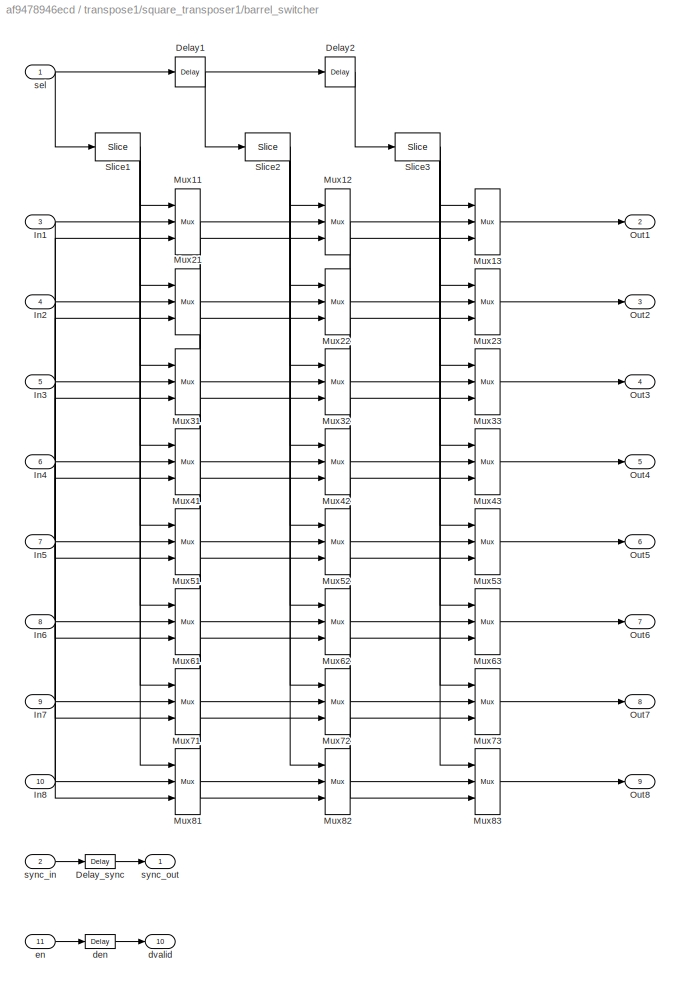
BLOCK [SubSystem] transpose1/square_transposer1/barrel_switcher
  AncestorBlock = casper_library_reorder/barrel_switcher
  FunctionWithSeparateData = off
  MaskHideContents = off
  MinAlgLoopOccurrences = off
  Opaque = off
  Ports = [11, 10]
  PropExecContextOutsideSubsystem = off
  RTWSystemCode = Auto
  RequestExecContextInheritance = off
  UserDataPersistent = on
BLOCK [Reference] transpose1/square_transposer1/barrel_switcher/Delay1  REF=xbsIndex_r4/Delay
  Ports = [1, 1]
  SourceBlock = xbsIndex_r4/Delay
  SourceType = Xilinx Delay Block
  block_type = delay
  dbl_ovrd = off
  en = off
  has_advanced_control = 0
  infoedit = Hardware notes: A delay line is a chain, each link of which is an SRL16 followed by a flip-flop.
  infoeditControl = Selection of Reset will increase slice count due to use of real FFs and instead of SRLs
  latency = 1
  reg_retiming = on
  rst = off
  sg_icon_stat = 30,30,1,1,white,blue,0,07b98262,right,,[ ],[ ]
  sggui_pos = -1,-1,-1,-1
  xl_area = [0,0,0,0,0,0,0]
  xl_use_area = off
BLOCK [Reference] transpose1/square_transposer1/barrel_switcher/Delay2  REF=xbsIndex_r4/Delay
  Ports = [1, 1]
  SourceBlock = xbsIndex_r4/Delay
  SourceType = Xilinx Delay Block
  block_type = delay
  dbl_ovrd = off
  en = off
  has_advanced_control = 0
  infoedit = Hardware notes: A delay line is a chain, each link of which is an SRL16 followed by a flip-flop.
  infoeditControl = Selection of Reset will increase slice count due to use of real FFs and instead of SRLs
  latency = 1
  reg_retiming = on
  rst = off
  sg_icon_stat = 30,30,1,1,white,blue,0,07b98262,right,,[ ],[ ]
  sggui_pos = -1,-1,-1,-1
  xl_area = [0,0,0,0,0,0,0]
  xl_use_area = off
BLOCK [Reference] transpose1/square_transposer1/barrel_switcher/Delay_sync  REF=xbsIndex_r4/Delay
  Ports = [1, 1]
  SourceBlock = xbsIndex_r4/Delay
  SourceType = Xilinx Delay Block
  block_type = delay
  dbl_ovrd = off
  en = off
  has_advanced_control = 0
  infoedit = Hardware notes: A delay line is a chain, each link of which is an SRL16 followed by a flip-flop.
  infoeditControl = Selection of Reset will increase slice count due to use of real FFs and instead of SRLs
  latency = 3
  reg_retiming = on
  rst = off
  sg_icon_stat = 30,14,1,1,white,blue,0,83e6bb61,right,,[ ],[ ]
  sg_mask_display = fprintf('','COMMENT: begin icon graphics');\npatch([0 30 30 0 0 ],[0 0 14 14 0 ],[0.77 0.82 0.91 ]);\nplot([0 30 30 0 0 ],[0 0 14 14 0 ]);\npatch([10.55 13.44 15.44 17.44 19.44 15.44 12.55 10.55 ],[9.22 9.22 11.22 9.22 11.22 11.22 11.22 9.22 ],[1 1 1 ]);\npatch([12.55 15.44 13.44 10.55 12.55 ],[7.22 7.22 9.22 9.22 7.22 ],[0.931 0.946 0.973 ]);\npatch([10.55 13.44 15.44 12.55 10.55 ],[5.22 5.22 7.22 7.2...<+299ch>  <repeated x4 — deduplicated; at blocks: Delay_sync, den>
  sggui_pos = -1,-1,-1,-1
  xl_area = [0,0,0,0,0,0,0]
  xl_use_area = off
BLOCK [Inport] transpose1/square_transposer1/barrel_switcher/In1
  IconDisplay = Port number
  Port = 3
BLOCK [Inport] transpose1/square_transposer1/barrel_switcher/In2
  IconDisplay = Port number
  Port = 4
BLOCK [Inport] transpose1/square_transposer1/barrel_switcher/In3
  IconDisplay = Port number
  Port = 5
BLOCK [Inport] transpose1/square_transposer1/barrel_switcher/In4
  IconDisplay = Port number
  Port = 6
BLOCK [Inport] transpose1/square_transposer1/barrel_switcher/In5
  IconDisplay = Port number
  Port = 7
BLOCK [Inport] transpose1/square_transposer1/barrel_switcher/In6
  IconDisplay = Port number
  Port = 8
BLOCK [Inport] transpose1/square_transposer1/barrel_switcher/In7
  IconDisplay = Port number
  Port = 9
BLOCK [Inport] transpose1/square_transposer1/barrel_switcher/In8
  IconDisplay = Port number
  Port = 10
BLOCK [Reference] transpose1/square_transposer1/barrel_switcher/Mux11  REF=xbsIndex_r4/Mux
  Ports = [3, 1]
  SourceBlock = xbsIndex_r4/Mux
  SourceType = Xilinx Bus Multiplexer Block
  arith_type = Unsigned
  bin_pt = 14
  block_type = mux
  dbl_ovrd = off
  en = off
  has_advanced_control = 0
  inputs = 2
  latency = 1
  n_bits = 16
  overflow = Wrap
  precision = Full
  quantization = Truncate
  sg_icon_stat = 25,66,3,1,white,blue,3,a150fb03,right,,[ ],[ ]
  sg_mask_display = fprintf('','COMMENT: begin icon graphics');\npatch([0 25 25 0 0 ],[0 9.42857 56.5714 66 0 ],[0.77 0.82 0.91 ]);\nplot([0 25 25 0 0 ],[0 9.42857 56.5714 66 0 ]);\npatch([5.325 9.66 12.66 15.66 18.66 12.66 8.325 5.325 ],[36.33 36.33 39.33 36.33 39.33 39.33 39.33 36.33 ],[1 1 1 ]);\npatch([8.325 12.66 9.66 5.325 8.325 ],[33.33 33.33 36.33 36.33 33.33 ],[0.931 0.946 0.973 ]);\npatch([5.325 9.66 12.66 8.325...<+474ch>  <repeated x48 — deduplicated; at blocks: Mux11, Mux12, Mux13, Mux21, Mux22, Mux23, Mux31, Mux32, Mux33, Mux41, Mux42, Mux43, Mux51, Mux52, Mux53, Mux61, +8 more>
  sggui_pos = -1,-1,-1,-1
  xl_area = [0,0,0,0,0,0,0]
  xl_use_area = off
BLOCK [Reference] transpose1/square_transposer1/barrel_switcher/Mux12  REF=xbsIndex_r4/Mux
  Ports = [3, 1]
  SourceBlock = xbsIndex_r4/Mux
  SourceType = Xilinx Bus Multiplexer Block
  arith_type = Unsigned
  bin_pt = 14
  block_type = mux
  dbl_ovrd = off
  en = off
  has_advanced_control = 0
  inputs = 2
  latency = 1
  n_bits = 16
  overflow = Wrap
  precision = Full
  quantization = Truncate
  sg_icon_stat = 25,66,3,1,white,blue,3,a150fb03,right,,[ ],[ ]
  sggui_pos = -1,-1,-1,-1
  xl_area = [0,0,0,0,0,0,0]
  xl_use_area = off
BLOCK [Reference] transpose1/square_transposer1/barrel_switcher/Mux13  REF=xbsIndex_r4/Mux
  Ports = [3, 1]
  SourceBlock = xbsIndex_r4/Mux
  SourceType = Xilinx Bus Multiplexer Block
  arith_type = Unsigned
  bin_pt = 14
  block_type = mux
  dbl_ovrd = off
  en = off
  has_advanced_control = 0
  inputs = 2
  latency = 1
  n_bits = 16
  overflow = Wrap
  precision = Full
  quantization = Truncate
  sg_icon_stat = 25,66,3,1,white,blue,3,a150fb03,right,,[ ],[ ]
  sggui_pos = -1,-1,-1,-1
  xl_area = [0,0,0,0,0,0,0]
  xl_use_area = off
BLOCK [Reference] transpose1/square_transposer1/barrel_switcher/Mux21  REF=xbsIndex_r4/Mux
  Ports = [3, 1]
  SourceBlock = xbsIndex_r4/Mux
  SourceType = Xilinx Bus Multiplexer Block
  arith_type = Unsigned
  bin_pt = 14
  block_type = mux
  dbl_ovrd = off
  en = off
  has_advanced_control = 0
  inputs = 2
  latency = 1
  n_bits = 16
  overflow = Wrap
  precision = Full
  quantization = Truncate
  sg_icon_stat = 25,66,3,1,white,blue,3,a150fb03,right,,[ ],[ ]
  sggui_pos = -1,-1,-1,-1
  xl_area = [0,0,0,0,0,0,0]
  xl_use_area = off
BLOCK [Reference] transpose1/square_transposer1/barrel_switcher/Mux22  REF=xbsIndex_r4/Mux
  Ports = [3, 1]
  SourceBlock = xbsIndex_r4/Mux
  SourceType = Xilinx Bus Multiplexer Block
  arith_type = Unsigned
  bin_pt = 14
  block_type = mux
  dbl_ovrd = off
  en = off
  has_advanced_control = 0
  inputs = 2
  latency = 1
  n_bits = 16
  overflow = Wrap
  precision = Full
  quantization = Truncate
  sg_icon_stat = 25,66,3,1,white,blue,3,a150fb03,right,,[ ],[ ]
  sggui_pos = -1,-1,-1,-1
  xl_area = [0,0,0,0,0,0,0]
  xl_use_area = off
BLOCK [Reference] transpose1/square_transposer1/barrel_switcher/Mux23  REF=xbsIndex_r4/Mux
  Ports = [3, 1]
  SourceBlock = xbsIndex_r4/Mux
  SourceType = Xilinx Bus Multiplexer Block
  arith_type = Unsigned
  bin_pt = 14
  block_type = mux
  dbl_ovrd = off
  en = off
  has_advanced_control = 0
  inputs = 2
  latency = 1
  n_bits = 16
  overflow = Wrap
  precision = Full
  quantization = Truncate
  sg_icon_stat = 25,66,3,1,white,blue,3,a150fb03,right,,[ ],[ ]
  sggui_pos = -1,-1,-1,-1
  xl_area = [0,0,0,0,0,0,0]
  xl_use_area = off
BLOCK [Reference] transpose1/square_transposer1/barrel_switcher/Mux31  REF=xbsIndex_r4/Mux
  Ports = [3, 1]
  SourceBlock = xbsIndex_r4/Mux
  SourceType = Xilinx Bus Multiplexer Block
  arith_type = Unsigned
  bin_pt = 14
  block_type = mux
  dbl_ovrd = off
  en = off
  has_advanced_control = 0
  inputs = 2
  latency = 1
  n_bits = 16
  overflow = Wrap
  precision = Full
  quantization = Truncate
  sg_icon_stat = 25,66,3,1,white,blue,3,a150fb03,right,,[ ],[ ]
  sggui_pos = -1,-1,-1,-1
  xl_area = [0,0,0,0,0,0,0]
  xl_use_area = off
BLOCK [Reference] transpose1/square_transposer1/barrel_switcher/Mux32  REF=xbsIndex_r4/Mux
  Ports = [3, 1]
  SourceBlock = xbsIndex_r4/Mux
  SourceType = Xilinx Bus Multiplexer Block
  arith_type = Unsigned
  bin_pt = 14
  block_type = mux
  dbl_ovrd = off
  en = off
  has_advanced_control = 0
  inputs = 2
  latency = 1
  n_bits = 16
  overflow = Wrap
  precision = Full
  quantization = Truncate
  sg_icon_stat = 25,66,3,1,white,blue,3,a150fb03,right,,[ ],[ ]
  sggui_pos = -1,-1,-1,-1
  xl_area = [0,0,0,0,0,0,0]
  xl_use_area = off
BLOCK [Reference] transpose1/square_transposer1/barrel_switcher/Mux33  REF=xbsIndex_r4/Mux
  Ports = [3, 1]
  SourceBlock = xbsIndex_r4/Mux
  SourceType = Xilinx Bus Multiplexer Block
  arith_type = Unsigned
  bin_pt = 14
  block_type = mux
  dbl_ovrd = off
  en = off
  has_advanced_control = 0
  inputs = 2
  latency = 1
  n_bits = 16
  overflow = Wrap
  precision = Full
  quantization = Truncate
  sg_icon_stat = 25,66,3,1,white,blue,3,a150fb03,right,,[ ],[ ]
  sggui_pos = -1,-1,-1,-1
  xl_area = [0,0,0,0,0,0,0]
  xl_use_area = off
BLOCK [Reference] transpose1/square_transposer1/barrel_switcher/Mux41  REF=xbsIndex_r4/Mux
  Ports = [3, 1]
  SourceBlock = xbsIndex_r4/Mux
  SourceType = Xilinx Bus Multiplexer Block
  arith_type = Unsigned
  bin_pt = 14
  block_type = mux
  dbl_ovrd = off
  en = off
  has_advanced_control = 0
  inputs = 2
  latency = 1
  n_bits = 16
  overflow = Wrap
  precision = Full
  quantization = Truncate
  sg_icon_stat = 25,66,3,1,white,blue,3,a150fb03,right,,[ ],[ ]
  sggui_pos = -1,-1,-1,-1
  xl_area = [0,0,0,0,0,0,0]
  xl_use_area = off
BLOCK [Reference] transpose1/square_transposer1/barrel_switcher/Mux42  REF=xbsIndex_r4/Mux
  Ports = [3, 1]
  SourceBlock = xbsIndex_r4/Mux
  SourceType = Xilinx Bus Multiplexer Block
  arith_type = Unsigned
  bin_pt = 14
  block_type = mux
  dbl_ovrd = off
  en = off
  has_advanced_control = 0
  inputs = 2
  latency = 1
  n_bits = 16
  overflow = Wrap
  precision = Full
  quantization = Truncate
  sg_icon_stat = 25,66,3,1,white,blue,3,a150fb03,right,,[ ],[ ]
  sggui_pos = -1,-1,-1,-1
  xl_area = [0,0,0,0,0,0,0]
  xl_use_area = off
BLOCK [Reference] transpose1/square_transposer1/barrel_switcher/Mux43  REF=xbsIndex_r4/Mux
  Ports = [3, 1]
  SourceBlock = xbsIndex_r4/Mux
  SourceType = Xilinx Bus Multiplexer Block
  arith_type = Unsigned
  bin_pt = 14
  block_type = mux
  dbl_ovrd = off
  en = off
  has_advanced_control = 0
  inputs = 2
  latency = 1
  n_bits = 16
  overflow = Wrap
  precision = Full
  quantization = Truncate
  sg_icon_stat = 25,66,3,1,white,blue,3,a150fb03,right,,[ ],[ ]
  sggui_pos = -1,-1,-1,-1
  xl_area = [0,0,0,0,0,0,0]
  xl_use_area = off
BLOCK [Reference] transpose1/square_transposer1/barrel_switcher/Mux51  REF=xbsIndex_r4/Mux
  Ports = [3, 1]
  SourceBlock = xbsIndex_r4/Mux
  SourceType = Xilinx Bus Multiplexer Block
  arith_type = Unsigned
  bin_pt = 14
  block_type = mux
  dbl_ovrd = off
  en = off
  has_advanced_control = 0
  inputs = 2
  latency = 1
  n_bits = 16
  overflow = Wrap
  precision = Full
  quantization = Truncate
  sg_icon_stat = 25,66,3,1,white,blue,3,a150fb03,right,,[ ],[ ]
  sggui_pos = -1,-1,-1,-1
  xl_area = [0,0,0,0,0,0,0]
  xl_use_area = off
BLOCK [Reference] transpose1/square_transposer1/barrel_switcher/Mux52  REF=xbsIndex_r4/Mux
  Ports = [3, 1]
  SourceBlock = xbsIndex_r4/Mux
  SourceType = Xilinx Bus Multiplexer Block
  arith_type = Unsigned
  bin_pt = 14
  block_type = mux
  dbl_ovrd = off
  en = off
  has_advanced_control = 0
  inputs = 2
  latency = 1
  n_bits = 16
  overflow = Wrap
  precision = Full
  quantization = Truncate
  sg_icon_stat = 25,66,3,1,white,blue,3,a150fb03,right,,[ ],[ ]
  sggui_pos = -1,-1,-1,-1
  xl_area = [0,0,0,0,0,0,0]
  xl_use_area = off
BLOCK [Reference] transpose1/square_transposer1/barrel_switcher/Mux53  REF=xbsIndex_r4/Mux
  Ports = [3, 1]
  SourceBlock = xbsIndex_r4/Mux
  SourceType = Xilinx Bus Multiplexer Block
  arith_type = Unsigned
  bin_pt = 14
  block_type = mux
  dbl_ovrd = off
  en = off
  has_advanced_control = 0
  inputs = 2
  latency = 1
  n_bits = 16
  overflow = Wrap
  precision = Full
  quantization = Truncate
  sg_icon_stat = 25,66,3,1,white,blue,3,a150fb03,right,,[ ],[ ]
  sggui_pos = -1,-1,-1,-1
  xl_area = [0,0,0,0,0,0,0]
  xl_use_area = off
BLOCK [Reference] transpose1/square_transposer1/barrel_switcher/Mux61  REF=xbsIndex_r4/Mux
  Ports = [3, 1]
  SourceBlock = xbsIndex_r4/Mux
  SourceType = Xilinx Bus Multiplexer Block
  arith_type = Unsigned
  bin_pt = 14
  block_type = mux
  dbl_ovrd = off
  en = off
  has_advanced_control = 0
  inputs = 2
  latency = 1
  n_bits = 16
  overflow = Wrap
  precision = Full
  quantization = Truncate
  sg_icon_stat = 25,66,3,1,white,blue,3,a150fb03,right,,[ ],[ ]
  sggui_pos = -1,-1,-1,-1
  xl_area = [0,0,0,0,0,0,0]
  xl_use_area = off
BLOCK [Reference] transpose1/square_transposer1/barrel_switcher/Mux62  REF=xbsIndex_r4/Mux
  Ports = [3, 1]
  SourceBlock = xbsIndex_r4/Mux
  SourceType = Xilinx Bus Multiplexer Block
  arith_type = Unsigned
  bin_pt = 14
  block_type = mux
  dbl_ovrd = off
  en = off
  has_advanced_control = 0
  inputs = 2
  latency = 1
  n_bits = 16
  overflow = Wrap
  precision = Full
  quantization = Truncate
  sg_icon_stat = 25,66,3,1,white,blue,3,a150fb03,right,,[ ],[ ]
  sggui_pos = -1,-1,-1,-1
  xl_area = [0,0,0,0,0,0,0]
  xl_use_area = off
BLOCK [Reference] transpose1/square_transposer1/barrel_switcher/Mux63  REF=xbsIndex_r4/Mux
  Ports = [3, 1]
  SourceBlock = xbsIndex_r4/Mux
  SourceType = Xilinx Bus Multiplexer Block
  arith_type = Unsigned
  bin_pt = 14
  block_type = mux
  dbl_ovrd = off
  en = off
  has_advanced_control = 0
  inputs = 2
  latency = 1
  n_bits = 16
  overflow = Wrap
  precision = Full
  quantization = Truncate
  sg_icon_stat = 25,66,3,1,white,blue,3,a150fb03,right,,[ ],[ ]
  sggui_pos = -1,-1,-1,-1
  xl_area = [0,0,0,0,0,0,0]
  xl_use_area = off
BLOCK [Reference] transpose1/square_transposer1/barrel_switcher/Mux71  REF=xbsIndex_r4/Mux
  Ports = [3, 1]
  SourceBlock = xbsIndex_r4/Mux
  SourceType = Xilinx Bus Multiplexer Block
  arith_type = Unsigned
  bin_pt = 14
  block_type = mux
  dbl_ovrd = off
  en = off
  has_advanced_control = 0
  inputs = 2
  latency = 1
  n_bits = 16
  overflow = Wrap
  precision = Full
  quantization = Truncate
  sg_icon_stat = 25,66,3,1,white,blue,3,a150fb03,right,,[ ],[ ]
  sggui_pos = -1,-1,-1,-1
  xl_area = [0,0,0,0,0,0,0]
  xl_use_area = off
BLOCK [Reference] transpose1/square_transposer1/barrel_switcher/Mux72  REF=xbsIndex_r4/Mux
  Ports = [3, 1]
  SourceBlock = xbsIndex_r4/Mux
  SourceType = Xilinx Bus Multiplexer Block
  arith_type = Unsigned
  bin_pt = 14
  block_type = mux
  dbl_ovrd = off
  en = off
  has_advanced_control = 0
  inputs = 2
  latency = 1
  n_bits = 16
  overflow = Wrap
  precision = Full
  quantization = Truncate
  sg_icon_stat = 25,66,3,1,white,blue,3,a150fb03,right,,[ ],[ ]
  sggui_pos = -1,-1,-1,-1
  xl_area = [0,0,0,0,0,0,0]
  xl_use_area = off
BLOCK [Reference] transpose1/square_transposer1/barrel_switcher/Mux73  REF=xbsIndex_r4/Mux
  Ports = [3, 1]
  SourceBlock = xbsIndex_r4/Mux
  SourceType = Xilinx Bus Multiplexer Block
  arith_type = Unsigned
  bin_pt = 14
  block_type = mux
  dbl_ovrd = off
  en = off
  has_advanced_control = 0
  inputs = 2
  latency = 1
  n_bits = 16
  overflow = Wrap
  precision = Full
  quantization = Truncate
  sg_icon_stat = 25,66,3,1,white,blue,3,a150fb03,right,,[ ],[ ]
  sggui_pos = -1,-1,-1,-1
  xl_area = [0,0,0,0,0,0,0]
  xl_use_area = off
BLOCK [Reference] transpose1/square_transposer1/barrel_switcher/Mux81  REF=xbsIndex_r4/Mux
  Ports = [3, 1]
  SourceBlock = xbsIndex_r4/Mux
  SourceType = Xilinx Bus Multiplexer Block
  arith_type = Unsigned
  bin_pt = 14
  block_type = mux
  dbl_ovrd = off
  en = off
  has_advanced_control = 0
  inputs = 2
  latency = 1
  n_bits = 16
  overflow = Wrap
  precision = Full
  quantization = Truncate
  sg_icon_stat = 25,66,3,1,white,blue,3,a150fb03,right,,[ ],[ ]
  sggui_pos = -1,-1,-1,-1
  xl_area = [0,0,0,0,0,0,0]
  xl_use_area = off
BLOCK [Reference] transpose1/square_transposer1/barrel_switcher/Mux82  REF=xbsIndex_r4/Mux
  Ports = [3, 1]
  SourceBlock = xbsIndex_r4/Mux
  SourceType = Xilinx Bus Multiplexer Block
  arith_type = Unsigned
  bin_pt = 14
  block_type = mux
  dbl_ovrd = off
  en = off
  has_advanced_control = 0
  inputs = 2
  latency = 1
  n_bits = 16
  overflow = Wrap
  precision = Full
  quantization = Truncate
  sg_icon_stat = 25,66,3,1,white,blue,3,a150fb03,right,,[ ],[ ]
  sggui_pos = -1,-1,-1,-1
  xl_area = [0,0,0,0,0,0,0]
  xl_use_area = off
BLOCK [Reference] transpose1/square_transposer1/barrel_switcher/Mux83  REF=xbsIndex_r4/Mux
  Ports = [3, 1]
  SourceBlock = xbsIndex_r4/Mux
  SourceType = Xilinx Bus Multiplexer Block
  arith_type = Unsigned
  bin_pt = 14
  block_type = mux
  dbl_ovrd = off
  en = off
  has_advanced_control = 0
  inputs = 2
  latency = 1
  n_bits = 16
  overflow = Wrap
  precision = Full
  quantization = Truncate
  sg_icon_stat = 25,66,3,1,white,blue,3,a150fb03,right,,[ ],[ ]
  sggui_pos = -1,-1,-1,-1
  xl_area = [0,0,0,0,0,0,0]
  xl_use_area = off
BLOCK [Outport] transpose1/square_transposer1/barrel_switcher/Out1
  IconDisplay = Port number
  Port = 2
BLOCK [Outport] transpose1/square_transposer1/barrel_switcher/Out2
  IconDisplay = Port number
  Port = 3
BLOCK [Outport] transpose1/square_transposer1/barrel_switcher/Out3
  IconDisplay = Port number
  Port = 4
BLOCK [Outport] transpose1/square_transposer1/barrel_switcher/Out4
  IconDisplay = Port number
  Port = 5
BLOCK [Outport] transpose1/square_transposer1/barrel_switcher/Out5
  IconDisplay = Port number
  Port = 6
BLOCK [Outport] transpose1/square_transposer1/barrel_switcher/Out6
  IconDisplay = Port number
  Port = 7
BLOCK [Outport] transpose1/square_transposer1/barrel_switcher/Out7
  IconDisplay = Port number
  Port = 8
BLOCK [Outport] transpose1/square_transposer1/barrel_switcher/Out8
  IconDisplay = Port number
  Port = 9
BLOCK [Reference] transpose1/square_transposer1/barrel_switcher/Slice1  REF=xbsIndex_r4/Slice
  Ports = [1, 1]
  SourceBlock = xbsIndex_r4/Slice
  SourceType = Xilinx Bit Slice Extractor Block
  base0 = LSB of Input
  base1 = MSB of Input
  bit0 = 0
  bit1 = -0
  block_type = slice
  boolean_output = off
  dbl_ovrd = off
  has_advanced_control = 0
  mode = Upper Bit Location + Width
  nbits = 1
  sg_icon_stat = 45,28,1,1,white,blue,0,1fd851a7,right,,[ ],[ ]
  sg_mask_display = fprintf('','COMMENT: begin icon graphics');\npatch([0 45 45 0 0 ],[0 0 28 28 0 ],[0.77 0.82 0.91 ]);\nplot([0 45 45 0 0 ],[0 0 28 28 0 ]);\npatch([13.1 18.88 22.88 26.88 30.88 22.88 17.1 13.1 ],[18.44 18.44 22.44 18.44 22.44 22.44 22.44 18.44 ],[1 1 1 ]);\npatch([17.1 22.88 18.88 13.1 17.1 ],[14.44 14.44 18.44 18.44 14.44 ],[0.931 0.946 0.973 ]);\npatch([13.1 18.88 22.88 17.1 13.1 ],[10.44 10.44 14.44 ...<+304ch>  <repeated x6 — deduplicated; at blocks: Slice1, Slice2, Slice3>
  sggui_pos = -1,-1,-1,-1
BLOCK [Reference] transpose1/square_transposer1/barrel_switcher/Slice2  REF=xbsIndex_r4/Slice
  Ports = [1, 1]
  SourceBlock = xbsIndex_r4/Slice
  SourceType = Xilinx Bit Slice Extractor Block
  base0 = LSB of Input
  base1 = MSB of Input
  bit0 = 0
  bit1 = -1
  block_type = slice
  boolean_output = off
  dbl_ovrd = off
  has_advanced_control = 0
  mode = Upper Bit Location + Width
  nbits = 1
  sg_icon_stat = 45,28,1,1,white,blue,0,1fd851a7,right,,[ ],[ ]
  sggui_pos = -1,-1,-1,-1
BLOCK [Reference] transpose1/square_transposer1/barrel_switcher/Slice3  REF=xbsIndex_r4/Slice
  Ports = [1, 1]
  SourceBlock = xbsIndex_r4/Slice
  SourceType = Xilinx Bit Slice Extractor Block
  base0 = LSB of Input
  base1 = MSB of Input
  bit0 = 0
  bit1 = -2
  block_type = slice
  boolean_output = off
  dbl_ovrd = off
  has_advanced_control = 0
  mode = Upper Bit Location + Width
  nbits = 1
  sg_icon_stat = 45,28,1,1,white,blue,0,1fd851a7,right,,[ ],[ ]
  sggui_pos = -1,-1,-1,-1
BLOCK [Reference] transpose1/square_transposer1/barrel_switcher/den  REF=xbsIndex_r4/Delay
  Ports = [1, 1]
  SourceBlock = xbsIndex_r4/Delay
  SourceType = Xilinx Delay Block
  block_type = delay
  dbl_ovrd = off
  en = off
  has_advanced_control = 0
  infoedit = Hardware notes: A delay line is a chain, each link of which is an SRL16 followed by a flip-flop.
  infoeditControl = Selection of Reset will increase slice count due to use of real FFs and instead of SRLs
  latency = 3
  reg_retiming = on
  rst = off
  sg_icon_stat = 30,14,1,1,white,blue,0,83e6bb61,right,,[ ],[ ]
  sggui_pos = -1,-1,-1,-1
  xl_area = [0,0,0,0,0,0,0]
  xl_use_area = off
BLOCK [Outport] transpose1/square_transposer1/barrel_switcher/dvalid
  IconDisplay = Port number
  Port = 10
BLOCK [Inport] transpose1/square_transposer1/barrel_switcher/en
  IconDisplay = Port number
  Port = 11
BLOCK [Inport] transpose1/square_transposer1/barrel_switcher/sel
  IconDisplay = Port number
BLOCK [Inport] transpose1/square_transposer1/barrel_switcher/sync_in
  IconDisplay = Port number
  Port = 2
BLOCK [Outport] transpose1/square_transposer1/barrel_switcher/sync_out
  IconDisplay = Port number
BLOCK [Reference] transpose1/square_transposer1/counter  REF=xbsIndex_r4/Counter
  Ports = [2, 1]
  SourceBlock = xbsIndex_r4/Counter
  SourceType = Xilinx Counter Block
  arith_type = Unsigned
  bin_pt = 0
  block_type = counter
  cnt_by_val = 1
  cnt_to = Inf
  cnt_type = Free Running
  dbl_ovrd = off
  en = on
  explicit_period = on
  has_advanced_control = 0
  implementation = Fabric
  infoedit = Hardware notes: Free running counters are the least expensive in hardware.  A count limited counter is implemented by combining a counter with a comparator.
  load_pin = off
  n_bits = n_inputs
  operation = Down
  period = 1
  rst = on
  sg_icon_stat = 40,33,2,1,white,blue,0,2e0aa1ab,right,,[ ],[ ]
  sg_mask_display = fprintf('','COMMENT: begin icon graphics');\npatch([0 40 40 0 0 ],[0 0 33 33 0 ],[0.77 0.82 0.91 ]);\nplot([0 40 40 0 0 ],[0 0 33 33 0 ]);\npatch([11.1 16.88 20.88 24.88 28.88 20.88 15.1 11.1 ],[20.44 20.44 24.44 20.44 24.44 24.44 24.44 20.44 ],[1 1 1 ]);\npatch([15.1 20.88 16.88 11.1 15.1 ],[16.44 16.44 20.44 20.44 16.44 ],[0.931 0.946 0.973 ]);\npatch([11.1 16.88 20.88 15.1 11.1 ],[12.44 12.44 16.44 ...<+404ch>
  sggui_pos = -1,-1,-1,-1
  start_count = 0
  use_behavioral_HDL = off
  xl_area = [0,0,0,0,0,0,0]
  xl_use_area = off
BLOCK [SubSystem] transpose1/square_transposer1/db0
  AncestorBlock = casper_library_delays/delay_slr
  FunctionWithSeparateData = off
  MaskHideContents = off
  MinAlgLoopOccurrences = off
  Opaque = off
  Ports = [2, 1]
  PropExecContextOutsideSubsystem = off
  RTWSystemCode = Auto
  RequestExecContextInheritance = off
  UserDataPersistent = on
BLOCK [Reference] transpose1/square_transposer1/db0/delay  REF=xbsIndex_r4/Delay
  Ports = [2, 1]
  SourceBlock = xbsIndex_r4/Delay
  SourceType = Xilinx Delay Block
  block_type = delay
  dbl_ovrd = off
  en = on
  has_advanced_control = 0
  infoedit = Hardware notes: A delay line is a chain, each link of which is an SRL16 followed by a flip-flop.
  infoeditControl = Selection of Reset will increase slice count due to use of real FFs and instead of SRLs
  latency = DelayLen
  reg_retiming = on
  rst = off
  sg_icon_stat = 60,60,2,1,white,blue,0,e7df12af,right,,[ ],[ ]
  sg_mask_display = fprintf('','COMMENT: begin icon graphics');\npatch([0 60 60 0 0 ],[0 0 60 60 0 ],[0.77 0.82 0.91 ]);\nplot([0 60 60 0 0 ],[0 0 60 60 0 ]);\npatch([12.2 23.76 31.76 39.76 47.76 31.76 20.2 12.2 ],[38.88 38.88 46.88 38.88 46.88 46.88 46.88 38.88 ],[1 1 1 ]);\npatch([20.2 31.76 23.76 12.2 20.2 ],[30.88 30.88 38.88 38.88 30.88 ],[0.931 0.946 0.973 ]);\npatch([12.2 23.76 31.76 20.2 12.2 ],[22.88 22.88 30.88 ...<+351ch>  <repeated x30 — deduplicated; at blocks: delay>
  sggui_pos = -1,-1,-1,-1
  xl_area = [0,0,0,0,0,0,0]
  xl_use_area = off
BLOCK [Inport] transpose1/square_transposer1/db0/din
  IconDisplay = Port number
BLOCK [Outport] transpose1/square_transposer1/db0/dout
  IconDisplay = Port number
BLOCK [Inport] transpose1/square_transposer1/db0/dvi
  IconDisplay = Port number
  Port = 2
BLOCK [SubSystem] transpose1/square_transposer1/db1
  AncestorBlock = casper_library_delays/delay_slr
  FunctionWithSeparateData = off
  MaskHideContents = off
  MinAlgLoopOccurrences = off
  Opaque = off
  Ports = [2, 1]
  PropExecContextOutsideSubsystem = off
  RTWSystemCode = Auto
  RequestExecContextInheritance = off
  UserDataPersistent = on
BLOCK [Reference] transpose1/square_transposer1/db1/delay  REF=xbsIndex_r4/Delay
  Ports = [2, 1]
  SourceBlock = xbsIndex_r4/Delay
  SourceType = Xilinx Delay Block
  block_type = delay
  dbl_ovrd = off
  en = on
  has_advanced_control = 0
  infoedit = Hardware notes: A delay line is a chain, each link of which is an SRL16 followed by a flip-flop.
  infoeditControl = Selection of Reset will increase slice count due to use of real FFs and instead of SRLs
  latency = DelayLen
  reg_retiming = on
  rst = off
  sg_icon_stat = 60,60,2,1,white,blue,0,2d3d55e9,right,,[ ],[ ]
  sggui_pos = -1,-1,-1,-1
  xl_area = [0,0,0,0,0,0,0]
  xl_use_area = off
BLOCK [Inport] transpose1/square_transposer1/db1/din
  IconDisplay = Port number
BLOCK [Outport] transpose1/square_transposer1/db1/dout
  IconDisplay = Port number
BLOCK [Inport] transpose1/square_transposer1/db1/dvi
  IconDisplay = Port number
  Port = 2
BLOCK [SubSystem] transpose1/square_transposer1/db2
  AncestorBlock = casper_library_delays/delay_slr
  FunctionWithSeparateData = off
  MaskHideContents = off
  MinAlgLoopOccurrences = off
  Opaque = off
  Ports = [2, 1]
  PropExecContextOutsideSubsystem = off
  RTWSystemCode = Auto
  RequestExecContextInheritance = off
  UserDataPersistent = on
BLOCK [Reference] transpose1/square_transposer1/db2/delay  REF=xbsIndex_r4/Delay
  Ports = [2, 1]
  SourceBlock = xbsIndex_r4/Delay
  SourceType = Xilinx Delay Block
  block_type = delay
  dbl_ovrd = off
  en = on
  has_advanced_control = 0
  infoedit = Hardware notes: A delay line is a chain, each link of which is an SRL16 followed by a flip-flop.
  infoeditControl = Selection of Reset will increase slice count due to use of real FFs and instead of SRLs
  latency = DelayLen
  reg_retiming = on
  rst = off
  sg_icon_stat = 60,60,2,1,white,blue,0,25e2f736,right,,[ ],[ ]
  sggui_pos = -1,-1,-1,-1
  xl_area = [0,0,0,0,0,0,0]
  xl_use_area = off
BLOCK [Inport] transpose1/square_transposer1/db2/din
  IconDisplay = Port number
BLOCK [Outport] transpose1/square_transposer1/db2/dout
  IconDisplay = Port number
BLOCK [Inport] transpose1/square_transposer1/db2/dvi
  IconDisplay = Port number
  Port = 2
BLOCK [SubSystem] transpose1/square_transposer1/db3
  AncestorBlock = casper_library_delays/delay_slr
  FunctionWithSeparateData = off
  MaskHideContents = off
  MinAlgLoopOccurrences = off
  Opaque = off
  Ports = [2, 1]
  PropExecContextOutsideSubsystem = off
  RTWSystemCode = Auto
  RequestExecContextInheritance = off
  UserDataPersistent = on
BLOCK [Reference] transpose1/square_transposer1/db3/delay  REF=xbsIndex_r4/Delay
  Ports = [2, 1]
  SourceBlock = xbsIndex_r4/Delay
  SourceType = Xilinx Delay Block
  block_type = delay
  dbl_ovrd = off
  en = on
  has_advanced_control = 0
  infoedit = Hardware notes: A delay line is a chain, each link of which is an SRL16 followed by a flip-flop.
  infoeditControl = Selection of Reset will increase slice count due to use of real FFs and instead of SRLs
  latency = DelayLen
  reg_retiming = on
  rst = off
  sg_icon_stat = 60,60,2,1,white,blue,0,bb519d05,right,,[ ],[ ]
  sggui_pos = -1,-1,-1,-1
  xl_area = [0,0,0,0,0,0,0]
  xl_use_area = off
BLOCK [Inport] transpose1/square_transposer1/db3/din
  IconDisplay = Port number
BLOCK [Outport] transpose1/square_transposer1/db3/dout
  IconDisplay = Port number
BLOCK [Inport] transpose1/square_transposer1/db3/dvi
  IconDisplay = Port number
  Port = 2
BLOCK [SubSystem] transpose1/square_transposer1/db4
  AncestorBlock = casper_library_delays/delay_slr
  FunctionWithSeparateData = off
  MaskHideContents = off
  MinAlgLoopOccurrences = off
  Opaque = off
  Ports = [2, 1]
  PropExecContextOutsideSubsystem = off
  RTWSystemCode = Auto
  RequestExecContextInheritance = off
  UserDataPersistent = on
BLOCK [Reference] transpose1/square_transposer1/db4/delay  REF=xbsIndex_r4/Delay
  Ports = [2, 1]
  SourceBlock = xbsIndex_r4/Delay
  SourceType = Xilinx Delay Block
  block_type = delay
  dbl_ovrd = off
  en = on
  has_advanced_control = 0
  infoedit = Hardware notes: A delay line is a chain, each link of which is an SRL16 followed by a flip-flop.
  infoeditControl = Selection of Reset will increase slice count due to use of real FFs and instead of SRLs
  latency = DelayLen
  reg_retiming = on
  rst = off
  sg_icon_stat = 60,60,2,1,white,blue,0,aa1406d5,right,,[ ],[ ]
  sggui_pos = -1,-1,-1,-1
  xl_area = [0,0,0,0,0,0,0]
  xl_use_area = off
BLOCK [Inport] transpose1/square_transposer1/db4/din
  IconDisplay = Port number
BLOCK [Outport] transpose1/square_transposer1/db4/dout
  IconDisplay = Port number
BLOCK [Inport] transpose1/square_transposer1/db4/dvi
  IconDisplay = Port number
  Port = 2
BLOCK [SubSystem] transpose1/square_transposer1/db5
  AncestorBlock = casper_library_delays/delay_slr
  FunctionWithSeparateData = off
  MaskHideContents = off
  MinAlgLoopOccurrences = off
  Opaque = off
  Ports = [2, 1]
  PropExecContextOutsideSubsystem = off
  RTWSystemCode = Auto
  RequestExecContextInheritance = off
  UserDataPersistent = on
BLOCK [Reference] transpose1/square_transposer1/db5/delay  REF=xbsIndex_r4/Delay
  Ports = [2, 1]
  SourceBlock = xbsIndex_r4/Delay
  SourceType = Xilinx Delay Block
  block_type = delay
  dbl_ovrd = off
  en = on
  has_advanced_control = 0
  infoedit = Hardware notes: A delay line is a chain, each link of which is an SRL16 followed by a flip-flop.
  infoeditControl = Selection of Reset will increase slice count due to use of real FFs and instead of SRLs
  latency = DelayLen
  reg_retiming = on
  rst = off
  sg_icon_stat = 60,60,2,1,white,blue,0,3e0a7e79,right,,[ ],[ ]
  sggui_pos = -1,-1,-1,-1
  xl_area = [0,0,0,0,0,0,0]
  xl_use_area = off
BLOCK [Inport] transpose1/square_transposer1/db5/din
  IconDisplay = Port number
BLOCK [Outport] transpose1/square_transposer1/db5/dout
  IconDisplay = Port number
BLOCK [Inport] transpose1/square_transposer1/db5/dvi
  IconDisplay = Port number
  Port = 2
BLOCK [SubSystem] transpose1/square_transposer1/db6
  AncestorBlock = casper_library_delays/delay_slr
  FunctionWithSeparateData = off
  MaskHideContents = off
  MinAlgLoopOccurrences = off
  Opaque = off
  Ports = [2, 1]
  PropExecContextOutsideSubsystem = off
  RTWSystemCode = Auto
  RequestExecContextInheritance = off
  UserDataPersistent = on
BLOCK [Reference] transpose1/square_transposer1/db6/delay  REF=xbsIndex_r4/Delay
  Ports = [2, 1]
  SourceBlock = xbsIndex_r4/Delay
  SourceType = Xilinx Delay Block
  block_type = delay
  dbl_ovrd = off
  en = on
  has_advanced_control = 0
  infoedit = Hardware notes: A delay line is a chain, each link of which is an SRL16 followed by a flip-flop.
  infoeditControl = Selection of Reset will increase slice count due to use of real FFs and instead of SRLs
  latency = DelayLen
  reg_retiming = on
  rst = off
  sg_icon_stat = 60,60,2,1,white,blue,0,7c0ac154,right,,[ ],[ ]
  sggui_pos = -1,-1,-1,-1
  xl_area = [0,0,0,0,0,0,0]
  xl_use_area = off
BLOCK [Inport] transpose1/square_transposer1/db6/din
  IconDisplay = Port number
BLOCK [Outport] transpose1/square_transposer1/db6/dout
  IconDisplay = Port number
BLOCK [Inport] transpose1/square_transposer1/db6/dvi
  IconDisplay = Port number
  Port = 2
BLOCK [SubSystem] transpose1/square_transposer1/df1
  AncestorBlock = casper_library_delays/delay_slr
  FunctionWithSeparateData = off
  MaskHideContents = off
  MinAlgLoopOccurrences = off
  Opaque = off
  Ports = [2, 1]
  PropExecContextOutsideSubsystem = off
  RTWSystemCode = Auto
  RequestExecContextInheritance = off
  UserDataPersistent = on
BLOCK [Reference] transpose1/square_transposer1/df1/delay  REF=xbsIndex_r4/Delay
  Ports = [2, 1]
  SourceBlock = xbsIndex_r4/Delay
  SourceType = Xilinx Delay Block
  block_type = delay
  dbl_ovrd = off
  en = on
  has_advanced_control = 0
  infoedit = Hardware notes: A delay line is a chain, each link of which is an SRL16 followed by a flip-flop.
  infoeditControl = Selection of Reset will increase slice count due to use of real FFs and instead of SRLs
  latency = DelayLen
  reg_retiming = on
  rst = off
  sg_icon_stat = 60,60,2,1,white,blue,0,7c0ac154,right,,[ ],[ ]
  sggui_pos = -1,-1,-1,-1
  xl_area = [0,0,0,0,0,0,0]
  xl_use_area = off
BLOCK [Inport] transpose1/square_transposer1/df1/din
  IconDisplay = Port number
BLOCK [Outport] transpose1/square_transposer1/df1/dout
  IconDisplay = Port number
BLOCK [Inport] transpose1/square_transposer1/df1/dvi
  IconDisplay = Port number
  Port = 2
BLOCK [SubSystem] transpose1/square_transposer1/df2
  AncestorBlock = casper_library_delays/delay_slr
  FunctionWithSeparateData = off
  MaskHideContents = off
  MinAlgLoopOccurrences = off
  Opaque = off
  Ports = [2, 1]
  PropExecContextOutsideSubsystem = off
  RTWSystemCode = Auto
  RequestExecContextInheritance = off
  UserDataPersistent = on
BLOCK [Reference] transpose1/square_transposer1/df2/delay  REF=xbsIndex_r4/Delay
  Ports = [2, 1]
  SourceBlock = xbsIndex_r4/Delay
  SourceType = Xilinx Delay Block
  block_type = delay
  dbl_ovrd = off
  en = on
  has_advanced_control = 0
  infoedit = Hardware notes: A delay line is a chain, each link of which is an SRL16 followed by a flip-flop.
  infoeditControl = Selection of Reset will increase slice count due to use of real FFs and instead of SRLs
  latency = DelayLen
  reg_retiming = on
  rst = off
  sg_icon_stat = 60,60,2,1,white,blue,0,3e0a7e79,right,,[ ],[ ]
  sggui_pos = -1,-1,-1,-1
  xl_area = [0,0,0,0,0,0,0]
  xl_use_area = off
BLOCK [Inport] transpose1/square_transposer1/df2/din
  IconDisplay = Port number
BLOCK [Outport] transpose1/square_transposer1/df2/dout
  IconDisplay = Port number
BLOCK [Inport] transpose1/square_transposer1/df2/dvi
  IconDisplay = Port number
  Port = 2
BLOCK [SubSystem] transpose1/square_transposer1/df3
  AncestorBlock = casper_library_delays/delay_slr
  FunctionWithSeparateData = off
  MaskHideContents = off
  MinAlgLoopOccurrences = off
  Opaque = off
  Ports = [2, 1]
  PropExecContextOutsideSubsystem = off
  RTWSystemCode = Auto
  RequestExecContextInheritance = off
  UserDataPersistent = on
BLOCK [Reference] transpose1/square_transposer1/df3/delay  REF=xbsIndex_r4/Delay
  Ports = [2, 1]
  SourceBlock = xbsIndex_r4/Delay
  SourceType = Xilinx Delay Block
  block_type = delay
  dbl_ovrd = off
  en = on
  has_advanced_control = 0
  infoedit = Hardware notes: A delay line is a chain, each link of which is an SRL16 followed by a flip-flop.
  infoeditControl = Selection of Reset will increase slice count due to use of real FFs and instead of SRLs
  latency = DelayLen
  reg_retiming = on
  rst = off
  sg_icon_stat = 60,60,2,1,white,blue,0,aa1406d5,right,,[ ],[ ]
  sggui_pos = -1,-1,-1,-1
  xl_area = [0,0,0,0,0,0,0]
  xl_use_area = off
BLOCK [Inport] transpose1/square_transposer1/df3/din
  IconDisplay = Port number
BLOCK [Outport] transpose1/square_transposer1/df3/dout
  IconDisplay = Port number
BLOCK [Inport] transpose1/square_transposer1/df3/dvi
  IconDisplay = Port number
  Port = 2
BLOCK [SubSystem] transpose1/square_transposer1/df4
  AncestorBlock = casper_library_delays/delay_slr
  FunctionWithSeparateData = off
  MaskHideContents = off
  MinAlgLoopOccurrences = off
  Opaque = off
  Ports = [2, 1]
  PropExecContextOutsideSubsystem = off
  RTWSystemCode = Auto
  RequestExecContextInheritance = off
  UserDataPersistent = on
BLOCK [Reference] transpose1/square_transposer1/df4/delay  REF=xbsIndex_r4/Delay
  Ports = [2, 1]
  SourceBlock = xbsIndex_r4/Delay
  SourceType = Xilinx Delay Block
  block_type = delay
  dbl_ovrd = off
  en = on
  has_advanced_control = 0
  infoedit = Hardware notes: A delay line is a chain, each link of which is an SRL16 followed by a flip-flop.
  infoeditControl = Selection of Reset will increase slice count due to use of real FFs and instead of SRLs
  latency = DelayLen
  reg_retiming = on
  rst = off
  sg_icon_stat = 60,60,2,1,white,blue,0,bb519d05,right,,[ ],[ ]
  sggui_pos = -1,-1,-1,-1
  xl_area = [0,0,0,0,0,0,0]
  xl_use_area = off
BLOCK [Inport] transpose1/square_transposer1/df4/din
  IconDisplay = Port number
BLOCK [Outport] transpose1/square_transposer1/df4/dout
  IconDisplay = Port number
BLOCK [Inport] transpose1/square_transposer1/df4/dvi
  IconDisplay = Port number
  Port = 2
BLOCK [SubSystem] transpose1/square_transposer1/df5
  AncestorBlock = casper_library_delays/delay_slr
  FunctionWithSeparateData = off
  MaskHideContents = off
  MinAlgLoopOccurrences = off
  Opaque = off
  Ports = [2, 1]
  PropExecContextOutsideSubsystem = off
  RTWSystemCode = Auto
  RequestExecContextInheritance = off
  UserDataPersistent = on
BLOCK [Reference] transpose1/square_transposer1/df5/delay  REF=xbsIndex_r4/Delay
  Ports = [2, 1]
  SourceBlock = xbsIndex_r4/Delay
  SourceType = Xilinx Delay Block
  block_type = delay
  dbl_ovrd = off
  en = on
  has_advanced_control = 0
  infoedit = Hardware notes: A delay line is a chain, each link of which is an SRL16 followed by a flip-flop.
  infoeditControl = Selection of Reset will increase slice count due to use of real FFs and instead of SRLs
  latency = DelayLen
  reg_retiming = on
  rst = off
  sg_icon_stat = 60,60,2,1,white,blue,0,25e2f736,right,,[ ],[ ]
  sggui_pos = -1,-1,-1,-1
  xl_area = [0,0,0,0,0,0,0]
  xl_use_area = off
BLOCK [Inport] transpose1/square_transposer1/df5/din
  IconDisplay = Port number
BLOCK [Outport] transpose1/square_transposer1/df5/dout
  IconDisplay = Port number
BLOCK [Inport] transpose1/square_transposer1/df5/dvi
  IconDisplay = Port number
  Port = 2
BLOCK [SubSystem] transpose1/square_transposer1/df6
  AncestorBlock = casper_library_delays/delay_slr
  FunctionWithSeparateData = off
  MaskHideContents = off
  MinAlgLoopOccurrences = off
  Opaque = off
  Ports = [2, 1]
  PropExecContextOutsideSubsystem = off
  RTWSystemCode = Auto
  RequestExecContextInheritance = off
  UserDataPersistent = on
BLOCK [Reference] transpose1/square_transposer1/df6/delay  REF=xbsIndex_r4/Delay
  Ports = [2, 1]
  SourceBlock = xbsIndex_r4/Delay
  SourceType = Xilinx Delay Block
  block_type = delay
  dbl_ovrd = off
  en = on
  has_advanced_control = 0
  infoedit = Hardware notes: A delay line is a chain, each link of which is an SRL16 followed by a flip-flop.
  infoeditControl = Selection of Reset will increase slice count due to use of real FFs and instead of SRLs
  latency = DelayLen
  reg_retiming = on
  rst = off
  sg_icon_stat = 60,60,2,1,white,blue,0,2d3d55e9,right,,[ ],[ ]
  sggui_pos = -1,-1,-1,-1
  xl_area = [0,0,0,0,0,0,0]
  xl_use_area = off
BLOCK [Inport] transpose1/square_transposer1/df6/din
  IconDisplay = Port number
BLOCK [Outport] transpose1/square_transposer1/df6/dout
  IconDisplay = Port number
BLOCK [Inport] transpose1/square_transposer1/df6/dvi
  IconDisplay = Port number
  Port = 2
BLOCK [SubSystem] transpose1/square_transposer1/df7
  AncestorBlock = casper_library_delays/delay_slr
  FunctionWithSeparateData = off
  MaskHideContents = off
  MinAlgLoopOccurrences = off
  Opaque = off
  Ports = [2, 1]
  PropExecContextOutsideSubsystem = off
  RTWSystemCode = Auto
  RequestExecContextInheritance = off
  UserDataPersistent = on
BLOCK [Reference] transpose1/square_transposer1/df7/delay  REF=xbsIndex_r4/Delay
  Ports = [2, 1]
  SourceBlock = xbsIndex_r4/Delay
  SourceType = Xilinx Delay Block
  block_type = delay
  dbl_ovrd = off
  en = on
  has_advanced_control = 0
  infoedit = Hardware notes: A delay line is a chain, each link of which is an SRL16 followed by a flip-flop.
  infoeditControl = Selection of Reset will increase slice count due to use of real FFs and instead of SRLs
  latency = DelayLen
  reg_retiming = on
  rst = off
  sg_icon_stat = 60,60,2,1,white,blue,0,e7df12af,right,,[ ],[ ]
  sggui_pos = -1,-1,-1,-1
  xl_area = [0,0,0,0,0,0,0]
  xl_use_area = off
BLOCK [Inport] transpose1/square_transposer1/df7/din
  IconDisplay = Port number
BLOCK [Outport] transpose1/square_transposer1/df7/dout
  IconDisplay = Port number
BLOCK [Inport] transpose1/square_transposer1/df7/dvi
  IconDisplay = Port number
  Port = 2
BLOCK [SubSystem] transpose1/square_transposer1/dsync
  AncestorBlock = casper_library_delays/delay_slr
  FunctionWithSeparateData = off
  MaskHideContents = off
  MinAlgLoopOccurrences = off
  Opaque = off
  Ports = [2, 1]
  PropExecContextOutsideSubsystem = off
  RTWSystemCode = Auto
  RequestExecContextInheritance = off
  UserDataPersistent = on
BLOCK [Reference] transpose1/square_transposer1/dsync/delay  REF=xbsIndex_r4/Delay
  Ports = [2, 1]
  SourceBlock = xbsIndex_r4/Delay
  SourceType = Xilinx Delay Block
  block_type = delay
  dbl_ovrd = off
  en = on
  has_advanced_control = 0
  infoedit = Hardware notes: A delay line is a chain, each link of which is an SRL16 followed by a flip-flop.
  infoeditControl = Selection of Reset will increase slice count due to use of real FFs and instead of SRLs
  latency = DelayLen
  reg_retiming = on
  rst = off
  sg_icon_stat = 60,60,2,1,white,blue,0,e7df12af,right,,[ ],[ ]
  sggui_pos = -1,-1,-1,-1
  xl_area = [0,0,0,0,0,0,0]
  xl_use_area = off
BLOCK [Inport] transpose1/square_transposer1/dsync/din
  IconDisplay = Port number
BLOCK [Outport] transpose1/square_transposer1/dsync/dout
  IconDisplay = Port number
BLOCK [Inport] transpose1/square_transposer1/dsync/dvi
  IconDisplay = Port number
  Port = 2
BLOCK [Outport] transpose1/square_transposer1/dvalid
  IconDisplay = Port number
  Port = 10
BLOCK [Inport] transpose1/square_transposer1/en
  IconDisplay = Port number
  Port = 10
BLOCK [Inport] transpose1/square_transposer1/in0
  IconDisplay = Port number
  Port = 2
BLOCK [Inport] transpose1/square_transposer1/in1
  IconDisplay = Port number
  Port = 3
BLOCK [Inport] transpose1/square_transposer1/in2
  IconDisplay = Port number
  Port = 4
BLOCK [Inport] transpose1/square_transposer1/in3
  IconDisplay = Port number
  Port = 5
BLOCK [Inport] transpose1/square_transposer1/in4
  IconDisplay = Port number
  Port = 6
BLOCK [Inport] transpose1/square_transposer1/in5
  IconDisplay = Port number
  Port = 7
BLOCK [Inport] transpose1/square_transposer1/in6
  IconDisplay = Port number
  Port = 8
BLOCK [Inport] transpose1/square_transposer1/in7
  IconDisplay = Port number
  Port = 9
BLOCK [Outport] transpose1/square_transposer1/out0
  IconDisplay = Port number
  Port = 2
BLOCK [Outport] transpose1/square_transposer1/out1
  IconDisplay = Port number
  Port = 3
BLOCK [Outport] transpose1/square_transposer1/out2
  IconDisplay = Port number
  Port = 4
BLOCK [Outport] transpose1/square_transposer1/out3
  IconDisplay = Port number
  Port = 5
BLOCK [Outport] transpose1/square_transposer1/out4
  IconDisplay = Port number
  Port = 6
BLOCK [Outport] transpose1/square_transposer1/out5
  IconDisplay = Port number
  Port = 7
BLOCK [Outport] transpose1/square_transposer1/out6
  IconDisplay = Port number
  Port = 8
BLOCK [Outport] transpose1/square_transposer1/out7
  IconDisplay = Port number
  Port = 9
BLOCK [Inport] transpose1/square_transposer1/sync
  IconDisplay = Port number
BLOCK [Outport] transpose1/square_transposer1/sync_out
  IconDisplay = Port number
BLOCK [Inport] transpose1/sync
  IconDisplay = Port number
BLOCK [Outport] transpose1/sync_out
  IconDisplay = Port number
BLOCK [SubSystem] transpose2
  FunctionWithSeparateData = off
  MaskHideContents = off
  MinAlgLoopOccurrences = off
  Opaque = off
  Ports = [2, 2]
  PropExecContextOutsideSubsystem = off
  RTWSystemCode = Auto
  RequestExecContextInheritance = off
BLOCK [Reference] transpose2/Constant  REF=xbsIndex_r4/Constant
  Ports = [0, 1]
  SourceBlock = xbsIndex_r4/Constant
  SourceType = Xilinx Constant Block Block
  arith_type = Boolean
  bin_pt = 14
  block_type = constant
  carry = CIN
  const = 1
  dbl_ovrd = off
  dsp48_infoedit = The use of this block for DSP48 instructions is deprecated.  Please use the Opmode block.
  equ = P=C
  exp_width = 8
  explicit_period = on
  frac_width = 24
  gui_display_data_type = Boolean
  has_advanced_control = 0
  inp1 = P
  inp2 = PCIN>>17
  n_bits = 16
  opr = +
  opselect = C
  period = 1
  preci_type = Single
  sg_icon_stat = 55,26,0,1,white,blue,0,1c72b5be,right,,[ ],[ ]
  sggui_pos = 20,20,349,491
BLOCK [SubSystem] transpose2/bus_create6
  AncestorBlock = casper_library_flow_control/bus_create
  FunctionWithSeparateData = off
  MaskHideContents = off
  MinAlgLoopOccurrences = off
  Opaque = off
  Ports = [8, 1]
  PropExecContextOutsideSubsystem = off
  RTWSystemCode = Auto
  RequestExecContextInheritance = off
  UserDataPersistent = on
BLOCK [Outport] transpose2/bus_create6/bus_out
  IconDisplay = Port number
BLOCK [Reference] transpose2/bus_create6/concatenate  REF=xbsIndex_r4/Concat
  Ports = [8, 1]
  SourceBlock = xbsIndex_r4/Concat
  SourceType = Xilinx Bus Concatenator Block
  block_type = concat
  block_version = 11.4
  dbl_ovrd = off
  has_advanced_control = 0
  infoedit = Concatenates two or more inputs.  Output will be cast to an unsigned value with the binary point at zero.
  num_inputs = 8
  sg_icon_stat = 50,301,8,1,white,blue,0,6fe74153,right,,[ ],[ ]
  sggui_pos = -1,-1,-1,-1
BLOCK [Inport] transpose2/bus_create6/in1
  IconDisplay = Port number
BLOCK [Inport] transpose2/bus_create6/in2
  IconDisplay = Port number
  Port = 2
BLOCK [Inport] transpose2/bus_create6/in3
  IconDisplay = Port number
  Port = 3
BLOCK [Inport] transpose2/bus_create6/in4
  IconDisplay = Port number
  Port = 4
BLOCK [Inport] transpose2/bus_create6/in5
  IconDisplay = Port number
  Port = 5
BLOCK [Inport] transpose2/bus_create6/in6
  IconDisplay = Port number
  Port = 6
BLOCK [Inport] transpose2/bus_create6/in7
  IconDisplay = Port number
  Port = 7
BLOCK [Inport] transpose2/bus_create6/in8
  IconDisplay = Port number
  Port = 8
BLOCK [Reference] transpose2/bus_create6/reinterpret1  REF=xbsIndex_r4/Reinterpret
  Ports = [1, 1]
  SourceBlock = xbsIndex_r4/Reinterpret
  SourceType = Xilinx Type Reinterpreter Block
  arith_type = Unsigned
  bin_pt = 0
  block_type = reinterpret
  block_version = 11.4
  force_arith_type = on
  force_bin_pt = on
  has_advanced_control = 0
  sg_icon_stat = 50,20,1,1,white,blue,0,6b04d0b0,right,,[ ],[ ]
  sggui_pos = -1,-1,-1,-1
BLOCK [Reference] transpose2/bus_create6/reinterpret2  REF=xbsIndex_r4/Reinterpret
  Ports = [1, 1]
  SourceBlock = xbsIndex_r4/Reinterpret
  SourceType = Xilinx Type Reinterpreter Block
  arith_type = Unsigned
  bin_pt = 0
  block_type = reinterpret
  block_version = 11.4
  force_arith_type = on
  force_bin_pt = on
  has_advanced_control = 0
  sg_icon_stat = 50,20,1,1,white,blue,0,6b04d0b0,right,,[ ],[ ]
  sggui_pos = 281,224,671,460
BLOCK [Reference] transpose2/bus_create6/reinterpret3  REF=xbsIndex_r4/Reinterpret
  Ports = [1, 1]
  SourceBlock = xbsIndex_r4/Reinterpret
  SourceType = Xilinx Type Reinterpreter Block
  arith_type = Unsigned
  bin_pt = 0
  block_type = reinterpret
  force_arith_type = on
  force_bin_pt = on
  has_advanced_control = 0
  sg_icon_stat = 50,20,1,1,white,blue,0,6b04d0b0,right,,[ ],[ ]
  sggui_pos = -1,-1,-1,-1
BLOCK [Reference] transpose2/bus_create6/reinterpret4  REF=xbsIndex_r4/Reinterpret
  Ports = [1, 1]
  SourceBlock = xbsIndex_r4/Reinterpret
  SourceType = Xilinx Type Reinterpreter Block
  arith_type = Unsigned
  bin_pt = 0
  block_type = reinterpret
  force_arith_type = on
  force_bin_pt = on
  has_advanced_control = 0
  sg_icon_stat = 50,20,1,1,white,blue,0,6b04d0b0,right,,[ ],[ ]
  sggui_pos = -1,-1,-1,-1
BLOCK [Reference] transpose2/bus_create6/reinterpret5  REF=xbsIndex_r4/Reinterpret
  Ports = [1, 1]
  SourceBlock = xbsIndex_r4/Reinterpret
  SourceType = Xilinx Type Reinterpreter Block
  arith_type = Unsigned
  bin_pt = 0
  block_type = reinterpret
  force_arith_type = on
  force_bin_pt = on
  has_advanced_control = 0
  sg_icon_stat = 50,20,1,1,white,blue,0,6b04d0b0,right,,[ ],[ ]
  sggui_pos = -1,-1,-1,-1
BLOCK [Reference] transpose2/bus_create6/reinterpret6  REF=xbsIndex_r4/Reinterpret
  Ports = [1, 1]
  SourceBlock = xbsIndex_r4/Reinterpret
  SourceType = Xilinx Type Reinterpreter Block
  arith_type = Unsigned
  bin_pt = 0
  block_type = reinterpret
  force_arith_type = on
  force_bin_pt = on
  has_advanced_control = 0
  sg_icon_stat = 50,20,1,1,white,blue,0,6b04d0b0,right,,[ ],[ ]
  sggui_pos = -1,-1,-1,-1
BLOCK [Reference] transpose2/bus_create6/reinterpret7  REF=xbsIndex_r4/Reinterpret
  Ports = [1, 1]
  SourceBlock = xbsIndex_r4/Reinterpret
  SourceType = Xilinx Type Reinterpreter Block
  arith_type = Unsigned
  bin_pt = 0
  block_type = reinterpret
  force_arith_type = on
  force_bin_pt = on
  has_advanced_control = 0
  sg_icon_stat = 50,20,1,1,white,blue,0,6b04d0b0,right,,[ ],[ ]
  sggui_pos = -1,-1,-1,-1
BLOCK [Reference] transpose2/bus_create6/reinterpret8  REF=xbsIndex_r4/Reinterpret
  Ports = [1, 1]
  SourceBlock = xbsIndex_r4/Reinterpret
  SourceType = Xilinx Type Reinterpreter Block
  arith_type = Unsigned
  bin_pt = 0
  block_type = reinterpret
  force_arith_type = on
  force_bin_pt = on
  has_advanced_control = 0
  sg_icon_stat = 50,20,1,1,white,blue,0,6b04d0b0,right,,[ ],[ ]
  sggui_pos = -1,-1,-1,-1
BLOCK [SubSystem] transpose2/bus_expand2
  AncestorBlock = casper_library_flow_control/bus_expand
  AttributesFormatString = 8 outputs: uf36.0,uf36.0,uf36.0,uf36.0,uf36.0,uf36.0,uf36.0,uf36.0,
  FunctionWithSeparateData = off
  MaskHideContents = off
  MinAlgLoopOccurrences = off
  Opaque = off
  Ports = [1, 8]
  PropExecContextOutsideSubsystem = off
  RTWSystemCode = Auto
  RequestExecContextInheritance = off
  UserDataPersistent = on
BLOCK [Inport] transpose2/bus_expand2/bus_in
  IconDisplay = Port number
BLOCK [Outport] transpose2/bus_expand2/lsb_out1
  IconDisplay = Port number
  Port = 8
BLOCK [Outport] transpose2/bus_expand2/msb_out8
  IconDisplay = Port number
BLOCK [Outport] transpose2/bus_expand2/out2
  IconDisplay = Port number
  Port = 7
BLOCK [Outport] transpose2/bus_expand2/out3
  IconDisplay = Port number
  Port = 6
BLOCK [Outport] transpose2/bus_expand2/out4
  IconDisplay = Port number
  Port = 5
BLOCK [Outport] transpose2/bus_expand2/out5
  IconDisplay = Port number
  Port = 4
BLOCK [Outport] transpose2/bus_expand2/out6
  IconDisplay = Port number
  Port = 3
BLOCK [Outport] transpose2/bus_expand2/out7
  IconDisplay = Port number
  Port = 2
BLOCK [Reference] transpose2/bus_expand2/reinterpret1  REF=xbsIndex_r4/Reinterpret
  Ports = [1, 1]
  SourceBlock = xbsIndex_r4/Reinterpret
  SourceType = Xilinx Type Reinterpreter Block
  arith_type = Unsigned
  bin_pt = 0
  block_type = reinterpret
  force_arith_type = on
  force_bin_pt = on
  has_advanced_control = 0
  sg_icon_stat = 50,20,1,1,white,blue,0,6b04d0b0,right,,[ ],[ ]
  sggui_pos = -1,-1,-1,-1
BLOCK [Reference] transpose2/bus_expand2/reinterpret2  REF=xbsIndex_r4/Reinterpret
  Ports = [1, 1]
  SourceBlock = xbsIndex_r4/Reinterpret
  SourceType = Xilinx Type Reinterpreter Block
  arith_type = Unsigned
  bin_pt = 0
  block_type = reinterpret
  force_arith_type = on
  force_bin_pt = on
  has_advanced_control = 0
  sg_icon_stat = 50,20,1,1,white,blue,0,6b04d0b0,right,,[ ],[ ]
  sggui_pos = -1,-1,-1,-1
BLOCK [Reference] transpose2/bus_expand2/reinterpret3  REF=xbsIndex_r4/Reinterpret
  Ports = [1, 1]
  SourceBlock = xbsIndex_r4/Reinterpret
  SourceType = Xilinx Type Reinterpreter Block
  arith_type = Unsigned
  bin_pt = 0
  block_type = reinterpret
  force_arith_type = on
  force_bin_pt = on
  has_advanced_control = 0
  sg_icon_stat = 50,20,1,1,white,blue,0,6b04d0b0,right,,[ ],[ ]
  sggui_pos = -1,-1,-1,-1
BLOCK [Reference] transpose2/bus_expand2/reinterpret4  REF=xbsIndex_r4/Reinterpret
  Ports = [1, 1]
  SourceBlock = xbsIndex_r4/Reinterpret
  SourceType = Xilinx Type Reinterpreter Block
  arith_type = Unsigned
  bin_pt = 0
  block_type = reinterpret
  force_arith_type = on
  force_bin_pt = on
  has_advanced_control = 0
  sg_icon_stat = 50,20,1,1,white,blue,0,6b04d0b0,right,,[ ],[ ]
  sggui_pos = -1,-1,-1,-1
BLOCK [Reference] transpose2/bus_expand2/reinterpret5  REF=xbsIndex_r4/Reinterpret
  Ports = [1, 1]
  SourceBlock = xbsIndex_r4/Reinterpret
  SourceType = Xilinx Type Reinterpreter Block
  arith_type = Unsigned
  bin_pt = 0
  block_type = reinterpret
  force_arith_type = on
  force_bin_pt = on
  has_advanced_control = 0
  sg_icon_stat = 50,20,1,1,white,blue,0,6b04d0b0,right,,[ ],[ ]
  sggui_pos = -1,-1,-1,-1
BLOCK [Reference] transpose2/bus_expand2/reinterpret6  REF=xbsIndex_r4/Reinterpret
  Ports = [1, 1]
  SourceBlock = xbsIndex_r4/Reinterpret
  SourceType = Xilinx Type Reinterpreter Block
  arith_type = Unsigned
  bin_pt = 0
  block_type = reinterpret
  force_arith_type = on
  force_bin_pt = on
  has_advanced_control = 0
  sg_icon_stat = 50,20,1,1,white,blue,0,6b04d0b0,right,,[ ],[ ]
  sggui_pos = -1,-1,-1,-1
BLOCK [Reference] transpose2/bus_expand2/reinterpret7  REF=xbsIndex_r4/Reinterpret
  Ports = [1, 1]
  SourceBlock = xbsIndex_r4/Reinterpret
  SourceType = Xilinx Type Reinterpreter Block
  arith_type = Unsigned
  bin_pt = 0
  block_type = reinterpret
  force_arith_type = on
  force_bin_pt = on
  has_advanced_control = 0
  sg_icon_stat = 50,20,1,1,white,blue,0,6b04d0b0,right,,[ ],[ ]
  sggui_pos = -1,-1,-1,-1
BLOCK [Reference] transpose2/bus_expand2/reinterpret8  REF=xbsIndex_r4/Reinterpret
  Ports = [1, 1]
  SourceBlock = xbsIndex_r4/Reinterpret
  SourceType = Xilinx Type Reinterpreter Block
  arith_type = Unsigned
  bin_pt = 0
  block_type = reinterpret
  force_arith_type = on
  force_bin_pt = on
  has_advanced_control = 0
  sg_icon_stat = 50,20,1,1,white,blue,0,6b04d0b0,right,,[ ],[ ]
  sggui_pos = -1,-1,-1,-1
BLOCK [Reference] transpose2/bus_expand2/slice1  REF=xbsIndex_r4/Slice
  Ports = [1, 1]
  SourceBlock = xbsIndex_r4/Slice
  SourceType = Xilinx Bit Slice Extractor Block
  base0 = LSB of Input
  base1 = MSB of Input
  bit0 = 0
  bit1 = -252
  block_type = slice
  boolean_output = off
  dbl_ovrd = off
  has_advanced_control = 0
  mode = Upper Bit Location + Width
  nbits = 36
  sg_icon_stat = 50,20,1,1,white,blue,0,1fd851a7,right,,[ ],[ ]
  sggui_pos = 20,45,543,459
BLOCK [Reference] transpose2/bus_expand2/slice2  REF=xbsIndex_r4/Slice
  Ports = [1, 1]
  SourceBlock = xbsIndex_r4/Slice
  SourceType = Xilinx Bit Slice Extractor Block
  base0 = LSB of Input
  base1 = MSB of Input
  bit0 = 0
  bit1 = -216
  block_type = slice
  boolean_output = off
  dbl_ovrd = off
  has_advanced_control = 0
  mode = Upper Bit Location + Width
  nbits = 36
  sg_icon_stat = 50,20,1,1,white,blue,0,1fd851a7,right,,[ ],[ ]
  sggui_pos = 20,45,543,459
BLOCK [Reference] transpose2/bus_expand2/slice3  REF=xbsIndex_r4/Slice
  Ports = [1, 1]
  SourceBlock = xbsIndex_r4/Slice
  SourceType = Xilinx Bit Slice Extractor Block
  base0 = LSB of Input
  base1 = MSB of Input
  bit0 = 0
  bit1 = -180
  block_type = slice
  boolean_output = off
  dbl_ovrd = off
  has_advanced_control = 0
  mode = Upper Bit Location + Width
  nbits = 36
  sg_icon_stat = 50,20,1,1,white,blue,0,1fd851a7,right,,[ ],[ ]
  sggui_pos = -1,-1,-1,-1
BLOCK [Reference] transpose2/bus_expand2/slice4  REF=xbsIndex_r4/Slice
  Ports = [1, 1]
  SourceBlock = xbsIndex_r4/Slice
  SourceType = Xilinx Bit Slice Extractor Block
  base0 = LSB of Input
  base1 = MSB of Input
  bit0 = 0
  bit1 = -144
  block_type = slice
  boolean_output = off
  dbl_ovrd = off
  has_advanced_control = 0
  mode = Upper Bit Location + Width
  nbits = 36
  sg_icon_stat = 50,20,1,1,white,blue,0,1fd851a7,right,,[ ],[ ]
  sggui_pos = -1,-1,-1,-1
BLOCK [Reference] transpose2/bus_expand2/slice5  REF=xbsIndex_r4/Slice
  Ports = [1, 1]
  SourceBlock = xbsIndex_r4/Slice
  SourceType = Xilinx Bit Slice Extractor Block
  base0 = LSB of Input
  base1 = MSB of Input
  bit0 = 0
  bit1 = -108
  block_type = slice
  boolean_output = off
  dbl_ovrd = off
  has_advanced_control = 0
  mode = Upper Bit Location + Width
  nbits = 36
  sg_icon_stat = 50,20,1,1,white,blue,0,1fd851a7,right,,[ ],[ ]
  sggui_pos = -1,-1,-1,-1
BLOCK [Reference] transpose2/bus_expand2/slice6  REF=xbsIndex_r4/Slice
  Ports = [1, 1]
  SourceBlock = xbsIndex_r4/Slice
  SourceType = Xilinx Bit Slice Extractor Block
  base0 = LSB of Input
  base1 = MSB of Input
  bit0 = 0
  bit1 = -72
  block_type = slice
  boolean_output = off
  dbl_ovrd = off
  has_advanced_control = 0
  mode = Upper Bit Location + Width
  nbits = 36
  sg_icon_stat = 50,20,1,1,white,blue,0,1fd851a7,right,,[ ],[ ]
  sggui_pos = -1,-1,-1,-1
BLOCK [Reference] transpose2/bus_expand2/slice7  REF=xbsIndex_r4/Slice
  Ports = [1, 1]
  SourceBlock = xbsIndex_r4/Slice
  SourceType = Xilinx Bit Slice Extractor Block
  base0 = LSB of Input
  base1 = MSB of Input
  bit0 = 0
  bit1 = -36
  block_type = slice
  boolean_output = off
  dbl_ovrd = off
  has_advanced_control = 0
  mode = Upper Bit Location + Width
  nbits = 36
  sg_icon_stat = 50,20,1,1,white,blue,0,1fd851a7,right,,[ ],[ ]
  sggui_pos = -1,-1,-1,-1
BLOCK [Reference] transpose2/bus_expand2/slice8  REF=xbsIndex_r4/Slice
  Ports = [1, 1]
  SourceBlock = xbsIndex_r4/Slice
  SourceType = Xilinx Bit Slice Extractor Block
  base0 = LSB of Input
  base1 = MSB of Input
  bit0 = 0
  bit1 = 0
  block_type = slice
  boolean_output = off
  dbl_ovrd = off
  has_advanced_control = 0
  mode = Upper Bit Location + Width
  nbits = 36
  sg_icon_stat = 50,20,1,1,white,blue,0,1fd851a7,right,,[ ],[ ]
  sggui_pos = -1,-1,-1,-1
BLOCK [Inport] transpose2/din
  IconDisplay = Port number
  Port = 2
BLOCK [Outport] transpose2/dout
  IconDisplay = Port number
  Port = 2
BLOCK [SubSystem] transpose2/square_transposer1
  AncestorBlock = casper_library_reorder/square_transposer
  AttributesFormatString = n_inputs=3
  FunctionWithSeparateData = off
  MaskHideContents = off
  MinAlgLoopOccurrences = off
  Opaque = off
  Ports = [10, 10]
  PropExecContextOutsideSubsystem = off
  RTWSystemCode = Auto
  RequestExecContextInheritance = off
  UserDataPersistent = on
BLOCK [SubSystem] transpose2/square_transposer1/barrel_switcher
  AncestorBlock = casper_library_reorder/barrel_switcher
  FunctionWithSeparateData = off
  MaskHideContents = off
  MinAlgLoopOccurrences = off
  Opaque = off
  Ports = [11, 10]
  PropExecContextOutsideSubsystem = off
  RTWSystemCode = Auto
  RequestExecContextInheritance = off
  UserDataPersistent = on
BLOCK [Reference] transpose2/square_transposer1/barrel_switcher/Delay1  REF=xbsIndex_r4/Delay
  Ports = [1, 1]
  SourceBlock = xbsIndex_r4/Delay
  SourceType = Xilinx Delay Block
  block_type = delay
  dbl_ovrd = off
  en = off
  has_advanced_control = 0
  infoedit = Hardware notes: A delay line is a chain, each link of which is an SRL16 followed by a flip-flop.
  infoeditControl = Selection of Reset will increase slice count due to use of real FFs and instead of SRLs
  latency = 1
  reg_retiming = on
  rst = off
  sg_icon_stat = 30,30,1,1,white,blue,0,07b98262,right,,[ ],[ ]
  sggui_pos = -1,-1,-1,-1
  xl_area = [0,0,0,0,0,0,0]
  xl_use_area = off
BLOCK [Reference] transpose2/square_transposer1/barrel_switcher/Delay2  REF=xbsIndex_r4/Delay
  Ports = [1, 1]
  SourceBlock = xbsIndex_r4/Delay
  SourceType = Xilinx Delay Block
  block_type = delay
  dbl_ovrd = off
  en = off
  has_advanced_control = 0
  infoedit = Hardware notes: A delay line is a chain, each link of which is an SRL16 followed by a flip-flop.
  infoeditControl = Selection of Reset will increase slice count due to use of real FFs and instead of SRLs
  latency = 1
  reg_retiming = on
  rst = off
  sg_icon_stat = 30,30,1,1,white,blue,0,07b98262,right,,[ ],[ ]
  sggui_pos = -1,-1,-1,-1
  xl_area = [0,0,0,0,0,0,0]
  xl_use_area = off
BLOCK [Reference] transpose2/square_transposer1/barrel_switcher/Delay_sync  REF=xbsIndex_r4/Delay
  Ports = [1, 1]
  SourceBlock = xbsIndex_r4/Delay
  SourceType = Xilinx Delay Block
  block_type = delay
  dbl_ovrd = off
  en = off
  has_advanced_control = 0
  infoedit = Hardware notes: A delay line is a chain, each link of which is an SRL16 followed by a flip-flop.
  infoeditControl = Selection of Reset will increase slice count due to use of real FFs and instead of SRLs
  latency = 3
  reg_retiming = on
  rst = off
  sg_icon_stat = 30,14,1,1,white,blue,0,83e6bb61,right,,[ ],[ ]
  sggui_pos = -1,-1,-1,-1
  xl_area = [0,0,0,0,0,0,0]
  xl_use_area = off
BLOCK [Inport] transpose2/square_transposer1/barrel_switcher/In1
  IconDisplay = Port number
  Port = 3
BLOCK [Inport] transpose2/square_transposer1/barrel_switcher/In2
  IconDisplay = Port number
  Port = 4
BLOCK [Inport] transpose2/square_transposer1/barrel_switcher/In3
  IconDisplay = Port number
  Port = 5
BLOCK [Inport] transpose2/square_transposer1/barrel_switcher/In4
  IconDisplay = Port number
  Port = 6
BLOCK [Inport] transpose2/square_transposer1/barrel_switcher/In5
  IconDisplay = Port number
  Port = 7
BLOCK [Inport] transpose2/square_transposer1/barrel_switcher/In6
  IconDisplay = Port number
  Port = 8
BLOCK [Inport] transpose2/square_transposer1/barrel_switcher/In7
  IconDisplay = Port number
  Port = 9
BLOCK [Inport] transpose2/square_transposer1/barrel_switcher/In8
  IconDisplay = Port number
  Port = 10
BLOCK [Reference] transpose2/square_transposer1/barrel_switcher/Mux11  REF=xbsIndex_r4/Mux
  Ports = [3, 1]
  SourceBlock = xbsIndex_r4/Mux
  SourceType = Xilinx Bus Multiplexer Block
  arith_type = Unsigned
  bin_pt = 14
  block_type = mux
  dbl_ovrd = off
  en = off
  has_advanced_control = 0
  inputs = 2
  latency = 1
  n_bits = 16
  overflow = Wrap
  precision = Full
  quantization = Truncate
  sg_icon_stat = 25,66,3,1,white,blue,3,a150fb03,right,,[ ],[ ]
  sggui_pos = -1,-1,-1,-1
  xl_area = [0,0,0,0,0,0,0]
  xl_use_area = off
BLOCK [Reference] transpose2/square_transposer1/barrel_switcher/Mux12  REF=xbsIndex_r4/Mux
  Ports = [3, 1]
  SourceBlock = xbsIndex_r4/Mux
  SourceType = Xilinx Bus Multiplexer Block
  arith_type = Unsigned
  bin_pt = 14
  block_type = mux
  dbl_ovrd = off
  en = off
  has_advanced_control = 0
  inputs = 2
  latency = 1
  n_bits = 16
  overflow = Wrap
  precision = Full
  quantization = Truncate
  sg_icon_stat = 25,66,3,1,white,blue,3,a150fb03,right,,[ ],[ ]
  sggui_pos = -1,-1,-1,-1
  xl_area = [0,0,0,0,0,0,0]
  xl_use_area = off
BLOCK [Reference] transpose2/square_transposer1/barrel_switcher/Mux13  REF=xbsIndex_r4/Mux
  Ports = [3, 1]
  SourceBlock = xbsIndex_r4/Mux
  SourceType = Xilinx Bus Multiplexer Block
  arith_type = Unsigned
  bin_pt = 14
  block_type = mux
  dbl_ovrd = off
  en = off
  has_advanced_control = 0
  inputs = 2
  latency = 1
  n_bits = 16
  overflow = Wrap
  precision = Full
  quantization = Truncate
  sg_icon_stat = 25,66,3,1,white,blue,3,a150fb03,right,,[ ],[ ]
  sggui_pos = -1,-1,-1,-1
  xl_area = [0,0,0,0,0,0,0]
  xl_use_area = off
BLOCK [Reference] transpose2/square_transposer1/barrel_switcher/Mux21  REF=xbsIndex_r4/Mux
  Ports = [3, 1]
  SourceBlock = xbsIndex_r4/Mux
  SourceType = Xilinx Bus Multiplexer Block
  arith_type = Unsigned
  bin_pt = 14
  block_type = mux
  dbl_ovrd = off
  en = off
  has_advanced_control = 0
  inputs = 2
  latency = 1
  n_bits = 16
  overflow = Wrap
  precision = Full
  quantization = Truncate
  sg_icon_stat = 25,66,3,1,white,blue,3,a150fb03,right,,[ ],[ ]
  sggui_pos = -1,-1,-1,-1
  xl_area = [0,0,0,0,0,0,0]
  xl_use_area = off
BLOCK [Reference] transpose2/square_transposer1/barrel_switcher/Mux22  REF=xbsIndex_r4/Mux
  Ports = [3, 1]
  SourceBlock = xbsIndex_r4/Mux
  SourceType = Xilinx Bus Multiplexer Block
  arith_type = Unsigned
  bin_pt = 14
  block_type = mux
  dbl_ovrd = off
  en = off
  has_advanced_control = 0
  inputs = 2
  latency = 1
  n_bits = 16
  overflow = Wrap
  precision = Full
  quantization = Truncate
  sg_icon_stat = 25,66,3,1,white,blue,3,a150fb03,right,,[ ],[ ]
  sggui_pos = -1,-1,-1,-1
  xl_area = [0,0,0,0,0,0,0]
  xl_use_area = off
BLOCK [Reference] transpose2/square_transposer1/barrel_switcher/Mux23  REF=xbsIndex_r4/Mux
  Ports = [3, 1]
  SourceBlock = xbsIndex_r4/Mux
  SourceType = Xilinx Bus Multiplexer Block
  arith_type = Unsigned
  bin_pt = 14
  block_type = mux
  dbl_ovrd = off
  en = off
  has_advanced_control = 0
  inputs = 2
  latency = 1
  n_bits = 16
  overflow = Wrap
  precision = Full
  quantization = Truncate
  sg_icon_stat = 25,66,3,1,white,blue,3,a150fb03,right,,[ ],[ ]
  sggui_pos = -1,-1,-1,-1
  xl_area = [0,0,0,0,0,0,0]
  xl_use_area = off
BLOCK [Reference] transpose2/square_transposer1/barrel_switcher/Mux31  REF=xbsIndex_r4/Mux
  Ports = [3, 1]
  SourceBlock = xbsIndex_r4/Mux
  SourceType = Xilinx Bus Multiplexer Block
  arith_type = Unsigned
  bin_pt = 14
  block_type = mux
  dbl_ovrd = off
  en = off
  has_advanced_control = 0
  inputs = 2
  latency = 1
  n_bits = 16
  overflow = Wrap
  precision = Full
  quantization = Truncate
  sg_icon_stat = 25,66,3,1,white,blue,3,a150fb03,right,,[ ],[ ]
  sggui_pos = -1,-1,-1,-1
  xl_area = [0,0,0,0,0,0,0]
  xl_use_area = off
BLOCK [Reference] transpose2/square_transposer1/barrel_switcher/Mux32  REF=xbsIndex_r4/Mux
  Ports = [3, 1]
  SourceBlock = xbsIndex_r4/Mux
  SourceType = Xilinx Bus Multiplexer Block
  arith_type = Unsigned
  bin_pt = 14
  block_type = mux
  dbl_ovrd = off
  en = off
  has_advanced_control = 0
  inputs = 2
  latency = 1
  n_bits = 16
  overflow = Wrap
  precision = Full
  quantization = Truncate
  sg_icon_stat = 25,66,3,1,white,blue,3,a150fb03,right,,[ ],[ ]
  sggui_pos = -1,-1,-1,-1
  xl_area = [0,0,0,0,0,0,0]
  xl_use_area = off
BLOCK [Reference] transpose2/square_transposer1/barrel_switcher/Mux33  REF=xbsIndex_r4/Mux
  Ports = [3, 1]
  SourceBlock = xbsIndex_r4/Mux
  SourceType = Xilinx Bus Multiplexer Block
  arith_type = Unsigned
  bin_pt = 14
  block_type = mux
  dbl_ovrd = off
  en = off
  has_advanced_control = 0
  inputs = 2
  latency = 1
  n_bits = 16
  overflow = Wrap
  precision = Full
  quantization = Truncate
  sg_icon_stat = 25,66,3,1,white,blue,3,a150fb03,right,,[ ],[ ]
  sggui_pos = -1,-1,-1,-1
  xl_area = [0,0,0,0,0,0,0]
  xl_use_area = off
BLOCK [Reference] transpose2/square_transposer1/barrel_switcher/Mux41  REF=xbsIndex_r4/Mux
  Ports = [3, 1]
  SourceBlock = xbsIndex_r4/Mux
  SourceType = Xilinx Bus Multiplexer Block
  arith_type = Unsigned
  bin_pt = 14
  block_type = mux
  dbl_ovrd = off
  en = off
  has_advanced_control = 0
  inputs = 2
  latency = 1
  n_bits = 16
  overflow = Wrap
  precision = Full
  quantization = Truncate
  sg_icon_stat = 25,66,3,1,white,blue,3,a150fb03,right,,[ ],[ ]
  sggui_pos = -1,-1,-1,-1
  xl_area = [0,0,0,0,0,0,0]
  xl_use_area = off
BLOCK [Reference] transpose2/square_transposer1/barrel_switcher/Mux42  REF=xbsIndex_r4/Mux
  Ports = [3, 1]
  SourceBlock = xbsIndex_r4/Mux
  SourceType = Xilinx Bus Multiplexer Block
  arith_type = Unsigned
  bin_pt = 14
  block_type = mux
  dbl_ovrd = off
  en = off
  has_advanced_control = 0
  inputs = 2
  latency = 1
  n_bits = 16
  overflow = Wrap
  precision = Full
  quantization = Truncate
  sg_icon_stat = 25,66,3,1,white,blue,3,a150fb03,right,,[ ],[ ]
  sggui_pos = -1,-1,-1,-1
  xl_area = [0,0,0,0,0,0,0]
  xl_use_area = off
BLOCK [Reference] transpose2/square_transposer1/barrel_switcher/Mux43  REF=xbsIndex_r4/Mux
  Ports = [3, 1]
  SourceBlock = xbsIndex_r4/Mux
  SourceType = Xilinx Bus Multiplexer Block
  arith_type = Unsigned
  bin_pt = 14
  block_type = mux
  dbl_ovrd = off
  en = off
  has_advanced_control = 0
  inputs = 2
  latency = 1
  n_bits = 16
  overflow = Wrap
  precision = Full
  quantization = Truncate
  sg_icon_stat = 25,66,3,1,white,blue,3,a150fb03,right,,[ ],[ ]
  sggui_pos = -1,-1,-1,-1
  xl_area = [0,0,0,0,0,0,0]
  xl_use_area = off
BLOCK [Reference] transpose2/square_transposer1/barrel_switcher/Mux51  REF=xbsIndex_r4/Mux
  Ports = [3, 1]
  SourceBlock = xbsIndex_r4/Mux
  SourceType = Xilinx Bus Multiplexer Block
  arith_type = Unsigned
  bin_pt = 14
  block_type = mux
  dbl_ovrd = off
  en = off
  has_advanced_control = 0
  inputs = 2
  latency = 1
  n_bits = 16
  overflow = Wrap
  precision = Full
  quantization = Truncate
  sg_icon_stat = 25,66,3,1,white,blue,3,a150fb03,right,,[ ],[ ]
  sggui_pos = -1,-1,-1,-1
  xl_area = [0,0,0,0,0,0,0]
  xl_use_area = off
BLOCK [Reference] transpose2/square_transposer1/barrel_switcher/Mux52  REF=xbsIndex_r4/Mux
  Ports = [3, 1]
  SourceBlock = xbsIndex_r4/Mux
  SourceType = Xilinx Bus Multiplexer Block
  arith_type = Unsigned
  bin_pt = 14
  block_type = mux
  dbl_ovrd = off
  en = off
  has_advanced_control = 0
  inputs = 2
  latency = 1
  n_bits = 16
  overflow = Wrap
  precision = Full
  quantization = Truncate
  sg_icon_stat = 25,66,3,1,white,blue,3,a150fb03,right,,[ ],[ ]
  sggui_pos = -1,-1,-1,-1
  xl_area = [0,0,0,0,0,0,0]
  xl_use_area = off
BLOCK [Reference] transpose2/square_transposer1/barrel_switcher/Mux53  REF=xbsIndex_r4/Mux
  Ports = [3, 1]
  SourceBlock = xbsIndex_r4/Mux
  SourceType = Xilinx Bus Multiplexer Block
  arith_type = Unsigned
  bin_pt = 14
  block_type = mux
  dbl_ovrd = off
  en = off
  has_advanced_control = 0
  inputs = 2
  latency = 1
  n_bits = 16
  overflow = Wrap
  precision = Full
  quantization = Truncate
  sg_icon_stat = 25,66,3,1,white,blue,3,a150fb03,right,,[ ],[ ]
  sggui_pos = -1,-1,-1,-1
  xl_area = [0,0,0,0,0,0,0]
  xl_use_area = off
BLOCK [Reference] transpose2/square_transposer1/barrel_switcher/Mux61  REF=xbsIndex_r4/Mux
  Ports = [3, 1]
  SourceBlock = xbsIndex_r4/Mux
  SourceType = Xilinx Bus Multiplexer Block
  arith_type = Unsigned
  bin_pt = 14
  block_type = mux
  dbl_ovrd = off
  en = off
  has_advanced_control = 0
  inputs = 2
  latency = 1
  n_bits = 16
  overflow = Wrap
  precision = Full
  quantization = Truncate
  sg_icon_stat = 25,66,3,1,white,blue,3,a150fb03,right,,[ ],[ ]
  sggui_pos = -1,-1,-1,-1
  xl_area = [0,0,0,0,0,0,0]
  xl_use_area = off
BLOCK [Reference] transpose2/square_transposer1/barrel_switcher/Mux62  REF=xbsIndex_r4/Mux
  Ports = [3, 1]
  SourceBlock = xbsIndex_r4/Mux
  SourceType = Xilinx Bus Multiplexer Block
  arith_type = Unsigned
  bin_pt = 14
  block_type = mux
  dbl_ovrd = off
  en = off
  has_advanced_control = 0
  inputs = 2
  latency = 1
  n_bits = 16
  overflow = Wrap
  precision = Full
  quantization = Truncate
  sg_icon_stat = 25,66,3,1,white,blue,3,a150fb03,right,,[ ],[ ]
  sggui_pos = -1,-1,-1,-1
  xl_area = [0,0,0,0,0,0,0]
  xl_use_area = off
BLOCK [Reference] transpose2/square_transposer1/barrel_switcher/Mux63  REF=xbsIndex_r4/Mux
  Ports = [3, 1]
  SourceBlock = xbsIndex_r4/Mux
  SourceType = Xilinx Bus Multiplexer Block
  arith_type = Unsigned
  bin_pt = 14
  block_type = mux
  dbl_ovrd = off
  en = off
  has_advanced_control = 0
  inputs = 2
  latency = 1
  n_bits = 16
  overflow = Wrap
  precision = Full
  quantization = Truncate
  sg_icon_stat = 25,66,3,1,white,blue,3,a150fb03,right,,[ ],[ ]
  sggui_pos = -1,-1,-1,-1
  xl_area = [0,0,0,0,0,0,0]
  xl_use_area = off
BLOCK [Reference] transpose2/square_transposer1/barrel_switcher/Mux71  REF=xbsIndex_r4/Mux
  Ports = [3, 1]
  SourceBlock = xbsIndex_r4/Mux
  SourceType = Xilinx Bus Multiplexer Block
  arith_type = Unsigned
  bin_pt = 14
  block_type = mux
  dbl_ovrd = off
  en = off
  has_advanced_control = 0
  inputs = 2
  latency = 1
  n_bits = 16
  overflow = Wrap
  precision = Full
  quantization = Truncate
  sg_icon_stat = 25,66,3,1,white,blue,3,a150fb03,right,,[ ],[ ]
  sggui_pos = -1,-1,-1,-1
  xl_area = [0,0,0,0,0,0,0]
  xl_use_area = off
BLOCK [Reference] transpose2/square_transposer1/barrel_switcher/Mux72  REF=xbsIndex_r4/Mux
  Ports = [3, 1]
  SourceBlock = xbsIndex_r4/Mux
  SourceType = Xilinx Bus Multiplexer Block
  arith_type = Unsigned
  bin_pt = 14
  block_type = mux
  dbl_ovrd = off
  en = off
  has_advanced_control = 0
  inputs = 2
  latency = 1
  n_bits = 16
  overflow = Wrap
  precision = Full
  quantization = Truncate
  sg_icon_stat = 25,66,3,1,white,blue,3,a150fb03,right,,[ ],[ ]
  sggui_pos = -1,-1,-1,-1
  xl_area = [0,0,0,0,0,0,0]
  xl_use_area = off
BLOCK [Reference] transpose2/square_transposer1/barrel_switcher/Mux73  REF=xbsIndex_r4/Mux
  Ports = [3, 1]
  SourceBlock = xbsIndex_r4/Mux
  SourceType = Xilinx Bus Multiplexer Block
  arith_type = Unsigned
  bin_pt = 14
  block_type = mux
  dbl_ovrd = off
  en = off
  has_advanced_control = 0
  inputs = 2
  latency = 1
  n_bits = 16
  overflow = Wrap
  precision = Full
  quantization = Truncate
  sg_icon_stat = 25,66,3,1,white,blue,3,a150fb03,right,,[ ],[ ]
  sggui_pos = -1,-1,-1,-1
  xl_area = [0,0,0,0,0,0,0]
  xl_use_area = off
BLOCK [Reference] transpose2/square_transposer1/barrel_switcher/Mux81  REF=xbsIndex_r4/Mux
  Ports = [3, 1]
  SourceBlock = xbsIndex_r4/Mux
  SourceType = Xilinx Bus Multiplexer Block
  arith_type = Unsigned
  bin_pt = 14
  block_type = mux
  dbl_ovrd = off
  en = off
  has_advanced_control = 0
  inputs = 2
  latency = 1
  n_bits = 16
  overflow = Wrap
  precision = Full
  quantization = Truncate
  sg_icon_stat = 25,66,3,1,white,blue,3,a150fb03,right,,[ ],[ ]
  sggui_pos = -1,-1,-1,-1
  xl_area = [0,0,0,0,0,0,0]
  xl_use_area = off
BLOCK [Reference] transpose2/square_transposer1/barrel_switcher/Mux82  REF=xbsIndex_r4/Mux
  Ports = [3, 1]
  SourceBlock = xbsIndex_r4/Mux
  SourceType = Xilinx Bus Multiplexer Block
  arith_type = Unsigned
  bin_pt = 14
  block_type = mux
  dbl_ovrd = off
  en = off
  has_advanced_control = 0
  inputs = 2
  latency = 1
  n_bits = 16
  overflow = Wrap
  precision = Full
  quantization = Truncate
  sg_icon_stat = 25,66,3,1,white,blue,3,a150fb03,right,,[ ],[ ]
  sggui_pos = -1,-1,-1,-1
  xl_area = [0,0,0,0,0,0,0]
  xl_use_area = off
BLOCK [Reference] transpose2/square_transposer1/barrel_switcher/Mux83  REF=xbsIndex_r4/Mux
  Ports = [3, 1]
  SourceBlock = xbsIndex_r4/Mux
  SourceType = Xilinx Bus Multiplexer Block
  arith_type = Unsigned
  bin_pt = 14
  block_type = mux
  dbl_ovrd = off
  en = off
  has_advanced_control = 0
  inputs = 2
  latency = 1
  n_bits = 16
  overflow = Wrap
  precision = Full
  quantization = Truncate
  sg_icon_stat = 25,66,3,1,white,blue,3,a150fb03,right,,[ ],[ ]
  sggui_pos = -1,-1,-1,-1
  xl_area = [0,0,0,0,0,0,0]
  xl_use_area = off
BLOCK [Outport] transpose2/square_transposer1/barrel_switcher/Out1
  IconDisplay = Port number
  Port = 2
BLOCK [Outport] transpose2/square_transposer1/barrel_switcher/Out2
  IconDisplay = Port number
  Port = 3
BLOCK [Outport] transpose2/square_transposer1/barrel_switcher/Out3
  IconDisplay = Port number
  Port = 4
BLOCK [Outport] transpose2/square_transposer1/barrel_switcher/Out4
  IconDisplay = Port number
  Port = 5
BLOCK [Outport] transpose2/square_transposer1/barrel_switcher/Out5
  IconDisplay = Port number
  Port = 6
BLOCK [Outport] transpose2/square_transposer1/barrel_switcher/Out6
  IconDisplay = Port number
  Port = 7
BLOCK [Outport] transpose2/square_transposer1/barrel_switcher/Out7
  IconDisplay = Port number
  Port = 8
BLOCK [Outport] transpose2/square_transposer1/barrel_switcher/Out8
  IconDisplay = Port number
  Port = 9
BLOCK [Reference] transpose2/square_transposer1/barrel_switcher/Slice1  REF=xbsIndex_r4/Slice
  Ports = [1, 1]
  SourceBlock = xbsIndex_r4/Slice
  SourceType = Xilinx Bit Slice Extractor Block
  base0 = LSB of Input
  base1 = MSB of Input
  bit0 = 0
  bit1 = -0
  block_type = slice
  boolean_output = off
  dbl_ovrd = off
  has_advanced_control = 0
  mode = Upper Bit Location + Width
  nbits = 1
  sg_icon_stat = 45,28,1,1,white,blue,0,1fd851a7,right,,[ ],[ ]
  sggui_pos = -1,-1,-1,-1
BLOCK [Reference] transpose2/square_transposer1/barrel_switcher/Slice2  REF=xbsIndex_r4/Slice
  Ports = [1, 1]
  SourceBlock = xbsIndex_r4/Slice
  SourceType = Xilinx Bit Slice Extractor Block
  base0 = LSB of Input
  base1 = MSB of Input
  bit0 = 0
  bit1 = -1
  block_type = slice
  boolean_output = off
  dbl_ovrd = off
  has_advanced_control = 0
  mode = Upper Bit Location + Width
  nbits = 1
  sg_icon_stat = 45,28,1,1,white,blue,0,1fd851a7,right,,[ ],[ ]
  sggui_pos = -1,-1,-1,-1
BLOCK [Reference] transpose2/square_transposer1/barrel_switcher/Slice3  REF=xbsIndex_r4/Slice
  Ports = [1, 1]
  SourceBlock = xbsIndex_r4/Slice
  SourceType = Xilinx Bit Slice Extractor Block
  base0 = LSB of Input
  base1 = MSB of Input
  bit0 = 0
  bit1 = -2
  block_type = slice
  boolean_output = off
  dbl_ovrd = off
  has_advanced_control = 0
  mode = Upper Bit Location + Width
  nbits = 1
  sg_icon_stat = 45,28,1,1,white,blue,0,1fd851a7,right,,[ ],[ ]
  sggui_pos = -1,-1,-1,-1
BLOCK [Reference] transpose2/square_transposer1/barrel_switcher/den  REF=xbsIndex_r4/Delay
  Ports = [1, 1]
  SourceBlock = xbsIndex_r4/Delay
  SourceType = Xilinx Delay Block
  block_type = delay
  dbl_ovrd = off
  en = off
  has_advanced_control = 0
  infoedit = Hardware notes: A delay line is a chain, each link of which is an SRL16 followed by a flip-flop.
  infoeditControl = Selection of Reset will increase slice count due to use of real FFs and instead of SRLs
  latency = 3
  reg_retiming = on
  rst = off
  sg_icon_stat = 30,14,1,1,white,blue,0,83e6bb61,right,,[ ],[ ]
  sggui_pos = -1,-1,-1,-1
  xl_area = [0,0,0,0,0,0,0]
  xl_use_area = off
BLOCK [Outport] transpose2/square_transposer1/barrel_switcher/dvalid
  IconDisplay = Port number
  Port = 10
BLOCK [Inport] transpose2/square_transposer1/barrel_switcher/en
  IconDisplay = Port number
  Port = 11
BLOCK [Inport] transpose2/square_transposer1/barrel_switcher/sel
  IconDisplay = Port number
BLOCK [Inport] transpose2/square_transposer1/barrel_switcher/sync_in
  IconDisplay = Port number
  Port = 2
BLOCK [Outport] transpose2/square_transposer1/barrel_switcher/sync_out
  IconDisplay = Port number
BLOCK [Reference] transpose2/square_transposer1/counter  REF=xbsIndex_r4/Counter
  Ports = [2, 1]
  SourceBlock = xbsIndex_r4/Counter
  SourceType = Xilinx Counter Block
  arith_type = Unsigned
  bin_pt = 0
  block_type = counter
  cnt_by_val = 1
  cnt_to = Inf
  cnt_type = Free Running
  dbl_ovrd = off
  en = on
  explicit_period = on
  has_advanced_control = 0
  implementation = Fabric
  infoedit = Hardware notes: Free running counters are the least expensive in hardware.  A count limited counter is implemented by combining a counter with a comparator.
  load_pin = off
  n_bits = n_inputs
  operation = Down
  period = 1
  rst = on
  sg_icon_stat = 40,33,2,1,white,blue,0,2e0aa1ab,right,,[ ],[ ]
  sg_mask_display = fprintf('','COMMENT: begin icon graphics');\npatch([0 40 40 0 0 ],[0 0 33 33 0 ],[0.77 0.82 0.91 ]);\nplot([0 40 40 0 0 ],[0 0 33 33 0 ]);\npatch([11.1 16.88 20.88 24.88 28.88 20.88 15.1 11.1 ],[20.44 20.44 24.44 20.44 24.44 24.44 24.44 20.44 ],[1 1 1 ]);\npatch([15.1 20.88 16.88 11.1 15.1 ],[16.44 16.44 20.44 20.44 16.44 ],[0.931 0.946 0.973 ]);\npatch([11.1 16.88 20.88 15.1 11.1 ],[12.44 12.44 16.44 ...<+404ch>
  sggui_pos = -1,-1,-1,-1
  start_count = 0
  use_behavioral_HDL = off
  xl_area = [0,0,0,0,0,0,0]
  xl_use_area = off
BLOCK [SubSystem] transpose2/square_transposer1/db0
  AncestorBlock = casper_library_delays/delay_slr
  FunctionWithSeparateData = off
  MaskHideContents = off
  MinAlgLoopOccurrences = off
  Opaque = off
  Ports = [2, 1]
  PropExecContextOutsideSubsystem = off
  RTWSystemCode = Auto
  RequestExecContextInheritance = off
  UserDataPersistent = on
BLOCK [Reference] transpose2/square_transposer1/db0/delay  REF=xbsIndex_r4/Delay
  Ports = [2, 1]
  SourceBlock = xbsIndex_r4/Delay
  SourceType = Xilinx Delay Block
  block_type = delay
  dbl_ovrd = off
  en = on
  has_advanced_control = 0
  infoedit = Hardware notes: A delay line is a chain, each link of which is an SRL16 followed by a flip-flop.
  infoeditControl = Selection of Reset will increase slice count due to use of real FFs and instead of SRLs
  latency = DelayLen
  reg_retiming = on
  rst = off
  sg_icon_stat = 60,60,2,1,white,blue,0,e7df12af,right,,[ ],[ ]
  sggui_pos = -1,-1,-1,-1
  xl_area = [0,0,0,0,0,0,0]
  xl_use_area = off
BLOCK [Inport] transpose2/square_transposer1/db0/din
  IconDisplay = Port number
BLOCK [Outport] transpose2/square_transposer1/db0/dout
  IconDisplay = Port number
BLOCK [Inport] transpose2/square_transposer1/db0/dvi
  IconDisplay = Port number
  Port = 2
BLOCK [SubSystem] transpose2/square_transposer1/db1
  AncestorBlock = casper_library_delays/delay_slr
  FunctionWithSeparateData = off
  MaskHideContents = off
  MinAlgLoopOccurrences = off
  Opaque = off
  Ports = [2, 1]
  PropExecContextOutsideSubsystem = off
  RTWSystemCode = Auto
  RequestExecContextInheritance = off
  UserDataPersistent = on
BLOCK [Reference] transpose2/square_transposer1/db1/delay  REF=xbsIndex_r4/Delay
  Ports = [2, 1]
  SourceBlock = xbsIndex_r4/Delay
  SourceType = Xilinx Delay Block
  block_type = delay
  dbl_ovrd = off
  en = on
  has_advanced_control = 0
  infoedit = Hardware notes: A delay line is a chain, each link of which is an SRL16 followed by a flip-flop.
  infoeditControl = Selection of Reset will increase slice count due to use of real FFs and instead of SRLs
  latency = DelayLen
  reg_retiming = on
  rst = off
  sg_icon_stat = 60,60,2,1,white,blue,0,2d3d55e9,right,,[ ],[ ]
  sggui_pos = -1,-1,-1,-1
  xl_area = [0,0,0,0,0,0,0]
  xl_use_area = off
BLOCK [Inport] transpose2/square_transposer1/db1/din
  IconDisplay = Port number
BLOCK [Outport] transpose2/square_transposer1/db1/dout
  IconDisplay = Port number
BLOCK [Inport] transpose2/square_transposer1/db1/dvi
  IconDisplay = Port number
  Port = 2
BLOCK [SubSystem] transpose2/square_transposer1/db2
  AncestorBlock = casper_library_delays/delay_slr
  FunctionWithSeparateData = off
  MaskHideContents = off
  MinAlgLoopOccurrences = off
  Opaque = off
  Ports = [2, 1]
  PropExecContextOutsideSubsystem = off
  RTWSystemCode = Auto
  RequestExecContextInheritance = off
  UserDataPersistent = on
BLOCK [Reference] transpose2/square_transposer1/db2/delay  REF=xbsIndex_r4/Delay
  Ports = [2, 1]
  SourceBlock = xbsIndex_r4/Delay
  SourceType = Xilinx Delay Block
  block_type = delay
  dbl_ovrd = off
  en = on
  has_advanced_control = 0
  infoedit = Hardware notes: A delay line is a chain, each link of which is an SRL16 followed by a flip-flop.
  infoeditControl = Selection of Reset will increase slice count due to use of real FFs and instead of SRLs
  latency = DelayLen
  reg_retiming = on
  rst = off
  sg_icon_stat = 60,60,2,1,white,blue,0,25e2f736,right,,[ ],[ ]
  sggui_pos = -1,-1,-1,-1
  xl_area = [0,0,0,0,0,0,0]
  xl_use_area = off
BLOCK [Inport] transpose2/square_transposer1/db2/din
  IconDisplay = Port number
BLOCK [Outport] transpose2/square_transposer1/db2/dout
  IconDisplay = Port number
BLOCK [Inport] transpose2/square_transposer1/db2/dvi
  IconDisplay = Port number
  Port = 2
BLOCK [SubSystem] transpose2/square_transposer1/db3
  AncestorBlock = casper_library_delays/delay_slr
  FunctionWithSeparateData = off
  MaskHideContents = off
  MinAlgLoopOccurrences = off
  Opaque = off
  Ports = [2, 1]
  PropExecContextOutsideSubsystem = off
  RTWSystemCode = Auto
  RequestExecContextInheritance = off
  UserDataPersistent = on
BLOCK [Reference] transpose2/square_transposer1/db3/delay  REF=xbsIndex_r4/Delay
  Ports = [2, 1]
  SourceBlock = xbsIndex_r4/Delay
  SourceType = Xilinx Delay Block
  block_type = delay
  dbl_ovrd = off
  en = on
  has_advanced_control = 0
  infoedit = Hardware notes: A delay line is a chain, each link of which is an SRL16 followed by a flip-flop.
  infoeditControl = Selection of Reset will increase slice count due to use of real FFs and instead of SRLs
  latency = DelayLen
  reg_retiming = on
  rst = off
  sg_icon_stat = 60,60,2,1,white,blue,0,bb519d05,right,,[ ],[ ]
  sggui_pos = -1,-1,-1,-1
  xl_area = [0,0,0,0,0,0,0]
  xl_use_area = off
BLOCK [Inport] transpose2/square_transposer1/db3/din
  IconDisplay = Port number
BLOCK [Outport] transpose2/square_transposer1/db3/dout
  IconDisplay = Port number
BLOCK [Inport] transpose2/square_transposer1/db3/dvi
  IconDisplay = Port number
  Port = 2
BLOCK [SubSystem] transpose2/square_transposer1/db4
  AncestorBlock = casper_library_delays/delay_slr
  FunctionWithSeparateData = off
  MaskHideContents = off
  MinAlgLoopOccurrences = off
  Opaque = off
  Ports = [2, 1]
  PropExecContextOutsideSubsystem = off
  RTWSystemCode = Auto
  RequestExecContextInheritance = off
  UserDataPersistent = on
BLOCK [Reference] transpose2/square_transposer1/db4/delay  REF=xbsIndex_r4/Delay
  Ports = [2, 1]
  SourceBlock = xbsIndex_r4/Delay
  SourceType = Xilinx Delay Block
  block_type = delay
  dbl_ovrd = off
  en = on
  has_advanced_control = 0
  infoedit = Hardware notes: A delay line is a chain, each link of which is an SRL16 followed by a flip-flop.
  infoeditControl = Selection of Reset will increase slice count due to use of real FFs and instead of SRLs
  latency = DelayLen
  reg_retiming = on
  rst = off
  sg_icon_stat = 60,60,2,1,white,blue,0,aa1406d5,right,,[ ],[ ]
  sggui_pos = -1,-1,-1,-1
  xl_area = [0,0,0,0,0,0,0]
  xl_use_area = off
BLOCK [Inport] transpose2/square_transposer1/db4/din
  IconDisplay = Port number
BLOCK [Outport] transpose2/square_transposer1/db4/dout
  IconDisplay = Port number
BLOCK [Inport] transpose2/square_transposer1/db4/dvi
  IconDisplay = Port number
  Port = 2
BLOCK [SubSystem] transpose2/square_transposer1/db5
  AncestorBlock = casper_library_delays/delay_slr
  FunctionWithSeparateData = off
  MaskHideContents = off
  MinAlgLoopOccurrences = off
  Opaque = off
  Ports = [2, 1]
  PropExecContextOutsideSubsystem = off
  RTWSystemCode = Auto
  RequestExecContextInheritance = off
  UserDataPersistent = on
BLOCK [Reference] transpose2/square_transposer1/db5/delay  REF=xbsIndex_r4/Delay
  Ports = [2, 1]
  SourceBlock = xbsIndex_r4/Delay
  SourceType = Xilinx Delay Block
  block_type = delay
  dbl_ovrd = off
  en = on
  has_advanced_control = 0
  infoedit = Hardware notes: A delay line is a chain, each link of which is an SRL16 followed by a flip-flop.
  infoeditControl = Selection of Reset will increase slice count due to use of real FFs and instead of SRLs
  latency = DelayLen
  reg_retiming = on
  rst = off
  sg_icon_stat = 60,60,2,1,white,blue,0,3e0a7e79,right,,[ ],[ ]
  sggui_pos = -1,-1,-1,-1
  xl_area = [0,0,0,0,0,0,0]
  xl_use_area = off
BLOCK [Inport] transpose2/square_transposer1/db5/din
  IconDisplay = Port number
BLOCK [Outport] transpose2/square_transposer1/db5/dout
  IconDisplay = Port number
BLOCK [Inport] transpose2/square_transposer1/db5/dvi
  IconDisplay = Port number
  Port = 2
BLOCK [SubSystem] transpose2/square_transposer1/db6
  AncestorBlock = casper_library_delays/delay_slr
  FunctionWithSeparateData = off
  MaskHideContents = off
  MinAlgLoopOccurrences = off
  Opaque = off
  Ports = [2, 1]
  PropExecContextOutsideSubsystem = off
  RTWSystemCode = Auto
  RequestExecContextInheritance = off
  UserDataPersistent = on
BLOCK [Reference] transpose2/square_transposer1/db6/delay  REF=xbsIndex_r4/Delay
  Ports = [2, 1]
  SourceBlock = xbsIndex_r4/Delay
  SourceType = Xilinx Delay Block
  block_type = delay
  dbl_ovrd = off
  en = on
  has_advanced_control = 0
  infoedit = Hardware notes: A delay line is a chain, each link of which is an SRL16 followed by a flip-flop.
  infoeditControl = Selection of Reset will increase slice count due to use of real FFs and instead of SRLs
  latency = DelayLen
  reg_retiming = on
  rst = off
  sg_icon_stat = 60,60,2,1,white,blue,0,7c0ac154,right,,[ ],[ ]
  sggui_pos = -1,-1,-1,-1
  xl_area = [0,0,0,0,0,0,0]
  xl_use_area = off
BLOCK [Inport] transpose2/square_transposer1/db6/din
  IconDisplay = Port number
BLOCK [Outport] transpose2/square_transposer1/db6/dout
  IconDisplay = Port number
BLOCK [Inport] transpose2/square_transposer1/db6/dvi
  IconDisplay = Port number
  Port = 2
BLOCK [SubSystem] transpose2/square_transposer1/df1
  AncestorBlock = casper_library_delays/delay_slr
  FunctionWithSeparateData = off
  MaskHideContents = off
  MinAlgLoopOccurrences = off
  Opaque = off
  Ports = [2, 1]
  PropExecContextOutsideSubsystem = off
  RTWSystemCode = Auto
  RequestExecContextInheritance = off
  UserDataPersistent = on
BLOCK [Reference] transpose2/square_transposer1/df1/delay  REF=xbsIndex_r4/Delay
  Ports = [2, 1]
  SourceBlock = xbsIndex_r4/Delay
  SourceType = Xilinx Delay Block
  block_type = delay
  dbl_ovrd = off
  en = on
  has_advanced_control = 0
  infoedit = Hardware notes: A delay line is a chain, each link of which is an SRL16 followed by a flip-flop.
  infoeditControl = Selection of Reset will increase slice count due to use of real FFs and instead of SRLs
  latency = DelayLen
  reg_retiming = on
  rst = off
  sg_icon_stat = 60,60,2,1,white,blue,0,7c0ac154,right,,[ ],[ ]
  sggui_pos = -1,-1,-1,-1
  xl_area = [0,0,0,0,0,0,0]
  xl_use_area = off
BLOCK [Inport] transpose2/square_transposer1/df1/din
  IconDisplay = Port number
BLOCK [Outport] transpose2/square_transposer1/df1/dout
  IconDisplay = Port number
BLOCK [Inport] transpose2/square_transposer1/df1/dvi
  IconDisplay = Port number
  Port = 2
BLOCK [SubSystem] transpose2/square_transposer1/df2
  AncestorBlock = casper_library_delays/delay_slr
  FunctionWithSeparateData = off
  MaskHideContents = off
  MinAlgLoopOccurrences = off
  Opaque = off
  Ports = [2, 1]
  PropExecContextOutsideSubsystem = off
  RTWSystemCode = Auto
  RequestExecContextInheritance = off
  UserDataPersistent = on
BLOCK [Reference] transpose2/square_transposer1/df2/delay  REF=xbsIndex_r4/Delay
  Ports = [2, 1]
  SourceBlock = xbsIndex_r4/Delay
  SourceType = Xilinx Delay Block
  block_type = delay
  dbl_ovrd = off
  en = on
  has_advanced_control = 0
  infoedit = Hardware notes: A delay line is a chain, each link of which is an SRL16 followed by a flip-flop.
  infoeditControl = Selection of Reset will increase slice count due to use of real FFs and instead of SRLs
  latency = DelayLen
  reg_retiming = on
  rst = off
  sg_icon_stat = 60,60,2,1,white,blue,0,3e0a7e79,right,,[ ],[ ]
  sggui_pos = -1,-1,-1,-1
  xl_area = [0,0,0,0,0,0,0]
  xl_use_area = off
BLOCK [Inport] transpose2/square_transposer1/df2/din
  IconDisplay = Port number
BLOCK [Outport] transpose2/square_transposer1/df2/dout
  IconDisplay = Port number
BLOCK [Inport] transpose2/square_transposer1/df2/dvi
  IconDisplay = Port number
  Port = 2
BLOCK [SubSystem] transpose2/square_transposer1/df3
  AncestorBlock = casper_library_delays/delay_slr
  FunctionWithSeparateData = off
  MaskHideContents = off
  MinAlgLoopOccurrences = off
  Opaque = off
  Ports = [2, 1]
  PropExecContextOutsideSubsystem = off
  RTWSystemCode = Auto
  RequestExecContextInheritance = off
  UserDataPersistent = on
BLOCK [Reference] transpose2/square_transposer1/df3/delay  REF=xbsIndex_r4/Delay
  Ports = [2, 1]
  SourceBlock = xbsIndex_r4/Delay
  SourceType = Xilinx Delay Block
  block_type = delay
  dbl_ovrd = off
  en = on
  has_advanced_control = 0
  infoedit = Hardware notes: A delay line is a chain, each link of which is an SRL16 followed by a flip-flop.
  infoeditControl = Selection of Reset will increase slice count due to use of real FFs and instead of SRLs
  latency = DelayLen
  reg_retiming = on
  rst = off
  sg_icon_stat = 60,60,2,1,white,blue,0,aa1406d5,right,,[ ],[ ]
  sggui_pos = -1,-1,-1,-1
  xl_area = [0,0,0,0,0,0,0]
  xl_use_area = off
BLOCK [Inport] transpose2/square_transposer1/df3/din
  IconDisplay = Port number
BLOCK [Outport] transpose2/square_transposer1/df3/dout
  IconDisplay = Port number
BLOCK [Inport] transpose2/square_transposer1/df3/dvi
  IconDisplay = Port number
  Port = 2
BLOCK [SubSystem] transpose2/square_transposer1/df4
  AncestorBlock = casper_library_delays/delay_slr
  FunctionWithSeparateData = off
  MaskHideContents = off
  MinAlgLoopOccurrences = off
  Opaque = off
  Ports = [2, 1]
  PropExecContextOutsideSubsystem = off
  RTWSystemCode = Auto
  RequestExecContextInheritance = off
  UserDataPersistent = on
BLOCK [Reference] transpose2/square_transposer1/df4/delay  REF=xbsIndex_r4/Delay
  Ports = [2, 1]
  SourceBlock = xbsIndex_r4/Delay
  SourceType = Xilinx Delay Block
  block_type = delay
  dbl_ovrd = off
  en = on
  has_advanced_control = 0
  infoedit = Hardware notes: A delay line is a chain, each link of which is an SRL16 followed by a flip-flop.
  infoeditControl = Selection of Reset will increase slice count due to use of real FFs and instead of SRLs
  latency = DelayLen
  reg_retiming = on
  rst = off
  sg_icon_stat = 60,60,2,1,white,blue,0,bb519d05,right,,[ ],[ ]
  sggui_pos = -1,-1,-1,-1
  xl_area = [0,0,0,0,0,0,0]
  xl_use_area = off
BLOCK [Inport] transpose2/square_transposer1/df4/din
  IconDisplay = Port number
BLOCK [Outport] transpose2/square_transposer1/df4/dout
  IconDisplay = Port number
BLOCK [Inport] transpose2/square_transposer1/df4/dvi
  IconDisplay = Port number
  Port = 2
BLOCK [SubSystem] transpose2/square_transposer1/df5
  AncestorBlock = casper_library_delays/delay_slr
  FunctionWithSeparateData = off
  MaskHideContents = off
  MinAlgLoopOccurrences = off
  Opaque = off
  Ports = [2, 1]
  PropExecContextOutsideSubsystem = off
  RTWSystemCode = Auto
  RequestExecContextInheritance = off
  UserDataPersistent = on
BLOCK [Reference] transpose2/square_transposer1/df5/delay  REF=xbsIndex_r4/Delay
  Ports = [2, 1]
  SourceBlock = xbsIndex_r4/Delay
  SourceType = Xilinx Delay Block
  block_type = delay
  dbl_ovrd = off
  en = on
  has_advanced_control = 0
  infoedit = Hardware notes: A delay line is a chain, each link of which is an SRL16 followed by a flip-flop.
  infoeditControl = Selection of Reset will increase slice count due to use of real FFs and instead of SRLs
  latency = DelayLen
  reg_retiming = on
  rst = off
  sg_icon_stat = 60,60,2,1,white,blue,0,25e2f736,right,,[ ],[ ]
  sggui_pos = -1,-1,-1,-1
  xl_area = [0,0,0,0,0,0,0]
  xl_use_area = off
BLOCK [Inport] transpose2/square_transposer1/df5/din
  IconDisplay = Port number
BLOCK [Outport] transpose2/square_transposer1/df5/dout
  IconDisplay = Port number
BLOCK [Inport] transpose2/square_transposer1/df5/dvi
  IconDisplay = Port number
  Port = 2
BLOCK [SubSystem] transpose2/square_transposer1/df6
  AncestorBlock = casper_library_delays/delay_slr
  FunctionWithSeparateData = off
  MaskHideContents = off
  MinAlgLoopOccurrences = off
  Opaque = off
  Ports = [2, 1]
  PropExecContextOutsideSubsystem = off
  RTWSystemCode = Auto
  RequestExecContextInheritance = off
  UserDataPersistent = on
BLOCK [Reference] transpose2/square_transposer1/df6/delay  REF=xbsIndex_r4/Delay
  Ports = [2, 1]
  SourceBlock = xbsIndex_r4/Delay
  SourceType = Xilinx Delay Block
  block_type = delay
  dbl_ovrd = off
  en = on
  has_advanced_control = 0
  infoedit = Hardware notes: A delay line is a chain, each link of which is an SRL16 followed by a flip-flop.
  infoeditControl = Selection of Reset will increase slice count due to use of real FFs and instead of SRLs
  latency = DelayLen
  reg_retiming = on
  rst = off
  sg_icon_stat = 60,60,2,1,white,blue,0,2d3d55e9,right,,[ ],[ ]
  sggui_pos = -1,-1,-1,-1
  xl_area = [0,0,0,0,0,0,0]
  xl_use_area = off
BLOCK [Inport] transpose2/square_transposer1/df6/din
  IconDisplay = Port number
BLOCK [Outport] transpose2/square_transposer1/df6/dout
  IconDisplay = Port number
BLOCK [Inport] transpose2/square_transposer1/df6/dvi
  IconDisplay = Port number
  Port = 2
BLOCK [SubSystem] transpose2/square_transposer1/df7
  AncestorBlock = casper_library_delays/delay_slr
  FunctionWithSeparateData = off
  MaskHideContents = off
  MinAlgLoopOccurrences = off
  Opaque = off
  Ports = [2, 1]
  PropExecContextOutsideSubsystem = off
  RTWSystemCode = Auto
  RequestExecContextInheritance = off
  UserDataPersistent = on
BLOCK [Reference] transpose2/square_transposer1/df7/delay  REF=xbsIndex_r4/Delay
  Ports = [2, 1]
  SourceBlock = xbsIndex_r4/Delay
  SourceType = Xilinx Delay Block
  block_type = delay
  dbl_ovrd = off
  en = on
  has_advanced_control = 0
  infoedit = Hardware notes: A delay line is a chain, each link of which is an SRL16 followed by a flip-flop.
  infoeditControl = Selection of Reset will increase slice count due to use of real FFs and instead of SRLs
  latency = DelayLen
  reg_retiming = on
  rst = off
  sg_icon_stat = 60,60,2,1,white,blue,0,e7df12af,right,,[ ],[ ]
  sggui_pos = -1,-1,-1,-1
  xl_area = [0,0,0,0,0,0,0]
  xl_use_area = off
BLOCK [Inport] transpose2/square_transposer1/df7/din
  IconDisplay = Port number
BLOCK [Outport] transpose2/square_transposer1/df7/dout
  IconDisplay = Port number
BLOCK [Inport] transpose2/square_transposer1/df7/dvi
  IconDisplay = Port number
  Port = 2
BLOCK [SubSystem] transpose2/square_transposer1/dsync
  AncestorBlock = casper_library_delays/delay_slr
  FunctionWithSeparateData = off
  MaskHideContents = off
  MinAlgLoopOccurrences = off
  Opaque = off
  Ports = [2, 1]
  PropExecContextOutsideSubsystem = off
  RTWSystemCode = Auto
  RequestExecContextInheritance = off
  UserDataPersistent = on
BLOCK [Reference] transpose2/square_transposer1/dsync/delay  REF=xbsIndex_r4/Delay
  Ports = [2, 1]
  SourceBlock = xbsIndex_r4/Delay
  SourceType = Xilinx Delay Block
  block_type = delay
  dbl_ovrd = off
  en = on
  has_advanced_control = 0
  infoedit = Hardware notes: A delay line is a chain, each link of which is an SRL16 followed by a flip-flop.
  infoeditControl = Selection of Reset will increase slice count due to use of real FFs and instead of SRLs
  latency = DelayLen
  reg_retiming = on
  rst = off
  sg_icon_stat = 60,60,2,1,white,blue,0,e7df12af,right,,[ ],[ ]
  sggui_pos = -1,-1,-1,-1
  xl_area = [0,0,0,0,0,0,0]
  xl_use_area = off
BLOCK [Inport] transpose2/square_transposer1/dsync/din
  IconDisplay = Port number
BLOCK [Outport] transpose2/square_transposer1/dsync/dout
  IconDisplay = Port number
BLOCK [Inport] transpose2/square_transposer1/dsync/dvi
  IconDisplay = Port number
  Port = 2
BLOCK [Outport] transpose2/square_transposer1/dvalid
  IconDisplay = Port number
  Port = 10
BLOCK [Inport] transpose2/square_transposer1/en
  IconDisplay = Port number
  Port = 10
BLOCK [Inport] transpose2/square_transposer1/in0
  IconDisplay = Port number
  Port = 2
BLOCK [Inport] transpose2/square_transposer1/in1
  IconDisplay = Port number
  Port = 3
BLOCK [Inport] transpose2/square_transposer1/in2
  IconDisplay = Port number
  Port = 4
BLOCK [Inport] transpose2/square_transposer1/in3
  IconDisplay = Port number
  Port = 5
BLOCK [Inport] transpose2/square_transposer1/in4
  IconDisplay = Port number
  Port = 6
BLOCK [Inport] transpose2/square_transposer1/in5
  IconDisplay = Port number
  Port = 7
BLOCK [Inport] transpose2/square_transposer1/in6
  IconDisplay = Port number
  Port = 8
BLOCK [Inport] transpose2/square_transposer1/in7
  IconDisplay = Port number
  Port = 9
BLOCK [Outport] transpose2/square_transposer1/out0
  IconDisplay = Port number
  Port = 2
BLOCK [Outport] transpose2/square_transposer1/out1
  IconDisplay = Port number
  Port = 3
BLOCK [Outport] transpose2/square_transposer1/out2
  IconDisplay = Port number
  Port = 4
BLOCK [Outport] transpose2/square_transposer1/out3
  IconDisplay = Port number
  Port = 5
BLOCK [Outport] transpose2/square_transposer1/out4
  IconDisplay = Port number
  Port = 6
BLOCK [Outport] transpose2/square_transposer1/out5
  IconDisplay = Port number
  Port = 7
BLOCK [Outport] transpose2/square_transposer1/out6
  IconDisplay = Port number
  Port = 8
BLOCK [Outport] transpose2/square_transposer1/out7
  IconDisplay = Port number
  Port = 9
BLOCK [Inport] transpose2/square_transposer1/sync
  IconDisplay = Port number
BLOCK [Outport] transpose2/square_transposer1/sync_out
  IconDisplay = Port number
BLOCK [Inport] transpose2/sync
  IconDisplay = Port number
BLOCK [Outport] transpose2/sync_out
  IconDisplay = Port number
ANNOTATION (root): after reordering, 8 samples are present in parallel for each frequency. The fundamental cycle period is: 2^Nchannels * 8 / Parallel samples i.e.: 2^Nchannels. We generate a sync at this period. Feeding this straight into the vector accumulator will result in accumulations of 8 samples. Later, we'll divide this pulse down to generate the accumulation lengths we want
ANNOTATION (root): data reordering
LINE Constant1:1 -> Register6:1
LINE Constant25:1 -> Goto51:1
LINE Constant2:1 -> Register6:2
LINE Constant3:1 -> ct_tvg2:1
LINE Constant53:1 -> reorder1:2
LINE Constant54:1 -> reorder2:2
LINE Pulse Generator:1 -> sync:1
LINE Register6:1 -> ct_tvg1:1
LINE Slice1:1 -> sync_out8:1
LINE Slice3:1 -> sync_out14:1
LINE Subsystem/Constant10:1 -> Subsystem/sync10:1
LINE Subsystem/Constant11:1 -> Subsystem/sync11:1
LINE Subsystem/Constant12:1 -> Subsystem/sync12:1
LINE Subsystem/Constant13:1 -> Subsystem/sync13:1
LINE Subsystem/Constant14:1 -> Subsystem/sync14:1
LINE Subsystem/Constant15:1 -> Subsystem/sync15:1
LINE Subsystem/Constant16:1 -> Subsystem/sync16:1
LINE Subsystem/Constant1:1 -> Subsystem/sync1:1
LINE Subsystem/Constant2:1 -> Subsystem/sync2:1
LINE Subsystem/Constant3:1 -> Subsystem/sync3:1
LINE Subsystem/Constant4:1 -> Subsystem/sync4:1
LINE Subsystem/Constant5:1 -> Subsystem/sync5:1
LINE Subsystem/Constant6:1 -> Subsystem/sync6:1
LINE Subsystem/Constant7:1 -> Subsystem/sync7:1
LINE Subsystem/Constant8:1 -> Subsystem/sync8:1
LINE Subsystem/Constant9:1 -> Subsystem/sync9:1
LINE Subsystem/ri_to_c1:1 -> Subsystem/Out2:1
LINE Subsystem/ri_to_c2:1 -> Subsystem/Out1:1
LINE Subsystem/ri_to_c3:1 -> Subsystem/Out4:1
LINE Subsystem/ri_to_c4:1 -> Subsystem/Out3:1
LINE Subsystem/ri_to_c5:1 -> Subsystem/Out6:1
LINE Subsystem/ri_to_c6:1 -> Subsystem/Out5:1
LINE Subsystem/ri_to_c7:1 -> Subsystem/Out8:1
LINE Subsystem/ri_to_c8:1 -> Subsystem/Out7:1
LINE Subsystem/sync10:1 -> Subsystem/ri_to_c6:2
LINE Subsystem/sync11:1 -> Subsystem/ri_to_c5:1
LINE Subsystem/sync12:1 -> Subsystem/ri_to_c5:2
LINE Subsystem/sync13:1 -> Subsystem/ri_to_c8:1
LINE Subsystem/sync14:1 -> Subsystem/ri_to_c8:2
LINE Subsystem/sync15:1 -> Subsystem/ri_to_c7:1
LINE Subsystem/sync16:1 -> Subsystem/ri_to_c7:2
LINE Subsystem/sync1:1 -> Subsystem/ri_to_c2:1
LINE Subsystem/sync2:1 -> Subsystem/ri_to_c2:2
LINE Subsystem/sync3:1 -> Subsystem/ri_to_c1:1
LINE Subsystem/sync4:1 -> Subsystem/ri_to_c1:2
LINE Subsystem/sync5:1 -> Subsystem/ri_to_c4:1
LINE Subsystem/sync6:1 -> Subsystem/ri_to_c4:2
LINE Subsystem/sync7:1 -> Subsystem/ri_to_c3:1
LINE Subsystem/sync8:1 -> Subsystem/ri_to_c3:2
LINE Subsystem/sync9:1 -> Subsystem/ri_to_c6:1
LINE Subsystem:1 -> bus_create:1
LINE Subsystem:2 -> bus_create:2
LINE Subsystem:3 -> bus_create:3
LINE Subsystem:4 -> bus_create:4
LINE Subsystem:5 -> bus_create:5
LINE Subsystem:6 -> bus_create:6
LINE Subsystem:7 -> bus_create:7
LINE Subsystem:8 -> bus_create:8
LINE addtree/add_tree/addtree_imag:2 -> addtree/add_tree/sum_imag:1
LINE addtree/add_tree/addtree_real:1 -> addtree/add_tree/sync_out:1
LINE addtree/add_tree/addtree_real:2 -> addtree/add_tree/sum_real:1
LINE addtree/add_tree/bus_expand1:1 -> addtree/add_tree/Goto1:1
LINE addtree/add_tree/bus_expand1:2 -> addtree/add_tree/Goto3:1
LINE addtree/add_tree/bus_expand2:1 -> addtree/add_tree/r2_0:1
LINE addtree/add_tree/bus_expand2:2 -> addtree/add_tree/i2_0:1
LINE addtree/add_tree/bus_expand3:1 -> addtree/add_tree/Goto89:1
LINE addtree/add_tree/bus_expand3:2 -> addtree/add_tree/Goto2:1
LINE addtree/add_tree/bus_expand4:1 -> addtree/add_tree/bus_expand3:1
LINE addtree/add_tree/bus_expand4:2 -> addtree/add_tree/bus_expand1:1
LINE addtree/add_tree/bus_expand4:3 -> addtree/add_tree/bus_expand2:1
LINE addtree/add_tree/bus_expand4:4 -> addtree/add_tree/bus_expand5:1
LINE addtree/add_tree/bus_expand4:5 -> addtree/add_tree/bus_expand8:1
LINE addtree/add_tree/bus_expand4:6 -> addtree/add_tree/bus_expand6:1
LINE addtree/add_tree/bus_expand4:7 -> addtree/add_tree/bus_expand7:1
LINE addtree/add_tree/bus_expand4:8 -> addtree/add_tree/bus_expand9:1
LINE addtree/add_tree/bus_expand5:1 -> addtree/add_tree/r2_1:1
LINE addtree/add_tree/bus_expand5:2 -> addtree/add_tree/i2_1:1
LINE addtree/add_tree/bus_expand6:1 -> addtree/add_tree/r2_3:1
LINE addtree/add_tree/bus_expand6:2 -> addtree/add_tree/i2_3:1
LINE addtree/add_tree/bus_expand7:1 -> addtree/add_tree/r2_4:1
LINE addtree/add_tree/bus_expand7:2 -> addtree/add_tree/i2_4:1
LINE addtree/add_tree/bus_expand8:1 -> addtree/add_tree/r2_2:1
LINE addtree/add_tree/bus_expand8:2 -> addtree/add_tree/i2_2:1
LINE addtree/add_tree/bus_expand9:1 -> addtree/add_tree/r2_5:1
LINE addtree/add_tree/bus_expand9:2 -> addtree/add_tree/i2_5:1
LINE addtree/add_tree/din:1 -> addtree/add_tree/bus_expand4:1
LINE addtree/add_tree/i0_0:1 -> addtree/add_tree/addtree_imag:2
LINE addtree/add_tree/i1_0:1 -> addtree/add_tree/addtree_imag:3
LINE addtree/add_tree/i2_6:1 -> addtree/add_tree/addtree_imag:4
LINE addtree/add_tree/i3_0:1 -> addtree/add_tree/addtree_imag:5
LINE addtree/add_tree/i4_0:1 -> addtree/add_tree/addtree_imag:6
LINE addtree/add_tree/i5_0:1 -> addtree/add_tree/addtree_imag:7
LINE addtree/add_tree/i6_0:1 -> addtree/add_tree/addtree_imag:8
LINE addtree/add_tree/i7_0:1 -> addtree/add_tree/addtree_imag:9
LINE addtree/add_tree/r0_0:1 -> addtree/add_tree/addtree_real:2
LINE addtree/add_tree/r1_0:1 -> addtree/add_tree/addtree_real:3
LINE addtree/add_tree/r2_6:1 -> addtree/add_tree/addtree_real:4
LINE addtree/add_tree/r3_0:1 -> addtree/add_tree/addtree_real:5
LINE addtree/add_tree/r4_0:1 -> addtree/add_tree/addtree_real:6
LINE addtree/add_tree/r5_0:1 -> addtree/add_tree/addtree_real:7
LINE addtree/add_tree/r6_0:1 -> addtree/add_tree/addtree_real:8
LINE addtree/add_tree/r7_0:1 -> addtree/add_tree/addtree_real:9
NET addtree/add_tree/sync:1 -> addtree/add_tree/addtree_imag:1, addtree/add_tree/addtree_real:1
LINE addtree/add_tree1/addtree_imag:2 -> addtree/add_tree1/sum_imag:1
LINE addtree/add_tree1/addtree_real:1 -> addtree/add_tree1/sync_out:1
LINE addtree/add_tree1/addtree_real:2 -> addtree/add_tree1/sum_real:1
LINE addtree/add_tree1/bus_expand1:1 -> addtree/add_tree1/Goto1:1
LINE addtree/add_tree1/bus_expand1:2 -> addtree/add_tree1/Goto3:1
LINE addtree/add_tree1/bus_expand2:1 -> addtree/add_tree1/r2_0:1
LINE addtree/add_tree1/bus_expand2:2 -> addtree/add_tree1/i2_0:1
LINE addtree/add_tree1/bus_expand3:1 -> addtree/add_tree1/Goto89:1
LINE addtree/add_tree1/bus_expand3:2 -> addtree/add_tree1/Goto2:1
LINE addtree/add_tree1/bus_expand4:1 -> addtree/add_tree1/bus_expand3:1
LINE addtree/add_tree1/bus_expand4:2 -> addtree/add_tree1/bus_expand1:1
LINE addtree/add_tree1/bus_expand4:3 -> addtree/add_tree1/bus_expand2:1
LINE addtree/add_tree1/bus_expand4:4 -> addtree/add_tree1/bus_expand5:1
LINE addtree/add_tree1/bus_expand4:5 -> addtree/add_tree1/bus_expand8:1
LINE addtree/add_tree1/bus_expand4:6 -> addtree/add_tree1/bus_expand6:1
LINE addtree/add_tree1/bus_expand4:7 -> addtree/add_tree1/bus_expand7:1
LINE addtree/add_tree1/bus_expand4:8 -> addtree/add_tree1/bus_expand9:1
LINE addtree/add_tree1/bus_expand5:1 -> addtree/add_tree1/r2_1:1
LINE addtree/add_tree1/bus_expand5:2 -> addtree/add_tree1/i2_1:1
LINE addtree/add_tree1/bus_expand6:1 -> addtree/add_tree1/r2_3:1
LINE addtree/add_tree1/bus_expand6:2 -> addtree/add_tree1/i2_3:1
LINE addtree/add_tree1/bus_expand7:1 -> addtree/add_tree1/r2_4:1
LINE addtree/add_tree1/bus_expand7:2 -> addtree/add_tree1/i2_4:1
LINE addtree/add_tree1/bus_expand8:1 -> addtree/add_tree1/r2_2:1
LINE addtree/add_tree1/bus_expand8:2 -> addtree/add_tree1/i2_2:1
LINE addtree/add_tree1/bus_expand9:1 -> addtree/add_tree1/r2_5:1
LINE addtree/add_tree1/bus_expand9:2 -> addtree/add_tree1/i2_5:1
LINE addtree/add_tree1/din:1 -> addtree/add_tree1/bus_expand4:1
LINE addtree/add_tree1/i0_0:1 -> addtree/add_tree1/addtree_imag:2
LINE addtree/add_tree1/i1_0:1 -> addtree/add_tree1/addtree_imag:3
LINE addtree/add_tree1/i2_6:1 -> addtree/add_tree1/addtree_imag:4
LINE addtree/add_tree1/i3_0:1 -> addtree/add_tree1/addtree_imag:5
LINE addtree/add_tree1/i4_0:1 -> addtree/add_tree1/addtree_imag:6
LINE addtree/add_tree1/i5_0:1 -> addtree/add_tree1/addtree_imag:7
LINE addtree/add_tree1/i6_0:1 -> addtree/add_tree1/addtree_imag:8
LINE addtree/add_tree1/i7_0:1 -> addtree/add_tree1/addtree_imag:9
LINE addtree/add_tree1/r0_0:1 -> addtree/add_tree1/addtree_real:2
LINE addtree/add_tree1/r1_0:1 -> addtree/add_tree1/addtree_real:3
LINE addtree/add_tree1/r2_6:1 -> addtree/add_tree1/addtree_real:4
LINE addtree/add_tree1/r3_0:1 -> addtree/add_tree1/addtree_real:5
LINE addtree/add_tree1/r4_0:1 -> addtree/add_tree1/addtree_real:6
LINE addtree/add_tree1/r5_0:1 -> addtree/add_tree1/addtree_real:7
LINE addtree/add_tree1/r6_0:1 -> addtree/add_tree1/addtree_real:8
LINE addtree/add_tree1/r7_0:1 -> addtree/add_tree1/addtree_real:9
NET addtree/add_tree1/sync:1 -> addtree/add_tree1/addtree_imag:1, addtree/add_tree1/addtree_real:1
LINE addtree/add_tree1:2 -> addtree/dout11:1
LINE addtree/add_tree2/addtree_imag:2 -> addtree/add_tree2/sum_imag:1
LINE addtree/add_tree2/addtree_real:1 -> addtree/add_tree2/sync_out:1
LINE addtree/add_tree2/addtree_real:2 -> addtree/add_tree2/sum_real:1
LINE addtree/add_tree2/bus_expand1:1 -> addtree/add_tree2/Goto1:1
LINE addtree/add_tree2/bus_expand1:2 -> addtree/add_tree2/Goto3:1
LINE addtree/add_tree2/bus_expand2:1 -> addtree/add_tree2/r2_0:1
LINE addtree/add_tree2/bus_expand2:2 -> addtree/add_tree2/i2_0:1
LINE addtree/add_tree2/bus_expand3:1 -> addtree/add_tree2/Goto89:1
LINE addtree/add_tree2/bus_expand3:2 -> addtree/add_tree2/Goto2:1
LINE addtree/add_tree2/bus_expand4:1 -> addtree/add_tree2/bus_expand3:1
LINE addtree/add_tree2/bus_expand4:2 -> addtree/add_tree2/bus_expand1:1
LINE addtree/add_tree2/bus_expand4:3 -> addtree/add_tree2/bus_expand2:1
LINE addtree/add_tree2/bus_expand4:4 -> addtree/add_tree2/bus_expand5:1
LINE addtree/add_tree2/bus_expand4:5 -> addtree/add_tree2/bus_expand8:1
LINE addtree/add_tree2/bus_expand4:6 -> addtree/add_tree2/bus_expand6:1
LINE addtree/add_tree2/bus_expand4:7 -> addtree/add_tree2/bus_expand7:1
LINE addtree/add_tree2/bus_expand4:8 -> addtree/add_tree2/bus_expand9:1
LINE addtree/add_tree2/bus_expand5:1 -> addtree/add_tree2/r2_1:1
LINE addtree/add_tree2/bus_expand5:2 -> addtree/add_tree2/i2_1:1
LINE addtree/add_tree2/bus_expand6:1 -> addtree/add_tree2/r2_3:1
LINE addtree/add_tree2/bus_expand6:2 -> addtree/add_tree2/i2_3:1
LINE addtree/add_tree2/bus_expand7:1 -> addtree/add_tree2/r2_4:1
LINE addtree/add_tree2/bus_expand7:2 -> addtree/add_tree2/i2_4:1
LINE addtree/add_tree2/bus_expand8:1 -> addtree/add_tree2/r2_2:1
LINE addtree/add_tree2/bus_expand8:2 -> addtree/add_tree2/i2_2:1
LINE addtree/add_tree2/bus_expand9:1 -> addtree/add_tree2/r2_5:1
LINE addtree/add_tree2/bus_expand9:2 -> addtree/add_tree2/i2_5:1
LINE addtree/add_tree2/din:1 -> addtree/add_tree2/bus_expand4:1
LINE addtree/add_tree2/i0_0:1 -> addtree/add_tree2/addtree_imag:2
LINE addtree/add_tree2/i1_0:1 -> addtree/add_tree2/addtree_imag:3
LINE addtree/add_tree2/i2_6:1 -> addtree/add_tree2/addtree_imag:4
LINE addtree/add_tree2/i3_0:1 -> addtree/add_tree2/addtree_imag:5
LINE addtree/add_tree2/i4_0:1 -> addtree/add_tree2/addtree_imag:6
LINE addtree/add_tree2/i5_0:1 -> addtree/add_tree2/addtree_imag:7
LINE addtree/add_tree2/i6_0:1 -> addtree/add_tree2/addtree_imag:8
LINE addtree/add_tree2/i7_0:1 -> addtree/add_tree2/addtree_imag:9
LINE addtree/add_tree2/r0_0:1 -> addtree/add_tree2/addtree_real:2
LINE addtree/add_tree2/r1_0:1 -> addtree/add_tree2/addtree_real:3
LINE addtree/add_tree2/r2_6:1 -> addtree/add_tree2/addtree_real:4
LINE addtree/add_tree2/r3_0:1 -> addtree/add_tree2/addtree_real:5
LINE addtree/add_tree2/r4_0:1 -> addtree/add_tree2/addtree_real:6
LINE addtree/add_tree2/r5_0:1 -> addtree/add_tree2/addtree_real:7
LINE addtree/add_tree2/r6_0:1 -> addtree/add_tree2/addtree_real:8
LINE addtree/add_tree2/r7_0:1 -> addtree/add_tree2/addtree_real:9
NET addtree/add_tree2/sync:1 -> addtree/add_tree2/addtree_imag:1, addtree/add_tree2/addtree_real:1
LINE addtree/add_tree2:2 -> addtree/bus_create8:1
LINE addtree/add_tree2:3 -> addtree/bus_create8:2
LINE addtree/add_tree:1 -> addtree/sync_out:1
LINE addtree/add_tree:2 -> addtree/dout00:1
LINE addtree/bus_create8:1 -> addtree/dout01:1
LINE addtree/din00:1 -> addtree/add_tree:2
LINE addtree/din01:1 -> addtree/add_tree2:2
LINE addtree/din11:1 -> addtree/add_tree1:2
NET addtree/sync:1 -> addtree/add_tree1:1, addtree/add_tree2:1, addtree/add_tree:1
LINE addtree:1 -> sync_out:1
LINE addtree:2 -> sync_out1:1
LINE addtree:4 -> c_to_ri3:1
NET bus_create:1 -> ct_tvg1:3, ct_tvg2:3
LINE bus_expand1:1 -> bus_expand:1
LINE bus_expand:1 -> sync_out10:1
LINE bus_expand:2 -> sync_out11:1
LINE c_to_ri3:1 -> sync_out2:1
LINE c_to_ri3:2 -> sync_out12:1
LINE cross_multiplier/Constant:1 -> cross_multiplier/din1_x_din0*:1
NET cross_multiplier/c_to_ri0_0:1 -> cross_multiplier/delay0_0_0_0:1, cross_multiplier/delay1_0_0_0:1
NET cross_multiplier/c_to_ri0_0:2 -> cross_multiplier/delay0_0_0_1:1, cross_multiplier/delay1_0_0_1:1
NET cross_multiplier/c_to_ri0_1:1 -> cross_multiplier/delay0_0_1_0:1, cross_multiplier/delay1_0_1_0:1
NET cross_multiplier/c_to_ri0_1:2 -> cross_multiplier/delay0_0_1_1:1, cross_multiplier/delay1_0_1_1:1
NET cross_multiplier/c_to_ri0_2:1 -> cross_multiplier/delay0_0_2_0:1, cross_multiplier/delay1_0_2_0:1
NET cross_multiplier/c_to_ri0_2:2 -> cross_multiplier/delay0_0_2_1:1, cross_multiplier/delay1_0_2_1:1
NET cross_multiplier/c_to_ri0_3:1 -> cross_multiplier/delay0_0_3_0:1, cross_multiplier/delay1_0_3_0:1
NET cross_multiplier/c_to_ri0_3:2 -> cross_multiplier/delay0_0_3_1:1, cross_multiplier/delay1_0_3_1:1
NET cross_multiplier/c_to_ri0_4:1 -> cross_multiplier/delay0_0_4_0:1, cross_multiplier/delay1_0_4_0:1
NET cross_multiplier/c_to_ri0_4:2 -> cross_multiplier/delay0_0_4_1:1, cross_multiplier/delay1_0_4_1:1
NET cross_multiplier/c_to_ri0_5:1 -> cross_multiplier/delay0_0_5_0:1, cross_multiplier/delay1_0_5_0:1
NET cross_multiplier/c_to_ri0_5:2 -> cross_multiplier/delay0_0_5_1:1, cross_multiplier/delay1_0_5_1:1
NET cross_multiplier/c_to_ri0_6:1 -> cross_multiplier/delay0_0_6_0:1, cross_multiplier/delay1_0_6_0:1
NET cross_multiplier/c_to_ri0_6:2 -> cross_multiplier/delay0_0_6_1:1, cross_multiplier/delay1_0_6_1:1
NET cross_multiplier/c_to_ri0_7:1 -> cross_multiplier/delay0_0_7_0:1, cross_multiplier/delay1_0_7_0:1
NET cross_multiplier/c_to_ri0_7:2 -> cross_multiplier/delay0_0_7_1:1, cross_multiplier/delay1_0_7_1:1
NET cross_multiplier/c_to_ri1_0:1 -> cross_multiplier/delay1_0_0_2:1, cross_multiplier/delay1_1_0_0:1
NET cross_multiplier/c_to_ri1_0:2 -> cross_multiplier/delay1_0_0_3:1, cross_multiplier/delay1_1_0_1:1
NET cross_multiplier/c_to_ri1_1:1 -> cross_multiplier/delay1_0_1_2:1, cross_multiplier/delay1_1_1_0:1
NET cross_multiplier/c_to_ri1_1:2 -> cross_multiplier/delay1_0_1_3:1, cross_multiplier/delay1_1_1_1:1
NET cross_multiplier/c_to_ri1_2:1 -> cross_multiplier/delay1_0_2_2:1, cross_multiplier/delay1_1_2_0:1
NET cross_multiplier/c_to_ri1_2:2 -> cross_multiplier/delay1_0_2_3:1, cross_multiplier/delay1_1_2_1:1
NET cross_multiplier/c_to_ri1_3:1 -> cross_multiplier/delay1_0_3_2:1, cross_multiplier/delay1_1_3_0:1
NET cross_multiplier/c_to_ri1_3:2 -> cross_multiplier/delay1_0_3_3:1, cross_multiplier/delay1_1_3_1:1
NET cross_multiplier/c_to_ri1_4:1 -> cross_multiplier/delay1_0_4_2:1, cross_multiplier/delay1_1_4_0:1
NET cross_multiplier/c_to_ri1_4:2 -> cross_multiplier/delay1_0_4_3:1, cross_multiplier/delay1_1_4_1:1
NET cross_multiplier/c_to_ri1_5:1 -> cross_multiplier/delay1_0_5_2:1, cross_multiplier/delay1_1_5_0:1
NET cross_multiplier/c_to_ri1_5:2 -> cross_multiplier/delay1_0_5_3:1, cross_multiplier/delay1_1_5_1:1
NET cross_multiplier/c_to_ri1_6:1 -> cross_multiplier/delay1_0_6_2:1, cross_multiplier/delay1_1_6_0:1
NET cross_multiplier/c_to_ri1_6:2 -> cross_multiplier/delay1_0_6_3:1, cross_multiplier/delay1_1_6_1:1
NET cross_multiplier/c_to_ri1_7:1 -> cross_multiplier/delay1_0_7_2:1, cross_multiplier/delay1_1_7_0:1
NET cross_multiplier/c_to_ri1_7:2 -> cross_multiplier/delay1_0_7_3:1, cross_multiplier/delay1_1_7_1:1
LINE cross_multiplier/cmult_dsp48e1:1 -> cross_multiplier/ri_to_c1_0_1:1
LINE cross_multiplier/cmult_dsp48e1:2 -> cross_multiplier/ri_to_c1_0_1:2
LINE cross_multiplier/cmult_dsp48e2:1 -> cross_multiplier/ri_to_c1_0_2:1
LINE cross_multiplier/cmult_dsp48e2:2 -> cross_multiplier/ri_to_c1_0_2:2
LINE cross_multiplier/cmult_dsp48e3:1 -> cross_multiplier/ri_to_c1_0_3:1
LINE cross_multiplier/cmult_dsp48e3:2 -> cross_multiplier/ri_to_c1_0_3:2
LINE cross_multiplier/cmult_dsp48e4:1 -> cross_multiplier/ri_to_c1_0_4:1
LINE cross_multiplier/cmult_dsp48e4:2 -> cross_multiplier/ri_to_c1_0_4:2
LINE cross_multiplier/cmult_dsp48e5:1 -> cross_multiplier/ri_to_c1_0_5:1
LINE cross_multiplier/cmult_dsp48e5:2 -> cross_multiplier/ri_to_c1_0_5:2
LINE cross_multiplier/cmult_dsp48e6:1 -> cross_multiplier/ri_to_c1_0_6:1
LINE cross_multiplier/cmult_dsp48e6:2 -> cross_multiplier/ri_to_c1_0_6:2
LINE cross_multiplier/cmult_dsp48e7:1 -> cross_multiplier/ri_to_c1_0_7:1
LINE cross_multiplier/cmult_dsp48e7:2 -> cross_multiplier/ri_to_c1_0_7:2
LINE cross_multiplier/cmult_dsp48e:1 -> cross_multiplier/ri_to_c1_0_0:1
LINE cross_multiplier/cmult_dsp48e:2 -> cross_multiplier/ri_to_c1_0_0:2
LINE cross_multiplier/delay0_0_0_0:1 -> cross_multiplier/power:1
LINE cross_multiplier/delay0_0_0_1:1 -> cross_multiplier/power:2
LINE cross_multiplier/delay0_0_1_0:1 -> cross_multiplier/power1:1
LINE cross_multiplier/delay0_0_1_1:1 -> cross_multiplier/power1:2
LINE cross_multiplier/delay0_0_2_0:1 -> cross_multiplier/power2:1
LINE cross_multiplier/delay0_0_2_1:1 -> cross_multiplier/power2:2
LINE cross_multiplier/delay0_0_3_0:1 -> cross_multiplier/power3:1
LINE cross_multiplier/delay0_0_3_1:1 -> cross_multiplier/power3:2
LINE cross_multiplier/delay0_0_4_0:1 -> cross_multiplier/power4:1
LINE cross_multiplier/delay0_0_4_1:1 -> cross_multiplier/power4:2
LINE cross_multiplier/delay0_0_5_0:1 -> cross_multiplier/power5:1
LINE cross_multiplier/delay0_0_5_1:1 -> cross_multiplier/power5:2
LINE cross_multiplier/delay0_0_6_0:1 -> cross_multiplier/power6:1
LINE cross_multiplier/delay0_0_6_1:1 -> cross_multiplier/power6:2
LINE cross_multiplier/delay0_0_7_0:1 -> cross_multiplier/power7:1
LINE cross_multiplier/delay0_0_7_1:1 -> cross_multiplier/power7:2
LINE cross_multiplier/delay1_0_0_0:1 -> cross_multiplier/cmult_dsp48e:1
LINE cross_multiplier/delay1_0_0_1:1 -> cross_multiplier/cmult_dsp48e:2
LINE cross_multiplier/delay1_0_0_2:1 -> cross_multiplier/cmult_dsp48e:3
LINE cross_multiplier/delay1_0_0_3:1 -> cross_multiplier/cmult_dsp48e:4
LINE cross_multiplier/delay1_0_1_0:1 -> cross_multiplier/cmult_dsp48e1:1
LINE cross_multiplier/delay1_0_1_1:1 -> cross_multiplier/cmult_dsp48e1:2
LINE cross_multiplier/delay1_0_1_2:1 -> cross_multiplier/cmult_dsp48e1:3
LINE cross_multiplier/delay1_0_1_3:1 -> cross_multiplier/cmult_dsp48e1:4
LINE cross_multiplier/delay1_0_2_0:1 -> cross_multiplier/cmult_dsp48e2:1
LINE cross_multiplier/delay1_0_2_1:1 -> cross_multiplier/cmult_dsp48e2:2
LINE cross_multiplier/delay1_0_2_2:1 -> cross_multiplier/cmult_dsp48e2:3
LINE cross_multiplier/delay1_0_2_3:1 -> cross_multiplier/cmult_dsp48e2:4
LINE cross_multiplier/delay1_0_3_0:1 -> cross_multiplier/cmult_dsp48e3:1
LINE cross_multiplier/delay1_0_3_1:1 -> cross_multiplier/cmult_dsp48e3:2
LINE cross_multiplier/delay1_0_3_2:1 -> cross_multiplier/cmult_dsp48e3:3
LINE cross_multiplier/delay1_0_3_3:1 -> cross_multiplier/cmult_dsp48e3:4
LINE cross_multiplier/delay1_0_4_0:1 -> cross_multiplier/cmult_dsp48e4:1
LINE cross_multiplier/delay1_0_4_1:1 -> cross_multiplier/cmult_dsp48e4:2
LINE cross_multiplier/delay1_0_4_2:1 -> cross_multiplier/cmult_dsp48e4:3
LINE cross_multiplier/delay1_0_4_3:1 -> cross_multiplier/cmult_dsp48e4:4
LINE cross_multiplier/delay1_0_5_0:1 -> cross_multiplier/cmult_dsp48e5:1
LINE cross_multiplier/delay1_0_5_1:1 -> cross_multiplier/cmult_dsp48e5:2
LINE cross_multiplier/delay1_0_5_2:1 -> cross_multiplier/cmult_dsp48e5:3
LINE cross_multiplier/delay1_0_5_3:1 -> cross_multiplier/cmult_dsp48e5:4
LINE cross_multiplier/delay1_0_6_0:1 -> cross_multiplier/cmult_dsp48e6:1
LINE cross_multiplier/delay1_0_6_1:1 -> cross_multiplier/cmult_dsp48e6:2
LINE cross_multiplier/delay1_0_6_2:1 -> cross_multiplier/cmult_dsp48e6:3
LINE cross_multiplier/delay1_0_6_3:1 -> cross_multiplier/cmult_dsp48e6:4
LINE cross_multiplier/delay1_0_7_0:1 -> cross_multiplier/cmult_dsp48e7:1
LINE cross_multiplier/delay1_0_7_1:1 -> cross_multiplier/cmult_dsp48e7:2
LINE cross_multiplier/delay1_0_7_2:1 -> cross_multiplier/cmult_dsp48e7:3
LINE cross_multiplier/delay1_0_7_3:1 -> cross_multiplier/cmult_dsp48e7:4
LINE cross_multiplier/delay1_1_0_0:1 -> cross_multiplier/power8:1
LINE cross_multiplier/delay1_1_0_1:1 -> cross_multiplier/power8:2
LINE cross_multiplier/delay1_1_1_0:1 -> cross_multiplier/power9:1
LINE cross_multiplier/delay1_1_1_1:1 -> cross_multiplier/power9:2
LINE cross_multiplier/delay1_1_2_0:1 -> cross_multiplier/power10:1
LINE cross_multiplier/delay1_1_2_1:1 -> cross_multiplier/power10:2
LINE cross_multiplier/delay1_1_3_0:1 -> cross_multiplier/power11:1
LINE cross_multiplier/delay1_1_3_1:1 -> cross_multiplier/power11:2
LINE cross_multiplier/delay1_1_4_0:1 -> cross_multiplier/power12:1
LINE cross_multiplier/delay1_1_4_1:1 -> cross_multiplier/power12:2
LINE cross_multiplier/delay1_1_5_0:1 -> cross_multiplier/power13:1
LINE cross_multiplier/delay1_1_5_1:1 -> cross_multiplier/power13:2
LINE cross_multiplier/delay1_1_6_0:1 -> cross_multiplier/power14:1
LINE cross_multiplier/delay1_1_6_1:1 -> cross_multiplier/power14:2
LINE cross_multiplier/delay1_1_7_0:1 -> cross_multiplier/power15:1
LINE cross_multiplier/delay1_1_7_1:1 -> cross_multiplier/power15:2
LINE cross_multiplier/din0:1 -> cross_multiplier/unpack0:1
LINE cross_multiplier/din1:1 -> cross_multiplier/unpack1:1
LINE cross_multiplier/pack0_0:1 -> cross_multiplier/din0_x_din0*:1
LINE cross_multiplier/pack1_0:1 -> cross_multiplier/din0_x_din1*:1
LINE cross_multiplier/pack1_1:1 -> cross_multiplier/din1_x_din1*:1
LINE cross_multiplier/power/Constant:1 -> cross_multiplier/power/im_out:1
LINE cross_multiplier/power/Convert:1 -> cross_multiplier/power/re_out:1
LINE cross_multiplier/power/im:1 -> cross_multiplier/power/ri_to_c:2
LINE cross_multiplier/power/power_dsp48e:1 -> cross_multiplier/power/Convert:1
LINE cross_multiplier/power/re:1 -> cross_multiplier/power/ri_to_c:1
LINE cross_multiplier/power/ri_to_c:1 -> cross_multiplier/power/power_dsp48e:1
LINE cross_multiplier/power1/Constant:1 -> cross_multiplier/power1/im_out:1
LINE cross_multiplier/power1/Convert:1 -> cross_multiplier/power1/re_out:1
LINE cross_multiplier/power1/im:1 -> cross_multiplier/power1/ri_to_c:2
LINE cross_multiplier/power1/power_dsp48e:1 -> cross_multiplier/power1/Convert:1
LINE cross_multiplier/power1/re:1 -> cross_multiplier/power1/ri_to_c:1
LINE cross_multiplier/power1/ri_to_c:1 -> cross_multiplier/power1/power_dsp48e:1
LINE cross_multiplier/power10/Constant:1 -> cross_multiplier/power10/im_out:1
LINE cross_multiplier/power10/Convert:1 -> cross_multiplier/power10/re_out:1
LINE cross_multiplier/power10/im:1 -> cross_multiplier/power10/ri_to_c:2
LINE cross_multiplier/power10/power_dsp48e:1 -> cross_multiplier/power10/Convert:1
LINE cross_multiplier/power10/re:1 -> cross_multiplier/power10/ri_to_c:1
LINE cross_multiplier/power10/ri_to_c:1 -> cross_multiplier/power10/power_dsp48e:1
LINE cross_multiplier/power10:1 -> cross_multiplier/ri_to_c1_1_2:1
LINE cross_multiplier/power10:2 -> cross_multiplier/ri_to_c1_1_2:2
LINE cross_multiplier/power11/Constant:1 -> cross_multiplier/power11/im_out:1
LINE cross_multiplier/power11/Convert:1 -> cross_multiplier/power11/re_out:1
LINE cross_multiplier/power11/im:1 -> cross_multiplier/power11/ri_to_c:2
LINE cross_multiplier/power11/power_dsp48e:1 -> cross_multiplier/power11/Convert:1
LINE cross_multiplier/power11/re:1 -> cross_multiplier/power11/ri_to_c:1
LINE cross_multiplier/power11/ri_to_c:1 -> cross_multiplier/power11/power_dsp48e:1
LINE cross_multiplier/power11:1 -> cross_multiplier/ri_to_c1_1_3:1
LINE cross_multiplier/power11:2 -> cross_multiplier/ri_to_c1_1_3:2
LINE cross_multiplier/power12/Constant:1 -> cross_multiplier/power12/im_out:1
LINE cross_multiplier/power12/Convert:1 -> cross_multiplier/power12/re_out:1
LINE cross_multiplier/power12/im:1 -> cross_multiplier/power12/ri_to_c:2
LINE cross_multiplier/power12/power_dsp48e:1 -> cross_multiplier/power12/Convert:1
LINE cross_multiplier/power12/re:1 -> cross_multiplier/power12/ri_to_c:1
LINE cross_multiplier/power12/ri_to_c:1 -> cross_multiplier/power12/power_dsp48e:1
LINE cross_multiplier/power12:1 -> cross_multiplier/ri_to_c1_1_4:1
LINE cross_multiplier/power12:2 -> cross_multiplier/ri_to_c1_1_4:2
LINE cross_multiplier/power13/Constant:1 -> cross_multiplier/power13/im_out:1
LINE cross_multiplier/power13/Convert:1 -> cross_multiplier/power13/re_out:1
LINE cross_multiplier/power13/im:1 -> cross_multiplier/power13/ri_to_c:2
LINE cross_multiplier/power13/power_dsp48e:1 -> cross_multiplier/power13/Convert:1
LINE cross_multiplier/power13/re:1 -> cross_multiplier/power13/ri_to_c:1
LINE cross_multiplier/power13/ri_to_c:1 -> cross_multiplier/power13/power_dsp48e:1
LINE cross_multiplier/power13:1 -> cross_multiplier/ri_to_c1_1_5:1
LINE cross_multiplier/power13:2 -> cross_multiplier/ri_to_c1_1_5:2
LINE cross_multiplier/power14/Constant:1 -> cross_multiplier/power14/im_out:1
LINE cross_multiplier/power14/Convert:1 -> cross_multiplier/power14/re_out:1
LINE cross_multiplier/power14/im:1 -> cross_multiplier/power14/ri_to_c:2
LINE cross_multiplier/power14/power_dsp48e:1 -> cross_multiplier/power14/Convert:1
LINE cross_multiplier/power14/re:1 -> cross_multiplier/power14/ri_to_c:1
LINE cross_multiplier/power14/ri_to_c:1 -> cross_multiplier/power14/power_dsp48e:1
LINE cross_multiplier/power14:1 -> cross_multiplier/ri_to_c1_1_6:1
LINE cross_multiplier/power14:2 -> cross_multiplier/ri_to_c1_1_6:2
LINE cross_multiplier/power15/Constant:1 -> cross_multiplier/power15/im_out:1
LINE cross_multiplier/power15/Convert:1 -> cross_multiplier/power15/re_out:1
LINE cross_multiplier/power15/im:1 -> cross_multiplier/power15/ri_to_c:2
LINE cross_multiplier/power15/power_dsp48e:1 -> cross_multiplier/power15/Convert:1
LINE cross_multiplier/power15/re:1 -> cross_multiplier/power15/ri_to_c:1
LINE cross_multiplier/power15/ri_to_c:1 -> cross_multiplier/power15/power_dsp48e:1
LINE cross_multiplier/power15:1 -> cross_multiplier/ri_to_c1_1_7:1
LINE cross_multiplier/power15:2 -> cross_multiplier/ri_to_c1_1_7:2
LINE cross_multiplier/power1:1 -> cross_multiplier/ri_to_c0_0_1:1
LINE cross_multiplier/power1:2 -> cross_multiplier/ri_to_c0_0_1:2
LINE cross_multiplier/power2/Constant:1 -> cross_multiplier/power2/im_out:1
LINE cross_multiplier/power2/Convert:1 -> cross_multiplier/power2/re_out:1
LINE cross_multiplier/power2/im:1 -> cross_multiplier/power2/ri_to_c:2
LINE cross_multiplier/power2/power_dsp48e:1 -> cross_multiplier/power2/Convert:1
LINE cross_multiplier/power2/re:1 -> cross_multiplier/power2/ri_to_c:1
LINE cross_multiplier/power2/ri_to_c:1 -> cross_multiplier/power2/power_dsp48e:1
LINE cross_multiplier/power2:1 -> cross_multiplier/ri_to_c0_0_2:1
LINE cross_multiplier/power2:2 -> cross_multiplier/ri_to_c0_0_2:2
LINE cross_multiplier/power3/Constant:1 -> cross_multiplier/power3/im_out:1
LINE cross_multiplier/power3/Convert:1 -> cross_multiplier/power3/re_out:1
LINE cross_multiplier/power3/im:1 -> cross_multiplier/power3/ri_to_c:2
LINE cross_multiplier/power3/power_dsp48e:1 -> cross_multiplier/power3/Convert:1
LINE cross_multiplier/power3/re:1 -> cross_multiplier/power3/ri_to_c:1
LINE cross_multiplier/power3/ri_to_c:1 -> cross_multiplier/power3/power_dsp48e:1
LINE cross_multiplier/power3:1 -> cross_multiplier/ri_to_c0_0_3:1
LINE cross_multiplier/power3:2 -> cross_multiplier/ri_to_c0_0_3:2
LINE cross_multiplier/power4/Constant:1 -> cross_multiplier/power4/im_out:1
LINE cross_multiplier/power4/Convert:1 -> cross_multiplier/power4/re_out:1
LINE cross_multiplier/power4/im:1 -> cross_multiplier/power4/ri_to_c:2
LINE cross_multiplier/power4/power_dsp48e:1 -> cross_multiplier/power4/Convert:1
LINE cross_multiplier/power4/re:1 -> cross_multiplier/power4/ri_to_c:1
LINE cross_multiplier/power4/ri_to_c:1 -> cross_multiplier/power4/power_dsp48e:1
LINE cross_multiplier/power4:1 -> cross_multiplier/ri_to_c0_0_4:1
LINE cross_multiplier/power4:2 -> cross_multiplier/ri_to_c0_0_4:2
LINE cross_multiplier/power5/Constant:1 -> cross_multiplier/power5/im_out:1
LINE cross_multiplier/power5/Convert:1 -> cross_multiplier/power5/re_out:1
LINE cross_multiplier/power5/im:1 -> cross_multiplier/power5/ri_to_c:2
LINE cross_multiplier/power5/power_dsp48e:1 -> cross_multiplier/power5/Convert:1
LINE cross_multiplier/power5/re:1 -> cross_multiplier/power5/ri_to_c:1
LINE cross_multiplier/power5/ri_to_c:1 -> cross_multiplier/power5/power_dsp48e:1
LINE cross_multiplier/power5:1 -> cross_multiplier/ri_to_c0_0_5:1
LINE cross_multiplier/power5:2 -> cross_multiplier/ri_to_c0_0_5:2
LINE cross_multiplier/power6/Constant:1 -> cross_multiplier/power6/im_out:1
LINE cross_multiplier/power6/Convert:1 -> cross_multiplier/power6/re_out:1
LINE cross_multiplier/power6/im:1 -> cross_multiplier/power6/ri_to_c:2
LINE cross_multiplier/power6/power_dsp48e:1 -> cross_multiplier/power6/Convert:1
LINE cross_multiplier/power6/re:1 -> cross_multiplier/power6/ri_to_c:1
LINE cross_multiplier/power6/ri_to_c:1 -> cross_multiplier/power6/power_dsp48e:1
LINE cross_multiplier/power6:1 -> cross_multiplier/ri_to_c0_0_6:1
LINE cross_multiplier/power6:2 -> cross_multiplier/ri_to_c0_0_6:2
LINE cross_multiplier/power7/Constant:1 -> cross_multiplier/power7/im_out:1
LINE cross_multiplier/power7/Convert:1 -> cross_multiplier/power7/re_out:1
LINE cross_multiplier/power7/im:1 -> cross_multiplier/power7/ri_to_c:2
LINE cross_multiplier/power7/power_dsp48e:1 -> cross_multiplier/power7/Convert:1
LINE cross_multiplier/power7/re:1 -> cross_multiplier/power7/ri_to_c:1
LINE cross_multiplier/power7/ri_to_c:1 -> cross_multiplier/power7/power_dsp48e:1
LINE cross_multiplier/power7:1 -> cross_multiplier/ri_to_c0_0_7:1
LINE cross_multiplier/power7:2 -> cross_multiplier/ri_to_c0_0_7:2
LINE cross_multiplier/power8/Constant:1 -> cross_multiplier/power8/im_out:1
LINE cross_multiplier/power8/Convert:1 -> cross_multiplier/power8/re_out:1
LINE cross_multiplier/power8/im:1 -> cross_multiplier/power8/ri_to_c:2
LINE cross_multiplier/power8/power_dsp48e:1 -> cross_multiplier/power8/Convert:1
LINE cross_multiplier/power8/re:1 -> cross_multiplier/power8/ri_to_c:1
LINE cross_multiplier/power8/ri_to_c:1 -> cross_multiplier/power8/power_dsp48e:1
LINE cross_multiplier/power8:1 -> cross_multiplier/ri_to_c1_1_0:1
LINE cross_multiplier/power8:2 -> cross_multiplier/ri_to_c1_1_0:2
LINE cross_multiplier/power9/Constant:1 -> cross_multiplier/power9/im_out:1
LINE cross_multiplier/power9/Convert:1 -> cross_multiplier/power9/re_out:1
LINE cross_multiplier/power9/im:1 -> cross_multiplier/power9/ri_to_c:2
LINE cross_multiplier/power9/power_dsp48e:1 -> cross_multiplier/power9/Convert:1
LINE cross_multiplier/power9/re:1 -> cross_multiplier/power9/ri_to_c:1
LINE cross_multiplier/power9/ri_to_c:1 -> cross_multiplier/power9/power_dsp48e:1
LINE cross_multiplier/power9:1 -> cross_multiplier/ri_to_c1_1_1:1
LINE cross_multiplier/power9:2 -> cross_multiplier/ri_to_c1_1_1:2
LINE cross_multiplier/power:1 -> cross_multiplier/ri_to_c0_0_0:1
LINE cross_multiplier/power:2 -> cross_multiplier/ri_to_c0_0_0:2
LINE cross_multiplier/ri_to_c0_0_0:1 -> cross_multiplier/pack0_0:1
LINE cross_multiplier/ri_to_c0_0_1:1 -> cross_multiplier/pack0_0:2
LINE cross_multiplier/ri_to_c0_0_2:1 -> cross_multiplier/pack0_0:3
LINE cross_multiplier/ri_to_c0_0_3:1 -> cross_multiplier/pack0_0:4
LINE cross_multiplier/ri_to_c0_0_4:1 -> cross_multiplier/pack0_0:5
LINE cross_multiplier/ri_to_c0_0_5:1 -> cross_multiplier/pack0_0:6
LINE cross_multiplier/ri_to_c0_0_6:1 -> cross_multiplier/pack0_0:7
LINE cross_multiplier/ri_to_c0_0_7:1 -> cross_multiplier/pack0_0:8
LINE cross_multiplier/ri_to_c1_0_0:1 -> cross_multiplier/pack1_0:1
LINE cross_multiplier/ri_to_c1_0_1:1 -> cross_multiplier/pack1_0:2
LINE cross_multiplier/ri_to_c1_0_2:1 -> cross_multiplier/pack1_0:3
LINE cross_multiplier/ri_to_c1_0_3:1 -> cross_multiplier/pack1_0:4
LINE cross_multiplier/ri_to_c1_0_4:1 -> cross_multiplier/pack1_0:5
LINE cross_multiplier/ri_to_c1_0_5:1 -> cross_multiplier/pack1_0:6
LINE cross_multiplier/ri_to_c1_0_6:1 -> cross_multiplier/pack1_0:7
LINE cross_multiplier/ri_to_c1_0_7:1 -> cross_multiplier/pack1_0:8
LINE cross_multiplier/ri_to_c1_1_0:1 -> cross_multiplier/pack1_1:1
LINE cross_multiplier/ri_to_c1_1_1:1 -> cross_multiplier/pack1_1:2
LINE cross_multiplier/ri_to_c1_1_2:1 -> cross_multiplier/pack1_1:3
LINE cross_multiplier/ri_to_c1_1_3:1 -> cross_multiplier/pack1_1:4
LINE cross_multiplier/ri_to_c1_1_4:1 -> cross_multiplier/pack1_1:5
LINE cross_multiplier/ri_to_c1_1_5:1 -> cross_multiplier/pack1_1:6
LINE cross_multiplier/ri_to_c1_1_6:1 -> cross_multiplier/pack1_1:7
LINE cross_multiplier/ri_to_c1_1_7:1 -> cross_multiplier/pack1_1:8
LINE cross_multiplier/sync_delay:1 -> cross_multiplier/sync_out:1
LINE cross_multiplier/sync_in:1 -> cross_multiplier/sync_delay:1
LINE cross_multiplier/unpack0:1 -> cross_multiplier/c_to_ri0_0:1
LINE cross_multiplier/unpack0:2 -> cross_multiplier/c_to_ri0_1:1
LINE cross_multiplier/unpack0:3 -> cross_multiplier/c_to_ri0_2:1
LINE cross_multiplier/unpack0:4 -> cross_multiplier/c_to_ri0_3:1
LINE cross_multiplier/unpack0:5 -> cross_multiplier/c_to_ri0_4:1
LINE cross_multiplier/unpack0:6 -> cross_multiplier/c_to_ri0_5:1
LINE cross_multiplier/unpack0:7 -> cross_multiplier/c_to_ri0_6:1
LINE cross_multiplier/unpack0:8 -> cross_multiplier/c_to_ri0_7:1
LINE cross_multiplier/unpack1:1 -> cross_multiplier/c_to_ri1_0:1
LINE cross_multiplier/unpack1:2 -> cross_multiplier/c_to_ri1_1:1
LINE cross_multiplier/unpack1:3 -> cross_multiplier/c_to_ri1_2:1
LINE cross_multiplier/unpack1:4 -> cross_multiplier/c_to_ri1_3:1
LINE cross_multiplier/unpack1:5 -> cross_multiplier/c_to_ri1_4:1
LINE cross_multiplier/unpack1:6 -> cross_multiplier/c_to_ri1_5:1
LINE cross_multiplier/unpack1:7 -> cross_multiplier/c_to_ri1_6:1
LINE cross_multiplier/unpack1:8 -> cross_multiplier/c_to_ri1_7:1
NET cross_multiplier:1 -> pipeline34:1, sync_out9:1
NET cross_multiplier:2 -> bus_expand1:1, pipeline35:1
LINE cross_multiplier:3 -> pipeline37:1
LINE cross_multiplier:4 -> pipeline36:1
LINE ct_tvg1/Concat1:1 -> ct_tvg1/Concat5:1
LINE ct_tvg1/Concat2:1 -> ct_tvg1/Concat5:2
LINE ct_tvg1/Concat3:1 -> ct_tvg1/Concat5:3
LINE ct_tvg1/Concat4:1 -> ct_tvg1/Concat5:4
LINE ct_tvg1/Concat5:1 -> ct_tvg1/Mux1:3
LINE ct_tvg1/Convert1:1 -> ct_tvg1/Concat1:2
LINE ct_tvg1/Convert2:1 -> ct_tvg1/Concat2:1
LINE ct_tvg1/Convert3:1 -> ct_tvg1/Concat2:2
LINE ct_tvg1/Convert4:1 -> ct_tvg1/Concat3:1
LINE ct_tvg1/Convert5:1 -> ct_tvg1/Concat3:2
LINE ct_tvg1/Convert6:1 -> ct_tvg1/Concat4:1
LINE ct_tvg1/Convert7:1 -> ct_tvg1/Concat4:2
LINE ct_tvg1/Convert:1 -> ct_tvg1/Concat1:1
LINE ct_tvg1/Counter1:1 -> ct_tvg1/Convert2:1
LINE ct_tvg1/Counter2:1 -> ct_tvg1/Convert:1
LINE ct_tvg1/Counter3:1 -> ct_tvg1/Convert3:1
LINE ct_tvg1/Counter4:1 -> ct_tvg1/Convert1:1
LINE ct_tvg1/Counter5:1 -> ct_tvg1/Convert6:1
LINE ct_tvg1/Counter6:1 -> ct_tvg1/Convert4:1
LINE ct_tvg1/Counter7:1 -> ct_tvg1/Convert7:1
LINE ct_tvg1/Counter8:1 -> ct_tvg1/Convert5:1
LINE ct_tvg1/Delay:1 -> ct_tvg1/sync_out:1
LINE ct_tvg1/Mux1:1 -> ct_tvg1/dout:1
LINE ct_tvg1/din:1 -> ct_tvg1/Mux1:2
LINE ct_tvg1/enable:1 -> ct_tvg1/Mux1:1
NET ct_tvg1/sync_in:1 -> ct_tvg1/Counter1:1, ct_tvg1/Counter2:1, ct_tvg1/Counter3:1, ct_tvg1/Counter4:1, ct_tvg1/Counter5:1, ct_tvg1/Counter6:1, ct_tvg1/Counter7:1, ct_tvg1/Counter8:1, ct_tvg1/Delay:1
LINE ct_tvg1:1 -> reorder1:1
LINE ct_tvg1:2 -> reorder1:3
LINE ct_tvg2/Concat1:1 -> ct_tvg2/Concat5:1
LINE ct_tvg2/Concat2:1 -> ct_tvg2/Concat5:2
LINE ct_tvg2/Concat3:1 -> ct_tvg2/Concat5:3
LINE ct_tvg2/Concat4:1 -> ct_tvg2/Concat5:4
LINE ct_tvg2/Concat5:1 -> ct_tvg2/Mux1:3
LINE ct_tvg2/Convert1:1 -> ct_tvg2/Concat1:2
LINE ct_tvg2/Convert2:1 -> ct_tvg2/Concat2:1
LINE ct_tvg2/Convert3:1 -> ct_tvg2/Concat2:2
LINE ct_tvg2/Convert4:1 -> ct_tvg2/Concat3:1
LINE ct_tvg2/Convert5:1 -> ct_tvg2/Concat3:2
LINE ct_tvg2/Convert6:1 -> ct_tvg2/Concat4:1
LINE ct_tvg2/Convert7:1 -> ct_tvg2/Concat4:2
LINE ct_tvg2/Convert:1 -> ct_tvg2/Concat1:1
LINE ct_tvg2/Counter1:1 -> ct_tvg2/Convert2:1
LINE ct_tvg2/Counter2:1 -> ct_tvg2/Convert:1
LINE ct_tvg2/Counter3:1 -> ct_tvg2/Convert3:1
LINE ct_tvg2/Counter4:1 -> ct_tvg2/Convert1:1
LINE ct_tvg2/Counter5:1 -> ct_tvg2/Convert6:1
LINE ct_tvg2/Counter6:1 -> ct_tvg2/Convert4:1
LINE ct_tvg2/Counter7:1 -> ct_tvg2/Convert7:1
LINE ct_tvg2/Counter8:1 -> ct_tvg2/Convert5:1
LINE ct_tvg2/Delay:1 -> ct_tvg2/sync_out:1
LINE ct_tvg2/Mux1:1 -> ct_tvg2/dout:1
LINE ct_tvg2/din:1 -> ct_tvg2/Mux1:2
LINE ct_tvg2/enable:1 -> ct_tvg2/Mux1:1
NET ct_tvg2/sync_in:1 -> ct_tvg2/Counter1:1, ct_tvg2/Counter2:1, ct_tvg2/Counter3:1, ct_tvg2/Counter4:1, ct_tvg2/Counter5:1, ct_tvg2/Counter6:1, ct_tvg2/Counter7:1, ct_tvg2/Counter8:1, ct_tvg2/Delay:1
LINE ct_tvg2:1 -> reorder2:1
LINE ct_tvg2:2 -> reorder2:3
LINE pipeline31:1 -> cross_multiplier:1
LINE pipeline32:1 -> cross_multiplier:2
LINE pipeline33:1 -> cross_multiplier:3
LINE pipeline34:1 -> addtree:1
LINE pipeline35:1 -> addtree:2
LINE pipeline36:1 -> addtree:3
LINE pipeline37:1 -> addtree:4
LINE reorder0_sync_0:1 -> pipeline31:1
LINE reorder1:1 -> transpose1:1
LINE reorder1:3 -> transpose1:2
NET reorder2:1 -> sync_out13:1, transpose2:1
NET reorder2:3 -> Slice3:1, transpose2:2
LINE reorder_data0_0:1 -> pipeline32:1
LINE reorder_data1_0:1 -> pipeline33:1
NET sync:1 -> ct_tvg1:2, ct_tvg2:2
LINE sync_out10:1 -> scope4:2
LINE sync_out11:1 -> scope4:3
LINE sync_out12:1 -> scope1:4
LINE sync_out13:1 -> scope3:3
LINE sync_out14:1 -> scope3:4
LINE sync_out1:1 -> scope1:2
LINE sync_out2:1 -> scope1:3
LINE sync_out7:1 -> scope3:1
LINE sync_out8:1 -> scope3:2
LINE sync_out9:1 -> scope4:1
LINE sync_out:1 -> scope1:1
LINE transpose1/Constant:1 -> transpose1/square_transposer1:10
LINE transpose1/bus_create6:1 -> transpose1/dout:1
LINE transpose1/bus_expand2:1 -> transpose1/square_transposer1:2
LINE transpose1/bus_expand2:2 -> transpose1/square_transposer1:3
LINE transpose1/bus_expand2:3 -> transpose1/square_transposer1:4
LINE transpose1/bus_expand2:4 -> transpose1/square_transposer1:5
LINE transpose1/bus_expand2:5 -> transpose1/square_transposer1:6
LINE transpose1/bus_expand2:6 -> transpose1/square_transposer1:7
LINE transpose1/bus_expand2:7 -> transpose1/square_transposer1:8
LINE transpose1/bus_expand2:8 -> transpose1/square_transposer1:9
LINE transpose1/din:1 -> transpose1/bus_expand2:1
LINE transpose1/square_transposer1:1 -> transpose1/sync_out:1
LINE transpose1/square_transposer1:2 -> transpose1/bus_create6:1
LINE transpose1/square_transposer1:3 -> transpose1/bus_create6:2
LINE transpose1/square_transposer1:4 -> transpose1/bus_create6:3
LINE transpose1/square_transposer1:5 -> transpose1/bus_create6:4
LINE transpose1/square_transposer1:6 -> transpose1/bus_create6:5
LINE transpose1/square_transposer1:7 -> transpose1/bus_create6:6
LINE transpose1/square_transposer1:8 -> transpose1/bus_create6:7
LINE transpose1/square_transposer1:9 -> transpose1/bus_create6:8
LINE transpose1/sync:1 -> transpose1/square_transposer1:1
LINE transpose1:1 -> Goto79:1
LINE transpose1:2 -> Goto18:1
LINE transpose2/Constant:1 -> transpose2/square_transposer1:10
LINE transpose2/bus_create6:1 -> transpose2/dout:1
LINE transpose2/bus_expand2:1 -> transpose2/square_transposer1:2
LINE transpose2/bus_expand2:2 -> transpose2/square_transposer1:3
LINE transpose2/bus_expand2:3 -> transpose2/square_transposer1:4
LINE transpose2/bus_expand2:4 -> transpose2/square_transposer1:5
LINE transpose2/bus_expand2:5 -> transpose2/square_transposer1:6
LINE transpose2/bus_expand2:6 -> transpose2/square_transposer1:7
LINE transpose2/bus_expand2:7 -> transpose2/square_transposer1:8
LINE transpose2/bus_expand2:8 -> transpose2/square_transposer1:9
LINE transpose2/din:1 -> transpose2/bus_expand2:1
LINE transpose2/square_transposer1:1 -> transpose2/sync_out:1
LINE transpose2/square_transposer1:2 -> transpose2/bus_create6:1
LINE transpose2/square_transposer1:3 -> transpose2/bus_create6:2
LINE transpose2/square_transposer1:4 -> transpose2/bus_create6:3
LINE transpose2/square_transposer1:5 -> transpose2/bus_create6:4
LINE transpose2/square_transposer1:6 -> transpose2/bus_create6:5
LINE transpose2/square_transposer1:7 -> transpose2/bus_create6:6
LINE transpose2/square_transposer1:8 -> transpose2/bus_create6:7
LINE transpose2/square_transposer1:9 -> transpose2/bus_create6:8
LINE transpose2/sync:1 -> transpose2/square_transposer1:1
NET transpose2:1 -> Goto89:1, sync_out7:1
NET transpose2:2 -> Goto17:1, Slice1:1
note: NET lines group one-source signal fan-out (src -> all destinations, sorted); 1:1 wires keep LINE
